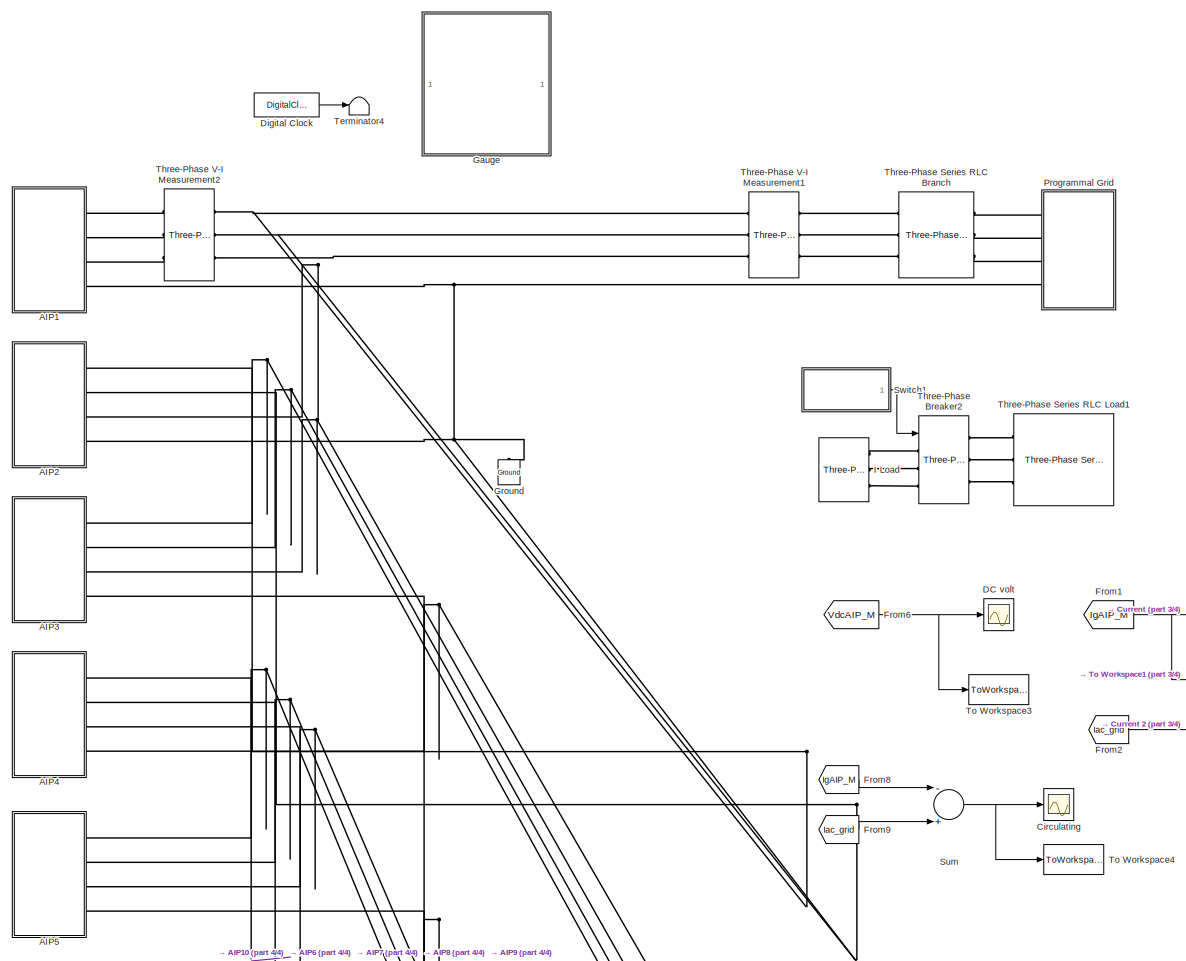
[diagram: root canvas - part 1/4, top center region]
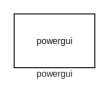
[diagram: root canvas - part 2/4, top left region]
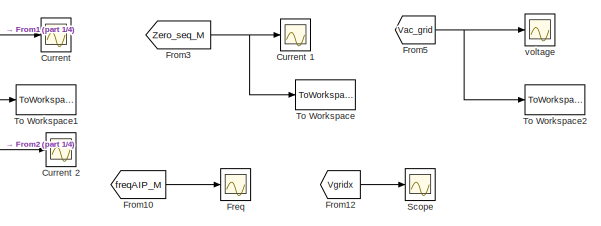
[diagram: root canvas - part 3/4, top right region]
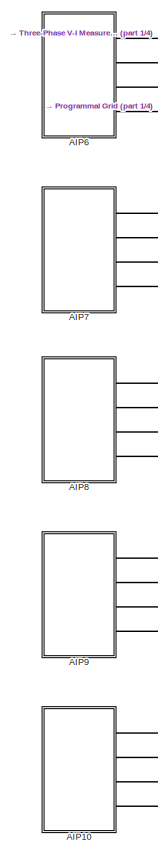
[diagram: root canvas - part 4/4, middle left region]
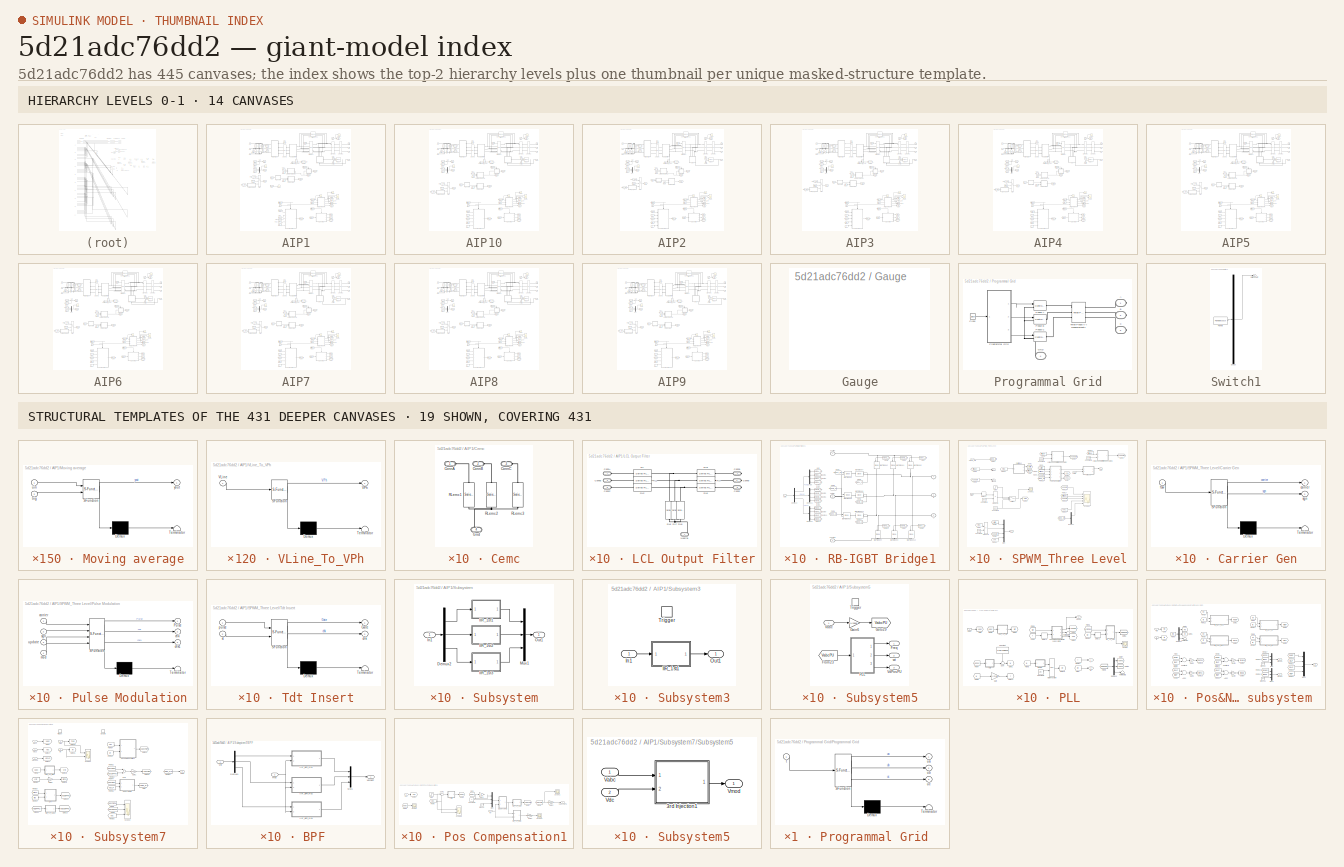
[diagram: thumbnail index - top-2 hierarchy levels (14 canvases) + 19 structural-template representatives of the remaining 431 canvases]
MODEL slx_5d21adc76dd2
KIND model
CONFIG AbsTol = auto
CONFIG EnableMultiTasking = off
CONFIG FixedStep = Tdelt
CONFIG MaxStep = 1e-4
CONFIG MinStep = auto
CONFIG RelTol = 1e-3
CONFIG SampleTimeConstraint = Unconstrained
CONFIG Solver = FixedStepDiscrete
CONFIG SolverName = FixedStepDiscrete
CONFIG StartTime = 0.0
CONFIG StopTime = Tstop
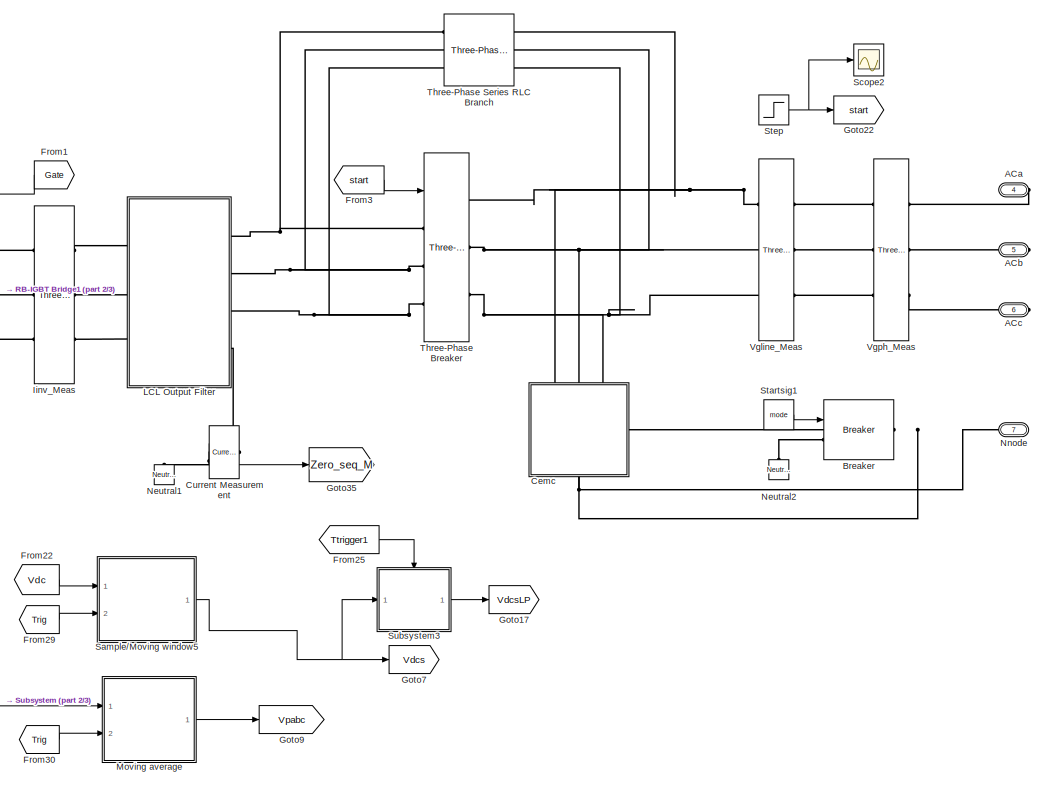
[diagram: AIP1 - part 1/3, top right region]
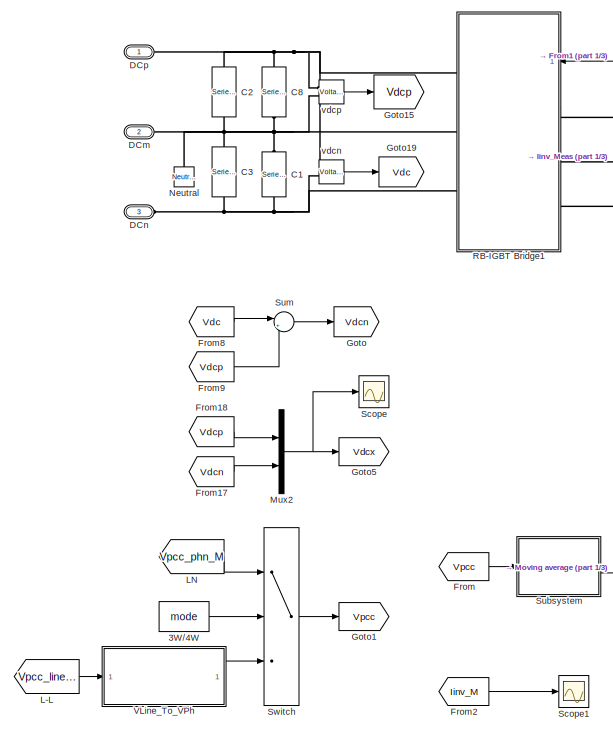
[diagram: AIP1 - part 2/3, middle left region]
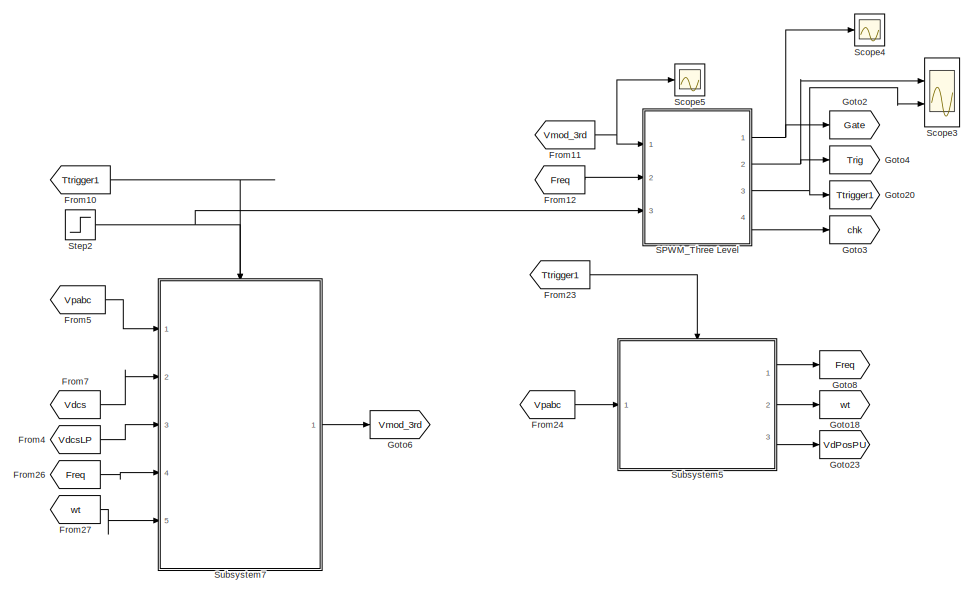
[diagram: AIP1 - part 3/3, bottom center region]
BLOCK [SubSystem] AIP1
  Ports = [0, 0, 0, 0, 0, 3, 4]
  RequestExecContextInheritance = off
BLOCK [Constant] AIP1/3W//4W
  Value = mode
BLOCK [PMIOPort] AIP1/ACa
  Port = 4
  Side = Right
BLOCK [PMIOPort] AIP1/ACb
  Port = 5
  Side = Right
BLOCK [PMIOPort] AIP1/ACc
  Port = 6
  Side = Right
BLOCK [Reference] AIP1/Breaker  REF=powerlib/Elements/Breaker
  Ports = [1, 0, 0, 0, 0, 1, 1]
  SourceBlock = powerlib/Elements/Breaker
  SourceProductBaseCode = PS
  SourceProductName = Simscape Electrical
  SourceType = Breaker
BLOCK [Reference] AIP1/C1  REF=powerlib/Elements/Series RLC Branch
  Ports = [0, 0, 0, 0, 0, 1, 1]
  SourceBlock = powerlib/Elements/Series RLC Branch
  SourceProductBaseCode = PS
  SourceProductName = Simscape Electrical
  SourceType = Series RLC Branch
BLOCK [Reference] AIP1/C2  REF=powerlib/Elements/Series RLC Branch
  Ports = [0, 0, 0, 0, 0, 1, 1]
  SourceBlock = powerlib/Elements/Series RLC Branch
  SourceProductBaseCode = PS
  SourceProductName = Simscape Electrical
  SourceType = Series RLC Branch
BLOCK [Reference] AIP1/C3  REF=powerlib/Elements/Series RLC Branch
  Ports = [0, 0, 0, 0, 0, 1, 1]
  SourceBlock = powerlib/Elements/Series RLC Branch
  SourceProductBaseCode = PS
  SourceProductName = Simscape Electrical
  SourceType = Series RLC Branch
BLOCK [Reference] AIP1/C8  REF=powerlib/Elements/Series RLC Branch
  Ports = [0, 0, 0, 0, 0, 1, 1]
  SourceBlock = powerlib/Elements/Series RLC Branch
  SourceProductBaseCode = PS
  SourceProductName = Simscape Electrical
  SourceType = Series RLC Branch
BLOCK [SubSystem] AIP1/Cemc
  Ports = [0, 0, 0, 0, 0, 3, 1]
  RequestExecContextInheritance = off
BLOCK [PMIOPort] AIP1/Cemc/ConnA
  Side = Left
BLOCK [PMIOPort] AIP1/Cemc/ConnB
  Port = 2
  Side = Left
BLOCK [PMIOPort] AIP1/Cemc/ConnC
  Port = 3
  Side = Left
BLOCK [PMIOPort] AIP1/Cemc/Gnd
  Port = 4
  Side = Right
BLOCK [Reference] AIP1/Cemc/RLemc1  REF=powerlib/Elements/Series RLC Branch
  Ports = [0, 0, 0, 0, 0, 1, 1]
  SourceBlock = powerlib/Elements/Series RLC Branch
  SourceProductBaseCode = PS
  SourceProductName = Simscape Electrical
  SourceType = Series RLC Branch
BLOCK [Reference] AIP1/Cemc/RLemc2  REF=powerlib/Elements/Series RLC Branch
  Ports = [0, 0, 0, 0, 0, 1, 1]
  SourceBlock = powerlib/Elements/Series RLC Branch
  SourceProductBaseCode = PS
  SourceProductName = Simscape Electrical
  SourceType = Series RLC Branch
BLOCK [Reference] AIP1/Cemc/RLemc3  REF=powerlib/Elements/Series RLC Branch
  Ports = [0, 0, 0, 0, 0, 1, 1]
  SourceBlock = powerlib/Elements/Series RLC Branch
  SourceProductBaseCode = PS
  SourceProductName = Simscape Electrical
  SourceType = Series RLC Branch
BLOCK [Reference] AIP1/Current Measurement  REF=powerlib/Measurements/Current Measurement
  Ports = [0, 1, 0, 0, 0, 1, 1]
  SourceBlock = powerlib/Measurements/Current Measurement
  SourceProductBaseCode = PS
  SourceProductName = Simscape Electrical
  SourceType = Current Measurement
  UserDataPersistent = on
BLOCK [PMIOPort] AIP1/DCm
  Port = 2
  Side = Left
BLOCK [PMIOPort] AIP1/DCn
  Port = 3
  Side = Left
BLOCK [PMIOPort] AIP1/DCp
  Side = Left
BLOCK [From] AIP1/From
  GotoTag = Vpcc
BLOCK [From] AIP1/From1
  GotoTag = Gate
BLOCK [From] AIP1/From10
  GotoTag = Ttrigger1
BLOCK [From] AIP1/From11
  GotoTag = Vmod_3rd
BLOCK [From] AIP1/From12
  GotoTag = Freq
BLOCK [From] AIP1/From17
  GotoTag = Vdcn
BLOCK [From] AIP1/From18
  GotoTag = Vdcp
BLOCK [From] AIP1/From2
  GotoTag = Iinv_M
  TagVisibility = global
BLOCK [From] AIP1/From22
  GotoTag = Vdc
BLOCK [From] AIP1/From23
  GotoTag = Ttrigger1
BLOCK [From] AIP1/From24
  GotoTag = Vpabc
BLOCK [From] AIP1/From25
  GotoTag = Ttrigger1
BLOCK [From] AIP1/From26
  GotoTag = Freq
BLOCK [From] AIP1/From27
  GotoTag = wt
BLOCK [From] AIP1/From29
  GotoTag = Trig
BLOCK [From] AIP1/From3
  GotoTag = start
BLOCK [From] AIP1/From30
  GotoTag = Trig
BLOCK [From] AIP1/From4
  GotoTag = VdcsLP
BLOCK [From] AIP1/From5
  GotoTag = Vpabc
BLOCK [From] AIP1/From7
  GotoTag = Vdcs
BLOCK [From] AIP1/From8
  GotoTag = Vdc
BLOCK [From] AIP1/From9
  GotoTag = Vdcp
BLOCK [Goto] AIP1/Goto
  GotoTag = Vdcn
BLOCK [Goto] AIP1/Goto1
  GotoTag = Vpcc
BLOCK [Goto] AIP1/Goto15
  GotoTag = Vdcp
BLOCK [Goto] AIP1/Goto17
  GotoTag = VdcsLP
BLOCK [Goto] AIP1/Goto18
  GotoTag = wt
BLOCK [Goto] AIP1/Goto19
  GotoTag = Vdc
BLOCK [Goto] AIP1/Goto2
  GotoTag = Gate
BLOCK [Goto] AIP1/Goto20
  GotoTag = Ttrigger1
BLOCK [Goto] AIP1/Goto22
  GotoTag = start
BLOCK [Goto] AIP1/Goto23
  GotoTag = VdPosPU
BLOCK [Goto] AIP1/Goto3
  GotoTag = chk
BLOCK [Goto] AIP1/Goto35
  GotoTag = Zero_seq_M
  TagVisibility = global
BLOCK [Goto] AIP1/Goto4
  GotoTag = Trig
BLOCK [Goto] AIP1/Goto5
  GotoTag = Vdcx
BLOCK [Goto] AIP1/Goto6
  GotoTag = Vmod_3rd
BLOCK [Goto] AIP1/Goto7
  GotoTag = Vdcs
BLOCK [Goto] AIP1/Goto8
  GotoTag = Freq
BLOCK [Goto] AIP1/Goto9
  GotoTag = Vpabc
BLOCK [Reference] AIP1/Iinv_Meas  REF=powerlib/Measurements/Three-Phase
V-I Measurement
  Ports = [0, 0, 0, 0, 0, 3, 3]
  SourceBlock = powerlib/Measurements/Three-Phase\nV-I Measurement
  SourceProductBaseCode = PS
  SourceProductName = Simscape Electrical
  SourceType = Three-Phase VI Measurement
BLOCK [From] AIP1/L-L
  GotoTag = Vpcc_line_M
  TagVisibility = global
BLOCK [SubSystem] AIP1/LCL Output Filter
  AncestorBlock = AIP_Library0107/LCL Output Filter
  Ports = [0, 0, 0, 0, 0, 3, 4]
  RequestExecContextInheritance = off
BLOCK [PMIOPort] AIP1/LCL Output Filter/ConnA
  Side = Left
BLOCK [PMIOPort] AIP1/LCL Output Filter/ConnB
  Port = 3
  Side = Left
BLOCK [PMIOPort] AIP1/LCL Output Filter/ConnC
  Port = 5
  Side = Left
BLOCK [PMIOPort] AIP1/LCL Output Filter/Conna
  Port = 2
  Side = Right
BLOCK [PMIOPort] AIP1/LCL Output Filter/Connb
  Port = 4
  Side = Right
BLOCK [PMIOPort] AIP1/LCL Output Filter/Connc
  Port = 6
  Side = Right
BLOCK [PMIOPort] AIP1/LCL Output Filter/Neutral 
  Port = 7
  Side = Right
BLOCK [Reference] AIP1/LCL Output Filter/RL  REF=powerlib/Elements/Series RLC Branch
  Ports = [0, 0, 0, 0, 0, 1, 1]
  SourceBlock = powerlib/Elements/Series RLC Branch
  SourceProductBaseCode = PS
  SourceProductName = Simscape Electrical
  SourceType = Series RLC Branch
BLOCK [Reference] AIP1/LCL Output Filter/RL1  REF=powerlib/Elements/Series RLC Branch
  Ports = [0, 0, 0, 0, 0, 1, 1]
  SourceBlock = powerlib/Elements/Series RLC Branch
  SourceProductBaseCode = PS
  SourceProductName = Simscape Electrical
  SourceType = Series RLC Branch
BLOCK [Reference] AIP1/LCL Output Filter/RL2  REF=powerlib/Elements/Series RLC Branch
  Ports = [0, 0, 0, 0, 0, 1, 1]
  SourceBlock = powerlib/Elements/Series RLC Branch
  SourceProductBaseCode = PS
  SourceProductName = Simscape Electrical
  SourceType = Series RLC Branch
BLOCK [Reference] AIP1/LCL Output Filter/RL3  REF=powerlib/Elements/Series RLC Branch
  Ports = [0, 0, 0, 0, 0, 1, 1]
  SourceBlock = powerlib/Elements/Series RLC Branch
  SourceProductBaseCode = PS
  SourceProductName = Simscape Electrical
  SourceType = Series RLC Branch
BLOCK [Reference] AIP1/LCL Output Filter/RL4  REF=powerlib/Elements/Series RLC Branch
  Ports = [0, 0, 0, 0, 0, 1, 1]
  SourceBlock = powerlib/Elements/Series RLC Branch
  SourceProductBaseCode = PS
  SourceProductName = Simscape Electrical
  SourceType = Series RLC Branch
BLOCK [Reference] AIP1/LCL Output Filter/RL5  REF=powerlib/Elements/Series RLC Branch
  Ports = [0, 0, 0, 0, 0, 1, 1]
  SourceBlock = powerlib/Elements/Series RLC Branch
  SourceProductBaseCode = PS
  SourceProductName = Simscape Electrical
  SourceType = Series RLC Branch
BLOCK [Reference] AIP1/LCL Output Filter/RL6  REF=powerlib/Elements/Series RLC Branch
  Ports = [0, 0, 0, 0, 0, 1, 1]
  SourceBlock = powerlib/Elements/Series RLC Branch
  SourceProductBaseCode = PS
  SourceProductName = Simscape Electrical
  SourceType = Series RLC Branch
BLOCK [Reference] AIP1/LCL Output Filter/RL7  REF=powerlib/Elements/Series RLC Branch
  Ports = [0, 0, 0, 0, 0, 1, 1]
  SourceBlock = powerlib/Elements/Series RLC Branch
  SourceProductBaseCode = PS
  SourceProductName = Simscape Electrical
  SourceType = Series RLC Branch
BLOCK [Reference] AIP1/LCL Output Filter/RL8  REF=powerlib/Elements/Series RLC Branch
  Ports = [0, 0, 0, 0, 0, 1, 1]
  SourceBlock = powerlib/Elements/Series RLC Branch
  SourceProductBaseCode = PS
  SourceProductName = Simscape Electrical
  SourceType = Series RLC Branch
BLOCK [From] AIP1/LN
  GotoTag = Vpcc_phn_M
  TagVisibility = global
BLOCK [SubSystem] AIP1/Moving average
  AncestorBlock = AIP_Library0123/Sample//Moving window
  ErrorFcn = Stateflow.Translate.translate
  PermitHierarchicalResolution = ExplicitOnly
  Ports = [2, 1]
  Priority = -1
  RequestExecContextInheritance = off
  SFBlockType = MATLAB Function
  TreatAsAtomicUnit = on
BLOCK [Demux] AIP1/Moving average/ Demux 
  Outputs = 1
  Ports = [1, 1]
BLOCK [S-Function] AIP1/Moving average/ SFunction 
  EnableBusSupport = on
  FunctionName = sf_sfun
  Parameters = iNumAvg,iNumDly,ubase
  PortCounts = [2 2]
  Ports = [2, 2]
  SFcnIsStateOwnerBlock = off
  SFunctionDeploymentMode = off
  Tag = Stateflow S-Function CSI_0313_4DC 28
BLOCK [Terminator] AIP1/Moving average/ Terminator 
BLOCK [Inport] AIP1/Moving average/trig
  IconDisplay = Port number
  Port = 2
BLOCK [Inport] AIP1/Moving average/uin
  IconDisplay = Port number
BLOCK [Outport] AIP1/Moving average/yout
  IconDisplay = Port number
  VectorParamsAs1DForOutWhenUnconnected = on
BLOCK [Mux] AIP1/Mux2
  DisplayOption = bar
  Inputs = 2
  Ports = [2, 1]
BLOCK [Reference] AIP1/Neutral  REF=powerlib/Elements/Neutral
  AttributesFormatString = node %<NodeNumber>
  Ports = [0, 0, 0, 0, 0, 1]
  SourceBlock = powerlib/Elements/Neutral
  SourceProductBaseCode = PS
  SourceProductName = Simscape Electrical
  SourceType = Neutral
BLOCK [Reference] AIP1/Neutral1  REF=powerlib/Elements/Neutral
  AttributesFormatString = node %<NodeNumber>
  Ports = [0, 0, 0, 0, 0, 1]
  SourceBlock = powerlib/Elements/Neutral
  SourceProductBaseCode = PS
  SourceProductName = Simscape Electrical
  SourceType = Neutral
BLOCK [Reference] AIP1/Neutral2  REF=powerlib/Elements/Neutral
  AttributesFormatString = node %<NodeNumber>
  Ports = [0, 0, 0, 0, 0, 1]
  SourceBlock = powerlib/Elements/Neutral
  SourceProductBaseCode = PS
  SourceProductName = Simscape Electrical
  SourceType = Neutral
BLOCK [PMIOPort] AIP1/Nnode
  Port = 7
  Side = Right
BLOCK [SubSystem] AIP1/RB-IGBT Bridge1
  AncestorBlock = AIP_Library0107/RB-IGBT Bridge
  Ports = [1, 0, 0, 0, 0, 3, 3]
  RequestExecContextInheritance = off
BLOCK [PMIOPort] AIP1/RB-IGBT Bridge1/A
  Port = 4
  Side = Left
  Tag = PMCPort
BLOCK [PMIOPort] AIP1/RB-IGBT Bridge1/B
  Port = 5
  Side = Left
  Tag = PMCPort
BLOCK [PMIOPort] AIP1/RB-IGBT Bridge1/C
  Port = 6
  Side = Left
  Tag = PMCPort
BLOCK [Demux] AIP1/RB-IGBT Bridge1/Demux
  DisplayOption = bar
  Ports = [1, 4]
BLOCK [Demux] AIP1/RB-IGBT Bridge1/Demux1
  DisplayOption = bar
  Ports = [1, 4]
BLOCK [Demux] AIP1/RB-IGBT Bridge1/Demux2
  DisplayOption = bar
  Ports = [1, 4]
BLOCK [Demux] AIP1/RB-IGBT Bridge1/Demux3
  DisplayOption = bar
  Outputs = 3
  Ports = [1, 3]
BLOCK [From] AIP1/RB-IGBT Bridge1/From
  GotoTag = PulseA_1p
BLOCK [From] AIP1/RB-IGBT Bridge1/From1
  GotoTag = PulseA_2p
BLOCK [From] AIP1/RB-IGBT Bridge1/From10
  GotoTag = PulseC_1n
BLOCK [From] AIP1/RB-IGBT Bridge1/From11
  GotoTag = PulseC_2n
BLOCK [From] AIP1/RB-IGBT Bridge1/From2
  GotoTag = PulseA_1n
BLOCK [From] AIP1/RB-IGBT Bridge1/From3
  GotoTag = PulseA_2n
BLOCK [From] AIP1/RB-IGBT Bridge1/From4
  GotoTag = PulseB_1p
BLOCK [From] AIP1/RB-IGBT Bridge1/From5
  GotoTag = PulseB_2p
BLOCK [From] AIP1/RB-IGBT Bridge1/From6
  GotoTag = PulseB_1n
BLOCK [From] AIP1/RB-IGBT Bridge1/From7
  GotoTag = PulseB_2n
BLOCK [From] AIP1/RB-IGBT Bridge1/From8
  GotoTag = PulseC_1p
BLOCK [From] AIP1/RB-IGBT Bridge1/From9
  GotoTag = PulseC_2p
BLOCK [Inport] AIP1/RB-IGBT Bridge1/Gate
  IconDisplay = Port number
BLOCK [Goto] AIP1/RB-IGBT Bridge1/Goto
  GotoTag = PulseA_1p
BLOCK [Goto] AIP1/RB-IGBT Bridge1/Goto1
  GotoTag = PulseA_2p
BLOCK [Goto] AIP1/RB-IGBT Bridge1/Goto10
  GotoTag = PulseC_1n
BLOCK [Goto] AIP1/RB-IGBT Bridge1/Goto11
  GotoTag = PulseC_2n
BLOCK [Goto] AIP1/RB-IGBT Bridge1/Goto2
  GotoTag = PulseA_1n
BLOCK [Goto] AIP1/RB-IGBT Bridge1/Goto3
  GotoTag = PulseA_2n
BLOCK [Goto] AIP1/RB-IGBT Bridge1/Goto4
  GotoTag = PulseB_1p
BLOCK [Goto] AIP1/RB-IGBT Bridge1/Goto5
  GotoTag = PulseB_2p
BLOCK [Goto] AIP1/RB-IGBT Bridge1/Goto6
  GotoTag = PulseB_1n
BLOCK [Goto] AIP1/RB-IGBT Bridge1/Goto7
  GotoTag = PulseB_2n
BLOCK [Goto] AIP1/RB-IGBT Bridge1/Goto8
  GotoTag = PulseC_1p
BLOCK [Goto] AIP1/RB-IGBT Bridge1/Goto9
  GotoTag = PulseC_2p
BLOCK [Reference] AIP1/RB-IGBT Bridge1/IGBT//Diode1  REF=powerlib/Power
Electronics/IGBT//Diode
  Ports = [1, 0, 0, 0, 0, 1, 1]
  SourceBlock = powerlib/Power\nElectronics/IGBT//Diode
  SourceProductBaseCode = PS
  SourceProductName = Simscape Electrical
  SourceType = IGBT/Diode
BLOCK [Reference] AIP1/RB-IGBT Bridge1/IGBT//Diode10  REF=powerlib/Power
Electronics/IGBT//Diode
  Ports = [1, 0, 0, 0, 0, 1, 1]
  SourceBlock = powerlib/Power\nElectronics/IGBT//Diode
  SourceProductBaseCode = PS
  SourceProductName = Simscape Electrical
  SourceType = IGBT/Diode
BLOCK [Reference] AIP1/RB-IGBT Bridge1/IGBT//Diode11  REF=powerlib/Power
Electronics/IGBT//Diode
  Ports = [1, 0, 0, 0, 0, 1, 1]
  SourceBlock = powerlib/Power\nElectronics/IGBT//Diode
  SourceProductBaseCode = PS
  SourceProductName = Simscape Electrical
  SourceType = IGBT/Diode
BLOCK [Reference] AIP1/RB-IGBT Bridge1/IGBT//Diode12  REF=powerlib/Power
Electronics/IGBT//Diode
  Ports = [1, 0, 0, 0, 0, 1, 1]
  SourceBlock = powerlib/Power\nElectronics/IGBT//Diode
  SourceProductBaseCode = PS
  SourceProductName = Simscape Electrical
  SourceType = IGBT/Diode
BLOCK [Reference] AIP1/RB-IGBT Bridge1/IGBT//Diode2  REF=powerlib/Power
Electronics/IGBT//Diode
  Ports = [1, 0, 0, 0, 0, 1, 1]
  SourceBlock = powerlib/Power\nElectronics/IGBT//Diode
  SourceProductBaseCode = PS
  SourceProductName = Simscape Electrical
  SourceType = IGBT/Diode
BLOCK [Reference] AIP1/RB-IGBT Bridge1/IGBT//Diode3  REF=powerlib/Power
Electronics/IGBT//Diode
  Ports = [1, 0, 0, 0, 0, 1, 1]
  SourceBlock = powerlib/Power\nElectronics/IGBT//Diode
  SourceProductBaseCode = PS
  SourceProductName = Simscape Electrical
  SourceType = IGBT/Diode
BLOCK [Reference] AIP1/RB-IGBT Bridge1/IGBT//Diode4  REF=powerlib/Power
Electronics/IGBT//Diode
  Ports = [1, 0, 0, 0, 0, 1, 1]
  SourceBlock = powerlib/Power\nElectronics/IGBT//Diode
  SourceProductBaseCode = PS
  SourceProductName = Simscape Electrical
  SourceType = IGBT/Diode
BLOCK [Reference] AIP1/RB-IGBT Bridge1/IGBT//Diode5  REF=powerlib/Power
Electronics/IGBT//Diode
  Ports = [1, 0, 0, 0, 0, 1, 1]
  SourceBlock = powerlib/Power\nElectronics/IGBT//Diode
  SourceProductBaseCode = PS
  SourceProductName = Simscape Electrical
  SourceType = IGBT/Diode
BLOCK [Reference] AIP1/RB-IGBT Bridge1/IGBT//Diode6  REF=powerlib/Power
Electronics/IGBT//Diode
  Ports = [1, 0, 0, 0, 0, 1, 1]
  SourceBlock = powerlib/Power\nElectronics/IGBT//Diode
  SourceProductBaseCode = PS
  SourceProductName = Simscape Electrical
  SourceType = IGBT/Diode
BLOCK [Reference] AIP1/RB-IGBT Bridge1/IGBT//Diode7  REF=powerlib/Power
Electronics/IGBT//Diode
  Ports = [1, 0, 0, 0, 0, 1, 1]
  SourceBlock = powerlib/Power\nElectronics/IGBT//Diode
  SourceProductBaseCode = PS
  SourceProductName = Simscape Electrical
  SourceType = IGBT/Diode
BLOCK [Reference] AIP1/RB-IGBT Bridge1/IGBT//Diode8  REF=powerlib/Power
Electronics/IGBT//Diode
  Ports = [1, 0, 0, 0, 0, 1, 1]
  SourceBlock = powerlib/Power\nElectronics/IGBT//Diode
  SourceProductBaseCode = PS
  SourceProductName = Simscape Electrical
  SourceType = IGBT/Diode
BLOCK [Reference] AIP1/RB-IGBT Bridge1/IGBT//Diode9  REF=powerlib/Power
Electronics/IGBT//Diode
  Ports = [1, 0, 0, 0, 0, 1, 1]
  SourceBlock = powerlib/Power\nElectronics/IGBT//Diode
  SourceProductBaseCode = PS
  SourceProductName = Simscape Electrical
  SourceType = IGBT/Diode
BLOCK [PMIOPort] AIP1/RB-IGBT Bridge1/negative
  Port = 3
  Side = Right
  Tag = PMCPort
BLOCK [PMIOPort] AIP1/RB-IGBT Bridge1/netural
  Port = 2
  Side = Right
  Tag = PMCPort
BLOCK [PMIOPort] AIP1/RB-IGBT Bridge1/positive
  Side = Right
  Tag = PMCPort
BLOCK [SubSystem] AIP1/SPWM_Three Level
  Ports = [3, 4]
  RequestExecContextInheritance = off
BLOCK [SubSystem] AIP1/SPWM_Three Level/Carrier Gen
  ErrorFcn = Stateflow.Translate.translate
  PermitHierarchicalResolution = ExplicitOnly
  Ports = [1, 2]
  RequestExecContextInheritance = off
  SFBlockType = MATLAB Function
  TreatAsAtomicUnit = on
BLOCK [Demux] AIP1/SPWM_Three Level/Carrier Gen/ Demux 
  Outputs = 1
  Ports = [1, 1]
BLOCK [S-Function] AIP1/SPWM_Three Level/Carrier Gen/ SFunction 
  EnableBusSupport = on
  FunctionName = sf_sfun
  Parameters = fdelt
  PortCounts = [1 3]
  Ports = [1, 3]
  SFcnIsStateOwnerBlock = off
  SFunctionDeploymentMode = off
  Tag = Stateflow S-Function CSI_0313_4DC 66
BLOCK [Terminator] AIP1/SPWM_Three Level/Carrier Gen/ Terminator 
BLOCK [Outport] AIP1/SPWM_Three Level/Carrier Gen/carrier
  IconDisplay = Port number
  VectorParamsAs1DForOutWhenUnconnected = on
BLOCK [Inport] AIP1/SPWM_Three Level/Carrier Gen/fsw
  IconDisplay = Port number
BLOCK [Outport] AIP1/SPWM_Three Level/Carrier Gen/sgn
  IconDisplay = Port number
  Port = 2
  VectorParamsAs1DForOutWhenUnconnected = on
BLOCK [Constant] AIP1/SPWM_Three Level/Constant1
  Value = Nsw
BLOCK [Constant] AIP1/SPWM_Three Level/Constant2
  Value = 18000
BLOCK [Constant] AIP1/SPWM_Three Level/Constant3
  Value = 55e-6
BLOCK [Constant] AIP1/SPWM_Three Level/Constant4
  Value = Update
BLOCK [Constant] AIP1/SPWM_Three Level/Constant6
  Value = Update
BLOCK [Delay] AIP1/SPWM_Three Level/Delay1
  DelayLength = 1
  InputPortMap = u0
  Ports = [1, 1]
  SampleTime = fTs
BLOCK [Demux] AIP1/SPWM_Three Level/Demux1
  DisplayOption = bar
  Outputs = 3
  Ports = [1, 3]
BLOCK [Inport] AIP1/SPWM_Three Level/Freq
  IconDisplay = Port number
  Port = 2
BLOCK [From] AIP1/SPWM_Three Level/From1
  GotoTag = carrier
BLOCK [From] AIP1/SPWM_Three Level/From10
  GotoTag = chk
BLOCK [From] AIP1/SPWM_Three Level/From11
  GotoTag = Freq
BLOCK [From] AIP1/SPWM_Three Level/From12
  GotoTag = VMod_3rd
BLOCK [From] AIP1/SPWM_Three Level/From13
  GotoTag = VMod_3rd
BLOCK [From] AIP1/SPWM_Three Level/From14
  GotoTag = chk1
BLOCK [From] AIP1/SPWM_Three Level/From15
  GotoTag = Ttrigger
BLOCK [From] AIP1/SPWM_Three Level/From16
  GotoTag = Tupdatex
BLOCK [From] AIP1/SPWM_Three Level/From17
  GotoTag = Ttrigger
BLOCK [From] AIP1/SPWM_Three Level/From18
  GotoTag = Tupdate
BLOCK [From] AIP1/SPWM_Three Level/From2
  GotoTag = Ttrigger
BLOCK [From] AIP1/SPWM_Three Level/From3
  GotoTag = Ttrigger
BLOCK [From] AIP1/SPWM_Three Level/From4
  GotoTag = Tupdatex
BLOCK [From] AIP1/SPWM_Three Level/From5
  GotoTag = Ttrigger
BLOCK [From] AIP1/SPWM_Three Level/From6
  GotoTag = carrier
BLOCK [From] AIP1/SPWM_Three Level/From7
  GotoTag = Freq
BLOCK [From] AIP1/SPWM_Three Level/From8
  GotoTag = Tupdate
BLOCK [From] AIP1/SPWM_Three Level/From9
  GotoTag = Tupdate
BLOCK [Outport] AIP1/SPWM_Three Level/Gate
  IconDisplay = Port number
  VectorParamsAs1DForOutWhenUnconnected = on
BLOCK [Goto] AIP1/SPWM_Three Level/Goto
  GotoTag = Ttrigger
BLOCK [Goto] AIP1/SPWM_Three Level/Goto1
  GotoTag = carrier
BLOCK [Goto] AIP1/SPWM_Three Level/Goto2
  GotoTag = VMod_3rd
BLOCK [Goto] AIP1/SPWM_Three Level/Goto3
  GotoTag = Tupdate
BLOCK [Goto] AIP1/SPWM_Three Level/Goto4
  GotoTag = chk
BLOCK [Goto] AIP1/SPWM_Three Level/Goto5
  GotoTag = Freq
BLOCK [Goto] AIP1/SPWM_Three Level/Goto6
  GotoTag = Tupdatex
BLOCK [Goto] AIP1/SPWM_Three Level/Goto7
  GotoTag = chk1
BLOCK [Mux] AIP1/SPWM_Three Level/Mux
  DisplayOption = bar
  Ports = [4, 1]
BLOCK [Product] AIP1/SPWM_Three Level/Product1
  InputSameDT = off
  OutDataTypeStr = Inherit: Inherit via internal rule
  Ports = [2, 1]
  RndMeth = Floor
  SaturateOnIntegerOverflow = off
BLOCK [Product] AIP1/SPWM_Three Level/Product2
  InputSameDT = off
  OutDataTypeStr = Inherit: Inherit via internal rule
  Ports = [2, 1]
  RndMeth = Floor
  SaturateOnIntegerOverflow = off
BLOCK [SubSystem] AIP1/SPWM_Three Level/Pulse Modulation
  ErrorFcn = Stateflow.Translate.translate
  PermitHierarchicalResolution = ExplicitOnly
  Ports = [4, 3]
  RequestExecContextInheritance = off
  SFBlockType = MATLAB Function
  TreatAsAtomicUnit = on
BLOCK [Demux] AIP1/SPWM_Three Level/Pulse Modulation/ Demux 
  Outputs = 1
  Ports = [1, 1]
BLOCK [S-Function] AIP1/SPWM_Three Level/Pulse Modulation/ SFunction 
  EnableBusSupport = on
  FunctionName = sf_sfun
  PortCounts = [4 4]
  Ports = [4, 4]
  SFcnIsStateOwnerBlock = off
  SFunctionDeploymentMode = off
  Tag = Stateflow S-Function CSI_0313_4DC 67
BLOCK [Terminator] AIP1/SPWM_Three Level/Pulse Modulation/ Terminator 
BLOCK [Outport] AIP1/SPWM_Three Level/Pulse Modulation/Pulse
  IconDisplay = Port number
  VectorParamsAs1DForOutWhenUnconnected = on
BLOCK [Inport] AIP1/SPWM_Three Level/Pulse Modulation/carrier
  IconDisplay = Port number
BLOCK [Outport] AIP1/SPWM_Three Level/Pulse Modulation/chk
  IconDisplay = Port number
  Port = 2
  VectorParamsAs1DForOutWhenUnconnected = on
BLOCK [Outport] AIP1/SPWM_Three Level/Pulse Modulation/chk1
  IconDisplay = Port number
  Port = 3
  VectorParamsAs1DForOutWhenUnconnected = on
BLOCK [Inport] AIP1/SPWM_Three Level/Pulse Modulation/mod
  IconDisplay = Port number
  Port = 4
BLOCK [Inport] AIP1/SPWM_Three Level/Pulse Modulation/sgn
  IconDisplay = Port number
  Port = 2
BLOCK [Inport] AIP1/SPWM_Three Level/Pulse Modulation/update
  IconDisplay = Port number
  Port = 3
BLOCK [Scope] AIP1/SPWM_Three Level/Scope1
  Floating = off
  NumInputPorts = 1
  Ports = [1]
  ScopeSpecificationString = Simulink.scopes.TimeScopeBlockCfg('CurrentConfiguration', extmgr.ConfigurationSet(extmgr.Configuration('Core','General UI',true),extmgr.Configuration('Core','Source UI',true),extmgr.Configuration('Sources','WiredSimulink',true,'DataLoggingVariableName','ScopeData1'),extmgr.Configuration('Visuals','Time Domain',true,'SerializedDisplays',{struct('MinYLimReal','-2250.00000','MaxYLimReal','20250.00000...<+1435ch>  <repeated x10 — deduplicated; at blocks: Scope1>
BLOCK [Scope] AIP1/SPWM_Three Level/Scope2
  Floating = off
  NumInputPorts = 5
  Ports = [5]
  ScopeSpecificationString = Simulink.scopes.TimeScopeBlockCfg('CurrentConfiguration', extmgr.ConfigurationSet(extmgr.Configuration('Core','General UI',true),extmgr.Configuration('Core','Source UI',true),extmgr.Configuration('Sources','WiredSimulink',true,'DataLoggingVariableName','ScopeData2'),extmgr.Configuration('Visuals','Time Domain',true,'SerializedDisplays',{struct('MinYLimReal','-0.125','MaxYLimReal','1.125','YLabelRe...<+3625ch>  <repeated x10 — deduplicated; at blocks: Scope2>
BLOCK [Step] AIP1/SPWM_Three Level/Step
  Before = -1
  SampleTime = 0
  Time = tstart
BLOCK [Switch] AIP1/SPWM_Three Level/Switch
  Criteria = u2 > Threshold
  InputSameDT = off
  SaturateOnIntegerOverflow = off
BLOCK [SubSystem] AIP1/SPWM_Three Level/Tdt Insert
  ErrorFcn = Stateflow.Translate.translate
  PermitHierarchicalResolution = ExplicitOnly
  Ports = [2, 2]
  RequestExecContextInheritance = off
  SFBlockType = MATLAB Function
  TreatAsAtomicUnit = on
BLOCK [Demux] AIP1/SPWM_Three Level/Tdt Insert/ Demux 
  Outputs = 1
  Ports = [1, 1]
BLOCK [S-Function] AIP1/SPWM_Three Level/Tdt Insert/ SFunction 
  EnableBusSupport = on
  FunctionName = sf_sfun
  Parameters = fdelt,tdt
  PortCounts = [2 3]
  Ports = [2, 3]
  SFcnIsStateOwnerBlock = off
  SFunctionDeploymentMode = off
  Tag = Stateflow S-Function CSI_0313_4DC 68
BLOCK [Terminator] AIP1/SPWM_Three Level/Tdt Insert/ Terminator 
BLOCK [Outport] AIP1/SPWM_Three Level/Tdt Insert/Gate
  IconDisplay = Port number
  VectorParamsAs1DForOutWhenUnconnected = on
BLOCK [Outport] AIP1/SPWM_Three Level/Tdt Insert/chk
  IconDisplay = Port number
  Port = 2
  VectorParamsAs1DForOutWhenUnconnected = on
BLOCK [Inport] AIP1/SPWM_Three Level/Tdt Insert/pulse
  IconDisplay = Port number
BLOCK [Inport] AIP1/SPWM_Three Level/Tdt Insert/st
  IconDisplay = Port number
  Port = 2
BLOCK [Inport] AIP1/SPWM_Three Level/Tstart
  IconDisplay = Port number
  Port = 3
BLOCK [Outport] AIP1/SPWM_Three Level/Ttrigger
  IconDisplay = Port number
  Port = 2
  VectorParamsAs1DForOutWhenUnconnected = on
BLOCK [Outport] AIP1/SPWM_Three Level/Ttrigger1
  IconDisplay = Port number
  Port = 3
  VectorParamsAs1DForOutWhenUnconnected = on
BLOCK [Inport] AIP1/SPWM_Three Level/VMod_3rd
  IconDisplay = Port number
BLOCK [SubSystem] AIP1/SPWM_Three Level/Voltage update timing generator
  ErrorFcn = Stateflow.Translate.translate
  PermitHierarchicalResolution = ExplicitOnly
  Ports = [2, 1]
  RequestExecContextInheritance = off
  SFBlockType = MATLAB Function
  TreatAsAtomicUnit = on
BLOCK [Demux] AIP1/SPWM_Three Level/Voltage update timing generator/ Demux 
  Outputs = 1
  Ports = [1, 1]
BLOCK [S-Function] AIP1/SPWM_Three Level/Voltage update timing generator/ SFunction 
  EnableBusSupport = on
  FunctionName = sf_sfun
  PortCounts = [2 2]
  Ports = [2, 2]
  SFcnIsStateOwnerBlock = off
  SFunctionDeploymentMode = off
  Tag = Stateflow S-Function CSI_0313_4DC 69
BLOCK [Terminator] AIP1/SPWM_Three Level/Voltage update timing generator/ Terminator 
BLOCK [Inport] AIP1/SPWM_Three Level/Voltage update timing generator/Trigger
  IconDisplay = Port number
BLOCK [Outport] AIP1/SPWM_Three Level/Voltage update timing generator/Tupdate
  IconDisplay = Port number
  VectorParamsAs1DForOutWhenUnconnected = on
BLOCK [Inport] AIP1/SPWM_Three Level/Voltage update timing generator/Update
  IconDisplay = Port number
  Port = 2
BLOCK [SubSystem] AIP1/SPWM_Three Level/Voltage update timing generator1
  ErrorFcn = Stateflow.Translate.translate
  PermitHierarchicalResolution = ExplicitOnly
  Ports = [2, 1]
  RequestExecContextInheritance = off
  SFBlockType = MATLAB Function
  TreatAsAtomicUnit = on
BLOCK [Demux] AIP1/SPWM_Three Level/Voltage update timing generator1/ Demux 
  Outputs = 1
  Ports = [1, 1]
BLOCK [S-Function] AIP1/SPWM_Three Level/Voltage update timing generator1/ SFunction 
  EnableBusSupport = on
  FunctionName = sf_sfun
  PortCounts = [2 2]
  Ports = [2, 2]
  SFcnIsStateOwnerBlock = off
  SFunctionDeploymentMode = off
  Tag = Stateflow S-Function CSI_0313_4DC 1
BLOCK [Terminator] AIP1/SPWM_Three Level/Voltage update timing generator1/ Terminator 
BLOCK [Inport] AIP1/SPWM_Three Level/Voltage update timing generator1/Trigger
  IconDisplay = Port number
BLOCK [Outport] AIP1/SPWM_Three Level/Voltage update timing generator1/Tupdate
  IconDisplay = Port number
  VectorParamsAs1DForOutWhenUnconnected = on
BLOCK [Inport] AIP1/SPWM_Three Level/Voltage update timing generator1/Update
  IconDisplay = Port number
  Port = 2
BLOCK [Outport] AIP1/SPWM_Three Level/chk
  IconDisplay = Port number
  Port = 4
  VectorParamsAs1DForOutWhenUnconnected = on
BLOCK [SubSystem] AIP1/Sample//Moving window5
  AncestorBlock = AIP_Library0123/Sample//Moving window
  ErrorFcn = Stateflow.Translate.translate
  PermitHierarchicalResolution = ExplicitOnly
  Ports = [2, 1]
  Priority = -1
  RequestExecContextInheritance = off
  SFBlockType = MATLAB Function
  TreatAsAtomicUnit = on
BLOCK [Demux] AIP1/Sample//Moving window5/ Demux 
  Outputs = 1
  Ports = [1, 1]
BLOCK [S-Function] AIP1/Sample//Moving window5/ SFunction 
  EnableBusSupport = on
  FunctionName = sf_sfun
  Parameters = iNumAvg,iNumDly,ubase
  PortCounts = [2 2]
  Ports = [2, 2]
  SFcnIsStateOwnerBlock = off
  SFunctionDeploymentMode = off
  Tag = Stateflow S-Function CSI_0313_4DC 78
BLOCK [Terminator] AIP1/Sample//Moving window5/ Terminator 
BLOCK [Inport] AIP1/Sample//Moving window5/trig
  IconDisplay = Port number
  Port = 2
BLOCK [Inport] AIP1/Sample//Moving window5/uin
  IconDisplay = Port number
BLOCK [Outport] AIP1/Sample//Moving window5/yout
  IconDisplay = Port number
  VectorParamsAs1DForOutWhenUnconnected = on
BLOCK [Scope] AIP1/Scope
  Floating = off
  NumInputPorts = 1
  Ports = [1]
  ScopeSpecificationString = Simulink.scopes.TimeScopeBlockCfg('CurrentConfiguration', extmgr.ConfigurationSet(extmgr.Configuration('Core','General UI',true),extmgr.Configuration('Core','Source UI',true),extmgr.Configuration('Sources','WiredSimulink',true,'DataLoggingVariableName','ScopeData3'),extmgr.Configuration('Visuals','Time Domain',true,'SerializedDisplays',{struct('MinYLimReal','267.556','MaxYLimReal','519.33617','YLa...<+1475ch>
BLOCK [Scope] AIP1/Scope1
  Floating = off
  NumInputPorts = 1
  Ports = [1]
  ScopeSpecificationString = Simulink.scopes.TimeScopeBlockCfg('CurrentConfiguration', extmgr.ConfigurationSet(extmgr.Configuration('Core','General UI',true),extmgr.Configuration('Core','Source UI',true),extmgr.Configuration('Sources','WiredSimulink',true,'DataLoggingVariableName','ScopeData1'),extmgr.Configuration('Visuals','Time Domain',true,'SerializedDisplays',{struct('MinYLimReal','-273.31392','MaxYLimReal','269.54747','...<+1482ch>
BLOCK [Scope] AIP1/Scope2
  Floating = off
  NumInputPorts = 1
  Ports = [1]
  ScopeSpecificationString = Simulink.scopes.TimeScopeBlockCfg('CurrentConfiguration', extmgr.ConfigurationSet(extmgr.Configuration('Core','General UI',true),extmgr.Configuration('Core','Source UI',true),extmgr.Configuration('Sources','WiredSimulink',true,'DataLoggingVariableName','ScopeData6'),extmgr.Configuration('Visuals','Time Domain',true,'SerializedDisplays',{struct('MinYLimReal','-0.125','MaxYLimReal','1.125','YLabelRe...<+1422ch>  <repeated x10 — deduplicated; at blocks: Scope2>
BLOCK [Scope] AIP1/Scope3
  Floating = off
  NumInputPorts = 2
  Ports = [2]
  ScopeSpecificationString = Simulink.scopes.TimeScopeBlockCfg('CurrentConfiguration', extmgr.ConfigurationSet(extmgr.Configuration('Core','General UI',true),extmgr.Configuration('Core','Source UI',true),extmgr.Configuration('Sources','WiredSimulink',true,'DataLoggingVariableName','ScopeData1'),extmgr.Configuration('Visuals','Time Domain',true,'SerializedDisplays',{struct('MinYLimReal','-0.125','MaxYLimReal','1.125','YLabelRe...<+2029ch>  <repeated x10 — deduplicated; at blocks: Scope3>
BLOCK [Scope] AIP1/Scope4
  Floating = off
  NumInputPorts = 1
  Ports = [1]
  ScopeSpecificationString = Simulink.scopes.TimeScopeBlockCfg('CurrentConfiguration', extmgr.ConfigurationSet(extmgr.Configuration('Core','General UI',true),extmgr.Configuration('Core','Source UI',true),extmgr.Configuration('Sources','WiredSimulink',true,'DataLoggingVariableName','ScopeData7'),extmgr.Configuration('Visuals','Time Domain',true,'SerializedDisplays',{struct('MinYLimReal','-0.125','MaxYLimReal','1.125','YLabelRe...<+1731ch>  <repeated x10 — deduplicated; at blocks: Scope4>
BLOCK [Scope] AIP1/Scope5
  Floating = off
  NumInputPorts = 1
  Ports = [1]
  ScopeSpecificationString = Simulink.scopes.TimeScopeBlockCfg('CurrentConfiguration', extmgr.ConfigurationSet(extmgr.Configuration('Core','General UI',true),extmgr.Configuration('Core','Source UI',true),extmgr.Configuration('Sources','WiredSimulink',true,'DataLoggingVariableName','ScopeData8'),extmgr.Configuration('Visuals','Time Domain',true,'SerializedDisplays',{struct('MinYLimReal','-1.00000','MaxYLimReal','1.00000','YLab...<+1457ch>  <repeated x10 — deduplicated; at blocks: Scope5>
BLOCK [Constant] AIP1/Startsig1
  Value = mode
BLOCK [Step] AIP1/Step
  SampleTime = 0
  Time = 0.1
BLOCK [Step] AIP1/Step2
  SampleTime = 0
  Time = 0.1
BLOCK [SubSystem] AIP1/Subsystem
  Ports = [1, 1]
  RequestExecContextInheritance = off
BLOCK [Demux] AIP1/Subsystem/Demux2
  DisplayOption = bar
  Outputs = 3
  Ports = [1, 3]
BLOCK [SubSystem] AIP1/Subsystem/IIR_1st1
  ErrorFcn = Stateflow.Translate.translate
  PermitHierarchicalResolution = ExplicitOnly
  Ports = [1, 1]
  RequestExecContextInheritance = off
  SFBlockType = MATLAB Function
  TreatAsAtomicUnit = on
BLOCK [Demux] AIP1/Subsystem/IIR_1st1/ Demux 
  Outputs = 1
  Ports = [1, 1]
BLOCK [S-Function] AIP1/Subsystem/IIR_1st1/ SFunction 
  EnableBusSupport = on
  FunctionName = sf_sfun
  Parameters = fTs,fc
  PortCounts = [1 2]
  Ports = [1, 2]
  SFcnIsStateOwnerBlock = off
  SFunctionDeploymentMode = off
  Tag = Stateflow S-Function CSI_0313_4DC 71
BLOCK [Terminator] AIP1/Subsystem/IIR_1st1/ Terminator 
BLOCK [Inport] AIP1/Subsystem/IIR_1st1/u
  IconDisplay = Port number
BLOCK [Outport] AIP1/Subsystem/IIR_1st1/y
  IconDisplay = Port number
  VectorParamsAs1DForOutWhenUnconnected = on
BLOCK [SubSystem] AIP1/Subsystem/IIR_1st2
  ErrorFcn = Stateflow.Translate.translate
  PermitHierarchicalResolution = ExplicitOnly
  Ports = [1, 1]
  RequestExecContextInheritance = off
  SFBlockType = MATLAB Function
  TreatAsAtomicUnit = on
BLOCK [Demux] AIP1/Subsystem/IIR_1st2/ Demux 
  Outputs = 1
  Ports = [1, 1]
BLOCK [S-Function] AIP1/Subsystem/IIR_1st2/ SFunction 
  EnableBusSupport = on
  FunctionName = sf_sfun
  Parameters = fTs,fc
  PortCounts = [1 2]
  Ports = [1, 2]
  SFcnIsStateOwnerBlock = off
  SFunctionDeploymentMode = off
  Tag = Stateflow S-Function CSI_0313_4DC 79
BLOCK [Terminator] AIP1/Subsystem/IIR_1st2/ Terminator 
BLOCK [Inport] AIP1/Subsystem/IIR_1st2/u
  IconDisplay = Port number
BLOCK [Outport] AIP1/Subsystem/IIR_1st2/y
  IconDisplay = Port number
  VectorParamsAs1DForOutWhenUnconnected = on
BLOCK [SubSystem] AIP1/Subsystem/IIR_1st3
  ErrorFcn = Stateflow.Translate.translate
  PermitHierarchicalResolution = ExplicitOnly
  Ports = [1, 1]
  RequestExecContextInheritance = off
  SFBlockType = MATLAB Function
  TreatAsAtomicUnit = on
BLOCK [Demux] AIP1/Subsystem/IIR_1st3/ Demux 
  Outputs = 1
  Ports = [1, 1]
BLOCK [S-Function] AIP1/Subsystem/IIR_1st3/ SFunction 
  EnableBusSupport = on
  FunctionName = sf_sfun
  Parameters = fTs,fc
  PortCounts = [1 2]
  Ports = [1, 2]
  SFcnIsStateOwnerBlock = off
  SFunctionDeploymentMode = off
  Tag = Stateflow S-Function CSI_0313_4DC 80
BLOCK [Terminator] AIP1/Subsystem/IIR_1st3/ Terminator 
BLOCK [Inport] AIP1/Subsystem/IIR_1st3/u
  IconDisplay = Port number
BLOCK [Outport] AIP1/Subsystem/IIR_1st3/y
  IconDisplay = Port number
  VectorParamsAs1DForOutWhenUnconnected = on
BLOCK [Inport] AIP1/Subsystem/In1
  IconDisplay = Port number
BLOCK [Mux] AIP1/Subsystem/Mux1
  DisplayOption = bar
  Inputs = 3
  Ports = [3, 1]
BLOCK [Outport] AIP1/Subsystem/Out1
  IconDisplay = Port number
  VectorParamsAs1DForOutWhenUnconnected = on
BLOCK [SubSystem] AIP1/Subsystem3
  Ports = [1, 1, 0, 1]
  RequestExecContextInheritance = off
BLOCK [SubSystem] AIP1/Subsystem3/IIR_1st1
  ErrorFcn = Stateflow.Translate.translate
  PermitHierarchicalResolution = ExplicitOnly
  Ports = [1, 1]
  RequestExecContextInheritance = off
  SFBlockType = MATLAB Function
  TreatAsAtomicUnit = on
BLOCK [Demux] AIP1/Subsystem3/IIR_1st1/ Demux 
  Outputs = 1
  Ports = [1, 1]
BLOCK [S-Function] AIP1/Subsystem3/IIR_1st1/ SFunction 
  EnableBusSupport = on
  FunctionName = sf_sfun
  Parameters = fTs,fc
  PortCounts = [1 2]
  Ports = [1, 2]
  SFcnIsStateOwnerBlock = off
  SFunctionDeploymentMode = off
  Tag = Stateflow S-Function CSI_0313_4DC 92
BLOCK [Terminator] AIP1/Subsystem3/IIR_1st1/ Terminator 
BLOCK [Inport] AIP1/Subsystem3/IIR_1st1/u
  IconDisplay = Port number
BLOCK [Outport] AIP1/Subsystem3/IIR_1st1/y
  IconDisplay = Port number
  VectorParamsAs1DForOutWhenUnconnected = on
BLOCK [Inport] AIP1/Subsystem3/In1
  IconDisplay = Port number
BLOCK [Outport] AIP1/Subsystem3/Out1
  IconDisplay = Port number
  VectorParamsAs1DForOutWhenUnconnected = on
BLOCK [TriggerPort] AIP1/Subsystem3/Trigger
  PortDimensions = 1
  Ports = []
  StatesWhenEnabling = held
  VariantControl = Variant
BLOCK [SubSystem] AIP1/Subsystem5
  Ports = [1, 3, 0, 1]
  RequestExecContextInheritance = off
BLOCK [Outport] AIP1/Subsystem5/Freq
  IconDisplay = Port number
BLOCK [From] AIP1/Subsystem5/From23
  GotoTag = VabcPU
BLOCK [Gain] AIP1/Subsystem5/Gain6
  Gain = 1/Vbase
  OutDataTypeStr = Inherit: Inherit via internal rule
  ParamDataTypeStr = Inherit: Inherit via internal rule
  SaturateOnIntegerOverflow = off
BLOCK [Goto] AIP1/Subsystem5/Goto29
  GotoTag = VabcPU
BLOCK [SubSystem] AIP1/Subsystem5/PLL
  Ports = [1, 3]
  RequestExecContextInheritance = off
BLOCK [SubSystem] AIP1/Subsystem5/PLL/ABC_To_RIZ
  ErrorFcn = Stateflow.Translate.translate
  PermitHierarchicalResolution = ExplicitOnly
  Ports = [1, 1]
  RequestExecContextInheritance = off
  SFBlockType = MATLAB Function
  TreatAsAtomicUnit = on
BLOCK [Demux] AIP1/Subsystem5/PLL/ABC_To_RIZ/ Demux 
  Outputs = 1
  Ports = [1, 1]
BLOCK [S-Function] AIP1/Subsystem5/PLL/ABC_To_RIZ/ SFunction 
  EnableBusSupport = on
  FunctionName = sf_sfun
  PortCounts = [1 2]
  Ports = [1, 2]
  SFcnIsStateOwnerBlock = off
  SFunctionDeploymentMode = off
  Tag = Stateflow S-Function CSI_0313_4DC 60
BLOCK [Terminator] AIP1/Subsystem5/PLL/ABC_To_RIZ/ Terminator 
BLOCK [Inport] AIP1/Subsystem5/PLL/ABC_To_RIZ/ABC
  IconDisplay = Port number
BLOCK [Outport] AIP1/Subsystem5/PLL/ABC_To_RIZ/RIZ
  IconDisplay = Port number
  VectorParamsAs1DForOutWhenUnconnected = on
BLOCK [Constant] AIP1/Subsystem5/PLL/Constant
  SampleTime = -1
  Value = 2*pi*fFqBase
BLOCK [Constant] AIP1/Subsystem5/PLL/Constant1
  Value = 2*pi
BLOCK [Delay] AIP1/Subsystem5/PLL/Delay1
  DelayLength = 1
  InputPortMap = u0
  Ports = [1, 1]
BLOCK [Delay] AIP1/Subsystem5/PLL/Delay2
  DelayLength = 1
  InputPortMap = u0
  Ports = [1, 1]
BLOCK [Demux] AIP1/Subsystem5/PLL/Demux3
  DisplayOption = bar
  Outputs = 3
  Ports = [1, 3]
BLOCK [From] AIP1/Subsystem5/PLL/From
  GotoTag = wt
BLOCK [From] AIP1/Subsystem5/PLL/From1
  GotoTag = VrizPos
BLOCK [From] AIP1/Subsystem5/PLL/From11
  GotoTag = f
BLOCK [From] AIP1/Subsystem5/PLL/From2
  GotoTag = Vabc
BLOCK [From] AIP1/Subsystem5/PLL/From3
  GotoTag = w
BLOCK [From] AIP1/Subsystem5/PLL/From33
  GotoTag = wt
BLOCK [From] AIP1/Subsystem5/PLL/From4
  GotoTag = Vriz
BLOCK [From] AIP1/Subsystem5/PLL/From5
  GotoTag = w
BLOCK [From] AIP1/Subsystem5/PLL/From6
  GotoTag = f
BLOCK [From] AIP1/Subsystem5/PLL/From7
  GotoTag = VqPos
BLOCK [From] AIP1/Subsystem5/PLL/From9
  GotoTag = Vdq0Pos
BLOCK [Gain] AIP1/Subsystem5/PLL/Gain
  Gain = 1/(2*pi)
  OutDataTypeStr = Inherit: Inherit via internal rule
  ParamDataTypeStr = Inherit: Inherit via internal rule
  SaturateOnIntegerOverflow = off
BLOCK [Goto] AIP1/Subsystem5/PLL/Goto
  GotoTag = Vabc
BLOCK [Goto] AIP1/Subsystem5/PLL/Goto1
  GotoTag = w
BLOCK [Goto] AIP1/Subsystem5/PLL/Goto14
  GotoTag = f
BLOCK [Goto] AIP1/Subsystem5/PLL/Goto15
  GotoTag = wt
BLOCK [Goto] AIP1/Subsystem5/PLL/Goto2
  GotoTag = Vriz
BLOCK [Goto] AIP1/Subsystem5/PLL/Goto3
  GotoTag = chk
BLOCK [Goto] AIP1/Subsystem5/PLL/Goto4
  GotoTag = VqPos
BLOCK [Goto] AIP1/Subsystem5/PLL/Goto5
  GotoTag = VrizPos
BLOCK [Goto] AIP1/Subsystem5/PLL/Goto6
  GotoTag = Vdq0Pos
BLOCK [Goto] AIP1/Subsystem5/PLL/Goto7
  GotoTag = VdPos
BLOCK [SubSystem] AIP1/Subsystem5/PLL/Integral
  ErrorFcn = Stateflow.Translate.translate
  PermitHierarchicalResolution = ExplicitOnly
  Ports = [1, 1]
  RequestExecContextInheritance = off
  SFBlockType = MATLAB Function
  TreatAsAtomicUnit = on
BLOCK [Demux] AIP1/Subsystem5/PLL/Integral/ Demux 
  Outputs = 1
  Ports = [1, 1]
BLOCK [S-Function] AIP1/Subsystem5/PLL/Integral/ SFunction 
  EnableBusSupport = on
  FunctionName = sf_sfun
  Parameters = fGain,fTs
  PortCounts = [1 2]
  Ports = [1, 2]
  SFcnIsStateOwnerBlock = off
  SFunctionDeploymentMode = off
  Tag = Stateflow S-Function CSI_0313_4DC 61
BLOCK [Terminator] AIP1/Subsystem5/PLL/Integral/ Terminator 
BLOCK [Inport] AIP1/Subsystem5/PLL/Integral/u
  IconDisplay = Port number
BLOCK [Outport] AIP1/Subsystem5/PLL/Integral/y
  IconDisplay = Port number
  VectorParamsAs1DForOutWhenUnconnected = on
BLOCK [Math] AIP1/Subsystem5/PLL/Math Function
  Operator = mod
  Ports = [2, 1]
BLOCK [SubSystem] AIP1/Subsystem5/PLL/PI Ctrl
  ErrorFcn = Stateflow.Translate.translate
  PermitHierarchicalResolution = ExplicitOnly
  Ports = [1, 1]
  RequestExecContextInheritance = off
  SFBlockType = MATLAB Function
  TreatAsAtomicUnit = on
BLOCK [Demux] AIP1/Subsystem5/PLL/PI Ctrl/ Demux 
  Outputs = 1
  Ports = [1, 1]
BLOCK [S-Function] AIP1/Subsystem5/PLL/PI Ctrl/ SFunction 
  EnableBusSupport = on
  FunctionName = sf_sfun
  Parameters = fKI,fKP,fMaxLmt,fMinLmt,fTs
  PortCounts = [1 2]
  Ports = [1, 2]
  SFcnIsStateOwnerBlock = off
  SFunctionDeploymentMode = off
  Tag = Stateflow S-Function CSI_0313_4DC 62
BLOCK [Terminator] AIP1/Subsystem5/PLL/PI Ctrl/ Terminator 
BLOCK [Inport] AIP1/Subsystem5/PLL/PI Ctrl/err
  IconDisplay = Port number
BLOCK [Outport] AIP1/Subsystem5/PLL/PI Ctrl/y
  IconDisplay = Port number
  VectorParamsAs1DForOutWhenUnconnected = on
BLOCK [SubSystem] AIP1/Subsystem5/PLL/Pos&Neg seq extract in subsystem 
  Ports = [2, 3]
  RequestExecContextInheritance = off
BLOCK [Sum] AIP1/Subsystem5/PLL/Pos&Neg seq extract in subsystem /Add1
  InputSameDT = off
  OutDataTypeStr = Inherit: Inherit via internal rule
  Ports = [2, 1]
  SaturateOnIntegerOverflow = off
BLOCK [Sum] AIP1/Subsystem5/PLL/Pos&Neg seq extract in subsystem /Add2
  InputSameDT = off
  Inputs = -+
  OutDataTypeStr = Inherit: Inherit via internal rule
  Ports = [2, 1]
  SaturateOnIntegerOverflow = off
BLOCK [Demux] AIP1/Subsystem5/PLL/Pos&Neg seq extract in subsystem /Demux1
  DisplayOption = bar
  Outputs = 3
  Ports = [1, 3]
BLOCK [From] AIP1/Subsystem5/PLL/Pos&Neg seq extract in subsystem /From
  GotoTag = ReBP
BLOCK [From] AIP1/Subsystem5/PLL/Pos&Neg seq extract in subsystem /From1
  GotoTag = Re
BLOCK [From] AIP1/Subsystem5/PLL/Pos&Neg seq extract in subsystem /From10
  GotoTag = ImLP
BLOCK [From] AIP1/Subsystem5/PLL/Pos&Neg seq extract in subsystem /From11
  GotoTag = ReLP
BLOCK [From] AIP1/Subsystem5/PLL/Pos&Neg seq extract in subsystem /From12
  GotoTag = ImBP
BLOCK [From] AIP1/Subsystem5/PLL/Pos&Neg seq extract in subsystem /From13
  GotoTag = ffc
BLOCK [From] AIP1/Subsystem5/PLL/Pos&Neg seq extract in subsystem /From14
  GotoTag = ffc
BLOCK [From] AIP1/Subsystem5/PLL/Pos&Neg seq extract in subsystem /From15
  GotoTag = ffc
BLOCK [From] AIP1/Subsystem5/PLL/Pos&Neg seq extract in subsystem /From16
  GotoTag = ffc
BLOCK [From] AIP1/Subsystem5/PLL/Pos&Neg seq extract in subsystem /From17
  GotoTag = RePos
BLOCK [From] AIP1/Subsystem5/PLL/Pos&Neg seq extract in subsystem /From18
  GotoTag = ImPos
BLOCK [From] AIP1/Subsystem5/PLL/Pos&Neg seq extract in subsystem /From19
  GotoTag = ReNeg
BLOCK [From] AIP1/Subsystem5/PLL/Pos&Neg seq extract in subsystem /From2
  GotoTag = ImLP
BLOCK [From] AIP1/Subsystem5/PLL/Pos&Neg seq extract in subsystem /From20
  GotoTag = ImNeg
BLOCK [From] AIP1/Subsystem5/PLL/Pos&Neg seq extract in subsystem /From21
  GotoTag = ReBP
BLOCK [From] AIP1/Subsystem5/PLL/Pos&Neg seq extract in subsystem /From22
  GotoTag = ImLP
BLOCK [From] AIP1/Subsystem5/PLL/Pos&Neg seq extract in subsystem /From23
  GotoTag = ReLP
BLOCK [From] AIP1/Subsystem5/PLL/Pos&Neg seq extract in subsystem /From24
  GotoTag = ImBP
BLOCK [From] AIP1/Subsystem5/PLL/Pos&Neg seq extract in subsystem /From3
  GotoTag = Re
BLOCK [From] AIP1/Subsystem5/PLL/Pos&Neg seq extract in subsystem /From4
  GotoTag = Im
BLOCK [From] AIP1/Subsystem5/PLL/Pos&Neg seq extract in subsystem /From5
  GotoTag = Im
BLOCK [From] AIP1/Subsystem5/PLL/Pos&Neg seq extract in subsystem /From6
  GotoTag = Riz
BLOCK [From] AIP1/Subsystem5/PLL/Pos&Neg seq extract in subsystem /From7
  GotoTag = ReLP
BLOCK [From] AIP1/Subsystem5/PLL/Pos&Neg seq extract in subsystem /From8
  GotoTag = ImBP
BLOCK [From] AIP1/Subsystem5/PLL/Pos&Neg seq extract in subsystem /From9
  GotoTag = ReBP
BLOCK [Gain] AIP1/Subsystem5/PLL/Pos&Neg seq extract in subsystem /Gain1
  Gain = 0.5
  OutDataTypeStr = Inherit: Inherit via internal rule
  ParamDataTypeStr = Inherit: Inherit via internal rule
  SaturateOnIntegerOverflow = off
BLOCK [Gain] AIP1/Subsystem5/PLL/Pos&Neg seq extract in subsystem /Gain2
  Gain = 0.5
  OutDataTypeStr = Inherit: Inherit via internal rule
  ParamDataTypeStr = Inherit: Inherit via internal rule
  SaturateOnIntegerOverflow = off
BLOCK [Gain] AIP1/Subsystem5/PLL/Pos&Neg seq extract in subsystem /Gain3
  Gain = 0.5
  OutDataTypeStr = Inherit: Inherit via internal rule
  ParamDataTypeStr = Inherit: Inherit via internal rule
  SaturateOnIntegerOverflow = off
BLOCK [Gain] AIP1/Subsystem5/PLL/Pos&Neg seq extract in subsystem /Gain4
  Gain = 0.5
  OutDataTypeStr = Inherit: Inherit via internal rule
  ParamDataTypeStr = Inherit: Inherit via internal rule
  SaturateOnIntegerOverflow = off
BLOCK [Goto] AIP1/Subsystem5/PLL/Pos&Neg seq extract in subsystem /Goto
  GotoTag = Riz
BLOCK [Goto] AIP1/Subsystem5/PLL/Pos&Neg seq extract in subsystem /Goto1
  GotoTag = ReBP
BLOCK [Goto] AIP1/Subsystem5/PLL/Pos&Neg seq extract in subsystem /Goto18
  GotoTag = RePos
BLOCK [Goto] AIP1/Subsystem5/PLL/Pos&Neg seq extract in subsystem /Goto19
  GotoTag = ImPos
BLOCK [Goto] AIP1/Subsystem5/PLL/Pos&Neg seq extract in subsystem /Goto2
  GotoTag = ReLP
BLOCK [Goto] AIP1/Subsystem5/PLL/Pos&Neg seq extract in subsystem /Goto3
  GotoTag = ImBP
BLOCK [Goto] AIP1/Subsystem5/PLL/Pos&Neg seq extract in subsystem /Goto4
  GotoTag = ImLP
BLOCK [Goto] AIP1/Subsystem5/PLL/Pos&Neg seq extract in subsystem /Goto5
  GotoTag = Im
BLOCK [Goto] AIP1/Subsystem5/PLL/Pos&Neg seq extract in subsystem /Goto6
  GotoTag = ReNeg
BLOCK [Goto] AIP1/Subsystem5/PLL/Pos&Neg seq extract in subsystem /Goto7
  GotoTag = Re
BLOCK [Goto] AIP1/Subsystem5/PLL/Pos&Neg seq extract in subsystem /Goto8
  GotoTag = ImNeg
BLOCK [Goto] AIP1/Subsystem5/PLL/Pos&Neg seq extract in subsystem /Goto9
  GotoTag = ffc
BLOCK [Ground] AIP1/Subsystem5/PLL/Pos&Neg seq extract in subsystem /Ground
BLOCK [Ground] AIP1/Subsystem5/PLL/Pos&Neg seq extract in subsystem /Ground1
BLOCK [SubSystem] AIP1/Subsystem5/PLL/Pos&Neg seq extract in subsystem /IIR_BPF_Im
  ErrorFcn = Stateflow.Translate.translate
  PermitHierarchicalResolution = ExplicitOnly
  Ports = [2, 1]
  RequestExecContextInheritance = off
  SFBlockType = MATLAB Function
  TreatAsAtomicUnit = on
BLOCK [Demux] AIP1/Subsystem5/PLL/Pos&Neg seq extract in subsystem /IIR_BPF_Im/ Demux 
  Outputs = 1
  Ports = [1, 1]
BLOCK [S-Function] AIP1/Subsystem5/PLL/Pos&Neg seq extract in subsystem /IIR_BPF_Im/ SFunction 
  EnableBusSupport = on
  FunctionName = sf_sfun
  Parameters = fQ,fTs,iMode
  PortCounts = [2 2]
  Ports = [2, 2]
  SFcnIsStateOwnerBlock = off
  SFunctionDeploymentMode = off
  Tag = Stateflow S-Function CSI_0313_4DC 63
BLOCK [Terminator] AIP1/Subsystem5/PLL/Pos&Neg seq extract in subsystem /IIR_BPF_Im/ Terminator 
BLOCK [Inport] AIP1/Subsystem5/PLL/Pos&Neg seq extract in subsystem /IIR_BPF_Im/fn
  IconDisplay = Port number
  Port = 2
BLOCK [Inport] AIP1/Subsystem5/PLL/Pos&Neg seq extract in subsystem /IIR_BPF_Im/u
  IconDisplay = Port number
BLOCK [Outport] AIP1/Subsystem5/PLL/Pos&Neg seq extract in subsystem /IIR_BPF_Im/y
  IconDisplay = Port number
  VectorParamsAs1DForOutWhenUnconnected = on
BLOCK [SubSystem] AIP1/Subsystem5/PLL/Pos&Neg seq extract in subsystem /IIR_BPF_Re1
  ErrorFcn = Stateflow.Translate.translate
  PermitHierarchicalResolution = ExplicitOnly
  Ports = [2, 1]
  RequestExecContextInheritance = off
  SFBlockType = MATLAB Function
  TreatAsAtomicUnit = on
BLOCK [Demux] AIP1/Subsystem5/PLL/Pos&Neg seq extract in subsystem /IIR_BPF_Re1/ Demux 
  Outputs = 1
  Ports = [1, 1]
BLOCK [S-Function] AIP1/Subsystem5/PLL/Pos&Neg seq extract in subsystem /IIR_BPF_Re1/ SFunction 
  EnableBusSupport = on
  FunctionName = sf_sfun
  Parameters = fQ,fTs,iMode
  PortCounts = [2 2]
  Ports = [2, 2]
  SFcnIsStateOwnerBlock = off
  SFunctionDeploymentMode = off
  Tag = Stateflow S-Function CSI_0313_4DC 64
BLOCK [Terminator] AIP1/Subsystem5/PLL/Pos&Neg seq extract in subsystem /IIR_BPF_Re1/ Terminator 
BLOCK [Inport] AIP1/Subsystem5/PLL/Pos&Neg seq extract in subsystem /IIR_BPF_Re1/fn
  IconDisplay = Port number
  Port = 2
BLOCK [Inport] AIP1/Subsystem5/PLL/Pos&Neg seq extract in subsystem /IIR_BPF_Re1/u
  IconDisplay = Port number
BLOCK [Outport] AIP1/Subsystem5/PLL/Pos&Neg seq extract in subsystem /IIR_BPF_Re1/y
  IconDisplay = Port number
  VectorParamsAs1DForOutWhenUnconnected = on
BLOCK [SubSystem] AIP1/Subsystem5/PLL/Pos&Neg seq extract in subsystem /IIR_LPF_Im
  ErrorFcn = Stateflow.Translate.translate
  PermitHierarchicalResolution = ExplicitOnly
  Ports = [2, 1]
  RequestExecContextInheritance = off
  SFBlockType = MATLAB Function
  TreatAsAtomicUnit = on
BLOCK [Demux] AIP1/Subsystem5/PLL/Pos&Neg seq extract in subsystem /IIR_LPF_Im/ Demux 
  Outputs = 1
  Ports = [1, 1]
BLOCK [S-Function] AIP1/Subsystem5/PLL/Pos&Neg seq extract in subsystem /IIR_LPF_Im/ SFunction 
  EnableBusSupport = on
  FunctionName = sf_sfun
  Parameters = fQ,fTs,iMode
  PortCounts = [2 2]
  Ports = [2, 2]
  SFcnIsStateOwnerBlock = off
  SFunctionDeploymentMode = off
  Tag = Stateflow S-Function CSI_0313_4DC 65
BLOCK [Terminator] AIP1/Subsystem5/PLL/Pos&Neg seq extract in subsystem /IIR_LPF_Im/ Terminator 
BLOCK [Inport] AIP1/Subsystem5/PLL/Pos&Neg seq extract in subsystem /IIR_LPF_Im/fn
  IconDisplay = Port number
  Port = 2
BLOCK [Inport] AIP1/Subsystem5/PLL/Pos&Neg seq extract in subsystem /IIR_LPF_Im/u
  IconDisplay = Port number
BLOCK [Outport] AIP1/Subsystem5/PLL/Pos&Neg seq extract in subsystem /IIR_LPF_Im/y
  IconDisplay = Port number
  VectorParamsAs1DForOutWhenUnconnected = on
BLOCK [SubSystem] AIP1/Subsystem5/PLL/Pos&Neg seq extract in subsystem /IIR_LPF_Re1
  ErrorFcn = Stateflow.Translate.translate
  PermitHierarchicalResolution = ExplicitOnly
  Ports = [2, 1]
  RequestExecContextInheritance = off
  SFBlockType = MATLAB Function
  TreatAsAtomicUnit = on
BLOCK [Demux] AIP1/Subsystem5/PLL/Pos&Neg seq extract in subsystem /IIR_LPF_Re1/ Demux 
  Outputs = 1
  Ports = [1, 1]
BLOCK [S-Function] AIP1/Subsystem5/PLL/Pos&Neg seq extract in subsystem /IIR_LPF_Re1/ SFunction 
  EnableBusSupport = on
  FunctionName = sf_sfun
  Parameters = fQ,fTs,iMode
  PortCounts = [2 2]
  Ports = [2, 2]
  SFcnIsStateOwnerBlock = off
  SFunctionDeploymentMode = off
  Tag = Stateflow S-Function CSI_0313_4DC 70
BLOCK [Terminator] AIP1/Subsystem5/PLL/Pos&Neg seq extract in subsystem /IIR_LPF_Re1/ Terminator 
BLOCK [Inport] AIP1/Subsystem5/PLL/Pos&Neg seq extract in subsystem /IIR_LPF_Re1/fn
  IconDisplay = Port number
  Port = 2
BLOCK [Inport] AIP1/Subsystem5/PLL/Pos&Neg seq extract in subsystem /IIR_LPF_Re1/u
  IconDisplay = Port number
BLOCK [Outport] AIP1/Subsystem5/PLL/Pos&Neg seq extract in subsystem /IIR_LPF_Re1/y
  IconDisplay = Port number
  VectorParamsAs1DForOutWhenUnconnected = on
BLOCK [Mux] AIP1/Subsystem5/PLL/Pos&Neg seq extract in subsystem /Mux
  DisplayOption = bar
  Inputs = 3
  Ports = [3, 1]
BLOCK [Mux] AIP1/Subsystem5/PLL/Pos&Neg seq extract in subsystem /Mux1
  DisplayOption = bar
  Inputs = 3
  Ports = [3, 1]
BLOCK [Mux] AIP1/Subsystem5/PLL/Pos&Neg seq extract in subsystem /Mux2
  DisplayOption = bar
  Ports = [4, 1]
BLOCK [Inport] AIP1/Subsystem5/PLL/Pos&Neg seq extract in subsystem /RIZ
  IconDisplay = Port number
BLOCK [Outport] AIP1/Subsystem5/PLL/Pos&Neg seq extract in subsystem /RizNeg
  IconDisplay = Port number
  Port = 2
  VectorParamsAs1DForOutWhenUnconnected = on
BLOCK [Outport] AIP1/Subsystem5/PLL/Pos&Neg seq extract in subsystem /RizPos
  IconDisplay = Port number
  VectorParamsAs1DForOutWhenUnconnected = on
BLOCK [Sum] AIP1/Subsystem5/PLL/Pos&Neg seq extract in subsystem /Subtract1
  InputSameDT = off
  Inputs = +-
  OutDataTypeStr = Inherit: Inherit via internal rule
  Ports = [2, 1]
  SaturateOnIntegerOverflow = off
BLOCK [Sum] AIP1/Subsystem5/PLL/Pos&Neg seq extract in subsystem /Subtract2
  InputSameDT = off
  OutDataTypeStr = Inherit: Inherit via internal rule
  Ports = [2, 1]
  SaturateOnIntegerOverflow = off
BLOCK [Terminator] AIP1/Subsystem5/PLL/Pos&Neg seq extract in subsystem /Terminator
BLOCK [Outport] AIP1/Subsystem5/PLL/Pos&Neg seq extract in subsystem /chk
  IconDisplay = Port number
  Port = 3
  VectorParamsAs1DForOutWhenUnconnected = on
BLOCK [Inport] AIP1/Subsystem5/PLL/Pos&Neg seq extract in subsystem /ffc
  IconDisplay = Port number
  Port = 2
BLOCK [SubSystem] AIP1/Subsystem5/PLL/RIZ_To_DQ0
  ErrorFcn = Stateflow.Translate.translate
  PermitHierarchicalResolution = ExplicitOnly
  Ports = [2, 1]
  RequestExecContextInheritance = off
  SFBlockType = MATLAB Function
  TreatAsAtomicUnit = on
BLOCK [Demux] AIP1/Subsystem5/PLL/RIZ_To_DQ0/ Demux 
  Outputs = 1
  Ports = [1, 1]
BLOCK [S-Function] AIP1/Subsystem5/PLL/RIZ_To_DQ0/ SFunction 
  EnableBusSupport = on
  FunctionName = sf_sfun
  Parameters = iAxis
  PortCounts = [2 2]
  Ports = [2, 2]
  SFcnIsStateOwnerBlock = off
  SFunctionDeploymentMode = off
  Tag = Stateflow S-Function CSI_0313_4DC 74
BLOCK [Terminator] AIP1/Subsystem5/PLL/RIZ_To_DQ0/ Terminator 
BLOCK [Outport] AIP1/Subsystem5/PLL/RIZ_To_DQ0/DQ0
  IconDisplay = Port number
  VectorParamsAs1DForOutWhenUnconnected = on
BLOCK [Inport] AIP1/Subsystem5/PLL/RIZ_To_DQ0/RIZ
  IconDisplay = Port number
BLOCK [Inport] AIP1/Subsystem5/PLL/RIZ_To_DQ0/wt
  IconDisplay = Port number
  Port = 2
BLOCK [Scope] AIP1/Subsystem5/PLL/Scope
  Floating = off
  NumInputPorts = 1
  Ports = [1]
  ScopeSpecificationString = Simulink.scopes.TimeScopeBlockCfg('CurrentConfiguration', extmgr.ConfigurationSet(extmgr.Configuration('Core','General UI',true),extmgr.Configuration('Core','Source UI',true),extmgr.Configuration('Sources','WiredSimulink',true,'DataLoggingVariableName','ScopeData3'),extmgr.Configuration('Visuals','Time Domain',true,'SerializedDisplays',{struct('MinYLimReal','-0.43054','MaxYLimReal','1.23794','YLab...<+1503ch>  <repeated x10 — deduplicated; at blocks: Scope>
BLOCK [Sum] AIP1/Subsystem5/PLL/Sum
  IconShape = round
  InputSameDT = off
  Inputs = ++|
  OutDataTypeStr = Inherit: Inherit via internal rule
  Ports = [2, 1]
  SaturateOnIntegerOverflow = off
BLOCK [Terminator] AIP1/Subsystem5/PLL/Terminator
BLOCK [Terminator] AIP1/Subsystem5/PLL/Terminator1
BLOCK [Inport] AIP1/Subsystem5/PLL/Vabc
  IconDisplay = Port number
BLOCK [Outport] AIP1/Subsystem5/PLL/VdPos
  IconDisplay = Port number
  Port = 3
  VectorParamsAs1DForOutWhenUnconnected = on
BLOCK [Outport] AIP1/Subsystem5/PLL/f
  IconDisplay = Port number
  VectorParamsAs1DForOutWhenUnconnected = on
BLOCK [Outport] AIP1/Subsystem5/PLL/wt
  IconDisplay = Port number
  Port = 2
  VectorParamsAs1DForOutWhenUnconnected = on
BLOCK [TriggerPort] AIP1/Subsystem5/Trigger
  PortDimensions = 1
  Ports = []
  StatesWhenEnabling = held
  TriggerType = falling
  VariantControl = Variant
BLOCK [Inport] AIP1/Subsystem5/Vabc
  IconDisplay = Port number
BLOCK [Outport] AIP1/Subsystem5/VdPosPU
  IconDisplay = Port number
  Port = 3
BLOCK [Outport] AIP1/Subsystem5/wt
  IconDisplay = Port number
  Port = 2
BLOCK [SubSystem] AIP1/Subsystem7
  Ports = [5, 1, 1, 1]
  RequestExecContextInheritance = off
BLOCK [SubSystem] AIP1/Subsystem7/ABC_To_RIZ1
  ErrorFcn = Stateflow.Translate.translate
  PermitHierarchicalResolution = ExplicitOnly
  Ports = [1, 1]
  RequestExecContextInheritance = off
  SFBlockType = MATLAB Function
  TreatAsAtomicUnit = on
BLOCK [Demux] AIP1/Subsystem7/ABC_To_RIZ1/ Demux 
  Outputs = 1
  Ports = [1, 1]
BLOCK [S-Function] AIP1/Subsystem7/ABC_To_RIZ1/ SFunction 
  EnableBusSupport = on
  FunctionName = sf_sfun
  PortCounts = [1 2]
  Ports = [1, 2]
  SFcnIsStateOwnerBlock = off
  SFunctionDeploymentMode = off
  Tag = Stateflow S-Function CSI_0313_4DC 4
BLOCK [Terminator] AIP1/Subsystem7/ABC_To_RIZ1/ Terminator 
BLOCK [Inport] AIP1/Subsystem7/ABC_To_RIZ1/ABC
  IconDisplay = Port number
BLOCK [Outport] AIP1/Subsystem7/ABC_To_RIZ1/RIZ
  IconDisplay = Port number
  VectorParamsAs1DForOutWhenUnconnected = on
BLOCK [SubSystem] AIP1/Subsystem7/BPF 
  Ports = [2, 1]
  RequestExecContextInheritance = off
BLOCK [Demux] AIP1/Subsystem7/BPF /Demux1
  DisplayOption = bar
  Outputs = 3
  Ports = [1, 3]
BLOCK [Inport] AIP1/Subsystem7/BPF /Freq
  IconDisplay = Port number
  Port = 2
BLOCK [SubSystem] AIP1/Subsystem7/BPF /IIR_BPF_Re1
  ErrorFcn = Stateflow.Translate.translate
  PermitHierarchicalResolution = ExplicitOnly
  Ports = [2, 1]
  RequestExecContextInheritance = off
  SFBlockType = MATLAB Function
  TreatAsAtomicUnit = on
BLOCK [Demux] AIP1/Subsystem7/BPF /IIR_BPF_Re1/ Demux 
  Outputs = 1
  Ports = [1, 1]
BLOCK [S-Function] AIP1/Subsystem7/BPF /IIR_BPF_Re1/ SFunction 
  EnableBusSupport = on
  FunctionName = sf_sfun
  Parameters = fQ,fTs,iMode
  PortCounts = [2 2]
  Ports = [2, 2]
  SFcnIsStateOwnerBlock = off
  SFunctionDeploymentMode = off
  Tag = Stateflow S-Function CSI_0313_4DC 75
BLOCK [Terminator] AIP1/Subsystem7/BPF /IIR_BPF_Re1/ Terminator 
BLOCK [Inport] AIP1/Subsystem7/BPF /IIR_BPF_Re1/fn
  IconDisplay = Port number
  Port = 2
BLOCK [Inport] AIP1/Subsystem7/BPF /IIR_BPF_Re1/u
  IconDisplay = Port number
BLOCK [Outport] AIP1/Subsystem7/BPF /IIR_BPF_Re1/y
  IconDisplay = Port number
  VectorParamsAs1DForOutWhenUnconnected = on
BLOCK [SubSystem] AIP1/Subsystem7/BPF /IIR_BPF_Re2
  ErrorFcn = Stateflow.Translate.translate
  PermitHierarchicalResolution = ExplicitOnly
  Ports = [2, 1]
  RequestExecContextInheritance = off
  SFBlockType = MATLAB Function
  TreatAsAtomicUnit = on
BLOCK [Demux] AIP1/Subsystem7/BPF /IIR_BPF_Re2/ Demux 
  Outputs = 1
  Ports = [1, 1]
BLOCK [S-Function] AIP1/Subsystem7/BPF /IIR_BPF_Re2/ SFunction 
  EnableBusSupport = on
  FunctionName = sf_sfun
  Parameters = fQ,fTs,iMode
  PortCounts = [2 2]
  Ports = [2, 2]
  SFcnIsStateOwnerBlock = off
  SFunctionDeploymentMode = off
  Tag = Stateflow S-Function CSI_0313_4DC 77
BLOCK [Terminator] AIP1/Subsystem7/BPF /IIR_BPF_Re2/ Terminator 
BLOCK [Inport] AIP1/Subsystem7/BPF /IIR_BPF_Re2/fn
  IconDisplay = Port number
  Port = 2
BLOCK [Inport] AIP1/Subsystem7/BPF /IIR_BPF_Re2/u
  IconDisplay = Port number
BLOCK [Outport] AIP1/Subsystem7/BPF /IIR_BPF_Re2/y
  IconDisplay = Port number
  VectorParamsAs1DForOutWhenUnconnected = on
BLOCK [SubSystem] AIP1/Subsystem7/BPF /IIR_BPF_Re3
  ErrorFcn = Stateflow.Translate.translate
  PermitHierarchicalResolution = ExplicitOnly
  Ports = [2, 1]
  RequestExecContextInheritance = off
  SFBlockType = MATLAB Function
  TreatAsAtomicUnit = on
BLOCK [Demux] AIP1/Subsystem7/BPF /IIR_BPF_Re3/ Demux 
  Outputs = 1
  Ports = [1, 1]
BLOCK [S-Function] AIP1/Subsystem7/BPF /IIR_BPF_Re3/ SFunction 
  EnableBusSupport = on
  FunctionName = sf_sfun
  Parameters = fQ,fTs,iMode
  PortCounts = [2 2]
  Ports = [2, 2]
  SFcnIsStateOwnerBlock = off
  SFunctionDeploymentMode = off
  Tag = Stateflow S-Function CSI_0313_4DC 86
BLOCK [Terminator] AIP1/Subsystem7/BPF /IIR_BPF_Re3/ Terminator 
BLOCK [Inport] AIP1/Subsystem7/BPF /IIR_BPF_Re3/fn
  IconDisplay = Port number
  Port = 2
BLOCK [Inport] AIP1/Subsystem7/BPF /IIR_BPF_Re3/u
  IconDisplay = Port number
BLOCK [Outport] AIP1/Subsystem7/BPF /IIR_BPF_Re3/y
  IconDisplay = Port number
  VectorParamsAs1DForOutWhenUnconnected = on
BLOCK [Mux] AIP1/Subsystem7/BPF /Mux1
  DisplayOption = bar
  Inputs = 3
  Ports = [3, 1]
BLOCK [Outport] AIP1/Subsystem7/BPF /VpccBPF
  IconDisplay = Port number
  VectorParamsAs1DForOutWhenUnconnected = on
BLOCK [Inport] AIP1/Subsystem7/BPF /Vriz
  IconDisplay = Port number
BLOCK [EnablePort] AIP1/Subsystem7/Enable
  Ports = []
BLOCK [Inport] AIP1/Subsystem7/Freq 
  IconDisplay = Port number
  Port = 4
BLOCK [From] AIP1/Subsystem7/From1
  GotoTag = Vabc
BLOCK [From] AIP1/Subsystem7/From12
  GotoTag = VrizBPFPU
BLOCK [From] AIP1/Subsystem7/From20
  GotoTag = VMod_3rd
BLOCK [From] AIP1/Subsystem7/From32
  GotoTag = VabcFBPU
BLOCK [From] AIP1/Subsystem7/From33
  GotoTag = VabcBPFPU
BLOCK [From] AIP1/Subsystem7/From35
  GotoTag = VdcLP
BLOCK [From] AIP1/Subsystem7/From36
  GotoTag = Vdc
BLOCK [From] AIP1/Subsystem7/From39
  GotoTag = VrizPU
BLOCK [From] AIP1/Subsystem7/From40
  GotoTag = freq
BLOCK [From] AIP1/Subsystem7/From44
  GotoTag = VabcMod
BLOCK [From] AIP1/Subsystem7/From50
  GotoTag = Vriz
BLOCK [From] AIP1/Subsystem7/From53
  GotoTag = wt
BLOCK [From] AIP1/Subsystem7/From54
  GotoTag = Vdc
BLOCK [From] AIP1/Subsystem7/From8
  GotoTag = VabcFBPU
BLOCK [From] AIP1/Subsystem7/From9
  GotoTag = VabcBPFPU
BLOCK [Gain] AIP1/Subsystem7/Gain1
  Gain = Vbase
  OutDataTypeStr = Inherit: Inherit via internal rule
  ParamDataTypeStr = Inherit: Inherit via internal rule
  SaturateOnIntegerOverflow = off
BLOCK [Gain] AIP1/Subsystem7/Gain5
  Gain = 1/Vbase
  OutDataTypeStr = Inherit: Inherit via internal rule
  ParamDataTypeStr = Inherit: Inherit via internal rule
  SaturateOnIntegerOverflow = off
BLOCK [Goto] AIP1/Subsystem7/Goto
  GotoTag = VMod_3rd
BLOCK [Goto] AIP1/Subsystem7/Goto1
  GotoTag = Vabc
BLOCK [Goto] AIP1/Subsystem7/Goto14
  GotoTag = Vdc
BLOCK [Goto] AIP1/Subsystem7/Goto16
  GotoTag = VabcBPFPU
BLOCK [Goto] AIP1/Subsystem7/Goto18
  GotoTag = Vriz
BLOCK [Goto] AIP1/Subsystem7/Goto21
  GotoTag = VdcLP
BLOCK [Goto] AIP1/Subsystem7/Goto25
  GotoTag = VabcMod
BLOCK [Goto] AIP1/Subsystem7/Goto26
  GotoTag = VrizBPFPU
BLOCK [Goto] AIP1/Subsystem7/Goto28
  GotoTag = VrizPU
BLOCK [Goto] AIP1/Subsystem7/Goto30
  GotoTag = freq
BLOCK [Goto] AIP1/Subsystem7/Goto31
  GotoTag = wt
BLOCK [Goto] AIP1/Subsystem7/Goto32
  GotoTag = VabcFBPU
BLOCK [SubSystem] AIP1/Subsystem7/Pos Compensation1
  Ports = [2, 1]
  RequestExecContextInheritance = off
BLOCK [Constant] AIP1/Subsystem7/Pos Compensation1/Constant3
  SampleTime = -1
  Value = 0
BLOCK [SubSystem] AIP1/Subsystem7/Pos Compensation1/DQ0_To_RIZ
  ErrorFcn = Stateflow.Translate.translate
  PermitHierarchicalResolution = ExplicitOnly
  Ports = [2, 1]
  RequestExecContextInheritance = off
  SFBlockType = MATLAB Function
  TreatAsAtomicUnit = on
BLOCK [Demux] AIP1/Subsystem7/Pos Compensation1/DQ0_To_RIZ/ Demux 
  Outputs = 1
  Ports = [1, 1]
BLOCK [S-Function] AIP1/Subsystem7/Pos Compensation1/DQ0_To_RIZ/ SFunction 
  EnableBusSupport = on
  FunctionName = sf_sfun
  Parameters = iAxis
  PortCounts = [2 2]
  Ports = [2, 2]
  SFcnIsStateOwnerBlock = off
  SFunctionDeploymentMode = off
  Tag = Stateflow S-Function CSI_0313_4DC 85
BLOCK [Terminator] AIP1/Subsystem7/Pos Compensation1/DQ0_To_RIZ/ Terminator 
BLOCK [Inport] AIP1/Subsystem7/Pos Compensation1/DQ0_To_RIZ/DQ0
  IconDisplay = Port number
BLOCK [Outport] AIP1/Subsystem7/Pos Compensation1/DQ0_To_RIZ/RIZ
  IconDisplay = Port number
  VectorParamsAs1DForOutWhenUnconnected = on
BLOCK [Inport] AIP1/Subsystem7/Pos Compensation1/DQ0_To_RIZ/wt
  IconDisplay = Port number
  Port = 2
BLOCK [From] AIP1/Subsystem7/Pos Compensation1/From
  GotoTag = VdRef
BLOCK [From] AIP1/Subsystem7/Pos Compensation1/From1
  GotoTag = VabcFB
BLOCK [From] AIP1/Subsystem7/Pos Compensation1/From5
  GotoTag = VdRef
BLOCK [From] AIP1/Subsystem7/Pos Compensation1/From6
  GotoTag = Vdc
BLOCK [Gain] AIP1/Subsystem7/Pos Compensation1/Gain2
  Gain = 1/Vbase
  OutDataTypeStr = Inherit: Inherit via internal rule
  ParamDataTypeStr = Inherit: Inherit via internal rule
  SaturateOnIntegerOverflow = off
BLOCK [Gain] AIP1/Subsystem7/Pos Compensation1/Gain3
  Gain = 1/Vbase
  OutDataTypeStr = Inherit: Inherit via internal rule
  ParamDataTypeStr = Inherit: Inherit via internal rule
  SaturateOnIntegerOverflow = off
BLOCK [Gain] AIP1/Subsystem7/Pos Compensation1/Gain4
  Gain = -1
  OutDataTypeStr = Inherit: Inherit via internal rule
  ParamDataTypeStr = Inherit: Inherit via internal rule
  SaturateOnIntegerOverflow = off
BLOCK [Goto] AIP1/Subsystem7/Pos Compensation1/Goto3
  GotoTag = Vdc
BLOCK [Goto] AIP1/Subsystem7/Pos Compensation1/Goto5
  GotoTag = VdRef
BLOCK [Goto] AIP1/Subsystem7/Pos Compensation1/Goto7
  GotoTag = VabcFB
BLOCK [Ground] AIP1/Subsystem7/Pos Compensation1/Ground
BLOCK [Mux] AIP1/Subsystem7/Pos Compensation1/Mux
  DisplayOption = bar
  Inputs = 3
  Ports = [3, 1]
BLOCK [SubSystem] AIP1/Subsystem7/Pos Compensation1/PI Ctrl2
  ErrorFcn = Stateflow.Translate.translate
  PermitHierarchicalResolution = ExplicitOnly
  Ports = [1, 1]
  RequestExecContextInheritance = off
  SFBlockType = MATLAB Function
  TreatAsAtomicUnit = on
BLOCK [Demux] AIP1/Subsystem7/Pos Compensation1/PI Ctrl2/ Demux 
  Outputs = 1
  Ports = [1, 1]
BLOCK [S-Function] AIP1/Subsystem7/Pos Compensation1/PI Ctrl2/ SFunction 
  EnableBusSupport = on
  FunctionName = sf_sfun
  Parameters = fKI,fKP,fMaxLmt,fMinLmt,fTs
  PortCounts = [1 2]
  Ports = [1, 2]
  SFcnIsStateOwnerBlock = off
  SFunctionDeploymentMode = off
  Tag = Stateflow S-Function CSI_0313_4DC 82
BLOCK [Terminator] AIP1/Subsystem7/Pos Compensation1/PI Ctrl2/ Terminator 
BLOCK [Inport] AIP1/Subsystem7/Pos Compensation1/PI Ctrl2/err
  IconDisplay = Port number
BLOCK [Outport] AIP1/Subsystem7/Pos Compensation1/PI Ctrl2/y
  IconDisplay = Port number
  VectorParamsAs1DForOutWhenUnconnected = on
BLOCK [SubSystem] AIP1/Subsystem7/Pos Compensation1/RIZ_To_ABC
  ErrorFcn = Stateflow.Translate.translate
  PermitHierarchicalResolution = ExplicitOnly
  Ports = [1, 1]
  RequestExecContextInheritance = off
  SFBlockType = MATLAB Function
  TreatAsAtomicUnit = on
BLOCK [Demux] AIP1/Subsystem7/Pos Compensation1/RIZ_To_ABC/ Demux 
  Outputs = 1
  Ports = [1, 1]
BLOCK [S-Function] AIP1/Subsystem7/Pos Compensation1/RIZ_To_ABC/ SFunction 
  EnableBusSupport = on
  FunctionName = sf_sfun
  PortCounts = [1 2]
  Ports = [1, 2]
  SFcnIsStateOwnerBlock = off
  SFunctionDeploymentMode = off
  Tag = Stateflow S-Function CSI_0313_4DC 83
BLOCK [Terminator] AIP1/Subsystem7/Pos Compensation1/RIZ_To_ABC/ Terminator 
BLOCK [Outport] AIP1/Subsystem7/Pos Compensation1/RIZ_To_ABC/ABC
  IconDisplay = Port number
  VectorParamsAs1DForOutWhenUnconnected = on
BLOCK [Inport] AIP1/Subsystem7/Pos Compensation1/RIZ_To_ABC/RIZ
  IconDisplay = Port number
BLOCK [SubSystem] AIP1/Subsystem7/Pos Compensation1/RIZ_To_DQ0
  ErrorFcn = Stateflow.Translate.translate
  PermitHierarchicalResolution = ExplicitOnly
  Ports = [2, 1]
  RequestExecContextInheritance = off
  SFBlockType = MATLAB Function
  TreatAsAtomicUnit = on
BLOCK [Demux] AIP1/Subsystem7/Pos Compensation1/RIZ_To_DQ0/ Demux 
  Outputs = 1
  Ports = [1, 1]
BLOCK [S-Function] AIP1/Subsystem7/Pos Compensation1/RIZ_To_DQ0/ SFunction 
  EnableBusSupport = on
  FunctionName = sf_sfun
  Parameters = iAxis
  PortCounts = [2 2]
  Ports = [2, 2]
  SFcnIsStateOwnerBlock = off
  SFunctionDeploymentMode = off
  Tag = Stateflow S-Function CSI_0313_4DC 89
BLOCK [Terminator] AIP1/Subsystem7/Pos Compensation1/RIZ_To_DQ0/ Terminator 
BLOCK [Outport] AIP1/Subsystem7/Pos Compensation1/RIZ_To_DQ0/DQ0
  IconDisplay = Port number
  VectorParamsAs1DForOutWhenUnconnected = on
BLOCK [Inport] AIP1/Subsystem7/Pos Compensation1/RIZ_To_DQ0/RIZ
  IconDisplay = Port number
BLOCK [Inport] AIP1/Subsystem7/Pos Compensation1/RIZ_To_DQ0/wt
  IconDisplay = Port number
  Port = 2
BLOCK [Scope] AIP1/Subsystem7/Pos Compensation1/Scope
  Floating = off
  NumInputPorts = 1
  Ports = [1]
  ScopeSpecificationString = Simulink.scopes.TimeScopeBlockCfg('CurrentConfiguration', extmgr.ConfigurationSet(extmgr.Configuration('Core','General UI',true),extmgr.Configuration('Core','Source UI',true),extmgr.Configuration('Sources','WiredSimulink',true,'DataLoggingVariableName','ScopeData6'),extmgr.Configuration('Visuals','Time Domain',true,'SerializedDisplays',{struct('MinYLimReal','-76.02066','MaxYLimReal','407.62285','Y...<+1475ch>  <repeated x9 — deduplicated; at blocks: Scope>
BLOCK [Scope] AIP1/Subsystem7/Pos Compensation1/Scope1
  Floating = off
  NumInputPorts = 1
  Ports = [1]
  ScopeSpecificationString = Simulink.scopes.TimeScopeBlockCfg('CurrentConfiguration', extmgr.ConfigurationSet(extmgr.Configuration('Core','General UI',true),extmgr.Configuration('Core','Source UI',true),extmgr.Configuration('Sources','WiredSimulink',true,'DataLoggingVariableName','ScopeData1'),extmgr.Configuration('Visuals','Time Domain',true,'SerializedDisplays',{struct('MinYLimReal','-59.70191','MaxYLimReal','58.89644','YL...<+1467ch>  <repeated x10 — deduplicated; at blocks: Scope1>
BLOCK [Scope] AIP1/Subsystem7/Pos Compensation1/Scope2
  Floating = off
  NumInputPorts = 1
  Ports = [1]
  ScopeSpecificationString = Simulink.scopes.TimeScopeBlockCfg('CurrentConfiguration', extmgr.ConfigurationSet(extmgr.Configuration('Core','General UI',true),extmgr.Configuration('Core','Source UI',true),extmgr.Configuration('Sources','WiredSimulink',true,'DataLoggingVariableName','ScopeData1'),extmgr.Configuration('Visuals','Time Domain',true,'SerializedDisplays',{struct('MinYLimReal','-0.48802','MaxYLimReal','0.28456','YLab...<+1461ch>  <repeated x10 — deduplicated; at blocks: Scope2>
BLOCK [Scope] AIP1/Subsystem7/Pos Compensation1/Scope6
  Floating = off
  NumInputPorts = 2
  Ports = [2]
  ScopeSpecificationString = Simulink.scopes.TimeScopeBlockCfg('CurrentConfiguration', extmgr.ConfigurationSet(extmgr.Configuration('Core','General UI',true),extmgr.Configuration('Core','Source UI',true),extmgr.Configuration('Sources','WiredSimulink',true,'DataLoggingVariableName','ScopeData9'),extmgr.Configuration('Visuals','Time Domain',true,'SerializedDisplays',{struct('MinYLimReal','670.81635','MaxYLimReal','716.33654','Y...<+1515ch>
BLOCK [Step] AIP1/Subsystem7/Pos Compensation1/Step
  After = 700
  Before = 650
  Time = Tvstep
BLOCK [Sum] AIP1/Subsystem7/Pos Compensation1/Sum1
  IconShape = round
  InputSameDT = off
  Inputs = |-+
  OutDataTypeStr = Inherit: Inherit via internal rule
  Ports = [2, 1]
  SaturateOnIntegerOverflow = off
BLOCK [Outport] AIP1/Subsystem7/Pos Compensation1/VabcFBPU
  IconDisplay = Port number
BLOCK [Inport] AIP1/Subsystem7/Pos Compensation1/Vdc
  IconDisplay = Port number
BLOCK [Inport] AIP1/Subsystem7/Pos Compensation1/wt
  IconDisplay = Port number
  Port = 2
BLOCK [SubSystem] AIP1/Subsystem7/RIZ_To_ABC1
  ErrorFcn = Stateflow.Translate.translate
  PermitHierarchicalResolution = ExplicitOnly
  Ports = [1, 1]
  RequestExecContextInheritance = off
  SFBlockType = MATLAB Function
  TreatAsAtomicUnit = on
BLOCK [Demux] AIP1/Subsystem7/RIZ_To_ABC1/ Demux 
  Outputs = 1
  Ports = [1, 1]
BLOCK [S-Function] AIP1/Subsystem7/RIZ_To_ABC1/ SFunction 
  EnableBusSupport = on
  FunctionName = sf_sfun
  PortCounts = [1 2]
  Ports = [1, 2]
  SFcnIsStateOwnerBlock = off
  SFunctionDeploymentMode = off
  Tag = Stateflow S-Function CSI_0313_4DC 84
BLOCK [Terminator] AIP1/Subsystem7/RIZ_To_ABC1/ Terminator 
BLOCK [Outport] AIP1/Subsystem7/RIZ_To_ABC1/ABC
  IconDisplay = Port number
  VectorParamsAs1DForOutWhenUnconnected = on
BLOCK [Inport] AIP1/Subsystem7/RIZ_To_ABC1/RIZ
  IconDisplay = Port number
BLOCK [Scope] AIP1/Subsystem7/Scope2
  Floating = off
  NumInputPorts = 3
  Ports = [3]
  ScopeSpecificationString = Simulink.scopes.TimeScopeBlockCfg('CurrentConfiguration', extmgr.ConfigurationSet(extmgr.Configuration('Core','General UI',true),extmgr.Configuration('Core','Source UI',true),extmgr.Configuration('Sources','WiredSimulink',true,'DataLoggingVariableName','ScopeData1'),extmgr.Configuration('Visuals','Time Domain',true,'SerializedDisplays',{struct('MinYLimReal','-0.20752','MaxYLimReal','0.21126','YLab...<+2855ch>  <repeated x10 — deduplicated; at blocks: Scope2>
BLOCK [Scope] AIP1/Subsystem7/Scope4
  Floating = off
  NumInputPorts = 2
  Ports = [2]
  ScopeSpecificationString = Simulink.scopes.TimeScopeBlockCfg('CurrentConfiguration', extmgr.ConfigurationSet(extmgr.Configuration('Core','General UI',true),extmgr.Configuration('Core','Source UI',true),extmgr.Configuration('Sources','WiredSimulink',true,'DataLoggingVariableName','ScopeData5'),extmgr.Configuration('Visuals','Time Domain',true,'SerializedDisplays',{struct('MinYLimReal','49.14634','MaxYLimReal','50.22857','YLa...<+2054ch>  <repeated x10 — deduplicated; at blocks: Scope4>
BLOCK [SubSystem] AIP1/Subsystem7/Subsystem5
  Ports = [2, 1]
  RequestExecContextInheritance = off
BLOCK [SubSystem] AIP1/Subsystem7/Subsystem5/3rd Injection1
  ErrorFcn = Stateflow.Translate.translate
  PermitHierarchicalResolution = ExplicitOnly
  Ports = [2, 1]
  RequestExecContextInheritance = off
  SFBlockType = MATLAB Function
  TreatAsAtomicUnit = on
BLOCK [Demux] AIP1/Subsystem7/Subsystem5/3rd Injection1/ Demux 
  Outputs = 1
  Ports = [1, 1]
BLOCK [S-Function] AIP1/Subsystem7/Subsystem5/3rd Injection1/ SFunction 
  EnableBusSupport = on
  FunctionName = sf_sfun
  Parameters = mode
  PortCounts = [2 2]
  Ports = [2, 2]
  SFcnIsStateOwnerBlock = off
  SFunctionDeploymentMode = off
  Tag = Stateflow S-Function CSI_0313_4DC 97
BLOCK [Terminator] AIP1/Subsystem7/Subsystem5/3rd Injection1/ Terminator 
BLOCK [Outport] AIP1/Subsystem7/Subsystem5/3rd Injection1/Mod
  IconDisplay = Port number
  VectorParamsAs1DForOutWhenUnconnected = on
BLOCK [Inport] AIP1/Subsystem7/Subsystem5/3rd Injection1/Vabc
  IconDisplay = Port number
BLOCK [Inport] AIP1/Subsystem7/Subsystem5/3rd Injection1/Vdc
  IconDisplay = Port number
  Port = 2
BLOCK [Inport] AIP1/Subsystem7/Subsystem5/Vabc
  IconDisplay = Port number
BLOCK [Inport] AIP1/Subsystem7/Subsystem5/Vdc
  IconDisplay = Port number
  Port = 2
BLOCK [Outport] AIP1/Subsystem7/Subsystem5/Vmod
  IconDisplay = Port number
  VectorParamsAs1DForOutWhenUnconnected = on
BLOCK [Sum] AIP1/Subsystem7/Sum
  InputSameDT = off
  OutDataTypeStr = Inherit: Inherit via internal rule
  Ports = [2, 1]
  SaturateOnIntegerOverflow = off
BLOCK [TriggerPort] AIP1/Subsystem7/Trigger
  PortDimensions = 1
  Ports = []
  StatesWhenEnabling = held
  TriggerType = falling
  VariantControl = Variant
BLOCK [Inport] AIP1/Subsystem7/Vdcs
  IconDisplay = Port number
  Port = 2
BLOCK [Inport] AIP1/Subsystem7/VdcsLP
  IconDisplay = Port number
  Port = 3
BLOCK [Outport] AIP1/Subsystem7/Vmod
  IconDisplay = Port number
  VectorParamsAs1DForOutWhenUnconnected = on
BLOCK [Inport] AIP1/Subsystem7/Vpcc
  IconDisplay = Port number
BLOCK [Inport] AIP1/Subsystem7/wt
  IconDisplay = Port number
  Port = 5
BLOCK [Sum] AIP1/Sum
  IconShape = round
  InputSameDT = off
  Inputs = |+-
  OutDataTypeStr = Inherit: Inherit via internal rule
  Ports = [2, 1]
  SaturateOnIntegerOverflow = off
BLOCK [Switch] AIP1/Switch
  Criteria = u2 > Threshold
  InputSameDT = off
  SaturateOnIntegerOverflow = off
BLOCK [Reference] AIP1/Three-Phase Breaker  REF=powerlib/Elements/Three-Phase Breaker
  Ports = [1, 0, 0, 0, 0, 3, 3]
  SourceBlock = powerlib/Elements/Three-Phase Breaker
  SourceProductBaseCode = PS
  SourceProductName = Simscape Electrical
  SourceType = Three-Phase Breaker
BLOCK [Reference] AIP1/Three-Phase Series RLC Branch  REF=powerlib/Elements/Three-Phase
Series RLC Branch
  AttributesFormatString = \n
  Ports = [0, 0, 0, 0, 0, 3, 3]
  SourceBlock = powerlib/Elements/Three-Phase\nSeries RLC Branch
  SourceProductBaseCode = PS
  SourceProductName = Simscape Electrical
  SourceType = Three-Phase Series RLC Branch
BLOCK [SubSystem] AIP1/VLine_To_VPh
  AncestorBlock = AIP_Library0107/VLine_To_VPh
  ErrorFcn = Stateflow.Translate.translate
  PermitHierarchicalResolution = ExplicitOnly
  Ports = [1, 1]
  RequestExecContextInheritance = off
  SFBlockType = MATLAB Function
  TreatAsAtomicUnit = on
BLOCK [Demux] AIP1/VLine_To_VPh/ Demux 
  Outputs = 1
  Ports = [1, 1]
BLOCK [S-Function] AIP1/VLine_To_VPh/ SFunction 
  EnableBusSupport = on
  FunctionName = sf_sfun
  PortCounts = [1 2]
  Ports = [1, 2]
  SFcnIsStateOwnerBlock = off
  SFunctionDeploymentMode = off
  Tag = Stateflow S-Function CSI_0313_4DC 26
BLOCK [Terminator] AIP1/VLine_To_VPh/ Terminator 
BLOCK [Inport] AIP1/VLine_To_VPh/VLine
  IconDisplay = Port number
BLOCK [Outport] AIP1/VLine_To_VPh/VPh
  IconDisplay = Port number
  VectorParamsAs1DForOutWhenUnconnected = on
BLOCK [Reference] AIP1/Vgline_Meas  REF=powerlib/Measurements/Three-Phase
V-I Measurement
  Ports = [0, 0, 0, 0, 0, 3, 3]
  SourceBlock = powerlib/Measurements/Three-Phase\nV-I Measurement
  SourceProductBaseCode = PS
  SourceProductName = Simscape Electrical
  SourceType = Three-Phase VI Measurement
BLOCK [Reference] AIP1/Vgph_Meas  REF=powerlib/Measurements/Three-Phase
V-I Measurement
  Ports = [0, 0, 0, 0, 0, 3, 3]
  SourceBlock = powerlib/Measurements/Three-Phase\nV-I Measurement
  SourceProductBaseCode = PS
  SourceProductName = Simscape Electrical
  SourceType = Three-Phase VI Measurement
BLOCK [Reference] AIP1/vdcn  REF=powerlib/Measurements/Voltage Measurement
  Ports = [0, 1, 0, 0, 0, 2]
  SourceBlock = powerlib/Measurements/Voltage Measurement
  SourceProductBaseCode = PS
  SourceProductName = Simscape Electrical
  SourceType = Voltage Measurement
  UserDataPersistent = on
BLOCK [Reference] AIP1/vdcp  REF=powerlib/Measurements/Voltage Measurement
  Ports = [0, 1, 0, 0, 0, 2]
  SourceBlock = powerlib/Measurements/Voltage Measurement
  SourceProductBaseCode = PS
  SourceProductName = Simscape Electrical
  SourceType = Voltage Measurement
  UserDataPersistent = on
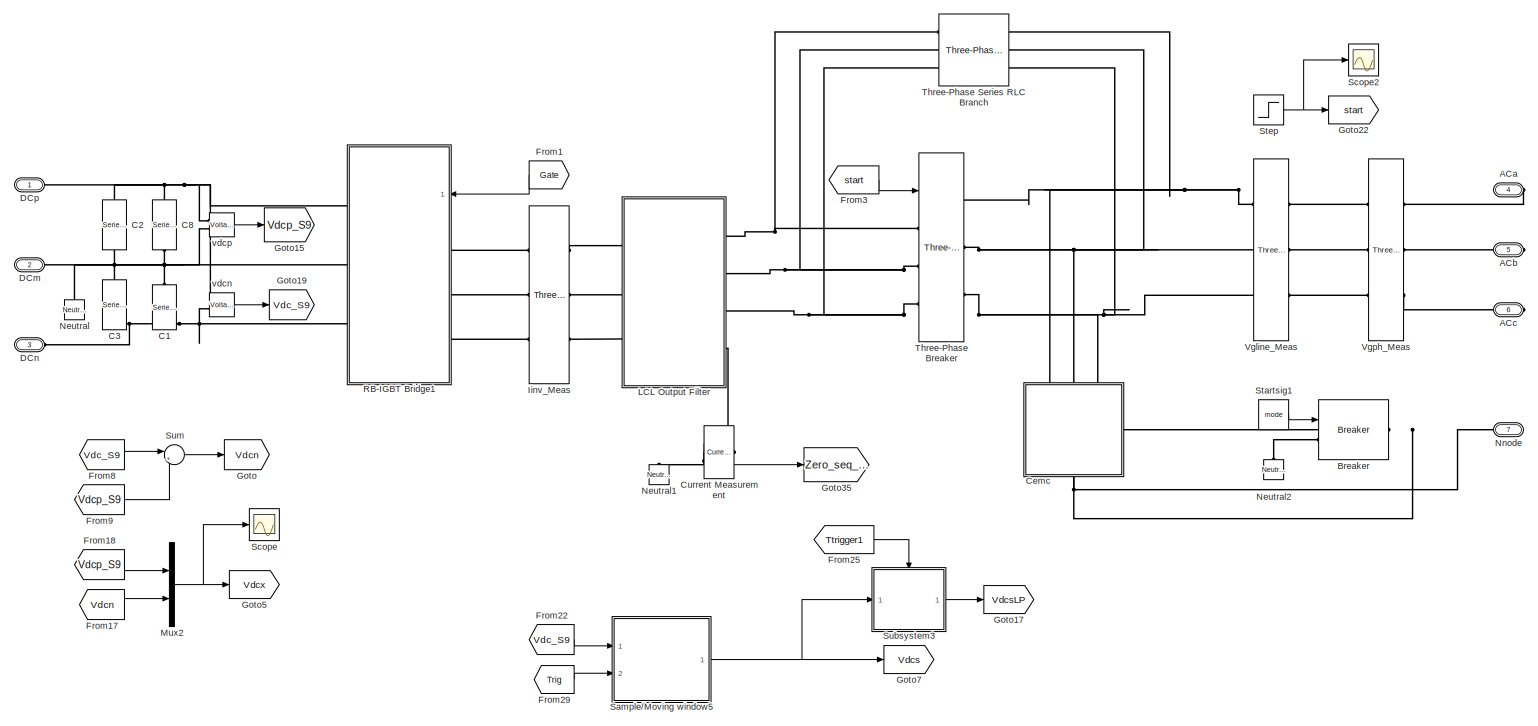
[diagram: AIP10 - part 1/2, full width, top band]
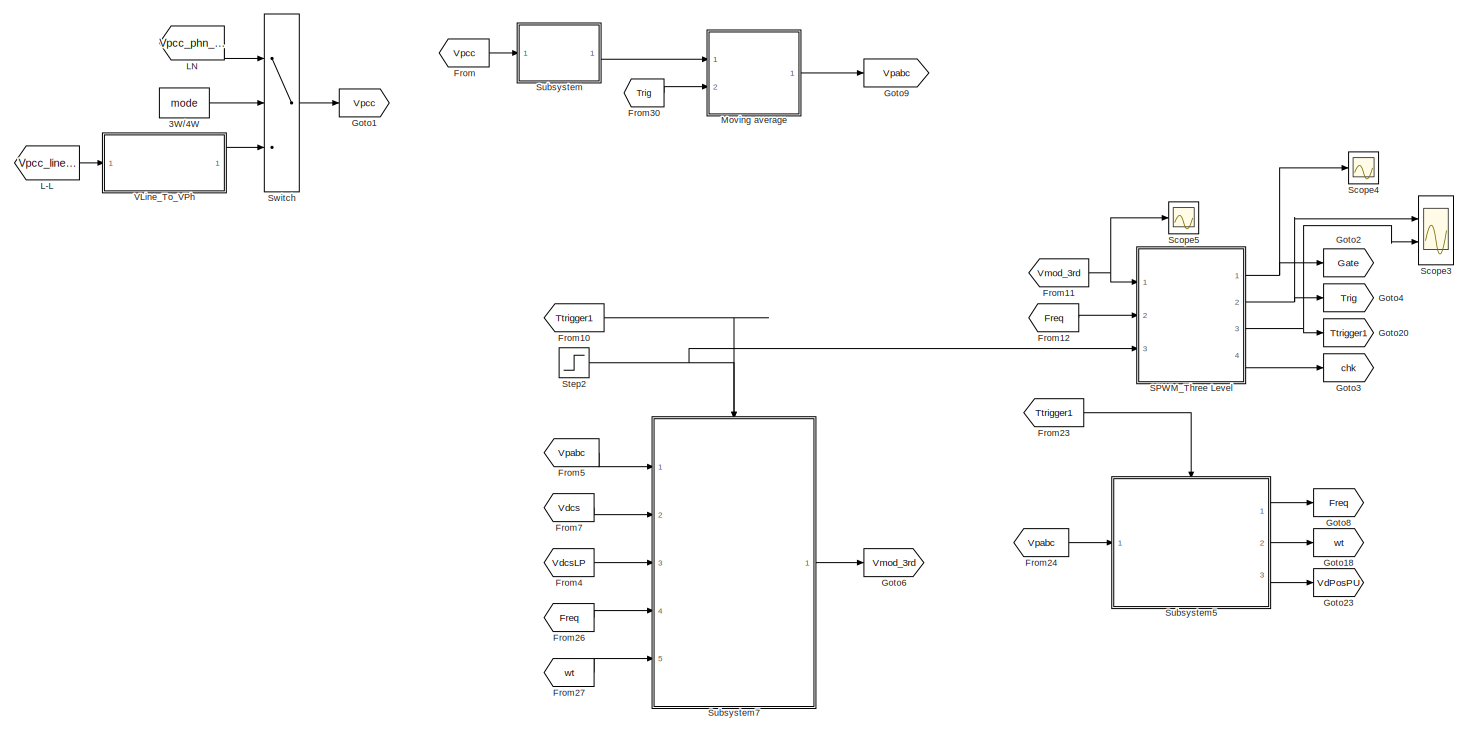
[diagram: AIP10 - part 2/2, full width, bottom band]
BLOCK [SubSystem] AIP10
  Ports = [0, 0, 0, 0, 0, 3, 4]
  RequestExecContextInheritance = off
BLOCK [Constant] AIP10/3W//4W
  Value = mode
BLOCK [PMIOPort] AIP10/ACa
  Port = 4
  Side = Right
BLOCK [PMIOPort] AIP10/ACb
  Port = 5
  Side = Right
BLOCK [PMIOPort] AIP10/ACc
  Port = 6
  Side = Right
BLOCK [Reference] AIP10/Breaker  REF=powerlib/Elements/Breaker
  Ports = [1, 0, 0, 0, 0, 1, 1]
  SourceBlock = powerlib/Elements/Breaker
  SourceProductBaseCode = PS
  SourceProductName = Simscape Electrical
  SourceType = Breaker
BLOCK [Reference] AIP10/C1  REF=powerlib/Elements/Series RLC Branch
  Ports = [0, 0, 0, 0, 0, 1, 1]
  SourceBlock = powerlib/Elements/Series RLC Branch
  SourceProductBaseCode = PS
  SourceProductName = Simscape Electrical
  SourceType = Series RLC Branch
BLOCK [Reference] AIP10/C2  REF=powerlib/Elements/Series RLC Branch
  Ports = [0, 0, 0, 0, 0, 1, 1]
  SourceBlock = powerlib/Elements/Series RLC Branch
  SourceProductBaseCode = PS
  SourceProductName = Simscape Electrical
  SourceType = Series RLC Branch
BLOCK [Reference] AIP10/C3  REF=powerlib/Elements/Series RLC Branch
  Ports = [0, 0, 0, 0, 0, 1, 1]
  SourceBlock = powerlib/Elements/Series RLC Branch
  SourceProductBaseCode = PS
  SourceProductName = Simscape Electrical
  SourceType = Series RLC Branch
BLOCK [Reference] AIP10/C8  REF=powerlib/Elements/Series RLC Branch
  Ports = [0, 0, 0, 0, 0, 1, 1]
  SourceBlock = powerlib/Elements/Series RLC Branch
  SourceProductBaseCode = PS
  SourceProductName = Simscape Electrical
  SourceType = Series RLC Branch
BLOCK [SubSystem] AIP10/Cemc
  Ports = [0, 0, 0, 0, 0, 3, 1]
  RequestExecContextInheritance = off
BLOCK [PMIOPort] AIP10/Cemc/ConnA
  Side = Left
BLOCK [PMIOPort] AIP10/Cemc/ConnB
  Port = 2
  Side = Left
BLOCK [PMIOPort] AIP10/Cemc/ConnC
  Port = 3
  Side = Left
BLOCK [PMIOPort] AIP10/Cemc/Gnd
  Port = 4
  Side = Right
BLOCK [Reference] AIP10/Cemc/RLemc1  REF=powerlib/Elements/Series RLC Branch
  Ports = [0, 0, 0, 0, 0, 1, 1]
  SourceBlock = powerlib/Elements/Series RLC Branch
  SourceProductBaseCode = PS
  SourceProductName = Simscape Electrical
  SourceType = Series RLC Branch
BLOCK [Reference] AIP10/Cemc/RLemc2  REF=powerlib/Elements/Series RLC Branch
  Ports = [0, 0, 0, 0, 0, 1, 1]
  SourceBlock = powerlib/Elements/Series RLC Branch
  SourceProductBaseCode = PS
  SourceProductName = Simscape Electrical
  SourceType = Series RLC Branch
BLOCK [Reference] AIP10/Cemc/RLemc3  REF=powerlib/Elements/Series RLC Branch
  Ports = [0, 0, 0, 0, 0, 1, 1]
  SourceBlock = powerlib/Elements/Series RLC Branch
  SourceProductBaseCode = PS
  SourceProductName = Simscape Electrical
  SourceType = Series RLC Branch
BLOCK [Reference] AIP10/Current Measurement  REF=powerlib/Measurements/Current Measurement
  Ports = [0, 1, 0, 0, 0, 1, 1]
  SourceBlock = powerlib/Measurements/Current Measurement
  SourceProductBaseCode = PS
  SourceProductName = Simscape Electrical
  SourceType = Current Measurement
  UserDataPersistent = on
BLOCK [PMIOPort] AIP10/DCm
  Port = 2
  Side = Left
BLOCK [PMIOPort] AIP10/DCn
  Port = 3
  Side = Left
BLOCK [PMIOPort] AIP10/DCp
  Side = Left
BLOCK [From] AIP10/From
  GotoTag = Vpcc
BLOCK [From] AIP10/From1
  GotoTag = Gate
BLOCK [From] AIP10/From10
  GotoTag = Ttrigger1
BLOCK [From] AIP10/From11
  GotoTag = Vmod_3rd
BLOCK [From] AIP10/From12
  GotoTag = Freq
BLOCK [From] AIP10/From17
  GotoTag = Vdcn
BLOCK [From] AIP10/From18
  GotoTag = Vdcp_S9
BLOCK [From] AIP10/From22
  GotoTag = Vdc_S9
BLOCK [From] AIP10/From23
  GotoTag = Ttrigger1
BLOCK [From] AIP10/From24
  GotoTag = Vpabc
BLOCK [From] AIP10/From25
  GotoTag = Ttrigger1
BLOCK [From] AIP10/From26
  GotoTag = Freq
BLOCK [From] AIP10/From27
  GotoTag = wt
BLOCK [From] AIP10/From29
  GotoTag = Trig
BLOCK [From] AIP10/From3
  GotoTag = start
BLOCK [From] AIP10/From30
  GotoTag = Trig
BLOCK [From] AIP10/From4
  GotoTag = VdcsLP
BLOCK [From] AIP10/From5
  GotoTag = Vpabc
BLOCK [From] AIP10/From7
  GotoTag = Vdcs
BLOCK [From] AIP10/From8
  GotoTag = Vdc_S9
BLOCK [From] AIP10/From9
  GotoTag = Vdcp_S9
BLOCK [Goto] AIP10/Goto
  GotoTag = Vdcn
BLOCK [Goto] AIP10/Goto1
  GotoTag = Vpcc
BLOCK [Goto] AIP10/Goto15
  GotoTag = Vdcp_S9
BLOCK [Goto] AIP10/Goto17
  GotoTag = VdcsLP
BLOCK [Goto] AIP10/Goto18
  GotoTag = wt
BLOCK [Goto] AIP10/Goto19
  GotoTag = Vdc_S9
BLOCK [Goto] AIP10/Goto2
  GotoTag = Gate
BLOCK [Goto] AIP10/Goto20
  GotoTag = Ttrigger1
BLOCK [Goto] AIP10/Goto22
  GotoTag = start
BLOCK [Goto] AIP10/Goto23
  GotoTag = VdPosPU
BLOCK [Goto] AIP10/Goto3
  GotoTag = chk
BLOCK [Goto] AIP10/Goto35
  GotoTag = Zero_seq_S9
  TagVisibility = global
BLOCK [Goto] AIP10/Goto4
  GotoTag = Trig
BLOCK [Goto] AIP10/Goto5
  GotoTag = Vdcx
BLOCK [Goto] AIP10/Goto6
  GotoTag = Vmod_3rd
BLOCK [Goto] AIP10/Goto7
  GotoTag = Vdcs
BLOCK [Goto] AIP10/Goto8
  GotoTag = Freq
BLOCK [Goto] AIP10/Goto9
  GotoTag = Vpabc
BLOCK [Reference] AIP10/Iinv_Meas  REF=powerlib/Measurements/Three-Phase
V-I Measurement
  Ports = [0, 0, 0, 0, 0, 3, 3]
  SourceBlock = powerlib/Measurements/Three-Phase\nV-I Measurement
  SourceProductBaseCode = PS
  SourceProductName = Simscape Electrical
  SourceType = Three-Phase VI Measurement
BLOCK [From] AIP10/L-L
  GotoTag = Vpcc_line_S9
  TagVisibility = global
BLOCK [SubSystem] AIP10/LCL Output Filter
  AncestorBlock = AIP_Library0107/LCL Output Filter
  Ports = [0, 0, 0, 0, 0, 3, 4]
  RequestExecContextInheritance = off
BLOCK [PMIOPort] AIP10/LCL Output Filter/ConnA
  Side = Left
BLOCK [PMIOPort] AIP10/LCL Output Filter/ConnB
  Port = 3
  Side = Left
BLOCK [PMIOPort] AIP10/LCL Output Filter/ConnC
  Port = 5
  Side = Left
BLOCK [PMIOPort] AIP10/LCL Output Filter/Conna
  Port = 2
  Side = Right
BLOCK [PMIOPort] AIP10/LCL Output Filter/Connb
  Port = 4
  Side = Right
BLOCK [PMIOPort] AIP10/LCL Output Filter/Connc
  Port = 6
  Side = Right
BLOCK [PMIOPort] AIP10/LCL Output Filter/Neutral 
  Port = 7
  Side = Right
BLOCK [Reference] AIP10/LCL Output Filter/RL  REF=powerlib/Elements/Series RLC Branch
  Ports = [0, 0, 0, 0, 0, 1, 1]
  SourceBlock = powerlib/Elements/Series RLC Branch
  SourceProductBaseCode = PS
  SourceProductName = Simscape Electrical
  SourceType = Series RLC Branch
BLOCK [Reference] AIP10/LCL Output Filter/RL1  REF=powerlib/Elements/Series RLC Branch
  Ports = [0, 0, 0, 0, 0, 1, 1]
  SourceBlock = powerlib/Elements/Series RLC Branch
  SourceProductBaseCode = PS
  SourceProductName = Simscape Electrical
  SourceType = Series RLC Branch
BLOCK [Reference] AIP10/LCL Output Filter/RL2  REF=powerlib/Elements/Series RLC Branch
  Ports = [0, 0, 0, 0, 0, 1, 1]
  SourceBlock = powerlib/Elements/Series RLC Branch
  SourceProductBaseCode = PS
  SourceProductName = Simscape Electrical
  SourceType = Series RLC Branch
BLOCK [Reference] AIP10/LCL Output Filter/RL3  REF=powerlib/Elements/Series RLC Branch
  Ports = [0, 0, 0, 0, 0, 1, 1]
  SourceBlock = powerlib/Elements/Series RLC Branch
  SourceProductBaseCode = PS
  SourceProductName = Simscape Electrical
  SourceType = Series RLC Branch
BLOCK [Reference] AIP10/LCL Output Filter/RL4  REF=powerlib/Elements/Series RLC Branch
  Ports = [0, 0, 0, 0, 0, 1, 1]
  SourceBlock = powerlib/Elements/Series RLC Branch
  SourceProductBaseCode = PS
  SourceProductName = Simscape Electrical
  SourceType = Series RLC Branch
BLOCK [Reference] AIP10/LCL Output Filter/RL5  REF=powerlib/Elements/Series RLC Branch
  Ports = [0, 0, 0, 0, 0, 1, 1]
  SourceBlock = powerlib/Elements/Series RLC Branch
  SourceProductBaseCode = PS
  SourceProductName = Simscape Electrical
  SourceType = Series RLC Branch
BLOCK [Reference] AIP10/LCL Output Filter/RL6  REF=powerlib/Elements/Series RLC Branch
  Ports = [0, 0, 0, 0, 0, 1, 1]
  SourceBlock = powerlib/Elements/Series RLC Branch
  SourceProductBaseCode = PS
  SourceProductName = Simscape Electrical
  SourceType = Series RLC Branch
BLOCK [Reference] AIP10/LCL Output Filter/RL7  REF=powerlib/Elements/Series RLC Branch
  Ports = [0, 0, 0, 0, 0, 1, 1]
  SourceBlock = powerlib/Elements/Series RLC Branch
  SourceProductBaseCode = PS
  SourceProductName = Simscape Electrical
  SourceType = Series RLC Branch
BLOCK [Reference] AIP10/LCL Output Filter/RL8  REF=powerlib/Elements/Series RLC Branch
  Ports = [0, 0, 0, 0, 0, 1, 1]
  SourceBlock = powerlib/Elements/Series RLC Branch
  SourceProductBaseCode = PS
  SourceProductName = Simscape Electrical
  SourceType = Series RLC Branch
BLOCK [From] AIP10/LN
  GotoTag = Vpcc_phn_S9
  TagVisibility = global
BLOCK [SubSystem] AIP10/Moving average
  AncestorBlock = AIP_Library0123/Sample//Moving window
  ErrorFcn = Stateflow.Translate.translate
  PermitHierarchicalResolution = ExplicitOnly
  Ports = [2, 1]
  Priority = -1
  RequestExecContextInheritance = off
  SFBlockType = MATLAB Function
  TreatAsAtomicUnit = on
BLOCK [Demux] AIP10/Moving average/ Demux 
  Outputs = 1
  Ports = [1, 1]
BLOCK [S-Function] AIP10/Moving average/ SFunction 
  EnableBusSupport = on
  FunctionName = sf_sfun
  Parameters = iNumAvg,iNumDly,ubase
  PortCounts = [2 2]
  Ports = [2, 2]
  SFcnIsStateOwnerBlock = off
  SFunctionDeploymentMode = off
  Tag = Stateflow S-Function CSI_0313_4DC 195
BLOCK [Terminator] AIP10/Moving average/ Terminator 
BLOCK [Inport] AIP10/Moving average/trig
  IconDisplay = Port number
  Port = 2
BLOCK [Inport] AIP10/Moving average/uin
  IconDisplay = Port number
BLOCK [Outport] AIP10/Moving average/yout
  IconDisplay = Port number
  VectorParamsAs1DForOutWhenUnconnected = on
BLOCK [Mux] AIP10/Mux2
  DisplayOption = bar
  Inputs = 2
  Ports = [2, 1]
BLOCK [Reference] AIP10/Neutral  REF=powerlib/Elements/Neutral
  AttributesFormatString = node %<NodeNumber>
  Ports = [0, 0, 0, 0, 0, 1]
  SourceBlock = powerlib/Elements/Neutral
  SourceProductBaseCode = PS
  SourceProductName = Simscape Electrical
  SourceType = Neutral
BLOCK [Reference] AIP10/Neutral1  REF=powerlib/Elements/Neutral
  AttributesFormatString = node %<NodeNumber>
  Ports = [0, 0, 0, 0, 0, 1]
  SourceBlock = powerlib/Elements/Neutral
  SourceProductBaseCode = PS
  SourceProductName = Simscape Electrical
  SourceType = Neutral
BLOCK [Reference] AIP10/Neutral2  REF=powerlib/Elements/Neutral
  AttributesFormatString = node %<NodeNumber>
  Ports = [0, 0, 0, 0, 0, 1]
  SourceBlock = powerlib/Elements/Neutral
  SourceProductBaseCode = PS
  SourceProductName = Simscape Electrical
  SourceType = Neutral
BLOCK [PMIOPort] AIP10/Nnode
  Port = 7
  Side = Right
BLOCK [SubSystem] AIP10/RB-IGBT Bridge1
  AncestorBlock = AIP_Library0107/RB-IGBT Bridge
  Ports = [1, 0, 0, 0, 0, 3, 3]
  RequestExecContextInheritance = off
BLOCK [PMIOPort] AIP10/RB-IGBT Bridge1/A
  Port = 4
  Side = Left
  Tag = PMCPort
BLOCK [PMIOPort] AIP10/RB-IGBT Bridge1/B
  Port = 5
  Side = Left
  Tag = PMCPort
BLOCK [PMIOPort] AIP10/RB-IGBT Bridge1/C
  Port = 6
  Side = Left
  Tag = PMCPort
BLOCK [Demux] AIP10/RB-IGBT Bridge1/Demux
  DisplayOption = bar
  Ports = [1, 4]
BLOCK [Demux] AIP10/RB-IGBT Bridge1/Demux1
  DisplayOption = bar
  Ports = [1, 4]
BLOCK [Demux] AIP10/RB-IGBT Bridge1/Demux2
  DisplayOption = bar
  Ports = [1, 4]
BLOCK [Demux] AIP10/RB-IGBT Bridge1/Demux3
  DisplayOption = bar
  Outputs = 3
  Ports = [1, 3]
BLOCK [From] AIP10/RB-IGBT Bridge1/From
  GotoTag = PulseA_1p
BLOCK [From] AIP10/RB-IGBT Bridge1/From1
  GotoTag = PulseA_2p
BLOCK [From] AIP10/RB-IGBT Bridge1/From10
  GotoTag = PulseC_1n
BLOCK [From] AIP10/RB-IGBT Bridge1/From11
  GotoTag = PulseC_2n
BLOCK [From] AIP10/RB-IGBT Bridge1/From2
  GotoTag = PulseA_1n
BLOCK [From] AIP10/RB-IGBT Bridge1/From3
  GotoTag = PulseA_2n
BLOCK [From] AIP10/RB-IGBT Bridge1/From4
  GotoTag = PulseB_1p
BLOCK [From] AIP10/RB-IGBT Bridge1/From5
  GotoTag = PulseB_2p
BLOCK [From] AIP10/RB-IGBT Bridge1/From6
  GotoTag = PulseB_1n
BLOCK [From] AIP10/RB-IGBT Bridge1/From7
  GotoTag = PulseB_2n
BLOCK [From] AIP10/RB-IGBT Bridge1/From8
  GotoTag = PulseC_1p
BLOCK [From] AIP10/RB-IGBT Bridge1/From9
  GotoTag = PulseC_2p
BLOCK [Inport] AIP10/RB-IGBT Bridge1/Gate
  IconDisplay = Port number
BLOCK [Goto] AIP10/RB-IGBT Bridge1/Goto
  GotoTag = PulseA_1p
BLOCK [Goto] AIP10/RB-IGBT Bridge1/Goto1
  GotoTag = PulseA_2p
BLOCK [Goto] AIP10/RB-IGBT Bridge1/Goto10
  GotoTag = PulseC_1n
BLOCK [Goto] AIP10/RB-IGBT Bridge1/Goto11
  GotoTag = PulseC_2n
BLOCK [Goto] AIP10/RB-IGBT Bridge1/Goto2
  GotoTag = PulseA_1n
BLOCK [Goto] AIP10/RB-IGBT Bridge1/Goto3
  GotoTag = PulseA_2n
BLOCK [Goto] AIP10/RB-IGBT Bridge1/Goto4
  GotoTag = PulseB_1p
BLOCK [Goto] AIP10/RB-IGBT Bridge1/Goto5
  GotoTag = PulseB_2p
BLOCK [Goto] AIP10/RB-IGBT Bridge1/Goto6
  GotoTag = PulseB_1n
BLOCK [Goto] AIP10/RB-IGBT Bridge1/Goto7
  GotoTag = PulseB_2n
BLOCK [Goto] AIP10/RB-IGBT Bridge1/Goto8
  GotoTag = PulseC_1p
BLOCK [Goto] AIP10/RB-IGBT Bridge1/Goto9
  GotoTag = PulseC_2p
BLOCK [Reference] AIP10/RB-IGBT Bridge1/IGBT//Diode1  REF=powerlib/Power
Electronics/IGBT//Diode
  Ports = [1, 0, 0, 0, 0, 1, 1]
  SourceBlock = powerlib/Power\nElectronics/IGBT//Diode
  SourceProductBaseCode = PS
  SourceProductName = Simscape Electrical
  SourceType = IGBT/Diode
BLOCK [Reference] AIP10/RB-IGBT Bridge1/IGBT//Diode10  REF=powerlib/Power
Electronics/IGBT//Diode
  Ports = [1, 0, 0, 0, 0, 1, 1]
  SourceBlock = powerlib/Power\nElectronics/IGBT//Diode
  SourceProductBaseCode = PS
  SourceProductName = Simscape Electrical
  SourceType = IGBT/Diode
BLOCK [Reference] AIP10/RB-IGBT Bridge1/IGBT//Diode11  REF=powerlib/Power
Electronics/IGBT//Diode
  Ports = [1, 0, 0, 0, 0, 1, 1]
  SourceBlock = powerlib/Power\nElectronics/IGBT//Diode
  SourceProductBaseCode = PS
  SourceProductName = Simscape Electrical
  SourceType = IGBT/Diode
BLOCK [Reference] AIP10/RB-IGBT Bridge1/IGBT//Diode12  REF=powerlib/Power
Electronics/IGBT//Diode
  Ports = [1, 0, 0, 0, 0, 1, 1]
  SourceBlock = powerlib/Power\nElectronics/IGBT//Diode
  SourceProductBaseCode = PS
  SourceProductName = Simscape Electrical
  SourceType = IGBT/Diode
BLOCK [Reference] AIP10/RB-IGBT Bridge1/IGBT//Diode2  REF=powerlib/Power
Electronics/IGBT//Diode
  Ports = [1, 0, 0, 0, 0, 1, 1]
  SourceBlock = powerlib/Power\nElectronics/IGBT//Diode
  SourceProductBaseCode = PS
  SourceProductName = Simscape Electrical
  SourceType = IGBT/Diode
BLOCK [Reference] AIP10/RB-IGBT Bridge1/IGBT//Diode3  REF=powerlib/Power
Electronics/IGBT//Diode
  Ports = [1, 0, 0, 0, 0, 1, 1]
  SourceBlock = powerlib/Power\nElectronics/IGBT//Diode
  SourceProductBaseCode = PS
  SourceProductName = Simscape Electrical
  SourceType = IGBT/Diode
BLOCK [Reference] AIP10/RB-IGBT Bridge1/IGBT//Diode4  REF=powerlib/Power
Electronics/IGBT//Diode
  Ports = [1, 0, 0, 0, 0, 1, 1]
  SourceBlock = powerlib/Power\nElectronics/IGBT//Diode
  SourceProductBaseCode = PS
  SourceProductName = Simscape Electrical
  SourceType = IGBT/Diode
BLOCK [Reference] AIP10/RB-IGBT Bridge1/IGBT//Diode5  REF=powerlib/Power
Electronics/IGBT//Diode
  Ports = [1, 0, 0, 0, 0, 1, 1]
  SourceBlock = powerlib/Power\nElectronics/IGBT//Diode
  SourceProductBaseCode = PS
  SourceProductName = Simscape Electrical
  SourceType = IGBT/Diode
BLOCK [Reference] AIP10/RB-IGBT Bridge1/IGBT//Diode6  REF=powerlib/Power
Electronics/IGBT//Diode
  Ports = [1, 0, 0, 0, 0, 1, 1]
  SourceBlock = powerlib/Power\nElectronics/IGBT//Diode
  SourceProductBaseCode = PS
  SourceProductName = Simscape Electrical
  SourceType = IGBT/Diode
BLOCK [Reference] AIP10/RB-IGBT Bridge1/IGBT//Diode7  REF=powerlib/Power
Electronics/IGBT//Diode
  Ports = [1, 0, 0, 0, 0, 1, 1]
  SourceBlock = powerlib/Power\nElectronics/IGBT//Diode
  SourceProductBaseCode = PS
  SourceProductName = Simscape Electrical
  SourceType = IGBT/Diode
BLOCK [Reference] AIP10/RB-IGBT Bridge1/IGBT//Diode8  REF=powerlib/Power
Electronics/IGBT//Diode
  Ports = [1, 0, 0, 0, 0, 1, 1]
  SourceBlock = powerlib/Power\nElectronics/IGBT//Diode
  SourceProductBaseCode = PS
  SourceProductName = Simscape Electrical
  SourceType = IGBT/Diode
BLOCK [Reference] AIP10/RB-IGBT Bridge1/IGBT//Diode9  REF=powerlib/Power
Electronics/IGBT//Diode
  Ports = [1, 0, 0, 0, 0, 1, 1]
  SourceBlock = powerlib/Power\nElectronics/IGBT//Diode
  SourceProductBaseCode = PS
  SourceProductName = Simscape Electrical
  SourceType = IGBT/Diode
BLOCK [PMIOPort] AIP10/RB-IGBT Bridge1/negative
  Port = 3
  Side = Right
  Tag = PMCPort
BLOCK [PMIOPort] AIP10/RB-IGBT Bridge1/netural
  Port = 2
  Side = Right
  Tag = PMCPort
BLOCK [PMIOPort] AIP10/RB-IGBT Bridge1/positive
  Side = Right
  Tag = PMCPort
BLOCK [SubSystem] AIP10/SPWM_Three Level
  Ports = [3, 4]
  RequestExecContextInheritance = off
BLOCK [SubSystem] AIP10/SPWM_Three Level/Carrier Gen
  ErrorFcn = Stateflow.Translate.translate
  PermitHierarchicalResolution = ExplicitOnly
  Ports = [1, 2]
  RequestExecContextInheritance = off
  SFBlockType = MATLAB Function
  TreatAsAtomicUnit = on
BLOCK [Demux] AIP10/SPWM_Three Level/Carrier Gen/ Demux 
  Outputs = 1
  Ports = [1, 1]
BLOCK [S-Function] AIP10/SPWM_Three Level/Carrier Gen/ SFunction 
  EnableBusSupport = on
  FunctionName = sf_sfun
  Parameters = fdelt
  PortCounts = [1 3]
  Ports = [1, 3]
  SFcnIsStateOwnerBlock = off
  SFunctionDeploymentMode = off
  Tag = Stateflow S-Function CSI_0313_4DC 196
BLOCK [Terminator] AIP10/SPWM_Three Level/Carrier Gen/ Terminator 
BLOCK [Outport] AIP10/SPWM_Three Level/Carrier Gen/carrier
  IconDisplay = Port number
  VectorParamsAs1DForOutWhenUnconnected = on
BLOCK [Inport] AIP10/SPWM_Three Level/Carrier Gen/fsw
  IconDisplay = Port number
BLOCK [Outport] AIP10/SPWM_Three Level/Carrier Gen/sgn
  IconDisplay = Port number
  Port = 2
  VectorParamsAs1DForOutWhenUnconnected = on
BLOCK [Constant] AIP10/SPWM_Three Level/Constant1
  Value = Nsw
BLOCK [Constant] AIP10/SPWM_Three Level/Constant2
  Value = 18000
BLOCK [Constant] AIP10/SPWM_Three Level/Constant3
  Value = 55e-6
BLOCK [Constant] AIP10/SPWM_Three Level/Constant4
  Value = Update
BLOCK [Constant] AIP10/SPWM_Three Level/Constant6
  Value = Update
BLOCK [Delay] AIP10/SPWM_Three Level/Delay1
  DelayLength = 1
  InputPortMap = u0
  Ports = [1, 1]
  SampleTime = fTs
BLOCK [Demux] AIP10/SPWM_Three Level/Demux1
  DisplayOption = bar
  Outputs = 3
  Ports = [1, 3]
BLOCK [Inport] AIP10/SPWM_Three Level/Freq
  IconDisplay = Port number
  Port = 2
BLOCK [From] AIP10/SPWM_Three Level/From1
  GotoTag = carrier
BLOCK [From] AIP10/SPWM_Three Level/From10
  GotoTag = chk
BLOCK [From] AIP10/SPWM_Three Level/From11
  GotoTag = Freq
BLOCK [From] AIP10/SPWM_Three Level/From12
  GotoTag = VMod_3rd
BLOCK [From] AIP10/SPWM_Three Level/From13
  GotoTag = VMod_3rd
BLOCK [From] AIP10/SPWM_Three Level/From14
  GotoTag = chk1
BLOCK [From] AIP10/SPWM_Three Level/From15
  GotoTag = Ttrigger
BLOCK [From] AIP10/SPWM_Three Level/From16
  GotoTag = Tupdatex
BLOCK [From] AIP10/SPWM_Three Level/From17
  GotoTag = Ttrigger
BLOCK [From] AIP10/SPWM_Three Level/From18
  GotoTag = Tupdate
BLOCK [From] AIP10/SPWM_Three Level/From2
  GotoTag = Ttrigger
BLOCK [From] AIP10/SPWM_Three Level/From3
  GotoTag = Ttrigger
BLOCK [From] AIP10/SPWM_Three Level/From4
  GotoTag = Tupdatex
BLOCK [From] AIP10/SPWM_Three Level/From5
  GotoTag = Ttrigger
BLOCK [From] AIP10/SPWM_Three Level/From6
  GotoTag = carrier
BLOCK [From] AIP10/SPWM_Three Level/From7
  GotoTag = Freq
BLOCK [From] AIP10/SPWM_Three Level/From8
  GotoTag = Tupdate
BLOCK [From] AIP10/SPWM_Three Level/From9
  GotoTag = Tupdate
BLOCK [Outport] AIP10/SPWM_Three Level/Gate
  IconDisplay = Port number
  VectorParamsAs1DForOutWhenUnconnected = on
BLOCK [Goto] AIP10/SPWM_Three Level/Goto
  GotoTag = Ttrigger
BLOCK [Goto] AIP10/SPWM_Three Level/Goto1
  GotoTag = carrier
BLOCK [Goto] AIP10/SPWM_Three Level/Goto2
  GotoTag = VMod_3rd
BLOCK [Goto] AIP10/SPWM_Three Level/Goto3
  GotoTag = Tupdate
BLOCK [Goto] AIP10/SPWM_Three Level/Goto4
  GotoTag = chk
BLOCK [Goto] AIP10/SPWM_Three Level/Goto5
  GotoTag = Freq
BLOCK [Goto] AIP10/SPWM_Three Level/Goto6
  GotoTag = Tupdatex
BLOCK [Goto] AIP10/SPWM_Three Level/Goto7
  GotoTag = chk1
BLOCK [Mux] AIP10/SPWM_Three Level/Mux
  DisplayOption = bar
  Ports = [4, 1]
BLOCK [Product] AIP10/SPWM_Three Level/Product1
  InputSameDT = off
  OutDataTypeStr = Inherit: Inherit via internal rule
  Ports = [2, 1]
  RndMeth = Floor
  SaturateOnIntegerOverflow = off
BLOCK [Product] AIP10/SPWM_Three Level/Product2
  InputSameDT = off
  OutDataTypeStr = Inherit: Inherit via internal rule
  Ports = [2, 1]
  RndMeth = Floor
  SaturateOnIntegerOverflow = off
BLOCK [SubSystem] AIP10/SPWM_Three Level/Pulse Modulation
  ErrorFcn = Stateflow.Translate.translate
  PermitHierarchicalResolution = ExplicitOnly
  Ports = [4, 3]
  RequestExecContextInheritance = off
  SFBlockType = MATLAB Function
  TreatAsAtomicUnit = on
BLOCK [Demux] AIP10/SPWM_Three Level/Pulse Modulation/ Demux 
  Outputs = 1
  Ports = [1, 1]
BLOCK [S-Function] AIP10/SPWM_Three Level/Pulse Modulation/ SFunction 
  EnableBusSupport = on
  FunctionName = sf_sfun
  PortCounts = [4 4]
  Ports = [4, 4]
  SFcnIsStateOwnerBlock = off
  SFunctionDeploymentMode = off
  Tag = Stateflow S-Function CSI_0313_4DC 197
BLOCK [Terminator] AIP10/SPWM_Three Level/Pulse Modulation/ Terminator 
BLOCK [Outport] AIP10/SPWM_Three Level/Pulse Modulation/Pulse
  IconDisplay = Port number
  VectorParamsAs1DForOutWhenUnconnected = on
BLOCK [Inport] AIP10/SPWM_Three Level/Pulse Modulation/carrier
  IconDisplay = Port number
BLOCK [Outport] AIP10/SPWM_Three Level/Pulse Modulation/chk
  IconDisplay = Port number
  Port = 2
  VectorParamsAs1DForOutWhenUnconnected = on
BLOCK [Outport] AIP10/SPWM_Three Level/Pulse Modulation/chk1
  IconDisplay = Port number
  Port = 3
  VectorParamsAs1DForOutWhenUnconnected = on
BLOCK [Inport] AIP10/SPWM_Three Level/Pulse Modulation/mod
  IconDisplay = Port number
  Port = 4
BLOCK [Inport] AIP10/SPWM_Three Level/Pulse Modulation/sgn
  IconDisplay = Port number
  Port = 2
BLOCK [Inport] AIP10/SPWM_Three Level/Pulse Modulation/update
  IconDisplay = Port number
  Port = 3
BLOCK [Scope] AIP10/SPWM_Three Level/Scope1
  Floating = off
  NumInputPorts = 1
  Ports = [1]
BLOCK [Scope] AIP10/SPWM_Three Level/Scope2
  Floating = off
  NumInputPorts = 5
  Ports = [5]
BLOCK [Step] AIP10/SPWM_Three Level/Step
  Before = -1
  SampleTime = 0
  Time = tstart
BLOCK [Switch] AIP10/SPWM_Three Level/Switch
  Criteria = u2 > Threshold
  InputSameDT = off
  SaturateOnIntegerOverflow = off
BLOCK [SubSystem] AIP10/SPWM_Three Level/Tdt Insert
  ErrorFcn = Stateflow.Translate.translate
  PermitHierarchicalResolution = ExplicitOnly
  Ports = [2, 2]
  RequestExecContextInheritance = off
  SFBlockType = MATLAB Function
  TreatAsAtomicUnit = on
BLOCK [Demux] AIP10/SPWM_Three Level/Tdt Insert/ Demux 
  Outputs = 1
  Ports = [1, 1]
BLOCK [S-Function] AIP10/SPWM_Three Level/Tdt Insert/ SFunction 
  EnableBusSupport = on
  FunctionName = sf_sfun
  Parameters = fdelt,tdt
  PortCounts = [2 3]
  Ports = [2, 3]
  SFcnIsStateOwnerBlock = off
  SFunctionDeploymentMode = off
  Tag = Stateflow S-Function CSI_0313_4DC 212
BLOCK [Terminator] AIP10/SPWM_Three Level/Tdt Insert/ Terminator 
BLOCK [Outport] AIP10/SPWM_Three Level/Tdt Insert/Gate
  IconDisplay = Port number
  VectorParamsAs1DForOutWhenUnconnected = on
BLOCK [Outport] AIP10/SPWM_Three Level/Tdt Insert/chk
  IconDisplay = Port number
  Port = 2
  VectorParamsAs1DForOutWhenUnconnected = on
BLOCK [Inport] AIP10/SPWM_Three Level/Tdt Insert/pulse
  IconDisplay = Port number
BLOCK [Inport] AIP10/SPWM_Three Level/Tdt Insert/st
  IconDisplay = Port number
  Port = 2
BLOCK [Inport] AIP10/SPWM_Three Level/Tstart
  IconDisplay = Port number
  Port = 3
BLOCK [Outport] AIP10/SPWM_Three Level/Ttrigger
  IconDisplay = Port number
  Port = 2
  VectorParamsAs1DForOutWhenUnconnected = on
BLOCK [Outport] AIP10/SPWM_Three Level/Ttrigger1
  IconDisplay = Port number
  Port = 3
  VectorParamsAs1DForOutWhenUnconnected = on
BLOCK [Inport] AIP10/SPWM_Three Level/VMod_3rd
  IconDisplay = Port number
BLOCK [SubSystem] AIP10/SPWM_Three Level/Voltage update timing generator
  ErrorFcn = Stateflow.Translate.translate
  PermitHierarchicalResolution = ExplicitOnly
  Ports = [2, 1]
  RequestExecContextInheritance = off
  SFBlockType = MATLAB Function
  TreatAsAtomicUnit = on
BLOCK [Demux] AIP10/SPWM_Three Level/Voltage update timing generator/ Demux 
  Outputs = 1
  Ports = [1, 1]
BLOCK [S-Function] AIP10/SPWM_Three Level/Voltage update timing generator/ SFunction 
  EnableBusSupport = on
  FunctionName = sf_sfun
  PortCounts = [2 2]
  Ports = [2, 2]
  SFcnIsStateOwnerBlock = off
  SFunctionDeploymentMode = off
  Tag = Stateflow S-Function CSI_0313_4DC 219
BLOCK [Terminator] AIP10/SPWM_Three Level/Voltage update timing generator/ Terminator 
BLOCK [Inport] AIP10/SPWM_Three Level/Voltage update timing generator/Trigger
  IconDisplay = Port number
BLOCK [Outport] AIP10/SPWM_Three Level/Voltage update timing generator/Tupdate
  IconDisplay = Port number
  VectorParamsAs1DForOutWhenUnconnected = on
BLOCK [Inport] AIP10/SPWM_Three Level/Voltage update timing generator/Update
  IconDisplay = Port number
  Port = 2
BLOCK [SubSystem] AIP10/SPWM_Three Level/Voltage update timing generator1
  ErrorFcn = Stateflow.Translate.translate
  PermitHierarchicalResolution = ExplicitOnly
  Ports = [2, 1]
  RequestExecContextInheritance = off
  SFBlockType = MATLAB Function
  TreatAsAtomicUnit = on
BLOCK [Demux] AIP10/SPWM_Three Level/Voltage update timing generator1/ Demux 
  Outputs = 1
  Ports = [1, 1]
BLOCK [S-Function] AIP10/SPWM_Three Level/Voltage update timing generator1/ SFunction 
  EnableBusSupport = on
  FunctionName = sf_sfun
  PortCounts = [2 2]
  Ports = [2, 2]
  SFcnIsStateOwnerBlock = off
  SFunctionDeploymentMode = off
  Tag = Stateflow S-Function CSI_0313_4DC 229
BLOCK [Terminator] AIP10/SPWM_Three Level/Voltage update timing generator1/ Terminator 
BLOCK [Inport] AIP10/SPWM_Three Level/Voltage update timing generator1/Trigger
  IconDisplay = Port number
BLOCK [Outport] AIP10/SPWM_Three Level/Voltage update timing generator1/Tupdate
  IconDisplay = Port number
  VectorParamsAs1DForOutWhenUnconnected = on
BLOCK [Inport] AIP10/SPWM_Three Level/Voltage update timing generator1/Update
  IconDisplay = Port number
  Port = 2
BLOCK [Outport] AIP10/SPWM_Three Level/chk
  IconDisplay = Port number
  Port = 4
  VectorParamsAs1DForOutWhenUnconnected = on
BLOCK [SubSystem] AIP10/Sample//Moving window5
  AncestorBlock = AIP_Library0123/Sample//Moving window
  ErrorFcn = Stateflow.Translate.translate
  PermitHierarchicalResolution = ExplicitOnly
  Ports = [2, 1]
  Priority = -1
  RequestExecContextInheritance = off
  SFBlockType = MATLAB Function
  TreatAsAtomicUnit = on
BLOCK [Demux] AIP10/Sample//Moving window5/ Demux 
  Outputs = 1
  Ports = [1, 1]
BLOCK [S-Function] AIP10/Sample//Moving window5/ SFunction 
  EnableBusSupport = on
  FunctionName = sf_sfun
  Parameters = iNumAvg,iNumDly,ubase
  PortCounts = [2 2]
  Ports = [2, 2]
  SFcnIsStateOwnerBlock = off
  SFunctionDeploymentMode = off
  Tag = Stateflow S-Function CSI_0313_4DC 230
BLOCK [Terminator] AIP10/Sample//Moving window5/ Terminator 
BLOCK [Inport] AIP10/Sample//Moving window5/trig
  IconDisplay = Port number
  Port = 2
BLOCK [Inport] AIP10/Sample//Moving window5/uin
  IconDisplay = Port number
BLOCK [Outport] AIP10/Sample//Moving window5/yout
  IconDisplay = Port number
  VectorParamsAs1DForOutWhenUnconnected = on
BLOCK [Scope] AIP10/Scope
  Floating = off
  NumInputPorts = 1
  Ports = [1]
  ScopeSpecificationString = Simulink.scopes.TimeScopeBlockCfg('CurrentConfiguration', extmgr.ConfigurationSet(extmgr.Configuration('Core','General UI',true),extmgr.Configuration('Core','Source UI',true),extmgr.Configuration('Sources','WiredSimulink',true,'DataLoggingVariableName','ScopeData3'),extmgr.Configuration('Visuals','Time Domain',true,'SerializedDisplays',{struct('MinYLimReal','319.39729','MaxYLimReal','325.41972','Y...<+1483ch>
BLOCK [Scope] AIP10/Scope2
  Floating = off
  NumInputPorts = 1
  Ports = [1]
BLOCK [Scope] AIP10/Scope3
  Floating = off
  NumInputPorts = 2
  Ports = [2]
BLOCK [Scope] AIP10/Scope4
  Floating = off
  NumInputPorts = 1
  Ports = [1]
BLOCK [Scope] AIP10/Scope5
  Floating = off
  NumInputPorts = 1
  Ports = [1]
BLOCK [Constant] AIP10/Startsig1
  Value = mode
BLOCK [Step] AIP10/Step
  SampleTime = 0
  Time = 0.55
BLOCK [Step] AIP10/Step2
  SampleTime = 0
  Time = 0.55
BLOCK [SubSystem] AIP10/Subsystem
  Ports = [1, 1]
  RequestExecContextInheritance = off
BLOCK [Demux] AIP10/Subsystem/Demux2
  DisplayOption = bar
  Outputs = 3
  Ports = [1, 3]
BLOCK [SubSystem] AIP10/Subsystem/IIR_1st1
  ErrorFcn = Stateflow.Translate.translate
  PermitHierarchicalResolution = ExplicitOnly
  Ports = [1, 1]
  RequestExecContextInheritance = off
  SFBlockType = MATLAB Function
  TreatAsAtomicUnit = on
BLOCK [Demux] AIP10/Subsystem/IIR_1st1/ Demux 
  Outputs = 1
  Ports = [1, 1]
BLOCK [S-Function] AIP10/Subsystem/IIR_1st1/ SFunction 
  EnableBusSupport = on
  FunctionName = sf_sfun
  Parameters = fTs,fc
  PortCounts = [1 2]
  Ports = [1, 2]
  SFcnIsStateOwnerBlock = off
  SFunctionDeploymentMode = off
  Tag = Stateflow S-Function CSI_0313_4DC 231
BLOCK [Terminator] AIP10/Subsystem/IIR_1st1/ Terminator 
BLOCK [Inport] AIP10/Subsystem/IIR_1st1/u
  IconDisplay = Port number
BLOCK [Outport] AIP10/Subsystem/IIR_1st1/y
  IconDisplay = Port number
  VectorParamsAs1DForOutWhenUnconnected = on
BLOCK [SubSystem] AIP10/Subsystem/IIR_1st2
  ErrorFcn = Stateflow.Translate.translate
  PermitHierarchicalResolution = ExplicitOnly
  Ports = [1, 1]
  RequestExecContextInheritance = off
  SFBlockType = MATLAB Function
  TreatAsAtomicUnit = on
BLOCK [Demux] AIP10/Subsystem/IIR_1st2/ Demux 
  Outputs = 1
  Ports = [1, 1]
BLOCK [S-Function] AIP10/Subsystem/IIR_1st2/ SFunction 
  EnableBusSupport = on
  FunctionName = sf_sfun
  Parameters = fTs,fc
  PortCounts = [1 2]
  Ports = [1, 2]
  SFcnIsStateOwnerBlock = off
  SFunctionDeploymentMode = off
  Tag = Stateflow S-Function CSI_0313_4DC 232
BLOCK [Terminator] AIP10/Subsystem/IIR_1st2/ Terminator 
BLOCK [Inport] AIP10/Subsystem/IIR_1st2/u
  IconDisplay = Port number
BLOCK [Outport] AIP10/Subsystem/IIR_1st2/y
  IconDisplay = Port number
  VectorParamsAs1DForOutWhenUnconnected = on
BLOCK [SubSystem] AIP10/Subsystem/IIR_1st3
  ErrorFcn = Stateflow.Translate.translate
  PermitHierarchicalResolution = ExplicitOnly
  Ports = [1, 1]
  RequestExecContextInheritance = off
  SFBlockType = MATLAB Function
  TreatAsAtomicUnit = on
BLOCK [Demux] AIP10/Subsystem/IIR_1st3/ Demux 
  Outputs = 1
  Ports = [1, 1]
BLOCK [S-Function] AIP10/Subsystem/IIR_1st3/ SFunction 
  EnableBusSupport = on
  FunctionName = sf_sfun
  Parameters = fTs,fc
  PortCounts = [1 2]
  Ports = [1, 2]
  SFcnIsStateOwnerBlock = off
  SFunctionDeploymentMode = off
  Tag = Stateflow S-Function CSI_0313_4DC 233
BLOCK [Terminator] AIP10/Subsystem/IIR_1st3/ Terminator 
BLOCK [Inport] AIP10/Subsystem/IIR_1st3/u
  IconDisplay = Port number
BLOCK [Outport] AIP10/Subsystem/IIR_1st3/y
  IconDisplay = Port number
  VectorParamsAs1DForOutWhenUnconnected = on
BLOCK [Inport] AIP10/Subsystem/In1
  IconDisplay = Port number
BLOCK [Mux] AIP10/Subsystem/Mux1
  DisplayOption = bar
  Inputs = 3
  Ports = [3, 1]
BLOCK [Outport] AIP10/Subsystem/Out1
  IconDisplay = Port number
  VectorParamsAs1DForOutWhenUnconnected = on
BLOCK [SubSystem] AIP10/Subsystem3
  Ports = [1, 1, 0, 1]
  RequestExecContextInheritance = off
BLOCK [SubSystem] AIP10/Subsystem3/IIR_1st1
  ErrorFcn = Stateflow.Translate.translate
  PermitHierarchicalResolution = ExplicitOnly
  Ports = [1, 1]
  RequestExecContextInheritance = off
  SFBlockType = MATLAB Function
  TreatAsAtomicUnit = on
BLOCK [Demux] AIP10/Subsystem3/IIR_1st1/ Demux 
  Outputs = 1
  Ports = [1, 1]
BLOCK [S-Function] AIP10/Subsystem3/IIR_1st1/ SFunction 
  EnableBusSupport = on
  FunctionName = sf_sfun
  Parameters = fTs,fc
  PortCounts = [1 2]
  Ports = [1, 2]
  SFcnIsStateOwnerBlock = off
  SFunctionDeploymentMode = off
  Tag = Stateflow S-Function CSI_0313_4DC 248
BLOCK [Terminator] AIP10/Subsystem3/IIR_1st1/ Terminator 
BLOCK [Inport] AIP10/Subsystem3/IIR_1st1/u
  IconDisplay = Port number
BLOCK [Outport] AIP10/Subsystem3/IIR_1st1/y
  IconDisplay = Port number
  VectorParamsAs1DForOutWhenUnconnected = on
BLOCK [Inport] AIP10/Subsystem3/In1
  IconDisplay = Port number
BLOCK [Outport] AIP10/Subsystem3/Out1
  IconDisplay = Port number
  VectorParamsAs1DForOutWhenUnconnected = on
BLOCK [TriggerPort] AIP10/Subsystem3/Trigger
  PortDimensions = 1
  Ports = []
  StatesWhenEnabling = held
  VariantControl = Variant
BLOCK [SubSystem] AIP10/Subsystem5
  Ports = [1, 3, 0, 1]
  RequestExecContextInheritance = off
BLOCK [Outport] AIP10/Subsystem5/Freq
  IconDisplay = Port number
BLOCK [From] AIP10/Subsystem5/From23
  GotoTag = VabcPU
BLOCK [Gain] AIP10/Subsystem5/Gain6
  Gain = 1/Vbase
  OutDataTypeStr = Inherit: Inherit via internal rule
  ParamDataTypeStr = Inherit: Inherit via internal rule
  SaturateOnIntegerOverflow = off
BLOCK [Goto] AIP10/Subsystem5/Goto29
  GotoTag = VabcPU
BLOCK [SubSystem] AIP10/Subsystem5/PLL
  Ports = [1, 3]
  RequestExecContextInheritance = off
BLOCK [SubSystem] AIP10/Subsystem5/PLL/ABC_To_RIZ
  ErrorFcn = Stateflow.Translate.translate
  PermitHierarchicalResolution = ExplicitOnly
  Ports = [1, 1]
  RequestExecContextInheritance = off
  SFBlockType = MATLAB Function
  TreatAsAtomicUnit = on
BLOCK [Demux] AIP10/Subsystem5/PLL/ABC_To_RIZ/ Demux 
  Outputs = 1
  Ports = [1, 1]
BLOCK [S-Function] AIP10/Subsystem5/PLL/ABC_To_RIZ/ SFunction 
  EnableBusSupport = on
  FunctionName = sf_sfun
  PortCounts = [1 2]
  Ports = [1, 2]
  SFcnIsStateOwnerBlock = off
  SFunctionDeploymentMode = off
  Tag = Stateflow S-Function CSI_0313_4DC 255
BLOCK [Terminator] AIP10/Subsystem5/PLL/ABC_To_RIZ/ Terminator 
BLOCK [Inport] AIP10/Subsystem5/PLL/ABC_To_RIZ/ABC
  IconDisplay = Port number
BLOCK [Outport] AIP10/Subsystem5/PLL/ABC_To_RIZ/RIZ
  IconDisplay = Port number
  VectorParamsAs1DForOutWhenUnconnected = on
BLOCK [Constant] AIP10/Subsystem5/PLL/Constant
  SampleTime = -1
  Value = 2*pi*fFqBase
BLOCK [Constant] AIP10/Subsystem5/PLL/Constant1
  Value = 2*pi
BLOCK [Delay] AIP10/Subsystem5/PLL/Delay1
  DelayLength = 1
  InputPortMap = u0
  Ports = [1, 1]
BLOCK [Delay] AIP10/Subsystem5/PLL/Delay2
  DelayLength = 1
  InputPortMap = u0
  Ports = [1, 1]
BLOCK [Demux] AIP10/Subsystem5/PLL/Demux3
  DisplayOption = bar
  Outputs = 3
  Ports = [1, 3]
BLOCK [From] AIP10/Subsystem5/PLL/From
  GotoTag = wt
BLOCK [From] AIP10/Subsystem5/PLL/From1
  GotoTag = VrizPos
BLOCK [From] AIP10/Subsystem5/PLL/From11
  GotoTag = f
BLOCK [From] AIP10/Subsystem5/PLL/From2
  GotoTag = Vabc
BLOCK [From] AIP10/Subsystem5/PLL/From3
  GotoTag = w
BLOCK [From] AIP10/Subsystem5/PLL/From33
  GotoTag = wt
BLOCK [From] AIP10/Subsystem5/PLL/From4
  GotoTag = Vriz
BLOCK [From] AIP10/Subsystem5/PLL/From5
  GotoTag = w
BLOCK [From] AIP10/Subsystem5/PLL/From6
  GotoTag = f
BLOCK [From] AIP10/Subsystem5/PLL/From7
  GotoTag = VqPos
BLOCK [From] AIP10/Subsystem5/PLL/From9
  GotoTag = Vdq0Pos
BLOCK [Gain] AIP10/Subsystem5/PLL/Gain
  Gain = 1/(2*pi)
  OutDataTypeStr = Inherit: Inherit via internal rule
  ParamDataTypeStr = Inherit: Inherit via internal rule
  SaturateOnIntegerOverflow = off
BLOCK [Goto] AIP10/Subsystem5/PLL/Goto
  GotoTag = Vabc
BLOCK [Goto] AIP10/Subsystem5/PLL/Goto1
  GotoTag = w
BLOCK [Goto] AIP10/Subsystem5/PLL/Goto14
  GotoTag = f
BLOCK [Goto] AIP10/Subsystem5/PLL/Goto15
  GotoTag = wt
BLOCK [Goto] AIP10/Subsystem5/PLL/Goto2
  GotoTag = Vriz
BLOCK [Goto] AIP10/Subsystem5/PLL/Goto3
  GotoTag = chk
BLOCK [Goto] AIP10/Subsystem5/PLL/Goto4
  GotoTag = VqPos
BLOCK [Goto] AIP10/Subsystem5/PLL/Goto5
  GotoTag = VrizPos
BLOCK [Goto] AIP10/Subsystem5/PLL/Goto6
  GotoTag = Vdq0Pos
BLOCK [Goto] AIP10/Subsystem5/PLL/Goto7
  GotoTag = VdPos
BLOCK [SubSystem] AIP10/Subsystem5/PLL/Integral
  ErrorFcn = Stateflow.Translate.translate
  PermitHierarchicalResolution = ExplicitOnly
  Ports = [1, 1]
  RequestExecContextInheritance = off
  SFBlockType = MATLAB Function
  TreatAsAtomicUnit = on
BLOCK [Demux] AIP10/Subsystem5/PLL/Integral/ Demux 
  Outputs = 1
  Ports = [1, 1]
BLOCK [S-Function] AIP10/Subsystem5/PLL/Integral/ SFunction 
  EnableBusSupport = on
  FunctionName = sf_sfun
  Parameters = fGain,fTs
  PortCounts = [1 2]
  Ports = [1, 2]
  SFcnIsStateOwnerBlock = off
  SFunctionDeploymentMode = off
  Tag = Stateflow S-Function CSI_0313_4DC 265
BLOCK [Terminator] AIP10/Subsystem5/PLL/Integral/ Terminator 
BLOCK [Inport] AIP10/Subsystem5/PLL/Integral/u
  IconDisplay = Port number
BLOCK [Outport] AIP10/Subsystem5/PLL/Integral/y
  IconDisplay = Port number
  VectorParamsAs1DForOutWhenUnconnected = on
BLOCK [Math] AIP10/Subsystem5/PLL/Math Function
  Operator = mod
  Ports = [2, 1]
BLOCK [SubSystem] AIP10/Subsystem5/PLL/PI Ctrl
  ErrorFcn = Stateflow.Translate.translate
  PermitHierarchicalResolution = ExplicitOnly
  Ports = [1, 1]
  RequestExecContextInheritance = off
  SFBlockType = MATLAB Function
  TreatAsAtomicUnit = on
BLOCK [Demux] AIP10/Subsystem5/PLL/PI Ctrl/ Demux 
  Outputs = 1
  Ports = [1, 1]
BLOCK [S-Function] AIP10/Subsystem5/PLL/PI Ctrl/ SFunction 
  EnableBusSupport = on
  FunctionName = sf_sfun
  Parameters = fKI,fKP,fMaxLmt,fMinLmt,fTs
  PortCounts = [1 2]
  Ports = [1, 2]
  SFcnIsStateOwnerBlock = off
  SFunctionDeploymentMode = off
  Tag = Stateflow S-Function CSI_0313_4DC 266
BLOCK [Terminator] AIP10/Subsystem5/PLL/PI Ctrl/ Terminator 
BLOCK [Inport] AIP10/Subsystem5/PLL/PI Ctrl/err
  IconDisplay = Port number
BLOCK [Outport] AIP10/Subsystem5/PLL/PI Ctrl/y
  IconDisplay = Port number
  VectorParamsAs1DForOutWhenUnconnected = on
BLOCK [SubSystem] AIP10/Subsystem5/PLL/Pos&Neg seq extract in subsystem 
  Ports = [2, 3]
  RequestExecContextInheritance = off
BLOCK [Sum] AIP10/Subsystem5/PLL/Pos&Neg seq extract in subsystem /Add1
  InputSameDT = off
  OutDataTypeStr = Inherit: Inherit via internal rule
  Ports = [2, 1]
  SaturateOnIntegerOverflow = off
BLOCK [Sum] AIP10/Subsystem5/PLL/Pos&Neg seq extract in subsystem /Add2
  InputSameDT = off
  Inputs = -+
  OutDataTypeStr = Inherit: Inherit via internal rule
  Ports = [2, 1]
  SaturateOnIntegerOverflow = off
BLOCK [Demux] AIP10/Subsystem5/PLL/Pos&Neg seq extract in subsystem /Demux1
  DisplayOption = bar
  Outputs = 3
  Ports = [1, 3]
BLOCK [From] AIP10/Subsystem5/PLL/Pos&Neg seq extract in subsystem /From
  GotoTag = ReBP
BLOCK [From] AIP10/Subsystem5/PLL/Pos&Neg seq extract in subsystem /From1
  GotoTag = Re
BLOCK [From] AIP10/Subsystem5/PLL/Pos&Neg seq extract in subsystem /From10
  GotoTag = ImLP
BLOCK [From] AIP10/Subsystem5/PLL/Pos&Neg seq extract in subsystem /From11
  GotoTag = ReLP
BLOCK [From] AIP10/Subsystem5/PLL/Pos&Neg seq extract in subsystem /From12
  GotoTag = ImBP
BLOCK [From] AIP10/Subsystem5/PLL/Pos&Neg seq extract in subsystem /From13
  GotoTag = ffc
BLOCK [From] AIP10/Subsystem5/PLL/Pos&Neg seq extract in subsystem /From14
  GotoTag = ffc
BLOCK [From] AIP10/Subsystem5/PLL/Pos&Neg seq extract in subsystem /From15
  GotoTag = ffc
BLOCK [From] AIP10/Subsystem5/PLL/Pos&Neg seq extract in subsystem /From16
  GotoTag = ffc
BLOCK [From] AIP10/Subsystem5/PLL/Pos&Neg seq extract in subsystem /From17
  GotoTag = RePos
BLOCK [From] AIP10/Subsystem5/PLL/Pos&Neg seq extract in subsystem /From18
  GotoTag = ImPos
BLOCK [From] AIP10/Subsystem5/PLL/Pos&Neg seq extract in subsystem /From19
  GotoTag = ReNeg
BLOCK [From] AIP10/Subsystem5/PLL/Pos&Neg seq extract in subsystem /From2
  GotoTag = ImLP
BLOCK [From] AIP10/Subsystem5/PLL/Pos&Neg seq extract in subsystem /From20
  GotoTag = ImNeg
BLOCK [From] AIP10/Subsystem5/PLL/Pos&Neg seq extract in subsystem /From21
  GotoTag = ReBP
BLOCK [From] AIP10/Subsystem5/PLL/Pos&Neg seq extract in subsystem /From22
  GotoTag = ImLP
BLOCK [From] AIP10/Subsystem5/PLL/Pos&Neg seq extract in subsystem /From23
  GotoTag = ReLP
BLOCK [From] AIP10/Subsystem5/PLL/Pos&Neg seq extract in subsystem /From24
  GotoTag = ImBP
BLOCK [From] AIP10/Subsystem5/PLL/Pos&Neg seq extract in subsystem /From3
  GotoTag = Re
BLOCK [From] AIP10/Subsystem5/PLL/Pos&Neg seq extract in subsystem /From4
  GotoTag = Im
BLOCK [From] AIP10/Subsystem5/PLL/Pos&Neg seq extract in subsystem /From5
  GotoTag = Im
BLOCK [From] AIP10/Subsystem5/PLL/Pos&Neg seq extract in subsystem /From6
  GotoTag = Riz
BLOCK [From] AIP10/Subsystem5/PLL/Pos&Neg seq extract in subsystem /From7
  GotoTag = ReLP
BLOCK [From] AIP10/Subsystem5/PLL/Pos&Neg seq extract in subsystem /From8
  GotoTag = ImBP
BLOCK [From] AIP10/Subsystem5/PLL/Pos&Neg seq extract in subsystem /From9
  GotoTag = ReBP
BLOCK [Gain] AIP10/Subsystem5/PLL/Pos&Neg seq extract in subsystem /Gain1
  Gain = 0.5
  OutDataTypeStr = Inherit: Inherit via internal rule
  ParamDataTypeStr = Inherit: Inherit via internal rule
  SaturateOnIntegerOverflow = off
BLOCK [Gain] AIP10/Subsystem5/PLL/Pos&Neg seq extract in subsystem /Gain2
  Gain = 0.5
  OutDataTypeStr = Inherit: Inherit via internal rule
  ParamDataTypeStr = Inherit: Inherit via internal rule
  SaturateOnIntegerOverflow = off
BLOCK [Gain] AIP10/Subsystem5/PLL/Pos&Neg seq extract in subsystem /Gain3
  Gain = 0.5
  OutDataTypeStr = Inherit: Inherit via internal rule
  ParamDataTypeStr = Inherit: Inherit via internal rule
  SaturateOnIntegerOverflow = off
BLOCK [Gain] AIP10/Subsystem5/PLL/Pos&Neg seq extract in subsystem /Gain4
  Gain = 0.5
  OutDataTypeStr = Inherit: Inherit via internal rule
  ParamDataTypeStr = Inherit: Inherit via internal rule
  SaturateOnIntegerOverflow = off
BLOCK [Goto] AIP10/Subsystem5/PLL/Pos&Neg seq extract in subsystem /Goto
  GotoTag = Riz
BLOCK [Goto] AIP10/Subsystem5/PLL/Pos&Neg seq extract in subsystem /Goto1
  GotoTag = ReBP
BLOCK [Goto] AIP10/Subsystem5/PLL/Pos&Neg seq extract in subsystem /Goto18
  GotoTag = RePos
BLOCK [Goto] AIP10/Subsystem5/PLL/Pos&Neg seq extract in subsystem /Goto19
  GotoTag = ImPos
BLOCK [Goto] AIP10/Subsystem5/PLL/Pos&Neg seq extract in subsystem /Goto2
  GotoTag = ReLP
BLOCK [Goto] AIP10/Subsystem5/PLL/Pos&Neg seq extract in subsystem /Goto3
  GotoTag = ImBP
BLOCK [Goto] AIP10/Subsystem5/PLL/Pos&Neg seq extract in subsystem /Goto4
  GotoTag = ImLP
BLOCK [Goto] AIP10/Subsystem5/PLL/Pos&Neg seq extract in subsystem /Goto5
  GotoTag = Im
BLOCK [Goto] AIP10/Subsystem5/PLL/Pos&Neg seq extract in subsystem /Goto6
  GotoTag = ReNeg
BLOCK [Goto] AIP10/Subsystem5/PLL/Pos&Neg seq extract in subsystem /Goto7
  GotoTag = Re
BLOCK [Goto] AIP10/Subsystem5/PLL/Pos&Neg seq extract in subsystem /Goto8
  GotoTag = ImNeg
BLOCK [Goto] AIP10/Subsystem5/PLL/Pos&Neg seq extract in subsystem /Goto9
  GotoTag = ffc
BLOCK [Ground] AIP10/Subsystem5/PLL/Pos&Neg seq extract in subsystem /Ground
BLOCK [Ground] AIP10/Subsystem5/PLL/Pos&Neg seq extract in subsystem /Ground1
BLOCK [SubSystem] AIP10/Subsystem5/PLL/Pos&Neg seq extract in subsystem /IIR_BPF_Im
  ErrorFcn = Stateflow.Translate.translate
  PermitHierarchicalResolution = ExplicitOnly
  Ports = [2, 1]
  RequestExecContextInheritance = off
  SFBlockType = MATLAB Function
  TreatAsAtomicUnit = on
BLOCK [Demux] AIP10/Subsystem5/PLL/Pos&Neg seq extract in subsystem /IIR_BPF_Im/ Demux 
  Outputs = 1
  Ports = [1, 1]
BLOCK [S-Function] AIP10/Subsystem5/PLL/Pos&Neg seq extract in subsystem /IIR_BPF_Im/ SFunction 
  EnableBusSupport = on
  FunctionName = sf_sfun
  Parameters = fQ,fTs,iMode
  PortCounts = [2 2]
  Ports = [2, 2]
  SFcnIsStateOwnerBlock = off
  SFunctionDeploymentMode = off
  Tag = Stateflow S-Function CSI_0313_4DC 267
BLOCK [Terminator] AIP10/Subsystem5/PLL/Pos&Neg seq extract in subsystem /IIR_BPF_Im/ Terminator 
BLOCK [Inport] AIP10/Subsystem5/PLL/Pos&Neg seq extract in subsystem /IIR_BPF_Im/fn
  IconDisplay = Port number
  Port = 2
BLOCK [Inport] AIP10/Subsystem5/PLL/Pos&Neg seq extract in subsystem /IIR_BPF_Im/u
  IconDisplay = Port number
BLOCK [Outport] AIP10/Subsystem5/PLL/Pos&Neg seq extract in subsystem /IIR_BPF_Im/y
  IconDisplay = Port number
  VectorParamsAs1DForOutWhenUnconnected = on
BLOCK [SubSystem] AIP10/Subsystem5/PLL/Pos&Neg seq extract in subsystem /IIR_BPF_Re1
  ErrorFcn = Stateflow.Translate.translate
  PermitHierarchicalResolution = ExplicitOnly
  Ports = [2, 1]
  RequestExecContextInheritance = off
  SFBlockType = MATLAB Function
  TreatAsAtomicUnit = on
BLOCK [Demux] AIP10/Subsystem5/PLL/Pos&Neg seq extract in subsystem /IIR_BPF_Re1/ Demux 
  Outputs = 1
  Ports = [1, 1]
BLOCK [S-Function] AIP10/Subsystem5/PLL/Pos&Neg seq extract in subsystem /IIR_BPF_Re1/ SFunction 
  EnableBusSupport = on
  FunctionName = sf_sfun
  Parameters = fQ,fTs,iMode
  PortCounts = [2 2]
  Ports = [2, 2]
  SFcnIsStateOwnerBlock = off
  SFunctionDeploymentMode = off
  Tag = Stateflow S-Function CSI_0313_4DC 268
BLOCK [Terminator] AIP10/Subsystem5/PLL/Pos&Neg seq extract in subsystem /IIR_BPF_Re1/ Terminator 
BLOCK [Inport] AIP10/Subsystem5/PLL/Pos&Neg seq extract in subsystem /IIR_BPF_Re1/fn
  IconDisplay = Port number
  Port = 2
BLOCK [Inport] AIP10/Subsystem5/PLL/Pos&Neg seq extract in subsystem /IIR_BPF_Re1/u
  IconDisplay = Port number
BLOCK [Outport] AIP10/Subsystem5/PLL/Pos&Neg seq extract in subsystem /IIR_BPF_Re1/y
  IconDisplay = Port number
  VectorParamsAs1DForOutWhenUnconnected = on
BLOCK [SubSystem] AIP10/Subsystem5/PLL/Pos&Neg seq extract in subsystem /IIR_LPF_Im
  ErrorFcn = Stateflow.Translate.translate
  PermitHierarchicalResolution = ExplicitOnly
  Ports = [2, 1]
  RequestExecContextInheritance = off
  SFBlockType = MATLAB Function
  TreatAsAtomicUnit = on
BLOCK [Demux] AIP10/Subsystem5/PLL/Pos&Neg seq extract in subsystem /IIR_LPF_Im/ Demux 
  Outputs = 1
  Ports = [1, 1]
BLOCK [S-Function] AIP10/Subsystem5/PLL/Pos&Neg seq extract in subsystem /IIR_LPF_Im/ SFunction 
  EnableBusSupport = on
  FunctionName = sf_sfun
  Parameters = fQ,fTs,iMode
  PortCounts = [2 2]
  Ports = [2, 2]
  SFcnIsStateOwnerBlock = off
  SFunctionDeploymentMode = off
  Tag = Stateflow S-Function CSI_0313_4DC 269
BLOCK [Terminator] AIP10/Subsystem5/PLL/Pos&Neg seq extract in subsystem /IIR_LPF_Im/ Terminator 
BLOCK [Inport] AIP10/Subsystem5/PLL/Pos&Neg seq extract in subsystem /IIR_LPF_Im/fn
  IconDisplay = Port number
  Port = 2
BLOCK [Inport] AIP10/Subsystem5/PLL/Pos&Neg seq extract in subsystem /IIR_LPF_Im/u
  IconDisplay = Port number
BLOCK [Outport] AIP10/Subsystem5/PLL/Pos&Neg seq extract in subsystem /IIR_LPF_Im/y
  IconDisplay = Port number
  VectorParamsAs1DForOutWhenUnconnected = on
BLOCK [SubSystem] AIP10/Subsystem5/PLL/Pos&Neg seq extract in subsystem /IIR_LPF_Re1
  ErrorFcn = Stateflow.Translate.translate
  PermitHierarchicalResolution = ExplicitOnly
  Ports = [2, 1]
  RequestExecContextInheritance = off
  SFBlockType = MATLAB Function
  TreatAsAtomicUnit = on
BLOCK [Demux] AIP10/Subsystem5/PLL/Pos&Neg seq extract in subsystem /IIR_LPF_Re1/ Demux 
  Outputs = 1
  Ports = [1, 1]
BLOCK [S-Function] AIP10/Subsystem5/PLL/Pos&Neg seq extract in subsystem /IIR_LPF_Re1/ SFunction 
  EnableBusSupport = on
  FunctionName = sf_sfun
  Parameters = fQ,fTs,iMode
  PortCounts = [2 2]
  Ports = [2, 2]
  SFcnIsStateOwnerBlock = off
  SFunctionDeploymentMode = off
  Tag = Stateflow S-Function CSI_0313_4DC 284
BLOCK [Terminator] AIP10/Subsystem5/PLL/Pos&Neg seq extract in subsystem /IIR_LPF_Re1/ Terminator 
BLOCK [Inport] AIP10/Subsystem5/PLL/Pos&Neg seq extract in subsystem /IIR_LPF_Re1/fn
  IconDisplay = Port number
  Port = 2
BLOCK [Inport] AIP10/Subsystem5/PLL/Pos&Neg seq extract in subsystem /IIR_LPF_Re1/u
  IconDisplay = Port number
BLOCK [Outport] AIP10/Subsystem5/PLL/Pos&Neg seq extract in subsystem /IIR_LPF_Re1/y
  IconDisplay = Port number
  VectorParamsAs1DForOutWhenUnconnected = on
BLOCK [Mux] AIP10/Subsystem5/PLL/Pos&Neg seq extract in subsystem /Mux
  DisplayOption = bar
  Inputs = 3
  Ports = [3, 1]
BLOCK [Mux] AIP10/Subsystem5/PLL/Pos&Neg seq extract in subsystem /Mux1
  DisplayOption = bar
  Inputs = 3
  Ports = [3, 1]
BLOCK [Mux] AIP10/Subsystem5/PLL/Pos&Neg seq extract in subsystem /Mux2
  DisplayOption = bar
  Ports = [4, 1]
BLOCK [Inport] AIP10/Subsystem5/PLL/Pos&Neg seq extract in subsystem /RIZ
  IconDisplay = Port number
BLOCK [Outport] AIP10/Subsystem5/PLL/Pos&Neg seq extract in subsystem /RizNeg
  IconDisplay = Port number
  Port = 2
  VectorParamsAs1DForOutWhenUnconnected = on
BLOCK [Outport] AIP10/Subsystem5/PLL/Pos&Neg seq extract in subsystem /RizPos
  IconDisplay = Port number
  VectorParamsAs1DForOutWhenUnconnected = on
BLOCK [Sum] AIP10/Subsystem5/PLL/Pos&Neg seq extract in subsystem /Subtract1
  InputSameDT = off
  Inputs = +-
  OutDataTypeStr = Inherit: Inherit via internal rule
  Ports = [2, 1]
  SaturateOnIntegerOverflow = off
BLOCK [Sum] AIP10/Subsystem5/PLL/Pos&Neg seq extract in subsystem /Subtract2
  InputSameDT = off
  OutDataTypeStr = Inherit: Inherit via internal rule
  Ports = [2, 1]
  SaturateOnIntegerOverflow = off
BLOCK [Terminator] AIP10/Subsystem5/PLL/Pos&Neg seq extract in subsystem /Terminator
BLOCK [Outport] AIP10/Subsystem5/PLL/Pos&Neg seq extract in subsystem /chk
  IconDisplay = Port number
  Port = 3
  VectorParamsAs1DForOutWhenUnconnected = on
BLOCK [Inport] AIP10/Subsystem5/PLL/Pos&Neg seq extract in subsystem /ffc
  IconDisplay = Port number
  Port = 2
BLOCK [SubSystem] AIP10/Subsystem5/PLL/RIZ_To_DQ0
  ErrorFcn = Stateflow.Translate.translate
  PermitHierarchicalResolution = ExplicitOnly
  Ports = [2, 1]
  RequestExecContextInheritance = off
  SFBlockType = MATLAB Function
  TreatAsAtomicUnit = on
BLOCK [Demux] AIP10/Subsystem5/PLL/RIZ_To_DQ0/ Demux 
  Outputs = 1
  Ports = [1, 1]
BLOCK [S-Function] AIP10/Subsystem5/PLL/RIZ_To_DQ0/ SFunction 
  EnableBusSupport = on
  FunctionName = sf_sfun
  Parameters = iAxis
  PortCounts = [2 2]
  Ports = [2, 2]
  SFcnIsStateOwnerBlock = off
  SFunctionDeploymentMode = off
  Tag = Stateflow S-Function CSI_0313_4DC 290
BLOCK [Terminator] AIP10/Subsystem5/PLL/RIZ_To_DQ0/ Terminator 
BLOCK [Outport] AIP10/Subsystem5/PLL/RIZ_To_DQ0/DQ0
  IconDisplay = Port number
  VectorParamsAs1DForOutWhenUnconnected = on
BLOCK [Inport] AIP10/Subsystem5/PLL/RIZ_To_DQ0/RIZ
  IconDisplay = Port number
BLOCK [Inport] AIP10/Subsystem5/PLL/RIZ_To_DQ0/wt
  IconDisplay = Port number
  Port = 2
BLOCK [Scope] AIP10/Subsystem5/PLL/Scope
  Floating = off
  NumInputPorts = 1
  Ports = [1]
BLOCK [Sum] AIP10/Subsystem5/PLL/Sum
  IconShape = round
  InputSameDT = off
  Inputs = ++|
  OutDataTypeStr = Inherit: Inherit via internal rule
  Ports = [2, 1]
  SaturateOnIntegerOverflow = off
BLOCK [Terminator] AIP10/Subsystem5/PLL/Terminator
BLOCK [Terminator] AIP10/Subsystem5/PLL/Terminator1
BLOCK [Inport] AIP10/Subsystem5/PLL/Vabc
  IconDisplay = Port number
BLOCK [Outport] AIP10/Subsystem5/PLL/VdPos
  IconDisplay = Port number
  Port = 3
  VectorParamsAs1DForOutWhenUnconnected = on
BLOCK [Outport] AIP10/Subsystem5/PLL/f
  IconDisplay = Port number
  VectorParamsAs1DForOutWhenUnconnected = on
BLOCK [Outport] AIP10/Subsystem5/PLL/wt
  IconDisplay = Port number
  Port = 2
  VectorParamsAs1DForOutWhenUnconnected = on
BLOCK [TriggerPort] AIP10/Subsystem5/Trigger
  PortDimensions = 1
  Ports = []
  StatesWhenEnabling = held
  TriggerType = falling
  VariantControl = Variant
BLOCK [Inport] AIP10/Subsystem5/Vabc
  IconDisplay = Port number
BLOCK [Outport] AIP10/Subsystem5/VdPosPU
  IconDisplay = Port number
  Port = 3
BLOCK [Outport] AIP10/Subsystem5/wt
  IconDisplay = Port number
  Port = 2
BLOCK [SubSystem] AIP10/Subsystem7
  Ports = [5, 1, 1, 1]
  RequestExecContextInheritance = off
BLOCK [SubSystem] AIP10/Subsystem7/ABC_To_RIZ1
  ErrorFcn = Stateflow.Translate.translate
  PermitHierarchicalResolution = ExplicitOnly
  Ports = [1, 1]
  RequestExecContextInheritance = off
  SFBlockType = MATLAB Function
  TreatAsAtomicUnit = on
BLOCK [Demux] AIP10/Subsystem7/ABC_To_RIZ1/ Demux 
  Outputs = 1
  Ports = [1, 1]
BLOCK [S-Function] AIP10/Subsystem7/ABC_To_RIZ1/ SFunction 
  EnableBusSupport = on
  FunctionName = sf_sfun
  PortCounts = [1 2]
  Ports = [1, 2]
  SFcnIsStateOwnerBlock = off
  SFunctionDeploymentMode = off
  Tag = Stateflow S-Function CSI_0313_4DC 291
BLOCK [Terminator] AIP10/Subsystem7/ABC_To_RIZ1/ Terminator 
BLOCK [Inport] AIP10/Subsystem7/ABC_To_RIZ1/ABC
  IconDisplay = Port number
BLOCK [Outport] AIP10/Subsystem7/ABC_To_RIZ1/RIZ
  IconDisplay = Port number
  VectorParamsAs1DForOutWhenUnconnected = on
BLOCK [SubSystem] AIP10/Subsystem7/BPF 
  Ports = [2, 1]
  RequestExecContextInheritance = off
BLOCK [Demux] AIP10/Subsystem7/BPF /Demux1
  DisplayOption = bar
  Outputs = 3
  Ports = [1, 3]
BLOCK [Inport] AIP10/Subsystem7/BPF /Freq
  IconDisplay = Port number
  Port = 2
BLOCK [SubSystem] AIP10/Subsystem7/BPF /IIR_BPF_Re1
  ErrorFcn = Stateflow.Translate.translate
  PermitHierarchicalResolution = ExplicitOnly
  Ports = [2, 1]
  RequestExecContextInheritance = off
  SFBlockType = MATLAB Function
  TreatAsAtomicUnit = on
BLOCK [Demux] AIP10/Subsystem7/BPF /IIR_BPF_Re1/ Demux 
  Outputs = 1
  Ports = [1, 1]
BLOCK [S-Function] AIP10/Subsystem7/BPF /IIR_BPF_Re1/ SFunction 
  EnableBusSupport = on
  FunctionName = sf_sfun
  Parameters = fQ,fTs,iMode
  PortCounts = [2 2]
  Ports = [2, 2]
  SFcnIsStateOwnerBlock = off
  SFunctionDeploymentMode = off
  Tag = Stateflow S-Function CSI_0313_4DC 292
BLOCK [Terminator] AIP10/Subsystem7/BPF /IIR_BPF_Re1/ Terminator 
BLOCK [Inport] AIP10/Subsystem7/BPF /IIR_BPF_Re1/fn
  IconDisplay = Port number
  Port = 2
BLOCK [Inport] AIP10/Subsystem7/BPF /IIR_BPF_Re1/u
  IconDisplay = Port number
BLOCK [Outport] AIP10/Subsystem7/BPF /IIR_BPF_Re1/y
  IconDisplay = Port number
  VectorParamsAs1DForOutWhenUnconnected = on
BLOCK [SubSystem] AIP10/Subsystem7/BPF /IIR_BPF_Re2
  ErrorFcn = Stateflow.Translate.translate
  PermitHierarchicalResolution = ExplicitOnly
  Ports = [2, 1]
  RequestExecContextInheritance = off
  SFBlockType = MATLAB Function
  TreatAsAtomicUnit = on
BLOCK [Demux] AIP10/Subsystem7/BPF /IIR_BPF_Re2/ Demux 
  Outputs = 1
  Ports = [1, 1]
BLOCK [S-Function] AIP10/Subsystem7/BPF /IIR_BPF_Re2/ SFunction 
  EnableBusSupport = on
  FunctionName = sf_sfun
  Parameters = fQ,fTs,iMode
  PortCounts = [2 2]
  Ports = [2, 2]
  SFcnIsStateOwnerBlock = off
  SFunctionDeploymentMode = off
  Tag = Stateflow S-Function CSI_0313_4DC 293
BLOCK [Terminator] AIP10/Subsystem7/BPF /IIR_BPF_Re2/ Terminator 
BLOCK [Inport] AIP10/Subsystem7/BPF /IIR_BPF_Re2/fn
  IconDisplay = Port number
  Port = 2
BLOCK [Inport] AIP10/Subsystem7/BPF /IIR_BPF_Re2/u
  IconDisplay = Port number
BLOCK [Outport] AIP10/Subsystem7/BPF /IIR_BPF_Re2/y
  IconDisplay = Port number
  VectorParamsAs1DForOutWhenUnconnected = on
BLOCK [SubSystem] AIP10/Subsystem7/BPF /IIR_BPF_Re3
  ErrorFcn = Stateflow.Translate.translate
  PermitHierarchicalResolution = ExplicitOnly
  Ports = [2, 1]
  RequestExecContextInheritance = off
  SFBlockType = MATLAB Function
  TreatAsAtomicUnit = on
BLOCK [Demux] AIP10/Subsystem7/BPF /IIR_BPF_Re3/ Demux 
  Outputs = 1
  Ports = [1, 1]
BLOCK [S-Function] AIP10/Subsystem7/BPF /IIR_BPF_Re3/ SFunction 
  EnableBusSupport = on
  FunctionName = sf_sfun
  Parameters = fQ,fTs,iMode
  PortCounts = [2 2]
  Ports = [2, 2]
  SFcnIsStateOwnerBlock = off
  SFunctionDeploymentMode = off
  Tag = Stateflow S-Function CSI_0313_4DC 294
BLOCK [Terminator] AIP10/Subsystem7/BPF /IIR_BPF_Re3/ Terminator 
BLOCK [Inport] AIP10/Subsystem7/BPF /IIR_BPF_Re3/fn
  IconDisplay = Port number
  Port = 2
BLOCK [Inport] AIP10/Subsystem7/BPF /IIR_BPF_Re3/u
  IconDisplay = Port number
BLOCK [Outport] AIP10/Subsystem7/BPF /IIR_BPF_Re3/y
  IconDisplay = Port number
  VectorParamsAs1DForOutWhenUnconnected = on
BLOCK [Mux] AIP10/Subsystem7/BPF /Mux1
  DisplayOption = bar
  Inputs = 3
  Ports = [3, 1]
BLOCK [Outport] AIP10/Subsystem7/BPF /VpccBPF
  IconDisplay = Port number
  VectorParamsAs1DForOutWhenUnconnected = on
BLOCK [Inport] AIP10/Subsystem7/BPF /Vriz
  IconDisplay = Port number
BLOCK [EnablePort] AIP10/Subsystem7/Enable
  Ports = []
BLOCK [Inport] AIP10/Subsystem7/Freq 
  IconDisplay = Port number
  Port = 4
BLOCK [From] AIP10/Subsystem7/From1
  GotoTag = Vabc
BLOCK [From] AIP10/Subsystem7/From12
  GotoTag = VrizBPFPU
BLOCK [From] AIP10/Subsystem7/From20
  GotoTag = VMod_3rd
BLOCK [From] AIP10/Subsystem7/From32
  GotoTag = VabcFBPU
BLOCK [From] AIP10/Subsystem7/From33
  GotoTag = VabcBPFPU
BLOCK [From] AIP10/Subsystem7/From35
  GotoTag = VdcLP
BLOCK [From] AIP10/Subsystem7/From36
  GotoTag = Vdc
BLOCK [From] AIP10/Subsystem7/From39
  GotoTag = VrizPU
BLOCK [From] AIP10/Subsystem7/From40
  GotoTag = freq
BLOCK [From] AIP10/Subsystem7/From44
  GotoTag = VabcMod
BLOCK [From] AIP10/Subsystem7/From50
  GotoTag = Vriz
BLOCK [From] AIP10/Subsystem7/From53
  GotoTag = wt
BLOCK [From] AIP10/Subsystem7/From54
  GotoTag = Vdc
BLOCK [From] AIP10/Subsystem7/From8
  GotoTag = VabcFBPU
BLOCK [From] AIP10/Subsystem7/From9
  GotoTag = VabcBPFPU
BLOCK [Gain] AIP10/Subsystem7/Gain1
  Gain = Vbase
  OutDataTypeStr = Inherit: Inherit via internal rule
  ParamDataTypeStr = Inherit: Inherit via internal rule
  SaturateOnIntegerOverflow = off
BLOCK [Gain] AIP10/Subsystem7/Gain5
  Gain = 1/Vbase
  OutDataTypeStr = Inherit: Inherit via internal rule
  ParamDataTypeStr = Inherit: Inherit via internal rule
  SaturateOnIntegerOverflow = off
BLOCK [Goto] AIP10/Subsystem7/Goto
  GotoTag = VMod_3rd
BLOCK [Goto] AIP10/Subsystem7/Goto1
  GotoTag = Vabc
BLOCK [Goto] AIP10/Subsystem7/Goto14
  GotoTag = Vdc
BLOCK [Goto] AIP10/Subsystem7/Goto16
  GotoTag = VabcBPFPU
BLOCK [Goto] AIP10/Subsystem7/Goto18
  GotoTag = Vriz
BLOCK [Goto] AIP10/Subsystem7/Goto21
  GotoTag = VdcLP
BLOCK [Goto] AIP10/Subsystem7/Goto25
  GotoTag = VabcMod
BLOCK [Goto] AIP10/Subsystem7/Goto26
  GotoTag = VrizBPFPU
BLOCK [Goto] AIP10/Subsystem7/Goto28
  GotoTag = VrizPU
BLOCK [Goto] AIP10/Subsystem7/Goto30
  GotoTag = freq
BLOCK [Goto] AIP10/Subsystem7/Goto31
  GotoTag = wt
BLOCK [Goto] AIP10/Subsystem7/Goto32
  GotoTag = VabcFBPU
BLOCK [SubSystem] AIP10/Subsystem7/Pos Compensation1
  Ports = [2, 1]
  RequestExecContextInheritance = off
BLOCK [Constant] AIP10/Subsystem7/Pos Compensation1/Constant3
  SampleTime = -1
  Value = 0
BLOCK [SubSystem] AIP10/Subsystem7/Pos Compensation1/DQ0_To_RIZ
  ErrorFcn = Stateflow.Translate.translate
  PermitHierarchicalResolution = ExplicitOnly
  Ports = [2, 1]
  RequestExecContextInheritance = off
  SFBlockType = MATLAB Function
  TreatAsAtomicUnit = on
BLOCK [Demux] AIP10/Subsystem7/Pos Compensation1/DQ0_To_RIZ/ Demux 
  Outputs = 1
  Ports = [1, 1]
BLOCK [S-Function] AIP10/Subsystem7/Pos Compensation1/DQ0_To_RIZ/ SFunction 
  EnableBusSupport = on
  FunctionName = sf_sfun
  Parameters = iAxis
  PortCounts = [2 2]
  Ports = [2, 2]
  SFcnIsStateOwnerBlock = off
  SFunctionDeploymentMode = off
  Tag = Stateflow S-Function CSI_0313_4DC 295
BLOCK [Terminator] AIP10/Subsystem7/Pos Compensation1/DQ0_To_RIZ/ Terminator 
BLOCK [Inport] AIP10/Subsystem7/Pos Compensation1/DQ0_To_RIZ/DQ0
  IconDisplay = Port number
BLOCK [Outport] AIP10/Subsystem7/Pos Compensation1/DQ0_To_RIZ/RIZ
  IconDisplay = Port number
  VectorParamsAs1DForOutWhenUnconnected = on
BLOCK [Inport] AIP10/Subsystem7/Pos Compensation1/DQ0_To_RIZ/wt
  IconDisplay = Port number
  Port = 2
BLOCK [From] AIP10/Subsystem7/Pos Compensation1/From
  GotoTag = VdRef
BLOCK [From] AIP10/Subsystem7/Pos Compensation1/From1
  GotoTag = VabcFB
BLOCK [From] AIP10/Subsystem7/Pos Compensation1/From5
  GotoTag = VdRef
BLOCK [From] AIP10/Subsystem7/Pos Compensation1/From6
  GotoTag = Vdc
BLOCK [Gain] AIP10/Subsystem7/Pos Compensation1/Gain2
  Gain = 1/Vbase
  OutDataTypeStr = Inherit: Inherit via internal rule
  ParamDataTypeStr = Inherit: Inherit via internal rule
  SaturateOnIntegerOverflow = off
BLOCK [Gain] AIP10/Subsystem7/Pos Compensation1/Gain3
  Gain = 1/Vbase
  OutDataTypeStr = Inherit: Inherit via internal rule
  ParamDataTypeStr = Inherit: Inherit via internal rule
  SaturateOnIntegerOverflow = off
BLOCK [Gain] AIP10/Subsystem7/Pos Compensation1/Gain4
  Gain = -1
  OutDataTypeStr = Inherit: Inherit via internal rule
  ParamDataTypeStr = Inherit: Inherit via internal rule
  SaturateOnIntegerOverflow = off
BLOCK [Goto] AIP10/Subsystem7/Pos Compensation1/Goto3
  GotoTag = Vdc
BLOCK [Goto] AIP10/Subsystem7/Pos Compensation1/Goto5
  GotoTag = VdRef
BLOCK [Goto] AIP10/Subsystem7/Pos Compensation1/Goto7
  GotoTag = VabcFB
BLOCK [Ground] AIP10/Subsystem7/Pos Compensation1/Ground
BLOCK [Mux] AIP10/Subsystem7/Pos Compensation1/Mux
  DisplayOption = bar
  Inputs = 3
  Ports = [3, 1]
BLOCK [SubSystem] AIP10/Subsystem7/Pos Compensation1/PI Ctrl2
  ErrorFcn = Stateflow.Translate.translate
  PermitHierarchicalResolution = ExplicitOnly
  Ports = [1, 1]
  RequestExecContextInheritance = off
  SFBlockType = MATLAB Function
  TreatAsAtomicUnit = on
BLOCK [Demux] AIP10/Subsystem7/Pos Compensation1/PI Ctrl2/ Demux 
  Outputs = 1
  Ports = [1, 1]
BLOCK [S-Function] AIP10/Subsystem7/Pos Compensation1/PI Ctrl2/ SFunction 
  EnableBusSupport = on
  FunctionName = sf_sfun
  Parameters = fKI,fKP,fMaxLmt,fMinLmt,fTs
  PortCounts = [1 2]
  Ports = [1, 2]
  SFcnIsStateOwnerBlock = off
  SFunctionDeploymentMode = off
  Tag = Stateflow S-Function CSI_0313_4DC 296
BLOCK [Terminator] AIP10/Subsystem7/Pos Compensation1/PI Ctrl2/ Terminator 
BLOCK [Inport] AIP10/Subsystem7/Pos Compensation1/PI Ctrl2/err
  IconDisplay = Port number
BLOCK [Outport] AIP10/Subsystem7/Pos Compensation1/PI Ctrl2/y
  IconDisplay = Port number
  VectorParamsAs1DForOutWhenUnconnected = on
BLOCK [SubSystem] AIP10/Subsystem7/Pos Compensation1/RIZ_To_ABC
  ErrorFcn = Stateflow.Translate.translate
  PermitHierarchicalResolution = ExplicitOnly
  Ports = [1, 1]
  RequestExecContextInheritance = off
  SFBlockType = MATLAB Function
  TreatAsAtomicUnit = on
BLOCK [Demux] AIP10/Subsystem7/Pos Compensation1/RIZ_To_ABC/ Demux 
  Outputs = 1
  Ports = [1, 1]
BLOCK [S-Function] AIP10/Subsystem7/Pos Compensation1/RIZ_To_ABC/ SFunction 
  EnableBusSupport = on
  FunctionName = sf_sfun
  PortCounts = [1 2]
  Ports = [1, 2]
  SFcnIsStateOwnerBlock = off
  SFunctionDeploymentMode = off
  Tag = Stateflow S-Function CSI_0313_4DC 297
BLOCK [Terminator] AIP10/Subsystem7/Pos Compensation1/RIZ_To_ABC/ Terminator 
BLOCK [Outport] AIP10/Subsystem7/Pos Compensation1/RIZ_To_ABC/ABC
  IconDisplay = Port number
  VectorParamsAs1DForOutWhenUnconnected = on
BLOCK [Inport] AIP10/Subsystem7/Pos Compensation1/RIZ_To_ABC/RIZ
  IconDisplay = Port number
BLOCK [SubSystem] AIP10/Subsystem7/Pos Compensation1/RIZ_To_DQ0
  ErrorFcn = Stateflow.Translate.translate
  PermitHierarchicalResolution = ExplicitOnly
  Ports = [2, 1]
  RequestExecContextInheritance = off
  SFBlockType = MATLAB Function
  TreatAsAtomicUnit = on
BLOCK [Demux] AIP10/Subsystem7/Pos Compensation1/RIZ_To_DQ0/ Demux 
  Outputs = 1
  Ports = [1, 1]
BLOCK [S-Function] AIP10/Subsystem7/Pos Compensation1/RIZ_To_DQ0/ SFunction 
  EnableBusSupport = on
  FunctionName = sf_sfun
  Parameters = iAxis
  PortCounts = [2 2]
  Ports = [2, 2]
  SFcnIsStateOwnerBlock = off
  SFunctionDeploymentMode = off
  Tag = Stateflow S-Function CSI_0313_4DC 298
BLOCK [Terminator] AIP10/Subsystem7/Pos Compensation1/RIZ_To_DQ0/ Terminator 
BLOCK [Outport] AIP10/Subsystem7/Pos Compensation1/RIZ_To_DQ0/DQ0
  IconDisplay = Port number
  VectorParamsAs1DForOutWhenUnconnected = on
BLOCK [Inport] AIP10/Subsystem7/Pos Compensation1/RIZ_To_DQ0/RIZ
  IconDisplay = Port number
BLOCK [Inport] AIP10/Subsystem7/Pos Compensation1/RIZ_To_DQ0/wt
  IconDisplay = Port number
  Port = 2
BLOCK [Scope] AIP10/Subsystem7/Pos Compensation1/Scope
  Floating = off
  NumInputPorts = 1
  Ports = [1]
BLOCK [Scope] AIP10/Subsystem7/Pos Compensation1/Scope1
  Floating = off
  NumInputPorts = 1
  Ports = [1]
BLOCK [Scope] AIP10/Subsystem7/Pos Compensation1/Scope2
  Floating = off
  NumInputPorts = 1
  Ports = [1]
BLOCK [Scope] AIP10/Subsystem7/Pos Compensation1/Scope6
  Floating = off
  NumInputPorts = 2
  Ports = [2]
  ScopeSpecificationString = Simulink.scopes.TimeScopeBlockCfg('CurrentConfiguration', extmgr.ConfigurationSet(extmgr.Configuration('Core','General UI',true),extmgr.Configuration('Core','Source UI',true),extmgr.Configuration('Sources','WiredSimulink',true,'DataLoggingVariableName','ScopeData9'),extmgr.Configuration('Visuals','Time Domain',true,'SerializedDisplays',{struct('MinYLimReal','579.29433','MaxYLimReal','795.49673','Y...<+1529ch>  <repeated x6 — deduplicated; at blocks: Scope6>
BLOCK [Step] AIP10/Subsystem7/Pos Compensation1/Step
  After = 700
  Before = 650
  Time = Tvstep
BLOCK [Sum] AIP10/Subsystem7/Pos Compensation1/Sum1
  IconShape = round
  InputSameDT = off
  Inputs = |-+
  OutDataTypeStr = Inherit: Inherit via internal rule
  Ports = [2, 1]
  SaturateOnIntegerOverflow = off
BLOCK [Outport] AIP10/Subsystem7/Pos Compensation1/VabcFBPU
  IconDisplay = Port number
BLOCK [Inport] AIP10/Subsystem7/Pos Compensation1/Vdc
  IconDisplay = Port number
BLOCK [Inport] AIP10/Subsystem7/Pos Compensation1/wt
  IconDisplay = Port number
  Port = 2
BLOCK [SubSystem] AIP10/Subsystem7/RIZ_To_ABC1
  ErrorFcn = Stateflow.Translate.translate
  PermitHierarchicalResolution = ExplicitOnly
  Ports = [1, 1]
  RequestExecContextInheritance = off
  SFBlockType = MATLAB Function
  TreatAsAtomicUnit = on
BLOCK [Demux] AIP10/Subsystem7/RIZ_To_ABC1/ Demux 
  Outputs = 1
  Ports = [1, 1]
BLOCK [S-Function] AIP10/Subsystem7/RIZ_To_ABC1/ SFunction 
  EnableBusSupport = on
  FunctionName = sf_sfun
  PortCounts = [1 2]
  Ports = [1, 2]
  SFcnIsStateOwnerBlock = off
  SFunctionDeploymentMode = off
  Tag = Stateflow S-Function CSI_0313_4DC 299
BLOCK [Terminator] AIP10/Subsystem7/RIZ_To_ABC1/ Terminator 
BLOCK [Outport] AIP10/Subsystem7/RIZ_To_ABC1/ABC
  IconDisplay = Port number
  VectorParamsAs1DForOutWhenUnconnected = on
BLOCK [Inport] AIP10/Subsystem7/RIZ_To_ABC1/RIZ
  IconDisplay = Port number
BLOCK [Scope] AIP10/Subsystem7/Scope2
  Floating = off
  NumInputPorts = 3
  Ports = [3]
BLOCK [Scope] AIP10/Subsystem7/Scope4
  Floating = off
  NumInputPorts = 2
  Ports = [2]
BLOCK [SubSystem] AIP10/Subsystem7/Subsystem5
  Ports = [2, 1]
  RequestExecContextInheritance = off
BLOCK [SubSystem] AIP10/Subsystem7/Subsystem5/3rd Injection1
  ErrorFcn = Stateflow.Translate.translate
  PermitHierarchicalResolution = ExplicitOnly
  Ports = [2, 1]
  RequestExecContextInheritance = off
  SFBlockType = MATLAB Function
  TreatAsAtomicUnit = on
BLOCK [Demux] AIP10/Subsystem7/Subsystem5/3rd Injection1/ Demux 
  Outputs = 1
  Ports = [1, 1]
BLOCK [S-Function] AIP10/Subsystem7/Subsystem5/3rd Injection1/ SFunction 
  EnableBusSupport = on
  FunctionName = sf_sfun
  Parameters = mode
  PortCounts = [2 2]
  Ports = [2, 2]
  SFcnIsStateOwnerBlock = off
  SFunctionDeploymentMode = off
  Tag = Stateflow S-Function CSI_0313_4DC 300
BLOCK [Terminator] AIP10/Subsystem7/Subsystem5/3rd Injection1/ Terminator 
BLOCK [Outport] AIP10/Subsystem7/Subsystem5/3rd Injection1/Mod
  IconDisplay = Port number
  VectorParamsAs1DForOutWhenUnconnected = on
BLOCK [Inport] AIP10/Subsystem7/Subsystem5/3rd Injection1/Vabc
  IconDisplay = Port number
BLOCK [Inport] AIP10/Subsystem7/Subsystem5/3rd Injection1/Vdc
  IconDisplay = Port number
  Port = 2
BLOCK [Inport] AIP10/Subsystem7/Subsystem5/Vabc
  IconDisplay = Port number
BLOCK [Inport] AIP10/Subsystem7/Subsystem5/Vdc
  IconDisplay = Port number
  Port = 2
BLOCK [Outport] AIP10/Subsystem7/Subsystem5/Vmod
  IconDisplay = Port number
  VectorParamsAs1DForOutWhenUnconnected = on
BLOCK [Sum] AIP10/Subsystem7/Sum
  InputSameDT = off
  OutDataTypeStr = Inherit: Inherit via internal rule
  Ports = [2, 1]
  SaturateOnIntegerOverflow = off
BLOCK [TriggerPort] AIP10/Subsystem7/Trigger
  PortDimensions = 1
  Ports = []
  StatesWhenEnabling = held
  TriggerType = falling
  VariantControl = Variant
BLOCK [Inport] AIP10/Subsystem7/Vdcs
  IconDisplay = Port number
  Port = 2
BLOCK [Inport] AIP10/Subsystem7/VdcsLP
  IconDisplay = Port number
  Port = 3
BLOCK [Outport] AIP10/Subsystem7/Vmod
  IconDisplay = Port number
  VectorParamsAs1DForOutWhenUnconnected = on
BLOCK [Inport] AIP10/Subsystem7/Vpcc
  IconDisplay = Port number
BLOCK [Inport] AIP10/Subsystem7/wt
  IconDisplay = Port number
  Port = 5
BLOCK [Sum] AIP10/Sum
  IconShape = round
  InputSameDT = off
  Inputs = |+-
  OutDataTypeStr = Inherit: Inherit via internal rule
  Ports = [2, 1]
  SaturateOnIntegerOverflow = off
BLOCK [Switch] AIP10/Switch
  Criteria = u2 > Threshold
  InputSameDT = off
  SaturateOnIntegerOverflow = off
BLOCK [Reference] AIP10/Three-Phase Breaker  REF=powerlib/Elements/Three-Phase Breaker
  Ports = [1, 0, 0, 0, 0, 3, 3]
  SourceBlock = powerlib/Elements/Three-Phase Breaker
  SourceProductBaseCode = PS
  SourceProductName = Simscape Electrical
  SourceType = Three-Phase Breaker
BLOCK [Reference] AIP10/Three-Phase Series RLC Branch  REF=powerlib/Elements/Three-Phase
Series RLC Branch
  AttributesFormatString = \n
  Ports = [0, 0, 0, 0, 0, 3, 3]
  SourceBlock = powerlib/Elements/Three-Phase\nSeries RLC Branch
  SourceProductBaseCode = PS
  SourceProductName = Simscape Electrical
  SourceType = Three-Phase Series RLC Branch
BLOCK [SubSystem] AIP10/VLine_To_VPh
  AncestorBlock = AIP_Library0107/VLine_To_VPh
  ErrorFcn = Stateflow.Translate.translate
  PermitHierarchicalResolution = ExplicitOnly
  Ports = [1, 1]
  RequestExecContextInheritance = off
  SFBlockType = MATLAB Function
  TreatAsAtomicUnit = on
BLOCK [Demux] AIP10/VLine_To_VPh/ Demux 
  Outputs = 1
  Ports = [1, 1]
BLOCK [S-Function] AIP10/VLine_To_VPh/ SFunction 
  EnableBusSupport = on
  FunctionName = sf_sfun
  PortCounts = [1 2]
  Ports = [1, 2]
  SFcnIsStateOwnerBlock = off
  SFunctionDeploymentMode = off
  Tag = Stateflow S-Function CSI_0313_4DC 301
BLOCK [Terminator] AIP10/VLine_To_VPh/ Terminator 
BLOCK [Inport] AIP10/VLine_To_VPh/VLine
  IconDisplay = Port number
BLOCK [Outport] AIP10/VLine_To_VPh/VPh
  IconDisplay = Port number
  VectorParamsAs1DForOutWhenUnconnected = on
BLOCK [Reference] AIP10/Vgline_Meas  REF=powerlib/Measurements/Three-Phase
V-I Measurement
  Ports = [0, 0, 0, 0, 0, 3, 3]
  SourceBlock = powerlib/Measurements/Three-Phase\nV-I Measurement
  SourceProductBaseCode = PS
  SourceProductName = Simscape Electrical
  SourceType = Three-Phase VI Measurement
BLOCK [Reference] AIP10/Vgph_Meas  REF=powerlib/Measurements/Three-Phase
V-I Measurement
  Ports = [0, 0, 0, 0, 0, 3, 3]
  SourceBlock = powerlib/Measurements/Three-Phase\nV-I Measurement
  SourceProductBaseCode = PS
  SourceProductName = Simscape Electrical
  SourceType = Three-Phase VI Measurement
BLOCK [Reference] AIP10/vdcn  REF=powerlib/Measurements/Voltage Measurement
  Ports = [0, 1, 0, 0, 0, 2]
  SourceBlock = powerlib/Measurements/Voltage Measurement
  SourceProductBaseCode = PS
  SourceProductName = Simscape Electrical
  SourceType = Voltage Measurement
  UserDataPersistent = on
BLOCK [Reference] AIP10/vdcp  REF=powerlib/Measurements/Voltage Measurement
  Ports = [0, 1, 0, 0, 0, 2]
  SourceBlock = powerlib/Measurements/Voltage Measurement
  SourceProductBaseCode = PS
  SourceProductName = Simscape Electrical
  SourceType = Voltage Measurement
  UserDataPersistent = on
BLOCK [SubSystem] AIP2
  Ports = [0, 0, 0, 0, 0, 3, 4]
  RequestExecContextInheritance = off
BLOCK [Constant] AIP2/3W//4W
  Value = mode
BLOCK [PMIOPort] AIP2/ACa
  Port = 4
  Side = Right
BLOCK [PMIOPort] AIP2/ACb
  Port = 5
  Side = Right
BLOCK [PMIOPort] AIP2/ACc
  Port = 6
  Side = Right
BLOCK [Reference] AIP2/Breaker  REF=powerlib/Elements/Breaker
  Ports = [1, 0, 0, 0, 0, 1, 1]
  SourceBlock = powerlib/Elements/Breaker
  SourceProductBaseCode = PS
  SourceProductName = Simscape Electrical
  SourceType = Breaker
BLOCK [Reference] AIP2/C1  REF=powerlib/Elements/Series RLC Branch
  Ports = [0, 0, 0, 0, 0, 1, 1]
  SourceBlock = powerlib/Elements/Series RLC Branch
  SourceProductBaseCode = PS
  SourceProductName = Simscape Electrical
  SourceType = Series RLC Branch
BLOCK [Reference] AIP2/C2  REF=powerlib/Elements/Series RLC Branch
  Ports = [0, 0, 0, 0, 0, 1, 1]
  SourceBlock = powerlib/Elements/Series RLC Branch
  SourceProductBaseCode = PS
  SourceProductName = Simscape Electrical
  SourceType = Series RLC Branch
BLOCK [Reference] AIP2/C3  REF=powerlib/Elements/Series RLC Branch
  Ports = [0, 0, 0, 0, 0, 1, 1]
  SourceBlock = powerlib/Elements/Series RLC Branch
  SourceProductBaseCode = PS
  SourceProductName = Simscape Electrical
  SourceType = Series RLC Branch
BLOCK [Reference] AIP2/C8  REF=powerlib/Elements/Series RLC Branch
  Ports = [0, 0, 0, 0, 0, 1, 1]
  SourceBlock = powerlib/Elements/Series RLC Branch
  SourceProductBaseCode = PS
  SourceProductName = Simscape Electrical
  SourceType = Series RLC Branch
BLOCK [SubSystem] AIP2/Cemc
  Ports = [0, 0, 0, 0, 0, 3, 1]
  RequestExecContextInheritance = off
BLOCK [PMIOPort] AIP2/Cemc/ConnA
  Side = Left
BLOCK [PMIOPort] AIP2/Cemc/ConnB
  Port = 2
  Side = Left
BLOCK [PMIOPort] AIP2/Cemc/ConnC
  Port = 3
  Side = Left
BLOCK [PMIOPort] AIP2/Cemc/Gnd
  Port = 4
  Side = Right
BLOCK [Reference] AIP2/Cemc/RLemc1  REF=powerlib/Elements/Series RLC Branch
  Ports = [0, 0, 0, 0, 0, 1, 1]
  SourceBlock = powerlib/Elements/Series RLC Branch
  SourceProductBaseCode = PS
  SourceProductName = Simscape Electrical
  SourceType = Series RLC Branch
BLOCK [Reference] AIP2/Cemc/RLemc2  REF=powerlib/Elements/Series RLC Branch
  Ports = [0, 0, 0, 0, 0, 1, 1]
  SourceBlock = powerlib/Elements/Series RLC Branch
  SourceProductBaseCode = PS
  SourceProductName = Simscape Electrical
  SourceType = Series RLC Branch
BLOCK [Reference] AIP2/Cemc/RLemc3  REF=powerlib/Elements/Series RLC Branch
  Ports = [0, 0, 0, 0, 0, 1, 1]
  SourceBlock = powerlib/Elements/Series RLC Branch
  SourceProductBaseCode = PS
  SourceProductName = Simscape Electrical
  SourceType = Series RLC Branch
BLOCK [Reference] AIP2/Current Measurement  REF=powerlib/Measurements/Current Measurement
  Ports = [0, 1, 0, 0, 0, 1, 1]
  SourceBlock = powerlib/Measurements/Current Measurement
  SourceProductBaseCode = PS
  SourceProductName = Simscape Electrical
  SourceType = Current Measurement
  UserDataPersistent = on
BLOCK [PMIOPort] AIP2/DCm
  Port = 2
  Side = Left
BLOCK [PMIOPort] AIP2/DCn
  Port = 3
  Side = Left
BLOCK [PMIOPort] AIP2/DCp
  Side = Left
BLOCK [From] AIP2/From
  GotoTag = Vpcc
BLOCK [From] AIP2/From1
  GotoTag = Gate
BLOCK [From] AIP2/From10
  GotoTag = Ttrigger1
BLOCK [From] AIP2/From11
  GotoTag = Vmod_3rd
BLOCK [From] AIP2/From12
  GotoTag = Freq
BLOCK [From] AIP2/From17
  GotoTag = Vdcn
BLOCK [From] AIP2/From18
  GotoTag = Vdcp_S1
BLOCK [From] AIP2/From22
  GotoTag = Vdc_S1
BLOCK [From] AIP2/From23
  GotoTag = Ttrigger1
BLOCK [From] AIP2/From24
  GotoTag = Vpabc
BLOCK [From] AIP2/From25
  GotoTag = Ttrigger1
BLOCK [From] AIP2/From26
  GotoTag = Freq
BLOCK [From] AIP2/From27
  GotoTag = wt
BLOCK [From] AIP2/From29
  GotoTag = Trig
BLOCK [From] AIP2/From3
  GotoTag = start
BLOCK [From] AIP2/From30
  GotoTag = Trig
BLOCK [From] AIP2/From4
  GotoTag = VdcsLP
BLOCK [From] AIP2/From5
  GotoTag = Vpabc
BLOCK [From] AIP2/From7
  GotoTag = Vdcs
BLOCK [From] AIP2/From8
  GotoTag = Vdc_S1
BLOCK [From] AIP2/From9
  GotoTag = Vdcp_S1
BLOCK [Goto] AIP2/Goto
  GotoTag = Vdcn
BLOCK [Goto] AIP2/Goto1
  GotoTag = Vpcc
BLOCK [Goto] AIP2/Goto15
  GotoTag = Vdcp_S1
BLOCK [Goto] AIP2/Goto17
  GotoTag = VdcsLP
BLOCK [Goto] AIP2/Goto18
  GotoTag = wt
BLOCK [Goto] AIP2/Goto19
  GotoTag = Vdc_S1
BLOCK [Goto] AIP2/Goto2
  GotoTag = Gate
BLOCK [Goto] AIP2/Goto20
  GotoTag = Ttrigger1
BLOCK [Goto] AIP2/Goto22
  GotoTag = start
BLOCK [Goto] AIP2/Goto23
  GotoTag = VdPosPU
BLOCK [Goto] AIP2/Goto3
  GotoTag = chk
BLOCK [Goto] AIP2/Goto35
  GotoTag = Zero_seq_S1
  TagVisibility = global
BLOCK [Goto] AIP2/Goto4
  GotoTag = Trig
BLOCK [Goto] AIP2/Goto5
  GotoTag = Vdcx
BLOCK [Goto] AIP2/Goto6
  GotoTag = Vmod_3rd
BLOCK [Goto] AIP2/Goto7
  GotoTag = Vdcs
BLOCK [Goto] AIP2/Goto8
  GotoTag = Freq
BLOCK [Goto] AIP2/Goto9
  GotoTag = Vpabc
BLOCK [Reference] AIP2/Iinv_Meas  REF=powerlib/Measurements/Three-Phase
V-I Measurement
  Ports = [0, 0, 0, 0, 0, 3, 3]
  SourceBlock = powerlib/Measurements/Three-Phase\nV-I Measurement
  SourceProductBaseCode = PS
  SourceProductName = Simscape Electrical
  SourceType = Three-Phase VI Measurement
BLOCK [From] AIP2/L-L
  GotoTag = Vpcc_line_S1
  TagVisibility = global
BLOCK [SubSystem] AIP2/LCL Output Filter
  AncestorBlock = AIP_Library0107/LCL Output Filter
  Ports = [0, 0, 0, 0, 0, 3, 4]
  RequestExecContextInheritance = off
BLOCK [PMIOPort] AIP2/LCL Output Filter/ConnA
  Side = Left
BLOCK [PMIOPort] AIP2/LCL Output Filter/ConnB
  Port = 3
  Side = Left
BLOCK [PMIOPort] AIP2/LCL Output Filter/ConnC
  Port = 5
  Side = Left
BLOCK [PMIOPort] AIP2/LCL Output Filter/Conna
  Port = 2
  Side = Right
BLOCK [PMIOPort] AIP2/LCL Output Filter/Connb
  Port = 4
  Side = Right
BLOCK [PMIOPort] AIP2/LCL Output Filter/Connc
  Port = 6
  Side = Right
BLOCK [PMIOPort] AIP2/LCL Output Filter/Neutral 
  Port = 7
  Side = Right
BLOCK [Reference] AIP2/LCL Output Filter/RL  REF=powerlib/Elements/Series RLC Branch
  Ports = [0, 0, 0, 0, 0, 1, 1]
  SourceBlock = powerlib/Elements/Series RLC Branch
  SourceProductBaseCode = PS
  SourceProductName = Simscape Electrical
  SourceType = Series RLC Branch
BLOCK [Reference] AIP2/LCL Output Filter/RL1  REF=powerlib/Elements/Series RLC Branch
  Ports = [0, 0, 0, 0, 0, 1, 1]
  SourceBlock = powerlib/Elements/Series RLC Branch
  SourceProductBaseCode = PS
  SourceProductName = Simscape Electrical
  SourceType = Series RLC Branch
BLOCK [Reference] AIP2/LCL Output Filter/RL2  REF=powerlib/Elements/Series RLC Branch
  Ports = [0, 0, 0, 0, 0, 1, 1]
  SourceBlock = powerlib/Elements/Series RLC Branch
  SourceProductBaseCode = PS
  SourceProductName = Simscape Electrical
  SourceType = Series RLC Branch
BLOCK [Reference] AIP2/LCL Output Filter/RL3  REF=powerlib/Elements/Series RLC Branch
  Ports = [0, 0, 0, 0, 0, 1, 1]
  SourceBlock = powerlib/Elements/Series RLC Branch
  SourceProductBaseCode = PS
  SourceProductName = Simscape Electrical
  SourceType = Series RLC Branch
BLOCK [Reference] AIP2/LCL Output Filter/RL4  REF=powerlib/Elements/Series RLC Branch
  Ports = [0, 0, 0, 0, 0, 1, 1]
  SourceBlock = powerlib/Elements/Series RLC Branch
  SourceProductBaseCode = PS
  SourceProductName = Simscape Electrical
  SourceType = Series RLC Branch
BLOCK [Reference] AIP2/LCL Output Filter/RL5  REF=powerlib/Elements/Series RLC Branch
  Ports = [0, 0, 0, 0, 0, 1, 1]
  SourceBlock = powerlib/Elements/Series RLC Branch
  SourceProductBaseCode = PS
  SourceProductName = Simscape Electrical
  SourceType = Series RLC Branch
BLOCK [Reference] AIP2/LCL Output Filter/RL6  REF=powerlib/Elements/Series RLC Branch
  Ports = [0, 0, 0, 0, 0, 1, 1]
  SourceBlock = powerlib/Elements/Series RLC Branch
  SourceProductBaseCode = PS
  SourceProductName = Simscape Electrical
  SourceType = Series RLC Branch
BLOCK [Reference] AIP2/LCL Output Filter/RL7  REF=powerlib/Elements/Series RLC Branch
  Ports = [0, 0, 0, 0, 0, 1, 1]
  SourceBlock = powerlib/Elements/Series RLC Branch
  SourceProductBaseCode = PS
  SourceProductName = Simscape Electrical
  SourceType = Series RLC Branch
BLOCK [Reference] AIP2/LCL Output Filter/RL8  REF=powerlib/Elements/Series RLC Branch
  Ports = [0, 0, 0, 0, 0, 1, 1]
  SourceBlock = powerlib/Elements/Series RLC Branch
  SourceProductBaseCode = PS
  SourceProductName = Simscape Electrical
  SourceType = Series RLC Branch
BLOCK [From] AIP2/LN
  GotoTag = Vpcc_phn_S1
  TagVisibility = global
BLOCK [SubSystem] AIP2/Moving average
  AncestorBlock = AIP_Library0123/Sample//Moving window
  ErrorFcn = Stateflow.Translate.translate
  PermitHierarchicalResolution = ExplicitOnly
  Ports = [2, 1]
  Priority = -1
  RequestExecContextInheritance = off
  SFBlockType = MATLAB Function
  TreatAsAtomicUnit = on
BLOCK [Demux] AIP2/Moving average/ Demux 
  Outputs = 1
  Ports = [1, 1]
BLOCK [S-Function] AIP2/Moving average/ SFunction 
  EnableBusSupport = on
  FunctionName = sf_sfun
  Parameters = iNumAvg,iNumDly,ubase
  PortCounts = [2 2]
  Ports = [2, 2]
  SFcnIsStateOwnerBlock = off
  SFunctionDeploymentMode = off
  Tag = Stateflow S-Function CSI_0313_4DC 146
BLOCK [Terminator] AIP2/Moving average/ Terminator 
BLOCK [Inport] AIP2/Moving average/trig
  IconDisplay = Port number
  Port = 2
BLOCK [Inport] AIP2/Moving average/uin
  IconDisplay = Port number
BLOCK [Outport] AIP2/Moving average/yout
  IconDisplay = Port number
  VectorParamsAs1DForOutWhenUnconnected = on
BLOCK [Mux] AIP2/Mux2
  DisplayOption = bar
  Inputs = 2
  Ports = [2, 1]
BLOCK [Reference] AIP2/Neutral  REF=powerlib/Elements/Neutral
  AttributesFormatString = node %<NodeNumber>
  Ports = [0, 0, 0, 0, 0, 1]
  SourceBlock = powerlib/Elements/Neutral
  SourceProductBaseCode = PS
  SourceProductName = Simscape Electrical
  SourceType = Neutral
BLOCK [Reference] AIP2/Neutral1  REF=powerlib/Elements/Neutral
  AttributesFormatString = node %<NodeNumber>
  Ports = [0, 0, 0, 0, 0, 1]
  SourceBlock = powerlib/Elements/Neutral
  SourceProductBaseCode = PS
  SourceProductName = Simscape Electrical
  SourceType = Neutral
BLOCK [Reference] AIP2/Neutral2  REF=powerlib/Elements/Neutral
  AttributesFormatString = node %<NodeNumber>
  Ports = [0, 0, 0, 0, 0, 1]
  SourceBlock = powerlib/Elements/Neutral
  SourceProductBaseCode = PS
  SourceProductName = Simscape Electrical
  SourceType = Neutral
BLOCK [PMIOPort] AIP2/Nnode
  Port = 7
  Side = Right
BLOCK [SubSystem] AIP2/RB-IGBT Bridge1
  AncestorBlock = AIP_Library0107/RB-IGBT Bridge
  Ports = [1, 0, 0, 0, 0, 3, 3]
  RequestExecContextInheritance = off
BLOCK [PMIOPort] AIP2/RB-IGBT Bridge1/A
  Port = 4
  Side = Left
  Tag = PMCPort
BLOCK [PMIOPort] AIP2/RB-IGBT Bridge1/B
  Port = 5
  Side = Left
  Tag = PMCPort
BLOCK [PMIOPort] AIP2/RB-IGBT Bridge1/C
  Port = 6
  Side = Left
  Tag = PMCPort
BLOCK [Demux] AIP2/RB-IGBT Bridge1/Demux
  DisplayOption = bar
  Ports = [1, 4]
BLOCK [Demux] AIP2/RB-IGBT Bridge1/Demux1
  DisplayOption = bar
  Ports = [1, 4]
BLOCK [Demux] AIP2/RB-IGBT Bridge1/Demux2
  DisplayOption = bar
  Ports = [1, 4]
BLOCK [Demux] AIP2/RB-IGBT Bridge1/Demux3
  DisplayOption = bar
  Outputs = 3
  Ports = [1, 3]
BLOCK [From] AIP2/RB-IGBT Bridge1/From
  GotoTag = PulseA_1p
BLOCK [From] AIP2/RB-IGBT Bridge1/From1
  GotoTag = PulseA_2p
BLOCK [From] AIP2/RB-IGBT Bridge1/From10
  GotoTag = PulseC_1n
BLOCK [From] AIP2/RB-IGBT Bridge1/From11
  GotoTag = PulseC_2n
BLOCK [From] AIP2/RB-IGBT Bridge1/From2
  GotoTag = PulseA_1n
BLOCK [From] AIP2/RB-IGBT Bridge1/From3
  GotoTag = PulseA_2n
BLOCK [From] AIP2/RB-IGBT Bridge1/From4
  GotoTag = PulseB_1p
BLOCK [From] AIP2/RB-IGBT Bridge1/From5
  GotoTag = PulseB_2p
BLOCK [From] AIP2/RB-IGBT Bridge1/From6
  GotoTag = PulseB_1n
BLOCK [From] AIP2/RB-IGBT Bridge1/From7
  GotoTag = PulseB_2n
BLOCK [From] AIP2/RB-IGBT Bridge1/From8
  GotoTag = PulseC_1p
BLOCK [From] AIP2/RB-IGBT Bridge1/From9
  GotoTag = PulseC_2p
BLOCK [Inport] AIP2/RB-IGBT Bridge1/Gate
  IconDisplay = Port number
BLOCK [Goto] AIP2/RB-IGBT Bridge1/Goto
  GotoTag = PulseA_1p
BLOCK [Goto] AIP2/RB-IGBT Bridge1/Goto1
  GotoTag = PulseA_2p
BLOCK [Goto] AIP2/RB-IGBT Bridge1/Goto10
  GotoTag = PulseC_1n
BLOCK [Goto] AIP2/RB-IGBT Bridge1/Goto11
  GotoTag = PulseC_2n
BLOCK [Goto] AIP2/RB-IGBT Bridge1/Goto2
  GotoTag = PulseA_1n
BLOCK [Goto] AIP2/RB-IGBT Bridge1/Goto3
  GotoTag = PulseA_2n
BLOCK [Goto] AIP2/RB-IGBT Bridge1/Goto4
  GotoTag = PulseB_1p
BLOCK [Goto] AIP2/RB-IGBT Bridge1/Goto5
  GotoTag = PulseB_2p
BLOCK [Goto] AIP2/RB-IGBT Bridge1/Goto6
  GotoTag = PulseB_1n
BLOCK [Goto] AIP2/RB-IGBT Bridge1/Goto7
  GotoTag = PulseB_2n
BLOCK [Goto] AIP2/RB-IGBT Bridge1/Goto8
  GotoTag = PulseC_1p
BLOCK [Goto] AIP2/RB-IGBT Bridge1/Goto9
  GotoTag = PulseC_2p
BLOCK [Reference] AIP2/RB-IGBT Bridge1/IGBT//Diode1  REF=powerlib/Power
Electronics/IGBT//Diode
  Ports = [1, 0, 0, 0, 0, 1, 1]
  SourceBlock = powerlib/Power\nElectronics/IGBT//Diode
  SourceProductBaseCode = PS
  SourceProductName = Simscape Electrical
  SourceType = IGBT/Diode
BLOCK [Reference] AIP2/RB-IGBT Bridge1/IGBT//Diode10  REF=powerlib/Power
Electronics/IGBT//Diode
  Ports = [1, 0, 0, 0, 0, 1, 1]
  SourceBlock = powerlib/Power\nElectronics/IGBT//Diode
  SourceProductBaseCode = PS
  SourceProductName = Simscape Electrical
  SourceType = IGBT/Diode
BLOCK [Reference] AIP2/RB-IGBT Bridge1/IGBT//Diode11  REF=powerlib/Power
Electronics/IGBT//Diode
  Ports = [1, 0, 0, 0, 0, 1, 1]
  SourceBlock = powerlib/Power\nElectronics/IGBT//Diode
  SourceProductBaseCode = PS
  SourceProductName = Simscape Electrical
  SourceType = IGBT/Diode
BLOCK [Reference] AIP2/RB-IGBT Bridge1/IGBT//Diode12  REF=powerlib/Power
Electronics/IGBT//Diode
  Ports = [1, 0, 0, 0, 0, 1, 1]
  SourceBlock = powerlib/Power\nElectronics/IGBT//Diode
  SourceProductBaseCode = PS
  SourceProductName = Simscape Electrical
  SourceType = IGBT/Diode
BLOCK [Reference] AIP2/RB-IGBT Bridge1/IGBT//Diode2  REF=powerlib/Power
Electronics/IGBT//Diode
  Ports = [1, 0, 0, 0, 0, 1, 1]
  SourceBlock = powerlib/Power\nElectronics/IGBT//Diode
  SourceProductBaseCode = PS
  SourceProductName = Simscape Electrical
  SourceType = IGBT/Diode
BLOCK [Reference] AIP2/RB-IGBT Bridge1/IGBT//Diode3  REF=powerlib/Power
Electronics/IGBT//Diode
  Ports = [1, 0, 0, 0, 0, 1, 1]
  SourceBlock = powerlib/Power\nElectronics/IGBT//Diode
  SourceProductBaseCode = PS
  SourceProductName = Simscape Electrical
  SourceType = IGBT/Diode
BLOCK [Reference] AIP2/RB-IGBT Bridge1/IGBT//Diode4  REF=powerlib/Power
Electronics/IGBT//Diode
  Ports = [1, 0, 0, 0, 0, 1, 1]
  SourceBlock = powerlib/Power\nElectronics/IGBT//Diode
  SourceProductBaseCode = PS
  SourceProductName = Simscape Electrical
  SourceType = IGBT/Diode
BLOCK [Reference] AIP2/RB-IGBT Bridge1/IGBT//Diode5  REF=powerlib/Power
Electronics/IGBT//Diode
  Ports = [1, 0, 0, 0, 0, 1, 1]
  SourceBlock = powerlib/Power\nElectronics/IGBT//Diode
  SourceProductBaseCode = PS
  SourceProductName = Simscape Electrical
  SourceType = IGBT/Diode
BLOCK [Reference] AIP2/RB-IGBT Bridge1/IGBT//Diode6  REF=powerlib/Power
Electronics/IGBT//Diode
  Ports = [1, 0, 0, 0, 0, 1, 1]
  SourceBlock = powerlib/Power\nElectronics/IGBT//Diode
  SourceProductBaseCode = PS
  SourceProductName = Simscape Electrical
  SourceType = IGBT/Diode
BLOCK [Reference] AIP2/RB-IGBT Bridge1/IGBT//Diode7  REF=powerlib/Power
Electronics/IGBT//Diode
  Ports = [1, 0, 0, 0, 0, 1, 1]
  SourceBlock = powerlib/Power\nElectronics/IGBT//Diode
  SourceProductBaseCode = PS
  SourceProductName = Simscape Electrical
  SourceType = IGBT/Diode
BLOCK [Reference] AIP2/RB-IGBT Bridge1/IGBT//Diode8  REF=powerlib/Power
Electronics/IGBT//Diode
  Ports = [1, 0, 0, 0, 0, 1, 1]
  SourceBlock = powerlib/Power\nElectronics/IGBT//Diode
  SourceProductBaseCode = PS
  SourceProductName = Simscape Electrical
  SourceType = IGBT/Diode
BLOCK [Reference] AIP2/RB-IGBT Bridge1/IGBT//Diode9  REF=powerlib/Power
Electronics/IGBT//Diode
  Ports = [1, 0, 0, 0, 0, 1, 1]
  SourceBlock = powerlib/Power\nElectronics/IGBT//Diode
  SourceProductBaseCode = PS
  SourceProductName = Simscape Electrical
  SourceType = IGBT/Diode
BLOCK [PMIOPort] AIP2/RB-IGBT Bridge1/negative
  Port = 3
  Side = Right
  Tag = PMCPort
BLOCK [PMIOPort] AIP2/RB-IGBT Bridge1/netural
  Port = 2
  Side = Right
  Tag = PMCPort
BLOCK [PMIOPort] AIP2/RB-IGBT Bridge1/positive
  Side = Right
  Tag = PMCPort
BLOCK [SubSystem] AIP2/SPWM_Three Level
  Ports = [3, 4]
  RequestExecContextInheritance = off
BLOCK [SubSystem] AIP2/SPWM_Three Level/Carrier Gen
  ErrorFcn = Stateflow.Translate.translate
  PermitHierarchicalResolution = ExplicitOnly
  Ports = [1, 2]
  RequestExecContextInheritance = off
  SFBlockType = MATLAB Function
  TreatAsAtomicUnit = on
BLOCK [Demux] AIP2/SPWM_Three Level/Carrier Gen/ Demux 
  Outputs = 1
  Ports = [1, 1]
BLOCK [S-Function] AIP2/SPWM_Three Level/Carrier Gen/ SFunction 
  EnableBusSupport = on
  FunctionName = sf_sfun
  Parameters = fdelt
  PortCounts = [1 3]
  Ports = [1, 3]
  SFcnIsStateOwnerBlock = off
  SFunctionDeploymentMode = off
  Tag = Stateflow S-Function CSI_0313_4DC 5
BLOCK [Terminator] AIP2/SPWM_Three Level/Carrier Gen/ Terminator 
BLOCK [Outport] AIP2/SPWM_Three Level/Carrier Gen/carrier
  IconDisplay = Port number
  VectorParamsAs1DForOutWhenUnconnected = on
BLOCK [Inport] AIP2/SPWM_Three Level/Carrier Gen/fsw
  IconDisplay = Port number
BLOCK [Outport] AIP2/SPWM_Three Level/Carrier Gen/sgn
  IconDisplay = Port number
  Port = 2
  VectorParamsAs1DForOutWhenUnconnected = on
BLOCK [Constant] AIP2/SPWM_Three Level/Constant1
  Value = Nsw
BLOCK [Constant] AIP2/SPWM_Three Level/Constant2
  Value = 18000
BLOCK [Constant] AIP2/SPWM_Three Level/Constant3
  Value = 55e-6
BLOCK [Constant] AIP2/SPWM_Three Level/Constant4
  Value = Update
BLOCK [Constant] AIP2/SPWM_Three Level/Constant6
  Value = Update
BLOCK [Delay] AIP2/SPWM_Three Level/Delay1
  DelayLength = 1
  InputPortMap = u0
  Ports = [1, 1]
  SampleTime = fTs
BLOCK [Demux] AIP2/SPWM_Three Level/Demux1
  DisplayOption = bar
  Outputs = 3
  Ports = [1, 3]
BLOCK [Inport] AIP2/SPWM_Three Level/Freq
  IconDisplay = Port number
  Port = 2
BLOCK [From] AIP2/SPWM_Three Level/From1
  GotoTag = carrier
BLOCK [From] AIP2/SPWM_Three Level/From10
  GotoTag = chk
BLOCK [From] AIP2/SPWM_Three Level/From11
  GotoTag = Freq
BLOCK [From] AIP2/SPWM_Three Level/From12
  GotoTag = VMod_3rd
BLOCK [From] AIP2/SPWM_Three Level/From13
  GotoTag = VMod_3rd
BLOCK [From] AIP2/SPWM_Three Level/From14
  GotoTag = chk1
BLOCK [From] AIP2/SPWM_Three Level/From15
  GotoTag = Ttrigger
BLOCK [From] AIP2/SPWM_Three Level/From16
  GotoTag = Tupdatex
BLOCK [From] AIP2/SPWM_Three Level/From17
  GotoTag = Ttrigger
BLOCK [From] AIP2/SPWM_Three Level/From18
  GotoTag = Tupdate
BLOCK [From] AIP2/SPWM_Three Level/From2
  GotoTag = Ttrigger
BLOCK [From] AIP2/SPWM_Three Level/From3
  GotoTag = Ttrigger
BLOCK [From] AIP2/SPWM_Three Level/From4
  GotoTag = Tupdatex
BLOCK [From] AIP2/SPWM_Three Level/From5
  GotoTag = Ttrigger
BLOCK [From] AIP2/SPWM_Three Level/From6
  GotoTag = carrier
BLOCK [From] AIP2/SPWM_Three Level/From7
  GotoTag = Freq
BLOCK [From] AIP2/SPWM_Three Level/From8
  GotoTag = Tupdate
BLOCK [From] AIP2/SPWM_Three Level/From9
  GotoTag = Tupdate
BLOCK [Outport] AIP2/SPWM_Three Level/Gate
  IconDisplay = Port number
  VectorParamsAs1DForOutWhenUnconnected = on
BLOCK [Goto] AIP2/SPWM_Three Level/Goto
  GotoTag = Ttrigger
BLOCK [Goto] AIP2/SPWM_Three Level/Goto1
  GotoTag = carrier
BLOCK [Goto] AIP2/SPWM_Three Level/Goto2
  GotoTag = VMod_3rd
BLOCK [Goto] AIP2/SPWM_Three Level/Goto3
  GotoTag = Tupdate
BLOCK [Goto] AIP2/SPWM_Three Level/Goto4
  GotoTag = chk
BLOCK [Goto] AIP2/SPWM_Three Level/Goto5
  GotoTag = Freq
BLOCK [Goto] AIP2/SPWM_Three Level/Goto6
  GotoTag = Tupdatex
BLOCK [Goto] AIP2/SPWM_Three Level/Goto7
  GotoTag = chk1
BLOCK [Mux] AIP2/SPWM_Three Level/Mux
  DisplayOption = bar
  Ports = [4, 1]
BLOCK [Product] AIP2/SPWM_Three Level/Product1
  InputSameDT = off
  OutDataTypeStr = Inherit: Inherit via internal rule
  Ports = [2, 1]
  RndMeth = Floor
  SaturateOnIntegerOverflow = off
BLOCK [Product] AIP2/SPWM_Three Level/Product2
  InputSameDT = off
  OutDataTypeStr = Inherit: Inherit via internal rule
  Ports = [2, 1]
  RndMeth = Floor
  SaturateOnIntegerOverflow = off
BLOCK [SubSystem] AIP2/SPWM_Three Level/Pulse Modulation
  ErrorFcn = Stateflow.Translate.translate
  PermitHierarchicalResolution = ExplicitOnly
  Ports = [4, 3]
  RequestExecContextInheritance = off
  SFBlockType = MATLAB Function
  TreatAsAtomicUnit = on
BLOCK [Demux] AIP2/SPWM_Three Level/Pulse Modulation/ Demux 
  Outputs = 1
  Ports = [1, 1]
BLOCK [S-Function] AIP2/SPWM_Three Level/Pulse Modulation/ SFunction 
  EnableBusSupport = on
  FunctionName = sf_sfun
  PortCounts = [4 4]
  Ports = [4, 4]
  SFcnIsStateOwnerBlock = off
  SFunctionDeploymentMode = off
  Tag = Stateflow S-Function CSI_0313_4DC 6
BLOCK [Terminator] AIP2/SPWM_Three Level/Pulse Modulation/ Terminator 
BLOCK [Outport] AIP2/SPWM_Three Level/Pulse Modulation/Pulse
  IconDisplay = Port number
  VectorParamsAs1DForOutWhenUnconnected = on
BLOCK [Inport] AIP2/SPWM_Three Level/Pulse Modulation/carrier
  IconDisplay = Port number
BLOCK [Outport] AIP2/SPWM_Three Level/Pulse Modulation/chk
  IconDisplay = Port number
  Port = 2
  VectorParamsAs1DForOutWhenUnconnected = on
BLOCK [Outport] AIP2/SPWM_Three Level/Pulse Modulation/chk1
  IconDisplay = Port number
  Port = 3
  VectorParamsAs1DForOutWhenUnconnected = on
BLOCK [Inport] AIP2/SPWM_Three Level/Pulse Modulation/mod
  IconDisplay = Port number
  Port = 4
BLOCK [Inport] AIP2/SPWM_Three Level/Pulse Modulation/sgn
  IconDisplay = Port number
  Port = 2
BLOCK [Inport] AIP2/SPWM_Three Level/Pulse Modulation/update
  IconDisplay = Port number
  Port = 3
BLOCK [Scope] AIP2/SPWM_Three Level/Scope1
  Floating = off
  NumInputPorts = 1
  Ports = [1]
BLOCK [Scope] AIP2/SPWM_Three Level/Scope2
  Floating = off
  NumInputPorts = 5
  Ports = [5]
BLOCK [Step] AIP2/SPWM_Three Level/Step
  Before = -1
  SampleTime = 0
  Time = tstart
BLOCK [Switch] AIP2/SPWM_Three Level/Switch
  Criteria = u2 > Threshold
  InputSameDT = off
  SaturateOnIntegerOverflow = off
BLOCK [SubSystem] AIP2/SPWM_Three Level/Tdt Insert
  ErrorFcn = Stateflow.Translate.translate
  PermitHierarchicalResolution = ExplicitOnly
  Ports = [2, 2]
  RequestExecContextInheritance = off
  SFBlockType = MATLAB Function
  TreatAsAtomicUnit = on
BLOCK [Demux] AIP2/SPWM_Three Level/Tdt Insert/ Demux 
  Outputs = 1
  Ports = [1, 1]
BLOCK [S-Function] AIP2/SPWM_Three Level/Tdt Insert/ SFunction 
  EnableBusSupport = on
  FunctionName = sf_sfun
  Parameters = fdelt,tdt
  PortCounts = [2 3]
  Ports = [2, 3]
  SFcnIsStateOwnerBlock = off
  SFunctionDeploymentMode = off
  Tag = Stateflow S-Function CSI_0313_4DC 7
BLOCK [Terminator] AIP2/SPWM_Three Level/Tdt Insert/ Terminator 
BLOCK [Outport] AIP2/SPWM_Three Level/Tdt Insert/Gate
  IconDisplay = Port number
  VectorParamsAs1DForOutWhenUnconnected = on
BLOCK [Outport] AIP2/SPWM_Three Level/Tdt Insert/chk
  IconDisplay = Port number
  Port = 2
  VectorParamsAs1DForOutWhenUnconnected = on
BLOCK [Inport] AIP2/SPWM_Three Level/Tdt Insert/pulse
  IconDisplay = Port number
BLOCK [Inport] AIP2/SPWM_Three Level/Tdt Insert/st
  IconDisplay = Port number
  Port = 2
BLOCK [Inport] AIP2/SPWM_Three Level/Tstart
  IconDisplay = Port number
  Port = 3
BLOCK [Outport] AIP2/SPWM_Three Level/Ttrigger
  IconDisplay = Port number
  Port = 2
  VectorParamsAs1DForOutWhenUnconnected = on
BLOCK [Outport] AIP2/SPWM_Three Level/Ttrigger1
  IconDisplay = Port number
  Port = 3
  VectorParamsAs1DForOutWhenUnconnected = on
BLOCK [Inport] AIP2/SPWM_Three Level/VMod_3rd
  IconDisplay = Port number
BLOCK [SubSystem] AIP2/SPWM_Three Level/Voltage update timing generator
  ErrorFcn = Stateflow.Translate.translate
  PermitHierarchicalResolution = ExplicitOnly
  Ports = [2, 1]
  RequestExecContextInheritance = off
  SFBlockType = MATLAB Function
  TreatAsAtomicUnit = on
BLOCK [Demux] AIP2/SPWM_Three Level/Voltage update timing generator/ Demux 
  Outputs = 1
  Ports = [1, 1]
BLOCK [S-Function] AIP2/SPWM_Three Level/Voltage update timing generator/ SFunction 
  EnableBusSupport = on
  FunctionName = sf_sfun
  PortCounts = [2 2]
  Ports = [2, 2]
  SFcnIsStateOwnerBlock = off
  SFunctionDeploymentMode = off
  Tag = Stateflow S-Function CSI_0313_4DC 8
BLOCK [Terminator] AIP2/SPWM_Three Level/Voltage update timing generator/ Terminator 
BLOCK [Inport] AIP2/SPWM_Three Level/Voltage update timing generator/Trigger
  IconDisplay = Port number
BLOCK [Outport] AIP2/SPWM_Three Level/Voltage update timing generator/Tupdate
  IconDisplay = Port number
  VectorParamsAs1DForOutWhenUnconnected = on
BLOCK [Inport] AIP2/SPWM_Three Level/Voltage update timing generator/Update
  IconDisplay = Port number
  Port = 2
BLOCK [SubSystem] AIP2/SPWM_Three Level/Voltage update timing generator1
  ErrorFcn = Stateflow.Translate.translate
  PermitHierarchicalResolution = ExplicitOnly
  Ports = [2, 1]
  RequestExecContextInheritance = off
  SFBlockType = MATLAB Function
  TreatAsAtomicUnit = on
BLOCK [Demux] AIP2/SPWM_Three Level/Voltage update timing generator1/ Demux 
  Outputs = 1
  Ports = [1, 1]
BLOCK [S-Function] AIP2/SPWM_Three Level/Voltage update timing generator1/ SFunction 
  EnableBusSupport = on
  FunctionName = sf_sfun
  PortCounts = [2 2]
  Ports = [2, 2]
  SFcnIsStateOwnerBlock = off
  SFunctionDeploymentMode = off
  Tag = Stateflow S-Function CSI_0313_4DC 9
BLOCK [Terminator] AIP2/SPWM_Three Level/Voltage update timing generator1/ Terminator 
BLOCK [Inport] AIP2/SPWM_Three Level/Voltage update timing generator1/Trigger
  IconDisplay = Port number
BLOCK [Outport] AIP2/SPWM_Three Level/Voltage update timing generator1/Tupdate
  IconDisplay = Port number
  VectorParamsAs1DForOutWhenUnconnected = on
BLOCK [Inport] AIP2/SPWM_Three Level/Voltage update timing generator1/Update
  IconDisplay = Port number
  Port = 2
BLOCK [Outport] AIP2/SPWM_Three Level/chk
  IconDisplay = Port number
  Port = 4
  VectorParamsAs1DForOutWhenUnconnected = on
BLOCK [SubSystem] AIP2/Sample//Moving window5
  AncestorBlock = AIP_Library0123/Sample//Moving window
  ErrorFcn = Stateflow.Translate.translate
  PermitHierarchicalResolution = ExplicitOnly
  Ports = [2, 1]
  Priority = -1
  RequestExecContextInheritance = off
  SFBlockType = MATLAB Function
  TreatAsAtomicUnit = on
BLOCK [Demux] AIP2/Sample//Moving window5/ Demux 
  Outputs = 1
  Ports = [1, 1]
BLOCK [S-Function] AIP2/Sample//Moving window5/ SFunction 
  EnableBusSupport = on
  FunctionName = sf_sfun
  Parameters = iNumAvg,iNumDly,ubase
  PortCounts = [2 2]
  Ports = [2, 2]
  SFcnIsStateOwnerBlock = off
  SFunctionDeploymentMode = off
  Tag = Stateflow S-Function CSI_0313_4DC 10
BLOCK [Terminator] AIP2/Sample//Moving window5/ Terminator 
BLOCK [Inport] AIP2/Sample//Moving window5/trig
  IconDisplay = Port number
  Port = 2
BLOCK [Inport] AIP2/Sample//Moving window5/uin
  IconDisplay = Port number
BLOCK [Outport] AIP2/Sample//Moving window5/yout
  IconDisplay = Port number
  VectorParamsAs1DForOutWhenUnconnected = on
BLOCK [Scope] AIP2/Scope
  Floating = off
  NumInputPorts = 1
  Ports = [1]
  ScopeSpecificationString = Simulink.scopes.TimeScopeBlockCfg('CurrentConfiguration', extmgr.ConfigurationSet(extmgr.Configuration('Core','General UI',true),extmgr.Configuration('Core','Source UI',true),extmgr.Configuration('Sources','WiredSimulink',true,'DataLoggingVariableName','ScopeData3'),extmgr.Configuration('Visuals','Time Domain',true,'SerializedDisplays',{struct('MinYLimReal','266.12512','MaxYLimReal','404.87041','Y...<+1483ch>
BLOCK [Scope] AIP2/Scope2
  Floating = off
  NumInputPorts = 1
  Ports = [1]
BLOCK [Scope] AIP2/Scope3
  Floating = off
  NumInputPorts = 2
  Ports = [2]
BLOCK [Scope] AIP2/Scope4
  Floating = off
  NumInputPorts = 1
  Ports = [1]
BLOCK [Scope] AIP2/Scope5
  Floating = off
  NumInputPorts = 1
  Ports = [1]
BLOCK [Constant] AIP2/Startsig1
  Value = mode
BLOCK [Step] AIP2/Step
  SampleTime = 0
  Time = 0.15
BLOCK [Step] AIP2/Step2
  SampleTime = 0
  Time = 0.15
BLOCK [SubSystem] AIP2/Subsystem
  Ports = [1, 1]
  RequestExecContextInheritance = off
BLOCK [Demux] AIP2/Subsystem/Demux2
  DisplayOption = bar
  Outputs = 3
  Ports = [1, 3]
BLOCK [SubSystem] AIP2/Subsystem/IIR_1st1
  ErrorFcn = Stateflow.Translate.translate
  PermitHierarchicalResolution = ExplicitOnly
  Ports = [1, 1]
  RequestExecContextInheritance = off
  SFBlockType = MATLAB Function
  TreatAsAtomicUnit = on
BLOCK [Demux] AIP2/Subsystem/IIR_1st1/ Demux 
  Outputs = 1
  Ports = [1, 1]
BLOCK [S-Function] AIP2/Subsystem/IIR_1st1/ SFunction 
  EnableBusSupport = on
  FunctionName = sf_sfun
  Parameters = fTs,fc
  PortCounts = [1 2]
  Ports = [1, 2]
  SFcnIsStateOwnerBlock = off
  SFunctionDeploymentMode = off
  Tag = Stateflow S-Function CSI_0313_4DC 148
BLOCK [Terminator] AIP2/Subsystem/IIR_1st1/ Terminator 
BLOCK [Inport] AIP2/Subsystem/IIR_1st1/u
  IconDisplay = Port number
BLOCK [Outport] AIP2/Subsystem/IIR_1st1/y
  IconDisplay = Port number
  VectorParamsAs1DForOutWhenUnconnected = on
BLOCK [SubSystem] AIP2/Subsystem/IIR_1st2
  ErrorFcn = Stateflow.Translate.translate
  PermitHierarchicalResolution = ExplicitOnly
  Ports = [1, 1]
  RequestExecContextInheritance = off
  SFBlockType = MATLAB Function
  TreatAsAtomicUnit = on
BLOCK [Demux] AIP2/Subsystem/IIR_1st2/ Demux 
  Outputs = 1
  Ports = [1, 1]
BLOCK [S-Function] AIP2/Subsystem/IIR_1st2/ SFunction 
  EnableBusSupport = on
  FunctionName = sf_sfun
  Parameters = fTs,fc
  PortCounts = [1 2]
  Ports = [1, 2]
  SFcnIsStateOwnerBlock = off
  SFunctionDeploymentMode = off
  Tag = Stateflow S-Function CSI_0313_4DC 149
BLOCK [Terminator] AIP2/Subsystem/IIR_1st2/ Terminator 
BLOCK [Inport] AIP2/Subsystem/IIR_1st2/u
  IconDisplay = Port number
BLOCK [Outport] AIP2/Subsystem/IIR_1st2/y
  IconDisplay = Port number
  VectorParamsAs1DForOutWhenUnconnected = on
BLOCK [SubSystem] AIP2/Subsystem/IIR_1st3
  ErrorFcn = Stateflow.Translate.translate
  PermitHierarchicalResolution = ExplicitOnly
  Ports = [1, 1]
  RequestExecContextInheritance = off
  SFBlockType = MATLAB Function
  TreatAsAtomicUnit = on
BLOCK [Demux] AIP2/Subsystem/IIR_1st3/ Demux 
  Outputs = 1
  Ports = [1, 1]
BLOCK [S-Function] AIP2/Subsystem/IIR_1st3/ SFunction 
  EnableBusSupport = on
  FunctionName = sf_sfun
  Parameters = fTs,fc
  PortCounts = [1 2]
  Ports = [1, 2]
  SFcnIsStateOwnerBlock = off
  SFunctionDeploymentMode = off
  Tag = Stateflow S-Function CSI_0313_4DC 150
BLOCK [Terminator] AIP2/Subsystem/IIR_1st3/ Terminator 
BLOCK [Inport] AIP2/Subsystem/IIR_1st3/u
  IconDisplay = Port number
BLOCK [Outport] AIP2/Subsystem/IIR_1st3/y
  IconDisplay = Port number
  VectorParamsAs1DForOutWhenUnconnected = on
BLOCK [Inport] AIP2/Subsystem/In1
  IconDisplay = Port number
BLOCK [Mux] AIP2/Subsystem/Mux1
  DisplayOption = bar
  Inputs = 3
  Ports = [3, 1]
BLOCK [Outport] AIP2/Subsystem/Out1
  IconDisplay = Port number
  VectorParamsAs1DForOutWhenUnconnected = on
BLOCK [SubSystem] AIP2/Subsystem3
  Ports = [1, 1, 0, 1]
  RequestExecContextInheritance = off
BLOCK [SubSystem] AIP2/Subsystem3/IIR_1st1
  ErrorFcn = Stateflow.Translate.translate
  PermitHierarchicalResolution = ExplicitOnly
  Ports = [1, 1]
  RequestExecContextInheritance = off
  SFBlockType = MATLAB Function
  TreatAsAtomicUnit = on
BLOCK [Demux] AIP2/Subsystem3/IIR_1st1/ Demux 
  Outputs = 1
  Ports = [1, 1]
BLOCK [S-Function] AIP2/Subsystem3/IIR_1st1/ SFunction 
  EnableBusSupport = on
  FunctionName = sf_sfun
  Parameters = fTs,fc
  PortCounts = [1 2]
  Ports = [1, 2]
  SFcnIsStateOwnerBlock = off
  SFunctionDeploymentMode = off
  Tag = Stateflow S-Function CSI_0313_4DC 19
BLOCK [Terminator] AIP2/Subsystem3/IIR_1st1/ Terminator 
BLOCK [Inport] AIP2/Subsystem3/IIR_1st1/u
  IconDisplay = Port number
BLOCK [Outport] AIP2/Subsystem3/IIR_1st1/y
  IconDisplay = Port number
  VectorParamsAs1DForOutWhenUnconnected = on
BLOCK [Inport] AIP2/Subsystem3/In1
  IconDisplay = Port number
BLOCK [Outport] AIP2/Subsystem3/Out1
  IconDisplay = Port number
  VectorParamsAs1DForOutWhenUnconnected = on
BLOCK [TriggerPort] AIP2/Subsystem3/Trigger
  PortDimensions = 1
  Ports = []
  StatesWhenEnabling = held
  VariantControl = Variant
BLOCK [SubSystem] AIP2/Subsystem5
  Ports = [1, 3, 0, 1]
  RequestExecContextInheritance = off
BLOCK [Outport] AIP2/Subsystem5/Freq
  IconDisplay = Port number
BLOCK [From] AIP2/Subsystem5/From23
  GotoTag = VabcPU
BLOCK [Gain] AIP2/Subsystem5/Gain6
  Gain = 1/Vbase
  OutDataTypeStr = Inherit: Inherit via internal rule
  ParamDataTypeStr = Inherit: Inherit via internal rule
  SaturateOnIntegerOverflow = off
BLOCK [Goto] AIP2/Subsystem5/Goto29
  GotoTag = VabcPU
BLOCK [SubSystem] AIP2/Subsystem5/PLL
  Ports = [1, 3]
  RequestExecContextInheritance = off
BLOCK [SubSystem] AIP2/Subsystem5/PLL/ABC_To_RIZ
  ErrorFcn = Stateflow.Translate.translate
  PermitHierarchicalResolution = ExplicitOnly
  Ports = [1, 1]
  RequestExecContextInheritance = off
  SFBlockType = MATLAB Function
  TreatAsAtomicUnit = on
BLOCK [Demux] AIP2/Subsystem5/PLL/ABC_To_RIZ/ Demux 
  Outputs = 1
  Ports = [1, 1]
BLOCK [S-Function] AIP2/Subsystem5/PLL/ABC_To_RIZ/ SFunction 
  EnableBusSupport = on
  FunctionName = sf_sfun
  PortCounts = [1 2]
  Ports = [1, 2]
  SFcnIsStateOwnerBlock = off
  SFunctionDeploymentMode = off
  Tag = Stateflow S-Function CSI_0313_4DC 21
BLOCK [Terminator] AIP2/Subsystem5/PLL/ABC_To_RIZ/ Terminator 
BLOCK [Inport] AIP2/Subsystem5/PLL/ABC_To_RIZ/ABC
  IconDisplay = Port number
BLOCK [Outport] AIP2/Subsystem5/PLL/ABC_To_RIZ/RIZ
  IconDisplay = Port number
  VectorParamsAs1DForOutWhenUnconnected = on
BLOCK [Constant] AIP2/Subsystem5/PLL/Constant
  SampleTime = -1
  Value = 2*pi*fFqBase
BLOCK [Constant] AIP2/Subsystem5/PLL/Constant1
  Value = 2*pi
BLOCK [Delay] AIP2/Subsystem5/PLL/Delay1
  DelayLength = 1
  InputPortMap = u0
  Ports = [1, 1]
BLOCK [Delay] AIP2/Subsystem5/PLL/Delay2
  DelayLength = 1
  InputPortMap = u0
  Ports = [1, 1]
BLOCK [Demux] AIP2/Subsystem5/PLL/Demux3
  DisplayOption = bar
  Outputs = 3
  Ports = [1, 3]
BLOCK [From] AIP2/Subsystem5/PLL/From
  GotoTag = wt
BLOCK [From] AIP2/Subsystem5/PLL/From1
  GotoTag = VrizPos
BLOCK [From] AIP2/Subsystem5/PLL/From11
  GotoTag = f
BLOCK [From] AIP2/Subsystem5/PLL/From2
  GotoTag = Vabc
BLOCK [From] AIP2/Subsystem5/PLL/From3
  GotoTag = w
BLOCK [From] AIP2/Subsystem5/PLL/From33
  GotoTag = wt
BLOCK [From] AIP2/Subsystem5/PLL/From4
  GotoTag = Vriz
BLOCK [From] AIP2/Subsystem5/PLL/From5
  GotoTag = w
BLOCK [From] AIP2/Subsystem5/PLL/From6
  GotoTag = f
BLOCK [From] AIP2/Subsystem5/PLL/From7
  GotoTag = VqPos
BLOCK [From] AIP2/Subsystem5/PLL/From9
  GotoTag = Vdq0Pos
BLOCK [Gain] AIP2/Subsystem5/PLL/Gain
  Gain = 1/(2*pi)
  OutDataTypeStr = Inherit: Inherit via internal rule
  ParamDataTypeStr = Inherit: Inherit via internal rule
  SaturateOnIntegerOverflow = off
BLOCK [Goto] AIP2/Subsystem5/PLL/Goto
  GotoTag = Vabc
BLOCK [Goto] AIP2/Subsystem5/PLL/Goto1
  GotoTag = w
BLOCK [Goto] AIP2/Subsystem5/PLL/Goto14
  GotoTag = f
BLOCK [Goto] AIP2/Subsystem5/PLL/Goto15
  GotoTag = wt
BLOCK [Goto] AIP2/Subsystem5/PLL/Goto2
  GotoTag = Vriz
BLOCK [Goto] AIP2/Subsystem5/PLL/Goto3
  GotoTag = chk
BLOCK [Goto] AIP2/Subsystem5/PLL/Goto4
  GotoTag = VqPos
BLOCK [Goto] AIP2/Subsystem5/PLL/Goto5
  GotoTag = VrizPos
BLOCK [Goto] AIP2/Subsystem5/PLL/Goto6
  GotoTag = Vdq0Pos
BLOCK [Goto] AIP2/Subsystem5/PLL/Goto7
  GotoTag = VdPos
BLOCK [SubSystem] AIP2/Subsystem5/PLL/Integral
  ErrorFcn = Stateflow.Translate.translate
  PermitHierarchicalResolution = ExplicitOnly
  Ports = [1, 1]
  RequestExecContextInheritance = off
  SFBlockType = MATLAB Function
  TreatAsAtomicUnit = on
BLOCK [Demux] AIP2/Subsystem5/PLL/Integral/ Demux 
  Outputs = 1
  Ports = [1, 1]
BLOCK [S-Function] AIP2/Subsystem5/PLL/Integral/ SFunction 
  EnableBusSupport = on
  FunctionName = sf_sfun
  Parameters = fGain,fTs
  PortCounts = [1 2]
  Ports = [1, 2]
  SFcnIsStateOwnerBlock = off
  SFunctionDeploymentMode = off
  Tag = Stateflow S-Function CSI_0313_4DC 22
BLOCK [Terminator] AIP2/Subsystem5/PLL/Integral/ Terminator 
BLOCK [Inport] AIP2/Subsystem5/PLL/Integral/u
  IconDisplay = Port number
BLOCK [Outport] AIP2/Subsystem5/PLL/Integral/y
  IconDisplay = Port number
  VectorParamsAs1DForOutWhenUnconnected = on
BLOCK [Math] AIP2/Subsystem5/PLL/Math Function
  Operator = mod
  Ports = [2, 1]
BLOCK [SubSystem] AIP2/Subsystem5/PLL/PI Ctrl
  ErrorFcn = Stateflow.Translate.translate
  PermitHierarchicalResolution = ExplicitOnly
  Ports = [1, 1]
  RequestExecContextInheritance = off
  SFBlockType = MATLAB Function
  TreatAsAtomicUnit = on
BLOCK [Demux] AIP2/Subsystem5/PLL/PI Ctrl/ Demux 
  Outputs = 1
  Ports = [1, 1]
BLOCK [S-Function] AIP2/Subsystem5/PLL/PI Ctrl/ SFunction 
  EnableBusSupport = on
  FunctionName = sf_sfun
  Parameters = fKI,fKP,fMaxLmt,fMinLmt,fTs
  PortCounts = [1 2]
  Ports = [1, 2]
  SFcnIsStateOwnerBlock = off
  SFunctionDeploymentMode = off
  Tag = Stateflow S-Function CSI_0313_4DC 23
BLOCK [Terminator] AIP2/Subsystem5/PLL/PI Ctrl/ Terminator 
BLOCK [Inport] AIP2/Subsystem5/PLL/PI Ctrl/err
  IconDisplay = Port number
BLOCK [Outport] AIP2/Subsystem5/PLL/PI Ctrl/y
  IconDisplay = Port number
  VectorParamsAs1DForOutWhenUnconnected = on
BLOCK [SubSystem] AIP2/Subsystem5/PLL/Pos&Neg seq extract in subsystem 
  Ports = [2, 3]
  RequestExecContextInheritance = off
BLOCK [Sum] AIP2/Subsystem5/PLL/Pos&Neg seq extract in subsystem /Add1
  InputSameDT = off
  OutDataTypeStr = Inherit: Inherit via internal rule
  Ports = [2, 1]
  SaturateOnIntegerOverflow = off
BLOCK [Sum] AIP2/Subsystem5/PLL/Pos&Neg seq extract in subsystem /Add2
  InputSameDT = off
  Inputs = -+
  OutDataTypeStr = Inherit: Inherit via internal rule
  Ports = [2, 1]
  SaturateOnIntegerOverflow = off
BLOCK [Demux] AIP2/Subsystem5/PLL/Pos&Neg seq extract in subsystem /Demux1
  DisplayOption = bar
  Outputs = 3
  Ports = [1, 3]
BLOCK [From] AIP2/Subsystem5/PLL/Pos&Neg seq extract in subsystem /From
  GotoTag = ReBP
BLOCK [From] AIP2/Subsystem5/PLL/Pos&Neg seq extract in subsystem /From1
  GotoTag = Re
BLOCK [From] AIP2/Subsystem5/PLL/Pos&Neg seq extract in subsystem /From10
  GotoTag = ImLP
BLOCK [From] AIP2/Subsystem5/PLL/Pos&Neg seq extract in subsystem /From11
  GotoTag = ReLP
BLOCK [From] AIP2/Subsystem5/PLL/Pos&Neg seq extract in subsystem /From12
  GotoTag = ImBP
BLOCK [From] AIP2/Subsystem5/PLL/Pos&Neg seq extract in subsystem /From13
  GotoTag = ffc
BLOCK [From] AIP2/Subsystem5/PLL/Pos&Neg seq extract in subsystem /From14
  GotoTag = ffc
BLOCK [From] AIP2/Subsystem5/PLL/Pos&Neg seq extract in subsystem /From15
  GotoTag = ffc
BLOCK [From] AIP2/Subsystem5/PLL/Pos&Neg seq extract in subsystem /From16
  GotoTag = ffc
BLOCK [From] AIP2/Subsystem5/PLL/Pos&Neg seq extract in subsystem /From17
  GotoTag = RePos
BLOCK [From] AIP2/Subsystem5/PLL/Pos&Neg seq extract in subsystem /From18
  GotoTag = ImPos
BLOCK [From] AIP2/Subsystem5/PLL/Pos&Neg seq extract in subsystem /From19
  GotoTag = ReNeg
BLOCK [From] AIP2/Subsystem5/PLL/Pos&Neg seq extract in subsystem /From2
  GotoTag = ImLP
BLOCK [From] AIP2/Subsystem5/PLL/Pos&Neg seq extract in subsystem /From20
  GotoTag = ImNeg
BLOCK [From] AIP2/Subsystem5/PLL/Pos&Neg seq extract in subsystem /From21
  GotoTag = ReBP
BLOCK [From] AIP2/Subsystem5/PLL/Pos&Neg seq extract in subsystem /From22
  GotoTag = ImLP
BLOCK [From] AIP2/Subsystem5/PLL/Pos&Neg seq extract in subsystem /From23
  GotoTag = ReLP
BLOCK [From] AIP2/Subsystem5/PLL/Pos&Neg seq extract in subsystem /From24
  GotoTag = ImBP
BLOCK [From] AIP2/Subsystem5/PLL/Pos&Neg seq extract in subsystem /From3
  GotoTag = Re
BLOCK [From] AIP2/Subsystem5/PLL/Pos&Neg seq extract in subsystem /From4
  GotoTag = Im
BLOCK [From] AIP2/Subsystem5/PLL/Pos&Neg seq extract in subsystem /From5
  GotoTag = Im
BLOCK [From] AIP2/Subsystem5/PLL/Pos&Neg seq extract in subsystem /From6
  GotoTag = Riz
BLOCK [From] AIP2/Subsystem5/PLL/Pos&Neg seq extract in subsystem /From7
  GotoTag = ReLP
BLOCK [From] AIP2/Subsystem5/PLL/Pos&Neg seq extract in subsystem /From8
  GotoTag = ImBP
BLOCK [From] AIP2/Subsystem5/PLL/Pos&Neg seq extract in subsystem /From9
  GotoTag = ReBP
BLOCK [Gain] AIP2/Subsystem5/PLL/Pos&Neg seq extract in subsystem /Gain1
  Gain = 0.5
  OutDataTypeStr = Inherit: Inherit via internal rule
  ParamDataTypeStr = Inherit: Inherit via internal rule
  SaturateOnIntegerOverflow = off
BLOCK [Gain] AIP2/Subsystem5/PLL/Pos&Neg seq extract in subsystem /Gain2
  Gain = 0.5
  OutDataTypeStr = Inherit: Inherit via internal rule
  ParamDataTypeStr = Inherit: Inherit via internal rule
  SaturateOnIntegerOverflow = off
BLOCK [Gain] AIP2/Subsystem5/PLL/Pos&Neg seq extract in subsystem /Gain3
  Gain = 0.5
  OutDataTypeStr = Inherit: Inherit via internal rule
  ParamDataTypeStr = Inherit: Inherit via internal rule
  SaturateOnIntegerOverflow = off
BLOCK [Gain] AIP2/Subsystem5/PLL/Pos&Neg seq extract in subsystem /Gain4
  Gain = 0.5
  OutDataTypeStr = Inherit: Inherit via internal rule
  ParamDataTypeStr = Inherit: Inherit via internal rule
  SaturateOnIntegerOverflow = off
BLOCK [Goto] AIP2/Subsystem5/PLL/Pos&Neg seq extract in subsystem /Goto
  GotoTag = Riz
BLOCK [Goto] AIP2/Subsystem5/PLL/Pos&Neg seq extract in subsystem /Goto1
  GotoTag = ReBP
BLOCK [Goto] AIP2/Subsystem5/PLL/Pos&Neg seq extract in subsystem /Goto18
  GotoTag = RePos
BLOCK [Goto] AIP2/Subsystem5/PLL/Pos&Neg seq extract in subsystem /Goto19
  GotoTag = ImPos
BLOCK [Goto] AIP2/Subsystem5/PLL/Pos&Neg seq extract in subsystem /Goto2
  GotoTag = ReLP
BLOCK [Goto] AIP2/Subsystem5/PLL/Pos&Neg seq extract in subsystem /Goto3
  GotoTag = ImBP
BLOCK [Goto] AIP2/Subsystem5/PLL/Pos&Neg seq extract in subsystem /Goto4
  GotoTag = ImLP
BLOCK [Goto] AIP2/Subsystem5/PLL/Pos&Neg seq extract in subsystem /Goto5
  GotoTag = Im
BLOCK [Goto] AIP2/Subsystem5/PLL/Pos&Neg seq extract in subsystem /Goto6
  GotoTag = ReNeg
BLOCK [Goto] AIP2/Subsystem5/PLL/Pos&Neg seq extract in subsystem /Goto7
  GotoTag = Re
BLOCK [Goto] AIP2/Subsystem5/PLL/Pos&Neg seq extract in subsystem /Goto8
  GotoTag = ImNeg
BLOCK [Goto] AIP2/Subsystem5/PLL/Pos&Neg seq extract in subsystem /Goto9
  GotoTag = ffc
BLOCK [Ground] AIP2/Subsystem5/PLL/Pos&Neg seq extract in subsystem /Ground
BLOCK [Ground] AIP2/Subsystem5/PLL/Pos&Neg seq extract in subsystem /Ground1
BLOCK [SubSystem] AIP2/Subsystem5/PLL/Pos&Neg seq extract in subsystem /IIR_BPF_Im
  ErrorFcn = Stateflow.Translate.translate
  PermitHierarchicalResolution = ExplicitOnly
  Ports = [2, 1]
  RequestExecContextInheritance = off
  SFBlockType = MATLAB Function
  TreatAsAtomicUnit = on
BLOCK [Demux] AIP2/Subsystem5/PLL/Pos&Neg seq extract in subsystem /IIR_BPF_Im/ Demux 
  Outputs = 1
  Ports = [1, 1]
BLOCK [S-Function] AIP2/Subsystem5/PLL/Pos&Neg seq extract in subsystem /IIR_BPF_Im/ SFunction 
  EnableBusSupport = on
  FunctionName = sf_sfun
  Parameters = fQ,fTs,iMode
  PortCounts = [2 2]
  Ports = [2, 2]
  SFcnIsStateOwnerBlock = off
  SFunctionDeploymentMode = off
  Tag = Stateflow S-Function CSI_0313_4DC 24
BLOCK [Terminator] AIP2/Subsystem5/PLL/Pos&Neg seq extract in subsystem /IIR_BPF_Im/ Terminator 
BLOCK [Inport] AIP2/Subsystem5/PLL/Pos&Neg seq extract in subsystem /IIR_BPF_Im/fn
  IconDisplay = Port number
  Port = 2
BLOCK [Inport] AIP2/Subsystem5/PLL/Pos&Neg seq extract in subsystem /IIR_BPF_Im/u
  IconDisplay = Port number
BLOCK [Outport] AIP2/Subsystem5/PLL/Pos&Neg seq extract in subsystem /IIR_BPF_Im/y
  IconDisplay = Port number
  VectorParamsAs1DForOutWhenUnconnected = on
BLOCK [SubSystem] AIP2/Subsystem5/PLL/Pos&Neg seq extract in subsystem /IIR_BPF_Re1
  ErrorFcn = Stateflow.Translate.translate
  PermitHierarchicalResolution = ExplicitOnly
  Ports = [2, 1]
  RequestExecContextInheritance = off
  SFBlockType = MATLAB Function
  TreatAsAtomicUnit = on
BLOCK [Demux] AIP2/Subsystem5/PLL/Pos&Neg seq extract in subsystem /IIR_BPF_Re1/ Demux 
  Outputs = 1
  Ports = [1, 1]
BLOCK [S-Function] AIP2/Subsystem5/PLL/Pos&Neg seq extract in subsystem /IIR_BPF_Re1/ SFunction 
  EnableBusSupport = on
  FunctionName = sf_sfun
  Parameters = fQ,fTs,iMode
  PortCounts = [2 2]
  Ports = [2, 2]
  SFcnIsStateOwnerBlock = off
  SFunctionDeploymentMode = off
  Tag = Stateflow S-Function CSI_0313_4DC 25
BLOCK [Terminator] AIP2/Subsystem5/PLL/Pos&Neg seq extract in subsystem /IIR_BPF_Re1/ Terminator 
BLOCK [Inport] AIP2/Subsystem5/PLL/Pos&Neg seq extract in subsystem /IIR_BPF_Re1/fn
  IconDisplay = Port number
  Port = 2
BLOCK [Inport] AIP2/Subsystem5/PLL/Pos&Neg seq extract in subsystem /IIR_BPF_Re1/u
  IconDisplay = Port number
BLOCK [Outport] AIP2/Subsystem5/PLL/Pos&Neg seq extract in subsystem /IIR_BPF_Re1/y
  IconDisplay = Port number
  VectorParamsAs1DForOutWhenUnconnected = on
BLOCK [SubSystem] AIP2/Subsystem5/PLL/Pos&Neg seq extract in subsystem /IIR_LPF_Im
  ErrorFcn = Stateflow.Translate.translate
  PermitHierarchicalResolution = ExplicitOnly
  Ports = [2, 1]
  RequestExecContextInheritance = off
  SFBlockType = MATLAB Function
  TreatAsAtomicUnit = on
BLOCK [Demux] AIP2/Subsystem5/PLL/Pos&Neg seq extract in subsystem /IIR_LPF_Im/ Demux 
  Outputs = 1
  Ports = [1, 1]
BLOCK [S-Function] AIP2/Subsystem5/PLL/Pos&Neg seq extract in subsystem /IIR_LPF_Im/ SFunction 
  EnableBusSupport = on
  FunctionName = sf_sfun
  Parameters = fQ,fTs,iMode
  PortCounts = [2 2]
  Ports = [2, 2]
  SFcnIsStateOwnerBlock = off
  SFunctionDeploymentMode = off
  Tag = Stateflow S-Function CSI_0313_4DC 27
BLOCK [Terminator] AIP2/Subsystem5/PLL/Pos&Neg seq extract in subsystem /IIR_LPF_Im/ Terminator 
BLOCK [Inport] AIP2/Subsystem5/PLL/Pos&Neg seq extract in subsystem /IIR_LPF_Im/fn
  IconDisplay = Port number
  Port = 2
BLOCK [Inport] AIP2/Subsystem5/PLL/Pos&Neg seq extract in subsystem /IIR_LPF_Im/u
  IconDisplay = Port number
BLOCK [Outport] AIP2/Subsystem5/PLL/Pos&Neg seq extract in subsystem /IIR_LPF_Im/y
  IconDisplay = Port number
  VectorParamsAs1DForOutWhenUnconnected = on
BLOCK [SubSystem] AIP2/Subsystem5/PLL/Pos&Neg seq extract in subsystem /IIR_LPF_Re1
  ErrorFcn = Stateflow.Translate.translate
  PermitHierarchicalResolution = ExplicitOnly
  Ports = [2, 1]
  RequestExecContextInheritance = off
  SFBlockType = MATLAB Function
  TreatAsAtomicUnit = on
BLOCK [Demux] AIP2/Subsystem5/PLL/Pos&Neg seq extract in subsystem /IIR_LPF_Re1/ Demux 
  Outputs = 1
  Ports = [1, 1]
BLOCK [S-Function] AIP2/Subsystem5/PLL/Pos&Neg seq extract in subsystem /IIR_LPF_Re1/ SFunction 
  EnableBusSupport = on
  FunctionName = sf_sfun
  Parameters = fQ,fTs,iMode
  PortCounts = [2 2]
  Ports = [2, 2]
  SFcnIsStateOwnerBlock = off
  SFunctionDeploymentMode = off
  Tag = Stateflow S-Function CSI_0313_4DC 29
BLOCK [Terminator] AIP2/Subsystem5/PLL/Pos&Neg seq extract in subsystem /IIR_LPF_Re1/ Terminator 
BLOCK [Inport] AIP2/Subsystem5/PLL/Pos&Neg seq extract in subsystem /IIR_LPF_Re1/fn
  IconDisplay = Port number
  Port = 2
BLOCK [Inport] AIP2/Subsystem5/PLL/Pos&Neg seq extract in subsystem /IIR_LPF_Re1/u
  IconDisplay = Port number
BLOCK [Outport] AIP2/Subsystem5/PLL/Pos&Neg seq extract in subsystem /IIR_LPF_Re1/y
  IconDisplay = Port number
  VectorParamsAs1DForOutWhenUnconnected = on
BLOCK [Mux] AIP2/Subsystem5/PLL/Pos&Neg seq extract in subsystem /Mux
  DisplayOption = bar
  Inputs = 3
  Ports = [3, 1]
BLOCK [Mux] AIP2/Subsystem5/PLL/Pos&Neg seq extract in subsystem /Mux1
  DisplayOption = bar
  Inputs = 3
  Ports = [3, 1]
BLOCK [Mux] AIP2/Subsystem5/PLL/Pos&Neg seq extract in subsystem /Mux2
  DisplayOption = bar
  Ports = [4, 1]
BLOCK [Inport] AIP2/Subsystem5/PLL/Pos&Neg seq extract in subsystem /RIZ
  IconDisplay = Port number
BLOCK [Outport] AIP2/Subsystem5/PLL/Pos&Neg seq extract in subsystem /RizNeg
  IconDisplay = Port number
  Port = 2
  VectorParamsAs1DForOutWhenUnconnected = on
BLOCK [Outport] AIP2/Subsystem5/PLL/Pos&Neg seq extract in subsystem /RizPos
  IconDisplay = Port number
  VectorParamsAs1DForOutWhenUnconnected = on
BLOCK [Sum] AIP2/Subsystem5/PLL/Pos&Neg seq extract in subsystem /Subtract1
  InputSameDT = off
  Inputs = +-
  OutDataTypeStr = Inherit: Inherit via internal rule
  Ports = [2, 1]
  SaturateOnIntegerOverflow = off
BLOCK [Sum] AIP2/Subsystem5/PLL/Pos&Neg seq extract in subsystem /Subtract2
  InputSameDT = off
  OutDataTypeStr = Inherit: Inherit via internal rule
  Ports = [2, 1]
  SaturateOnIntegerOverflow = off
BLOCK [Terminator] AIP2/Subsystem5/PLL/Pos&Neg seq extract in subsystem /Terminator
BLOCK [Outport] AIP2/Subsystem5/PLL/Pos&Neg seq extract in subsystem /chk
  IconDisplay = Port number
  Port = 3
  VectorParamsAs1DForOutWhenUnconnected = on
BLOCK [Inport] AIP2/Subsystem5/PLL/Pos&Neg seq extract in subsystem /ffc
  IconDisplay = Port number
  Port = 2
BLOCK [SubSystem] AIP2/Subsystem5/PLL/RIZ_To_DQ0
  ErrorFcn = Stateflow.Translate.translate
  PermitHierarchicalResolution = ExplicitOnly
  Ports = [2, 1]
  RequestExecContextInheritance = off
  SFBlockType = MATLAB Function
  TreatAsAtomicUnit = on
BLOCK [Demux] AIP2/Subsystem5/PLL/RIZ_To_DQ0/ Demux 
  Outputs = 1
  Ports = [1, 1]
BLOCK [S-Function] AIP2/Subsystem5/PLL/RIZ_To_DQ0/ SFunction 
  EnableBusSupport = on
  FunctionName = sf_sfun
  Parameters = iAxis
  PortCounts = [2 2]
  Ports = [2, 2]
  SFcnIsStateOwnerBlock = off
  SFunctionDeploymentMode = off
  Tag = Stateflow S-Function CSI_0313_4DC 31
BLOCK [Terminator] AIP2/Subsystem5/PLL/RIZ_To_DQ0/ Terminator 
BLOCK [Outport] AIP2/Subsystem5/PLL/RIZ_To_DQ0/DQ0
  IconDisplay = Port number
  VectorParamsAs1DForOutWhenUnconnected = on
BLOCK [Inport] AIP2/Subsystem5/PLL/RIZ_To_DQ0/RIZ
  IconDisplay = Port number
BLOCK [Inport] AIP2/Subsystem5/PLL/RIZ_To_DQ0/wt
  IconDisplay = Port number
  Port = 2
BLOCK [Scope] AIP2/Subsystem5/PLL/Scope
  Floating = off
  NumInputPorts = 1
  Ports = [1]
BLOCK [Sum] AIP2/Subsystem5/PLL/Sum
  IconShape = round
  InputSameDT = off
  Inputs = ++|
  OutDataTypeStr = Inherit: Inherit via internal rule
  Ports = [2, 1]
  SaturateOnIntegerOverflow = off
BLOCK [Terminator] AIP2/Subsystem5/PLL/Terminator
BLOCK [Terminator] AIP2/Subsystem5/PLL/Terminator1
BLOCK [Inport] AIP2/Subsystem5/PLL/Vabc
  IconDisplay = Port number
BLOCK [Outport] AIP2/Subsystem5/PLL/VdPos
  IconDisplay = Port number
  Port = 3
  VectorParamsAs1DForOutWhenUnconnected = on
BLOCK [Outport] AIP2/Subsystem5/PLL/f
  IconDisplay = Port number
  VectorParamsAs1DForOutWhenUnconnected = on
BLOCK [Outport] AIP2/Subsystem5/PLL/wt
  IconDisplay = Port number
  Port = 2
  VectorParamsAs1DForOutWhenUnconnected = on
BLOCK [TriggerPort] AIP2/Subsystem5/Trigger
  PortDimensions = 1
  Ports = []
  StatesWhenEnabling = held
  TriggerType = falling
  VariantControl = Variant
BLOCK [Inport] AIP2/Subsystem5/Vabc
  IconDisplay = Port number
BLOCK [Outport] AIP2/Subsystem5/VdPosPU
  IconDisplay = Port number
  Port = 3
BLOCK [Outport] AIP2/Subsystem5/wt
  IconDisplay = Port number
  Port = 2
BLOCK [SubSystem] AIP2/Subsystem7
  Ports = [5, 1, 1, 1]
  RequestExecContextInheritance = off
BLOCK [SubSystem] AIP2/Subsystem7/ABC_To_RIZ1
  ErrorFcn = Stateflow.Translate.translate
  PermitHierarchicalResolution = ExplicitOnly
  Ports = [1, 1]
  RequestExecContextInheritance = off
  SFBlockType = MATLAB Function
  TreatAsAtomicUnit = on
BLOCK [Demux] AIP2/Subsystem7/ABC_To_RIZ1/ Demux 
  Outputs = 1
  Ports = [1, 1]
BLOCK [S-Function] AIP2/Subsystem7/ABC_To_RIZ1/ SFunction 
  EnableBusSupport = on
  FunctionName = sf_sfun
  PortCounts = [1 2]
  Ports = [1, 2]
  SFcnIsStateOwnerBlock = off
  SFunctionDeploymentMode = off
  Tag = Stateflow S-Function CSI_0313_4DC 32
BLOCK [Terminator] AIP2/Subsystem7/ABC_To_RIZ1/ Terminator 
BLOCK [Inport] AIP2/Subsystem7/ABC_To_RIZ1/ABC
  IconDisplay = Port number
BLOCK [Outport] AIP2/Subsystem7/ABC_To_RIZ1/RIZ
  IconDisplay = Port number
  VectorParamsAs1DForOutWhenUnconnected = on
BLOCK [SubSystem] AIP2/Subsystem7/BPF 
  Ports = [2, 1]
  RequestExecContextInheritance = off
BLOCK [Demux] AIP2/Subsystem7/BPF /Demux1
  DisplayOption = bar
  Outputs = 3
  Ports = [1, 3]
BLOCK [Inport] AIP2/Subsystem7/BPF /Freq
  IconDisplay = Port number
  Port = 2
BLOCK [SubSystem] AIP2/Subsystem7/BPF /IIR_BPF_Re1
  ErrorFcn = Stateflow.Translate.translate
  PermitHierarchicalResolution = ExplicitOnly
  Ports = [2, 1]
  RequestExecContextInheritance = off
  SFBlockType = MATLAB Function
  TreatAsAtomicUnit = on
BLOCK [Demux] AIP2/Subsystem7/BPF /IIR_BPF_Re1/ Demux 
  Outputs = 1
  Ports = [1, 1]
BLOCK [S-Function] AIP2/Subsystem7/BPF /IIR_BPF_Re1/ SFunction 
  EnableBusSupport = on
  FunctionName = sf_sfun
  Parameters = fQ,fTs,iMode
  PortCounts = [2 2]
  Ports = [2, 2]
  SFcnIsStateOwnerBlock = off
  SFunctionDeploymentMode = off
  Tag = Stateflow S-Function CSI_0313_4DC 33
BLOCK [Terminator] AIP2/Subsystem7/BPF /IIR_BPF_Re1/ Terminator 
BLOCK [Inport] AIP2/Subsystem7/BPF /IIR_BPF_Re1/fn
  IconDisplay = Port number
  Port = 2
BLOCK [Inport] AIP2/Subsystem7/BPF /IIR_BPF_Re1/u
  IconDisplay = Port number
BLOCK [Outport] AIP2/Subsystem7/BPF /IIR_BPF_Re1/y
  IconDisplay = Port number
  VectorParamsAs1DForOutWhenUnconnected = on
BLOCK [SubSystem] AIP2/Subsystem7/BPF /IIR_BPF_Re2
  ErrorFcn = Stateflow.Translate.translate
  PermitHierarchicalResolution = ExplicitOnly
  Ports = [2, 1]
  RequestExecContextInheritance = off
  SFBlockType = MATLAB Function
  TreatAsAtomicUnit = on
BLOCK [Demux] AIP2/Subsystem7/BPF /IIR_BPF_Re2/ Demux 
  Outputs = 1
  Ports = [1, 1]
BLOCK [S-Function] AIP2/Subsystem7/BPF /IIR_BPF_Re2/ SFunction 
  EnableBusSupport = on
  FunctionName = sf_sfun
  Parameters = fQ,fTs,iMode
  PortCounts = [2 2]
  Ports = [2, 2]
  SFcnIsStateOwnerBlock = off
  SFunctionDeploymentMode = off
  Tag = Stateflow S-Function CSI_0313_4DC 34
BLOCK [Terminator] AIP2/Subsystem7/BPF /IIR_BPF_Re2/ Terminator 
BLOCK [Inport] AIP2/Subsystem7/BPF /IIR_BPF_Re2/fn
  IconDisplay = Port number
  Port = 2
BLOCK [Inport] AIP2/Subsystem7/BPF /IIR_BPF_Re2/u
  IconDisplay = Port number
BLOCK [Outport] AIP2/Subsystem7/BPF /IIR_BPF_Re2/y
  IconDisplay = Port number
  VectorParamsAs1DForOutWhenUnconnected = on
BLOCK [SubSystem] AIP2/Subsystem7/BPF /IIR_BPF_Re3
  ErrorFcn = Stateflow.Translate.translate
  PermitHierarchicalResolution = ExplicitOnly
  Ports = [2, 1]
  RequestExecContextInheritance = off
  SFBlockType = MATLAB Function
  TreatAsAtomicUnit = on
BLOCK [Demux] AIP2/Subsystem7/BPF /IIR_BPF_Re3/ Demux 
  Outputs = 1
  Ports = [1, 1]
BLOCK [S-Function] AIP2/Subsystem7/BPF /IIR_BPF_Re3/ SFunction 
  EnableBusSupport = on
  FunctionName = sf_sfun
  Parameters = fQ,fTs,iMode
  PortCounts = [2 2]
  Ports = [2, 2]
  SFcnIsStateOwnerBlock = off
  SFunctionDeploymentMode = off
  Tag = Stateflow S-Function CSI_0313_4DC 35
BLOCK [Terminator] AIP2/Subsystem7/BPF /IIR_BPF_Re3/ Terminator 
BLOCK [Inport] AIP2/Subsystem7/BPF /IIR_BPF_Re3/fn
  IconDisplay = Port number
  Port = 2
BLOCK [Inport] AIP2/Subsystem7/BPF /IIR_BPF_Re3/u
  IconDisplay = Port number
BLOCK [Outport] AIP2/Subsystem7/BPF /IIR_BPF_Re3/y
  IconDisplay = Port number
  VectorParamsAs1DForOutWhenUnconnected = on
BLOCK [Mux] AIP2/Subsystem7/BPF /Mux1
  DisplayOption = bar
  Inputs = 3
  Ports = [3, 1]
BLOCK [Outport] AIP2/Subsystem7/BPF /VpccBPF
  IconDisplay = Port number
  VectorParamsAs1DForOutWhenUnconnected = on
BLOCK [Inport] AIP2/Subsystem7/BPF /Vriz
  IconDisplay = Port number
BLOCK [EnablePort] AIP2/Subsystem7/Enable
  Ports = []
BLOCK [Inport] AIP2/Subsystem7/Freq 
  IconDisplay = Port number
  Port = 4
BLOCK [From] AIP2/Subsystem7/From1
  GotoTag = Vabc
BLOCK [From] AIP2/Subsystem7/From12
  GotoTag = VrizBPFPU
BLOCK [From] AIP2/Subsystem7/From20
  GotoTag = VMod_3rd
BLOCK [From] AIP2/Subsystem7/From32
  GotoTag = VabcFBPU
BLOCK [From] AIP2/Subsystem7/From33
  GotoTag = VabcBPFPU
BLOCK [From] AIP2/Subsystem7/From35
  GotoTag = VdcLP
BLOCK [From] AIP2/Subsystem7/From36
  GotoTag = Vdc
BLOCK [From] AIP2/Subsystem7/From39
  GotoTag = VrizPU
BLOCK [From] AIP2/Subsystem7/From40
  GotoTag = freq
BLOCK [From] AIP2/Subsystem7/From44
  GotoTag = VabcMod
BLOCK [From] AIP2/Subsystem7/From50
  GotoTag = Vriz
BLOCK [From] AIP2/Subsystem7/From53
  GotoTag = wt
BLOCK [From] AIP2/Subsystem7/From54
  GotoTag = Vdc
BLOCK [From] AIP2/Subsystem7/From8
  GotoTag = VabcFBPU
BLOCK [From] AIP2/Subsystem7/From9
  GotoTag = VabcBPFPU
BLOCK [Gain] AIP2/Subsystem7/Gain1
  Gain = Vbase
  OutDataTypeStr = Inherit: Inherit via internal rule
  ParamDataTypeStr = Inherit: Inherit via internal rule
  SaturateOnIntegerOverflow = off
BLOCK [Gain] AIP2/Subsystem7/Gain5
  Gain = 1/Vbase
  OutDataTypeStr = Inherit: Inherit via internal rule
  ParamDataTypeStr = Inherit: Inherit via internal rule
  SaturateOnIntegerOverflow = off
BLOCK [Goto] AIP2/Subsystem7/Goto
  GotoTag = VMod_3rd
BLOCK [Goto] AIP2/Subsystem7/Goto1
  GotoTag = Vabc
BLOCK [Goto] AIP2/Subsystem7/Goto14
  GotoTag = Vdc
BLOCK [Goto] AIP2/Subsystem7/Goto16
  GotoTag = VabcBPFPU
BLOCK [Goto] AIP2/Subsystem7/Goto18
  GotoTag = Vriz
BLOCK [Goto] AIP2/Subsystem7/Goto21
  GotoTag = VdcLP
BLOCK [Goto] AIP2/Subsystem7/Goto25
  GotoTag = VabcMod
BLOCK [Goto] AIP2/Subsystem7/Goto26
  GotoTag = VrizBPFPU
BLOCK [Goto] AIP2/Subsystem7/Goto28
  GotoTag = VrizPU
BLOCK [Goto] AIP2/Subsystem7/Goto30
  GotoTag = freq
BLOCK [Goto] AIP2/Subsystem7/Goto31
  GotoTag = wt
BLOCK [Goto] AIP2/Subsystem7/Goto32
  GotoTag = VabcFBPU
BLOCK [SubSystem] AIP2/Subsystem7/Pos Compensation1
  Ports = [2, 1]
  RequestExecContextInheritance = off
BLOCK [Constant] AIP2/Subsystem7/Pos Compensation1/Constant3
  SampleTime = -1
  Value = 0
BLOCK [SubSystem] AIP2/Subsystem7/Pos Compensation1/DQ0_To_RIZ
  ErrorFcn = Stateflow.Translate.translate
  PermitHierarchicalResolution = ExplicitOnly
  Ports = [2, 1]
  RequestExecContextInheritance = off
  SFBlockType = MATLAB Function
  TreatAsAtomicUnit = on
BLOCK [Demux] AIP2/Subsystem7/Pos Compensation1/DQ0_To_RIZ/ Demux 
  Outputs = 1
  Ports = [1, 1]
BLOCK [S-Function] AIP2/Subsystem7/Pos Compensation1/DQ0_To_RIZ/ SFunction 
  EnableBusSupport = on
  FunctionName = sf_sfun
  Parameters = iAxis
  PortCounts = [2 2]
  Ports = [2, 2]
  SFcnIsStateOwnerBlock = off
  SFunctionDeploymentMode = off
  Tag = Stateflow S-Function CSI_0313_4DC 36
BLOCK [Terminator] AIP2/Subsystem7/Pos Compensation1/DQ0_To_RIZ/ Terminator 
BLOCK [Inport] AIP2/Subsystem7/Pos Compensation1/DQ0_To_RIZ/DQ0
  IconDisplay = Port number
BLOCK [Outport] AIP2/Subsystem7/Pos Compensation1/DQ0_To_RIZ/RIZ
  IconDisplay = Port number
  VectorParamsAs1DForOutWhenUnconnected = on
BLOCK [Inport] AIP2/Subsystem7/Pos Compensation1/DQ0_To_RIZ/wt
  IconDisplay = Port number
  Port = 2
BLOCK [From] AIP2/Subsystem7/Pos Compensation1/From
  GotoTag = VdRef
BLOCK [From] AIP2/Subsystem7/Pos Compensation1/From1
  GotoTag = VabcFB
BLOCK [From] AIP2/Subsystem7/Pos Compensation1/From5
  GotoTag = VdRef
BLOCK [From] AIP2/Subsystem7/Pos Compensation1/From6
  GotoTag = Vdc
BLOCK [Gain] AIP2/Subsystem7/Pos Compensation1/Gain2
  Gain = 1/Vbase
  OutDataTypeStr = Inherit: Inherit via internal rule
  ParamDataTypeStr = Inherit: Inherit via internal rule
  SaturateOnIntegerOverflow = off
BLOCK [Gain] AIP2/Subsystem7/Pos Compensation1/Gain3
  Gain = 1/Vbase
  OutDataTypeStr = Inherit: Inherit via internal rule
  ParamDataTypeStr = Inherit: Inherit via internal rule
  SaturateOnIntegerOverflow = off
BLOCK [Gain] AIP2/Subsystem7/Pos Compensation1/Gain4
  Gain = -1
  OutDataTypeStr = Inherit: Inherit via internal rule
  ParamDataTypeStr = Inherit: Inherit via internal rule
  SaturateOnIntegerOverflow = off
BLOCK [Goto] AIP2/Subsystem7/Pos Compensation1/Goto3
  GotoTag = Vdc
BLOCK [Goto] AIP2/Subsystem7/Pos Compensation1/Goto5
  GotoTag = VdRef
BLOCK [Goto] AIP2/Subsystem7/Pos Compensation1/Goto7
  GotoTag = VabcFB
BLOCK [Ground] AIP2/Subsystem7/Pos Compensation1/Ground
BLOCK [Mux] AIP2/Subsystem7/Pos Compensation1/Mux
  DisplayOption = bar
  Inputs = 3
  Ports = [3, 1]
BLOCK [SubSystem] AIP2/Subsystem7/Pos Compensation1/PI Ctrl2
  ErrorFcn = Stateflow.Translate.translate
  PermitHierarchicalResolution = ExplicitOnly
  Ports = [1, 1]
  RequestExecContextInheritance = off
  SFBlockType = MATLAB Function
  TreatAsAtomicUnit = on
BLOCK [Demux] AIP2/Subsystem7/Pos Compensation1/PI Ctrl2/ Demux 
  Outputs = 1
  Ports = [1, 1]
BLOCK [S-Function] AIP2/Subsystem7/Pos Compensation1/PI Ctrl2/ SFunction 
  EnableBusSupport = on
  FunctionName = sf_sfun
  Parameters = fKI,fKP,fMaxLmt,fMinLmt,fTs
  PortCounts = [1 2]
  Ports = [1, 2]
  SFcnIsStateOwnerBlock = off
  SFunctionDeploymentMode = off
  Tag = Stateflow S-Function CSI_0313_4DC 15
BLOCK [Terminator] AIP2/Subsystem7/Pos Compensation1/PI Ctrl2/ Terminator 
BLOCK [Inport] AIP2/Subsystem7/Pos Compensation1/PI Ctrl2/err
  IconDisplay = Port number
BLOCK [Outport] AIP2/Subsystem7/Pos Compensation1/PI Ctrl2/y
  IconDisplay = Port number
  VectorParamsAs1DForOutWhenUnconnected = on
BLOCK [SubSystem] AIP2/Subsystem7/Pos Compensation1/RIZ_To_ABC
  ErrorFcn = Stateflow.Translate.translate
  PermitHierarchicalResolution = ExplicitOnly
  Ports = [1, 1]
  RequestExecContextInheritance = off
  SFBlockType = MATLAB Function
  TreatAsAtomicUnit = on
BLOCK [Demux] AIP2/Subsystem7/Pos Compensation1/RIZ_To_ABC/ Demux 
  Outputs = 1
  Ports = [1, 1]
BLOCK [S-Function] AIP2/Subsystem7/Pos Compensation1/RIZ_To_ABC/ SFunction 
  EnableBusSupport = on
  FunctionName = sf_sfun
  PortCounts = [1 2]
  Ports = [1, 2]
  SFcnIsStateOwnerBlock = off
  SFunctionDeploymentMode = off
  Tag = Stateflow S-Function CSI_0313_4DC 38
BLOCK [Terminator] AIP2/Subsystem7/Pos Compensation1/RIZ_To_ABC/ Terminator 
BLOCK [Outport] AIP2/Subsystem7/Pos Compensation1/RIZ_To_ABC/ABC
  IconDisplay = Port number
  VectorParamsAs1DForOutWhenUnconnected = on
BLOCK [Inport] AIP2/Subsystem7/Pos Compensation1/RIZ_To_ABC/RIZ
  IconDisplay = Port number
BLOCK [SubSystem] AIP2/Subsystem7/Pos Compensation1/RIZ_To_DQ0
  ErrorFcn = Stateflow.Translate.translate
  PermitHierarchicalResolution = ExplicitOnly
  Ports = [2, 1]
  RequestExecContextInheritance = off
  SFBlockType = MATLAB Function
  TreatAsAtomicUnit = on
BLOCK [Demux] AIP2/Subsystem7/Pos Compensation1/RIZ_To_DQ0/ Demux 
  Outputs = 1
  Ports = [1, 1]
BLOCK [S-Function] AIP2/Subsystem7/Pos Compensation1/RIZ_To_DQ0/ SFunction 
  EnableBusSupport = on
  FunctionName = sf_sfun
  Parameters = iAxis
  PortCounts = [2 2]
  Ports = [2, 2]
  SFcnIsStateOwnerBlock = off
  SFunctionDeploymentMode = off
  Tag = Stateflow S-Function CSI_0313_4DC 39
BLOCK [Terminator] AIP2/Subsystem7/Pos Compensation1/RIZ_To_DQ0/ Terminator 
BLOCK [Outport] AIP2/Subsystem7/Pos Compensation1/RIZ_To_DQ0/DQ0
  IconDisplay = Port number
  VectorParamsAs1DForOutWhenUnconnected = on
BLOCK [Inport] AIP2/Subsystem7/Pos Compensation1/RIZ_To_DQ0/RIZ
  IconDisplay = Port number
BLOCK [Inport] AIP2/Subsystem7/Pos Compensation1/RIZ_To_DQ0/wt
  IconDisplay = Port number
  Port = 2
BLOCK [Scope] AIP2/Subsystem7/Pos Compensation1/Scope
  Floating = off
  NumInputPorts = 1
  Ports = [1]
BLOCK [Scope] AIP2/Subsystem7/Pos Compensation1/Scope1
  Floating = off
  NumInputPorts = 1
  Ports = [1]
BLOCK [Scope] AIP2/Subsystem7/Pos Compensation1/Scope2
  Floating = off
  NumInputPorts = 1
  Ports = [1]
BLOCK [Scope] AIP2/Subsystem7/Pos Compensation1/Scope6
  Floating = off
  NumInputPorts = 2
  Ports = [2]
  ScopeSpecificationString = Simulink.scopes.TimeScopeBlockCfg('CurrentConfiguration', extmgr.ConfigurationSet(extmgr.Configuration('Core','General UI',true),extmgr.Configuration('Core','Source UI',true),extmgr.Configuration('Sources','WiredSimulink',true,'DataLoggingVariableName','ScopeData9'),extmgr.Configuration('Visuals','Time Domain',true,'SerializedDisplays',{struct('MinYLimReal','617.30126','MaxYLimReal','791.15583','Y...<+1515ch>
BLOCK [Step] AIP2/Subsystem7/Pos Compensation1/Step
  After = 700
  Before = 650
  Time = Tvstep
BLOCK [Sum] AIP2/Subsystem7/Pos Compensation1/Sum1
  IconShape = round
  InputSameDT = off
  Inputs = |-+
  OutDataTypeStr = Inherit: Inherit via internal rule
  Ports = [2, 1]
  SaturateOnIntegerOverflow = off
BLOCK [Outport] AIP2/Subsystem7/Pos Compensation1/VabcFBPU
  IconDisplay = Port number
BLOCK [Inport] AIP2/Subsystem7/Pos Compensation1/Vdc
  IconDisplay = Port number
BLOCK [Inport] AIP2/Subsystem7/Pos Compensation1/wt
  IconDisplay = Port number
  Port = 2
BLOCK [SubSystem] AIP2/Subsystem7/RIZ_To_ABC1
  ErrorFcn = Stateflow.Translate.translate
  PermitHierarchicalResolution = ExplicitOnly
  Ports = [1, 1]
  RequestExecContextInheritance = off
  SFBlockType = MATLAB Function
  TreatAsAtomicUnit = on
BLOCK [Demux] AIP2/Subsystem7/RIZ_To_ABC1/ Demux 
  Outputs = 1
  Ports = [1, 1]
BLOCK [S-Function] AIP2/Subsystem7/RIZ_To_ABC1/ SFunction 
  EnableBusSupport = on
  FunctionName = sf_sfun
  PortCounts = [1 2]
  Ports = [1, 2]
  SFcnIsStateOwnerBlock = off
  SFunctionDeploymentMode = off
  Tag = Stateflow S-Function CSI_0313_4DC 40
BLOCK [Terminator] AIP2/Subsystem7/RIZ_To_ABC1/ Terminator 
BLOCK [Outport] AIP2/Subsystem7/RIZ_To_ABC1/ABC
  IconDisplay = Port number
  VectorParamsAs1DForOutWhenUnconnected = on
BLOCK [Inport] AIP2/Subsystem7/RIZ_To_ABC1/RIZ
  IconDisplay = Port number
BLOCK [Scope] AIP2/Subsystem7/Scope2
  Floating = off
  NumInputPorts = 3
  Ports = [3]
BLOCK [Scope] AIP2/Subsystem7/Scope4
  Floating = off
  NumInputPorts = 2
  Ports = [2]
BLOCK [SubSystem] AIP2/Subsystem7/Subsystem5
  Ports = [2, 1]
  RequestExecContextInheritance = off
BLOCK [SubSystem] AIP2/Subsystem7/Subsystem5/3rd Injection1
  ErrorFcn = Stateflow.Translate.translate
  PermitHierarchicalResolution = ExplicitOnly
  Ports = [2, 1]
  RequestExecContextInheritance = off
  SFBlockType = MATLAB Function
  TreatAsAtomicUnit = on
BLOCK [Demux] AIP2/Subsystem7/Subsystem5/3rd Injection1/ Demux 
  Outputs = 1
  Ports = [1, 1]
BLOCK [S-Function] AIP2/Subsystem7/Subsystem5/3rd Injection1/ SFunction 
  EnableBusSupport = on
  FunctionName = sf_sfun
  Parameters = mode
  PortCounts = [2 2]
  Ports = [2, 2]
  SFcnIsStateOwnerBlock = off
  SFunctionDeploymentMode = off
  Tag = Stateflow S-Function CSI_0313_4DC 41
BLOCK [Terminator] AIP2/Subsystem7/Subsystem5/3rd Injection1/ Terminator 
BLOCK [Outport] AIP2/Subsystem7/Subsystem5/3rd Injection1/Mod
  IconDisplay = Port number
  VectorParamsAs1DForOutWhenUnconnected = on
BLOCK [Inport] AIP2/Subsystem7/Subsystem5/3rd Injection1/Vabc
  IconDisplay = Port number
BLOCK [Inport] AIP2/Subsystem7/Subsystem5/3rd Injection1/Vdc
  IconDisplay = Port number
  Port = 2
BLOCK [Inport] AIP2/Subsystem7/Subsystem5/Vabc
  IconDisplay = Port number
BLOCK [Inport] AIP2/Subsystem7/Subsystem5/Vdc
  IconDisplay = Port number
  Port = 2
BLOCK [Outport] AIP2/Subsystem7/Subsystem5/Vmod
  IconDisplay = Port number
  VectorParamsAs1DForOutWhenUnconnected = on
BLOCK [Sum] AIP2/Subsystem7/Sum
  InputSameDT = off
  OutDataTypeStr = Inherit: Inherit via internal rule
  Ports = [2, 1]
  SaturateOnIntegerOverflow = off
BLOCK [TriggerPort] AIP2/Subsystem7/Trigger
  PortDimensions = 1
  Ports = []
  StatesWhenEnabling = held
  TriggerType = falling
  VariantControl = Variant
BLOCK [Inport] AIP2/Subsystem7/Vdcs
  IconDisplay = Port number
  Port = 2
BLOCK [Inport] AIP2/Subsystem7/VdcsLP
  IconDisplay = Port number
  Port = 3
BLOCK [Outport] AIP2/Subsystem7/Vmod
  IconDisplay = Port number
  VectorParamsAs1DForOutWhenUnconnected = on
BLOCK [Inport] AIP2/Subsystem7/Vpcc
  IconDisplay = Port number
BLOCK [Inport] AIP2/Subsystem7/wt
  IconDisplay = Port number
  Port = 5
BLOCK [Sum] AIP2/Sum
  IconShape = round
  InputSameDT = off
  Inputs = |+-
  OutDataTypeStr = Inherit: Inherit via internal rule
  Ports = [2, 1]
  SaturateOnIntegerOverflow = off
BLOCK [Switch] AIP2/Switch
  Criteria = u2 > Threshold
  InputSameDT = off
  SaturateOnIntegerOverflow = off
BLOCK [Reference] AIP2/Three-Phase Breaker  REF=powerlib/Elements/Three-Phase Breaker
  Ports = [1, 0, 0, 0, 0, 3, 3]
  SourceBlock = powerlib/Elements/Three-Phase Breaker
  SourceProductBaseCode = PS
  SourceProductName = Simscape Electrical
  SourceType = Three-Phase Breaker
BLOCK [Reference] AIP2/Three-Phase Series RLC Branch  REF=powerlib/Elements/Three-Phase
Series RLC Branch
  AttributesFormatString = \n
  Ports = [0, 0, 0, 0, 0, 3, 3]
  SourceBlock = powerlib/Elements/Three-Phase\nSeries RLC Branch
  SourceProductBaseCode = PS
  SourceProductName = Simscape Electrical
  SourceType = Three-Phase Series RLC Branch
BLOCK [SubSystem] AIP2/VLine_To_VPh
  AncestorBlock = AIP_Library0107/VLine_To_VPh
  ErrorFcn = Stateflow.Translate.translate
  PermitHierarchicalResolution = ExplicitOnly
  Ports = [1, 1]
  RequestExecContextInheritance = off
  SFBlockType = MATLAB Function
  TreatAsAtomicUnit = on
BLOCK [Demux] AIP2/VLine_To_VPh/ Demux 
  Outputs = 1
  Ports = [1, 1]
BLOCK [S-Function] AIP2/VLine_To_VPh/ SFunction 
  EnableBusSupport = on
  FunctionName = sf_sfun
  PortCounts = [1 2]
  Ports = [1, 2]
  SFcnIsStateOwnerBlock = off
  SFunctionDeploymentMode = off
  Tag = Stateflow S-Function CSI_0313_4DC 154
BLOCK [Terminator] AIP2/VLine_To_VPh/ Terminator 
BLOCK [Inport] AIP2/VLine_To_VPh/VLine
  IconDisplay = Port number
BLOCK [Outport] AIP2/VLine_To_VPh/VPh
  IconDisplay = Port number
  VectorParamsAs1DForOutWhenUnconnected = on
BLOCK [Reference] AIP2/Vgline_Meas  REF=powerlib/Measurements/Three-Phase
V-I Measurement
  Ports = [0, 0, 0, 0, 0, 3, 3]
  SourceBlock = powerlib/Measurements/Three-Phase\nV-I Measurement
  SourceProductBaseCode = PS
  SourceProductName = Simscape Electrical
  SourceType = Three-Phase VI Measurement
BLOCK [Reference] AIP2/Vgph_Meas  REF=powerlib/Measurements/Three-Phase
V-I Measurement
  Ports = [0, 0, 0, 0, 0, 3, 3]
  SourceBlock = powerlib/Measurements/Three-Phase\nV-I Measurement
  SourceProductBaseCode = PS
  SourceProductName = Simscape Electrical
  SourceType = Three-Phase VI Measurement
BLOCK [Reference] AIP2/vdcn  REF=powerlib/Measurements/Voltage Measurement
  Ports = [0, 1, 0, 0, 0, 2]
  SourceBlock = powerlib/Measurements/Voltage Measurement
  SourceProductBaseCode = PS
  SourceProductName = Simscape Electrical
  SourceType = Voltage Measurement
  UserDataPersistent = on
BLOCK [Reference] AIP2/vdcp  REF=powerlib/Measurements/Voltage Measurement
  Ports = [0, 1, 0, 0, 0, 2]
  SourceBlock = powerlib/Measurements/Voltage Measurement
  SourceProductBaseCode = PS
  SourceProductName = Simscape Electrical
  SourceType = Voltage Measurement
  UserDataPersistent = on
BLOCK [SubSystem] AIP3
  Ports = [0, 0, 0, 0, 0, 3, 4]
  RequestExecContextInheritance = off
BLOCK [Constant] AIP3/3W//4W
  Value = mode
BLOCK [PMIOPort] AIP3/ACa
  Port = 4
  Side = Right
BLOCK [PMIOPort] AIP3/ACb
  Port = 5
  Side = Right
BLOCK [PMIOPort] AIP3/ACc
  Port = 6
  Side = Right
BLOCK [Reference] AIP3/Breaker  REF=powerlib/Elements/Breaker
  Ports = [1, 0, 0, 0, 0, 1, 1]
  SourceBlock = powerlib/Elements/Breaker
  SourceProductBaseCode = PS
  SourceProductName = Simscape Electrical
  SourceType = Breaker
BLOCK [Reference] AIP3/C1  REF=powerlib/Elements/Series RLC Branch
  Ports = [0, 0, 0, 0, 0, 1, 1]
  SourceBlock = powerlib/Elements/Series RLC Branch
  SourceProductBaseCode = PS
  SourceProductName = Simscape Electrical
  SourceType = Series RLC Branch
BLOCK [Reference] AIP3/C2  REF=powerlib/Elements/Series RLC Branch
  Ports = [0, 0, 0, 0, 0, 1, 1]
  SourceBlock = powerlib/Elements/Series RLC Branch
  SourceProductBaseCode = PS
  SourceProductName = Simscape Electrical
  SourceType = Series RLC Branch
BLOCK [Reference] AIP3/C3  REF=powerlib/Elements/Series RLC Branch
  Ports = [0, 0, 0, 0, 0, 1, 1]
  SourceBlock = powerlib/Elements/Series RLC Branch
  SourceProductBaseCode = PS
  SourceProductName = Simscape Electrical
  SourceType = Series RLC Branch
BLOCK [Reference] AIP3/C8  REF=powerlib/Elements/Series RLC Branch
  Ports = [0, 0, 0, 0, 0, 1, 1]
  SourceBlock = powerlib/Elements/Series RLC Branch
  SourceProductBaseCode = PS
  SourceProductName = Simscape Electrical
  SourceType = Series RLC Branch
BLOCK [SubSystem] AIP3/Cemc
  Ports = [0, 0, 0, 0, 0, 3, 1]
  RequestExecContextInheritance = off
BLOCK [PMIOPort] AIP3/Cemc/ConnA
  Side = Left
BLOCK [PMIOPort] AIP3/Cemc/ConnB
  Port = 2
  Side = Left
BLOCK [PMIOPort] AIP3/Cemc/ConnC
  Port = 3
  Side = Left
BLOCK [PMIOPort] AIP3/Cemc/Gnd
  Port = 4
  Side = Right
BLOCK [Reference] AIP3/Cemc/RLemc1  REF=powerlib/Elements/Series RLC Branch
  Ports = [0, 0, 0, 0, 0, 1, 1]
  SourceBlock = powerlib/Elements/Series RLC Branch
  SourceProductBaseCode = PS
  SourceProductName = Simscape Electrical
  SourceType = Series RLC Branch
BLOCK [Reference] AIP3/Cemc/RLemc2  REF=powerlib/Elements/Series RLC Branch
  Ports = [0, 0, 0, 0, 0, 1, 1]
  SourceBlock = powerlib/Elements/Series RLC Branch
  SourceProductBaseCode = PS
  SourceProductName = Simscape Electrical
  SourceType = Series RLC Branch
BLOCK [Reference] AIP3/Cemc/RLemc3  REF=powerlib/Elements/Series RLC Branch
  Ports = [0, 0, 0, 0, 0, 1, 1]
  SourceBlock = powerlib/Elements/Series RLC Branch
  SourceProductBaseCode = PS
  SourceProductName = Simscape Electrical
  SourceType = Series RLC Branch
BLOCK [Reference] AIP3/Current Measurement  REF=powerlib/Measurements/Current Measurement
  Ports = [0, 1, 0, 0, 0, 1, 1]
  SourceBlock = powerlib/Measurements/Current Measurement
  SourceProductBaseCode = PS
  SourceProductName = Simscape Electrical
  SourceType = Current Measurement
  UserDataPersistent = on
BLOCK [PMIOPort] AIP3/DCm
  Port = 2
  Side = Left
BLOCK [PMIOPort] AIP3/DCn
  Port = 3
  Side = Left
BLOCK [PMIOPort] AIP3/DCp
  Side = Left
BLOCK [From] AIP3/From
  GotoTag = Vpcc
BLOCK [From] AIP3/From1
  GotoTag = Gate
BLOCK [From] AIP3/From10
  GotoTag = Ttrigger1
BLOCK [From] AIP3/From11
  GotoTag = Vmod_3rd
BLOCK [From] AIP3/From12
  GotoTag = Freq
BLOCK [From] AIP3/From17
  GotoTag = Vdcn
BLOCK [From] AIP3/From18
  GotoTag = Vdcp_S2
BLOCK [From] AIP3/From22
  GotoTag = Vdc_S2
BLOCK [From] AIP3/From23
  GotoTag = Ttrigger1
BLOCK [From] AIP3/From24
  GotoTag = Vpabc
BLOCK [From] AIP3/From25
  GotoTag = Ttrigger1
BLOCK [From] AIP3/From26
  GotoTag = Freq
BLOCK [From] AIP3/From27
  GotoTag = wt
BLOCK [From] AIP3/From29
  GotoTag = Trig
BLOCK [From] AIP3/From3
  GotoTag = start
BLOCK [From] AIP3/From30
  GotoTag = Trig
BLOCK [From] AIP3/From4
  GotoTag = VdcsLP
BLOCK [From] AIP3/From5
  GotoTag = Vpabc
BLOCK [From] AIP3/From7
  GotoTag = Vdcs
BLOCK [From] AIP3/From8
  GotoTag = Vdc_S2
BLOCK [From] AIP3/From9
  GotoTag = Vdcp_S2
BLOCK [Goto] AIP3/Goto
  GotoTag = Vdcn
BLOCK [Goto] AIP3/Goto1
  GotoTag = Vpcc
BLOCK [Goto] AIP3/Goto15
  GotoTag = Vdcp_S2
BLOCK [Goto] AIP3/Goto17
  GotoTag = VdcsLP
BLOCK [Goto] AIP3/Goto18
  GotoTag = wt
BLOCK [Goto] AIP3/Goto19
  GotoTag = Vdc_S2
BLOCK [Goto] AIP3/Goto2
  GotoTag = Gate
BLOCK [Goto] AIP3/Goto20
  GotoTag = Ttrigger1
BLOCK [Goto] AIP3/Goto22
  GotoTag = start
BLOCK [Goto] AIP3/Goto23
  GotoTag = VdPosPU
BLOCK [Goto] AIP3/Goto3
  GotoTag = chk
BLOCK [Goto] AIP3/Goto35
  GotoTag = Zero_seq_S2
  TagVisibility = global
BLOCK [Goto] AIP3/Goto4
  GotoTag = Trig
BLOCK [Goto] AIP3/Goto5
  GotoTag = Vdcx
BLOCK [Goto] AIP3/Goto6
  GotoTag = Vmod_3rd
BLOCK [Goto] AIP3/Goto7
  GotoTag = Vdcs
BLOCK [Goto] AIP3/Goto8
  GotoTag = Freq
BLOCK [Goto] AIP3/Goto9
  GotoTag = Vpabc
BLOCK [Reference] AIP3/Iinv_Meas  REF=powerlib/Measurements/Three-Phase
V-I Measurement
  Ports = [0, 0, 0, 0, 0, 3, 3]
  SourceBlock = powerlib/Measurements/Three-Phase\nV-I Measurement
  SourceProductBaseCode = PS
  SourceProductName = Simscape Electrical
  SourceType = Three-Phase VI Measurement
BLOCK [From] AIP3/L-L
  GotoTag = Vpcc_line_S2
  TagVisibility = global
BLOCK [SubSystem] AIP3/LCL Output Filter
  AncestorBlock = AIP_Library0107/LCL Output Filter
  Ports = [0, 0, 0, 0, 0, 3, 4]
  RequestExecContextInheritance = off
BLOCK [PMIOPort] AIP3/LCL Output Filter/ConnA
  Side = Left
BLOCK [PMIOPort] AIP3/LCL Output Filter/ConnB
  Port = 3
  Side = Left
BLOCK [PMIOPort] AIP3/LCL Output Filter/ConnC
  Port = 5
  Side = Left
BLOCK [PMIOPort] AIP3/LCL Output Filter/Conna
  Port = 2
  Side = Right
BLOCK [PMIOPort] AIP3/LCL Output Filter/Connb
  Port = 4
  Side = Right
BLOCK [PMIOPort] AIP3/LCL Output Filter/Connc
  Port = 6
  Side = Right
BLOCK [PMIOPort] AIP3/LCL Output Filter/Neutral 
  Port = 7
  Side = Right
BLOCK [Reference] AIP3/LCL Output Filter/RL  REF=powerlib/Elements/Series RLC Branch
  Ports = [0, 0, 0, 0, 0, 1, 1]
  SourceBlock = powerlib/Elements/Series RLC Branch
  SourceProductBaseCode = PS
  SourceProductName = Simscape Electrical
  SourceType = Series RLC Branch
BLOCK [Reference] AIP3/LCL Output Filter/RL1  REF=powerlib/Elements/Series RLC Branch
  Ports = [0, 0, 0, 0, 0, 1, 1]
  SourceBlock = powerlib/Elements/Series RLC Branch
  SourceProductBaseCode = PS
  SourceProductName = Simscape Electrical
  SourceType = Series RLC Branch
BLOCK [Reference] AIP3/LCL Output Filter/RL2  REF=powerlib/Elements/Series RLC Branch
  Ports = [0, 0, 0, 0, 0, 1, 1]
  SourceBlock = powerlib/Elements/Series RLC Branch
  SourceProductBaseCode = PS
  SourceProductName = Simscape Electrical
  SourceType = Series RLC Branch
BLOCK [Reference] AIP3/LCL Output Filter/RL3  REF=powerlib/Elements/Series RLC Branch
  Ports = [0, 0, 0, 0, 0, 1, 1]
  SourceBlock = powerlib/Elements/Series RLC Branch
  SourceProductBaseCode = PS
  SourceProductName = Simscape Electrical
  SourceType = Series RLC Branch
BLOCK [Reference] AIP3/LCL Output Filter/RL4  REF=powerlib/Elements/Series RLC Branch
  Ports = [0, 0, 0, 0, 0, 1, 1]
  SourceBlock = powerlib/Elements/Series RLC Branch
  SourceProductBaseCode = PS
  SourceProductName = Simscape Electrical
  SourceType = Series RLC Branch
BLOCK [Reference] AIP3/LCL Output Filter/RL5  REF=powerlib/Elements/Series RLC Branch
  Ports = [0, 0, 0, 0, 0, 1, 1]
  SourceBlock = powerlib/Elements/Series RLC Branch
  SourceProductBaseCode = PS
  SourceProductName = Simscape Electrical
  SourceType = Series RLC Branch
BLOCK [Reference] AIP3/LCL Output Filter/RL6  REF=powerlib/Elements/Series RLC Branch
  Ports = [0, 0, 0, 0, 0, 1, 1]
  SourceBlock = powerlib/Elements/Series RLC Branch
  SourceProductBaseCode = PS
  SourceProductName = Simscape Electrical
  SourceType = Series RLC Branch
BLOCK [Reference] AIP3/LCL Output Filter/RL7  REF=powerlib/Elements/Series RLC Branch
  Ports = [0, 0, 0, 0, 0, 1, 1]
  SourceBlock = powerlib/Elements/Series RLC Branch
  SourceProductBaseCode = PS
  SourceProductName = Simscape Electrical
  SourceType = Series RLC Branch
BLOCK [Reference] AIP3/LCL Output Filter/RL8  REF=powerlib/Elements/Series RLC Branch
  Ports = [0, 0, 0, 0, 0, 1, 1]
  SourceBlock = powerlib/Elements/Series RLC Branch
  SourceProductBaseCode = PS
  SourceProductName = Simscape Electrical
  SourceType = Series RLC Branch
BLOCK [From] AIP3/LN
  GotoTag = Vpcc_phn_S2
  TagVisibility = global
BLOCK [SubSystem] AIP3/Moving average
  AncestorBlock = AIP_Library0123/Sample//Moving window
  ErrorFcn = Stateflow.Translate.translate
  PermitHierarchicalResolution = ExplicitOnly
  Ports = [2, 1]
  Priority = -1
  RequestExecContextInheritance = off
  SFBlockType = MATLAB Function
  TreatAsAtomicUnit = on
BLOCK [Demux] AIP3/Moving average/ Demux 
  Outputs = 1
  Ports = [1, 1]
BLOCK [S-Function] AIP3/Moving average/ SFunction 
  EnableBusSupport = on
  FunctionName = sf_sfun
  Parameters = iNumAvg,iNumDly,ubase
  PortCounts = [2 2]
  Ports = [2, 2]
  SFcnIsStateOwnerBlock = off
  SFunctionDeploymentMode = off
  Tag = Stateflow S-Function CSI_0313_4DC 155
BLOCK [Terminator] AIP3/Moving average/ Terminator 
BLOCK [Inport] AIP3/Moving average/trig
  IconDisplay = Port number
  Port = 2
BLOCK [Inport] AIP3/Moving average/uin
  IconDisplay = Port number
BLOCK [Outport] AIP3/Moving average/yout
  IconDisplay = Port number
  VectorParamsAs1DForOutWhenUnconnected = on
BLOCK [Mux] AIP3/Mux2
  DisplayOption = bar
  Inputs = 2
  Ports = [2, 1]
BLOCK [Reference] AIP3/Neutral  REF=powerlib/Elements/Neutral
  AttributesFormatString = node %<NodeNumber>
  Ports = [0, 0, 0, 0, 0, 1]
  SourceBlock = powerlib/Elements/Neutral
  SourceProductBaseCode = PS
  SourceProductName = Simscape Electrical
  SourceType = Neutral
BLOCK [Reference] AIP3/Neutral1  REF=powerlib/Elements/Neutral
  AttributesFormatString = node %<NodeNumber>
  Ports = [0, 0, 0, 0, 0, 1]
  SourceBlock = powerlib/Elements/Neutral
  SourceProductBaseCode = PS
  SourceProductName = Simscape Electrical
  SourceType = Neutral
BLOCK [Reference] AIP3/Neutral2  REF=powerlib/Elements/Neutral
  AttributesFormatString = node %<NodeNumber>
  Ports = [0, 0, 0, 0, 0, 1]
  SourceBlock = powerlib/Elements/Neutral
  SourceProductBaseCode = PS
  SourceProductName = Simscape Electrical
  SourceType = Neutral
BLOCK [PMIOPort] AIP3/Nnode
  Port = 7
  Side = Right
BLOCK [SubSystem] AIP3/RB-IGBT Bridge1
  AncestorBlock = AIP_Library0107/RB-IGBT Bridge
  Ports = [1, 0, 0, 0, 0, 3, 3]
  RequestExecContextInheritance = off
BLOCK [PMIOPort] AIP3/RB-IGBT Bridge1/A
  Port = 4
  Side = Left
  Tag = PMCPort
BLOCK [PMIOPort] AIP3/RB-IGBT Bridge1/B
  Port = 5
  Side = Left
  Tag = PMCPort
BLOCK [PMIOPort] AIP3/RB-IGBT Bridge1/C
  Port = 6
  Side = Left
  Tag = PMCPort
BLOCK [Demux] AIP3/RB-IGBT Bridge1/Demux
  DisplayOption = bar
  Ports = [1, 4]
BLOCK [Demux] AIP3/RB-IGBT Bridge1/Demux1
  DisplayOption = bar
  Ports = [1, 4]
BLOCK [Demux] AIP3/RB-IGBT Bridge1/Demux2
  DisplayOption = bar
  Ports = [1, 4]
BLOCK [Demux] AIP3/RB-IGBT Bridge1/Demux3
  DisplayOption = bar
  Outputs = 3
  Ports = [1, 3]
BLOCK [From] AIP3/RB-IGBT Bridge1/From
  GotoTag = PulseA_1p
BLOCK [From] AIP3/RB-IGBT Bridge1/From1
  GotoTag = PulseA_2p
BLOCK [From] AIP3/RB-IGBT Bridge1/From10
  GotoTag = PulseC_1n
BLOCK [From] AIP3/RB-IGBT Bridge1/From11
  GotoTag = PulseC_2n
BLOCK [From] AIP3/RB-IGBT Bridge1/From2
  GotoTag = PulseA_1n
BLOCK [From] AIP3/RB-IGBT Bridge1/From3
  GotoTag = PulseA_2n
BLOCK [From] AIP3/RB-IGBT Bridge1/From4
  GotoTag = PulseB_1p
BLOCK [From] AIP3/RB-IGBT Bridge1/From5
  GotoTag = PulseB_2p
BLOCK [From] AIP3/RB-IGBT Bridge1/From6
  GotoTag = PulseB_1n
BLOCK [From] AIP3/RB-IGBT Bridge1/From7
  GotoTag = PulseB_2n
BLOCK [From] AIP3/RB-IGBT Bridge1/From8
  GotoTag = PulseC_1p
BLOCK [From] AIP3/RB-IGBT Bridge1/From9
  GotoTag = PulseC_2p
BLOCK [Inport] AIP3/RB-IGBT Bridge1/Gate
  IconDisplay = Port number
BLOCK [Goto] AIP3/RB-IGBT Bridge1/Goto
  GotoTag = PulseA_1p
BLOCK [Goto] AIP3/RB-IGBT Bridge1/Goto1
  GotoTag = PulseA_2p
BLOCK [Goto] AIP3/RB-IGBT Bridge1/Goto10
  GotoTag = PulseC_1n
BLOCK [Goto] AIP3/RB-IGBT Bridge1/Goto11
  GotoTag = PulseC_2n
BLOCK [Goto] AIP3/RB-IGBT Bridge1/Goto2
  GotoTag = PulseA_1n
BLOCK [Goto] AIP3/RB-IGBT Bridge1/Goto3
  GotoTag = PulseA_2n
BLOCK [Goto] AIP3/RB-IGBT Bridge1/Goto4
  GotoTag = PulseB_1p
BLOCK [Goto] AIP3/RB-IGBT Bridge1/Goto5
  GotoTag = PulseB_2p
BLOCK [Goto] AIP3/RB-IGBT Bridge1/Goto6
  GotoTag = PulseB_1n
BLOCK [Goto] AIP3/RB-IGBT Bridge1/Goto7
  GotoTag = PulseB_2n
BLOCK [Goto] AIP3/RB-IGBT Bridge1/Goto8
  GotoTag = PulseC_1p
BLOCK [Goto] AIP3/RB-IGBT Bridge1/Goto9
  GotoTag = PulseC_2p
BLOCK [Reference] AIP3/RB-IGBT Bridge1/IGBT//Diode1  REF=powerlib/Power
Electronics/IGBT//Diode
  Ports = [1, 0, 0, 0, 0, 1, 1]
  SourceBlock = powerlib/Power\nElectronics/IGBT//Diode
  SourceProductBaseCode = PS
  SourceProductName = Simscape Electrical
  SourceType = IGBT/Diode
BLOCK [Reference] AIP3/RB-IGBT Bridge1/IGBT//Diode10  REF=powerlib/Power
Electronics/IGBT//Diode
  Ports = [1, 0, 0, 0, 0, 1, 1]
  SourceBlock = powerlib/Power\nElectronics/IGBT//Diode
  SourceProductBaseCode = PS
  SourceProductName = Simscape Electrical
  SourceType = IGBT/Diode
BLOCK [Reference] AIP3/RB-IGBT Bridge1/IGBT//Diode11  REF=powerlib/Power
Electronics/IGBT//Diode
  Ports = [1, 0, 0, 0, 0, 1, 1]
  SourceBlock = powerlib/Power\nElectronics/IGBT//Diode
  SourceProductBaseCode = PS
  SourceProductName = Simscape Electrical
  SourceType = IGBT/Diode
BLOCK [Reference] AIP3/RB-IGBT Bridge1/IGBT//Diode12  REF=powerlib/Power
Electronics/IGBT//Diode
  Ports = [1, 0, 0, 0, 0, 1, 1]
  SourceBlock = powerlib/Power\nElectronics/IGBT//Diode
  SourceProductBaseCode = PS
  SourceProductName = Simscape Electrical
  SourceType = IGBT/Diode
BLOCK [Reference] AIP3/RB-IGBT Bridge1/IGBT//Diode2  REF=powerlib/Power
Electronics/IGBT//Diode
  Ports = [1, 0, 0, 0, 0, 1, 1]
  SourceBlock = powerlib/Power\nElectronics/IGBT//Diode
  SourceProductBaseCode = PS
  SourceProductName = Simscape Electrical
  SourceType = IGBT/Diode
BLOCK [Reference] AIP3/RB-IGBT Bridge1/IGBT//Diode3  REF=powerlib/Power
Electronics/IGBT//Diode
  Ports = [1, 0, 0, 0, 0, 1, 1]
  SourceBlock = powerlib/Power\nElectronics/IGBT//Diode
  SourceProductBaseCode = PS
  SourceProductName = Simscape Electrical
  SourceType = IGBT/Diode
BLOCK [Reference] AIP3/RB-IGBT Bridge1/IGBT//Diode4  REF=powerlib/Power
Electronics/IGBT//Diode
  Ports = [1, 0, 0, 0, 0, 1, 1]
  SourceBlock = powerlib/Power\nElectronics/IGBT//Diode
  SourceProductBaseCode = PS
  SourceProductName = Simscape Electrical
  SourceType = IGBT/Diode
BLOCK [Reference] AIP3/RB-IGBT Bridge1/IGBT//Diode5  REF=powerlib/Power
Electronics/IGBT//Diode
  Ports = [1, 0, 0, 0, 0, 1, 1]
  SourceBlock = powerlib/Power\nElectronics/IGBT//Diode
  SourceProductBaseCode = PS
  SourceProductName = Simscape Electrical
  SourceType = IGBT/Diode
BLOCK [Reference] AIP3/RB-IGBT Bridge1/IGBT//Diode6  REF=powerlib/Power
Electronics/IGBT//Diode
  Ports = [1, 0, 0, 0, 0, 1, 1]
  SourceBlock = powerlib/Power\nElectronics/IGBT//Diode
  SourceProductBaseCode = PS
  SourceProductName = Simscape Electrical
  SourceType = IGBT/Diode
BLOCK [Reference] AIP3/RB-IGBT Bridge1/IGBT//Diode7  REF=powerlib/Power
Electronics/IGBT//Diode
  Ports = [1, 0, 0, 0, 0, 1, 1]
  SourceBlock = powerlib/Power\nElectronics/IGBT//Diode
  SourceProductBaseCode = PS
  SourceProductName = Simscape Electrical
  SourceType = IGBT/Diode
BLOCK [Reference] AIP3/RB-IGBT Bridge1/IGBT//Diode8  REF=powerlib/Power
Electronics/IGBT//Diode
  Ports = [1, 0, 0, 0, 0, 1, 1]
  SourceBlock = powerlib/Power\nElectronics/IGBT//Diode
  SourceProductBaseCode = PS
  SourceProductName = Simscape Electrical
  SourceType = IGBT/Diode
BLOCK [Reference] AIP3/RB-IGBT Bridge1/IGBT//Diode9  REF=powerlib/Power
Electronics/IGBT//Diode
  Ports = [1, 0, 0, 0, 0, 1, 1]
  SourceBlock = powerlib/Power\nElectronics/IGBT//Diode
  SourceProductBaseCode = PS
  SourceProductName = Simscape Electrical
  SourceType = IGBT/Diode
BLOCK [PMIOPort] AIP3/RB-IGBT Bridge1/negative
  Port = 3
  Side = Right
  Tag = PMCPort
BLOCK [PMIOPort] AIP3/RB-IGBT Bridge1/netural
  Port = 2
  Side = Right
  Tag = PMCPort
BLOCK [PMIOPort] AIP3/RB-IGBT Bridge1/positive
  Side = Right
  Tag = PMCPort
BLOCK [SubSystem] AIP3/SPWM_Three Level
  Ports = [3, 4]
  RequestExecContextInheritance = off
BLOCK [SubSystem] AIP3/SPWM_Three Level/Carrier Gen
  ErrorFcn = Stateflow.Translate.translate
  PermitHierarchicalResolution = ExplicitOnly
  Ports = [1, 2]
  RequestExecContextInheritance = off
  SFBlockType = MATLAB Function
  TreatAsAtomicUnit = on
BLOCK [Demux] AIP3/SPWM_Three Level/Carrier Gen/ Demux 
  Outputs = 1
  Ports = [1, 1]
BLOCK [S-Function] AIP3/SPWM_Three Level/Carrier Gen/ SFunction 
  EnableBusSupport = on
  FunctionName = sf_sfun
  Parameters = fdelt
  PortCounts = [1 3]
  Ports = [1, 3]
  SFcnIsStateOwnerBlock = off
  SFunctionDeploymentMode = off
  Tag = Stateflow S-Function CSI_0313_4DC 2
BLOCK [Terminator] AIP3/SPWM_Three Level/Carrier Gen/ Terminator 
BLOCK [Outport] AIP3/SPWM_Three Level/Carrier Gen/carrier
  IconDisplay = Port number
  VectorParamsAs1DForOutWhenUnconnected = on
BLOCK [Inport] AIP3/SPWM_Three Level/Carrier Gen/fsw
  IconDisplay = Port number
BLOCK [Outport] AIP3/SPWM_Three Level/Carrier Gen/sgn
  IconDisplay = Port number
  Port = 2
  VectorParamsAs1DForOutWhenUnconnected = on
BLOCK [Constant] AIP3/SPWM_Three Level/Constant1
  Value = Nsw
BLOCK [Constant] AIP3/SPWM_Three Level/Constant2
  Value = 18000
BLOCK [Constant] AIP3/SPWM_Three Level/Constant3
  Value = 55e-6
BLOCK [Constant] AIP3/SPWM_Three Level/Constant4
  Value = Update
BLOCK [Constant] AIP3/SPWM_Three Level/Constant6
  Value = Update
BLOCK [Delay] AIP3/SPWM_Three Level/Delay1
  DelayLength = 1
  InputPortMap = u0
  Ports = [1, 1]
  SampleTime = fTs
BLOCK [Demux] AIP3/SPWM_Three Level/Demux1
  DisplayOption = bar
  Outputs = 3
  Ports = [1, 3]
BLOCK [Inport] AIP3/SPWM_Three Level/Freq
  IconDisplay = Port number
  Port = 2
BLOCK [From] AIP3/SPWM_Three Level/From1
  GotoTag = carrier
BLOCK [From] AIP3/SPWM_Three Level/From10
  GotoTag = chk
BLOCK [From] AIP3/SPWM_Three Level/From11
  GotoTag = Freq
BLOCK [From] AIP3/SPWM_Three Level/From12
  GotoTag = VMod_3rd
BLOCK [From] AIP3/SPWM_Three Level/From13
  GotoTag = VMod_3rd
BLOCK [From] AIP3/SPWM_Three Level/From14
  GotoTag = chk1
BLOCK [From] AIP3/SPWM_Three Level/From15
  GotoTag = Ttrigger
BLOCK [From] AIP3/SPWM_Three Level/From16
  GotoTag = Tupdatex
BLOCK [From] AIP3/SPWM_Three Level/From17
  GotoTag = Ttrigger
BLOCK [From] AIP3/SPWM_Three Level/From18
  GotoTag = Tupdate
BLOCK [From] AIP3/SPWM_Three Level/From2
  GotoTag = Ttrigger
BLOCK [From] AIP3/SPWM_Three Level/From3
  GotoTag = Ttrigger
BLOCK [From] AIP3/SPWM_Three Level/From4
  GotoTag = Tupdatex
BLOCK [From] AIP3/SPWM_Three Level/From5
  GotoTag = Ttrigger
BLOCK [From] AIP3/SPWM_Three Level/From6
  GotoTag = carrier
BLOCK [From] AIP3/SPWM_Three Level/From7
  GotoTag = Freq
BLOCK [From] AIP3/SPWM_Three Level/From8
  GotoTag = Tupdate
BLOCK [From] AIP3/SPWM_Three Level/From9
  GotoTag = Tupdate
BLOCK [Outport] AIP3/SPWM_Three Level/Gate
  IconDisplay = Port number
  VectorParamsAs1DForOutWhenUnconnected = on
BLOCK [Goto] AIP3/SPWM_Three Level/Goto
  GotoTag = Ttrigger
BLOCK [Goto] AIP3/SPWM_Three Level/Goto1
  GotoTag = carrier
BLOCK [Goto] AIP3/SPWM_Three Level/Goto2
  GotoTag = VMod_3rd
BLOCK [Goto] AIP3/SPWM_Three Level/Goto3
  GotoTag = Tupdate
BLOCK [Goto] AIP3/SPWM_Three Level/Goto4
  GotoTag = chk
BLOCK [Goto] AIP3/SPWM_Three Level/Goto5
  GotoTag = Freq
BLOCK [Goto] AIP3/SPWM_Three Level/Goto6
  GotoTag = Tupdatex
BLOCK [Goto] AIP3/SPWM_Three Level/Goto7
  GotoTag = chk1
BLOCK [Mux] AIP3/SPWM_Three Level/Mux
  DisplayOption = bar
  Ports = [4, 1]
BLOCK [Product] AIP3/SPWM_Three Level/Product1
  InputSameDT = off
  OutDataTypeStr = Inherit: Inherit via internal rule
  Ports = [2, 1]
  RndMeth = Floor
  SaturateOnIntegerOverflow = off
BLOCK [Product] AIP3/SPWM_Three Level/Product2
  InputSameDT = off
  OutDataTypeStr = Inherit: Inherit via internal rule
  Ports = [2, 1]
  RndMeth = Floor
  SaturateOnIntegerOverflow = off
BLOCK [SubSystem] AIP3/SPWM_Three Level/Pulse Modulation
  ErrorFcn = Stateflow.Translate.translate
  PermitHierarchicalResolution = ExplicitOnly
  Ports = [4, 3]
  RequestExecContextInheritance = off
  SFBlockType = MATLAB Function
  TreatAsAtomicUnit = on
BLOCK [Demux] AIP3/SPWM_Three Level/Pulse Modulation/ Demux 
  Outputs = 1
  Ports = [1, 1]
BLOCK [S-Function] AIP3/SPWM_Three Level/Pulse Modulation/ SFunction 
  EnableBusSupport = on
  FunctionName = sf_sfun
  PortCounts = [4 4]
  Ports = [4, 4]
  SFcnIsStateOwnerBlock = off
  SFunctionDeploymentMode = off
  Tag = Stateflow S-Function CSI_0313_4DC 3
BLOCK [Terminator] AIP3/SPWM_Three Level/Pulse Modulation/ Terminator 
BLOCK [Outport] AIP3/SPWM_Three Level/Pulse Modulation/Pulse
  IconDisplay = Port number
  VectorParamsAs1DForOutWhenUnconnected = on
BLOCK [Inport] AIP3/SPWM_Three Level/Pulse Modulation/carrier
  IconDisplay = Port number
BLOCK [Outport] AIP3/SPWM_Three Level/Pulse Modulation/chk
  IconDisplay = Port number
  Port = 2
  VectorParamsAs1DForOutWhenUnconnected = on
BLOCK [Outport] AIP3/SPWM_Three Level/Pulse Modulation/chk1
  IconDisplay = Port number
  Port = 3
  VectorParamsAs1DForOutWhenUnconnected = on
BLOCK [Inport] AIP3/SPWM_Three Level/Pulse Modulation/mod
  IconDisplay = Port number
  Port = 4
BLOCK [Inport] AIP3/SPWM_Three Level/Pulse Modulation/sgn
  IconDisplay = Port number
  Port = 2
BLOCK [Inport] AIP3/SPWM_Three Level/Pulse Modulation/update
  IconDisplay = Port number
  Port = 3
BLOCK [Scope] AIP3/SPWM_Three Level/Scope1
  Floating = off
  NumInputPorts = 1
  Ports = [1]
BLOCK [Scope] AIP3/SPWM_Three Level/Scope2
  Floating = off
  NumInputPorts = 5
  Ports = [5]
BLOCK [Step] AIP3/SPWM_Three Level/Step
  Before = -1
  SampleTime = 0
  Time = tstart
BLOCK [Switch] AIP3/SPWM_Three Level/Switch
  Criteria = u2 > Threshold
  InputSameDT = off
  SaturateOnIntegerOverflow = off
BLOCK [SubSystem] AIP3/SPWM_Three Level/Tdt Insert
  ErrorFcn = Stateflow.Translate.translate
  PermitHierarchicalResolution = ExplicitOnly
  Ports = [2, 2]
  RequestExecContextInheritance = off
  SFBlockType = MATLAB Function
  TreatAsAtomicUnit = on
BLOCK [Demux] AIP3/SPWM_Three Level/Tdt Insert/ Demux 
  Outputs = 1
  Ports = [1, 1]
BLOCK [S-Function] AIP3/SPWM_Three Level/Tdt Insert/ SFunction 
  EnableBusSupport = on
  FunctionName = sf_sfun
  Parameters = fdelt,tdt
  PortCounts = [2 3]
  Ports = [2, 3]
  SFcnIsStateOwnerBlock = off
  SFunctionDeploymentMode = off
  Tag = Stateflow S-Function CSI_0313_4DC 11
BLOCK [Terminator] AIP3/SPWM_Three Level/Tdt Insert/ Terminator 
BLOCK [Outport] AIP3/SPWM_Three Level/Tdt Insert/Gate
  IconDisplay = Port number
  VectorParamsAs1DForOutWhenUnconnected = on
BLOCK [Outport] AIP3/SPWM_Three Level/Tdt Insert/chk
  IconDisplay = Port number
  Port = 2
  VectorParamsAs1DForOutWhenUnconnected = on
BLOCK [Inport] AIP3/SPWM_Three Level/Tdt Insert/pulse
  IconDisplay = Port number
BLOCK [Inport] AIP3/SPWM_Three Level/Tdt Insert/st
  IconDisplay = Port number
  Port = 2
BLOCK [Inport] AIP3/SPWM_Three Level/Tstart
  IconDisplay = Port number
  Port = 3
BLOCK [Outport] AIP3/SPWM_Three Level/Ttrigger
  IconDisplay = Port number
  Port = 2
  VectorParamsAs1DForOutWhenUnconnected = on
BLOCK [Outport] AIP3/SPWM_Three Level/Ttrigger1
  IconDisplay = Port number
  Port = 3
  VectorParamsAs1DForOutWhenUnconnected = on
BLOCK [Inport] AIP3/SPWM_Three Level/VMod_3rd
  IconDisplay = Port number
BLOCK [SubSystem] AIP3/SPWM_Three Level/Voltage update timing generator
  ErrorFcn = Stateflow.Translate.translate
  PermitHierarchicalResolution = ExplicitOnly
  Ports = [2, 1]
  RequestExecContextInheritance = off
  SFBlockType = MATLAB Function
  TreatAsAtomicUnit = on
BLOCK [Demux] AIP3/SPWM_Three Level/Voltage update timing generator/ Demux 
  Outputs = 1
  Ports = [1, 1]
BLOCK [S-Function] AIP3/SPWM_Three Level/Voltage update timing generator/ SFunction 
  EnableBusSupport = on
  FunctionName = sf_sfun
  PortCounts = [2 2]
  Ports = [2, 2]
  SFcnIsStateOwnerBlock = off
  SFunctionDeploymentMode = off
  Tag = Stateflow S-Function CSI_0313_4DC 12
BLOCK [Terminator] AIP3/SPWM_Three Level/Voltage update timing generator/ Terminator 
BLOCK [Inport] AIP3/SPWM_Three Level/Voltage update timing generator/Trigger
  IconDisplay = Port number
BLOCK [Outport] AIP3/SPWM_Three Level/Voltage update timing generator/Tupdate
  IconDisplay = Port number
  VectorParamsAs1DForOutWhenUnconnected = on
BLOCK [Inport] AIP3/SPWM_Three Level/Voltage update timing generator/Update
  IconDisplay = Port number
  Port = 2
BLOCK [SubSystem] AIP3/SPWM_Three Level/Voltage update timing generator1
  ErrorFcn = Stateflow.Translate.translate
  PermitHierarchicalResolution = ExplicitOnly
  Ports = [2, 1]
  RequestExecContextInheritance = off
  SFBlockType = MATLAB Function
  TreatAsAtomicUnit = on
BLOCK [Demux] AIP3/SPWM_Three Level/Voltage update timing generator1/ Demux 
  Outputs = 1
  Ports = [1, 1]
BLOCK [S-Function] AIP3/SPWM_Three Level/Voltage update timing generator1/ SFunction 
  EnableBusSupport = on
  FunctionName = sf_sfun
  PortCounts = [2 2]
  Ports = [2, 2]
  SFcnIsStateOwnerBlock = off
  SFunctionDeploymentMode = off
  Tag = Stateflow S-Function CSI_0313_4DC 13
BLOCK [Terminator] AIP3/SPWM_Three Level/Voltage update timing generator1/ Terminator 
BLOCK [Inport] AIP3/SPWM_Three Level/Voltage update timing generator1/Trigger
  IconDisplay = Port number
BLOCK [Outport] AIP3/SPWM_Three Level/Voltage update timing generator1/Tupdate
  IconDisplay = Port number
  VectorParamsAs1DForOutWhenUnconnected = on
BLOCK [Inport] AIP3/SPWM_Three Level/Voltage update timing generator1/Update
  IconDisplay = Port number
  Port = 2
BLOCK [Outport] AIP3/SPWM_Three Level/chk
  IconDisplay = Port number
  Port = 4
  VectorParamsAs1DForOutWhenUnconnected = on
BLOCK [SubSystem] AIP3/Sample//Moving window5
  AncestorBlock = AIP_Library0123/Sample//Moving window
  ErrorFcn = Stateflow.Translate.translate
  PermitHierarchicalResolution = ExplicitOnly
  Ports = [2, 1]
  Priority = -1
  RequestExecContextInheritance = off
  SFBlockType = MATLAB Function
  TreatAsAtomicUnit = on
BLOCK [Demux] AIP3/Sample//Moving window5/ Demux 
  Outputs = 1
  Ports = [1, 1]
BLOCK [S-Function] AIP3/Sample//Moving window5/ SFunction 
  EnableBusSupport = on
  FunctionName = sf_sfun
  Parameters = iNumAvg,iNumDly,ubase
  PortCounts = [2 2]
  Ports = [2, 2]
  SFcnIsStateOwnerBlock = off
  SFunctionDeploymentMode = off
  Tag = Stateflow S-Function CSI_0313_4DC 14
BLOCK [Terminator] AIP3/Sample//Moving window5/ Terminator 
BLOCK [Inport] AIP3/Sample//Moving window5/trig
  IconDisplay = Port number
  Port = 2
BLOCK [Inport] AIP3/Sample//Moving window5/uin
  IconDisplay = Port number
BLOCK [Outport] AIP3/Sample//Moving window5/yout
  IconDisplay = Port number
  VectorParamsAs1DForOutWhenUnconnected = on
BLOCK [Scope] AIP3/Scope
  Floating = off
  NumInputPorts = 1
  Ports = [1]
  ScopeSpecificationString = Simulink.scopes.TimeScopeBlockCfg('CurrentConfiguration', extmgr.ConfigurationSet(extmgr.Configuration('Core','General UI',true),extmgr.Configuration('Core','Source UI',true),extmgr.Configuration('Sources','WiredSimulink',true,'DataLoggingVariableName','ScopeData3'),extmgr.Configuration('Visuals','Time Domain',true,'SerializedDisplays',{struct('MinYLimReal','266.12512','MaxYLimReal','404.87041','Y...<+1483ch>
BLOCK [Scope] AIP3/Scope2
  Floating = off
  NumInputPorts = 1
  Ports = [1]
BLOCK [Scope] AIP3/Scope3
  Floating = off
  NumInputPorts = 2
  Ports = [2]
BLOCK [Scope] AIP3/Scope4
  Floating = off
  NumInputPorts = 1
  Ports = [1]
BLOCK [Scope] AIP3/Scope5
  Floating = off
  NumInputPorts = 1
  Ports = [1]
BLOCK [Constant] AIP3/Startsig1
  Value = mode
BLOCK [Step] AIP3/Step
  SampleTime = 0
  Time = 0.2
BLOCK [Step] AIP3/Step2
  SampleTime = 0
  Time = 0.2
BLOCK [SubSystem] AIP3/Subsystem
  Ports = [1, 1]
  RequestExecContextInheritance = off
BLOCK [Demux] AIP3/Subsystem/Demux2
  DisplayOption = bar
  Outputs = 3
  Ports = [1, 3]
BLOCK [SubSystem] AIP3/Subsystem/IIR_1st1
  ErrorFcn = Stateflow.Translate.translate
  PermitHierarchicalResolution = ExplicitOnly
  Ports = [1, 1]
  RequestExecContextInheritance = off
  SFBlockType = MATLAB Function
  TreatAsAtomicUnit = on
BLOCK [Demux] AIP3/Subsystem/IIR_1st1/ Demux 
  Outputs = 1
  Ports = [1, 1]
BLOCK [S-Function] AIP3/Subsystem/IIR_1st1/ SFunction 
  EnableBusSupport = on
  FunctionName = sf_sfun
  Parameters = fTs,fc
  PortCounts = [1 2]
  Ports = [1, 2]
  SFcnIsStateOwnerBlock = off
  SFunctionDeploymentMode = off
  Tag = Stateflow S-Function CSI_0313_4DC 157
BLOCK [Terminator] AIP3/Subsystem/IIR_1st1/ Terminator 
BLOCK [Inport] AIP3/Subsystem/IIR_1st1/u
  IconDisplay = Port number
BLOCK [Outport] AIP3/Subsystem/IIR_1st1/y
  IconDisplay = Port number
  VectorParamsAs1DForOutWhenUnconnected = on
BLOCK [SubSystem] AIP3/Subsystem/IIR_1st2
  ErrorFcn = Stateflow.Translate.translate
  PermitHierarchicalResolution = ExplicitOnly
  Ports = [1, 1]
  RequestExecContextInheritance = off
  SFBlockType = MATLAB Function
  TreatAsAtomicUnit = on
BLOCK [Demux] AIP3/Subsystem/IIR_1st2/ Demux 
  Outputs = 1
  Ports = [1, 1]
BLOCK [S-Function] AIP3/Subsystem/IIR_1st2/ SFunction 
  EnableBusSupport = on
  FunctionName = sf_sfun
  Parameters = fTs,fc
  PortCounts = [1 2]
  Ports = [1, 2]
  SFcnIsStateOwnerBlock = off
  SFunctionDeploymentMode = off
  Tag = Stateflow S-Function CSI_0313_4DC 158
BLOCK [Terminator] AIP3/Subsystem/IIR_1st2/ Terminator 
BLOCK [Inport] AIP3/Subsystem/IIR_1st2/u
  IconDisplay = Port number
BLOCK [Outport] AIP3/Subsystem/IIR_1st2/y
  IconDisplay = Port number
  VectorParamsAs1DForOutWhenUnconnected = on
BLOCK [SubSystem] AIP3/Subsystem/IIR_1st3
  ErrorFcn = Stateflow.Translate.translate
  PermitHierarchicalResolution = ExplicitOnly
  Ports = [1, 1]
  RequestExecContextInheritance = off
  SFBlockType = MATLAB Function
  TreatAsAtomicUnit = on
BLOCK [Demux] AIP3/Subsystem/IIR_1st3/ Demux 
  Outputs = 1
  Ports = [1, 1]
BLOCK [S-Function] AIP3/Subsystem/IIR_1st3/ SFunction 
  EnableBusSupport = on
  FunctionName = sf_sfun
  Parameters = fTs,fc
  PortCounts = [1 2]
  Ports = [1, 2]
  SFcnIsStateOwnerBlock = off
  SFunctionDeploymentMode = off
  Tag = Stateflow S-Function CSI_0313_4DC 159
BLOCK [Terminator] AIP3/Subsystem/IIR_1st3/ Terminator 
BLOCK [Inport] AIP3/Subsystem/IIR_1st3/u
  IconDisplay = Port number
BLOCK [Outport] AIP3/Subsystem/IIR_1st3/y
  IconDisplay = Port number
  VectorParamsAs1DForOutWhenUnconnected = on
BLOCK [Inport] AIP3/Subsystem/In1
  IconDisplay = Port number
BLOCK [Mux] AIP3/Subsystem/Mux1
  DisplayOption = bar
  Inputs = 3
  Ports = [3, 1]
BLOCK [Outport] AIP3/Subsystem/Out1
  IconDisplay = Port number
  VectorParamsAs1DForOutWhenUnconnected = on
BLOCK [SubSystem] AIP3/Subsystem3
  Ports = [1, 1, 0, 1]
  RequestExecContextInheritance = off
BLOCK [SubSystem] AIP3/Subsystem3/IIR_1st1
  ErrorFcn = Stateflow.Translate.translate
  PermitHierarchicalResolution = ExplicitOnly
  Ports = [1, 1]
  RequestExecContextInheritance = off
  SFBlockType = MATLAB Function
  TreatAsAtomicUnit = on
BLOCK [Demux] AIP3/Subsystem3/IIR_1st1/ Demux 
  Outputs = 1
  Ports = [1, 1]
BLOCK [S-Function] AIP3/Subsystem3/IIR_1st1/ SFunction 
  EnableBusSupport = on
  FunctionName = sf_sfun
  Parameters = fTs,fc
  PortCounts = [1 2]
  Ports = [1, 2]
  SFcnIsStateOwnerBlock = off
  SFunctionDeploymentMode = off
  Tag = Stateflow S-Function CSI_0313_4DC 42
BLOCK [Terminator] AIP3/Subsystem3/IIR_1st1/ Terminator 
BLOCK [Inport] AIP3/Subsystem3/IIR_1st1/u
  IconDisplay = Port number
BLOCK [Outport] AIP3/Subsystem3/IIR_1st1/y
  IconDisplay = Port number
  VectorParamsAs1DForOutWhenUnconnected = on
BLOCK [Inport] AIP3/Subsystem3/In1
  IconDisplay = Port number
BLOCK [Outport] AIP3/Subsystem3/Out1
  IconDisplay = Port number
  VectorParamsAs1DForOutWhenUnconnected = on
BLOCK [TriggerPort] AIP3/Subsystem3/Trigger
  PortDimensions = 1
  Ports = []
  StatesWhenEnabling = held
  VariantControl = Variant
BLOCK [SubSystem] AIP3/Subsystem5
  Ports = [1, 3, 0, 1]
  RequestExecContextInheritance = off
BLOCK [Outport] AIP3/Subsystem5/Freq
  IconDisplay = Port number
BLOCK [From] AIP3/Subsystem5/From23
  GotoTag = VabcPU
BLOCK [Gain] AIP3/Subsystem5/Gain6
  Gain = 1/Vbase
  OutDataTypeStr = Inherit: Inherit via internal rule
  ParamDataTypeStr = Inherit: Inherit via internal rule
  SaturateOnIntegerOverflow = off
BLOCK [Goto] AIP3/Subsystem5/Goto29
  GotoTag = VabcPU
BLOCK [SubSystem] AIP3/Subsystem5/PLL
  Ports = [1, 3]
  RequestExecContextInheritance = off
BLOCK [SubSystem] AIP3/Subsystem5/PLL/ABC_To_RIZ
  ErrorFcn = Stateflow.Translate.translate
  PermitHierarchicalResolution = ExplicitOnly
  Ports = [1, 1]
  RequestExecContextInheritance = off
  SFBlockType = MATLAB Function
  TreatAsAtomicUnit = on
BLOCK [Demux] AIP3/Subsystem5/PLL/ABC_To_RIZ/ Demux 
  Outputs = 1
  Ports = [1, 1]
BLOCK [S-Function] AIP3/Subsystem5/PLL/ABC_To_RIZ/ SFunction 
  EnableBusSupport = on
  FunctionName = sf_sfun
  PortCounts = [1 2]
  Ports = [1, 2]
  SFcnIsStateOwnerBlock = off
  SFunctionDeploymentMode = off
  Tag = Stateflow S-Function CSI_0313_4DC 43
BLOCK [Terminator] AIP3/Subsystem5/PLL/ABC_To_RIZ/ Terminator 
BLOCK [Inport] AIP3/Subsystem5/PLL/ABC_To_RIZ/ABC
  IconDisplay = Port number
BLOCK [Outport] AIP3/Subsystem5/PLL/ABC_To_RIZ/RIZ
  IconDisplay = Port number
  VectorParamsAs1DForOutWhenUnconnected = on
BLOCK [Constant] AIP3/Subsystem5/PLL/Constant
  SampleTime = -1
  Value = 2*pi*fFqBase
BLOCK [Constant] AIP3/Subsystem5/PLL/Constant1
  Value = 2*pi
BLOCK [Delay] AIP3/Subsystem5/PLL/Delay1
  DelayLength = 1
  InputPortMap = u0
  Ports = [1, 1]
BLOCK [Delay] AIP3/Subsystem5/PLL/Delay2
  DelayLength = 1
  InputPortMap = u0
  Ports = [1, 1]
BLOCK [Demux] AIP3/Subsystem5/PLL/Demux3
  DisplayOption = bar
  Outputs = 3
  Ports = [1, 3]
BLOCK [From] AIP3/Subsystem5/PLL/From
  GotoTag = wt
BLOCK [From] AIP3/Subsystem5/PLL/From1
  GotoTag = VrizPos
BLOCK [From] AIP3/Subsystem5/PLL/From11
  GotoTag = f
BLOCK [From] AIP3/Subsystem5/PLL/From2
  GotoTag = Vabc
BLOCK [From] AIP3/Subsystem5/PLL/From3
  GotoTag = w
BLOCK [From] AIP3/Subsystem5/PLL/From33
  GotoTag = wt
BLOCK [From] AIP3/Subsystem5/PLL/From4
  GotoTag = Vriz
BLOCK [From] AIP3/Subsystem5/PLL/From5
  GotoTag = w
BLOCK [From] AIP3/Subsystem5/PLL/From6
  GotoTag = f
BLOCK [From] AIP3/Subsystem5/PLL/From7
  GotoTag = VqPos
BLOCK [From] AIP3/Subsystem5/PLL/From9
  GotoTag = Vdq0Pos
BLOCK [Gain] AIP3/Subsystem5/PLL/Gain
  Gain = 1/(2*pi)
  OutDataTypeStr = Inherit: Inherit via internal rule
  ParamDataTypeStr = Inherit: Inherit via internal rule
  SaturateOnIntegerOverflow = off
BLOCK [Goto] AIP3/Subsystem5/PLL/Goto
  GotoTag = Vabc
BLOCK [Goto] AIP3/Subsystem5/PLL/Goto1
  GotoTag = w
BLOCK [Goto] AIP3/Subsystem5/PLL/Goto14
  GotoTag = f
BLOCK [Goto] AIP3/Subsystem5/PLL/Goto15
  GotoTag = wt
BLOCK [Goto] AIP3/Subsystem5/PLL/Goto2
  GotoTag = Vriz
BLOCK [Goto] AIP3/Subsystem5/PLL/Goto3
  GotoTag = chk
BLOCK [Goto] AIP3/Subsystem5/PLL/Goto4
  GotoTag = VqPos
BLOCK [Goto] AIP3/Subsystem5/PLL/Goto5
  GotoTag = VrizPos
BLOCK [Goto] AIP3/Subsystem5/PLL/Goto6
  GotoTag = Vdq0Pos
BLOCK [Goto] AIP3/Subsystem5/PLL/Goto7
  GotoTag = VdPos
BLOCK [SubSystem] AIP3/Subsystem5/PLL/Integral
  ErrorFcn = Stateflow.Translate.translate
  PermitHierarchicalResolution = ExplicitOnly
  Ports = [1, 1]
  RequestExecContextInheritance = off
  SFBlockType = MATLAB Function
  TreatAsAtomicUnit = on
BLOCK [Demux] AIP3/Subsystem5/PLL/Integral/ Demux 
  Outputs = 1
  Ports = [1, 1]
BLOCK [S-Function] AIP3/Subsystem5/PLL/Integral/ SFunction 
  EnableBusSupport = on
  FunctionName = sf_sfun
  Parameters = fGain,fTs
  PortCounts = [1 2]
  Ports = [1, 2]
  SFcnIsStateOwnerBlock = off
  SFunctionDeploymentMode = off
  Tag = Stateflow S-Function CSI_0313_4DC 44
BLOCK [Terminator] AIP3/Subsystem5/PLL/Integral/ Terminator 
BLOCK [Inport] AIP3/Subsystem5/PLL/Integral/u
  IconDisplay = Port number
BLOCK [Outport] AIP3/Subsystem5/PLL/Integral/y
  IconDisplay = Port number
  VectorParamsAs1DForOutWhenUnconnected = on
BLOCK [Math] AIP3/Subsystem5/PLL/Math Function
  Operator = mod
  Ports = [2, 1]
BLOCK [SubSystem] AIP3/Subsystem5/PLL/PI Ctrl
  ErrorFcn = Stateflow.Translate.translate
  PermitHierarchicalResolution = ExplicitOnly
  Ports = [1, 1]
  RequestExecContextInheritance = off
  SFBlockType = MATLAB Function
  TreatAsAtomicUnit = on
BLOCK [Demux] AIP3/Subsystem5/PLL/PI Ctrl/ Demux 
  Outputs = 1
  Ports = [1, 1]
BLOCK [S-Function] AIP3/Subsystem5/PLL/PI Ctrl/ SFunction 
  EnableBusSupport = on
  FunctionName = sf_sfun
  Parameters = fKI,fKP,fMaxLmt,fMinLmt,fTs
  PortCounts = [1 2]
  Ports = [1, 2]
  SFcnIsStateOwnerBlock = off
  SFunctionDeploymentMode = off
  Tag = Stateflow S-Function CSI_0313_4DC 45
BLOCK [Terminator] AIP3/Subsystem5/PLL/PI Ctrl/ Terminator 
BLOCK [Inport] AIP3/Subsystem5/PLL/PI Ctrl/err
  IconDisplay = Port number
BLOCK [Outport] AIP3/Subsystem5/PLL/PI Ctrl/y
  IconDisplay = Port number
  VectorParamsAs1DForOutWhenUnconnected = on
BLOCK [SubSystem] AIP3/Subsystem5/PLL/Pos&Neg seq extract in subsystem 
  Ports = [2, 3]
  RequestExecContextInheritance = off
BLOCK [Sum] AIP3/Subsystem5/PLL/Pos&Neg seq extract in subsystem /Add1
  InputSameDT = off
  OutDataTypeStr = Inherit: Inherit via internal rule
  Ports = [2, 1]
  SaturateOnIntegerOverflow = off
BLOCK [Sum] AIP3/Subsystem5/PLL/Pos&Neg seq extract in subsystem /Add2
  InputSameDT = off
  Inputs = -+
  OutDataTypeStr = Inherit: Inherit via internal rule
  Ports = [2, 1]
  SaturateOnIntegerOverflow = off
BLOCK [Demux] AIP3/Subsystem5/PLL/Pos&Neg seq extract in subsystem /Demux1
  DisplayOption = bar
  Outputs = 3
  Ports = [1, 3]
BLOCK [From] AIP3/Subsystem5/PLL/Pos&Neg seq extract in subsystem /From
  GotoTag = ReBP
BLOCK [From] AIP3/Subsystem5/PLL/Pos&Neg seq extract in subsystem /From1
  GotoTag = Re
BLOCK [From] AIP3/Subsystem5/PLL/Pos&Neg seq extract in subsystem /From10
  GotoTag = ImLP
BLOCK [From] AIP3/Subsystem5/PLL/Pos&Neg seq extract in subsystem /From11
  GotoTag = ReLP
BLOCK [From] AIP3/Subsystem5/PLL/Pos&Neg seq extract in subsystem /From12
  GotoTag = ImBP
BLOCK [From] AIP3/Subsystem5/PLL/Pos&Neg seq extract in subsystem /From13
  GotoTag = ffc
BLOCK [From] AIP3/Subsystem5/PLL/Pos&Neg seq extract in subsystem /From14
  GotoTag = ffc
BLOCK [From] AIP3/Subsystem5/PLL/Pos&Neg seq extract in subsystem /From15
  GotoTag = ffc
BLOCK [From] AIP3/Subsystem5/PLL/Pos&Neg seq extract in subsystem /From16
  GotoTag = ffc
BLOCK [From] AIP3/Subsystem5/PLL/Pos&Neg seq extract in subsystem /From17
  GotoTag = RePos
BLOCK [From] AIP3/Subsystem5/PLL/Pos&Neg seq extract in subsystem /From18
  GotoTag = ImPos
BLOCK [From] AIP3/Subsystem5/PLL/Pos&Neg seq extract in subsystem /From19
  GotoTag = ReNeg
BLOCK [From] AIP3/Subsystem5/PLL/Pos&Neg seq extract in subsystem /From2
  GotoTag = ImLP
BLOCK [From] AIP3/Subsystem5/PLL/Pos&Neg seq extract in subsystem /From20
  GotoTag = ImNeg
BLOCK [From] AIP3/Subsystem5/PLL/Pos&Neg seq extract in subsystem /From21
  GotoTag = ReBP
BLOCK [From] AIP3/Subsystem5/PLL/Pos&Neg seq extract in subsystem /From22
  GotoTag = ImLP
BLOCK [From] AIP3/Subsystem5/PLL/Pos&Neg seq extract in subsystem /From23
  GotoTag = ReLP
BLOCK [From] AIP3/Subsystem5/PLL/Pos&Neg seq extract in subsystem /From24
  GotoTag = ImBP
BLOCK [From] AIP3/Subsystem5/PLL/Pos&Neg seq extract in subsystem /From3
  GotoTag = Re
BLOCK [From] AIP3/Subsystem5/PLL/Pos&Neg seq extract in subsystem /From4
  GotoTag = Im
BLOCK [From] AIP3/Subsystem5/PLL/Pos&Neg seq extract in subsystem /From5
  GotoTag = Im
BLOCK [From] AIP3/Subsystem5/PLL/Pos&Neg seq extract in subsystem /From6
  GotoTag = Riz
BLOCK [From] AIP3/Subsystem5/PLL/Pos&Neg seq extract in subsystem /From7
  GotoTag = ReLP
BLOCK [From] AIP3/Subsystem5/PLL/Pos&Neg seq extract in subsystem /From8
  GotoTag = ImBP
BLOCK [From] AIP3/Subsystem5/PLL/Pos&Neg seq extract in subsystem /From9
  GotoTag = ReBP
BLOCK [Gain] AIP3/Subsystem5/PLL/Pos&Neg seq extract in subsystem /Gain1
  Gain = 0.5
  OutDataTypeStr = Inherit: Inherit via internal rule
  ParamDataTypeStr = Inherit: Inherit via internal rule
  SaturateOnIntegerOverflow = off
BLOCK [Gain] AIP3/Subsystem5/PLL/Pos&Neg seq extract in subsystem /Gain2
  Gain = 0.5
  OutDataTypeStr = Inherit: Inherit via internal rule
  ParamDataTypeStr = Inherit: Inherit via internal rule
  SaturateOnIntegerOverflow = off
BLOCK [Gain] AIP3/Subsystem5/PLL/Pos&Neg seq extract in subsystem /Gain3
  Gain = 0.5
  OutDataTypeStr = Inherit: Inherit via internal rule
  ParamDataTypeStr = Inherit: Inherit via internal rule
  SaturateOnIntegerOverflow = off
BLOCK [Gain] AIP3/Subsystem5/PLL/Pos&Neg seq extract in subsystem /Gain4
  Gain = 0.5
  OutDataTypeStr = Inherit: Inherit via internal rule
  ParamDataTypeStr = Inherit: Inherit via internal rule
  SaturateOnIntegerOverflow = off
BLOCK [Goto] AIP3/Subsystem5/PLL/Pos&Neg seq extract in subsystem /Goto
  GotoTag = Riz
BLOCK [Goto] AIP3/Subsystem5/PLL/Pos&Neg seq extract in subsystem /Goto1
  GotoTag = ReBP
BLOCK [Goto] AIP3/Subsystem5/PLL/Pos&Neg seq extract in subsystem /Goto18
  GotoTag = RePos
BLOCK [Goto] AIP3/Subsystem5/PLL/Pos&Neg seq extract in subsystem /Goto19
  GotoTag = ImPos
BLOCK [Goto] AIP3/Subsystem5/PLL/Pos&Neg seq extract in subsystem /Goto2
  GotoTag = ReLP
BLOCK [Goto] AIP3/Subsystem5/PLL/Pos&Neg seq extract in subsystem /Goto3
  GotoTag = ImBP
BLOCK [Goto] AIP3/Subsystem5/PLL/Pos&Neg seq extract in subsystem /Goto4
  GotoTag = ImLP
BLOCK [Goto] AIP3/Subsystem5/PLL/Pos&Neg seq extract in subsystem /Goto5
  GotoTag = Im
BLOCK [Goto] AIP3/Subsystem5/PLL/Pos&Neg seq extract in subsystem /Goto6
  GotoTag = ReNeg
BLOCK [Goto] AIP3/Subsystem5/PLL/Pos&Neg seq extract in subsystem /Goto7
  GotoTag = Re
BLOCK [Goto] AIP3/Subsystem5/PLL/Pos&Neg seq extract in subsystem /Goto8
  GotoTag = ImNeg
BLOCK [Goto] AIP3/Subsystem5/PLL/Pos&Neg seq extract in subsystem /Goto9
  GotoTag = ffc
BLOCK [Ground] AIP3/Subsystem5/PLL/Pos&Neg seq extract in subsystem /Ground
BLOCK [Ground] AIP3/Subsystem5/PLL/Pos&Neg seq extract in subsystem /Ground1
BLOCK [SubSystem] AIP3/Subsystem5/PLL/Pos&Neg seq extract in subsystem /IIR_BPF_Im
  ErrorFcn = Stateflow.Translate.translate
  PermitHierarchicalResolution = ExplicitOnly
  Ports = [2, 1]
  RequestExecContextInheritance = off
  SFBlockType = MATLAB Function
  TreatAsAtomicUnit = on
BLOCK [Demux] AIP3/Subsystem5/PLL/Pos&Neg seq extract in subsystem /IIR_BPF_Im/ Demux 
  Outputs = 1
  Ports = [1, 1]
BLOCK [S-Function] AIP3/Subsystem5/PLL/Pos&Neg seq extract in subsystem /IIR_BPF_Im/ SFunction 
  EnableBusSupport = on
  FunctionName = sf_sfun
  Parameters = fQ,fTs,iMode
  PortCounts = [2 2]
  Ports = [2, 2]
  SFcnIsStateOwnerBlock = off
  SFunctionDeploymentMode = off
  Tag = Stateflow S-Function CSI_0313_4DC 46
BLOCK [Terminator] AIP3/Subsystem5/PLL/Pos&Neg seq extract in subsystem /IIR_BPF_Im/ Terminator 
BLOCK [Inport] AIP3/Subsystem5/PLL/Pos&Neg seq extract in subsystem /IIR_BPF_Im/fn
  IconDisplay = Port number
  Port = 2
BLOCK [Inport] AIP3/Subsystem5/PLL/Pos&Neg seq extract in subsystem /IIR_BPF_Im/u
  IconDisplay = Port number
BLOCK [Outport] AIP3/Subsystem5/PLL/Pos&Neg seq extract in subsystem /IIR_BPF_Im/y
  IconDisplay = Port number
  VectorParamsAs1DForOutWhenUnconnected = on
BLOCK [SubSystem] AIP3/Subsystem5/PLL/Pos&Neg seq extract in subsystem /IIR_BPF_Re1
  ErrorFcn = Stateflow.Translate.translate
  PermitHierarchicalResolution = ExplicitOnly
  Ports = [2, 1]
  RequestExecContextInheritance = off
  SFBlockType = MATLAB Function
  TreatAsAtomicUnit = on
BLOCK [Demux] AIP3/Subsystem5/PLL/Pos&Neg seq extract in subsystem /IIR_BPF_Re1/ Demux 
  Outputs = 1
  Ports = [1, 1]
BLOCK [S-Function] AIP3/Subsystem5/PLL/Pos&Neg seq extract in subsystem /IIR_BPF_Re1/ SFunction 
  EnableBusSupport = on
  FunctionName = sf_sfun
  Parameters = fQ,fTs,iMode
  PortCounts = [2 2]
  Ports = [2, 2]
  SFcnIsStateOwnerBlock = off
  SFunctionDeploymentMode = off
  Tag = Stateflow S-Function CSI_0313_4DC 47
BLOCK [Terminator] AIP3/Subsystem5/PLL/Pos&Neg seq extract in subsystem /IIR_BPF_Re1/ Terminator 
BLOCK [Inport] AIP3/Subsystem5/PLL/Pos&Neg seq extract in subsystem /IIR_BPF_Re1/fn
  IconDisplay = Port number
  Port = 2
BLOCK [Inport] AIP3/Subsystem5/PLL/Pos&Neg seq extract in subsystem /IIR_BPF_Re1/u
  IconDisplay = Port number
BLOCK [Outport] AIP3/Subsystem5/PLL/Pos&Neg seq extract in subsystem /IIR_BPF_Re1/y
  IconDisplay = Port number
  VectorParamsAs1DForOutWhenUnconnected = on
BLOCK [SubSystem] AIP3/Subsystem5/PLL/Pos&Neg seq extract in subsystem /IIR_LPF_Im
  ErrorFcn = Stateflow.Translate.translate
  PermitHierarchicalResolution = ExplicitOnly
  Ports = [2, 1]
  RequestExecContextInheritance = off
  SFBlockType = MATLAB Function
  TreatAsAtomicUnit = on
BLOCK [Demux] AIP3/Subsystem5/PLL/Pos&Neg seq extract in subsystem /IIR_LPF_Im/ Demux 
  Outputs = 1
  Ports = [1, 1]
BLOCK [S-Function] AIP3/Subsystem5/PLL/Pos&Neg seq extract in subsystem /IIR_LPF_Im/ SFunction 
  EnableBusSupport = on
  FunctionName = sf_sfun
  Parameters = fQ,fTs,iMode
  PortCounts = [2 2]
  Ports = [2, 2]
  SFcnIsStateOwnerBlock = off
  SFunctionDeploymentMode = off
  Tag = Stateflow S-Function CSI_0313_4DC 48
BLOCK [Terminator] AIP3/Subsystem5/PLL/Pos&Neg seq extract in subsystem /IIR_LPF_Im/ Terminator 
BLOCK [Inport] AIP3/Subsystem5/PLL/Pos&Neg seq extract in subsystem /IIR_LPF_Im/fn
  IconDisplay = Port number
  Port = 2
BLOCK [Inport] AIP3/Subsystem5/PLL/Pos&Neg seq extract in subsystem /IIR_LPF_Im/u
  IconDisplay = Port number
BLOCK [Outport] AIP3/Subsystem5/PLL/Pos&Neg seq extract in subsystem /IIR_LPF_Im/y
  IconDisplay = Port number
  VectorParamsAs1DForOutWhenUnconnected = on
BLOCK [SubSystem] AIP3/Subsystem5/PLL/Pos&Neg seq extract in subsystem /IIR_LPF_Re1
  ErrorFcn = Stateflow.Translate.translate
  PermitHierarchicalResolution = ExplicitOnly
  Ports = [2, 1]
  RequestExecContextInheritance = off
  SFBlockType = MATLAB Function
  TreatAsAtomicUnit = on
BLOCK [Demux] AIP3/Subsystem5/PLL/Pos&Neg seq extract in subsystem /IIR_LPF_Re1/ Demux 
  Outputs = 1
  Ports = [1, 1]
BLOCK [S-Function] AIP3/Subsystem5/PLL/Pos&Neg seq extract in subsystem /IIR_LPF_Re1/ SFunction 
  EnableBusSupport = on
  FunctionName = sf_sfun
  Parameters = fQ,fTs,iMode
  PortCounts = [2 2]
  Ports = [2, 2]
  SFcnIsStateOwnerBlock = off
  SFunctionDeploymentMode = off
  Tag = Stateflow S-Function CSI_0313_4DC 49
BLOCK [Terminator] AIP3/Subsystem5/PLL/Pos&Neg seq extract in subsystem /IIR_LPF_Re1/ Terminator 
BLOCK [Inport] AIP3/Subsystem5/PLL/Pos&Neg seq extract in subsystem /IIR_LPF_Re1/fn
  IconDisplay = Port number
  Port = 2
BLOCK [Inport] AIP3/Subsystem5/PLL/Pos&Neg seq extract in subsystem /IIR_LPF_Re1/u
  IconDisplay = Port number
BLOCK [Outport] AIP3/Subsystem5/PLL/Pos&Neg seq extract in subsystem /IIR_LPF_Re1/y
  IconDisplay = Port number
  VectorParamsAs1DForOutWhenUnconnected = on
BLOCK [Mux] AIP3/Subsystem5/PLL/Pos&Neg seq extract in subsystem /Mux
  DisplayOption = bar
  Inputs = 3
  Ports = [3, 1]
BLOCK [Mux] AIP3/Subsystem5/PLL/Pos&Neg seq extract in subsystem /Mux1
  DisplayOption = bar
  Inputs = 3
  Ports = [3, 1]
BLOCK [Mux] AIP3/Subsystem5/PLL/Pos&Neg seq extract in subsystem /Mux2
  DisplayOption = bar
  Ports = [4, 1]
BLOCK [Inport] AIP3/Subsystem5/PLL/Pos&Neg seq extract in subsystem /RIZ
  IconDisplay = Port number
BLOCK [Outport] AIP3/Subsystem5/PLL/Pos&Neg seq extract in subsystem /RizNeg
  IconDisplay = Port number
  Port = 2
  VectorParamsAs1DForOutWhenUnconnected = on
BLOCK [Outport] AIP3/Subsystem5/PLL/Pos&Neg seq extract in subsystem /RizPos
  IconDisplay = Port number
  VectorParamsAs1DForOutWhenUnconnected = on
BLOCK [Sum] AIP3/Subsystem5/PLL/Pos&Neg seq extract in subsystem /Subtract1
  InputSameDT = off
  Inputs = +-
  OutDataTypeStr = Inherit: Inherit via internal rule
  Ports = [2, 1]
  SaturateOnIntegerOverflow = off
BLOCK [Sum] AIP3/Subsystem5/PLL/Pos&Neg seq extract in subsystem /Subtract2
  InputSameDT = off
  OutDataTypeStr = Inherit: Inherit via internal rule
  Ports = [2, 1]
  SaturateOnIntegerOverflow = off
BLOCK [Terminator] AIP3/Subsystem5/PLL/Pos&Neg seq extract in subsystem /Terminator
BLOCK [Outport] AIP3/Subsystem5/PLL/Pos&Neg seq extract in subsystem /chk
  IconDisplay = Port number
  Port = 3
  VectorParamsAs1DForOutWhenUnconnected = on
BLOCK [Inport] AIP3/Subsystem5/PLL/Pos&Neg seq extract in subsystem /ffc
  IconDisplay = Port number
  Port = 2
BLOCK [SubSystem] AIP3/Subsystem5/PLL/RIZ_To_DQ0
  ErrorFcn = Stateflow.Translate.translate
  PermitHierarchicalResolution = ExplicitOnly
  Ports = [2, 1]
  RequestExecContextInheritance = off
  SFBlockType = MATLAB Function
  TreatAsAtomicUnit = on
BLOCK [Demux] AIP3/Subsystem5/PLL/RIZ_To_DQ0/ Demux 
  Outputs = 1
  Ports = [1, 1]
BLOCK [S-Function] AIP3/Subsystem5/PLL/RIZ_To_DQ0/ SFunction 
  EnableBusSupport = on
  FunctionName = sf_sfun
  Parameters = iAxis
  PortCounts = [2 2]
  Ports = [2, 2]
  SFcnIsStateOwnerBlock = off
  SFunctionDeploymentMode = off
  Tag = Stateflow S-Function CSI_0313_4DC 50
BLOCK [Terminator] AIP3/Subsystem5/PLL/RIZ_To_DQ0/ Terminator 
BLOCK [Outport] AIP3/Subsystem5/PLL/RIZ_To_DQ0/DQ0
  IconDisplay = Port number
  VectorParamsAs1DForOutWhenUnconnected = on
BLOCK [Inport] AIP3/Subsystem5/PLL/RIZ_To_DQ0/RIZ
  IconDisplay = Port number
BLOCK [Inport] AIP3/Subsystem5/PLL/RIZ_To_DQ0/wt
  IconDisplay = Port number
  Port = 2
BLOCK [Scope] AIP3/Subsystem5/PLL/Scope
  Floating = off
  NumInputPorts = 1
  Ports = [1]
BLOCK [Sum] AIP3/Subsystem5/PLL/Sum
  IconShape = round
  InputSameDT = off
  Inputs = ++|
  OutDataTypeStr = Inherit: Inherit via internal rule
  Ports = [2, 1]
  SaturateOnIntegerOverflow = off
BLOCK [Terminator] AIP3/Subsystem5/PLL/Terminator
BLOCK [Terminator] AIP3/Subsystem5/PLL/Terminator1
BLOCK [Inport] AIP3/Subsystem5/PLL/Vabc
  IconDisplay = Port number
BLOCK [Outport] AIP3/Subsystem5/PLL/VdPos
  IconDisplay = Port number
  Port = 3
  VectorParamsAs1DForOutWhenUnconnected = on
BLOCK [Outport] AIP3/Subsystem5/PLL/f
  IconDisplay = Port number
  VectorParamsAs1DForOutWhenUnconnected = on
BLOCK [Outport] AIP3/Subsystem5/PLL/wt
  IconDisplay = Port number
  Port = 2
  VectorParamsAs1DForOutWhenUnconnected = on
BLOCK [TriggerPort] AIP3/Subsystem5/Trigger
  PortDimensions = 1
  Ports = []
  StatesWhenEnabling = held
  TriggerType = falling
  VariantControl = Variant
BLOCK [Inport] AIP3/Subsystem5/Vabc
  IconDisplay = Port number
BLOCK [Outport] AIP3/Subsystem5/VdPosPU
  IconDisplay = Port number
  Port = 3
BLOCK [Outport] AIP3/Subsystem5/wt
  IconDisplay = Port number
  Port = 2
BLOCK [SubSystem] AIP3/Subsystem7
  Ports = [5, 1, 1, 1]
  RequestExecContextInheritance = off
BLOCK [SubSystem] AIP3/Subsystem7/ABC_To_RIZ1
  ErrorFcn = Stateflow.Translate.translate
  PermitHierarchicalResolution = ExplicitOnly
  Ports = [1, 1]
  RequestExecContextInheritance = off
  SFBlockType = MATLAB Function
  TreatAsAtomicUnit = on
BLOCK [Demux] AIP3/Subsystem7/ABC_To_RIZ1/ Demux 
  Outputs = 1
  Ports = [1, 1]
BLOCK [S-Function] AIP3/Subsystem7/ABC_To_RIZ1/ SFunction 
  EnableBusSupport = on
  FunctionName = sf_sfun
  PortCounts = [1 2]
  Ports = [1, 2]
  SFcnIsStateOwnerBlock = off
  SFunctionDeploymentMode = off
  Tag = Stateflow S-Function CSI_0313_4DC 51
BLOCK [Terminator] AIP3/Subsystem7/ABC_To_RIZ1/ Terminator 
BLOCK [Inport] AIP3/Subsystem7/ABC_To_RIZ1/ABC
  IconDisplay = Port number
BLOCK [Outport] AIP3/Subsystem7/ABC_To_RIZ1/RIZ
  IconDisplay = Port number
  VectorParamsAs1DForOutWhenUnconnected = on
BLOCK [SubSystem] AIP3/Subsystem7/BPF 
  Ports = [2, 1]
  RequestExecContextInheritance = off
BLOCK [Demux] AIP3/Subsystem7/BPF /Demux1
  DisplayOption = bar
  Outputs = 3
  Ports = [1, 3]
BLOCK [Inport] AIP3/Subsystem7/BPF /Freq
  IconDisplay = Port number
  Port = 2
BLOCK [SubSystem] AIP3/Subsystem7/BPF /IIR_BPF_Re1
  ErrorFcn = Stateflow.Translate.translate
  PermitHierarchicalResolution = ExplicitOnly
  Ports = [2, 1]
  RequestExecContextInheritance = off
  SFBlockType = MATLAB Function
  TreatAsAtomicUnit = on
BLOCK [Demux] AIP3/Subsystem7/BPF /IIR_BPF_Re1/ Demux 
  Outputs = 1
  Ports = [1, 1]
BLOCK [S-Function] AIP3/Subsystem7/BPF /IIR_BPF_Re1/ SFunction 
  EnableBusSupport = on
  FunctionName = sf_sfun
  Parameters = fQ,fTs,iMode
  PortCounts = [2 2]
  Ports = [2, 2]
  SFcnIsStateOwnerBlock = off
  SFunctionDeploymentMode = off
  Tag = Stateflow S-Function CSI_0313_4DC 52
BLOCK [Terminator] AIP3/Subsystem7/BPF /IIR_BPF_Re1/ Terminator 
BLOCK [Inport] AIP3/Subsystem7/BPF /IIR_BPF_Re1/fn
  IconDisplay = Port number
  Port = 2
BLOCK [Inport] AIP3/Subsystem7/BPF /IIR_BPF_Re1/u
  IconDisplay = Port number
BLOCK [Outport] AIP3/Subsystem7/BPF /IIR_BPF_Re1/y
  IconDisplay = Port number
  VectorParamsAs1DForOutWhenUnconnected = on
BLOCK [SubSystem] AIP3/Subsystem7/BPF /IIR_BPF_Re2
  ErrorFcn = Stateflow.Translate.translate
  PermitHierarchicalResolution = ExplicitOnly
  Ports = [2, 1]
  RequestExecContextInheritance = off
  SFBlockType = MATLAB Function
  TreatAsAtomicUnit = on
BLOCK [Demux] AIP3/Subsystem7/BPF /IIR_BPF_Re2/ Demux 
  Outputs = 1
  Ports = [1, 1]
BLOCK [S-Function] AIP3/Subsystem7/BPF /IIR_BPF_Re2/ SFunction 
  EnableBusSupport = on
  FunctionName = sf_sfun
  Parameters = fQ,fTs,iMode
  PortCounts = [2 2]
  Ports = [2, 2]
  SFcnIsStateOwnerBlock = off
  SFunctionDeploymentMode = off
  Tag = Stateflow S-Function CSI_0313_4DC 53
BLOCK [Terminator] AIP3/Subsystem7/BPF /IIR_BPF_Re2/ Terminator 
BLOCK [Inport] AIP3/Subsystem7/BPF /IIR_BPF_Re2/fn
  IconDisplay = Port number
  Port = 2
BLOCK [Inport] AIP3/Subsystem7/BPF /IIR_BPF_Re2/u
  IconDisplay = Port number
BLOCK [Outport] AIP3/Subsystem7/BPF /IIR_BPF_Re2/y
  IconDisplay = Port number
  VectorParamsAs1DForOutWhenUnconnected = on
BLOCK [SubSystem] AIP3/Subsystem7/BPF /IIR_BPF_Re3
  ErrorFcn = Stateflow.Translate.translate
  PermitHierarchicalResolution = ExplicitOnly
  Ports = [2, 1]
  RequestExecContextInheritance = off
  SFBlockType = MATLAB Function
  TreatAsAtomicUnit = on
BLOCK [Demux] AIP3/Subsystem7/BPF /IIR_BPF_Re3/ Demux 
  Outputs = 1
  Ports = [1, 1]
BLOCK [S-Function] AIP3/Subsystem7/BPF /IIR_BPF_Re3/ SFunction 
  EnableBusSupport = on
  FunctionName = sf_sfun
  Parameters = fQ,fTs,iMode
  PortCounts = [2 2]
  Ports = [2, 2]
  SFcnIsStateOwnerBlock = off
  SFunctionDeploymentMode = off
  Tag = Stateflow S-Function CSI_0313_4DC 54
BLOCK [Terminator] AIP3/Subsystem7/BPF /IIR_BPF_Re3/ Terminator 
BLOCK [Inport] AIP3/Subsystem7/BPF /IIR_BPF_Re3/fn
  IconDisplay = Port number
  Port = 2
BLOCK [Inport] AIP3/Subsystem7/BPF /IIR_BPF_Re3/u
  IconDisplay = Port number
BLOCK [Outport] AIP3/Subsystem7/BPF /IIR_BPF_Re3/y
  IconDisplay = Port number
  VectorParamsAs1DForOutWhenUnconnected = on
BLOCK [Mux] AIP3/Subsystem7/BPF /Mux1
  DisplayOption = bar
  Inputs = 3
  Ports = [3, 1]
BLOCK [Outport] AIP3/Subsystem7/BPF /VpccBPF
  IconDisplay = Port number
  VectorParamsAs1DForOutWhenUnconnected = on
BLOCK [Inport] AIP3/Subsystem7/BPF /Vriz
  IconDisplay = Port number
BLOCK [EnablePort] AIP3/Subsystem7/Enable
  Ports = []
BLOCK [Inport] AIP3/Subsystem7/Freq 
  IconDisplay = Port number
  Port = 4
BLOCK [From] AIP3/Subsystem7/From1
  GotoTag = Vabc
BLOCK [From] AIP3/Subsystem7/From12
  GotoTag = VrizBPFPU
BLOCK [From] AIP3/Subsystem7/From20
  GotoTag = VMod_3rd
BLOCK [From] AIP3/Subsystem7/From32
  GotoTag = VabcFBPU
BLOCK [From] AIP3/Subsystem7/From33
  GotoTag = VabcBPFPU
BLOCK [From] AIP3/Subsystem7/From35
  GotoTag = VdcLP
BLOCK [From] AIP3/Subsystem7/From36
  GotoTag = Vdc
BLOCK [From] AIP3/Subsystem7/From39
  GotoTag = VrizPU
BLOCK [From] AIP3/Subsystem7/From40
  GotoTag = freq
BLOCK [From] AIP3/Subsystem7/From44
  GotoTag = VabcMod
BLOCK [From] AIP3/Subsystem7/From50
  GotoTag = Vriz
BLOCK [From] AIP3/Subsystem7/From53
  GotoTag = wt
BLOCK [From] AIP3/Subsystem7/From54
  GotoTag = Vdc
BLOCK [From] AIP3/Subsystem7/From8
  GotoTag = VabcFBPU
BLOCK [From] AIP3/Subsystem7/From9
  GotoTag = VabcBPFPU
BLOCK [Gain] AIP3/Subsystem7/Gain1
  Gain = Vbase
  OutDataTypeStr = Inherit: Inherit via internal rule
  ParamDataTypeStr = Inherit: Inherit via internal rule
  SaturateOnIntegerOverflow = off
BLOCK [Gain] AIP3/Subsystem7/Gain5
  Gain = 1/Vbase
  OutDataTypeStr = Inherit: Inherit via internal rule
  ParamDataTypeStr = Inherit: Inherit via internal rule
  SaturateOnIntegerOverflow = off
BLOCK [Goto] AIP3/Subsystem7/Goto
  GotoTag = VMod_3rd
BLOCK [Goto] AIP3/Subsystem7/Goto1
  GotoTag = Vabc
BLOCK [Goto] AIP3/Subsystem7/Goto14
  GotoTag = Vdc
BLOCK [Goto] AIP3/Subsystem7/Goto16
  GotoTag = VabcBPFPU
BLOCK [Goto] AIP3/Subsystem7/Goto18
  GotoTag = Vriz
BLOCK [Goto] AIP3/Subsystem7/Goto21
  GotoTag = VdcLP
BLOCK [Goto] AIP3/Subsystem7/Goto25
  GotoTag = VabcMod
BLOCK [Goto] AIP3/Subsystem7/Goto26
  GotoTag = VrizBPFPU
BLOCK [Goto] AIP3/Subsystem7/Goto28
  GotoTag = VrizPU
BLOCK [Goto] AIP3/Subsystem7/Goto30
  GotoTag = freq
BLOCK [Goto] AIP3/Subsystem7/Goto31
  GotoTag = wt
BLOCK [Goto] AIP3/Subsystem7/Goto32
  GotoTag = VabcFBPU
BLOCK [SubSystem] AIP3/Subsystem7/Pos Compensation1
  Ports = [2, 1]
  RequestExecContextInheritance = off
BLOCK [Constant] AIP3/Subsystem7/Pos Compensation1/Constant3
  SampleTime = -1
  Value = 0
BLOCK [SubSystem] AIP3/Subsystem7/Pos Compensation1/DQ0_To_RIZ
  ErrorFcn = Stateflow.Translate.translate
  PermitHierarchicalResolution = ExplicitOnly
  Ports = [2, 1]
  RequestExecContextInheritance = off
  SFBlockType = MATLAB Function
  TreatAsAtomicUnit = on
BLOCK [Demux] AIP3/Subsystem7/Pos Compensation1/DQ0_To_RIZ/ Demux 
  Outputs = 1
  Ports = [1, 1]
BLOCK [S-Function] AIP3/Subsystem7/Pos Compensation1/DQ0_To_RIZ/ SFunction 
  EnableBusSupport = on
  FunctionName = sf_sfun
  Parameters = iAxis
  PortCounts = [2 2]
  Ports = [2, 2]
  SFcnIsStateOwnerBlock = off
  SFunctionDeploymentMode = off
  Tag = Stateflow S-Function CSI_0313_4DC 55
BLOCK [Terminator] AIP3/Subsystem7/Pos Compensation1/DQ0_To_RIZ/ Terminator 
BLOCK [Inport] AIP3/Subsystem7/Pos Compensation1/DQ0_To_RIZ/DQ0
  IconDisplay = Port number
BLOCK [Outport] AIP3/Subsystem7/Pos Compensation1/DQ0_To_RIZ/RIZ
  IconDisplay = Port number
  VectorParamsAs1DForOutWhenUnconnected = on
BLOCK [Inport] AIP3/Subsystem7/Pos Compensation1/DQ0_To_RIZ/wt
  IconDisplay = Port number
  Port = 2
BLOCK [From] AIP3/Subsystem7/Pos Compensation1/From
  GotoTag = VdRef
BLOCK [From] AIP3/Subsystem7/Pos Compensation1/From1
  GotoTag = VabcFB
BLOCK [From] AIP3/Subsystem7/Pos Compensation1/From5
  GotoTag = VdRef
BLOCK [From] AIP3/Subsystem7/Pos Compensation1/From6
  GotoTag = Vdc
BLOCK [Gain] AIP3/Subsystem7/Pos Compensation1/Gain2
  Gain = 1/Vbase
  OutDataTypeStr = Inherit: Inherit via internal rule
  ParamDataTypeStr = Inherit: Inherit via internal rule
  SaturateOnIntegerOverflow = off
BLOCK [Gain] AIP3/Subsystem7/Pos Compensation1/Gain3
  Gain = 1/Vbase
  OutDataTypeStr = Inherit: Inherit via internal rule
  ParamDataTypeStr = Inherit: Inherit via internal rule
  SaturateOnIntegerOverflow = off
BLOCK [Gain] AIP3/Subsystem7/Pos Compensation1/Gain4
  Gain = -1
  OutDataTypeStr = Inherit: Inherit via internal rule
  ParamDataTypeStr = Inherit: Inherit via internal rule
  SaturateOnIntegerOverflow = off
BLOCK [Goto] AIP3/Subsystem7/Pos Compensation1/Goto3
  GotoTag = Vdc
BLOCK [Goto] AIP3/Subsystem7/Pos Compensation1/Goto5
  GotoTag = VdRef
BLOCK [Goto] AIP3/Subsystem7/Pos Compensation1/Goto7
  GotoTag = VabcFB
BLOCK [Ground] AIP3/Subsystem7/Pos Compensation1/Ground
BLOCK [Mux] AIP3/Subsystem7/Pos Compensation1/Mux
  DisplayOption = bar
  Inputs = 3
  Ports = [3, 1]
BLOCK [SubSystem] AIP3/Subsystem7/Pos Compensation1/PI Ctrl2
  ErrorFcn = Stateflow.Translate.translate
  PermitHierarchicalResolution = ExplicitOnly
  Ports = [1, 1]
  RequestExecContextInheritance = off
  SFBlockType = MATLAB Function
  TreatAsAtomicUnit = on
BLOCK [Demux] AIP3/Subsystem7/Pos Compensation1/PI Ctrl2/ Demux 
  Outputs = 1
  Ports = [1, 1]
BLOCK [S-Function] AIP3/Subsystem7/Pos Compensation1/PI Ctrl2/ SFunction 
  EnableBusSupport = on
  FunctionName = sf_sfun
  Parameters = fKI,fKP,fMaxLmt,fMinLmt,fTs
  PortCounts = [1 2]
  Ports = [1, 2]
  SFcnIsStateOwnerBlock = off
  SFunctionDeploymentMode = off
  Tag = Stateflow S-Function CSI_0313_4DC 16
BLOCK [Terminator] AIP3/Subsystem7/Pos Compensation1/PI Ctrl2/ Terminator 
BLOCK [Inport] AIP3/Subsystem7/Pos Compensation1/PI Ctrl2/err
  IconDisplay = Port number
BLOCK [Outport] AIP3/Subsystem7/Pos Compensation1/PI Ctrl2/y
  IconDisplay = Port number
  VectorParamsAs1DForOutWhenUnconnected = on
BLOCK [SubSystem] AIP3/Subsystem7/Pos Compensation1/RIZ_To_ABC
  ErrorFcn = Stateflow.Translate.translate
  PermitHierarchicalResolution = ExplicitOnly
  Ports = [1, 1]
  RequestExecContextInheritance = off
  SFBlockType = MATLAB Function
  TreatAsAtomicUnit = on
BLOCK [Demux] AIP3/Subsystem7/Pos Compensation1/RIZ_To_ABC/ Demux 
  Outputs = 1
  Ports = [1, 1]
BLOCK [S-Function] AIP3/Subsystem7/Pos Compensation1/RIZ_To_ABC/ SFunction 
  EnableBusSupport = on
  FunctionName = sf_sfun
  PortCounts = [1 2]
  Ports = [1, 2]
  SFcnIsStateOwnerBlock = off
  SFunctionDeploymentMode = off
  Tag = Stateflow S-Function CSI_0313_4DC 57
BLOCK [Terminator] AIP3/Subsystem7/Pos Compensation1/RIZ_To_ABC/ Terminator 
BLOCK [Outport] AIP3/Subsystem7/Pos Compensation1/RIZ_To_ABC/ABC
  IconDisplay = Port number
  VectorParamsAs1DForOutWhenUnconnected = on
BLOCK [Inport] AIP3/Subsystem7/Pos Compensation1/RIZ_To_ABC/RIZ
  IconDisplay = Port number
BLOCK [SubSystem] AIP3/Subsystem7/Pos Compensation1/RIZ_To_DQ0
  ErrorFcn = Stateflow.Translate.translate
  PermitHierarchicalResolution = ExplicitOnly
  Ports = [2, 1]
  RequestExecContextInheritance = off
  SFBlockType = MATLAB Function
  TreatAsAtomicUnit = on
BLOCK [Demux] AIP3/Subsystem7/Pos Compensation1/RIZ_To_DQ0/ Demux 
  Outputs = 1
  Ports = [1, 1]
BLOCK [S-Function] AIP3/Subsystem7/Pos Compensation1/RIZ_To_DQ0/ SFunction 
  EnableBusSupport = on
  FunctionName = sf_sfun
  Parameters = iAxis
  PortCounts = [2 2]
  Ports = [2, 2]
  SFcnIsStateOwnerBlock = off
  SFunctionDeploymentMode = off
  Tag = Stateflow S-Function CSI_0313_4DC 58
BLOCK [Terminator] AIP3/Subsystem7/Pos Compensation1/RIZ_To_DQ0/ Terminator 
BLOCK [Outport] AIP3/Subsystem7/Pos Compensation1/RIZ_To_DQ0/DQ0
  IconDisplay = Port number
  VectorParamsAs1DForOutWhenUnconnected = on
BLOCK [Inport] AIP3/Subsystem7/Pos Compensation1/RIZ_To_DQ0/RIZ
  IconDisplay = Port number
BLOCK [Inport] AIP3/Subsystem7/Pos Compensation1/RIZ_To_DQ0/wt
  IconDisplay = Port number
  Port = 2
BLOCK [Scope] AIP3/Subsystem7/Pos Compensation1/Scope
  Floating = off
  NumInputPorts = 1
  Ports = [1]
  ScopeSpecificationString = Simulink.scopes.TimeScopeBlockCfg('CurrentConfiguration', extmgr.ConfigurationSet(extmgr.Configuration('Core','General UI',true),extmgr.Configuration('Core','Source UI',true),extmgr.Configuration('Sources','WiredSimulink',true,'DataLoggingVariableName','ScopeData6'),extmgr.Configuration('Visuals','Time Domain',true,'SerializedDisplays',{struct('MinYLimReal','-18.68665','MaxYLimReal','106.14974','Y...<+1475ch>
BLOCK [Scope] AIP3/Subsystem7/Pos Compensation1/Scope1
  Floating = off
  NumInputPorts = 1
  Ports = [1]
BLOCK [Scope] AIP3/Subsystem7/Pos Compensation1/Scope2
  Floating = off
  NumInputPorts = 1
  Ports = [1]
BLOCK [Scope] AIP3/Subsystem7/Pos Compensation1/Scope6
  Floating = off
  NumInputPorts = 2
  Ports = [2]
  ScopeSpecificationString = Simulink.scopes.TimeScopeBlockCfg('CurrentConfiguration', extmgr.ConfigurationSet(extmgr.Configuration('Core','General UI',true),extmgr.Configuration('Core','Source UI',true),extmgr.Configuration('Sources','WiredSimulink',true,'DataLoggingVariableName','ScopeData9'),extmgr.Configuration('Visuals','Time Domain',true,'SerializedDisplays',{struct('MinYLimReal','612.06539','MaxYLimReal','811.2763','YL...<+1538ch>
BLOCK [Step] AIP3/Subsystem7/Pos Compensation1/Step
  After = 700
  Before = 650
  Time = Tvstep
BLOCK [Sum] AIP3/Subsystem7/Pos Compensation1/Sum1
  IconShape = round
  InputSameDT = off
  Inputs = |-+
  OutDataTypeStr = Inherit: Inherit via internal rule
  Ports = [2, 1]
  SaturateOnIntegerOverflow = off
BLOCK [Outport] AIP3/Subsystem7/Pos Compensation1/VabcFBPU
  IconDisplay = Port number
BLOCK [Inport] AIP3/Subsystem7/Pos Compensation1/Vdc
  IconDisplay = Port number
BLOCK [Inport] AIP3/Subsystem7/Pos Compensation1/wt
  IconDisplay = Port number
  Port = 2
BLOCK [SubSystem] AIP3/Subsystem7/RIZ_To_ABC1
  ErrorFcn = Stateflow.Translate.translate
  PermitHierarchicalResolution = ExplicitOnly
  Ports = [1, 1]
  RequestExecContextInheritance = off
  SFBlockType = MATLAB Function
  TreatAsAtomicUnit = on
BLOCK [Demux] AIP3/Subsystem7/RIZ_To_ABC1/ Demux 
  Outputs = 1
  Ports = [1, 1]
BLOCK [S-Function] AIP3/Subsystem7/RIZ_To_ABC1/ SFunction 
  EnableBusSupport = on
  FunctionName = sf_sfun
  PortCounts = [1 2]
  Ports = [1, 2]
  SFcnIsStateOwnerBlock = off
  SFunctionDeploymentMode = off
  Tag = Stateflow S-Function CSI_0313_4DC 59
BLOCK [Terminator] AIP3/Subsystem7/RIZ_To_ABC1/ Terminator 
BLOCK [Outport] AIP3/Subsystem7/RIZ_To_ABC1/ABC
  IconDisplay = Port number
  VectorParamsAs1DForOutWhenUnconnected = on
BLOCK [Inport] AIP3/Subsystem7/RIZ_To_ABC1/RIZ
  IconDisplay = Port number
BLOCK [Scope] AIP3/Subsystem7/Scope2
  Floating = off
  NumInputPorts = 3
  Ports = [3]
BLOCK [Scope] AIP3/Subsystem7/Scope4
  Floating = off
  NumInputPorts = 2
  Ports = [2]
BLOCK [SubSystem] AIP3/Subsystem7/Subsystem5
  Ports = [2, 1]
  RequestExecContextInheritance = off
BLOCK [SubSystem] AIP3/Subsystem7/Subsystem5/3rd Injection1
  ErrorFcn = Stateflow.Translate.translate
  PermitHierarchicalResolution = ExplicitOnly
  Ports = [2, 1]
  RequestExecContextInheritance = off
  SFBlockType = MATLAB Function
  TreatAsAtomicUnit = on
BLOCK [Demux] AIP3/Subsystem7/Subsystem5/3rd Injection1/ Demux 
  Outputs = 1
  Ports = [1, 1]
BLOCK [S-Function] AIP3/Subsystem7/Subsystem5/3rd Injection1/ SFunction 
  EnableBusSupport = on
  FunctionName = sf_sfun
  Parameters = mode
  PortCounts = [2 2]
  Ports = [2, 2]
  SFcnIsStateOwnerBlock = off
  SFunctionDeploymentMode = off
  Tag = Stateflow S-Function CSI_0313_4DC 76
BLOCK [Terminator] AIP3/Subsystem7/Subsystem5/3rd Injection1/ Terminator 
BLOCK [Outport] AIP3/Subsystem7/Subsystem5/3rd Injection1/Mod
  IconDisplay = Port number
  VectorParamsAs1DForOutWhenUnconnected = on
BLOCK [Inport] AIP3/Subsystem7/Subsystem5/3rd Injection1/Vabc
  IconDisplay = Port number
BLOCK [Inport] AIP3/Subsystem7/Subsystem5/3rd Injection1/Vdc
  IconDisplay = Port number
  Port = 2
BLOCK [Inport] AIP3/Subsystem7/Subsystem5/Vabc
  IconDisplay = Port number
BLOCK [Inport] AIP3/Subsystem7/Subsystem5/Vdc
  IconDisplay = Port number
  Port = 2
BLOCK [Outport] AIP3/Subsystem7/Subsystem5/Vmod
  IconDisplay = Port number
  VectorParamsAs1DForOutWhenUnconnected = on
BLOCK [Sum] AIP3/Subsystem7/Sum
  InputSameDT = off
  OutDataTypeStr = Inherit: Inherit via internal rule
  Ports = [2, 1]
  SaturateOnIntegerOverflow = off
BLOCK [TriggerPort] AIP3/Subsystem7/Trigger
  PortDimensions = 1
  Ports = []
  StatesWhenEnabling = held
  TriggerType = falling
  VariantControl = Variant
BLOCK [Inport] AIP3/Subsystem7/Vdcs
  IconDisplay = Port number
  Port = 2
BLOCK [Inport] AIP3/Subsystem7/VdcsLP
  IconDisplay = Port number
  Port = 3
BLOCK [Outport] AIP3/Subsystem7/Vmod
  IconDisplay = Port number
  VectorParamsAs1DForOutWhenUnconnected = on
BLOCK [Inport] AIP3/Subsystem7/Vpcc
  IconDisplay = Port number
BLOCK [Inport] AIP3/Subsystem7/wt
  IconDisplay = Port number
  Port = 5
BLOCK [Sum] AIP3/Sum
  IconShape = round
  InputSameDT = off
  Inputs = |+-
  OutDataTypeStr = Inherit: Inherit via internal rule
  Ports = [2, 1]
  SaturateOnIntegerOverflow = off
BLOCK [Switch] AIP3/Switch
  Criteria = u2 > Threshold
  InputSameDT = off
  SaturateOnIntegerOverflow = off
BLOCK [Reference] AIP3/Three-Phase Breaker  REF=powerlib/Elements/Three-Phase Breaker
  Ports = [1, 0, 0, 0, 0, 3, 3]
  SourceBlock = powerlib/Elements/Three-Phase Breaker
  SourceProductBaseCode = PS
  SourceProductName = Simscape Electrical
  SourceType = Three-Phase Breaker
BLOCK [Reference] AIP3/Three-Phase Series RLC Branch  REF=powerlib/Elements/Three-Phase
Series RLC Branch
  AttributesFormatString = \n
  Ports = [0, 0, 0, 0, 0, 3, 3]
  SourceBlock = powerlib/Elements/Three-Phase\nSeries RLC Branch
  SourceProductBaseCode = PS
  SourceProductName = Simscape Electrical
  SourceType = Three-Phase Series RLC Branch
BLOCK [SubSystem] AIP3/VLine_To_VPh
  AncestorBlock = AIP_Library0107/VLine_To_VPh
  ErrorFcn = Stateflow.Translate.translate
  PermitHierarchicalResolution = ExplicitOnly
  Ports = [1, 1]
  RequestExecContextInheritance = off
  SFBlockType = MATLAB Function
  TreatAsAtomicUnit = on
BLOCK [Demux] AIP3/VLine_To_VPh/ Demux 
  Outputs = 1
  Ports = [1, 1]
BLOCK [S-Function] AIP3/VLine_To_VPh/ SFunction 
  EnableBusSupport = on
  FunctionName = sf_sfun
  PortCounts = [1 2]
  Ports = [1, 2]
  SFcnIsStateOwnerBlock = off
  SFunctionDeploymentMode = off
  Tag = Stateflow S-Function CSI_0313_4DC 163
BLOCK [Terminator] AIP3/VLine_To_VPh/ Terminator 
BLOCK [Inport] AIP3/VLine_To_VPh/VLine
  IconDisplay = Port number
BLOCK [Outport] AIP3/VLine_To_VPh/VPh
  IconDisplay = Port number
  VectorParamsAs1DForOutWhenUnconnected = on
BLOCK [Reference] AIP3/Vgline_Meas  REF=powerlib/Measurements/Three-Phase
V-I Measurement
  Ports = [0, 0, 0, 0, 0, 3, 3]
  SourceBlock = powerlib/Measurements/Three-Phase\nV-I Measurement
  SourceProductBaseCode = PS
  SourceProductName = Simscape Electrical
  SourceType = Three-Phase VI Measurement
BLOCK [Reference] AIP3/Vgph_Meas  REF=powerlib/Measurements/Three-Phase
V-I Measurement
  Ports = [0, 0, 0, 0, 0, 3, 3]
  SourceBlock = powerlib/Measurements/Three-Phase\nV-I Measurement
  SourceProductBaseCode = PS
  SourceProductName = Simscape Electrical
  SourceType = Three-Phase VI Measurement
BLOCK [Reference] AIP3/vdcn  REF=powerlib/Measurements/Voltage Measurement
  Ports = [0, 1, 0, 0, 0, 2]
  SourceBlock = powerlib/Measurements/Voltage Measurement
  SourceProductBaseCode = PS
  SourceProductName = Simscape Electrical
  SourceType = Voltage Measurement
  UserDataPersistent = on
BLOCK [Reference] AIP3/vdcp  REF=powerlib/Measurements/Voltage Measurement
  Ports = [0, 1, 0, 0, 0, 2]
  SourceBlock = powerlib/Measurements/Voltage Measurement
  SourceProductBaseCode = PS
  SourceProductName = Simscape Electrical
  SourceType = Voltage Measurement
  UserDataPersistent = on
BLOCK [SubSystem] AIP4
  Ports = [0, 0, 0, 0, 0, 3, 4]
  RequestExecContextInheritance = off
BLOCK [Constant] AIP4/3W//4W
  Value = mode
BLOCK [PMIOPort] AIP4/ACa
  Port = 4
  Side = Right
BLOCK [PMIOPort] AIP4/ACb
  Port = 5
  Side = Right
BLOCK [PMIOPort] AIP4/ACc
  Port = 6
  Side = Right
BLOCK [Reference] AIP4/Breaker  REF=powerlib/Elements/Breaker
  Ports = [1, 0, 0, 0, 0, 1, 1]
  SourceBlock = powerlib/Elements/Breaker
  SourceProductBaseCode = PS
  SourceProductName = Simscape Electrical
  SourceType = Breaker
BLOCK [Reference] AIP4/C1  REF=powerlib/Elements/Series RLC Branch
  Ports = [0, 0, 0, 0, 0, 1, 1]
  SourceBlock = powerlib/Elements/Series RLC Branch
  SourceProductBaseCode = PS
  SourceProductName = Simscape Electrical
  SourceType = Series RLC Branch
BLOCK [Reference] AIP4/C2  REF=powerlib/Elements/Series RLC Branch
  Ports = [0, 0, 0, 0, 0, 1, 1]
  SourceBlock = powerlib/Elements/Series RLC Branch
  SourceProductBaseCode = PS
  SourceProductName = Simscape Electrical
  SourceType = Series RLC Branch
BLOCK [Reference] AIP4/C3  REF=powerlib/Elements/Series RLC Branch
  Ports = [0, 0, 0, 0, 0, 1, 1]
  SourceBlock = powerlib/Elements/Series RLC Branch
  SourceProductBaseCode = PS
  SourceProductName = Simscape Electrical
  SourceType = Series RLC Branch
BLOCK [Reference] AIP4/C8  REF=powerlib/Elements/Series RLC Branch
  Ports = [0, 0, 0, 0, 0, 1, 1]
  SourceBlock = powerlib/Elements/Series RLC Branch
  SourceProductBaseCode = PS
  SourceProductName = Simscape Electrical
  SourceType = Series RLC Branch
BLOCK [SubSystem] AIP4/Cemc
  Ports = [0, 0, 0, 0, 0, 3, 1]
  RequestExecContextInheritance = off
BLOCK [PMIOPort] AIP4/Cemc/ConnA
  Side = Left
BLOCK [PMIOPort] AIP4/Cemc/ConnB
  Port = 2
  Side = Left
BLOCK [PMIOPort] AIP4/Cemc/ConnC
  Port = 3
  Side = Left
BLOCK [PMIOPort] AIP4/Cemc/Gnd
  Port = 4
  Side = Right
BLOCK [Reference] AIP4/Cemc/RLemc1  REF=powerlib/Elements/Series RLC Branch
  Ports = [0, 0, 0, 0, 0, 1, 1]
  SourceBlock = powerlib/Elements/Series RLC Branch
  SourceProductBaseCode = PS
  SourceProductName = Simscape Electrical
  SourceType = Series RLC Branch
BLOCK [Reference] AIP4/Cemc/RLemc2  REF=powerlib/Elements/Series RLC Branch
  Ports = [0, 0, 0, 0, 0, 1, 1]
  SourceBlock = powerlib/Elements/Series RLC Branch
  SourceProductBaseCode = PS
  SourceProductName = Simscape Electrical
  SourceType = Series RLC Branch
BLOCK [Reference] AIP4/Cemc/RLemc3  REF=powerlib/Elements/Series RLC Branch
  Ports = [0, 0, 0, 0, 0, 1, 1]
  SourceBlock = powerlib/Elements/Series RLC Branch
  SourceProductBaseCode = PS
  SourceProductName = Simscape Electrical
  SourceType = Series RLC Branch
BLOCK [Reference] AIP4/Current Measurement  REF=powerlib/Measurements/Current Measurement
  Ports = [0, 1, 0, 0, 0, 1, 1]
  SourceBlock = powerlib/Measurements/Current Measurement
  SourceProductBaseCode = PS
  SourceProductName = Simscape Electrical
  SourceType = Current Measurement
  UserDataPersistent = on
BLOCK [PMIOPort] AIP4/DCm
  Port = 2
  Side = Left
BLOCK [PMIOPort] AIP4/DCn
  Port = 3
  Side = Left
BLOCK [PMIOPort] AIP4/DCp
  Side = Left
BLOCK [From] AIP4/From
  GotoTag = Vpcc
BLOCK [From] AIP4/From1
  GotoTag = Gate
BLOCK [From] AIP4/From10
  GotoTag = Ttrigger1
BLOCK [From] AIP4/From11
  GotoTag = Vmod_3rd
BLOCK [From] AIP4/From12
  GotoTag = Freq
BLOCK [From] AIP4/From17
  GotoTag = Vdcn
BLOCK [From] AIP4/From18
  GotoTag = Vdcp_S3
BLOCK [From] AIP4/From22
  GotoTag = Vdc_S3
BLOCK [From] AIP4/From23
  GotoTag = Ttrigger1
BLOCK [From] AIP4/From24
  GotoTag = Vpabc
BLOCK [From] AIP4/From25
  GotoTag = Ttrigger1
BLOCK [From] AIP4/From26
  GotoTag = Freq
BLOCK [From] AIP4/From27
  GotoTag = wt
BLOCK [From] AIP4/From29
  GotoTag = Trig
BLOCK [From] AIP4/From3
  GotoTag = start
BLOCK [From] AIP4/From30
  GotoTag = Trig
BLOCK [From] AIP4/From4
  GotoTag = VdcsLP
BLOCK [From] AIP4/From5
  GotoTag = Vpabc
BLOCK [From] AIP4/From7
  GotoTag = Vdcs
BLOCK [From] AIP4/From8
  GotoTag = Vdc_S3
BLOCK [From] AIP4/From9
  GotoTag = Vdcp_S3
BLOCK [Goto] AIP4/Goto
  GotoTag = Vdcn
BLOCK [Goto] AIP4/Goto1
  GotoTag = Vpcc
BLOCK [Goto] AIP4/Goto15
  GotoTag = Vdcp_S3
BLOCK [Goto] AIP4/Goto17
  GotoTag = VdcsLP
BLOCK [Goto] AIP4/Goto18
  GotoTag = wt
BLOCK [Goto] AIP4/Goto19
  GotoTag = Vdc_S3
BLOCK [Goto] AIP4/Goto2
  GotoTag = Gate
BLOCK [Goto] AIP4/Goto20
  GotoTag = Ttrigger1
BLOCK [Goto] AIP4/Goto22
  GotoTag = start
BLOCK [Goto] AIP4/Goto23
  GotoTag = VdPosPU
BLOCK [Goto] AIP4/Goto3
  GotoTag = chk
BLOCK [Goto] AIP4/Goto35
  GotoTag = Zero_seq_S3
  TagVisibility = global
BLOCK [Goto] AIP4/Goto4
  GotoTag = Trig
BLOCK [Goto] AIP4/Goto5
  GotoTag = Vdcx
BLOCK [Goto] AIP4/Goto6
  GotoTag = Vmod_3rd
BLOCK [Goto] AIP4/Goto7
  GotoTag = Vdcs
BLOCK [Goto] AIP4/Goto8
  GotoTag = Freq
BLOCK [Goto] AIP4/Goto9
  GotoTag = Vpabc
BLOCK [Reference] AIP4/Iinv_Meas  REF=powerlib/Measurements/Three-Phase
V-I Measurement
  Ports = [0, 0, 0, 0, 0, 3, 3]
  SourceBlock = powerlib/Measurements/Three-Phase\nV-I Measurement
  SourceProductBaseCode = PS
  SourceProductName = Simscape Electrical
  SourceType = Three-Phase VI Measurement
BLOCK [From] AIP4/L-L
  GotoTag = Vpcc_line_S3
  TagVisibility = global
BLOCK [SubSystem] AIP4/LCL Output Filter
  AncestorBlock = AIP_Library0107/LCL Output Filter
  Ports = [0, 0, 0, 0, 0, 3, 4]
  RequestExecContextInheritance = off
BLOCK [PMIOPort] AIP4/LCL Output Filter/ConnA
  Side = Left
BLOCK [PMIOPort] AIP4/LCL Output Filter/ConnB
  Port = 3
  Side = Left
BLOCK [PMIOPort] AIP4/LCL Output Filter/ConnC
  Port = 5
  Side = Left
BLOCK [PMIOPort] AIP4/LCL Output Filter/Conna
  Port = 2
  Side = Right
BLOCK [PMIOPort] AIP4/LCL Output Filter/Connb
  Port = 4
  Side = Right
BLOCK [PMIOPort] AIP4/LCL Output Filter/Connc
  Port = 6
  Side = Right
BLOCK [PMIOPort] AIP4/LCL Output Filter/Neutral 
  Port = 7
  Side = Right
BLOCK [Reference] AIP4/LCL Output Filter/RL  REF=powerlib/Elements/Series RLC Branch
  Ports = [0, 0, 0, 0, 0, 1, 1]
  SourceBlock = powerlib/Elements/Series RLC Branch
  SourceProductBaseCode = PS
  SourceProductName = Simscape Electrical
  SourceType = Series RLC Branch
BLOCK [Reference] AIP4/LCL Output Filter/RL1  REF=powerlib/Elements/Series RLC Branch
  Ports = [0, 0, 0, 0, 0, 1, 1]
  SourceBlock = powerlib/Elements/Series RLC Branch
  SourceProductBaseCode = PS
  SourceProductName = Simscape Electrical
  SourceType = Series RLC Branch
BLOCK [Reference] AIP4/LCL Output Filter/RL2  REF=powerlib/Elements/Series RLC Branch
  Ports = [0, 0, 0, 0, 0, 1, 1]
  SourceBlock = powerlib/Elements/Series RLC Branch
  SourceProductBaseCode = PS
  SourceProductName = Simscape Electrical
  SourceType = Series RLC Branch
BLOCK [Reference] AIP4/LCL Output Filter/RL3  REF=powerlib/Elements/Series RLC Branch
  Ports = [0, 0, 0, 0, 0, 1, 1]
  SourceBlock = powerlib/Elements/Series RLC Branch
  SourceProductBaseCode = PS
  SourceProductName = Simscape Electrical
  SourceType = Series RLC Branch
BLOCK [Reference] AIP4/LCL Output Filter/RL4  REF=powerlib/Elements/Series RLC Branch
  Ports = [0, 0, 0, 0, 0, 1, 1]
  SourceBlock = powerlib/Elements/Series RLC Branch
  SourceProductBaseCode = PS
  SourceProductName = Simscape Electrical
  SourceType = Series RLC Branch
BLOCK [Reference] AIP4/LCL Output Filter/RL5  REF=powerlib/Elements/Series RLC Branch
  Ports = [0, 0, 0, 0, 0, 1, 1]
  SourceBlock = powerlib/Elements/Series RLC Branch
  SourceProductBaseCode = PS
  SourceProductName = Simscape Electrical
  SourceType = Series RLC Branch
BLOCK [Reference] AIP4/LCL Output Filter/RL6  REF=powerlib/Elements/Series RLC Branch
  Ports = [0, 0, 0, 0, 0, 1, 1]
  SourceBlock = powerlib/Elements/Series RLC Branch
  SourceProductBaseCode = PS
  SourceProductName = Simscape Electrical
  SourceType = Series RLC Branch
BLOCK [Reference] AIP4/LCL Output Filter/RL7  REF=powerlib/Elements/Series RLC Branch
  Ports = [0, 0, 0, 0, 0, 1, 1]
  SourceBlock = powerlib/Elements/Series RLC Branch
  SourceProductBaseCode = PS
  SourceProductName = Simscape Electrical
  SourceType = Series RLC Branch
BLOCK [Reference] AIP4/LCL Output Filter/RL8  REF=powerlib/Elements/Series RLC Branch
  Ports = [0, 0, 0, 0, 0, 1, 1]
  SourceBlock = powerlib/Elements/Series RLC Branch
  SourceProductBaseCode = PS
  SourceProductName = Simscape Electrical
  SourceType = Series RLC Branch
BLOCK [From] AIP4/LN
  GotoTag = Vpcc_phn_S3
  TagVisibility = global
BLOCK [SubSystem] AIP4/Moving average
  AncestorBlock = AIP_Library0123/Sample//Moving window
  ErrorFcn = Stateflow.Translate.translate
  PermitHierarchicalResolution = ExplicitOnly
  Ports = [2, 1]
  Priority = -1
  RequestExecContextInheritance = off
  SFBlockType = MATLAB Function
  TreatAsAtomicUnit = on
BLOCK [Demux] AIP4/Moving average/ Demux 
  Outputs = 1
  Ports = [1, 1]
BLOCK [S-Function] AIP4/Moving average/ SFunction 
  EnableBusSupport = on
  FunctionName = sf_sfun
  Parameters = iNumAvg,iNumDly,ubase
  PortCounts = [2 2]
  Ports = [2, 2]
  SFcnIsStateOwnerBlock = off
  SFunctionDeploymentMode = off
  Tag = Stateflow S-Function CSI_0313_4DC 164
BLOCK [Terminator] AIP4/Moving average/ Terminator 
BLOCK [Inport] AIP4/Moving average/trig
  IconDisplay = Port number
  Port = 2
BLOCK [Inport] AIP4/Moving average/uin
  IconDisplay = Port number
BLOCK [Outport] AIP4/Moving average/yout
  IconDisplay = Port number
  VectorParamsAs1DForOutWhenUnconnected = on
BLOCK [Mux] AIP4/Mux2
  DisplayOption = bar
  Inputs = 2
  Ports = [2, 1]
BLOCK [Reference] AIP4/Neutral  REF=powerlib/Elements/Neutral
  AttributesFormatString = node %<NodeNumber>
  Ports = [0, 0, 0, 0, 0, 1]
  SourceBlock = powerlib/Elements/Neutral
  SourceProductBaseCode = PS
  SourceProductName = Simscape Electrical
  SourceType = Neutral
BLOCK [Reference] AIP4/Neutral1  REF=powerlib/Elements/Neutral
  AttributesFormatString = node %<NodeNumber>
  Ports = [0, 0, 0, 0, 0, 1]
  SourceBlock = powerlib/Elements/Neutral
  SourceProductBaseCode = PS
  SourceProductName = Simscape Electrical
  SourceType = Neutral
BLOCK [Reference] AIP4/Neutral2  REF=powerlib/Elements/Neutral
  AttributesFormatString = node %<NodeNumber>
  Ports = [0, 0, 0, 0, 0, 1]
  SourceBlock = powerlib/Elements/Neutral
  SourceProductBaseCode = PS
  SourceProductName = Simscape Electrical
  SourceType = Neutral
BLOCK [PMIOPort] AIP4/Nnode
  Port = 7
  Side = Right
BLOCK [SubSystem] AIP4/RB-IGBT Bridge1
  AncestorBlock = AIP_Library0107/RB-IGBT Bridge
  Ports = [1, 0, 0, 0, 0, 3, 3]
  RequestExecContextInheritance = off
BLOCK [PMIOPort] AIP4/RB-IGBT Bridge1/A
  Port = 4
  Side = Left
  Tag = PMCPort
BLOCK [PMIOPort] AIP4/RB-IGBT Bridge1/B
  Port = 5
  Side = Left
  Tag = PMCPort
BLOCK [PMIOPort] AIP4/RB-IGBT Bridge1/C
  Port = 6
  Side = Left
  Tag = PMCPort
BLOCK [Demux] AIP4/RB-IGBT Bridge1/Demux
  DisplayOption = bar
  Ports = [1, 4]
BLOCK [Demux] AIP4/RB-IGBT Bridge1/Demux1
  DisplayOption = bar
  Ports = [1, 4]
BLOCK [Demux] AIP4/RB-IGBT Bridge1/Demux2
  DisplayOption = bar
  Ports = [1, 4]
BLOCK [Demux] AIP4/RB-IGBT Bridge1/Demux3
  DisplayOption = bar
  Outputs = 3
  Ports = [1, 3]
BLOCK [From] AIP4/RB-IGBT Bridge1/From
  GotoTag = PulseA_1p
BLOCK [From] AIP4/RB-IGBT Bridge1/From1
  GotoTag = PulseA_2p
BLOCK [From] AIP4/RB-IGBT Bridge1/From10
  GotoTag = PulseC_1n
BLOCK [From] AIP4/RB-IGBT Bridge1/From11
  GotoTag = PulseC_2n
BLOCK [From] AIP4/RB-IGBT Bridge1/From2
  GotoTag = PulseA_1n
BLOCK [From] AIP4/RB-IGBT Bridge1/From3
  GotoTag = PulseA_2n
BLOCK [From] AIP4/RB-IGBT Bridge1/From4
  GotoTag = PulseB_1p
BLOCK [From] AIP4/RB-IGBT Bridge1/From5
  GotoTag = PulseB_2p
BLOCK [From] AIP4/RB-IGBT Bridge1/From6
  GotoTag = PulseB_1n
BLOCK [From] AIP4/RB-IGBT Bridge1/From7
  GotoTag = PulseB_2n
BLOCK [From] AIP4/RB-IGBT Bridge1/From8
  GotoTag = PulseC_1p
BLOCK [From] AIP4/RB-IGBT Bridge1/From9
  GotoTag = PulseC_2p
BLOCK [Inport] AIP4/RB-IGBT Bridge1/Gate
  IconDisplay = Port number
BLOCK [Goto] AIP4/RB-IGBT Bridge1/Goto
  GotoTag = PulseA_1p
BLOCK [Goto] AIP4/RB-IGBT Bridge1/Goto1
  GotoTag = PulseA_2p
BLOCK [Goto] AIP4/RB-IGBT Bridge1/Goto10
  GotoTag = PulseC_1n
BLOCK [Goto] AIP4/RB-IGBT Bridge1/Goto11
  GotoTag = PulseC_2n
BLOCK [Goto] AIP4/RB-IGBT Bridge1/Goto2
  GotoTag = PulseA_1n
BLOCK [Goto] AIP4/RB-IGBT Bridge1/Goto3
  GotoTag = PulseA_2n
BLOCK [Goto] AIP4/RB-IGBT Bridge1/Goto4
  GotoTag = PulseB_1p
BLOCK [Goto] AIP4/RB-IGBT Bridge1/Goto5
  GotoTag = PulseB_2p
BLOCK [Goto] AIP4/RB-IGBT Bridge1/Goto6
  GotoTag = PulseB_1n
BLOCK [Goto] AIP4/RB-IGBT Bridge1/Goto7
  GotoTag = PulseB_2n
BLOCK [Goto] AIP4/RB-IGBT Bridge1/Goto8
  GotoTag = PulseC_1p
BLOCK [Goto] AIP4/RB-IGBT Bridge1/Goto9
  GotoTag = PulseC_2p
BLOCK [Reference] AIP4/RB-IGBT Bridge1/IGBT//Diode1  REF=powerlib/Power
Electronics/IGBT//Diode
  Ports = [1, 0, 0, 0, 0, 1, 1]
  SourceBlock = powerlib/Power\nElectronics/IGBT//Diode
  SourceProductBaseCode = PS
  SourceProductName = Simscape Electrical
  SourceType = IGBT/Diode
BLOCK [Reference] AIP4/RB-IGBT Bridge1/IGBT//Diode10  REF=powerlib/Power
Electronics/IGBT//Diode
  Ports = [1, 0, 0, 0, 0, 1, 1]
  SourceBlock = powerlib/Power\nElectronics/IGBT//Diode
  SourceProductBaseCode = PS
  SourceProductName = Simscape Electrical
  SourceType = IGBT/Diode
BLOCK [Reference] AIP4/RB-IGBT Bridge1/IGBT//Diode11  REF=powerlib/Power
Electronics/IGBT//Diode
  Ports = [1, 0, 0, 0, 0, 1, 1]
  SourceBlock = powerlib/Power\nElectronics/IGBT//Diode
  SourceProductBaseCode = PS
  SourceProductName = Simscape Electrical
  SourceType = IGBT/Diode
BLOCK [Reference] AIP4/RB-IGBT Bridge1/IGBT//Diode12  REF=powerlib/Power
Electronics/IGBT//Diode
  Ports = [1, 0, 0, 0, 0, 1, 1]
  SourceBlock = powerlib/Power\nElectronics/IGBT//Diode
  SourceProductBaseCode = PS
  SourceProductName = Simscape Electrical
  SourceType = IGBT/Diode
BLOCK [Reference] AIP4/RB-IGBT Bridge1/IGBT//Diode2  REF=powerlib/Power
Electronics/IGBT//Diode
  Ports = [1, 0, 0, 0, 0, 1, 1]
  SourceBlock = powerlib/Power\nElectronics/IGBT//Diode
  SourceProductBaseCode = PS
  SourceProductName = Simscape Electrical
  SourceType = IGBT/Diode
BLOCK [Reference] AIP4/RB-IGBT Bridge1/IGBT//Diode3  REF=powerlib/Power
Electronics/IGBT//Diode
  Ports = [1, 0, 0, 0, 0, 1, 1]
  SourceBlock = powerlib/Power\nElectronics/IGBT//Diode
  SourceProductBaseCode = PS
  SourceProductName = Simscape Electrical
  SourceType = IGBT/Diode
BLOCK [Reference] AIP4/RB-IGBT Bridge1/IGBT//Diode4  REF=powerlib/Power
Electronics/IGBT//Diode
  Ports = [1, 0, 0, 0, 0, 1, 1]
  SourceBlock = powerlib/Power\nElectronics/IGBT//Diode
  SourceProductBaseCode = PS
  SourceProductName = Simscape Electrical
  SourceType = IGBT/Diode
BLOCK [Reference] AIP4/RB-IGBT Bridge1/IGBT//Diode5  REF=powerlib/Power
Electronics/IGBT//Diode
  Ports = [1, 0, 0, 0, 0, 1, 1]
  SourceBlock = powerlib/Power\nElectronics/IGBT//Diode
  SourceProductBaseCode = PS
  SourceProductName = Simscape Electrical
  SourceType = IGBT/Diode
BLOCK [Reference] AIP4/RB-IGBT Bridge1/IGBT//Diode6  REF=powerlib/Power
Electronics/IGBT//Diode
  Ports = [1, 0, 0, 0, 0, 1, 1]
  SourceBlock = powerlib/Power\nElectronics/IGBT//Diode
  SourceProductBaseCode = PS
  SourceProductName = Simscape Electrical
  SourceType = IGBT/Diode
BLOCK [Reference] AIP4/RB-IGBT Bridge1/IGBT//Diode7  REF=powerlib/Power
Electronics/IGBT//Diode
  Ports = [1, 0, 0, 0, 0, 1, 1]
  SourceBlock = powerlib/Power\nElectronics/IGBT//Diode
  SourceProductBaseCode = PS
  SourceProductName = Simscape Electrical
  SourceType = IGBT/Diode
BLOCK [Reference] AIP4/RB-IGBT Bridge1/IGBT//Diode8  REF=powerlib/Power
Electronics/IGBT//Diode
  Ports = [1, 0, 0, 0, 0, 1, 1]
  SourceBlock = powerlib/Power\nElectronics/IGBT//Diode
  SourceProductBaseCode = PS
  SourceProductName = Simscape Electrical
  SourceType = IGBT/Diode
BLOCK [Reference] AIP4/RB-IGBT Bridge1/IGBT//Diode9  REF=powerlib/Power
Electronics/IGBT//Diode
  Ports = [1, 0, 0, 0, 0, 1, 1]
  SourceBlock = powerlib/Power\nElectronics/IGBT//Diode
  SourceProductBaseCode = PS
  SourceProductName = Simscape Electrical
  SourceType = IGBT/Diode
BLOCK [PMIOPort] AIP4/RB-IGBT Bridge1/negative
  Port = 3
  Side = Right
  Tag = PMCPort
BLOCK [PMIOPort] AIP4/RB-IGBT Bridge1/netural
  Port = 2
  Side = Right
  Tag = PMCPort
BLOCK [PMIOPort] AIP4/RB-IGBT Bridge1/positive
  Side = Right
  Tag = PMCPort
BLOCK [SubSystem] AIP4/SPWM_Three Level
  Ports = [3, 4]
  RequestExecContextInheritance = off
BLOCK [SubSystem] AIP4/SPWM_Three Level/Carrier Gen
  ErrorFcn = Stateflow.Translate.translate
  PermitHierarchicalResolution = ExplicitOnly
  Ports = [1, 2]
  RequestExecContextInheritance = off
  SFBlockType = MATLAB Function
  TreatAsAtomicUnit = on
BLOCK [Demux] AIP4/SPWM_Three Level/Carrier Gen/ Demux 
  Outputs = 1
  Ports = [1, 1]
BLOCK [S-Function] AIP4/SPWM_Three Level/Carrier Gen/ SFunction 
  EnableBusSupport = on
  FunctionName = sf_sfun
  Parameters = fdelt
  PortCounts = [1 3]
  Ports = [1, 3]
  SFcnIsStateOwnerBlock = off
  SFunctionDeploymentMode = off
  Tag = Stateflow S-Function CSI_0313_4DC 87
BLOCK [Terminator] AIP4/SPWM_Three Level/Carrier Gen/ Terminator 
BLOCK [Outport] AIP4/SPWM_Three Level/Carrier Gen/carrier
  IconDisplay = Port number
  VectorParamsAs1DForOutWhenUnconnected = on
BLOCK [Inport] AIP4/SPWM_Three Level/Carrier Gen/fsw
  IconDisplay = Port number
BLOCK [Outport] AIP4/SPWM_Three Level/Carrier Gen/sgn
  IconDisplay = Port number
  Port = 2
  VectorParamsAs1DForOutWhenUnconnected = on
BLOCK [Constant] AIP4/SPWM_Three Level/Constant1
  Value = Nsw
BLOCK [Constant] AIP4/SPWM_Three Level/Constant2
  Value = 18000
BLOCK [Constant] AIP4/SPWM_Three Level/Constant3
  Value = 55e-6
BLOCK [Constant] AIP4/SPWM_Three Level/Constant4
  Value = Update
BLOCK [Constant] AIP4/SPWM_Three Level/Constant6
  Value = Update
BLOCK [Delay] AIP4/SPWM_Three Level/Delay1
  DelayLength = 1
  InputPortMap = u0
  Ports = [1, 1]
  SampleTime = fTs
BLOCK [Demux] AIP4/SPWM_Three Level/Demux1
  DisplayOption = bar
  Outputs = 3
  Ports = [1, 3]
BLOCK [Inport] AIP4/SPWM_Three Level/Freq
  IconDisplay = Port number
  Port = 2
BLOCK [From] AIP4/SPWM_Three Level/From1
  GotoTag = carrier
BLOCK [From] AIP4/SPWM_Three Level/From10
  GotoTag = chk
BLOCK [From] AIP4/SPWM_Three Level/From11
  GotoTag = Freq
BLOCK [From] AIP4/SPWM_Three Level/From12
  GotoTag = VMod_3rd
BLOCK [From] AIP4/SPWM_Three Level/From13
  GotoTag = VMod_3rd
BLOCK [From] AIP4/SPWM_Three Level/From14
  GotoTag = chk1
BLOCK [From] AIP4/SPWM_Three Level/From15
  GotoTag = Ttrigger
BLOCK [From] AIP4/SPWM_Three Level/From16
  GotoTag = Tupdatex
BLOCK [From] AIP4/SPWM_Three Level/From17
  GotoTag = Ttrigger
BLOCK [From] AIP4/SPWM_Three Level/From18
  GotoTag = Tupdate
BLOCK [From] AIP4/SPWM_Three Level/From2
  GotoTag = Ttrigger
BLOCK [From] AIP4/SPWM_Three Level/From3
  GotoTag = Ttrigger
BLOCK [From] AIP4/SPWM_Three Level/From4
  GotoTag = Tupdatex
BLOCK [From] AIP4/SPWM_Three Level/From5
  GotoTag = Ttrigger
BLOCK [From] AIP4/SPWM_Three Level/From6
  GotoTag = carrier
BLOCK [From] AIP4/SPWM_Three Level/From7
  GotoTag = Freq
BLOCK [From] AIP4/SPWM_Three Level/From8
  GotoTag = Tupdate
BLOCK [From] AIP4/SPWM_Three Level/From9
  GotoTag = Tupdate
BLOCK [Outport] AIP4/SPWM_Three Level/Gate
  IconDisplay = Port number
  VectorParamsAs1DForOutWhenUnconnected = on
BLOCK [Goto] AIP4/SPWM_Three Level/Goto
  GotoTag = Ttrigger
BLOCK [Goto] AIP4/SPWM_Three Level/Goto1
  GotoTag = carrier
BLOCK [Goto] AIP4/SPWM_Three Level/Goto2
  GotoTag = VMod_3rd
BLOCK [Goto] AIP4/SPWM_Three Level/Goto3
  GotoTag = Tupdate
BLOCK [Goto] AIP4/SPWM_Three Level/Goto4
  GotoTag = chk
BLOCK [Goto] AIP4/SPWM_Three Level/Goto5
  GotoTag = Freq
BLOCK [Goto] AIP4/SPWM_Three Level/Goto6
  GotoTag = Tupdatex
BLOCK [Goto] AIP4/SPWM_Three Level/Goto7
  GotoTag = chk1
BLOCK [Mux] AIP4/SPWM_Three Level/Mux
  DisplayOption = bar
  Ports = [4, 1]
BLOCK [Product] AIP4/SPWM_Three Level/Product1
  InputSameDT = off
  OutDataTypeStr = Inherit: Inherit via internal rule
  Ports = [2, 1]
  RndMeth = Floor
  SaturateOnIntegerOverflow = off
BLOCK [Product] AIP4/SPWM_Three Level/Product2
  InputSameDT = off
  OutDataTypeStr = Inherit: Inherit via internal rule
  Ports = [2, 1]
  RndMeth = Floor
  SaturateOnIntegerOverflow = off
BLOCK [SubSystem] AIP4/SPWM_Three Level/Pulse Modulation
  ErrorFcn = Stateflow.Translate.translate
  PermitHierarchicalResolution = ExplicitOnly
  Ports = [4, 3]
  RequestExecContextInheritance = off
  SFBlockType = MATLAB Function
  TreatAsAtomicUnit = on
BLOCK [Demux] AIP4/SPWM_Three Level/Pulse Modulation/ Demux 
  Outputs = 1
  Ports = [1, 1]
BLOCK [S-Function] AIP4/SPWM_Three Level/Pulse Modulation/ SFunction 
  EnableBusSupport = on
  FunctionName = sf_sfun
  PortCounts = [4 4]
  Ports = [4, 4]
  SFcnIsStateOwnerBlock = off
  SFunctionDeploymentMode = off
  Tag = Stateflow S-Function CSI_0313_4DC 88
BLOCK [Terminator] AIP4/SPWM_Three Level/Pulse Modulation/ Terminator 
BLOCK [Outport] AIP4/SPWM_Three Level/Pulse Modulation/Pulse
  IconDisplay = Port number
  VectorParamsAs1DForOutWhenUnconnected = on
BLOCK [Inport] AIP4/SPWM_Three Level/Pulse Modulation/carrier
  IconDisplay = Port number
BLOCK [Outport] AIP4/SPWM_Three Level/Pulse Modulation/chk
  IconDisplay = Port number
  Port = 2
  VectorParamsAs1DForOutWhenUnconnected = on
BLOCK [Outport] AIP4/SPWM_Three Level/Pulse Modulation/chk1
  IconDisplay = Port number
  Port = 3
  VectorParamsAs1DForOutWhenUnconnected = on
BLOCK [Inport] AIP4/SPWM_Three Level/Pulse Modulation/mod
  IconDisplay = Port number
  Port = 4
BLOCK [Inport] AIP4/SPWM_Three Level/Pulse Modulation/sgn
  IconDisplay = Port number
  Port = 2
BLOCK [Inport] AIP4/SPWM_Three Level/Pulse Modulation/update
  IconDisplay = Port number
  Port = 3
BLOCK [Scope] AIP4/SPWM_Three Level/Scope1
  Floating = off
  NumInputPorts = 1
  Ports = [1]
BLOCK [Scope] AIP4/SPWM_Three Level/Scope2
  Floating = off
  NumInputPorts = 5
  Ports = [5]
BLOCK [Step] AIP4/SPWM_Three Level/Step
  Before = -1
  SampleTime = 0
  Time = tstart
BLOCK [Switch] AIP4/SPWM_Three Level/Switch
  Criteria = u2 > Threshold
  InputSameDT = off
  SaturateOnIntegerOverflow = off
BLOCK [SubSystem] AIP4/SPWM_Three Level/Tdt Insert
  ErrorFcn = Stateflow.Translate.translate
  PermitHierarchicalResolution = ExplicitOnly
  Ports = [2, 2]
  RequestExecContextInheritance = off
  SFBlockType = MATLAB Function
  TreatAsAtomicUnit = on
BLOCK [Demux] AIP4/SPWM_Three Level/Tdt Insert/ Demux 
  Outputs = 1
  Ports = [1, 1]
BLOCK [S-Function] AIP4/SPWM_Three Level/Tdt Insert/ SFunction 
  EnableBusSupport = on
  FunctionName = sf_sfun
  Parameters = fdelt,tdt
  PortCounts = [2 3]
  Ports = [2, 3]
  SFcnIsStateOwnerBlock = off
  SFunctionDeploymentMode = off
  Tag = Stateflow S-Function CSI_0313_4DC 93
BLOCK [Terminator] AIP4/SPWM_Three Level/Tdt Insert/ Terminator 
BLOCK [Outport] AIP4/SPWM_Three Level/Tdt Insert/Gate
  IconDisplay = Port number
  VectorParamsAs1DForOutWhenUnconnected = on
BLOCK [Outport] AIP4/SPWM_Three Level/Tdt Insert/chk
  IconDisplay = Port number
  Port = 2
  VectorParamsAs1DForOutWhenUnconnected = on
BLOCK [Inport] AIP4/SPWM_Three Level/Tdt Insert/pulse
  IconDisplay = Port number
BLOCK [Inport] AIP4/SPWM_Three Level/Tdt Insert/st
  IconDisplay = Port number
  Port = 2
BLOCK [Inport] AIP4/SPWM_Three Level/Tstart
  IconDisplay = Port number
  Port = 3
BLOCK [Outport] AIP4/SPWM_Three Level/Ttrigger
  IconDisplay = Port number
  Port = 2
  VectorParamsAs1DForOutWhenUnconnected = on
BLOCK [Outport] AIP4/SPWM_Three Level/Ttrigger1
  IconDisplay = Port number
  Port = 3
  VectorParamsAs1DForOutWhenUnconnected = on
BLOCK [Inport] AIP4/SPWM_Three Level/VMod_3rd
  IconDisplay = Port number
BLOCK [SubSystem] AIP4/SPWM_Three Level/Voltage update timing generator
  ErrorFcn = Stateflow.Translate.translate
  PermitHierarchicalResolution = ExplicitOnly
  Ports = [2, 1]
  RequestExecContextInheritance = off
  SFBlockType = MATLAB Function
  TreatAsAtomicUnit = on
BLOCK [Demux] AIP4/SPWM_Three Level/Voltage update timing generator/ Demux 
  Outputs = 1
  Ports = [1, 1]
BLOCK [S-Function] AIP4/SPWM_Three Level/Voltage update timing generator/ SFunction 
  EnableBusSupport = on
  FunctionName = sf_sfun
  PortCounts = [2 2]
  Ports = [2, 2]
  SFcnIsStateOwnerBlock = off
  SFunctionDeploymentMode = off
  Tag = Stateflow S-Function CSI_0313_4DC 94
BLOCK [Terminator] AIP4/SPWM_Three Level/Voltage update timing generator/ Terminator 
BLOCK [Inport] AIP4/SPWM_Three Level/Voltage update timing generator/Trigger
  IconDisplay = Port number
BLOCK [Outport] AIP4/SPWM_Three Level/Voltage update timing generator/Tupdate
  IconDisplay = Port number
  VectorParamsAs1DForOutWhenUnconnected = on
BLOCK [Inport] AIP4/SPWM_Three Level/Voltage update timing generator/Update
  IconDisplay = Port number
  Port = 2
BLOCK [SubSystem] AIP4/SPWM_Three Level/Voltage update timing generator1
  ErrorFcn = Stateflow.Translate.translate
  PermitHierarchicalResolution = ExplicitOnly
  Ports = [2, 1]
  RequestExecContextInheritance = off
  SFBlockType = MATLAB Function
  TreatAsAtomicUnit = on
BLOCK [Demux] AIP4/SPWM_Three Level/Voltage update timing generator1/ Demux 
  Outputs = 1
  Ports = [1, 1]
BLOCK [S-Function] AIP4/SPWM_Three Level/Voltage update timing generator1/ SFunction 
  EnableBusSupport = on
  FunctionName = sf_sfun
  PortCounts = [2 2]
  Ports = [2, 2]
  SFcnIsStateOwnerBlock = off
  SFunctionDeploymentMode = off
  Tag = Stateflow S-Function CSI_0313_4DC 95
BLOCK [Terminator] AIP4/SPWM_Three Level/Voltage update timing generator1/ Terminator 
BLOCK [Inport] AIP4/SPWM_Three Level/Voltage update timing generator1/Trigger
  IconDisplay = Port number
BLOCK [Outport] AIP4/SPWM_Three Level/Voltage update timing generator1/Tupdate
  IconDisplay = Port number
  VectorParamsAs1DForOutWhenUnconnected = on
BLOCK [Inport] AIP4/SPWM_Three Level/Voltage update timing generator1/Update
  IconDisplay = Port number
  Port = 2
BLOCK [Outport] AIP4/SPWM_Three Level/chk
  IconDisplay = Port number
  Port = 4
  VectorParamsAs1DForOutWhenUnconnected = on
BLOCK [SubSystem] AIP4/Sample//Moving window5
  AncestorBlock = AIP_Library0123/Sample//Moving window
  ErrorFcn = Stateflow.Translate.translate
  PermitHierarchicalResolution = ExplicitOnly
  Ports = [2, 1]
  Priority = -1
  RequestExecContextInheritance = off
  SFBlockType = MATLAB Function
  TreatAsAtomicUnit = on
BLOCK [Demux] AIP4/Sample//Moving window5/ Demux 
  Outputs = 1
  Ports = [1, 1]
BLOCK [S-Function] AIP4/Sample//Moving window5/ SFunction 
  EnableBusSupport = on
  FunctionName = sf_sfun
  Parameters = iNumAvg,iNumDly,ubase
  PortCounts = [2 2]
  Ports = [2, 2]
  SFcnIsStateOwnerBlock = off
  SFunctionDeploymentMode = off
  Tag = Stateflow S-Function CSI_0313_4DC 96
BLOCK [Terminator] AIP4/Sample//Moving window5/ Terminator 
BLOCK [Inport] AIP4/Sample//Moving window5/trig
  IconDisplay = Port number
  Port = 2
BLOCK [Inport] AIP4/Sample//Moving window5/uin
  IconDisplay = Port number
BLOCK [Outport] AIP4/Sample//Moving window5/yout
  IconDisplay = Port number
  VectorParamsAs1DForOutWhenUnconnected = on
BLOCK [Scope] AIP4/Scope
  Floating = off
  NumInputPorts = 1
  Ports = [1]
  ScopeSpecificationString = Simulink.scopes.TimeScopeBlockCfg('CurrentConfiguration', extmgr.ConfigurationSet(extmgr.Configuration('Core','General UI',true),extmgr.Configuration('Core','Source UI',true),extmgr.Configuration('Sources','WiredSimulink',true,'DataLoggingVariableName','ScopeData3'),extmgr.Configuration('Visuals','Time Domain',true,'SerializedDisplays',{struct('MinYLimReal','264.53293','MaxYLimReal','419.20008','Y...<+1483ch>
BLOCK [Scope] AIP4/Scope2
  Floating = off
  NumInputPorts = 1
  Ports = [1]
BLOCK [Scope] AIP4/Scope3
  Floating = off
  NumInputPorts = 2
  Ports = [2]
BLOCK [Scope] AIP4/Scope4
  Floating = off
  NumInputPorts = 1
  Ports = [1]
BLOCK [Scope] AIP4/Scope5
  Floating = off
  NumInputPorts = 1
  Ports = [1]
BLOCK [Constant] AIP4/Startsig1
  Value = mode
BLOCK [Step] AIP4/Step
  SampleTime = 0
  Time = 0.25
BLOCK [Step] AIP4/Step2
  SampleTime = 0
  Time = 0.25
BLOCK [SubSystem] AIP4/Subsystem
  Ports = [1, 1]
  RequestExecContextInheritance = off
BLOCK [Demux] AIP4/Subsystem/Demux2
  DisplayOption = bar
  Outputs = 3
  Ports = [1, 3]
BLOCK [SubSystem] AIP4/Subsystem/IIR_1st1
  ErrorFcn = Stateflow.Translate.translate
  PermitHierarchicalResolution = ExplicitOnly
  Ports = [1, 1]
  RequestExecContextInheritance = off
  SFBlockType = MATLAB Function
  TreatAsAtomicUnit = on
BLOCK [Demux] AIP4/Subsystem/IIR_1st1/ Demux 
  Outputs = 1
  Ports = [1, 1]
BLOCK [S-Function] AIP4/Subsystem/IIR_1st1/ SFunction 
  EnableBusSupport = on
  FunctionName = sf_sfun
  Parameters = fTs,fc
  PortCounts = [1 2]
  Ports = [1, 2]
  SFcnIsStateOwnerBlock = off
  SFunctionDeploymentMode = off
  Tag = Stateflow S-Function CSI_0313_4DC 166
BLOCK [Terminator] AIP4/Subsystem/IIR_1st1/ Terminator 
BLOCK [Inport] AIP4/Subsystem/IIR_1st1/u
  IconDisplay = Port number
BLOCK [Outport] AIP4/Subsystem/IIR_1st1/y
  IconDisplay = Port number
  VectorParamsAs1DForOutWhenUnconnected = on
BLOCK [SubSystem] AIP4/Subsystem/IIR_1st2
  ErrorFcn = Stateflow.Translate.translate
  PermitHierarchicalResolution = ExplicitOnly
  Ports = [1, 1]
  RequestExecContextInheritance = off
  SFBlockType = MATLAB Function
  TreatAsAtomicUnit = on
BLOCK [Demux] AIP4/Subsystem/IIR_1st2/ Demux 
  Outputs = 1
  Ports = [1, 1]
BLOCK [S-Function] AIP4/Subsystem/IIR_1st2/ SFunction 
  EnableBusSupport = on
  FunctionName = sf_sfun
  Parameters = fTs,fc
  PortCounts = [1 2]
  Ports = [1, 2]
  SFcnIsStateOwnerBlock = off
  SFunctionDeploymentMode = off
  Tag = Stateflow S-Function CSI_0313_4DC 167
BLOCK [Terminator] AIP4/Subsystem/IIR_1st2/ Terminator 
BLOCK [Inport] AIP4/Subsystem/IIR_1st2/u
  IconDisplay = Port number
BLOCK [Outport] AIP4/Subsystem/IIR_1st2/y
  IconDisplay = Port number
  VectorParamsAs1DForOutWhenUnconnected = on
BLOCK [SubSystem] AIP4/Subsystem/IIR_1st3
  ErrorFcn = Stateflow.Translate.translate
  PermitHierarchicalResolution = ExplicitOnly
  Ports = [1, 1]
  RequestExecContextInheritance = off
  SFBlockType = MATLAB Function
  TreatAsAtomicUnit = on
BLOCK [Demux] AIP4/Subsystem/IIR_1st3/ Demux 
  Outputs = 1
  Ports = [1, 1]
BLOCK [S-Function] AIP4/Subsystem/IIR_1st3/ SFunction 
  EnableBusSupport = on
  FunctionName = sf_sfun
  Parameters = fTs,fc
  PortCounts = [1 2]
  Ports = [1, 2]
  SFcnIsStateOwnerBlock = off
  SFunctionDeploymentMode = off
  Tag = Stateflow S-Function CSI_0313_4DC 168
BLOCK [Terminator] AIP4/Subsystem/IIR_1st3/ Terminator 
BLOCK [Inport] AIP4/Subsystem/IIR_1st3/u
  IconDisplay = Port number
BLOCK [Outport] AIP4/Subsystem/IIR_1st3/y
  IconDisplay = Port number
  VectorParamsAs1DForOutWhenUnconnected = on
BLOCK [Inport] AIP4/Subsystem/In1
  IconDisplay = Port number
BLOCK [Mux] AIP4/Subsystem/Mux1
  DisplayOption = bar
  Inputs = 3
  Ports = [3, 1]
BLOCK [Outport] AIP4/Subsystem/Out1
  IconDisplay = Port number
  VectorParamsAs1DForOutWhenUnconnected = on
BLOCK [SubSystem] AIP4/Subsystem3
  Ports = [1, 1, 0, 1]
  RequestExecContextInheritance = off
BLOCK [SubSystem] AIP4/Subsystem3/IIR_1st1
  ErrorFcn = Stateflow.Translate.translate
  PermitHierarchicalResolution = ExplicitOnly
  Ports = [1, 1]
  RequestExecContextInheritance = off
  SFBlockType = MATLAB Function
  TreatAsAtomicUnit = on
BLOCK [Demux] AIP4/Subsystem3/IIR_1st1/ Demux 
  Outputs = 1
  Ports = [1, 1]
BLOCK [S-Function] AIP4/Subsystem3/IIR_1st1/ SFunction 
  EnableBusSupport = on
  FunctionName = sf_sfun
  Parameters = fTs,fc
  PortCounts = [1 2]
  Ports = [1, 2]
  SFcnIsStateOwnerBlock = off
  SFunctionDeploymentMode = off
  Tag = Stateflow S-Function CSI_0313_4DC 100
BLOCK [Terminator] AIP4/Subsystem3/IIR_1st1/ Terminator 
BLOCK [Inport] AIP4/Subsystem3/IIR_1st1/u
  IconDisplay = Port number
BLOCK [Outport] AIP4/Subsystem3/IIR_1st1/y
  IconDisplay = Port number
  VectorParamsAs1DForOutWhenUnconnected = on
BLOCK [Inport] AIP4/Subsystem3/In1
  IconDisplay = Port number
BLOCK [Outport] AIP4/Subsystem3/Out1
  IconDisplay = Port number
  VectorParamsAs1DForOutWhenUnconnected = on
BLOCK [TriggerPort] AIP4/Subsystem3/Trigger
  PortDimensions = 1
  Ports = []
  StatesWhenEnabling = held
  VariantControl = Variant
BLOCK [SubSystem] AIP4/Subsystem5
  Ports = [1, 3, 0, 1]
  RequestExecContextInheritance = off
BLOCK [Outport] AIP4/Subsystem5/Freq
  IconDisplay = Port number
BLOCK [From] AIP4/Subsystem5/From23
  GotoTag = VabcPU
BLOCK [Gain] AIP4/Subsystem5/Gain6
  Gain = 1/Vbase
  OutDataTypeStr = Inherit: Inherit via internal rule
  ParamDataTypeStr = Inherit: Inherit via internal rule
  SaturateOnIntegerOverflow = off
BLOCK [Goto] AIP4/Subsystem5/Goto29
  GotoTag = VabcPU
BLOCK [SubSystem] AIP4/Subsystem5/PLL
  Ports = [1, 3]
  RequestExecContextInheritance = off
BLOCK [SubSystem] AIP4/Subsystem5/PLL/ABC_To_RIZ
  ErrorFcn = Stateflow.Translate.translate
  PermitHierarchicalResolution = ExplicitOnly
  Ports = [1, 1]
  RequestExecContextInheritance = off
  SFBlockType = MATLAB Function
  TreatAsAtomicUnit = on
BLOCK [Demux] AIP4/Subsystem5/PLL/ABC_To_RIZ/ Demux 
  Outputs = 1
  Ports = [1, 1]
BLOCK [S-Function] AIP4/Subsystem5/PLL/ABC_To_RIZ/ SFunction 
  EnableBusSupport = on
  FunctionName = sf_sfun
  PortCounts = [1 2]
  Ports = [1, 2]
  SFcnIsStateOwnerBlock = off
  SFunctionDeploymentMode = off
  Tag = Stateflow S-Function CSI_0313_4DC 101
BLOCK [Terminator] AIP4/Subsystem5/PLL/ABC_To_RIZ/ Terminator 
BLOCK [Inport] AIP4/Subsystem5/PLL/ABC_To_RIZ/ABC
  IconDisplay = Port number
BLOCK [Outport] AIP4/Subsystem5/PLL/ABC_To_RIZ/RIZ
  IconDisplay = Port number
  VectorParamsAs1DForOutWhenUnconnected = on
BLOCK [Constant] AIP4/Subsystem5/PLL/Constant
  SampleTime = -1
  Value = 2*pi*fFqBase
BLOCK [Constant] AIP4/Subsystem5/PLL/Constant1
  Value = 2*pi
BLOCK [Delay] AIP4/Subsystem5/PLL/Delay1
  DelayLength = 1
  InputPortMap = u0
  Ports = [1, 1]
BLOCK [Delay] AIP4/Subsystem5/PLL/Delay2
  DelayLength = 1
  InputPortMap = u0
  Ports = [1, 1]
BLOCK [Demux] AIP4/Subsystem5/PLL/Demux3
  DisplayOption = bar
  Outputs = 3
  Ports = [1, 3]
BLOCK [From] AIP4/Subsystem5/PLL/From
  GotoTag = wt
BLOCK [From] AIP4/Subsystem5/PLL/From1
  GotoTag = VrizPos
BLOCK [From] AIP4/Subsystem5/PLL/From11
  GotoTag = f
BLOCK [From] AIP4/Subsystem5/PLL/From2
  GotoTag = Vabc
BLOCK [From] AIP4/Subsystem5/PLL/From3
  GotoTag = w
BLOCK [From] AIP4/Subsystem5/PLL/From33
  GotoTag = wt
BLOCK [From] AIP4/Subsystem5/PLL/From4
  GotoTag = Vriz
BLOCK [From] AIP4/Subsystem5/PLL/From5
  GotoTag = w
BLOCK [From] AIP4/Subsystem5/PLL/From6
  GotoTag = f
BLOCK [From] AIP4/Subsystem5/PLL/From7
  GotoTag = VqPos
BLOCK [From] AIP4/Subsystem5/PLL/From9
  GotoTag = Vdq0Pos
BLOCK [Gain] AIP4/Subsystem5/PLL/Gain
  Gain = 1/(2*pi)
  OutDataTypeStr = Inherit: Inherit via internal rule
  ParamDataTypeStr = Inherit: Inherit via internal rule
  SaturateOnIntegerOverflow = off
BLOCK [Goto] AIP4/Subsystem5/PLL/Goto
  GotoTag = Vabc
BLOCK [Goto] AIP4/Subsystem5/PLL/Goto1
  GotoTag = w
BLOCK [Goto] AIP4/Subsystem5/PLL/Goto14
  GotoTag = f
BLOCK [Goto] AIP4/Subsystem5/PLL/Goto15
  GotoTag = wt
BLOCK [Goto] AIP4/Subsystem5/PLL/Goto2
  GotoTag = Vriz
BLOCK [Goto] AIP4/Subsystem5/PLL/Goto3
  GotoTag = chk
BLOCK [Goto] AIP4/Subsystem5/PLL/Goto4
  GotoTag = VqPos
BLOCK [Goto] AIP4/Subsystem5/PLL/Goto5
  GotoTag = VrizPos
BLOCK [Goto] AIP4/Subsystem5/PLL/Goto6
  GotoTag = Vdq0Pos
BLOCK [Goto] AIP4/Subsystem5/PLL/Goto7
  GotoTag = VdPos
BLOCK [SubSystem] AIP4/Subsystem5/PLL/Integral
  ErrorFcn = Stateflow.Translate.translate
  PermitHierarchicalResolution = ExplicitOnly
  Ports = [1, 1]
  RequestExecContextInheritance = off
  SFBlockType = MATLAB Function
  TreatAsAtomicUnit = on
BLOCK [Demux] AIP4/Subsystem5/PLL/Integral/ Demux 
  Outputs = 1
  Ports = [1, 1]
BLOCK [S-Function] AIP4/Subsystem5/PLL/Integral/ SFunction 
  EnableBusSupport = on
  FunctionName = sf_sfun
  Parameters = fGain,fTs
  PortCounts = [1 2]
  Ports = [1, 2]
  SFcnIsStateOwnerBlock = off
  SFunctionDeploymentMode = off
  Tag = Stateflow S-Function CSI_0313_4DC 102
BLOCK [Terminator] AIP4/Subsystem5/PLL/Integral/ Terminator 
BLOCK [Inport] AIP4/Subsystem5/PLL/Integral/u
  IconDisplay = Port number
BLOCK [Outport] AIP4/Subsystem5/PLL/Integral/y
  IconDisplay = Port number
  VectorParamsAs1DForOutWhenUnconnected = on
BLOCK [Math] AIP4/Subsystem5/PLL/Math Function
  Operator = mod
  Ports = [2, 1]
BLOCK [SubSystem] AIP4/Subsystem5/PLL/PI Ctrl
  ErrorFcn = Stateflow.Translate.translate
  PermitHierarchicalResolution = ExplicitOnly
  Ports = [1, 1]
  RequestExecContextInheritance = off
  SFBlockType = MATLAB Function
  TreatAsAtomicUnit = on
BLOCK [Demux] AIP4/Subsystem5/PLL/PI Ctrl/ Demux 
  Outputs = 1
  Ports = [1, 1]
BLOCK [S-Function] AIP4/Subsystem5/PLL/PI Ctrl/ SFunction 
  EnableBusSupport = on
  FunctionName = sf_sfun
  Parameters = fKI,fKP,fMaxLmt,fMinLmt,fTs
  PortCounts = [1 2]
  Ports = [1, 2]
  SFcnIsStateOwnerBlock = off
  SFunctionDeploymentMode = off
  Tag = Stateflow S-Function CSI_0313_4DC 103
BLOCK [Terminator] AIP4/Subsystem5/PLL/PI Ctrl/ Terminator 
BLOCK [Inport] AIP4/Subsystem5/PLL/PI Ctrl/err
  IconDisplay = Port number
BLOCK [Outport] AIP4/Subsystem5/PLL/PI Ctrl/y
  IconDisplay = Port number
  VectorParamsAs1DForOutWhenUnconnected = on
BLOCK [SubSystem] AIP4/Subsystem5/PLL/Pos&Neg seq extract in subsystem 
  Ports = [2, 3]
  RequestExecContextInheritance = off
BLOCK [Sum] AIP4/Subsystem5/PLL/Pos&Neg seq extract in subsystem /Add1
  InputSameDT = off
  OutDataTypeStr = Inherit: Inherit via internal rule
  Ports = [2, 1]
  SaturateOnIntegerOverflow = off
BLOCK [Sum] AIP4/Subsystem5/PLL/Pos&Neg seq extract in subsystem /Add2
  InputSameDT = off
  Inputs = -+
  OutDataTypeStr = Inherit: Inherit via internal rule
  Ports = [2, 1]
  SaturateOnIntegerOverflow = off
BLOCK [Demux] AIP4/Subsystem5/PLL/Pos&Neg seq extract in subsystem /Demux1
  DisplayOption = bar
  Outputs = 3
  Ports = [1, 3]
BLOCK [From] AIP4/Subsystem5/PLL/Pos&Neg seq extract in subsystem /From
  GotoTag = ReBP
BLOCK [From] AIP4/Subsystem5/PLL/Pos&Neg seq extract in subsystem /From1
  GotoTag = Re
BLOCK [From] AIP4/Subsystem5/PLL/Pos&Neg seq extract in subsystem /From10
  GotoTag = ImLP
BLOCK [From] AIP4/Subsystem5/PLL/Pos&Neg seq extract in subsystem /From11
  GotoTag = ReLP
BLOCK [From] AIP4/Subsystem5/PLL/Pos&Neg seq extract in subsystem /From12
  GotoTag = ImBP
BLOCK [From] AIP4/Subsystem5/PLL/Pos&Neg seq extract in subsystem /From13
  GotoTag = ffc
BLOCK [From] AIP4/Subsystem5/PLL/Pos&Neg seq extract in subsystem /From14
  GotoTag = ffc
BLOCK [From] AIP4/Subsystem5/PLL/Pos&Neg seq extract in subsystem /From15
  GotoTag = ffc
BLOCK [From] AIP4/Subsystem5/PLL/Pos&Neg seq extract in subsystem /From16
  GotoTag = ffc
BLOCK [From] AIP4/Subsystem5/PLL/Pos&Neg seq extract in subsystem /From17
  GotoTag = RePos
BLOCK [From] AIP4/Subsystem5/PLL/Pos&Neg seq extract in subsystem /From18
  GotoTag = ImPos
BLOCK [From] AIP4/Subsystem5/PLL/Pos&Neg seq extract in subsystem /From19
  GotoTag = ReNeg
BLOCK [From] AIP4/Subsystem5/PLL/Pos&Neg seq extract in subsystem /From2
  GotoTag = ImLP
BLOCK [From] AIP4/Subsystem5/PLL/Pos&Neg seq extract in subsystem /From20
  GotoTag = ImNeg
BLOCK [From] AIP4/Subsystem5/PLL/Pos&Neg seq extract in subsystem /From21
  GotoTag = ReBP
BLOCK [From] AIP4/Subsystem5/PLL/Pos&Neg seq extract in subsystem /From22
  GotoTag = ImLP
BLOCK [From] AIP4/Subsystem5/PLL/Pos&Neg seq extract in subsystem /From23
  GotoTag = ReLP
BLOCK [From] AIP4/Subsystem5/PLL/Pos&Neg seq extract in subsystem /From24
  GotoTag = ImBP
BLOCK [From] AIP4/Subsystem5/PLL/Pos&Neg seq extract in subsystem /From3
  GotoTag = Re
BLOCK [From] AIP4/Subsystem5/PLL/Pos&Neg seq extract in subsystem /From4
  GotoTag = Im
BLOCK [From] AIP4/Subsystem5/PLL/Pos&Neg seq extract in subsystem /From5
  GotoTag = Im
BLOCK [From] AIP4/Subsystem5/PLL/Pos&Neg seq extract in subsystem /From6
  GotoTag = Riz
BLOCK [From] AIP4/Subsystem5/PLL/Pos&Neg seq extract in subsystem /From7
  GotoTag = ReLP
BLOCK [From] AIP4/Subsystem5/PLL/Pos&Neg seq extract in subsystem /From8
  GotoTag = ImBP
BLOCK [From] AIP4/Subsystem5/PLL/Pos&Neg seq extract in subsystem /From9
  GotoTag = ReBP
BLOCK [Gain] AIP4/Subsystem5/PLL/Pos&Neg seq extract in subsystem /Gain1
  Gain = 0.5
  OutDataTypeStr = Inherit: Inherit via internal rule
  ParamDataTypeStr = Inherit: Inherit via internal rule
  SaturateOnIntegerOverflow = off
BLOCK [Gain] AIP4/Subsystem5/PLL/Pos&Neg seq extract in subsystem /Gain2
  Gain = 0.5
  OutDataTypeStr = Inherit: Inherit via internal rule
  ParamDataTypeStr = Inherit: Inherit via internal rule
  SaturateOnIntegerOverflow = off
BLOCK [Gain] AIP4/Subsystem5/PLL/Pos&Neg seq extract in subsystem /Gain3
  Gain = 0.5
  OutDataTypeStr = Inherit: Inherit via internal rule
  ParamDataTypeStr = Inherit: Inherit via internal rule
  SaturateOnIntegerOverflow = off
BLOCK [Gain] AIP4/Subsystem5/PLL/Pos&Neg seq extract in subsystem /Gain4
  Gain = 0.5
  OutDataTypeStr = Inherit: Inherit via internal rule
  ParamDataTypeStr = Inherit: Inherit via internal rule
  SaturateOnIntegerOverflow = off
BLOCK [Goto] AIP4/Subsystem5/PLL/Pos&Neg seq extract in subsystem /Goto
  GotoTag = Riz
BLOCK [Goto] AIP4/Subsystem5/PLL/Pos&Neg seq extract in subsystem /Goto1
  GotoTag = ReBP
BLOCK [Goto] AIP4/Subsystem5/PLL/Pos&Neg seq extract in subsystem /Goto18
  GotoTag = RePos
BLOCK [Goto] AIP4/Subsystem5/PLL/Pos&Neg seq extract in subsystem /Goto19
  GotoTag = ImPos
BLOCK [Goto] AIP4/Subsystem5/PLL/Pos&Neg seq extract in subsystem /Goto2
  GotoTag = ReLP
BLOCK [Goto] AIP4/Subsystem5/PLL/Pos&Neg seq extract in subsystem /Goto3
  GotoTag = ImBP
BLOCK [Goto] AIP4/Subsystem5/PLL/Pos&Neg seq extract in subsystem /Goto4
  GotoTag = ImLP
BLOCK [Goto] AIP4/Subsystem5/PLL/Pos&Neg seq extract in subsystem /Goto5
  GotoTag = Im
BLOCK [Goto] AIP4/Subsystem5/PLL/Pos&Neg seq extract in subsystem /Goto6
  GotoTag = ReNeg
BLOCK [Goto] AIP4/Subsystem5/PLL/Pos&Neg seq extract in subsystem /Goto7
  GotoTag = Re
BLOCK [Goto] AIP4/Subsystem5/PLL/Pos&Neg seq extract in subsystem /Goto8
  GotoTag = ImNeg
BLOCK [Goto] AIP4/Subsystem5/PLL/Pos&Neg seq extract in subsystem /Goto9
  GotoTag = ffc
BLOCK [Ground] AIP4/Subsystem5/PLL/Pos&Neg seq extract in subsystem /Ground
BLOCK [Ground] AIP4/Subsystem5/PLL/Pos&Neg seq extract in subsystem /Ground1
BLOCK [SubSystem] AIP4/Subsystem5/PLL/Pos&Neg seq extract in subsystem /IIR_BPF_Im
  ErrorFcn = Stateflow.Translate.translate
  PermitHierarchicalResolution = ExplicitOnly
  Ports = [2, 1]
  RequestExecContextInheritance = off
  SFBlockType = MATLAB Function
  TreatAsAtomicUnit = on
BLOCK [Demux] AIP4/Subsystem5/PLL/Pos&Neg seq extract in subsystem /IIR_BPF_Im/ Demux 
  Outputs = 1
  Ports = [1, 1]
BLOCK [S-Function] AIP4/Subsystem5/PLL/Pos&Neg seq extract in subsystem /IIR_BPF_Im/ SFunction 
  EnableBusSupport = on
  FunctionName = sf_sfun
  Parameters = fQ,fTs,iMode
  PortCounts = [2 2]
  Ports = [2, 2]
  SFcnIsStateOwnerBlock = off
  SFunctionDeploymentMode = off
  Tag = Stateflow S-Function CSI_0313_4DC 104
BLOCK [Terminator] AIP4/Subsystem5/PLL/Pos&Neg seq extract in subsystem /IIR_BPF_Im/ Terminator 
BLOCK [Inport] AIP4/Subsystem5/PLL/Pos&Neg seq extract in subsystem /IIR_BPF_Im/fn
  IconDisplay = Port number
  Port = 2
BLOCK [Inport] AIP4/Subsystem5/PLL/Pos&Neg seq extract in subsystem /IIR_BPF_Im/u
  IconDisplay = Port number
BLOCK [Outport] AIP4/Subsystem5/PLL/Pos&Neg seq extract in subsystem /IIR_BPF_Im/y
  IconDisplay = Port number
  VectorParamsAs1DForOutWhenUnconnected = on
BLOCK [SubSystem] AIP4/Subsystem5/PLL/Pos&Neg seq extract in subsystem /IIR_BPF_Re1
  ErrorFcn = Stateflow.Translate.translate
  PermitHierarchicalResolution = ExplicitOnly
  Ports = [2, 1]
  RequestExecContextInheritance = off
  SFBlockType = MATLAB Function
  TreatAsAtomicUnit = on
BLOCK [Demux] AIP4/Subsystem5/PLL/Pos&Neg seq extract in subsystem /IIR_BPF_Re1/ Demux 
  Outputs = 1
  Ports = [1, 1]
BLOCK [S-Function] AIP4/Subsystem5/PLL/Pos&Neg seq extract in subsystem /IIR_BPF_Re1/ SFunction 
  EnableBusSupport = on
  FunctionName = sf_sfun
  Parameters = fQ,fTs,iMode
  PortCounts = [2 2]
  Ports = [2, 2]
  SFcnIsStateOwnerBlock = off
  SFunctionDeploymentMode = off
  Tag = Stateflow S-Function CSI_0313_4DC 105
BLOCK [Terminator] AIP4/Subsystem5/PLL/Pos&Neg seq extract in subsystem /IIR_BPF_Re1/ Terminator 
BLOCK [Inport] AIP4/Subsystem5/PLL/Pos&Neg seq extract in subsystem /IIR_BPF_Re1/fn
  IconDisplay = Port number
  Port = 2
BLOCK [Inport] AIP4/Subsystem5/PLL/Pos&Neg seq extract in subsystem /IIR_BPF_Re1/u
  IconDisplay = Port number
BLOCK [Outport] AIP4/Subsystem5/PLL/Pos&Neg seq extract in subsystem /IIR_BPF_Re1/y
  IconDisplay = Port number
  VectorParamsAs1DForOutWhenUnconnected = on
BLOCK [SubSystem] AIP4/Subsystem5/PLL/Pos&Neg seq extract in subsystem /IIR_LPF_Im
  ErrorFcn = Stateflow.Translate.translate
  PermitHierarchicalResolution = ExplicitOnly
  Ports = [2, 1]
  RequestExecContextInheritance = off
  SFBlockType = MATLAB Function
  TreatAsAtomicUnit = on
BLOCK [Demux] AIP4/Subsystem5/PLL/Pos&Neg seq extract in subsystem /IIR_LPF_Im/ Demux 
  Outputs = 1
  Ports = [1, 1]
BLOCK [S-Function] AIP4/Subsystem5/PLL/Pos&Neg seq extract in subsystem /IIR_LPF_Im/ SFunction 
  EnableBusSupport = on
  FunctionName = sf_sfun
  Parameters = fQ,fTs,iMode
  PortCounts = [2 2]
  Ports = [2, 2]
  SFcnIsStateOwnerBlock = off
  SFunctionDeploymentMode = off
  Tag = Stateflow S-Function CSI_0313_4DC 106
BLOCK [Terminator] AIP4/Subsystem5/PLL/Pos&Neg seq extract in subsystem /IIR_LPF_Im/ Terminator 
BLOCK [Inport] AIP4/Subsystem5/PLL/Pos&Neg seq extract in subsystem /IIR_LPF_Im/fn
  IconDisplay = Port number
  Port = 2
BLOCK [Inport] AIP4/Subsystem5/PLL/Pos&Neg seq extract in subsystem /IIR_LPF_Im/u
  IconDisplay = Port number
BLOCK [Outport] AIP4/Subsystem5/PLL/Pos&Neg seq extract in subsystem /IIR_LPF_Im/y
  IconDisplay = Port number
  VectorParamsAs1DForOutWhenUnconnected = on
BLOCK [SubSystem] AIP4/Subsystem5/PLL/Pos&Neg seq extract in subsystem /IIR_LPF_Re1
  ErrorFcn = Stateflow.Translate.translate
  PermitHierarchicalResolution = ExplicitOnly
  Ports = [2, 1]
  RequestExecContextInheritance = off
  SFBlockType = MATLAB Function
  TreatAsAtomicUnit = on
BLOCK [Demux] AIP4/Subsystem5/PLL/Pos&Neg seq extract in subsystem /IIR_LPF_Re1/ Demux 
  Outputs = 1
  Ports = [1, 1]
BLOCK [S-Function] AIP4/Subsystem5/PLL/Pos&Neg seq extract in subsystem /IIR_LPF_Re1/ SFunction 
  EnableBusSupport = on
  FunctionName = sf_sfun
  Parameters = fQ,fTs,iMode
  PortCounts = [2 2]
  Ports = [2, 2]
  SFcnIsStateOwnerBlock = off
  SFunctionDeploymentMode = off
  Tag = Stateflow S-Function CSI_0313_4DC 107
BLOCK [Terminator] AIP4/Subsystem5/PLL/Pos&Neg seq extract in subsystem /IIR_LPF_Re1/ Terminator 
BLOCK [Inport] AIP4/Subsystem5/PLL/Pos&Neg seq extract in subsystem /IIR_LPF_Re1/fn
  IconDisplay = Port number
  Port = 2
BLOCK [Inport] AIP4/Subsystem5/PLL/Pos&Neg seq extract in subsystem /IIR_LPF_Re1/u
  IconDisplay = Port number
BLOCK [Outport] AIP4/Subsystem5/PLL/Pos&Neg seq extract in subsystem /IIR_LPF_Re1/y
  IconDisplay = Port number
  VectorParamsAs1DForOutWhenUnconnected = on
BLOCK [Mux] AIP4/Subsystem5/PLL/Pos&Neg seq extract in subsystem /Mux
  DisplayOption = bar
  Inputs = 3
  Ports = [3, 1]
BLOCK [Mux] AIP4/Subsystem5/PLL/Pos&Neg seq extract in subsystem /Mux1
  DisplayOption = bar
  Inputs = 3
  Ports = [3, 1]
BLOCK [Mux] AIP4/Subsystem5/PLL/Pos&Neg seq extract in subsystem /Mux2
  DisplayOption = bar
  Ports = [4, 1]
BLOCK [Inport] AIP4/Subsystem5/PLL/Pos&Neg seq extract in subsystem /RIZ
  IconDisplay = Port number
BLOCK [Outport] AIP4/Subsystem5/PLL/Pos&Neg seq extract in subsystem /RizNeg
  IconDisplay = Port number
  Port = 2
  VectorParamsAs1DForOutWhenUnconnected = on
BLOCK [Outport] AIP4/Subsystem5/PLL/Pos&Neg seq extract in subsystem /RizPos
  IconDisplay = Port number
  VectorParamsAs1DForOutWhenUnconnected = on
BLOCK [Sum] AIP4/Subsystem5/PLL/Pos&Neg seq extract in subsystem /Subtract1
  InputSameDT = off
  Inputs = +-
  OutDataTypeStr = Inherit: Inherit via internal rule
  Ports = [2, 1]
  SaturateOnIntegerOverflow = off
BLOCK [Sum] AIP4/Subsystem5/PLL/Pos&Neg seq extract in subsystem /Subtract2
  InputSameDT = off
  OutDataTypeStr = Inherit: Inherit via internal rule
  Ports = [2, 1]
  SaturateOnIntegerOverflow = off
BLOCK [Terminator] AIP4/Subsystem5/PLL/Pos&Neg seq extract in subsystem /Terminator
BLOCK [Outport] AIP4/Subsystem5/PLL/Pos&Neg seq extract in subsystem /chk
  IconDisplay = Port number
  Port = 3
  VectorParamsAs1DForOutWhenUnconnected = on
BLOCK [Inport] AIP4/Subsystem5/PLL/Pos&Neg seq extract in subsystem /ffc
  IconDisplay = Port number
  Port = 2
BLOCK [SubSystem] AIP4/Subsystem5/PLL/RIZ_To_DQ0
  ErrorFcn = Stateflow.Translate.translate
  PermitHierarchicalResolution = ExplicitOnly
  Ports = [2, 1]
  RequestExecContextInheritance = off
  SFBlockType = MATLAB Function
  TreatAsAtomicUnit = on
BLOCK [Demux] AIP4/Subsystem5/PLL/RIZ_To_DQ0/ Demux 
  Outputs = 1
  Ports = [1, 1]
BLOCK [S-Function] AIP4/Subsystem5/PLL/RIZ_To_DQ0/ SFunction 
  EnableBusSupport = on
  FunctionName = sf_sfun
  Parameters = iAxis
  PortCounts = [2 2]
  Ports = [2, 2]
  SFcnIsStateOwnerBlock = off
  SFunctionDeploymentMode = off
  Tag = Stateflow S-Function CSI_0313_4DC 108
BLOCK [Terminator] AIP4/Subsystem5/PLL/RIZ_To_DQ0/ Terminator 
BLOCK [Outport] AIP4/Subsystem5/PLL/RIZ_To_DQ0/DQ0
  IconDisplay = Port number
  VectorParamsAs1DForOutWhenUnconnected = on
BLOCK [Inport] AIP4/Subsystem5/PLL/RIZ_To_DQ0/RIZ
  IconDisplay = Port number
BLOCK [Inport] AIP4/Subsystem5/PLL/RIZ_To_DQ0/wt
  IconDisplay = Port number
  Port = 2
BLOCK [Scope] AIP4/Subsystem5/PLL/Scope
  Floating = off
  NumInputPorts = 1
  Ports = [1]
BLOCK [Sum] AIP4/Subsystem5/PLL/Sum
  IconShape = round
  InputSameDT = off
  Inputs = ++|
  OutDataTypeStr = Inherit: Inherit via internal rule
  Ports = [2, 1]
  SaturateOnIntegerOverflow = off
BLOCK [Terminator] AIP4/Subsystem5/PLL/Terminator
BLOCK [Terminator] AIP4/Subsystem5/PLL/Terminator1
BLOCK [Inport] AIP4/Subsystem5/PLL/Vabc
  IconDisplay = Port number
BLOCK [Outport] AIP4/Subsystem5/PLL/VdPos
  IconDisplay = Port number
  Port = 3
  VectorParamsAs1DForOutWhenUnconnected = on
BLOCK [Outport] AIP4/Subsystem5/PLL/f
  IconDisplay = Port number
  VectorParamsAs1DForOutWhenUnconnected = on
BLOCK [Outport] AIP4/Subsystem5/PLL/wt
  IconDisplay = Port number
  Port = 2
  VectorParamsAs1DForOutWhenUnconnected = on
BLOCK [TriggerPort] AIP4/Subsystem5/Trigger
  PortDimensions = 1
  Ports = []
  StatesWhenEnabling = held
  TriggerType = falling
  VariantControl = Variant
BLOCK [Inport] AIP4/Subsystem5/Vabc
  IconDisplay = Port number
BLOCK [Outport] AIP4/Subsystem5/VdPosPU
  IconDisplay = Port number
  Port = 3
BLOCK [Outport] AIP4/Subsystem5/wt
  IconDisplay = Port number
  Port = 2
BLOCK [SubSystem] AIP4/Subsystem7
  Ports = [5, 1, 1, 1]
  RequestExecContextInheritance = off
BLOCK [SubSystem] AIP4/Subsystem7/ABC_To_RIZ1
  ErrorFcn = Stateflow.Translate.translate
  PermitHierarchicalResolution = ExplicitOnly
  Ports = [1, 1]
  RequestExecContextInheritance = off
  SFBlockType = MATLAB Function
  TreatAsAtomicUnit = on
BLOCK [Demux] AIP4/Subsystem7/ABC_To_RIZ1/ Demux 
  Outputs = 1
  Ports = [1, 1]
BLOCK [S-Function] AIP4/Subsystem7/ABC_To_RIZ1/ SFunction 
  EnableBusSupport = on
  FunctionName = sf_sfun
  PortCounts = [1 2]
  Ports = [1, 2]
  SFcnIsStateOwnerBlock = off
  SFunctionDeploymentMode = off
  Tag = Stateflow S-Function CSI_0313_4DC 109
BLOCK [Terminator] AIP4/Subsystem7/ABC_To_RIZ1/ Terminator 
BLOCK [Inport] AIP4/Subsystem7/ABC_To_RIZ1/ABC
  IconDisplay = Port number
BLOCK [Outport] AIP4/Subsystem7/ABC_To_RIZ1/RIZ
  IconDisplay = Port number
  VectorParamsAs1DForOutWhenUnconnected = on
BLOCK [SubSystem] AIP4/Subsystem7/BPF 
  Ports = [2, 1]
  RequestExecContextInheritance = off
BLOCK [Demux] AIP4/Subsystem7/BPF /Demux1
  DisplayOption = bar
  Outputs = 3
  Ports = [1, 3]
BLOCK [Inport] AIP4/Subsystem7/BPF /Freq
  IconDisplay = Port number
  Port = 2
BLOCK [SubSystem] AIP4/Subsystem7/BPF /IIR_BPF_Re1
  ErrorFcn = Stateflow.Translate.translate
  PermitHierarchicalResolution = ExplicitOnly
  Ports = [2, 1]
  RequestExecContextInheritance = off
  SFBlockType = MATLAB Function
  TreatAsAtomicUnit = on
BLOCK [Demux] AIP4/Subsystem7/BPF /IIR_BPF_Re1/ Demux 
  Outputs = 1
  Ports = [1, 1]
BLOCK [S-Function] AIP4/Subsystem7/BPF /IIR_BPF_Re1/ SFunction 
  EnableBusSupport = on
  FunctionName = sf_sfun
  Parameters = fQ,fTs,iMode
  PortCounts = [2 2]
  Ports = [2, 2]
  SFcnIsStateOwnerBlock = off
  SFunctionDeploymentMode = off
  Tag = Stateflow S-Function CSI_0313_4DC 110
BLOCK [Terminator] AIP4/Subsystem7/BPF /IIR_BPF_Re1/ Terminator 
BLOCK [Inport] AIP4/Subsystem7/BPF /IIR_BPF_Re1/fn
  IconDisplay = Port number
  Port = 2
BLOCK [Inport] AIP4/Subsystem7/BPF /IIR_BPF_Re1/u
  IconDisplay = Port number
BLOCK [Outport] AIP4/Subsystem7/BPF /IIR_BPF_Re1/y
  IconDisplay = Port number
  VectorParamsAs1DForOutWhenUnconnected = on
BLOCK [SubSystem] AIP4/Subsystem7/BPF /IIR_BPF_Re2
  ErrorFcn = Stateflow.Translate.translate
  PermitHierarchicalResolution = ExplicitOnly
  Ports = [2, 1]
  RequestExecContextInheritance = off
  SFBlockType = MATLAB Function
  TreatAsAtomicUnit = on
BLOCK [Demux] AIP4/Subsystem7/BPF /IIR_BPF_Re2/ Demux 
  Outputs = 1
  Ports = [1, 1]
BLOCK [S-Function] AIP4/Subsystem7/BPF /IIR_BPF_Re2/ SFunction 
  EnableBusSupport = on
  FunctionName = sf_sfun
  Parameters = fQ,fTs,iMode
  PortCounts = [2 2]
  Ports = [2, 2]
  SFcnIsStateOwnerBlock = off
  SFunctionDeploymentMode = off
  Tag = Stateflow S-Function CSI_0313_4DC 111
BLOCK [Terminator] AIP4/Subsystem7/BPF /IIR_BPF_Re2/ Terminator 
BLOCK [Inport] AIP4/Subsystem7/BPF /IIR_BPF_Re2/fn
  IconDisplay = Port number
  Port = 2
BLOCK [Inport] AIP4/Subsystem7/BPF /IIR_BPF_Re2/u
  IconDisplay = Port number
BLOCK [Outport] AIP4/Subsystem7/BPF /IIR_BPF_Re2/y
  IconDisplay = Port number
  VectorParamsAs1DForOutWhenUnconnected = on
BLOCK [SubSystem] AIP4/Subsystem7/BPF /IIR_BPF_Re3
  ErrorFcn = Stateflow.Translate.translate
  PermitHierarchicalResolution = ExplicitOnly
  Ports = [2, 1]
  RequestExecContextInheritance = off
  SFBlockType = MATLAB Function
  TreatAsAtomicUnit = on
BLOCK [Demux] AIP4/Subsystem7/BPF /IIR_BPF_Re3/ Demux 
  Outputs = 1
  Ports = [1, 1]
BLOCK [S-Function] AIP4/Subsystem7/BPF /IIR_BPF_Re3/ SFunction 
  EnableBusSupport = on
  FunctionName = sf_sfun
  Parameters = fQ,fTs,iMode
  PortCounts = [2 2]
  Ports = [2, 2]
  SFcnIsStateOwnerBlock = off
  SFunctionDeploymentMode = off
  Tag = Stateflow S-Function CSI_0313_4DC 112
BLOCK [Terminator] AIP4/Subsystem7/BPF /IIR_BPF_Re3/ Terminator 
BLOCK [Inport] AIP4/Subsystem7/BPF /IIR_BPF_Re3/fn
  IconDisplay = Port number
  Port = 2
BLOCK [Inport] AIP4/Subsystem7/BPF /IIR_BPF_Re3/u
  IconDisplay = Port number
BLOCK [Outport] AIP4/Subsystem7/BPF /IIR_BPF_Re3/y
  IconDisplay = Port number
  VectorParamsAs1DForOutWhenUnconnected = on
BLOCK [Mux] AIP4/Subsystem7/BPF /Mux1
  DisplayOption = bar
  Inputs = 3
  Ports = [3, 1]
BLOCK [Outport] AIP4/Subsystem7/BPF /VpccBPF
  IconDisplay = Port number
  VectorParamsAs1DForOutWhenUnconnected = on
BLOCK [Inport] AIP4/Subsystem7/BPF /Vriz
  IconDisplay = Port number
BLOCK [EnablePort] AIP4/Subsystem7/Enable
  Ports = []
BLOCK [Inport] AIP4/Subsystem7/Freq 
  IconDisplay = Port number
  Port = 4
BLOCK [From] AIP4/Subsystem7/From1
  GotoTag = Vabc
BLOCK [From] AIP4/Subsystem7/From12
  GotoTag = VrizBPFPU
BLOCK [From] AIP4/Subsystem7/From20
  GotoTag = VMod_3rd
BLOCK [From] AIP4/Subsystem7/From32
  GotoTag = VabcFBPU
BLOCK [From] AIP4/Subsystem7/From33
  GotoTag = VabcBPFPU
BLOCK [From] AIP4/Subsystem7/From35
  GotoTag = VdcLP
BLOCK [From] AIP4/Subsystem7/From36
  GotoTag = Vdc
BLOCK [From] AIP4/Subsystem7/From39
  GotoTag = VrizPU
BLOCK [From] AIP4/Subsystem7/From40
  GotoTag = freq
BLOCK [From] AIP4/Subsystem7/From44
  GotoTag = VabcMod
BLOCK [From] AIP4/Subsystem7/From50
  GotoTag = Vriz
BLOCK [From] AIP4/Subsystem7/From53
  GotoTag = wt
BLOCK [From] AIP4/Subsystem7/From54
  GotoTag = Vdc
BLOCK [From] AIP4/Subsystem7/From8
  GotoTag = VabcFBPU
BLOCK [From] AIP4/Subsystem7/From9
  GotoTag = VabcBPFPU
BLOCK [Gain] AIP4/Subsystem7/Gain1
  Gain = Vbase
  OutDataTypeStr = Inherit: Inherit via internal rule
  ParamDataTypeStr = Inherit: Inherit via internal rule
  SaturateOnIntegerOverflow = off
BLOCK [Gain] AIP4/Subsystem7/Gain5
  Gain = 1/Vbase
  OutDataTypeStr = Inherit: Inherit via internal rule
  ParamDataTypeStr = Inherit: Inherit via internal rule
  SaturateOnIntegerOverflow = off
BLOCK [Goto] AIP4/Subsystem7/Goto
  GotoTag = VMod_3rd
BLOCK [Goto] AIP4/Subsystem7/Goto1
  GotoTag = Vabc
BLOCK [Goto] AIP4/Subsystem7/Goto14
  GotoTag = Vdc
BLOCK [Goto] AIP4/Subsystem7/Goto16
  GotoTag = VabcBPFPU
BLOCK [Goto] AIP4/Subsystem7/Goto18
  GotoTag = Vriz
BLOCK [Goto] AIP4/Subsystem7/Goto21
  GotoTag = VdcLP
BLOCK [Goto] AIP4/Subsystem7/Goto25
  GotoTag = VabcMod
BLOCK [Goto] AIP4/Subsystem7/Goto26
  GotoTag = VrizBPFPU
BLOCK [Goto] AIP4/Subsystem7/Goto28
  GotoTag = VrizPU
BLOCK [Goto] AIP4/Subsystem7/Goto30
  GotoTag = freq
BLOCK [Goto] AIP4/Subsystem7/Goto31
  GotoTag = wt
BLOCK [Goto] AIP4/Subsystem7/Goto32
  GotoTag = VabcFBPU
BLOCK [SubSystem] AIP4/Subsystem7/Pos Compensation1
  Ports = [2, 1]
  RequestExecContextInheritance = off
BLOCK [Constant] AIP4/Subsystem7/Pos Compensation1/Constant3
  SampleTime = -1
  Value = 0
BLOCK [SubSystem] AIP4/Subsystem7/Pos Compensation1/DQ0_To_RIZ
  ErrorFcn = Stateflow.Translate.translate
  PermitHierarchicalResolution = ExplicitOnly
  Ports = [2, 1]
  RequestExecContextInheritance = off
  SFBlockType = MATLAB Function
  TreatAsAtomicUnit = on
BLOCK [Demux] AIP4/Subsystem7/Pos Compensation1/DQ0_To_RIZ/ Demux 
  Outputs = 1
  Ports = [1, 1]
BLOCK [S-Function] AIP4/Subsystem7/Pos Compensation1/DQ0_To_RIZ/ SFunction 
  EnableBusSupport = on
  FunctionName = sf_sfun
  Parameters = iAxis
  PortCounts = [2 2]
  Ports = [2, 2]
  SFcnIsStateOwnerBlock = off
  SFunctionDeploymentMode = off
  Tag = Stateflow S-Function CSI_0313_4DC 113
BLOCK [Terminator] AIP4/Subsystem7/Pos Compensation1/DQ0_To_RIZ/ Terminator 
BLOCK [Inport] AIP4/Subsystem7/Pos Compensation1/DQ0_To_RIZ/DQ0
  IconDisplay = Port number
BLOCK [Outport] AIP4/Subsystem7/Pos Compensation1/DQ0_To_RIZ/RIZ
  IconDisplay = Port number
  VectorParamsAs1DForOutWhenUnconnected = on
BLOCK [Inport] AIP4/Subsystem7/Pos Compensation1/DQ0_To_RIZ/wt
  IconDisplay = Port number
  Port = 2
BLOCK [From] AIP4/Subsystem7/Pos Compensation1/From
  GotoTag = VdRef
BLOCK [From] AIP4/Subsystem7/Pos Compensation1/From1
  GotoTag = VabcFB
BLOCK [From] AIP4/Subsystem7/Pos Compensation1/From5
  GotoTag = VdRef
BLOCK [From] AIP4/Subsystem7/Pos Compensation1/From6
  GotoTag = Vdc
BLOCK [Gain] AIP4/Subsystem7/Pos Compensation1/Gain2
  Gain = 1/Vbase
  OutDataTypeStr = Inherit: Inherit via internal rule
  ParamDataTypeStr = Inherit: Inherit via internal rule
  SaturateOnIntegerOverflow = off
BLOCK [Gain] AIP4/Subsystem7/Pos Compensation1/Gain3
  Gain = 1/Vbase
  OutDataTypeStr = Inherit: Inherit via internal rule
  ParamDataTypeStr = Inherit: Inherit via internal rule
  SaturateOnIntegerOverflow = off
BLOCK [Gain] AIP4/Subsystem7/Pos Compensation1/Gain4
  Gain = -1
  OutDataTypeStr = Inherit: Inherit via internal rule
  ParamDataTypeStr = Inherit: Inherit via internal rule
  SaturateOnIntegerOverflow = off
BLOCK [Goto] AIP4/Subsystem7/Pos Compensation1/Goto3
  GotoTag = Vdc
BLOCK [Goto] AIP4/Subsystem7/Pos Compensation1/Goto5
  GotoTag = VdRef
BLOCK [Goto] AIP4/Subsystem7/Pos Compensation1/Goto7
  GotoTag = VabcFB
BLOCK [Ground] AIP4/Subsystem7/Pos Compensation1/Ground
BLOCK [Mux] AIP4/Subsystem7/Pos Compensation1/Mux
  DisplayOption = bar
  Inputs = 3
  Ports = [3, 1]
BLOCK [SubSystem] AIP4/Subsystem7/Pos Compensation1/PI Ctrl2
  ErrorFcn = Stateflow.Translate.translate
  PermitHierarchicalResolution = ExplicitOnly
  Ports = [1, 1]
  RequestExecContextInheritance = off
  SFBlockType = MATLAB Function
  TreatAsAtomicUnit = on
BLOCK [Demux] AIP4/Subsystem7/Pos Compensation1/PI Ctrl2/ Demux 
  Outputs = 1
  Ports = [1, 1]
BLOCK [S-Function] AIP4/Subsystem7/Pos Compensation1/PI Ctrl2/ SFunction 
  EnableBusSupport = on
  FunctionName = sf_sfun
  Parameters = fKI,fKP,fMaxLmt,fMinLmt,fTs
  PortCounts = [1 2]
  Ports = [1, 2]
  SFcnIsStateOwnerBlock = off
  SFunctionDeploymentMode = off
  Tag = Stateflow S-Function CSI_0313_4DC 17
BLOCK [Terminator] AIP4/Subsystem7/Pos Compensation1/PI Ctrl2/ Terminator 
BLOCK [Inport] AIP4/Subsystem7/Pos Compensation1/PI Ctrl2/err
  IconDisplay = Port number
BLOCK [Outport] AIP4/Subsystem7/Pos Compensation1/PI Ctrl2/y
  IconDisplay = Port number
  VectorParamsAs1DForOutWhenUnconnected = on
BLOCK [SubSystem] AIP4/Subsystem7/Pos Compensation1/RIZ_To_ABC
  ErrorFcn = Stateflow.Translate.translate
  PermitHierarchicalResolution = ExplicitOnly
  Ports = [1, 1]
  RequestExecContextInheritance = off
  SFBlockType = MATLAB Function
  TreatAsAtomicUnit = on
BLOCK [Demux] AIP4/Subsystem7/Pos Compensation1/RIZ_To_ABC/ Demux 
  Outputs = 1
  Ports = [1, 1]
BLOCK [S-Function] AIP4/Subsystem7/Pos Compensation1/RIZ_To_ABC/ SFunction 
  EnableBusSupport = on
  FunctionName = sf_sfun
  PortCounts = [1 2]
  Ports = [1, 2]
  SFcnIsStateOwnerBlock = off
  SFunctionDeploymentMode = off
  Tag = Stateflow S-Function CSI_0313_4DC 115
BLOCK [Terminator] AIP4/Subsystem7/Pos Compensation1/RIZ_To_ABC/ Terminator 
BLOCK [Outport] AIP4/Subsystem7/Pos Compensation1/RIZ_To_ABC/ABC
  IconDisplay = Port number
  VectorParamsAs1DForOutWhenUnconnected = on
BLOCK [Inport] AIP4/Subsystem7/Pos Compensation1/RIZ_To_ABC/RIZ
  IconDisplay = Port number
BLOCK [SubSystem] AIP4/Subsystem7/Pos Compensation1/RIZ_To_DQ0
  ErrorFcn = Stateflow.Translate.translate
  PermitHierarchicalResolution = ExplicitOnly
  Ports = [2, 1]
  RequestExecContextInheritance = off
  SFBlockType = MATLAB Function
  TreatAsAtomicUnit = on
BLOCK [Demux] AIP4/Subsystem7/Pos Compensation1/RIZ_To_DQ0/ Demux 
  Outputs = 1
  Ports = [1, 1]
BLOCK [S-Function] AIP4/Subsystem7/Pos Compensation1/RIZ_To_DQ0/ SFunction 
  EnableBusSupport = on
  FunctionName = sf_sfun
  Parameters = iAxis
  PortCounts = [2 2]
  Ports = [2, 2]
  SFcnIsStateOwnerBlock = off
  SFunctionDeploymentMode = off
  Tag = Stateflow S-Function CSI_0313_4DC 116
BLOCK [Terminator] AIP4/Subsystem7/Pos Compensation1/RIZ_To_DQ0/ Terminator 
BLOCK [Outport] AIP4/Subsystem7/Pos Compensation1/RIZ_To_DQ0/DQ0
  IconDisplay = Port number
  VectorParamsAs1DForOutWhenUnconnected = on
BLOCK [Inport] AIP4/Subsystem7/Pos Compensation1/RIZ_To_DQ0/RIZ
  IconDisplay = Port number
BLOCK [Inport] AIP4/Subsystem7/Pos Compensation1/RIZ_To_DQ0/wt
  IconDisplay = Port number
  Port = 2
BLOCK [Scope] AIP4/Subsystem7/Pos Compensation1/Scope
  Floating = off
  NumInputPorts = 1
  Ports = [1]
BLOCK [Scope] AIP4/Subsystem7/Pos Compensation1/Scope1
  Floating = off
  NumInputPorts = 1
  Ports = [1]
BLOCK [Scope] AIP4/Subsystem7/Pos Compensation1/Scope2
  Floating = off
  NumInputPorts = 1
  Ports = [1]
BLOCK [Scope] AIP4/Subsystem7/Pos Compensation1/Scope6
  Floating = off
  NumInputPorts = 2
  Ports = [2]
  ScopeSpecificationString = Simulink.scopes.TimeScopeBlockCfg('CurrentConfiguration', extmgr.ConfigurationSet(extmgr.Configuration('Core','General UI',true),extmgr.Configuration('Core','Source UI',true),extmgr.Configuration('Sources','WiredSimulink',true,'DataLoggingVariableName','ScopeData9'),extmgr.Configuration('Visuals','Time Domain',true,'SerializedDisplays',{struct('MinYLimReal','560.88031','MaxYLimReal','910.37227','Y...<+1515ch>
BLOCK [Step] AIP4/Subsystem7/Pos Compensation1/Step
  After = 700
  Before = 650
  Time = Tvstep
BLOCK [Sum] AIP4/Subsystem7/Pos Compensation1/Sum1
  IconShape = round
  InputSameDT = off
  Inputs = |-+
  OutDataTypeStr = Inherit: Inherit via internal rule
  Ports = [2, 1]
  SaturateOnIntegerOverflow = off
BLOCK [Outport] AIP4/Subsystem7/Pos Compensation1/VabcFBPU
  IconDisplay = Port number
BLOCK [Inport] AIP4/Subsystem7/Pos Compensation1/Vdc
  IconDisplay = Port number
BLOCK [Inport] AIP4/Subsystem7/Pos Compensation1/wt
  IconDisplay = Port number
  Port = 2
BLOCK [SubSystem] AIP4/Subsystem7/RIZ_To_ABC1
  ErrorFcn = Stateflow.Translate.translate
  PermitHierarchicalResolution = ExplicitOnly
  Ports = [1, 1]
  RequestExecContextInheritance = off
  SFBlockType = MATLAB Function
  TreatAsAtomicUnit = on
BLOCK [Demux] AIP4/Subsystem7/RIZ_To_ABC1/ Demux 
  Outputs = 1
  Ports = [1, 1]
BLOCK [S-Function] AIP4/Subsystem7/RIZ_To_ABC1/ SFunction 
  EnableBusSupport = on
  FunctionName = sf_sfun
  PortCounts = [1 2]
  Ports = [1, 2]
  SFcnIsStateOwnerBlock = off
  SFunctionDeploymentMode = off
  Tag = Stateflow S-Function CSI_0313_4DC 117
BLOCK [Terminator] AIP4/Subsystem7/RIZ_To_ABC1/ Terminator 
BLOCK [Outport] AIP4/Subsystem7/RIZ_To_ABC1/ABC
  IconDisplay = Port number
  VectorParamsAs1DForOutWhenUnconnected = on
BLOCK [Inport] AIP4/Subsystem7/RIZ_To_ABC1/RIZ
  IconDisplay = Port number
BLOCK [Scope] AIP4/Subsystem7/Scope2
  Floating = off
  NumInputPorts = 3
  Ports = [3]
BLOCK [Scope] AIP4/Subsystem7/Scope4
  Floating = off
  NumInputPorts = 2
  Ports = [2]
BLOCK [SubSystem] AIP4/Subsystem7/Subsystem5
  Ports = [2, 1]
  RequestExecContextInheritance = off
BLOCK [SubSystem] AIP4/Subsystem7/Subsystem5/3rd Injection1
  ErrorFcn = Stateflow.Translate.translate
  PermitHierarchicalResolution = ExplicitOnly
  Ports = [2, 1]
  RequestExecContextInheritance = off
  SFBlockType = MATLAB Function
  TreatAsAtomicUnit = on
BLOCK [Demux] AIP4/Subsystem7/Subsystem5/3rd Injection1/ Demux 
  Outputs = 1
  Ports = [1, 1]
BLOCK [S-Function] AIP4/Subsystem7/Subsystem5/3rd Injection1/ SFunction 
  EnableBusSupport = on
  FunctionName = sf_sfun
  Parameters = mode
  PortCounts = [2 2]
  Ports = [2, 2]
  SFcnIsStateOwnerBlock = off
  SFunctionDeploymentMode = off
  Tag = Stateflow S-Function CSI_0313_4DC 118
BLOCK [Terminator] AIP4/Subsystem7/Subsystem5/3rd Injection1/ Terminator 
BLOCK [Outport] AIP4/Subsystem7/Subsystem5/3rd Injection1/Mod
  IconDisplay = Port number
  VectorParamsAs1DForOutWhenUnconnected = on
BLOCK [Inport] AIP4/Subsystem7/Subsystem5/3rd Injection1/Vabc
  IconDisplay = Port number
BLOCK [Inport] AIP4/Subsystem7/Subsystem5/3rd Injection1/Vdc
  IconDisplay = Port number
  Port = 2
BLOCK [Inport] AIP4/Subsystem7/Subsystem5/Vabc
  IconDisplay = Port number
BLOCK [Inport] AIP4/Subsystem7/Subsystem5/Vdc
  IconDisplay = Port number
  Port = 2
BLOCK [Outport] AIP4/Subsystem7/Subsystem5/Vmod
  IconDisplay = Port number
  VectorParamsAs1DForOutWhenUnconnected = on
BLOCK [Sum] AIP4/Subsystem7/Sum
  InputSameDT = off
  OutDataTypeStr = Inherit: Inherit via internal rule
  Ports = [2, 1]
  SaturateOnIntegerOverflow = off
BLOCK [TriggerPort] AIP4/Subsystem7/Trigger
  PortDimensions = 1
  Ports = []
  StatesWhenEnabling = held
  TriggerType = falling
  VariantControl = Variant
BLOCK [Inport] AIP4/Subsystem7/Vdcs
  IconDisplay = Port number
  Port = 2
BLOCK [Inport] AIP4/Subsystem7/VdcsLP
  IconDisplay = Port number
  Port = 3
BLOCK [Outport] AIP4/Subsystem7/Vmod
  IconDisplay = Port number
  VectorParamsAs1DForOutWhenUnconnected = on
BLOCK [Inport] AIP4/Subsystem7/Vpcc
  IconDisplay = Port number
BLOCK [Inport] AIP4/Subsystem7/wt
  IconDisplay = Port number
  Port = 5
BLOCK [Sum] AIP4/Sum
  IconShape = round
  InputSameDT = off
  Inputs = |+-
  OutDataTypeStr = Inherit: Inherit via internal rule
  Ports = [2, 1]
  SaturateOnIntegerOverflow = off
BLOCK [Switch] AIP4/Switch
  Criteria = u2 > Threshold
  InputSameDT = off
  SaturateOnIntegerOverflow = off
BLOCK [Reference] AIP4/Three-Phase Breaker  REF=powerlib/Elements/Three-Phase Breaker
  Ports = [1, 0, 0, 0, 0, 3, 3]
  SourceBlock = powerlib/Elements/Three-Phase Breaker
  SourceProductBaseCode = PS
  SourceProductName = Simscape Electrical
  SourceType = Three-Phase Breaker
BLOCK [Reference] AIP4/Three-Phase Series RLC Branch  REF=powerlib/Elements/Three-Phase
Series RLC Branch
  AttributesFormatString = \n
  Ports = [0, 0, 0, 0, 0, 3, 3]
  SourceBlock = powerlib/Elements/Three-Phase\nSeries RLC Branch
  SourceProductBaseCode = PS
  SourceProductName = Simscape Electrical
  SourceType = Three-Phase Series RLC Branch
BLOCK [SubSystem] AIP4/VLine_To_VPh
  AncestorBlock = AIP_Library0107/VLine_To_VPh
  ErrorFcn = Stateflow.Translate.translate
  PermitHierarchicalResolution = ExplicitOnly
  Ports = [1, 1]
  RequestExecContextInheritance = off
  SFBlockType = MATLAB Function
  TreatAsAtomicUnit = on
BLOCK [Demux] AIP4/VLine_To_VPh/ Demux 
  Outputs = 1
  Ports = [1, 1]
BLOCK [S-Function] AIP4/VLine_To_VPh/ SFunction 
  EnableBusSupport = on
  FunctionName = sf_sfun
  PortCounts = [1 2]
  Ports = [1, 2]
  SFcnIsStateOwnerBlock = off
  SFunctionDeploymentMode = off
  Tag = Stateflow S-Function CSI_0313_4DC 172
BLOCK [Terminator] AIP4/VLine_To_VPh/ Terminator 
BLOCK [Inport] AIP4/VLine_To_VPh/VLine
  IconDisplay = Port number
BLOCK [Outport] AIP4/VLine_To_VPh/VPh
  IconDisplay = Port number
  VectorParamsAs1DForOutWhenUnconnected = on
BLOCK [Reference] AIP4/Vgline_Meas  REF=powerlib/Measurements/Three-Phase
V-I Measurement
  Ports = [0, 0, 0, 0, 0, 3, 3]
  SourceBlock = powerlib/Measurements/Three-Phase\nV-I Measurement
  SourceProductBaseCode = PS
  SourceProductName = Simscape Electrical
  SourceType = Three-Phase VI Measurement
BLOCK [Reference] AIP4/Vgph_Meas  REF=powerlib/Measurements/Three-Phase
V-I Measurement
  Ports = [0, 0, 0, 0, 0, 3, 3]
  SourceBlock = powerlib/Measurements/Three-Phase\nV-I Measurement
  SourceProductBaseCode = PS
  SourceProductName = Simscape Electrical
  SourceType = Three-Phase VI Measurement
BLOCK [Reference] AIP4/vdcn  REF=powerlib/Measurements/Voltage Measurement
  Ports = [0, 1, 0, 0, 0, 2]
  SourceBlock = powerlib/Measurements/Voltage Measurement
  SourceProductBaseCode = PS
  SourceProductName = Simscape Electrical
  SourceType = Voltage Measurement
  UserDataPersistent = on
BLOCK [Reference] AIP4/vdcp  REF=powerlib/Measurements/Voltage Measurement
  Ports = [0, 1, 0, 0, 0, 2]
  SourceBlock = powerlib/Measurements/Voltage Measurement
  SourceProductBaseCode = PS
  SourceProductName = Simscape Electrical
  SourceType = Voltage Measurement
  UserDataPersistent = on
BLOCK [SubSystem] AIP5
  Ports = [0, 0, 0, 0, 0, 3, 4]
  RequestExecContextInheritance = off
BLOCK [Constant] AIP5/3W//4W
  Value = mode
BLOCK [PMIOPort] AIP5/ACa
  Port = 4
  Side = Right
BLOCK [PMIOPort] AIP5/ACb
  Port = 5
  Side = Right
BLOCK [PMIOPort] AIP5/ACc
  Port = 6
  Side = Right
BLOCK [Reference] AIP5/Breaker  REF=powerlib/Elements/Breaker
  Ports = [1, 0, 0, 0, 0, 1, 1]
  SourceBlock = powerlib/Elements/Breaker
  SourceProductBaseCode = PS
  SourceProductName = Simscape Electrical
  SourceType = Breaker
BLOCK [Reference] AIP5/C1  REF=powerlib/Elements/Series RLC Branch
  Ports = [0, 0, 0, 0, 0, 1, 1]
  SourceBlock = powerlib/Elements/Series RLC Branch
  SourceProductBaseCode = PS
  SourceProductName = Simscape Electrical
  SourceType = Series RLC Branch
BLOCK [Reference] AIP5/C2  REF=powerlib/Elements/Series RLC Branch
  Ports = [0, 0, 0, 0, 0, 1, 1]
  SourceBlock = powerlib/Elements/Series RLC Branch
  SourceProductBaseCode = PS
  SourceProductName = Simscape Electrical
  SourceType = Series RLC Branch
BLOCK [Reference] AIP5/C3  REF=powerlib/Elements/Series RLC Branch
  Ports = [0, 0, 0, 0, 0, 1, 1]
  SourceBlock = powerlib/Elements/Series RLC Branch
  SourceProductBaseCode = PS
  SourceProductName = Simscape Electrical
  SourceType = Series RLC Branch
BLOCK [Reference] AIP5/C8  REF=powerlib/Elements/Series RLC Branch
  Ports = [0, 0, 0, 0, 0, 1, 1]
  SourceBlock = powerlib/Elements/Series RLC Branch
  SourceProductBaseCode = PS
  SourceProductName = Simscape Electrical
  SourceType = Series RLC Branch
BLOCK [SubSystem] AIP5/Cemc
  Ports = [0, 0, 0, 0, 0, 3, 1]
  RequestExecContextInheritance = off
BLOCK [PMIOPort] AIP5/Cemc/ConnA
  Side = Left
BLOCK [PMIOPort] AIP5/Cemc/ConnB
  Port = 2
  Side = Left
BLOCK [PMIOPort] AIP5/Cemc/ConnC
  Port = 3
  Side = Left
BLOCK [PMIOPort] AIP5/Cemc/Gnd
  Port = 4
  Side = Right
BLOCK [Reference] AIP5/Cemc/RLemc1  REF=powerlib/Elements/Series RLC Branch
  Ports = [0, 0, 0, 0, 0, 1, 1]
  SourceBlock = powerlib/Elements/Series RLC Branch
  SourceProductBaseCode = PS
  SourceProductName = Simscape Electrical
  SourceType = Series RLC Branch
BLOCK [Reference] AIP5/Cemc/RLemc2  REF=powerlib/Elements/Series RLC Branch
  Ports = [0, 0, 0, 0, 0, 1, 1]
  SourceBlock = powerlib/Elements/Series RLC Branch
  SourceProductBaseCode = PS
  SourceProductName = Simscape Electrical
  SourceType = Series RLC Branch
BLOCK [Reference] AIP5/Cemc/RLemc3  REF=powerlib/Elements/Series RLC Branch
  Ports = [0, 0, 0, 0, 0, 1, 1]
  SourceBlock = powerlib/Elements/Series RLC Branch
  SourceProductBaseCode = PS
  SourceProductName = Simscape Electrical
  SourceType = Series RLC Branch
BLOCK [Reference] AIP5/Current Measurement  REF=powerlib/Measurements/Current Measurement
  Ports = [0, 1, 0, 0, 0, 1, 1]
  SourceBlock = powerlib/Measurements/Current Measurement
  SourceProductBaseCode = PS
  SourceProductName = Simscape Electrical
  SourceType = Current Measurement
  UserDataPersistent = on
BLOCK [PMIOPort] AIP5/DCm
  Port = 2
  Side = Left
BLOCK [PMIOPort] AIP5/DCn
  Port = 3
  Side = Left
BLOCK [PMIOPort] AIP5/DCp
  Side = Left
BLOCK [From] AIP5/From
  GotoTag = Vpcc
BLOCK [From] AIP5/From1
  GotoTag = Gate
BLOCK [From] AIP5/From10
  GotoTag = Ttrigger1
BLOCK [From] AIP5/From11
  GotoTag = Vmod_3rd
BLOCK [From] AIP5/From12
  GotoTag = Freq
BLOCK [From] AIP5/From17
  GotoTag = Vdcn
BLOCK [From] AIP5/From18
  GotoTag = Vdcp_S4
BLOCK [From] AIP5/From22
  GotoTag = Vdc_S4
BLOCK [From] AIP5/From23
  GotoTag = Ttrigger1
BLOCK [From] AIP5/From24
  GotoTag = Vpabc
BLOCK [From] AIP5/From25
  GotoTag = Ttrigger1
BLOCK [From] AIP5/From26
  GotoTag = Freq
BLOCK [From] AIP5/From27
  GotoTag = wt
BLOCK [From] AIP5/From29
  GotoTag = Trig
BLOCK [From] AIP5/From3
  GotoTag = start
BLOCK [From] AIP5/From30
  GotoTag = Trig
BLOCK [From] AIP5/From4
  GotoTag = VdcsLP
BLOCK [From] AIP5/From5
  GotoTag = Vpabc
BLOCK [From] AIP5/From7
  GotoTag = Vdcs
BLOCK [From] AIP5/From8
  GotoTag = Vdc_S4
BLOCK [From] AIP5/From9
  GotoTag = Vdcp_S4
BLOCK [Goto] AIP5/Goto
  GotoTag = Vdcn
BLOCK [Goto] AIP5/Goto1
  GotoTag = Vpcc
BLOCK [Goto] AIP5/Goto15
  GotoTag = Vdcp_S4
BLOCK [Goto] AIP5/Goto17
  GotoTag = VdcsLP
BLOCK [Goto] AIP5/Goto18
  GotoTag = wt
BLOCK [Goto] AIP5/Goto19
  GotoTag = Vdc_S4
BLOCK [Goto] AIP5/Goto2
  GotoTag = Gate
BLOCK [Goto] AIP5/Goto20
  GotoTag = Ttrigger1
BLOCK [Goto] AIP5/Goto22
  GotoTag = start
BLOCK [Goto] AIP5/Goto23
  GotoTag = VdPosPU
BLOCK [Goto] AIP5/Goto3
  GotoTag = chk
BLOCK [Goto] AIP5/Goto35
  GotoTag = Zero_seq_S4
  TagVisibility = global
BLOCK [Goto] AIP5/Goto4
  GotoTag = Trig
BLOCK [Goto] AIP5/Goto5
  GotoTag = Vdcx
BLOCK [Goto] AIP5/Goto6
  GotoTag = Vmod_3rd
BLOCK [Goto] AIP5/Goto7
  GotoTag = Vdcs
BLOCK [Goto] AIP5/Goto8
  GotoTag = Freq
BLOCK [Goto] AIP5/Goto9
  GotoTag = Vpabc
BLOCK [Reference] AIP5/Iinv_Meas  REF=powerlib/Measurements/Three-Phase
V-I Measurement
  Ports = [0, 0, 0, 0, 0, 3, 3]
  SourceBlock = powerlib/Measurements/Three-Phase\nV-I Measurement
  SourceProductBaseCode = PS
  SourceProductName = Simscape Electrical
  SourceType = Three-Phase VI Measurement
BLOCK [From] AIP5/L-L
  GotoTag = Vpcc_line_S4
  TagVisibility = global
BLOCK [SubSystem] AIP5/LCL Output Filter
  AncestorBlock = AIP_Library0107/LCL Output Filter
  Ports = [0, 0, 0, 0, 0, 3, 4]
  RequestExecContextInheritance = off
BLOCK [PMIOPort] AIP5/LCL Output Filter/ConnA
  Side = Left
BLOCK [PMIOPort] AIP5/LCL Output Filter/ConnB
  Port = 3
  Side = Left
BLOCK [PMIOPort] AIP5/LCL Output Filter/ConnC
  Port = 5
  Side = Left
BLOCK [PMIOPort] AIP5/LCL Output Filter/Conna
  Port = 2
  Side = Right
BLOCK [PMIOPort] AIP5/LCL Output Filter/Connb
  Port = 4
  Side = Right
BLOCK [PMIOPort] AIP5/LCL Output Filter/Connc
  Port = 6
  Side = Right
BLOCK [PMIOPort] AIP5/LCL Output Filter/Neutral 
  Port = 7
  Side = Right
BLOCK [Reference] AIP5/LCL Output Filter/RL  REF=powerlib/Elements/Series RLC Branch
  Ports = [0, 0, 0, 0, 0, 1, 1]
  SourceBlock = powerlib/Elements/Series RLC Branch
  SourceProductBaseCode = PS
  SourceProductName = Simscape Electrical
  SourceType = Series RLC Branch
BLOCK [Reference] AIP5/LCL Output Filter/RL1  REF=powerlib/Elements/Series RLC Branch
  Ports = [0, 0, 0, 0, 0, 1, 1]
  SourceBlock = powerlib/Elements/Series RLC Branch
  SourceProductBaseCode = PS
  SourceProductName = Simscape Electrical
  SourceType = Series RLC Branch
BLOCK [Reference] AIP5/LCL Output Filter/RL2  REF=powerlib/Elements/Series RLC Branch
  Ports = [0, 0, 0, 0, 0, 1, 1]
  SourceBlock = powerlib/Elements/Series RLC Branch
  SourceProductBaseCode = PS
  SourceProductName = Simscape Electrical
  SourceType = Series RLC Branch
BLOCK [Reference] AIP5/LCL Output Filter/RL3  REF=powerlib/Elements/Series RLC Branch
  Ports = [0, 0, 0, 0, 0, 1, 1]
  SourceBlock = powerlib/Elements/Series RLC Branch
  SourceProductBaseCode = PS
  SourceProductName = Simscape Electrical
  SourceType = Series RLC Branch
BLOCK [Reference] AIP5/LCL Output Filter/RL4  REF=powerlib/Elements/Series RLC Branch
  Ports = [0, 0, 0, 0, 0, 1, 1]
  SourceBlock = powerlib/Elements/Series RLC Branch
  SourceProductBaseCode = PS
  SourceProductName = Simscape Electrical
  SourceType = Series RLC Branch
BLOCK [Reference] AIP5/LCL Output Filter/RL5  REF=powerlib/Elements/Series RLC Branch
  Ports = [0, 0, 0, 0, 0, 1, 1]
  SourceBlock = powerlib/Elements/Series RLC Branch
  SourceProductBaseCode = PS
  SourceProductName = Simscape Electrical
  SourceType = Series RLC Branch
BLOCK [Reference] AIP5/LCL Output Filter/RL6  REF=powerlib/Elements/Series RLC Branch
  Ports = [0, 0, 0, 0, 0, 1, 1]
  SourceBlock = powerlib/Elements/Series RLC Branch
  SourceProductBaseCode = PS
  SourceProductName = Simscape Electrical
  SourceType = Series RLC Branch
BLOCK [Reference] AIP5/LCL Output Filter/RL7  REF=powerlib/Elements/Series RLC Branch
  Ports = [0, 0, 0, 0, 0, 1, 1]
  SourceBlock = powerlib/Elements/Series RLC Branch
  SourceProductBaseCode = PS
  SourceProductName = Simscape Electrical
  SourceType = Series RLC Branch
BLOCK [Reference] AIP5/LCL Output Filter/RL8  REF=powerlib/Elements/Series RLC Branch
  Ports = [0, 0, 0, 0, 0, 1, 1]
  SourceBlock = powerlib/Elements/Series RLC Branch
  SourceProductBaseCode = PS
  SourceProductName = Simscape Electrical
  SourceType = Series RLC Branch
BLOCK [From] AIP5/LN
  GotoTag = Vpcc_phn_S4
  TagVisibility = global
BLOCK [SubSystem] AIP5/Moving average
  AncestorBlock = AIP_Library0123/Sample//Moving window
  ErrorFcn = Stateflow.Translate.translate
  PermitHierarchicalResolution = ExplicitOnly
  Ports = [2, 1]
  Priority = -1
  RequestExecContextInheritance = off
  SFBlockType = MATLAB Function
  TreatAsAtomicUnit = on
BLOCK [Demux] AIP5/Moving average/ Demux 
  Outputs = 1
  Ports = [1, 1]
BLOCK [S-Function] AIP5/Moving average/ SFunction 
  EnableBusSupport = on
  FunctionName = sf_sfun
  Parameters = iNumAvg,iNumDly,ubase
  PortCounts = [2 2]
  Ports = [2, 2]
  SFcnIsStateOwnerBlock = off
  SFunctionDeploymentMode = off
  Tag = Stateflow S-Function CSI_0313_4DC 173
BLOCK [Terminator] AIP5/Moving average/ Terminator 
BLOCK [Inport] AIP5/Moving average/trig
  IconDisplay = Port number
  Port = 2
BLOCK [Inport] AIP5/Moving average/uin
  IconDisplay = Port number
BLOCK [Outport] AIP5/Moving average/yout
  IconDisplay = Port number
  VectorParamsAs1DForOutWhenUnconnected = on
BLOCK [Mux] AIP5/Mux2
  DisplayOption = bar
  Inputs = 2
  Ports = [2, 1]
BLOCK [Reference] AIP5/Neutral  REF=powerlib/Elements/Neutral
  AttributesFormatString = node %<NodeNumber>
  Ports = [0, 0, 0, 0, 0, 1]
  SourceBlock = powerlib/Elements/Neutral
  SourceProductBaseCode = PS
  SourceProductName = Simscape Electrical
  SourceType = Neutral
BLOCK [Reference] AIP5/Neutral1  REF=powerlib/Elements/Neutral
  AttributesFormatString = node %<NodeNumber>
  Ports = [0, 0, 0, 0, 0, 1]
  SourceBlock = powerlib/Elements/Neutral
  SourceProductBaseCode = PS
  SourceProductName = Simscape Electrical
  SourceType = Neutral
BLOCK [Reference] AIP5/Neutral2  REF=powerlib/Elements/Neutral
  AttributesFormatString = node %<NodeNumber>
  Ports = [0, 0, 0, 0, 0, 1]
  SourceBlock = powerlib/Elements/Neutral
  SourceProductBaseCode = PS
  SourceProductName = Simscape Electrical
  SourceType = Neutral
BLOCK [PMIOPort] AIP5/Nnode
  Port = 7
  Side = Right
BLOCK [SubSystem] AIP5/RB-IGBT Bridge1
  AncestorBlock = AIP_Library0107/RB-IGBT Bridge
  Ports = [1, 0, 0, 0, 0, 3, 3]
  RequestExecContextInheritance = off
BLOCK [PMIOPort] AIP5/RB-IGBT Bridge1/A
  Port = 4
  Side = Left
  Tag = PMCPort
BLOCK [PMIOPort] AIP5/RB-IGBT Bridge1/B
  Port = 5
  Side = Left
  Tag = PMCPort
BLOCK [PMIOPort] AIP5/RB-IGBT Bridge1/C
  Port = 6
  Side = Left
  Tag = PMCPort
BLOCK [Demux] AIP5/RB-IGBT Bridge1/Demux
  DisplayOption = bar
  Ports = [1, 4]
BLOCK [Demux] AIP5/RB-IGBT Bridge1/Demux1
  DisplayOption = bar
  Ports = [1, 4]
BLOCK [Demux] AIP5/RB-IGBT Bridge1/Demux2
  DisplayOption = bar
  Ports = [1, 4]
BLOCK [Demux] AIP5/RB-IGBT Bridge1/Demux3
  DisplayOption = bar
  Outputs = 3
  Ports = [1, 3]
BLOCK [From] AIP5/RB-IGBT Bridge1/From
  GotoTag = PulseA_1p
BLOCK [From] AIP5/RB-IGBT Bridge1/From1
  GotoTag = PulseA_2p
BLOCK [From] AIP5/RB-IGBT Bridge1/From10
  GotoTag = PulseC_1n
BLOCK [From] AIP5/RB-IGBT Bridge1/From11
  GotoTag = PulseC_2n
BLOCK [From] AIP5/RB-IGBT Bridge1/From2
  GotoTag = PulseA_1n
BLOCK [From] AIP5/RB-IGBT Bridge1/From3
  GotoTag = PulseA_2n
BLOCK [From] AIP5/RB-IGBT Bridge1/From4
  GotoTag = PulseB_1p
BLOCK [From] AIP5/RB-IGBT Bridge1/From5
  GotoTag = PulseB_2p
BLOCK [From] AIP5/RB-IGBT Bridge1/From6
  GotoTag = PulseB_1n
BLOCK [From] AIP5/RB-IGBT Bridge1/From7
  GotoTag = PulseB_2n
BLOCK [From] AIP5/RB-IGBT Bridge1/From8
  GotoTag = PulseC_1p
BLOCK [From] AIP5/RB-IGBT Bridge1/From9
  GotoTag = PulseC_2p
BLOCK [Inport] AIP5/RB-IGBT Bridge1/Gate
  IconDisplay = Port number
BLOCK [Goto] AIP5/RB-IGBT Bridge1/Goto
  GotoTag = PulseA_1p
BLOCK [Goto] AIP5/RB-IGBT Bridge1/Goto1
  GotoTag = PulseA_2p
BLOCK [Goto] AIP5/RB-IGBT Bridge1/Goto10
  GotoTag = PulseC_1n
BLOCK [Goto] AIP5/RB-IGBT Bridge1/Goto11
  GotoTag = PulseC_2n
BLOCK [Goto] AIP5/RB-IGBT Bridge1/Goto2
  GotoTag = PulseA_1n
BLOCK [Goto] AIP5/RB-IGBT Bridge1/Goto3
  GotoTag = PulseA_2n
BLOCK [Goto] AIP5/RB-IGBT Bridge1/Goto4
  GotoTag = PulseB_1p
BLOCK [Goto] AIP5/RB-IGBT Bridge1/Goto5
  GotoTag = PulseB_2p
BLOCK [Goto] AIP5/RB-IGBT Bridge1/Goto6
  GotoTag = PulseB_1n
BLOCK [Goto] AIP5/RB-IGBT Bridge1/Goto7
  GotoTag = PulseB_2n
BLOCK [Goto] AIP5/RB-IGBT Bridge1/Goto8
  GotoTag = PulseC_1p
BLOCK [Goto] AIP5/RB-IGBT Bridge1/Goto9
  GotoTag = PulseC_2p
BLOCK [Reference] AIP5/RB-IGBT Bridge1/IGBT//Diode1  REF=powerlib/Power
Electronics/IGBT//Diode
  Ports = [1, 0, 0, 0, 0, 1, 1]
  SourceBlock = powerlib/Power\nElectronics/IGBT//Diode
  SourceProductBaseCode = PS
  SourceProductName = Simscape Electrical
  SourceType = IGBT/Diode
BLOCK [Reference] AIP5/RB-IGBT Bridge1/IGBT//Diode10  REF=powerlib/Power
Electronics/IGBT//Diode
  Ports = [1, 0, 0, 0, 0, 1, 1]
  SourceBlock = powerlib/Power\nElectronics/IGBT//Diode
  SourceProductBaseCode = PS
  SourceProductName = Simscape Electrical
  SourceType = IGBT/Diode
BLOCK [Reference] AIP5/RB-IGBT Bridge1/IGBT//Diode11  REF=powerlib/Power
Electronics/IGBT//Diode
  Ports = [1, 0, 0, 0, 0, 1, 1]
  SourceBlock = powerlib/Power\nElectronics/IGBT//Diode
  SourceProductBaseCode = PS
  SourceProductName = Simscape Electrical
  SourceType = IGBT/Diode
BLOCK [Reference] AIP5/RB-IGBT Bridge1/IGBT//Diode12  REF=powerlib/Power
Electronics/IGBT//Diode
  Ports = [1, 0, 0, 0, 0, 1, 1]
  SourceBlock = powerlib/Power\nElectronics/IGBT//Diode
  SourceProductBaseCode = PS
  SourceProductName = Simscape Electrical
  SourceType = IGBT/Diode
BLOCK [Reference] AIP5/RB-IGBT Bridge1/IGBT//Diode2  REF=powerlib/Power
Electronics/IGBT//Diode
  Ports = [1, 0, 0, 0, 0, 1, 1]
  SourceBlock = powerlib/Power\nElectronics/IGBT//Diode
  SourceProductBaseCode = PS
  SourceProductName = Simscape Electrical
  SourceType = IGBT/Diode
BLOCK [Reference] AIP5/RB-IGBT Bridge1/IGBT//Diode3  REF=powerlib/Power
Electronics/IGBT//Diode
  Ports = [1, 0, 0, 0, 0, 1, 1]
  SourceBlock = powerlib/Power\nElectronics/IGBT//Diode
  SourceProductBaseCode = PS
  SourceProductName = Simscape Electrical
  SourceType = IGBT/Diode
BLOCK [Reference] AIP5/RB-IGBT Bridge1/IGBT//Diode4  REF=powerlib/Power
Electronics/IGBT//Diode
  Ports = [1, 0, 0, 0, 0, 1, 1]
  SourceBlock = powerlib/Power\nElectronics/IGBT//Diode
  SourceProductBaseCode = PS
  SourceProductName = Simscape Electrical
  SourceType = IGBT/Diode
BLOCK [Reference] AIP5/RB-IGBT Bridge1/IGBT//Diode5  REF=powerlib/Power
Electronics/IGBT//Diode
  Ports = [1, 0, 0, 0, 0, 1, 1]
  SourceBlock = powerlib/Power\nElectronics/IGBT//Diode
  SourceProductBaseCode = PS
  SourceProductName = Simscape Electrical
  SourceType = IGBT/Diode
BLOCK [Reference] AIP5/RB-IGBT Bridge1/IGBT//Diode6  REF=powerlib/Power
Electronics/IGBT//Diode
  Ports = [1, 0, 0, 0, 0, 1, 1]
  SourceBlock = powerlib/Power\nElectronics/IGBT//Diode
  SourceProductBaseCode = PS
  SourceProductName = Simscape Electrical
  SourceType = IGBT/Diode
BLOCK [Reference] AIP5/RB-IGBT Bridge1/IGBT//Diode7  REF=powerlib/Power
Electronics/IGBT//Diode
  Ports = [1, 0, 0, 0, 0, 1, 1]
  SourceBlock = powerlib/Power\nElectronics/IGBT//Diode
  SourceProductBaseCode = PS
  SourceProductName = Simscape Electrical
  SourceType = IGBT/Diode
BLOCK [Reference] AIP5/RB-IGBT Bridge1/IGBT//Diode8  REF=powerlib/Power
Electronics/IGBT//Diode
  Ports = [1, 0, 0, 0, 0, 1, 1]
  SourceBlock = powerlib/Power\nElectronics/IGBT//Diode
  SourceProductBaseCode = PS
  SourceProductName = Simscape Electrical
  SourceType = IGBT/Diode
BLOCK [Reference] AIP5/RB-IGBT Bridge1/IGBT//Diode9  REF=powerlib/Power
Electronics/IGBT//Diode
  Ports = [1, 0, 0, 0, 0, 1, 1]
  SourceBlock = powerlib/Power\nElectronics/IGBT//Diode
  SourceProductBaseCode = PS
  SourceProductName = Simscape Electrical
  SourceType = IGBT/Diode
BLOCK [PMIOPort] AIP5/RB-IGBT Bridge1/negative
  Port = 3
  Side = Right
  Tag = PMCPort
BLOCK [PMIOPort] AIP5/RB-IGBT Bridge1/netural
  Port = 2
  Side = Right
  Tag = PMCPort
BLOCK [PMIOPort] AIP5/RB-IGBT Bridge1/positive
  Side = Right
  Tag = PMCPort
BLOCK [SubSystem] AIP5/SPWM_Three Level
  Ports = [3, 4]
  RequestExecContextInheritance = off
BLOCK [SubSystem] AIP5/SPWM_Three Level/Carrier Gen
  ErrorFcn = Stateflow.Translate.translate
  PermitHierarchicalResolution = ExplicitOnly
  Ports = [1, 2]
  RequestExecContextInheritance = off
  SFBlockType = MATLAB Function
  TreatAsAtomicUnit = on
BLOCK [Demux] AIP5/SPWM_Three Level/Carrier Gen/ Demux 
  Outputs = 1
  Ports = [1, 1]
BLOCK [S-Function] AIP5/SPWM_Three Level/Carrier Gen/ SFunction 
  EnableBusSupport = on
  FunctionName = sf_sfun
  Parameters = fdelt
  PortCounts = [1 3]
  Ports = [1, 3]
  SFcnIsStateOwnerBlock = off
  SFunctionDeploymentMode = off
  Tag = Stateflow S-Function CSI_0313_4DC 119
BLOCK [Terminator] AIP5/SPWM_Three Level/Carrier Gen/ Terminator 
BLOCK [Outport] AIP5/SPWM_Three Level/Carrier Gen/carrier
  IconDisplay = Port number
  VectorParamsAs1DForOutWhenUnconnected = on
BLOCK [Inport] AIP5/SPWM_Three Level/Carrier Gen/fsw
  IconDisplay = Port number
BLOCK [Outport] AIP5/SPWM_Three Level/Carrier Gen/sgn
  IconDisplay = Port number
  Port = 2
  VectorParamsAs1DForOutWhenUnconnected = on
BLOCK [Constant] AIP5/SPWM_Three Level/Constant1
  Value = Nsw
BLOCK [Constant] AIP5/SPWM_Three Level/Constant2
  Value = 18000
BLOCK [Constant] AIP5/SPWM_Three Level/Constant3
  Value = 55e-6
BLOCK [Constant] AIP5/SPWM_Three Level/Constant4
  Value = Update
BLOCK [Constant] AIP5/SPWM_Three Level/Constant6
  Value = Update
BLOCK [Delay] AIP5/SPWM_Three Level/Delay1
  DelayLength = 1
  InputPortMap = u0
  Ports = [1, 1]
  SampleTime = fTs
BLOCK [Demux] AIP5/SPWM_Three Level/Demux1
  DisplayOption = bar
  Outputs = 3
  Ports = [1, 3]
BLOCK [Inport] AIP5/SPWM_Three Level/Freq
  IconDisplay = Port number
  Port = 2
BLOCK [From] AIP5/SPWM_Three Level/From1
  GotoTag = carrier
BLOCK [From] AIP5/SPWM_Three Level/From10
  GotoTag = chk
BLOCK [From] AIP5/SPWM_Three Level/From11
  GotoTag = Freq
BLOCK [From] AIP5/SPWM_Three Level/From12
  GotoTag = VMod_3rd
BLOCK [From] AIP5/SPWM_Three Level/From13
  GotoTag = VMod_3rd
BLOCK [From] AIP5/SPWM_Three Level/From14
  GotoTag = chk1
BLOCK [From] AIP5/SPWM_Three Level/From15
  GotoTag = Ttrigger
BLOCK [From] AIP5/SPWM_Three Level/From16
  GotoTag = Tupdatex
BLOCK [From] AIP5/SPWM_Three Level/From17
  GotoTag = Ttrigger
BLOCK [From] AIP5/SPWM_Three Level/From18
  GotoTag = Tupdate
BLOCK [From] AIP5/SPWM_Three Level/From2
  GotoTag = Ttrigger
BLOCK [From] AIP5/SPWM_Three Level/From3
  GotoTag = Ttrigger
BLOCK [From] AIP5/SPWM_Three Level/From4
  GotoTag = Tupdatex
BLOCK [From] AIP5/SPWM_Three Level/From5
  GotoTag = Ttrigger
BLOCK [From] AIP5/SPWM_Three Level/From6
  GotoTag = carrier
BLOCK [From] AIP5/SPWM_Three Level/From7
  GotoTag = Freq
BLOCK [From] AIP5/SPWM_Three Level/From8
  GotoTag = Tupdate
BLOCK [From] AIP5/SPWM_Three Level/From9
  GotoTag = Tupdate
BLOCK [Outport] AIP5/SPWM_Three Level/Gate
  IconDisplay = Port number
  VectorParamsAs1DForOutWhenUnconnected = on
BLOCK [Goto] AIP5/SPWM_Three Level/Goto
  GotoTag = Ttrigger
BLOCK [Goto] AIP5/SPWM_Three Level/Goto1
  GotoTag = carrier
BLOCK [Goto] AIP5/SPWM_Three Level/Goto2
  GotoTag = VMod_3rd
BLOCK [Goto] AIP5/SPWM_Three Level/Goto3
  GotoTag = Tupdate
BLOCK [Goto] AIP5/SPWM_Three Level/Goto4
  GotoTag = chk
BLOCK [Goto] AIP5/SPWM_Three Level/Goto5
  GotoTag = Freq
BLOCK [Goto] AIP5/SPWM_Three Level/Goto6
  GotoTag = Tupdatex
BLOCK [Goto] AIP5/SPWM_Three Level/Goto7
  GotoTag = chk1
BLOCK [Mux] AIP5/SPWM_Three Level/Mux
  DisplayOption = bar
  Ports = [4, 1]
BLOCK [Product] AIP5/SPWM_Three Level/Product1
  InputSameDT = off
  OutDataTypeStr = Inherit: Inherit via internal rule
  Ports = [2, 1]
  RndMeth = Floor
  SaturateOnIntegerOverflow = off
BLOCK [Product] AIP5/SPWM_Three Level/Product2
  InputSameDT = off
  OutDataTypeStr = Inherit: Inherit via internal rule
  Ports = [2, 1]
  RndMeth = Floor
  SaturateOnIntegerOverflow = off
BLOCK [SubSystem] AIP5/SPWM_Three Level/Pulse Modulation
  ErrorFcn = Stateflow.Translate.translate
  PermitHierarchicalResolution = ExplicitOnly
  Ports = [4, 3]
  RequestExecContextInheritance = off
  SFBlockType = MATLAB Function
  TreatAsAtomicUnit = on
BLOCK [Demux] AIP5/SPWM_Three Level/Pulse Modulation/ Demux 
  Outputs = 1
  Ports = [1, 1]
BLOCK [S-Function] AIP5/SPWM_Three Level/Pulse Modulation/ SFunction 
  EnableBusSupport = on
  FunctionName = sf_sfun
  PortCounts = [4 4]
  Ports = [4, 4]
  SFcnIsStateOwnerBlock = off
  SFunctionDeploymentMode = off
  Tag = Stateflow S-Function CSI_0313_4DC 120
BLOCK [Terminator] AIP5/SPWM_Three Level/Pulse Modulation/ Terminator 
BLOCK [Outport] AIP5/SPWM_Three Level/Pulse Modulation/Pulse
  IconDisplay = Port number
  VectorParamsAs1DForOutWhenUnconnected = on
BLOCK [Inport] AIP5/SPWM_Three Level/Pulse Modulation/carrier
  IconDisplay = Port number
BLOCK [Outport] AIP5/SPWM_Three Level/Pulse Modulation/chk
  IconDisplay = Port number
  Port = 2
  VectorParamsAs1DForOutWhenUnconnected = on
BLOCK [Outport] AIP5/SPWM_Three Level/Pulse Modulation/chk1
  IconDisplay = Port number
  Port = 3
  VectorParamsAs1DForOutWhenUnconnected = on
BLOCK [Inport] AIP5/SPWM_Three Level/Pulse Modulation/mod
  IconDisplay = Port number
  Port = 4
BLOCK [Inport] AIP5/SPWM_Three Level/Pulse Modulation/sgn
  IconDisplay = Port number
  Port = 2
BLOCK [Inport] AIP5/SPWM_Three Level/Pulse Modulation/update
  IconDisplay = Port number
  Port = 3
BLOCK [Scope] AIP5/SPWM_Three Level/Scope1
  Floating = off
  NumInputPorts = 1
  Ports = [1]
BLOCK [Scope] AIP5/SPWM_Three Level/Scope2
  Floating = off
  NumInputPorts = 5
  Ports = [5]
BLOCK [Step] AIP5/SPWM_Three Level/Step
  Before = -1
  SampleTime = 0
  Time = tstart
BLOCK [Switch] AIP5/SPWM_Three Level/Switch
  Criteria = u2 > Threshold
  InputSameDT = off
  SaturateOnIntegerOverflow = off
BLOCK [SubSystem] AIP5/SPWM_Three Level/Tdt Insert
  ErrorFcn = Stateflow.Translate.translate
  PermitHierarchicalResolution = ExplicitOnly
  Ports = [2, 2]
  RequestExecContextInheritance = off
  SFBlockType = MATLAB Function
  TreatAsAtomicUnit = on
BLOCK [Demux] AIP5/SPWM_Three Level/Tdt Insert/ Demux 
  Outputs = 1
  Ports = [1, 1]
BLOCK [S-Function] AIP5/SPWM_Three Level/Tdt Insert/ SFunction 
  EnableBusSupport = on
  FunctionName = sf_sfun
  Parameters = fdelt,tdt
  PortCounts = [2 3]
  Ports = [2, 3]
  SFcnIsStateOwnerBlock = off
  SFunctionDeploymentMode = off
  Tag = Stateflow S-Function CSI_0313_4DC 121
BLOCK [Terminator] AIP5/SPWM_Three Level/Tdt Insert/ Terminator 
BLOCK [Outport] AIP5/SPWM_Three Level/Tdt Insert/Gate
  IconDisplay = Port number
  VectorParamsAs1DForOutWhenUnconnected = on
BLOCK [Outport] AIP5/SPWM_Three Level/Tdt Insert/chk
  IconDisplay = Port number
  Port = 2
  VectorParamsAs1DForOutWhenUnconnected = on
BLOCK [Inport] AIP5/SPWM_Three Level/Tdt Insert/pulse
  IconDisplay = Port number
BLOCK [Inport] AIP5/SPWM_Three Level/Tdt Insert/st
  IconDisplay = Port number
  Port = 2
BLOCK [Inport] AIP5/SPWM_Three Level/Tstart
  IconDisplay = Port number
  Port = 3
BLOCK [Outport] AIP5/SPWM_Three Level/Ttrigger
  IconDisplay = Port number
  Port = 2
  VectorParamsAs1DForOutWhenUnconnected = on
BLOCK [Outport] AIP5/SPWM_Three Level/Ttrigger1
  IconDisplay = Port number
  Port = 3
  VectorParamsAs1DForOutWhenUnconnected = on
BLOCK [Inport] AIP5/SPWM_Three Level/VMod_3rd
  IconDisplay = Port number
BLOCK [SubSystem] AIP5/SPWM_Three Level/Voltage update timing generator
  ErrorFcn = Stateflow.Translate.translate
  PermitHierarchicalResolution = ExplicitOnly
  Ports = [2, 1]
  RequestExecContextInheritance = off
  SFBlockType = MATLAB Function
  TreatAsAtomicUnit = on
BLOCK [Demux] AIP5/SPWM_Three Level/Voltage update timing generator/ Demux 
  Outputs = 1
  Ports = [1, 1]
BLOCK [S-Function] AIP5/SPWM_Three Level/Voltage update timing generator/ SFunction 
  EnableBusSupport = on
  FunctionName = sf_sfun
  PortCounts = [2 2]
  Ports = [2, 2]
  SFcnIsStateOwnerBlock = off
  SFunctionDeploymentMode = off
  Tag = Stateflow S-Function CSI_0313_4DC 122
BLOCK [Terminator] AIP5/SPWM_Three Level/Voltage update timing generator/ Terminator 
BLOCK [Inport] AIP5/SPWM_Three Level/Voltage update timing generator/Trigger
  IconDisplay = Port number
BLOCK [Outport] AIP5/SPWM_Three Level/Voltage update timing generator/Tupdate
  IconDisplay = Port number
  VectorParamsAs1DForOutWhenUnconnected = on
BLOCK [Inport] AIP5/SPWM_Three Level/Voltage update timing generator/Update
  IconDisplay = Port number
  Port = 2
BLOCK [SubSystem] AIP5/SPWM_Three Level/Voltage update timing generator1
  ErrorFcn = Stateflow.Translate.translate
  PermitHierarchicalResolution = ExplicitOnly
  Ports = [2, 1]
  RequestExecContextInheritance = off
  SFBlockType = MATLAB Function
  TreatAsAtomicUnit = on
BLOCK [Demux] AIP5/SPWM_Three Level/Voltage update timing generator1/ Demux 
  Outputs = 1
  Ports = [1, 1]
BLOCK [S-Function] AIP5/SPWM_Three Level/Voltage update timing generator1/ SFunction 
  EnableBusSupport = on
  FunctionName = sf_sfun
  PortCounts = [2 2]
  Ports = [2, 2]
  SFcnIsStateOwnerBlock = off
  SFunctionDeploymentMode = off
  Tag = Stateflow S-Function CSI_0313_4DC 123
BLOCK [Terminator] AIP5/SPWM_Three Level/Voltage update timing generator1/ Terminator 
BLOCK [Inport] AIP5/SPWM_Three Level/Voltage update timing generator1/Trigger
  IconDisplay = Port number
BLOCK [Outport] AIP5/SPWM_Three Level/Voltage update timing generator1/Tupdate
  IconDisplay = Port number
  VectorParamsAs1DForOutWhenUnconnected = on
BLOCK [Inport] AIP5/SPWM_Three Level/Voltage update timing generator1/Update
  IconDisplay = Port number
  Port = 2
BLOCK [Outport] AIP5/SPWM_Three Level/chk
  IconDisplay = Port number
  Port = 4
  VectorParamsAs1DForOutWhenUnconnected = on
BLOCK [SubSystem] AIP5/Sample//Moving window5
  AncestorBlock = AIP_Library0123/Sample//Moving window
  ErrorFcn = Stateflow.Translate.translate
  PermitHierarchicalResolution = ExplicitOnly
  Ports = [2, 1]
  Priority = -1
  RequestExecContextInheritance = off
  SFBlockType = MATLAB Function
  TreatAsAtomicUnit = on
BLOCK [Demux] AIP5/Sample//Moving window5/ Demux 
  Outputs = 1
  Ports = [1, 1]
BLOCK [S-Function] AIP5/Sample//Moving window5/ SFunction 
  EnableBusSupport = on
  FunctionName = sf_sfun
  Parameters = iNumAvg,iNumDly,ubase
  PortCounts = [2 2]
  Ports = [2, 2]
  SFcnIsStateOwnerBlock = off
  SFunctionDeploymentMode = off
  Tag = Stateflow S-Function CSI_0313_4DC 124
BLOCK [Terminator] AIP5/Sample//Moving window5/ Terminator 
BLOCK [Inport] AIP5/Sample//Moving window5/trig
  IconDisplay = Port number
  Port = 2
BLOCK [Inport] AIP5/Sample//Moving window5/uin
  IconDisplay = Port number
BLOCK [Outport] AIP5/Sample//Moving window5/yout
  IconDisplay = Port number
  VectorParamsAs1DForOutWhenUnconnected = on
BLOCK [Scope] AIP5/Scope
  Floating = off
  NumInputPorts = 1
  Ports = [1]
  ScopeSpecificationString = Simulink.scopes.TimeScopeBlockCfg('CurrentConfiguration', extmgr.ConfigurationSet(extmgr.Configuration('Core','General UI',true),extmgr.Configuration('Core','Source UI',true),extmgr.Configuration('Sources','WiredSimulink',true,'DataLoggingVariableName','ScopeData3'),extmgr.Configuration('Visuals','Time Domain',true,'SerializedDisplays',{struct('MinYLimReal','263.42636','MaxYLimReal','429.16005','Y...<+1483ch>  <repeated x5 — deduplicated; at blocks: Scope>
BLOCK [Scope] AIP5/Scope2
  Floating = off
  NumInputPorts = 1
  Ports = [1]
BLOCK [Scope] AIP5/Scope3
  Floating = off
  NumInputPorts = 2
  Ports = [2]
BLOCK [Scope] AIP5/Scope4
  Floating = off
  NumInputPorts = 1
  Ports = [1]
BLOCK [Scope] AIP5/Scope5
  Floating = off
  NumInputPorts = 1
  Ports = [1]
BLOCK [Constant] AIP5/Startsig1
  Value = mode
BLOCK [Step] AIP5/Step
  SampleTime = 0
  Time = 0.3
BLOCK [Step] AIP5/Step2
  SampleTime = 0
  Time = 0.3
BLOCK [SubSystem] AIP5/Subsystem
  Ports = [1, 1]
  RequestExecContextInheritance = off
BLOCK [Demux] AIP5/Subsystem/Demux2
  DisplayOption = bar
  Outputs = 3
  Ports = [1, 3]
BLOCK [SubSystem] AIP5/Subsystem/IIR_1st1
  ErrorFcn = Stateflow.Translate.translate
  PermitHierarchicalResolution = ExplicitOnly
  Ports = [1, 1]
  RequestExecContextInheritance = off
  SFBlockType = MATLAB Function
  TreatAsAtomicUnit = on
BLOCK [Demux] AIP5/Subsystem/IIR_1st1/ Demux 
  Outputs = 1
  Ports = [1, 1]
BLOCK [S-Function] AIP5/Subsystem/IIR_1st1/ SFunction 
  EnableBusSupport = on
  FunctionName = sf_sfun
  Parameters = fTs,fc
  PortCounts = [1 2]
  Ports = [1, 2]
  SFcnIsStateOwnerBlock = off
  SFunctionDeploymentMode = off
  Tag = Stateflow S-Function CSI_0313_4DC 175
BLOCK [Terminator] AIP5/Subsystem/IIR_1st1/ Terminator 
BLOCK [Inport] AIP5/Subsystem/IIR_1st1/u
  IconDisplay = Port number
BLOCK [Outport] AIP5/Subsystem/IIR_1st1/y
  IconDisplay = Port number
  VectorParamsAs1DForOutWhenUnconnected = on
BLOCK [SubSystem] AIP5/Subsystem/IIR_1st2
  ErrorFcn = Stateflow.Translate.translate
  PermitHierarchicalResolution = ExplicitOnly
  Ports = [1, 1]
  RequestExecContextInheritance = off
  SFBlockType = MATLAB Function
  TreatAsAtomicUnit = on
BLOCK [Demux] AIP5/Subsystem/IIR_1st2/ Demux 
  Outputs = 1
  Ports = [1, 1]
BLOCK [S-Function] AIP5/Subsystem/IIR_1st2/ SFunction 
  EnableBusSupport = on
  FunctionName = sf_sfun
  Parameters = fTs,fc
  PortCounts = [1 2]
  Ports = [1, 2]
  SFcnIsStateOwnerBlock = off
  SFunctionDeploymentMode = off
  Tag = Stateflow S-Function CSI_0313_4DC 176
BLOCK [Terminator] AIP5/Subsystem/IIR_1st2/ Terminator 
BLOCK [Inport] AIP5/Subsystem/IIR_1st2/u
  IconDisplay = Port number
BLOCK [Outport] AIP5/Subsystem/IIR_1st2/y
  IconDisplay = Port number
  VectorParamsAs1DForOutWhenUnconnected = on
BLOCK [SubSystem] AIP5/Subsystem/IIR_1st3
  ErrorFcn = Stateflow.Translate.translate
  PermitHierarchicalResolution = ExplicitOnly
  Ports = [1, 1]
  RequestExecContextInheritance = off
  SFBlockType = MATLAB Function
  TreatAsAtomicUnit = on
BLOCK [Demux] AIP5/Subsystem/IIR_1st3/ Demux 
  Outputs = 1
  Ports = [1, 1]
BLOCK [S-Function] AIP5/Subsystem/IIR_1st3/ SFunction 
  EnableBusSupport = on
  FunctionName = sf_sfun
  Parameters = fTs,fc
  PortCounts = [1 2]
  Ports = [1, 2]
  SFcnIsStateOwnerBlock = off
  SFunctionDeploymentMode = off
  Tag = Stateflow S-Function CSI_0313_4DC 177
BLOCK [Terminator] AIP5/Subsystem/IIR_1st3/ Terminator 
BLOCK [Inport] AIP5/Subsystem/IIR_1st3/u
  IconDisplay = Port number
BLOCK [Outport] AIP5/Subsystem/IIR_1st3/y
  IconDisplay = Port number
  VectorParamsAs1DForOutWhenUnconnected = on
BLOCK [Inport] AIP5/Subsystem/In1
  IconDisplay = Port number
BLOCK [Mux] AIP5/Subsystem/Mux1
  DisplayOption = bar
  Inputs = 3
  Ports = [3, 1]
BLOCK [Outport] AIP5/Subsystem/Out1
  IconDisplay = Port number
  VectorParamsAs1DForOutWhenUnconnected = on
BLOCK [SubSystem] AIP5/Subsystem3
  Ports = [1, 1, 0, 1]
  RequestExecContextInheritance = off
BLOCK [SubSystem] AIP5/Subsystem3/IIR_1st1
  ErrorFcn = Stateflow.Translate.translate
  PermitHierarchicalResolution = ExplicitOnly
  Ports = [1, 1]
  RequestExecContextInheritance = off
  SFBlockType = MATLAB Function
  TreatAsAtomicUnit = on
BLOCK [Demux] AIP5/Subsystem3/IIR_1st1/ Demux 
  Outputs = 1
  Ports = [1, 1]
BLOCK [S-Function] AIP5/Subsystem3/IIR_1st1/ SFunction 
  EnableBusSupport = on
  FunctionName = sf_sfun
  Parameters = fTs,fc
  PortCounts = [1 2]
  Ports = [1, 2]
  SFcnIsStateOwnerBlock = off
  SFunctionDeploymentMode = off
  Tag = Stateflow S-Function CSI_0313_4DC 127
BLOCK [Terminator] AIP5/Subsystem3/IIR_1st1/ Terminator 
BLOCK [Inport] AIP5/Subsystem3/IIR_1st1/u
  IconDisplay = Port number
BLOCK [Outport] AIP5/Subsystem3/IIR_1st1/y
  IconDisplay = Port number
  VectorParamsAs1DForOutWhenUnconnected = on
BLOCK [Inport] AIP5/Subsystem3/In1
  IconDisplay = Port number
BLOCK [Outport] AIP5/Subsystem3/Out1
  IconDisplay = Port number
  VectorParamsAs1DForOutWhenUnconnected = on
BLOCK [TriggerPort] AIP5/Subsystem3/Trigger
  PortDimensions = 1
  Ports = []
  StatesWhenEnabling = held
  VariantControl = Variant
BLOCK [SubSystem] AIP5/Subsystem5
  Ports = [1, 3, 0, 1]
  RequestExecContextInheritance = off
BLOCK [Outport] AIP5/Subsystem5/Freq
  IconDisplay = Port number
BLOCK [From] AIP5/Subsystem5/From23
  GotoTag = VabcPU
BLOCK [Gain] AIP5/Subsystem5/Gain6
  Gain = 1/Vbase
  OutDataTypeStr = Inherit: Inherit via internal rule
  ParamDataTypeStr = Inherit: Inherit via internal rule
  SaturateOnIntegerOverflow = off
BLOCK [Goto] AIP5/Subsystem5/Goto29
  GotoTag = VabcPU
BLOCK [SubSystem] AIP5/Subsystem5/PLL
  Ports = [1, 3]
  RequestExecContextInheritance = off
BLOCK [SubSystem] AIP5/Subsystem5/PLL/ABC_To_RIZ
  ErrorFcn = Stateflow.Translate.translate
  PermitHierarchicalResolution = ExplicitOnly
  Ports = [1, 1]
  RequestExecContextInheritance = off
  SFBlockType = MATLAB Function
  TreatAsAtomicUnit = on
BLOCK [Demux] AIP5/Subsystem5/PLL/ABC_To_RIZ/ Demux 
  Outputs = 1
  Ports = [1, 1]
BLOCK [S-Function] AIP5/Subsystem5/PLL/ABC_To_RIZ/ SFunction 
  EnableBusSupport = on
  FunctionName = sf_sfun
  PortCounts = [1 2]
  Ports = [1, 2]
  SFcnIsStateOwnerBlock = off
  SFunctionDeploymentMode = off
  Tag = Stateflow S-Function CSI_0313_4DC 128
BLOCK [Terminator] AIP5/Subsystem5/PLL/ABC_To_RIZ/ Terminator 
BLOCK [Inport] AIP5/Subsystem5/PLL/ABC_To_RIZ/ABC
  IconDisplay = Port number
BLOCK [Outport] AIP5/Subsystem5/PLL/ABC_To_RIZ/RIZ
  IconDisplay = Port number
  VectorParamsAs1DForOutWhenUnconnected = on
BLOCK [Constant] AIP5/Subsystem5/PLL/Constant
  SampleTime = -1
  Value = 2*pi*fFqBase
BLOCK [Constant] AIP5/Subsystem5/PLL/Constant1
  Value = 2*pi
BLOCK [Delay] AIP5/Subsystem5/PLL/Delay1
  DelayLength = 1
  InputPortMap = u0
  Ports = [1, 1]
BLOCK [Delay] AIP5/Subsystem5/PLL/Delay2
  DelayLength = 1
  InputPortMap = u0
  Ports = [1, 1]
BLOCK [Demux] AIP5/Subsystem5/PLL/Demux3
  DisplayOption = bar
  Outputs = 3
  Ports = [1, 3]
BLOCK [From] AIP5/Subsystem5/PLL/From
  GotoTag = wt
BLOCK [From] AIP5/Subsystem5/PLL/From1
  GotoTag = VrizPos
BLOCK [From] AIP5/Subsystem5/PLL/From11
  GotoTag = f
BLOCK [From] AIP5/Subsystem5/PLL/From2
  GotoTag = Vabc
BLOCK [From] AIP5/Subsystem5/PLL/From3
  GotoTag = w
BLOCK [From] AIP5/Subsystem5/PLL/From33
  GotoTag = wt
BLOCK [From] AIP5/Subsystem5/PLL/From4
  GotoTag = Vriz
BLOCK [From] AIP5/Subsystem5/PLL/From5
  GotoTag = w
BLOCK [From] AIP5/Subsystem5/PLL/From6
  GotoTag = f
BLOCK [From] AIP5/Subsystem5/PLL/From7
  GotoTag = VqPos
BLOCK [From] AIP5/Subsystem5/PLL/From9
  GotoTag = Vdq0Pos
BLOCK [Gain] AIP5/Subsystem5/PLL/Gain
  Gain = 1/(2*pi)
  OutDataTypeStr = Inherit: Inherit via internal rule
  ParamDataTypeStr = Inherit: Inherit via internal rule
  SaturateOnIntegerOverflow = off
BLOCK [Goto] AIP5/Subsystem5/PLL/Goto
  GotoTag = Vabc
BLOCK [Goto] AIP5/Subsystem5/PLL/Goto1
  GotoTag = w
BLOCK [Goto] AIP5/Subsystem5/PLL/Goto14
  GotoTag = f
BLOCK [Goto] AIP5/Subsystem5/PLL/Goto15
  GotoTag = wt
BLOCK [Goto] AIP5/Subsystem5/PLL/Goto2
  GotoTag = Vriz
BLOCK [Goto] AIP5/Subsystem5/PLL/Goto3
  GotoTag = chk
BLOCK [Goto] AIP5/Subsystem5/PLL/Goto4
  GotoTag = VqPos
BLOCK [Goto] AIP5/Subsystem5/PLL/Goto5
  GotoTag = VrizPos
BLOCK [Goto] AIP5/Subsystem5/PLL/Goto6
  GotoTag = Vdq0Pos
BLOCK [Goto] AIP5/Subsystem5/PLL/Goto7
  GotoTag = VdPos
BLOCK [SubSystem] AIP5/Subsystem5/PLL/Integral
  ErrorFcn = Stateflow.Translate.translate
  PermitHierarchicalResolution = ExplicitOnly
  Ports = [1, 1]
  RequestExecContextInheritance = off
  SFBlockType = MATLAB Function
  TreatAsAtomicUnit = on
BLOCK [Demux] AIP5/Subsystem5/PLL/Integral/ Demux 
  Outputs = 1
  Ports = [1, 1]
BLOCK [S-Function] AIP5/Subsystem5/PLL/Integral/ SFunction 
  EnableBusSupport = on
  FunctionName = sf_sfun
  Parameters = fGain,fTs
  PortCounts = [1 2]
  Ports = [1, 2]
  SFcnIsStateOwnerBlock = off
  SFunctionDeploymentMode = off
  Tag = Stateflow S-Function CSI_0313_4DC 129
BLOCK [Terminator] AIP5/Subsystem5/PLL/Integral/ Terminator 
BLOCK [Inport] AIP5/Subsystem5/PLL/Integral/u
  IconDisplay = Port number
BLOCK [Outport] AIP5/Subsystem5/PLL/Integral/y
  IconDisplay = Port number
  VectorParamsAs1DForOutWhenUnconnected = on
BLOCK [Math] AIP5/Subsystem5/PLL/Math Function
  Operator = mod
  Ports = [2, 1]
BLOCK [SubSystem] AIP5/Subsystem5/PLL/PI Ctrl
  ErrorFcn = Stateflow.Translate.translate
  PermitHierarchicalResolution = ExplicitOnly
  Ports = [1, 1]
  RequestExecContextInheritance = off
  SFBlockType = MATLAB Function
  TreatAsAtomicUnit = on
BLOCK [Demux] AIP5/Subsystem5/PLL/PI Ctrl/ Demux 
  Outputs = 1
  Ports = [1, 1]
BLOCK [S-Function] AIP5/Subsystem5/PLL/PI Ctrl/ SFunction 
  EnableBusSupport = on
  FunctionName = sf_sfun
  Parameters = fKI,fKP,fMaxLmt,fMinLmt,fTs
  PortCounts = [1 2]
  Ports = [1, 2]
  SFcnIsStateOwnerBlock = off
  SFunctionDeploymentMode = off
  Tag = Stateflow S-Function CSI_0313_4DC 130
BLOCK [Terminator] AIP5/Subsystem5/PLL/PI Ctrl/ Terminator 
BLOCK [Inport] AIP5/Subsystem5/PLL/PI Ctrl/err
  IconDisplay = Port number
BLOCK [Outport] AIP5/Subsystem5/PLL/PI Ctrl/y
  IconDisplay = Port number
  VectorParamsAs1DForOutWhenUnconnected = on
BLOCK [SubSystem] AIP5/Subsystem5/PLL/Pos&Neg seq extract in subsystem 
  Ports = [2, 3]
  RequestExecContextInheritance = off
BLOCK [Sum] AIP5/Subsystem5/PLL/Pos&Neg seq extract in subsystem /Add1
  InputSameDT = off
  OutDataTypeStr = Inherit: Inherit via internal rule
  Ports = [2, 1]
  SaturateOnIntegerOverflow = off
BLOCK [Sum] AIP5/Subsystem5/PLL/Pos&Neg seq extract in subsystem /Add2
  InputSameDT = off
  Inputs = -+
  OutDataTypeStr = Inherit: Inherit via internal rule
  Ports = [2, 1]
  SaturateOnIntegerOverflow = off
BLOCK [Demux] AIP5/Subsystem5/PLL/Pos&Neg seq extract in subsystem /Demux1
  DisplayOption = bar
  Outputs = 3
  Ports = [1, 3]
BLOCK [From] AIP5/Subsystem5/PLL/Pos&Neg seq extract in subsystem /From
  GotoTag = ReBP
BLOCK [From] AIP5/Subsystem5/PLL/Pos&Neg seq extract in subsystem /From1
  GotoTag = Re
BLOCK [From] AIP5/Subsystem5/PLL/Pos&Neg seq extract in subsystem /From10
  GotoTag = ImLP
BLOCK [From] AIP5/Subsystem5/PLL/Pos&Neg seq extract in subsystem /From11
  GotoTag = ReLP
BLOCK [From] AIP5/Subsystem5/PLL/Pos&Neg seq extract in subsystem /From12
  GotoTag = ImBP
BLOCK [From] AIP5/Subsystem5/PLL/Pos&Neg seq extract in subsystem /From13
  GotoTag = ffc
BLOCK [From] AIP5/Subsystem5/PLL/Pos&Neg seq extract in subsystem /From14
  GotoTag = ffc
BLOCK [From] AIP5/Subsystem5/PLL/Pos&Neg seq extract in subsystem /From15
  GotoTag = ffc
BLOCK [From] AIP5/Subsystem5/PLL/Pos&Neg seq extract in subsystem /From16
  GotoTag = ffc
BLOCK [From] AIP5/Subsystem5/PLL/Pos&Neg seq extract in subsystem /From17
  GotoTag = RePos
BLOCK [From] AIP5/Subsystem5/PLL/Pos&Neg seq extract in subsystem /From18
  GotoTag = ImPos
BLOCK [From] AIP5/Subsystem5/PLL/Pos&Neg seq extract in subsystem /From19
  GotoTag = ReNeg
BLOCK [From] AIP5/Subsystem5/PLL/Pos&Neg seq extract in subsystem /From2
  GotoTag = ImLP
BLOCK [From] AIP5/Subsystem5/PLL/Pos&Neg seq extract in subsystem /From20
  GotoTag = ImNeg
BLOCK [From] AIP5/Subsystem5/PLL/Pos&Neg seq extract in subsystem /From21
  GotoTag = ReBP
BLOCK [From] AIP5/Subsystem5/PLL/Pos&Neg seq extract in subsystem /From22
  GotoTag = ImLP
BLOCK [From] AIP5/Subsystem5/PLL/Pos&Neg seq extract in subsystem /From23
  GotoTag = ReLP
BLOCK [From] AIP5/Subsystem5/PLL/Pos&Neg seq extract in subsystem /From24
  GotoTag = ImBP
BLOCK [From] AIP5/Subsystem5/PLL/Pos&Neg seq extract in subsystem /From3
  GotoTag = Re
BLOCK [From] AIP5/Subsystem5/PLL/Pos&Neg seq extract in subsystem /From4
  GotoTag = Im
BLOCK [From] AIP5/Subsystem5/PLL/Pos&Neg seq extract in subsystem /From5
  GotoTag = Im
BLOCK [From] AIP5/Subsystem5/PLL/Pos&Neg seq extract in subsystem /From6
  GotoTag = Riz
BLOCK [From] AIP5/Subsystem5/PLL/Pos&Neg seq extract in subsystem /From7
  GotoTag = ReLP
BLOCK [From] AIP5/Subsystem5/PLL/Pos&Neg seq extract in subsystem /From8
  GotoTag = ImBP
BLOCK [From] AIP5/Subsystem5/PLL/Pos&Neg seq extract in subsystem /From9
  GotoTag = ReBP
BLOCK [Gain] AIP5/Subsystem5/PLL/Pos&Neg seq extract in subsystem /Gain1
  Gain = 0.5
  OutDataTypeStr = Inherit: Inherit via internal rule
  ParamDataTypeStr = Inherit: Inherit via internal rule
  SaturateOnIntegerOverflow = off
BLOCK [Gain] AIP5/Subsystem5/PLL/Pos&Neg seq extract in subsystem /Gain2
  Gain = 0.5
  OutDataTypeStr = Inherit: Inherit via internal rule
  ParamDataTypeStr = Inherit: Inherit via internal rule
  SaturateOnIntegerOverflow = off
BLOCK [Gain] AIP5/Subsystem5/PLL/Pos&Neg seq extract in subsystem /Gain3
  Gain = 0.5
  OutDataTypeStr = Inherit: Inherit via internal rule
  ParamDataTypeStr = Inherit: Inherit via internal rule
  SaturateOnIntegerOverflow = off
BLOCK [Gain] AIP5/Subsystem5/PLL/Pos&Neg seq extract in subsystem /Gain4
  Gain = 0.5
  OutDataTypeStr = Inherit: Inherit via internal rule
  ParamDataTypeStr = Inherit: Inherit via internal rule
  SaturateOnIntegerOverflow = off
BLOCK [Goto] AIP5/Subsystem5/PLL/Pos&Neg seq extract in subsystem /Goto
  GotoTag = Riz
BLOCK [Goto] AIP5/Subsystem5/PLL/Pos&Neg seq extract in subsystem /Goto1
  GotoTag = ReBP
BLOCK [Goto] AIP5/Subsystem5/PLL/Pos&Neg seq extract in subsystem /Goto18
  GotoTag = RePos
BLOCK [Goto] AIP5/Subsystem5/PLL/Pos&Neg seq extract in subsystem /Goto19
  GotoTag = ImPos
BLOCK [Goto] AIP5/Subsystem5/PLL/Pos&Neg seq extract in subsystem /Goto2
  GotoTag = ReLP
BLOCK [Goto] AIP5/Subsystem5/PLL/Pos&Neg seq extract in subsystem /Goto3
  GotoTag = ImBP
BLOCK [Goto] AIP5/Subsystem5/PLL/Pos&Neg seq extract in subsystem /Goto4
  GotoTag = ImLP
BLOCK [Goto] AIP5/Subsystem5/PLL/Pos&Neg seq extract in subsystem /Goto5
  GotoTag = Im
BLOCK [Goto] AIP5/Subsystem5/PLL/Pos&Neg seq extract in subsystem /Goto6
  GotoTag = ReNeg
BLOCK [Goto] AIP5/Subsystem5/PLL/Pos&Neg seq extract in subsystem /Goto7
  GotoTag = Re
BLOCK [Goto] AIP5/Subsystem5/PLL/Pos&Neg seq extract in subsystem /Goto8
  GotoTag = ImNeg
BLOCK [Goto] AIP5/Subsystem5/PLL/Pos&Neg seq extract in subsystem /Goto9
  GotoTag = ffc
BLOCK [Ground] AIP5/Subsystem5/PLL/Pos&Neg seq extract in subsystem /Ground
BLOCK [Ground] AIP5/Subsystem5/PLL/Pos&Neg seq extract in subsystem /Ground1
BLOCK [SubSystem] AIP5/Subsystem5/PLL/Pos&Neg seq extract in subsystem /IIR_BPF_Im
  ErrorFcn = Stateflow.Translate.translate
  PermitHierarchicalResolution = ExplicitOnly
  Ports = [2, 1]
  RequestExecContextInheritance = off
  SFBlockType = MATLAB Function
  TreatAsAtomicUnit = on
BLOCK [Demux] AIP5/Subsystem5/PLL/Pos&Neg seq extract in subsystem /IIR_BPF_Im/ Demux 
  Outputs = 1
  Ports = [1, 1]
BLOCK [S-Function] AIP5/Subsystem5/PLL/Pos&Neg seq extract in subsystem /IIR_BPF_Im/ SFunction 
  EnableBusSupport = on
  FunctionName = sf_sfun
  Parameters = fQ,fTs,iMode
  PortCounts = [2 2]
  Ports = [2, 2]
  SFcnIsStateOwnerBlock = off
  SFunctionDeploymentMode = off
  Tag = Stateflow S-Function CSI_0313_4DC 131
BLOCK [Terminator] AIP5/Subsystem5/PLL/Pos&Neg seq extract in subsystem /IIR_BPF_Im/ Terminator 
BLOCK [Inport] AIP5/Subsystem5/PLL/Pos&Neg seq extract in subsystem /IIR_BPF_Im/fn
  IconDisplay = Port number
  Port = 2
BLOCK [Inport] AIP5/Subsystem5/PLL/Pos&Neg seq extract in subsystem /IIR_BPF_Im/u
  IconDisplay = Port number
BLOCK [Outport] AIP5/Subsystem5/PLL/Pos&Neg seq extract in subsystem /IIR_BPF_Im/y
  IconDisplay = Port number
  VectorParamsAs1DForOutWhenUnconnected = on
BLOCK [SubSystem] AIP5/Subsystem5/PLL/Pos&Neg seq extract in subsystem /IIR_BPF_Re1
  ErrorFcn = Stateflow.Translate.translate
  PermitHierarchicalResolution = ExplicitOnly
  Ports = [2, 1]
  RequestExecContextInheritance = off
  SFBlockType = MATLAB Function
  TreatAsAtomicUnit = on
BLOCK [Demux] AIP5/Subsystem5/PLL/Pos&Neg seq extract in subsystem /IIR_BPF_Re1/ Demux 
  Outputs = 1
  Ports = [1, 1]
BLOCK [S-Function] AIP5/Subsystem5/PLL/Pos&Neg seq extract in subsystem /IIR_BPF_Re1/ SFunction 
  EnableBusSupport = on
  FunctionName = sf_sfun
  Parameters = fQ,fTs,iMode
  PortCounts = [2 2]
  Ports = [2, 2]
  SFcnIsStateOwnerBlock = off
  SFunctionDeploymentMode = off
  Tag = Stateflow S-Function CSI_0313_4DC 132
BLOCK [Terminator] AIP5/Subsystem5/PLL/Pos&Neg seq extract in subsystem /IIR_BPF_Re1/ Terminator 
BLOCK [Inport] AIP5/Subsystem5/PLL/Pos&Neg seq extract in subsystem /IIR_BPF_Re1/fn
  IconDisplay = Port number
  Port = 2
BLOCK [Inport] AIP5/Subsystem5/PLL/Pos&Neg seq extract in subsystem /IIR_BPF_Re1/u
  IconDisplay = Port number
BLOCK [Outport] AIP5/Subsystem5/PLL/Pos&Neg seq extract in subsystem /IIR_BPF_Re1/y
  IconDisplay = Port number
  VectorParamsAs1DForOutWhenUnconnected = on
BLOCK [SubSystem] AIP5/Subsystem5/PLL/Pos&Neg seq extract in subsystem /IIR_LPF_Im
  ErrorFcn = Stateflow.Translate.translate
  PermitHierarchicalResolution = ExplicitOnly
  Ports = [2, 1]
  RequestExecContextInheritance = off
  SFBlockType = MATLAB Function
  TreatAsAtomicUnit = on
BLOCK [Demux] AIP5/Subsystem5/PLL/Pos&Neg seq extract in subsystem /IIR_LPF_Im/ Demux 
  Outputs = 1
  Ports = [1, 1]
BLOCK [S-Function] AIP5/Subsystem5/PLL/Pos&Neg seq extract in subsystem /IIR_LPF_Im/ SFunction 
  EnableBusSupport = on
  FunctionName = sf_sfun
  Parameters = fQ,fTs,iMode
  PortCounts = [2 2]
  Ports = [2, 2]
  SFcnIsStateOwnerBlock = off
  SFunctionDeploymentMode = off
  Tag = Stateflow S-Function CSI_0313_4DC 133
BLOCK [Terminator] AIP5/Subsystem5/PLL/Pos&Neg seq extract in subsystem /IIR_LPF_Im/ Terminator 
BLOCK [Inport] AIP5/Subsystem5/PLL/Pos&Neg seq extract in subsystem /IIR_LPF_Im/fn
  IconDisplay = Port number
  Port = 2
BLOCK [Inport] AIP5/Subsystem5/PLL/Pos&Neg seq extract in subsystem /IIR_LPF_Im/u
  IconDisplay = Port number
BLOCK [Outport] AIP5/Subsystem5/PLL/Pos&Neg seq extract in subsystem /IIR_LPF_Im/y
  IconDisplay = Port number
  VectorParamsAs1DForOutWhenUnconnected = on
BLOCK [SubSystem] AIP5/Subsystem5/PLL/Pos&Neg seq extract in subsystem /IIR_LPF_Re1
  ErrorFcn = Stateflow.Translate.translate
  PermitHierarchicalResolution = ExplicitOnly
  Ports = [2, 1]
  RequestExecContextInheritance = off
  SFBlockType = MATLAB Function
  TreatAsAtomicUnit = on
BLOCK [Demux] AIP5/Subsystem5/PLL/Pos&Neg seq extract in subsystem /IIR_LPF_Re1/ Demux 
  Outputs = 1
  Ports = [1, 1]
BLOCK [S-Function] AIP5/Subsystem5/PLL/Pos&Neg seq extract in subsystem /IIR_LPF_Re1/ SFunction 
  EnableBusSupport = on
  FunctionName = sf_sfun
  Parameters = fQ,fTs,iMode
  PortCounts = [2 2]
  Ports = [2, 2]
  SFcnIsStateOwnerBlock = off
  SFunctionDeploymentMode = off
  Tag = Stateflow S-Function CSI_0313_4DC 134
BLOCK [Terminator] AIP5/Subsystem5/PLL/Pos&Neg seq extract in subsystem /IIR_LPF_Re1/ Terminator 
BLOCK [Inport] AIP5/Subsystem5/PLL/Pos&Neg seq extract in subsystem /IIR_LPF_Re1/fn
  IconDisplay = Port number
  Port = 2
BLOCK [Inport] AIP5/Subsystem5/PLL/Pos&Neg seq extract in subsystem /IIR_LPF_Re1/u
  IconDisplay = Port number
BLOCK [Outport] AIP5/Subsystem5/PLL/Pos&Neg seq extract in subsystem /IIR_LPF_Re1/y
  IconDisplay = Port number
  VectorParamsAs1DForOutWhenUnconnected = on
BLOCK [Mux] AIP5/Subsystem5/PLL/Pos&Neg seq extract in subsystem /Mux
  DisplayOption = bar
  Inputs = 3
  Ports = [3, 1]
BLOCK [Mux] AIP5/Subsystem5/PLL/Pos&Neg seq extract in subsystem /Mux1
  DisplayOption = bar
  Inputs = 3
  Ports = [3, 1]
BLOCK [Mux] AIP5/Subsystem5/PLL/Pos&Neg seq extract in subsystem /Mux2
  DisplayOption = bar
  Ports = [4, 1]
BLOCK [Inport] AIP5/Subsystem5/PLL/Pos&Neg seq extract in subsystem /RIZ
  IconDisplay = Port number
BLOCK [Outport] AIP5/Subsystem5/PLL/Pos&Neg seq extract in subsystem /RizNeg
  IconDisplay = Port number
  Port = 2
  VectorParamsAs1DForOutWhenUnconnected = on
BLOCK [Outport] AIP5/Subsystem5/PLL/Pos&Neg seq extract in subsystem /RizPos
  IconDisplay = Port number
  VectorParamsAs1DForOutWhenUnconnected = on
BLOCK [Sum] AIP5/Subsystem5/PLL/Pos&Neg seq extract in subsystem /Subtract1
  InputSameDT = off
  Inputs = +-
  OutDataTypeStr = Inherit: Inherit via internal rule
  Ports = [2, 1]
  SaturateOnIntegerOverflow = off
BLOCK [Sum] AIP5/Subsystem5/PLL/Pos&Neg seq extract in subsystem /Subtract2
  InputSameDT = off
  OutDataTypeStr = Inherit: Inherit via internal rule
  Ports = [2, 1]
  SaturateOnIntegerOverflow = off
BLOCK [Terminator] AIP5/Subsystem5/PLL/Pos&Neg seq extract in subsystem /Terminator
BLOCK [Outport] AIP5/Subsystem5/PLL/Pos&Neg seq extract in subsystem /chk
  IconDisplay = Port number
  Port = 3
  VectorParamsAs1DForOutWhenUnconnected = on
BLOCK [Inport] AIP5/Subsystem5/PLL/Pos&Neg seq extract in subsystem /ffc
  IconDisplay = Port number
  Port = 2
BLOCK [SubSystem] AIP5/Subsystem5/PLL/RIZ_To_DQ0
  ErrorFcn = Stateflow.Translate.translate
  PermitHierarchicalResolution = ExplicitOnly
  Ports = [2, 1]
  RequestExecContextInheritance = off
  SFBlockType = MATLAB Function
  TreatAsAtomicUnit = on
BLOCK [Demux] AIP5/Subsystem5/PLL/RIZ_To_DQ0/ Demux 
  Outputs = 1
  Ports = [1, 1]
BLOCK [S-Function] AIP5/Subsystem5/PLL/RIZ_To_DQ0/ SFunction 
  EnableBusSupport = on
  FunctionName = sf_sfun
  Parameters = iAxis
  PortCounts = [2 2]
  Ports = [2, 2]
  SFcnIsStateOwnerBlock = off
  SFunctionDeploymentMode = off
  Tag = Stateflow S-Function CSI_0313_4DC 135
BLOCK [Terminator] AIP5/Subsystem5/PLL/RIZ_To_DQ0/ Terminator 
BLOCK [Outport] AIP5/Subsystem5/PLL/RIZ_To_DQ0/DQ0
  IconDisplay = Port number
  VectorParamsAs1DForOutWhenUnconnected = on
BLOCK [Inport] AIP5/Subsystem5/PLL/RIZ_To_DQ0/RIZ
  IconDisplay = Port number
BLOCK [Inport] AIP5/Subsystem5/PLL/RIZ_To_DQ0/wt
  IconDisplay = Port number
  Port = 2
BLOCK [Scope] AIP5/Subsystem5/PLL/Scope
  Floating = off
  NumInputPorts = 1
  Ports = [1]
BLOCK [Sum] AIP5/Subsystem5/PLL/Sum
  IconShape = round
  InputSameDT = off
  Inputs = ++|
  OutDataTypeStr = Inherit: Inherit via internal rule
  Ports = [2, 1]
  SaturateOnIntegerOverflow = off
BLOCK [Terminator] AIP5/Subsystem5/PLL/Terminator
BLOCK [Terminator] AIP5/Subsystem5/PLL/Terminator1
BLOCK [Inport] AIP5/Subsystem5/PLL/Vabc
  IconDisplay = Port number
BLOCK [Outport] AIP5/Subsystem5/PLL/VdPos
  IconDisplay = Port number
  Port = 3
  VectorParamsAs1DForOutWhenUnconnected = on
BLOCK [Outport] AIP5/Subsystem5/PLL/f
  IconDisplay = Port number
  VectorParamsAs1DForOutWhenUnconnected = on
BLOCK [Outport] AIP5/Subsystem5/PLL/wt
  IconDisplay = Port number
  Port = 2
  VectorParamsAs1DForOutWhenUnconnected = on
BLOCK [TriggerPort] AIP5/Subsystem5/Trigger
  PortDimensions = 1
  Ports = []
  StatesWhenEnabling = held
  TriggerType = falling
  VariantControl = Variant
BLOCK [Inport] AIP5/Subsystem5/Vabc
  IconDisplay = Port number
BLOCK [Outport] AIP5/Subsystem5/VdPosPU
  IconDisplay = Port number
  Port = 3
BLOCK [Outport] AIP5/Subsystem5/wt
  IconDisplay = Port number
  Port = 2
BLOCK [SubSystem] AIP5/Subsystem7
  Ports = [5, 1, 1, 1]
  RequestExecContextInheritance = off
BLOCK [SubSystem] AIP5/Subsystem7/ABC_To_RIZ1
  ErrorFcn = Stateflow.Translate.translate
  PermitHierarchicalResolution = ExplicitOnly
  Ports = [1, 1]
  RequestExecContextInheritance = off
  SFBlockType = MATLAB Function
  TreatAsAtomicUnit = on
BLOCK [Demux] AIP5/Subsystem7/ABC_To_RIZ1/ Demux 
  Outputs = 1
  Ports = [1, 1]
BLOCK [S-Function] AIP5/Subsystem7/ABC_To_RIZ1/ SFunction 
  EnableBusSupport = on
  FunctionName = sf_sfun
  PortCounts = [1 2]
  Ports = [1, 2]
  SFcnIsStateOwnerBlock = off
  SFunctionDeploymentMode = off
  Tag = Stateflow S-Function CSI_0313_4DC 136
BLOCK [Terminator] AIP5/Subsystem7/ABC_To_RIZ1/ Terminator 
BLOCK [Inport] AIP5/Subsystem7/ABC_To_RIZ1/ABC
  IconDisplay = Port number
BLOCK [Outport] AIP5/Subsystem7/ABC_To_RIZ1/RIZ
  IconDisplay = Port number
  VectorParamsAs1DForOutWhenUnconnected = on
BLOCK [SubSystem] AIP5/Subsystem7/BPF 
  Ports = [2, 1]
  RequestExecContextInheritance = off
BLOCK [Demux] AIP5/Subsystem7/BPF /Demux1
  DisplayOption = bar
  Outputs = 3
  Ports = [1, 3]
BLOCK [Inport] AIP5/Subsystem7/BPF /Freq
  IconDisplay = Port number
  Port = 2
BLOCK [SubSystem] AIP5/Subsystem7/BPF /IIR_BPF_Re1
  ErrorFcn = Stateflow.Translate.translate
  PermitHierarchicalResolution = ExplicitOnly
  Ports = [2, 1]
  RequestExecContextInheritance = off
  SFBlockType = MATLAB Function
  TreatAsAtomicUnit = on
BLOCK [Demux] AIP5/Subsystem7/BPF /IIR_BPF_Re1/ Demux 
  Outputs = 1
  Ports = [1, 1]
BLOCK [S-Function] AIP5/Subsystem7/BPF /IIR_BPF_Re1/ SFunction 
  EnableBusSupport = on
  FunctionName = sf_sfun
  Parameters = fQ,fTs,iMode
  PortCounts = [2 2]
  Ports = [2, 2]
  SFcnIsStateOwnerBlock = off
  SFunctionDeploymentMode = off
  Tag = Stateflow S-Function CSI_0313_4DC 137
BLOCK [Terminator] AIP5/Subsystem7/BPF /IIR_BPF_Re1/ Terminator 
BLOCK [Inport] AIP5/Subsystem7/BPF /IIR_BPF_Re1/fn
  IconDisplay = Port number
  Port = 2
BLOCK [Inport] AIP5/Subsystem7/BPF /IIR_BPF_Re1/u
  IconDisplay = Port number
BLOCK [Outport] AIP5/Subsystem7/BPF /IIR_BPF_Re1/y
  IconDisplay = Port number
  VectorParamsAs1DForOutWhenUnconnected = on
BLOCK [SubSystem] AIP5/Subsystem7/BPF /IIR_BPF_Re2
  ErrorFcn = Stateflow.Translate.translate
  PermitHierarchicalResolution = ExplicitOnly
  Ports = [2, 1]
  RequestExecContextInheritance = off
  SFBlockType = MATLAB Function
  TreatAsAtomicUnit = on
BLOCK [Demux] AIP5/Subsystem7/BPF /IIR_BPF_Re2/ Demux 
  Outputs = 1
  Ports = [1, 1]
BLOCK [S-Function] AIP5/Subsystem7/BPF /IIR_BPF_Re2/ SFunction 
  EnableBusSupport = on
  FunctionName = sf_sfun
  Parameters = fQ,fTs,iMode
  PortCounts = [2 2]
  Ports = [2, 2]
  SFcnIsStateOwnerBlock = off
  SFunctionDeploymentMode = off
  Tag = Stateflow S-Function CSI_0313_4DC 138
BLOCK [Terminator] AIP5/Subsystem7/BPF /IIR_BPF_Re2/ Terminator 
BLOCK [Inport] AIP5/Subsystem7/BPF /IIR_BPF_Re2/fn
  IconDisplay = Port number
  Port = 2
BLOCK [Inport] AIP5/Subsystem7/BPF /IIR_BPF_Re2/u
  IconDisplay = Port number
BLOCK [Outport] AIP5/Subsystem7/BPF /IIR_BPF_Re2/y
  IconDisplay = Port number
  VectorParamsAs1DForOutWhenUnconnected = on
BLOCK [SubSystem] AIP5/Subsystem7/BPF /IIR_BPF_Re3
  ErrorFcn = Stateflow.Translate.translate
  PermitHierarchicalResolution = ExplicitOnly
  Ports = [2, 1]
  RequestExecContextInheritance = off
  SFBlockType = MATLAB Function
  TreatAsAtomicUnit = on
BLOCK [Demux] AIP5/Subsystem7/BPF /IIR_BPF_Re3/ Demux 
  Outputs = 1
  Ports = [1, 1]
BLOCK [S-Function] AIP5/Subsystem7/BPF /IIR_BPF_Re3/ SFunction 
  EnableBusSupport = on
  FunctionName = sf_sfun
  Parameters = fQ,fTs,iMode
  PortCounts = [2 2]
  Ports = [2, 2]
  SFcnIsStateOwnerBlock = off
  SFunctionDeploymentMode = off
  Tag = Stateflow S-Function CSI_0313_4DC 139
BLOCK [Terminator] AIP5/Subsystem7/BPF /IIR_BPF_Re3/ Terminator 
BLOCK [Inport] AIP5/Subsystem7/BPF /IIR_BPF_Re3/fn
  IconDisplay = Port number
  Port = 2
BLOCK [Inport] AIP5/Subsystem7/BPF /IIR_BPF_Re3/u
  IconDisplay = Port number
BLOCK [Outport] AIP5/Subsystem7/BPF /IIR_BPF_Re3/y
  IconDisplay = Port number
  VectorParamsAs1DForOutWhenUnconnected = on
BLOCK [Mux] AIP5/Subsystem7/BPF /Mux1
  DisplayOption = bar
  Inputs = 3
  Ports = [3, 1]
BLOCK [Outport] AIP5/Subsystem7/BPF /VpccBPF
  IconDisplay = Port number
  VectorParamsAs1DForOutWhenUnconnected = on
BLOCK [Inport] AIP5/Subsystem7/BPF /Vriz
  IconDisplay = Port number
BLOCK [EnablePort] AIP5/Subsystem7/Enable
  Ports = []
BLOCK [Inport] AIP5/Subsystem7/Freq 
  IconDisplay = Port number
  Port = 4
BLOCK [From] AIP5/Subsystem7/From1
  GotoTag = Vabc
BLOCK [From] AIP5/Subsystem7/From12
  GotoTag = VrizBPFPU
BLOCK [From] AIP5/Subsystem7/From20
  GotoTag = VMod_3rd
BLOCK [From] AIP5/Subsystem7/From32
  GotoTag = VabcFBPU
BLOCK [From] AIP5/Subsystem7/From33
  GotoTag = VabcBPFPU
BLOCK [From] AIP5/Subsystem7/From35
  GotoTag = VdcLP
BLOCK [From] AIP5/Subsystem7/From36
  GotoTag = Vdc
BLOCK [From] AIP5/Subsystem7/From39
  GotoTag = VrizPU
BLOCK [From] AIP5/Subsystem7/From40
  GotoTag = freq
BLOCK [From] AIP5/Subsystem7/From44
  GotoTag = VabcMod
BLOCK [From] AIP5/Subsystem7/From50
  GotoTag = Vriz
BLOCK [From] AIP5/Subsystem7/From53
  GotoTag = wt
BLOCK [From] AIP5/Subsystem7/From54
  GotoTag = Vdc
BLOCK [From] AIP5/Subsystem7/From8
  GotoTag = VabcFBPU
BLOCK [From] AIP5/Subsystem7/From9
  GotoTag = VabcBPFPU
BLOCK [Gain] AIP5/Subsystem7/Gain1
  Gain = Vbase
  OutDataTypeStr = Inherit: Inherit via internal rule
  ParamDataTypeStr = Inherit: Inherit via internal rule
  SaturateOnIntegerOverflow = off
BLOCK [Gain] AIP5/Subsystem7/Gain5
  Gain = 1/Vbase
  OutDataTypeStr = Inherit: Inherit via internal rule
  ParamDataTypeStr = Inherit: Inherit via internal rule
  SaturateOnIntegerOverflow = off
BLOCK [Goto] AIP5/Subsystem7/Goto
  GotoTag = VMod_3rd
BLOCK [Goto] AIP5/Subsystem7/Goto1
  GotoTag = Vabc
BLOCK [Goto] AIP5/Subsystem7/Goto14
  GotoTag = Vdc
BLOCK [Goto] AIP5/Subsystem7/Goto16
  GotoTag = VabcBPFPU
BLOCK [Goto] AIP5/Subsystem7/Goto18
  GotoTag = Vriz
BLOCK [Goto] AIP5/Subsystem7/Goto21
  GotoTag = VdcLP
BLOCK [Goto] AIP5/Subsystem7/Goto25
  GotoTag = VabcMod
BLOCK [Goto] AIP5/Subsystem7/Goto26
  GotoTag = VrizBPFPU
BLOCK [Goto] AIP5/Subsystem7/Goto28
  GotoTag = VrizPU
BLOCK [Goto] AIP5/Subsystem7/Goto30
  GotoTag = freq
BLOCK [Goto] AIP5/Subsystem7/Goto31
  GotoTag = wt
BLOCK [Goto] AIP5/Subsystem7/Goto32
  GotoTag = VabcFBPU
BLOCK [SubSystem] AIP5/Subsystem7/Pos Compensation1
  Ports = [2, 1]
  RequestExecContextInheritance = off
BLOCK [Constant] AIP5/Subsystem7/Pos Compensation1/Constant3
  SampleTime = -1
  Value = 0
BLOCK [SubSystem] AIP5/Subsystem7/Pos Compensation1/DQ0_To_RIZ
  ErrorFcn = Stateflow.Translate.translate
  PermitHierarchicalResolution = ExplicitOnly
  Ports = [2, 1]
  RequestExecContextInheritance = off
  SFBlockType = MATLAB Function
  TreatAsAtomicUnit = on
BLOCK [Demux] AIP5/Subsystem7/Pos Compensation1/DQ0_To_RIZ/ Demux 
  Outputs = 1
  Ports = [1, 1]
BLOCK [S-Function] AIP5/Subsystem7/Pos Compensation1/DQ0_To_RIZ/ SFunction 
  EnableBusSupport = on
  FunctionName = sf_sfun
  Parameters = iAxis
  PortCounts = [2 2]
  Ports = [2, 2]
  SFcnIsStateOwnerBlock = off
  SFunctionDeploymentMode = off
  Tag = Stateflow S-Function CSI_0313_4DC 140
BLOCK [Terminator] AIP5/Subsystem7/Pos Compensation1/DQ0_To_RIZ/ Terminator 
BLOCK [Inport] AIP5/Subsystem7/Pos Compensation1/DQ0_To_RIZ/DQ0
  IconDisplay = Port number
BLOCK [Outport] AIP5/Subsystem7/Pos Compensation1/DQ0_To_RIZ/RIZ
  IconDisplay = Port number
  VectorParamsAs1DForOutWhenUnconnected = on
BLOCK [Inport] AIP5/Subsystem7/Pos Compensation1/DQ0_To_RIZ/wt
  IconDisplay = Port number
  Port = 2
BLOCK [From] AIP5/Subsystem7/Pos Compensation1/From
  GotoTag = VdRef
BLOCK [From] AIP5/Subsystem7/Pos Compensation1/From1
  GotoTag = VabcFB
BLOCK [From] AIP5/Subsystem7/Pos Compensation1/From5
  GotoTag = VdRef
BLOCK [From] AIP5/Subsystem7/Pos Compensation1/From6
  GotoTag = Vdc
BLOCK [Gain] AIP5/Subsystem7/Pos Compensation1/Gain2
  Gain = 1/Vbase
  OutDataTypeStr = Inherit: Inherit via internal rule
  ParamDataTypeStr = Inherit: Inherit via internal rule
  SaturateOnIntegerOverflow = off
BLOCK [Gain] AIP5/Subsystem7/Pos Compensation1/Gain3
  Gain = 1/Vbase
  OutDataTypeStr = Inherit: Inherit via internal rule
  ParamDataTypeStr = Inherit: Inherit via internal rule
  SaturateOnIntegerOverflow = off
BLOCK [Gain] AIP5/Subsystem7/Pos Compensation1/Gain4
  Gain = -1
  OutDataTypeStr = Inherit: Inherit via internal rule
  ParamDataTypeStr = Inherit: Inherit via internal rule
  SaturateOnIntegerOverflow = off
BLOCK [Goto] AIP5/Subsystem7/Pos Compensation1/Goto3
  GotoTag = Vdc
BLOCK [Goto] AIP5/Subsystem7/Pos Compensation1/Goto5
  GotoTag = VdRef
BLOCK [Goto] AIP5/Subsystem7/Pos Compensation1/Goto7
  GotoTag = VabcFB
BLOCK [Ground] AIP5/Subsystem7/Pos Compensation1/Ground
BLOCK [Mux] AIP5/Subsystem7/Pos Compensation1/Mux
  DisplayOption = bar
  Inputs = 3
  Ports = [3, 1]
BLOCK [SubSystem] AIP5/Subsystem7/Pos Compensation1/PI Ctrl2
  ErrorFcn = Stateflow.Translate.translate
  PermitHierarchicalResolution = ExplicitOnly
  Ports = [1, 1]
  RequestExecContextInheritance = off
  SFBlockType = MATLAB Function
  TreatAsAtomicUnit = on
BLOCK [Demux] AIP5/Subsystem7/Pos Compensation1/PI Ctrl2/ Demux 
  Outputs = 1
  Ports = [1, 1]
BLOCK [S-Function] AIP5/Subsystem7/Pos Compensation1/PI Ctrl2/ SFunction 
  EnableBusSupport = on
  FunctionName = sf_sfun
  Parameters = fKI,fKP,fMaxLmt,fMinLmt,fTs
  PortCounts = [1 2]
  Ports = [1, 2]
  SFcnIsStateOwnerBlock = off
  SFunctionDeploymentMode = off
  Tag = Stateflow S-Function CSI_0313_4DC 18
BLOCK [Terminator] AIP5/Subsystem7/Pos Compensation1/PI Ctrl2/ Terminator 
BLOCK [Inport] AIP5/Subsystem7/Pos Compensation1/PI Ctrl2/err
  IconDisplay = Port number
BLOCK [Outport] AIP5/Subsystem7/Pos Compensation1/PI Ctrl2/y
  IconDisplay = Port number
  VectorParamsAs1DForOutWhenUnconnected = on
BLOCK [SubSystem] AIP5/Subsystem7/Pos Compensation1/RIZ_To_ABC
  ErrorFcn = Stateflow.Translate.translate
  PermitHierarchicalResolution = ExplicitOnly
  Ports = [1, 1]
  RequestExecContextInheritance = off
  SFBlockType = MATLAB Function
  TreatAsAtomicUnit = on
BLOCK [Demux] AIP5/Subsystem7/Pos Compensation1/RIZ_To_ABC/ Demux 
  Outputs = 1
  Ports = [1, 1]
BLOCK [S-Function] AIP5/Subsystem7/Pos Compensation1/RIZ_To_ABC/ SFunction 
  EnableBusSupport = on
  FunctionName = sf_sfun
  PortCounts = [1 2]
  Ports = [1, 2]
  SFcnIsStateOwnerBlock = off
  SFunctionDeploymentMode = off
  Tag = Stateflow S-Function CSI_0313_4DC 142
BLOCK [Terminator] AIP5/Subsystem7/Pos Compensation1/RIZ_To_ABC/ Terminator 
BLOCK [Outport] AIP5/Subsystem7/Pos Compensation1/RIZ_To_ABC/ABC
  IconDisplay = Port number
  VectorParamsAs1DForOutWhenUnconnected = on
BLOCK [Inport] AIP5/Subsystem7/Pos Compensation1/RIZ_To_ABC/RIZ
  IconDisplay = Port number
BLOCK [SubSystem] AIP5/Subsystem7/Pos Compensation1/RIZ_To_DQ0
  ErrorFcn = Stateflow.Translate.translate
  PermitHierarchicalResolution = ExplicitOnly
  Ports = [2, 1]
  RequestExecContextInheritance = off
  SFBlockType = MATLAB Function
  TreatAsAtomicUnit = on
BLOCK [Demux] AIP5/Subsystem7/Pos Compensation1/RIZ_To_DQ0/ Demux 
  Outputs = 1
  Ports = [1, 1]
BLOCK [S-Function] AIP5/Subsystem7/Pos Compensation1/RIZ_To_DQ0/ SFunction 
  EnableBusSupport = on
  FunctionName = sf_sfun
  Parameters = iAxis
  PortCounts = [2 2]
  Ports = [2, 2]
  SFcnIsStateOwnerBlock = off
  SFunctionDeploymentMode = off
  Tag = Stateflow S-Function CSI_0313_4DC 143
BLOCK [Terminator] AIP5/Subsystem7/Pos Compensation1/RIZ_To_DQ0/ Terminator 
BLOCK [Outport] AIP5/Subsystem7/Pos Compensation1/RIZ_To_DQ0/DQ0
  IconDisplay = Port number
  VectorParamsAs1DForOutWhenUnconnected = on
BLOCK [Inport] AIP5/Subsystem7/Pos Compensation1/RIZ_To_DQ0/RIZ
  IconDisplay = Port number
BLOCK [Inport] AIP5/Subsystem7/Pos Compensation1/RIZ_To_DQ0/wt
  IconDisplay = Port number
  Port = 2
BLOCK [Scope] AIP5/Subsystem7/Pos Compensation1/Scope
  Floating = off
  NumInputPorts = 1
  Ports = [1]
BLOCK [Scope] AIP5/Subsystem7/Pos Compensation1/Scope1
  Floating = off
  NumInputPorts = 1
  Ports = [1]
BLOCK [Scope] AIP5/Subsystem7/Pos Compensation1/Scope2
  Floating = off
  NumInputPorts = 1
  Ports = [1]
BLOCK [Scope] AIP5/Subsystem7/Pos Compensation1/Scope6
  Floating = off
  NumInputPorts = 2
  Ports = [2]
BLOCK [Step] AIP5/Subsystem7/Pos Compensation1/Step
  After = 700
  Before = 650
  Time = Tvstep
BLOCK [Sum] AIP5/Subsystem7/Pos Compensation1/Sum1
  IconShape = round
  InputSameDT = off
  Inputs = |-+
  OutDataTypeStr = Inherit: Inherit via internal rule
  Ports = [2, 1]
  SaturateOnIntegerOverflow = off
BLOCK [Outport] AIP5/Subsystem7/Pos Compensation1/VabcFBPU
  IconDisplay = Port number
BLOCK [Inport] AIP5/Subsystem7/Pos Compensation1/Vdc
  IconDisplay = Port number
BLOCK [Inport] AIP5/Subsystem7/Pos Compensation1/wt
  IconDisplay = Port number
  Port = 2
BLOCK [SubSystem] AIP5/Subsystem7/RIZ_To_ABC1
  ErrorFcn = Stateflow.Translate.translate
  PermitHierarchicalResolution = ExplicitOnly
  Ports = [1, 1]
  RequestExecContextInheritance = off
  SFBlockType = MATLAB Function
  TreatAsAtomicUnit = on
BLOCK [Demux] AIP5/Subsystem7/RIZ_To_ABC1/ Demux 
  Outputs = 1
  Ports = [1, 1]
BLOCK [S-Function] AIP5/Subsystem7/RIZ_To_ABC1/ SFunction 
  EnableBusSupport = on
  FunctionName = sf_sfun
  PortCounts = [1 2]
  Ports = [1, 2]
  SFcnIsStateOwnerBlock = off
  SFunctionDeploymentMode = off
  Tag = Stateflow S-Function CSI_0313_4DC 144
BLOCK [Terminator] AIP5/Subsystem7/RIZ_To_ABC1/ Terminator 
BLOCK [Outport] AIP5/Subsystem7/RIZ_To_ABC1/ABC
  IconDisplay = Port number
  VectorParamsAs1DForOutWhenUnconnected = on
BLOCK [Inport] AIP5/Subsystem7/RIZ_To_ABC1/RIZ
  IconDisplay = Port number
BLOCK [Scope] AIP5/Subsystem7/Scope2
  Floating = off
  NumInputPorts = 3
  Ports = [3]
BLOCK [Scope] AIP5/Subsystem7/Scope4
  Floating = off
  NumInputPorts = 2
  Ports = [2]
BLOCK [SubSystem] AIP5/Subsystem7/Subsystem5
  Ports = [2, 1]
  RequestExecContextInheritance = off
BLOCK [SubSystem] AIP5/Subsystem7/Subsystem5/3rd Injection1
  ErrorFcn = Stateflow.Translate.translate
  PermitHierarchicalResolution = ExplicitOnly
  Ports = [2, 1]
  RequestExecContextInheritance = off
  SFBlockType = MATLAB Function
  TreatAsAtomicUnit = on
BLOCK [Demux] AIP5/Subsystem7/Subsystem5/3rd Injection1/ Demux 
  Outputs = 1
  Ports = [1, 1]
BLOCK [S-Function] AIP5/Subsystem7/Subsystem5/3rd Injection1/ SFunction 
  EnableBusSupport = on
  FunctionName = sf_sfun
  Parameters = mode
  PortCounts = [2 2]
  Ports = [2, 2]
  SFcnIsStateOwnerBlock = off
  SFunctionDeploymentMode = off
  Tag = Stateflow S-Function CSI_0313_4DC 145
BLOCK [Terminator] AIP5/Subsystem7/Subsystem5/3rd Injection1/ Terminator 
BLOCK [Outport] AIP5/Subsystem7/Subsystem5/3rd Injection1/Mod
  IconDisplay = Port number
  VectorParamsAs1DForOutWhenUnconnected = on
BLOCK [Inport] AIP5/Subsystem7/Subsystem5/3rd Injection1/Vabc
  IconDisplay = Port number
BLOCK [Inport] AIP5/Subsystem7/Subsystem5/3rd Injection1/Vdc
  IconDisplay = Port number
  Port = 2
BLOCK [Inport] AIP5/Subsystem7/Subsystem5/Vabc
  IconDisplay = Port number
BLOCK [Inport] AIP5/Subsystem7/Subsystem5/Vdc
  IconDisplay = Port number
  Port = 2
BLOCK [Outport] AIP5/Subsystem7/Subsystem5/Vmod
  IconDisplay = Port number
  VectorParamsAs1DForOutWhenUnconnected = on
BLOCK [Sum] AIP5/Subsystem7/Sum
  InputSameDT = off
  OutDataTypeStr = Inherit: Inherit via internal rule
  Ports = [2, 1]
  SaturateOnIntegerOverflow = off
BLOCK [TriggerPort] AIP5/Subsystem7/Trigger
  PortDimensions = 1
  Ports = []
  StatesWhenEnabling = held
  TriggerType = falling
  VariantControl = Variant
BLOCK [Inport] AIP5/Subsystem7/Vdcs
  IconDisplay = Port number
  Port = 2
BLOCK [Inport] AIP5/Subsystem7/VdcsLP
  IconDisplay = Port number
  Port = 3
BLOCK [Outport] AIP5/Subsystem7/Vmod
  IconDisplay = Port number
  VectorParamsAs1DForOutWhenUnconnected = on
BLOCK [Inport] AIP5/Subsystem7/Vpcc
  IconDisplay = Port number
BLOCK [Inport] AIP5/Subsystem7/wt
  IconDisplay = Port number
  Port = 5
BLOCK [Sum] AIP5/Sum
  IconShape = round
  InputSameDT = off
  Inputs = |+-
  OutDataTypeStr = Inherit: Inherit via internal rule
  Ports = [2, 1]
  SaturateOnIntegerOverflow = off
BLOCK [Switch] AIP5/Switch
  Criteria = u2 > Threshold
  InputSameDT = off
  SaturateOnIntegerOverflow = off
BLOCK [Reference] AIP5/Three-Phase Breaker  REF=powerlib/Elements/Three-Phase Breaker
  Ports = [1, 0, 0, 0, 0, 3, 3]
  SourceBlock = powerlib/Elements/Three-Phase Breaker
  SourceProductBaseCode = PS
  SourceProductName = Simscape Electrical
  SourceType = Three-Phase Breaker
BLOCK [Reference] AIP5/Three-Phase Series RLC Branch  REF=powerlib/Elements/Three-Phase
Series RLC Branch
  AttributesFormatString = \n
  Ports = [0, 0, 0, 0, 0, 3, 3]
  SourceBlock = powerlib/Elements/Three-Phase\nSeries RLC Branch
  SourceProductBaseCode = PS
  SourceProductName = Simscape Electrical
  SourceType = Three-Phase Series RLC Branch
BLOCK [SubSystem] AIP5/VLine_To_VPh
  AncestorBlock = AIP_Library0107/VLine_To_VPh
  ErrorFcn = Stateflow.Translate.translate
  PermitHierarchicalResolution = ExplicitOnly
  Ports = [1, 1]
  RequestExecContextInheritance = off
  SFBlockType = MATLAB Function
  TreatAsAtomicUnit = on
BLOCK [Demux] AIP5/VLine_To_VPh/ Demux 
  Outputs = 1
  Ports = [1, 1]
BLOCK [S-Function] AIP5/VLine_To_VPh/ SFunction 
  EnableBusSupport = on
  FunctionName = sf_sfun
  PortCounts = [1 2]
  Ports = [1, 2]
  SFcnIsStateOwnerBlock = off
  SFunctionDeploymentMode = off
  Tag = Stateflow S-Function CSI_0313_4DC 181
BLOCK [Terminator] AIP5/VLine_To_VPh/ Terminator 
BLOCK [Inport] AIP5/VLine_To_VPh/VLine
  IconDisplay = Port number
BLOCK [Outport] AIP5/VLine_To_VPh/VPh
  IconDisplay = Port number
  VectorParamsAs1DForOutWhenUnconnected = on
BLOCK [Reference] AIP5/Vgline_Meas  REF=powerlib/Measurements/Three-Phase
V-I Measurement
  Ports = [0, 0, 0, 0, 0, 3, 3]
  SourceBlock = powerlib/Measurements/Three-Phase\nV-I Measurement
  SourceProductBaseCode = PS
  SourceProductName = Simscape Electrical
  SourceType = Three-Phase VI Measurement
BLOCK [Reference] AIP5/Vgph_Meas  REF=powerlib/Measurements/Three-Phase
V-I Measurement
  Ports = [0, 0, 0, 0, 0, 3, 3]
  SourceBlock = powerlib/Measurements/Three-Phase\nV-I Measurement
  SourceProductBaseCode = PS
  SourceProductName = Simscape Electrical
  SourceType = Three-Phase VI Measurement
BLOCK [Reference] AIP5/vdcn  REF=powerlib/Measurements/Voltage Measurement
  Ports = [0, 1, 0, 0, 0, 2]
  SourceBlock = powerlib/Measurements/Voltage Measurement
  SourceProductBaseCode = PS
  SourceProductName = Simscape Electrical
  SourceType = Voltage Measurement
  UserDataPersistent = on
BLOCK [Reference] AIP5/vdcp  REF=powerlib/Measurements/Voltage Measurement
  Ports = [0, 1, 0, 0, 0, 2]
  SourceBlock = powerlib/Measurements/Voltage Measurement
  SourceProductBaseCode = PS
  SourceProductName = Simscape Electrical
  SourceType = Voltage Measurement
  UserDataPersistent = on
BLOCK [SubSystem] AIP6
  Ports = [0, 0, 0, 0, 0, 3, 4]
  RequestExecContextInheritance = off
BLOCK [Constant] AIP6/3W//4W
  Value = mode
BLOCK [PMIOPort] AIP6/ACa
  Port = 4
  Side = Right
BLOCK [PMIOPort] AIP6/ACb
  Port = 5
  Side = Right
BLOCK [PMIOPort] AIP6/ACc
  Port = 6
  Side = Right
BLOCK [Reference] AIP6/Breaker  REF=powerlib/Elements/Breaker
  Ports = [1, 0, 0, 0, 0, 1, 1]
  SourceBlock = powerlib/Elements/Breaker
  SourceProductBaseCode = PS
  SourceProductName = Simscape Electrical
  SourceType = Breaker
BLOCK [Reference] AIP6/C1  REF=powerlib/Elements/Series RLC Branch
  Ports = [0, 0, 0, 0, 0, 1, 1]
  SourceBlock = powerlib/Elements/Series RLC Branch
  SourceProductBaseCode = PS
  SourceProductName = Simscape Electrical
  SourceType = Series RLC Branch
BLOCK [Reference] AIP6/C2  REF=powerlib/Elements/Series RLC Branch
  Ports = [0, 0, 0, 0, 0, 1, 1]
  SourceBlock = powerlib/Elements/Series RLC Branch
  SourceProductBaseCode = PS
  SourceProductName = Simscape Electrical
  SourceType = Series RLC Branch
BLOCK [Reference] AIP6/C3  REF=powerlib/Elements/Series RLC Branch
  Ports = [0, 0, 0, 0, 0, 1, 1]
  SourceBlock = powerlib/Elements/Series RLC Branch
  SourceProductBaseCode = PS
  SourceProductName = Simscape Electrical
  SourceType = Series RLC Branch
BLOCK [Reference] AIP6/C8  REF=powerlib/Elements/Series RLC Branch
  Ports = [0, 0, 0, 0, 0, 1, 1]
  SourceBlock = powerlib/Elements/Series RLC Branch
  SourceProductBaseCode = PS
  SourceProductName = Simscape Electrical
  SourceType = Series RLC Branch
BLOCK [SubSystem] AIP6/Cemc
  Ports = [0, 0, 0, 0, 0, 3, 1]
  RequestExecContextInheritance = off
BLOCK [PMIOPort] AIP6/Cemc/ConnA
  Side = Left
BLOCK [PMIOPort] AIP6/Cemc/ConnB
  Port = 2
  Side = Left
BLOCK [PMIOPort] AIP6/Cemc/ConnC
  Port = 3
  Side = Left
BLOCK [PMIOPort] AIP6/Cemc/Gnd
  Port = 4
  Side = Right
BLOCK [Reference] AIP6/Cemc/RLemc1  REF=powerlib/Elements/Series RLC Branch
  Ports = [0, 0, 0, 0, 0, 1, 1]
  SourceBlock = powerlib/Elements/Series RLC Branch
  SourceProductBaseCode = PS
  SourceProductName = Simscape Electrical
  SourceType = Series RLC Branch
BLOCK [Reference] AIP6/Cemc/RLemc2  REF=powerlib/Elements/Series RLC Branch
  Ports = [0, 0, 0, 0, 0, 1, 1]
  SourceBlock = powerlib/Elements/Series RLC Branch
  SourceProductBaseCode = PS
  SourceProductName = Simscape Electrical
  SourceType = Series RLC Branch
BLOCK [Reference] AIP6/Cemc/RLemc3  REF=powerlib/Elements/Series RLC Branch
  Ports = [0, 0, 0, 0, 0, 1, 1]
  SourceBlock = powerlib/Elements/Series RLC Branch
  SourceProductBaseCode = PS
  SourceProductName = Simscape Electrical
  SourceType = Series RLC Branch
BLOCK [Reference] AIP6/Current Measurement  REF=powerlib/Measurements/Current Measurement
  Ports = [0, 1, 0, 0, 0, 1, 1]
  SourceBlock = powerlib/Measurements/Current Measurement
  SourceProductBaseCode = PS
  SourceProductName = Simscape Electrical
  SourceType = Current Measurement
  UserDataPersistent = on
BLOCK [PMIOPort] AIP6/DCm
  Port = 2
  Side = Left
BLOCK [PMIOPort] AIP6/DCn
  Port = 3
  Side = Left
BLOCK [PMIOPort] AIP6/DCp
  Side = Left
BLOCK [From] AIP6/From
  GotoTag = Vpcc
BLOCK [From] AIP6/From1
  GotoTag = Gate
BLOCK [From] AIP6/From10
  GotoTag = Ttrigger1
BLOCK [From] AIP6/From11
  GotoTag = Vmod_3rd
BLOCK [From] AIP6/From12
  GotoTag = Freq
BLOCK [From] AIP6/From17
  GotoTag = Vdcn
BLOCK [From] AIP6/From18
  GotoTag = Vdcp_S5
BLOCK [From] AIP6/From22
  GotoTag = Vdc_S5
BLOCK [From] AIP6/From23
  GotoTag = Ttrigger1
BLOCK [From] AIP6/From24
  GotoTag = Vpabc
BLOCK [From] AIP6/From25
  GotoTag = Ttrigger1
BLOCK [From] AIP6/From26
  GotoTag = Freq
BLOCK [From] AIP6/From27
  GotoTag = wt
BLOCK [From] AIP6/From29
  GotoTag = Trig
BLOCK [From] AIP6/From3
  GotoTag = start
BLOCK [From] AIP6/From30
  GotoTag = Trig
BLOCK [From] AIP6/From4
  GotoTag = VdcsLP
BLOCK [From] AIP6/From5
  GotoTag = Vpabc
BLOCK [From] AIP6/From7
  GotoTag = Vdcs
BLOCK [From] AIP6/From8
  GotoTag = Vdc_S5
BLOCK [From] AIP6/From9
  GotoTag = Vdcp_S5
BLOCK [Goto] AIP6/Goto
  GotoTag = Vdcn
BLOCK [Goto] AIP6/Goto1
  GotoTag = Vpcc
BLOCK [Goto] AIP6/Goto15
  GotoTag = Vdcp_S5
BLOCK [Goto] AIP6/Goto17
  GotoTag = VdcsLP
BLOCK [Goto] AIP6/Goto18
  GotoTag = wt
BLOCK [Goto] AIP6/Goto19
  GotoTag = Vdc_S5
BLOCK [Goto] AIP6/Goto2
  GotoTag = Gate
BLOCK [Goto] AIP6/Goto20
  GotoTag = Ttrigger1
BLOCK [Goto] AIP6/Goto22
  GotoTag = start
BLOCK [Goto] AIP6/Goto23
  GotoTag = VdPosPU
BLOCK [Goto] AIP6/Goto3
  GotoTag = chk
BLOCK [Goto] AIP6/Goto35
  GotoTag = Zero_seq_S5
  TagVisibility = global
BLOCK [Goto] AIP6/Goto4
  GotoTag = Trig
BLOCK [Goto] AIP6/Goto5
  GotoTag = Vdcx
BLOCK [Goto] AIP6/Goto6
  GotoTag = Vmod_3rd
BLOCK [Goto] AIP6/Goto7
  GotoTag = Vdcs
BLOCK [Goto] AIP6/Goto8
  GotoTag = Freq
BLOCK [Goto] AIP6/Goto9
  GotoTag = Vpabc
BLOCK [Reference] AIP6/Iinv_Meas  REF=powerlib/Measurements/Three-Phase
V-I Measurement
  Ports = [0, 0, 0, 0, 0, 3, 3]
  SourceBlock = powerlib/Measurements/Three-Phase\nV-I Measurement
  SourceProductBaseCode = PS
  SourceProductName = Simscape Electrical
  SourceType = Three-Phase VI Measurement
BLOCK [From] AIP6/L-L
  GotoTag = Vpcc_line_S5
  TagVisibility = global
BLOCK [SubSystem] AIP6/LCL Output Filter
  AncestorBlock = AIP_Library0107/LCL Output Filter
  Ports = [0, 0, 0, 0, 0, 3, 4]
  RequestExecContextInheritance = off
BLOCK [PMIOPort] AIP6/LCL Output Filter/ConnA
  Side = Left
BLOCK [PMIOPort] AIP6/LCL Output Filter/ConnB
  Port = 3
  Side = Left
BLOCK [PMIOPort] AIP6/LCL Output Filter/ConnC
  Port = 5
  Side = Left
BLOCK [PMIOPort] AIP6/LCL Output Filter/Conna
  Port = 2
  Side = Right
BLOCK [PMIOPort] AIP6/LCL Output Filter/Connb
  Port = 4
  Side = Right
BLOCK [PMIOPort] AIP6/LCL Output Filter/Connc
  Port = 6
  Side = Right
BLOCK [PMIOPort] AIP6/LCL Output Filter/Neutral 
  Port = 7
  Side = Right
BLOCK [Reference] AIP6/LCL Output Filter/RL  REF=powerlib/Elements/Series RLC Branch
  Ports = [0, 0, 0, 0, 0, 1, 1]
  SourceBlock = powerlib/Elements/Series RLC Branch
  SourceProductBaseCode = PS
  SourceProductName = Simscape Electrical
  SourceType = Series RLC Branch
BLOCK [Reference] AIP6/LCL Output Filter/RL1  REF=powerlib/Elements/Series RLC Branch
  Ports = [0, 0, 0, 0, 0, 1, 1]
  SourceBlock = powerlib/Elements/Series RLC Branch
  SourceProductBaseCode = PS
  SourceProductName = Simscape Electrical
  SourceType = Series RLC Branch
BLOCK [Reference] AIP6/LCL Output Filter/RL2  REF=powerlib/Elements/Series RLC Branch
  Ports = [0, 0, 0, 0, 0, 1, 1]
  SourceBlock = powerlib/Elements/Series RLC Branch
  SourceProductBaseCode = PS
  SourceProductName = Simscape Electrical
  SourceType = Series RLC Branch
BLOCK [Reference] AIP6/LCL Output Filter/RL3  REF=powerlib/Elements/Series RLC Branch
  Ports = [0, 0, 0, 0, 0, 1, 1]
  SourceBlock = powerlib/Elements/Series RLC Branch
  SourceProductBaseCode = PS
  SourceProductName = Simscape Electrical
  SourceType = Series RLC Branch
BLOCK [Reference] AIP6/LCL Output Filter/RL4  REF=powerlib/Elements/Series RLC Branch
  Ports = [0, 0, 0, 0, 0, 1, 1]
  SourceBlock = powerlib/Elements/Series RLC Branch
  SourceProductBaseCode = PS
  SourceProductName = Simscape Electrical
  SourceType = Series RLC Branch
BLOCK [Reference] AIP6/LCL Output Filter/RL5  REF=powerlib/Elements/Series RLC Branch
  Ports = [0, 0, 0, 0, 0, 1, 1]
  SourceBlock = powerlib/Elements/Series RLC Branch
  SourceProductBaseCode = PS
  SourceProductName = Simscape Electrical
  SourceType = Series RLC Branch
BLOCK [Reference] AIP6/LCL Output Filter/RL6  REF=powerlib/Elements/Series RLC Branch
  Ports = [0, 0, 0, 0, 0, 1, 1]
  SourceBlock = powerlib/Elements/Series RLC Branch
  SourceProductBaseCode = PS
  SourceProductName = Simscape Electrical
  SourceType = Series RLC Branch
BLOCK [Reference] AIP6/LCL Output Filter/RL7  REF=powerlib/Elements/Series RLC Branch
  Ports = [0, 0, 0, 0, 0, 1, 1]
  SourceBlock = powerlib/Elements/Series RLC Branch
  SourceProductBaseCode = PS
  SourceProductName = Simscape Electrical
  SourceType = Series RLC Branch
BLOCK [Reference] AIP6/LCL Output Filter/RL8  REF=powerlib/Elements/Series RLC Branch
  Ports = [0, 0, 0, 0, 0, 1, 1]
  SourceBlock = powerlib/Elements/Series RLC Branch
  SourceProductBaseCode = PS
  SourceProductName = Simscape Electrical
  SourceType = Series RLC Branch
BLOCK [From] AIP6/LN
  GotoTag = Vpcc_phn_S5
  TagVisibility = global
BLOCK [SubSystem] AIP6/Moving average
  AncestorBlock = AIP_Library0123/Sample//Moving window
  ErrorFcn = Stateflow.Translate.translate
  PermitHierarchicalResolution = ExplicitOnly
  Ports = [2, 1]
  Priority = -1
  RequestExecContextInheritance = off
  SFBlockType = MATLAB Function
  TreatAsAtomicUnit = on
BLOCK [Demux] AIP6/Moving average/ Demux 
  Outputs = 1
  Ports = [1, 1]
BLOCK [S-Function] AIP6/Moving average/ SFunction 
  EnableBusSupport = on
  FunctionName = sf_sfun
  Parameters = iNumAvg,iNumDly,ubase
  PortCounts = [2 2]
  Ports = [2, 2]
  SFcnIsStateOwnerBlock = off
  SFunctionDeploymentMode = off
  Tag = Stateflow S-Function CSI_0313_4DC 218
BLOCK [Terminator] AIP6/Moving average/ Terminator 
BLOCK [Inport] AIP6/Moving average/trig
  IconDisplay = Port number
  Port = 2
BLOCK [Inport] AIP6/Moving average/uin
  IconDisplay = Port number
BLOCK [Outport] AIP6/Moving average/yout
  IconDisplay = Port number
  VectorParamsAs1DForOutWhenUnconnected = on
BLOCK [Mux] AIP6/Mux2
  DisplayOption = bar
  Inputs = 2
  Ports = [2, 1]
BLOCK [Reference] AIP6/Neutral  REF=powerlib/Elements/Neutral
  AttributesFormatString = node %<NodeNumber>
  Ports = [0, 0, 0, 0, 0, 1]
  SourceBlock = powerlib/Elements/Neutral
  SourceProductBaseCode = PS
  SourceProductName = Simscape Electrical
  SourceType = Neutral
BLOCK [Reference] AIP6/Neutral1  REF=powerlib/Elements/Neutral
  AttributesFormatString = node %<NodeNumber>
  Ports = [0, 0, 0, 0, 0, 1]
  SourceBlock = powerlib/Elements/Neutral
  SourceProductBaseCode = PS
  SourceProductName = Simscape Electrical
  SourceType = Neutral
BLOCK [Reference] AIP6/Neutral2  REF=powerlib/Elements/Neutral
  AttributesFormatString = node %<NodeNumber>
  Ports = [0, 0, 0, 0, 0, 1]
  SourceBlock = powerlib/Elements/Neutral
  SourceProductBaseCode = PS
  SourceProductName = Simscape Electrical
  SourceType = Neutral
BLOCK [PMIOPort] AIP6/Nnode
  Port = 7
  Side = Right
BLOCK [SubSystem] AIP6/RB-IGBT Bridge1
  AncestorBlock = AIP_Library0107/RB-IGBT Bridge
  Ports = [1, 0, 0, 0, 0, 3, 3]
  RequestExecContextInheritance = off
BLOCK [PMIOPort] AIP6/RB-IGBT Bridge1/A
  Port = 4
  Side = Left
  Tag = PMCPort
BLOCK [PMIOPort] AIP6/RB-IGBT Bridge1/B
  Port = 5
  Side = Left
  Tag = PMCPort
BLOCK [PMIOPort] AIP6/RB-IGBT Bridge1/C
  Port = 6
  Side = Left
  Tag = PMCPort
BLOCK [Demux] AIP6/RB-IGBT Bridge1/Demux
  DisplayOption = bar
  Ports = [1, 4]
BLOCK [Demux] AIP6/RB-IGBT Bridge1/Demux1
  DisplayOption = bar
  Ports = [1, 4]
BLOCK [Demux] AIP6/RB-IGBT Bridge1/Demux2
  DisplayOption = bar
  Ports = [1, 4]
BLOCK [Demux] AIP6/RB-IGBT Bridge1/Demux3
  DisplayOption = bar
  Outputs = 3
  Ports = [1, 3]
BLOCK [From] AIP6/RB-IGBT Bridge1/From
  GotoTag = PulseA_1p
BLOCK [From] AIP6/RB-IGBT Bridge1/From1
  GotoTag = PulseA_2p
BLOCK [From] AIP6/RB-IGBT Bridge1/From10
  GotoTag = PulseC_1n
BLOCK [From] AIP6/RB-IGBT Bridge1/From11
  GotoTag = PulseC_2n
BLOCK [From] AIP6/RB-IGBT Bridge1/From2
  GotoTag = PulseA_1n
BLOCK [From] AIP6/RB-IGBT Bridge1/From3
  GotoTag = PulseA_2n
BLOCK [From] AIP6/RB-IGBT Bridge1/From4
  GotoTag = PulseB_1p
BLOCK [From] AIP6/RB-IGBT Bridge1/From5
  GotoTag = PulseB_2p
BLOCK [From] AIP6/RB-IGBT Bridge1/From6
  GotoTag = PulseB_1n
BLOCK [From] AIP6/RB-IGBT Bridge1/From7
  GotoTag = PulseB_2n
BLOCK [From] AIP6/RB-IGBT Bridge1/From8
  GotoTag = PulseC_1p
BLOCK [From] AIP6/RB-IGBT Bridge1/From9
  GotoTag = PulseC_2p
BLOCK [Inport] AIP6/RB-IGBT Bridge1/Gate
  IconDisplay = Port number
BLOCK [Goto] AIP6/RB-IGBT Bridge1/Goto
  GotoTag = PulseA_1p
BLOCK [Goto] AIP6/RB-IGBT Bridge1/Goto1
  GotoTag = PulseA_2p
BLOCK [Goto] AIP6/RB-IGBT Bridge1/Goto10
  GotoTag = PulseC_1n
BLOCK [Goto] AIP6/RB-IGBT Bridge1/Goto11
  GotoTag = PulseC_2n
BLOCK [Goto] AIP6/RB-IGBT Bridge1/Goto2
  GotoTag = PulseA_1n
BLOCK [Goto] AIP6/RB-IGBT Bridge1/Goto3
  GotoTag = PulseA_2n
BLOCK [Goto] AIP6/RB-IGBT Bridge1/Goto4
  GotoTag = PulseB_1p
BLOCK [Goto] AIP6/RB-IGBT Bridge1/Goto5
  GotoTag = PulseB_2p
BLOCK [Goto] AIP6/RB-IGBT Bridge1/Goto6
  GotoTag = PulseB_1n
BLOCK [Goto] AIP6/RB-IGBT Bridge1/Goto7
  GotoTag = PulseB_2n
BLOCK [Goto] AIP6/RB-IGBT Bridge1/Goto8
  GotoTag = PulseC_1p
BLOCK [Goto] AIP6/RB-IGBT Bridge1/Goto9
  GotoTag = PulseC_2p
BLOCK [Reference] AIP6/RB-IGBT Bridge1/IGBT//Diode1  REF=powerlib/Power
Electronics/IGBT//Diode
  Ports = [1, 0, 0, 0, 0, 1, 1]
  SourceBlock = powerlib/Power\nElectronics/IGBT//Diode
  SourceProductBaseCode = PS
  SourceProductName = Simscape Electrical
  SourceType = IGBT/Diode
BLOCK [Reference] AIP6/RB-IGBT Bridge1/IGBT//Diode10  REF=powerlib/Power
Electronics/IGBT//Diode
  Ports = [1, 0, 0, 0, 0, 1, 1]
  SourceBlock = powerlib/Power\nElectronics/IGBT//Diode
  SourceProductBaseCode = PS
  SourceProductName = Simscape Electrical
  SourceType = IGBT/Diode
BLOCK [Reference] AIP6/RB-IGBT Bridge1/IGBT//Diode11  REF=powerlib/Power
Electronics/IGBT//Diode
  Ports = [1, 0, 0, 0, 0, 1, 1]
  SourceBlock = powerlib/Power\nElectronics/IGBT//Diode
  SourceProductBaseCode = PS
  SourceProductName = Simscape Electrical
  SourceType = IGBT/Diode
BLOCK [Reference] AIP6/RB-IGBT Bridge1/IGBT//Diode12  REF=powerlib/Power
Electronics/IGBT//Diode
  Ports = [1, 0, 0, 0, 0, 1, 1]
  SourceBlock = powerlib/Power\nElectronics/IGBT//Diode
  SourceProductBaseCode = PS
  SourceProductName = Simscape Electrical
  SourceType = IGBT/Diode
BLOCK [Reference] AIP6/RB-IGBT Bridge1/IGBT//Diode2  REF=powerlib/Power
Electronics/IGBT//Diode
  Ports = [1, 0, 0, 0, 0, 1, 1]
  SourceBlock = powerlib/Power\nElectronics/IGBT//Diode
  SourceProductBaseCode = PS
  SourceProductName = Simscape Electrical
  SourceType = IGBT/Diode
BLOCK [Reference] AIP6/RB-IGBT Bridge1/IGBT//Diode3  REF=powerlib/Power
Electronics/IGBT//Diode
  Ports = [1, 0, 0, 0, 0, 1, 1]
  SourceBlock = powerlib/Power\nElectronics/IGBT//Diode
  SourceProductBaseCode = PS
  SourceProductName = Simscape Electrical
  SourceType = IGBT/Diode
BLOCK [Reference] AIP6/RB-IGBT Bridge1/IGBT//Diode4  REF=powerlib/Power
Electronics/IGBT//Diode
  Ports = [1, 0, 0, 0, 0, 1, 1]
  SourceBlock = powerlib/Power\nElectronics/IGBT//Diode
  SourceProductBaseCode = PS
  SourceProductName = Simscape Electrical
  SourceType = IGBT/Diode
BLOCK [Reference] AIP6/RB-IGBT Bridge1/IGBT//Diode5  REF=powerlib/Power
Electronics/IGBT//Diode
  Ports = [1, 0, 0, 0, 0, 1, 1]
  SourceBlock = powerlib/Power\nElectronics/IGBT//Diode
  SourceProductBaseCode = PS
  SourceProductName = Simscape Electrical
  SourceType = IGBT/Diode
BLOCK [Reference] AIP6/RB-IGBT Bridge1/IGBT//Diode6  REF=powerlib/Power
Electronics/IGBT//Diode
  Ports = [1, 0, 0, 0, 0, 1, 1]
  SourceBlock = powerlib/Power\nElectronics/IGBT//Diode
  SourceProductBaseCode = PS
  SourceProductName = Simscape Electrical
  SourceType = IGBT/Diode
BLOCK [Reference] AIP6/RB-IGBT Bridge1/IGBT//Diode7  REF=powerlib/Power
Electronics/IGBT//Diode
  Ports = [1, 0, 0, 0, 0, 1, 1]
  SourceBlock = powerlib/Power\nElectronics/IGBT//Diode
  SourceProductBaseCode = PS
  SourceProductName = Simscape Electrical
  SourceType = IGBT/Diode
BLOCK [Reference] AIP6/RB-IGBT Bridge1/IGBT//Diode8  REF=powerlib/Power
Electronics/IGBT//Diode
  Ports = [1, 0, 0, 0, 0, 1, 1]
  SourceBlock = powerlib/Power\nElectronics/IGBT//Diode
  SourceProductBaseCode = PS
  SourceProductName = Simscape Electrical
  SourceType = IGBT/Diode
BLOCK [Reference] AIP6/RB-IGBT Bridge1/IGBT//Diode9  REF=powerlib/Power
Electronics/IGBT//Diode
  Ports = [1, 0, 0, 0, 0, 1, 1]
  SourceBlock = powerlib/Power\nElectronics/IGBT//Diode
  SourceProductBaseCode = PS
  SourceProductName = Simscape Electrical
  SourceType = IGBT/Diode
BLOCK [PMIOPort] AIP6/RB-IGBT Bridge1/negative
  Port = 3
  Side = Right
  Tag = PMCPort
BLOCK [PMIOPort] AIP6/RB-IGBT Bridge1/netural
  Port = 2
  Side = Right
  Tag = PMCPort
BLOCK [PMIOPort] AIP6/RB-IGBT Bridge1/positive
  Side = Right
  Tag = PMCPort
BLOCK [SubSystem] AIP6/SPWM_Three Level
  Ports = [3, 4]
  RequestExecContextInheritance = off
BLOCK [SubSystem] AIP6/SPWM_Three Level/Carrier Gen
  ErrorFcn = Stateflow.Translate.translate
  PermitHierarchicalResolution = ExplicitOnly
  Ports = [1, 2]
  RequestExecContextInheritance = off
  SFBlockType = MATLAB Function
  TreatAsAtomicUnit = on
BLOCK [Demux] AIP6/SPWM_Three Level/Carrier Gen/ Demux 
  Outputs = 1
  Ports = [1, 1]
BLOCK [S-Function] AIP6/SPWM_Three Level/Carrier Gen/ SFunction 
  EnableBusSupport = on
  FunctionName = sf_sfun
  Parameters = fdelt
  PortCounts = [1 3]
  Ports = [1, 3]
  SFcnIsStateOwnerBlock = off
  SFunctionDeploymentMode = off
  Tag = Stateflow S-Function CSI_0313_4DC 220
BLOCK [Terminator] AIP6/SPWM_Three Level/Carrier Gen/ Terminator 
BLOCK [Outport] AIP6/SPWM_Three Level/Carrier Gen/carrier
  IconDisplay = Port number
  VectorParamsAs1DForOutWhenUnconnected = on
BLOCK [Inport] AIP6/SPWM_Three Level/Carrier Gen/fsw
  IconDisplay = Port number
BLOCK [Outport] AIP6/SPWM_Three Level/Carrier Gen/sgn
  IconDisplay = Port number
  Port = 2
  VectorParamsAs1DForOutWhenUnconnected = on
BLOCK [Constant] AIP6/SPWM_Three Level/Constant1
  Value = Nsw
BLOCK [Constant] AIP6/SPWM_Three Level/Constant2
  Value = 18000
BLOCK [Constant] AIP6/SPWM_Three Level/Constant3
  Value = 55e-6
BLOCK [Constant] AIP6/SPWM_Three Level/Constant4
  Value = Update
BLOCK [Constant] AIP6/SPWM_Three Level/Constant6
  Value = Update
BLOCK [Delay] AIP6/SPWM_Three Level/Delay1
  DelayLength = 1
  InputPortMap = u0
  Ports = [1, 1]
  SampleTime = fTs
BLOCK [Demux] AIP6/SPWM_Three Level/Demux1
  DisplayOption = bar
  Outputs = 3
  Ports = [1, 3]
BLOCK [Inport] AIP6/SPWM_Three Level/Freq
  IconDisplay = Port number
  Port = 2
BLOCK [From] AIP6/SPWM_Three Level/From1
  GotoTag = carrier
BLOCK [From] AIP6/SPWM_Three Level/From10
  GotoTag = chk
BLOCK [From] AIP6/SPWM_Three Level/From11
  GotoTag = Freq
BLOCK [From] AIP6/SPWM_Three Level/From12
  GotoTag = VMod_3rd
BLOCK [From] AIP6/SPWM_Three Level/From13
  GotoTag = VMod_3rd
BLOCK [From] AIP6/SPWM_Three Level/From14
  GotoTag = chk1
BLOCK [From] AIP6/SPWM_Three Level/From15
  GotoTag = Ttrigger
BLOCK [From] AIP6/SPWM_Three Level/From16
  GotoTag = Tupdatex
BLOCK [From] AIP6/SPWM_Three Level/From17
  GotoTag = Ttrigger
BLOCK [From] AIP6/SPWM_Three Level/From18
  GotoTag = Tupdate
BLOCK [From] AIP6/SPWM_Three Level/From2
  GotoTag = Ttrigger
BLOCK [From] AIP6/SPWM_Three Level/From3
  GotoTag = Ttrigger
BLOCK [From] AIP6/SPWM_Three Level/From4
  GotoTag = Tupdatex
BLOCK [From] AIP6/SPWM_Three Level/From5
  GotoTag = Ttrigger
BLOCK [From] AIP6/SPWM_Three Level/From6
  GotoTag = carrier
BLOCK [From] AIP6/SPWM_Three Level/From7
  GotoTag = Freq
BLOCK [From] AIP6/SPWM_Three Level/From8
  GotoTag = Tupdate
BLOCK [From] AIP6/SPWM_Three Level/From9
  GotoTag = Tupdate
BLOCK [Outport] AIP6/SPWM_Three Level/Gate
  IconDisplay = Port number
  VectorParamsAs1DForOutWhenUnconnected = on
BLOCK [Goto] AIP6/SPWM_Three Level/Goto
  GotoTag = Ttrigger
BLOCK [Goto] AIP6/SPWM_Three Level/Goto1
  GotoTag = carrier
BLOCK [Goto] AIP6/SPWM_Three Level/Goto2
  GotoTag = VMod_3rd
BLOCK [Goto] AIP6/SPWM_Three Level/Goto3
  GotoTag = Tupdate
BLOCK [Goto] AIP6/SPWM_Three Level/Goto4
  GotoTag = chk
BLOCK [Goto] AIP6/SPWM_Three Level/Goto5
  GotoTag = Freq
BLOCK [Goto] AIP6/SPWM_Three Level/Goto6
  GotoTag = Tupdatex
BLOCK [Goto] AIP6/SPWM_Three Level/Goto7
  GotoTag = chk1
BLOCK [Mux] AIP6/SPWM_Three Level/Mux
  DisplayOption = bar
  Ports = [4, 1]
BLOCK [Product] AIP6/SPWM_Three Level/Product1
  InputSameDT = off
  OutDataTypeStr = Inherit: Inherit via internal rule
  Ports = [2, 1]
  RndMeth = Floor
  SaturateOnIntegerOverflow = off
BLOCK [Product] AIP6/SPWM_Three Level/Product2
  InputSameDT = off
  OutDataTypeStr = Inherit: Inherit via internal rule
  Ports = [2, 1]
  RndMeth = Floor
  SaturateOnIntegerOverflow = off
BLOCK [SubSystem] AIP6/SPWM_Three Level/Pulse Modulation
  ErrorFcn = Stateflow.Translate.translate
  PermitHierarchicalResolution = ExplicitOnly
  Ports = [4, 3]
  RequestExecContextInheritance = off
  SFBlockType = MATLAB Function
  TreatAsAtomicUnit = on
BLOCK [Demux] AIP6/SPWM_Three Level/Pulse Modulation/ Demux 
  Outputs = 1
  Ports = [1, 1]
BLOCK [S-Function] AIP6/SPWM_Three Level/Pulse Modulation/ SFunction 
  EnableBusSupport = on
  FunctionName = sf_sfun
  PortCounts = [4 4]
  Ports = [4, 4]
  SFcnIsStateOwnerBlock = off
  SFunctionDeploymentMode = off
  Tag = Stateflow S-Function CSI_0313_4DC 221
BLOCK [Terminator] AIP6/SPWM_Three Level/Pulse Modulation/ Terminator 
BLOCK [Outport] AIP6/SPWM_Three Level/Pulse Modulation/Pulse
  IconDisplay = Port number
  VectorParamsAs1DForOutWhenUnconnected = on
BLOCK [Inport] AIP6/SPWM_Three Level/Pulse Modulation/carrier
  IconDisplay = Port number
BLOCK [Outport] AIP6/SPWM_Three Level/Pulse Modulation/chk
  IconDisplay = Port number
  Port = 2
  VectorParamsAs1DForOutWhenUnconnected = on
BLOCK [Outport] AIP6/SPWM_Three Level/Pulse Modulation/chk1
  IconDisplay = Port number
  Port = 3
  VectorParamsAs1DForOutWhenUnconnected = on
BLOCK [Inport] AIP6/SPWM_Three Level/Pulse Modulation/mod
  IconDisplay = Port number
  Port = 4
BLOCK [Inport] AIP6/SPWM_Three Level/Pulse Modulation/sgn
  IconDisplay = Port number
  Port = 2
BLOCK [Inport] AIP6/SPWM_Three Level/Pulse Modulation/update
  IconDisplay = Port number
  Port = 3
BLOCK [Scope] AIP6/SPWM_Three Level/Scope1
  Floating = off
  NumInputPorts = 1
  Ports = [1]
BLOCK [Scope] AIP6/SPWM_Three Level/Scope2
  Floating = off
  NumInputPorts = 5
  Ports = [5]
BLOCK [Step] AIP6/SPWM_Three Level/Step
  Before = -1
  SampleTime = 0
  Time = tstart
BLOCK [Switch] AIP6/SPWM_Three Level/Switch
  Criteria = u2 > Threshold
  InputSameDT = off
  SaturateOnIntegerOverflow = off
BLOCK [SubSystem] AIP6/SPWM_Three Level/Tdt Insert
  ErrorFcn = Stateflow.Translate.translate
  PermitHierarchicalResolution = ExplicitOnly
  Ports = [2, 2]
  RequestExecContextInheritance = off
  SFBlockType = MATLAB Function
  TreatAsAtomicUnit = on
BLOCK [Demux] AIP6/SPWM_Three Level/Tdt Insert/ Demux 
  Outputs = 1
  Ports = [1, 1]
BLOCK [S-Function] AIP6/SPWM_Three Level/Tdt Insert/ SFunction 
  EnableBusSupport = on
  FunctionName = sf_sfun
  Parameters = fdelt,tdt
  PortCounts = [2 3]
  Ports = [2, 3]
  SFcnIsStateOwnerBlock = off
  SFunctionDeploymentMode = off
  Tag = Stateflow S-Function CSI_0313_4DC 222
BLOCK [Terminator] AIP6/SPWM_Three Level/Tdt Insert/ Terminator 
BLOCK [Outport] AIP6/SPWM_Three Level/Tdt Insert/Gate
  IconDisplay = Port number
  VectorParamsAs1DForOutWhenUnconnected = on
BLOCK [Outport] AIP6/SPWM_Three Level/Tdt Insert/chk
  IconDisplay = Port number
  Port = 2
  VectorParamsAs1DForOutWhenUnconnected = on
BLOCK [Inport] AIP6/SPWM_Three Level/Tdt Insert/pulse
  IconDisplay = Port number
BLOCK [Inport] AIP6/SPWM_Three Level/Tdt Insert/st
  IconDisplay = Port number
  Port = 2
BLOCK [Inport] AIP6/SPWM_Three Level/Tstart
  IconDisplay = Port number
  Port = 3
BLOCK [Outport] AIP6/SPWM_Three Level/Ttrigger
  IconDisplay = Port number
  Port = 2
  VectorParamsAs1DForOutWhenUnconnected = on
BLOCK [Outport] AIP6/SPWM_Three Level/Ttrigger1
  IconDisplay = Port number
  Port = 3
  VectorParamsAs1DForOutWhenUnconnected = on
BLOCK [Inport] AIP6/SPWM_Three Level/VMod_3rd
  IconDisplay = Port number
BLOCK [SubSystem] AIP6/SPWM_Three Level/Voltage update timing generator
  ErrorFcn = Stateflow.Translate.translate
  PermitHierarchicalResolution = ExplicitOnly
  Ports = [2, 1]
  RequestExecContextInheritance = off
  SFBlockType = MATLAB Function
  TreatAsAtomicUnit = on
BLOCK [Demux] AIP6/SPWM_Three Level/Voltage update timing generator/ Demux 
  Outputs = 1
  Ports = [1, 1]
BLOCK [S-Function] AIP6/SPWM_Three Level/Voltage update timing generator/ SFunction 
  EnableBusSupport = on
  FunctionName = sf_sfun
  PortCounts = [2 2]
  Ports = [2, 2]
  SFcnIsStateOwnerBlock = off
  SFunctionDeploymentMode = off
  Tag = Stateflow S-Function CSI_0313_4DC 223
BLOCK [Terminator] AIP6/SPWM_Three Level/Voltage update timing generator/ Terminator 
BLOCK [Inport] AIP6/SPWM_Three Level/Voltage update timing generator/Trigger
  IconDisplay = Port number
BLOCK [Outport] AIP6/SPWM_Three Level/Voltage update timing generator/Tupdate
  IconDisplay = Port number
  VectorParamsAs1DForOutWhenUnconnected = on
BLOCK [Inport] AIP6/SPWM_Three Level/Voltage update timing generator/Update
  IconDisplay = Port number
  Port = 2
BLOCK [SubSystem] AIP6/SPWM_Three Level/Voltage update timing generator1
  ErrorFcn = Stateflow.Translate.translate
  PermitHierarchicalResolution = ExplicitOnly
  Ports = [2, 1]
  RequestExecContextInheritance = off
  SFBlockType = MATLAB Function
  TreatAsAtomicUnit = on
BLOCK [Demux] AIP6/SPWM_Three Level/Voltage update timing generator1/ Demux 
  Outputs = 1
  Ports = [1, 1]
BLOCK [S-Function] AIP6/SPWM_Three Level/Voltage update timing generator1/ SFunction 
  EnableBusSupport = on
  FunctionName = sf_sfun
  PortCounts = [2 2]
  Ports = [2, 2]
  SFcnIsStateOwnerBlock = off
  SFunctionDeploymentMode = off
  Tag = Stateflow S-Function CSI_0313_4DC 224
BLOCK [Terminator] AIP6/SPWM_Three Level/Voltage update timing generator1/ Terminator 
BLOCK [Inport] AIP6/SPWM_Three Level/Voltage update timing generator1/Trigger
  IconDisplay = Port number
BLOCK [Outport] AIP6/SPWM_Three Level/Voltage update timing generator1/Tupdate
  IconDisplay = Port number
  VectorParamsAs1DForOutWhenUnconnected = on
BLOCK [Inport] AIP6/SPWM_Three Level/Voltage update timing generator1/Update
  IconDisplay = Port number
  Port = 2
BLOCK [Outport] AIP6/SPWM_Three Level/chk
  IconDisplay = Port number
  Port = 4
  VectorParamsAs1DForOutWhenUnconnected = on
BLOCK [SubSystem] AIP6/Sample//Moving window5
  AncestorBlock = AIP_Library0123/Sample//Moving window
  ErrorFcn = Stateflow.Translate.translate
  PermitHierarchicalResolution = ExplicitOnly
  Ports = [2, 1]
  Priority = -1
  RequestExecContextInheritance = off
  SFBlockType = MATLAB Function
  TreatAsAtomicUnit = on
BLOCK [Demux] AIP6/Sample//Moving window5/ Demux 
  Outputs = 1
  Ports = [1, 1]
BLOCK [S-Function] AIP6/Sample//Moving window5/ SFunction 
  EnableBusSupport = on
  FunctionName = sf_sfun
  Parameters = iNumAvg,iNumDly,ubase
  PortCounts = [2 2]
  Ports = [2, 2]
  SFcnIsStateOwnerBlock = off
  SFunctionDeploymentMode = off
  Tag = Stateflow S-Function CSI_0313_4DC 225
BLOCK [Terminator] AIP6/Sample//Moving window5/ Terminator 
BLOCK [Inport] AIP6/Sample//Moving window5/trig
  IconDisplay = Port number
  Port = 2
BLOCK [Inport] AIP6/Sample//Moving window5/uin
  IconDisplay = Port number
BLOCK [Outport] AIP6/Sample//Moving window5/yout
  IconDisplay = Port number
  VectorParamsAs1DForOutWhenUnconnected = on
BLOCK [Scope] AIP6/Scope
  Floating = off
  NumInputPorts = 1
  Ports = [1]
BLOCK [Scope] AIP6/Scope2
  Floating = off
  NumInputPorts = 1
  Ports = [1]
BLOCK [Scope] AIP6/Scope3
  Floating = off
  NumInputPorts = 2
  Ports = [2]
BLOCK [Scope] AIP6/Scope4
  Floating = off
  NumInputPorts = 1
  Ports = [1]
BLOCK [Scope] AIP6/Scope5
  Floating = off
  NumInputPorts = 1
  Ports = [1]
BLOCK [Constant] AIP6/Startsig1
  Value = mode
BLOCK [Step] AIP6/Step
  SampleTime = 0
  Time = 0.35
BLOCK [Step] AIP6/Step2
  SampleTime = 0
  Time = 0.35
BLOCK [SubSystem] AIP6/Subsystem
  Ports = [1, 1]
  RequestExecContextInheritance = off
BLOCK [Demux] AIP6/Subsystem/Demux2
  DisplayOption = bar
  Outputs = 3
  Ports = [1, 3]
BLOCK [SubSystem] AIP6/Subsystem/IIR_1st1
  ErrorFcn = Stateflow.Translate.translate
  PermitHierarchicalResolution = ExplicitOnly
  Ports = [1, 1]
  RequestExecContextInheritance = off
  SFBlockType = MATLAB Function
  TreatAsAtomicUnit = on
BLOCK [Demux] AIP6/Subsystem/IIR_1st1/ Demux 
  Outputs = 1
  Ports = [1, 1]
BLOCK [S-Function] AIP6/Subsystem/IIR_1st1/ SFunction 
  EnableBusSupport = on
  FunctionName = sf_sfun
  Parameters = fTs,fc
  PortCounts = [1 2]
  Ports = [1, 2]
  SFcnIsStateOwnerBlock = off
  SFunctionDeploymentMode = off
  Tag = Stateflow S-Function CSI_0313_4DC 226
BLOCK [Terminator] AIP6/Subsystem/IIR_1st1/ Terminator 
BLOCK [Inport] AIP6/Subsystem/IIR_1st1/u
  IconDisplay = Port number
BLOCK [Outport] AIP6/Subsystem/IIR_1st1/y
  IconDisplay = Port number
  VectorParamsAs1DForOutWhenUnconnected = on
BLOCK [SubSystem] AIP6/Subsystem/IIR_1st2
  ErrorFcn = Stateflow.Translate.translate
  PermitHierarchicalResolution = ExplicitOnly
  Ports = [1, 1]
  RequestExecContextInheritance = off
  SFBlockType = MATLAB Function
  TreatAsAtomicUnit = on
BLOCK [Demux] AIP6/Subsystem/IIR_1st2/ Demux 
  Outputs = 1
  Ports = [1, 1]
BLOCK [S-Function] AIP6/Subsystem/IIR_1st2/ SFunction 
  EnableBusSupport = on
  FunctionName = sf_sfun
  Parameters = fTs,fc
  PortCounts = [1 2]
  Ports = [1, 2]
  SFcnIsStateOwnerBlock = off
  SFunctionDeploymentMode = off
  Tag = Stateflow S-Function CSI_0313_4DC 227
BLOCK [Terminator] AIP6/Subsystem/IIR_1st2/ Terminator 
BLOCK [Inport] AIP6/Subsystem/IIR_1st2/u
  IconDisplay = Port number
BLOCK [Outport] AIP6/Subsystem/IIR_1st2/y
  IconDisplay = Port number
  VectorParamsAs1DForOutWhenUnconnected = on
BLOCK [SubSystem] AIP6/Subsystem/IIR_1st3
  ErrorFcn = Stateflow.Translate.translate
  PermitHierarchicalResolution = ExplicitOnly
  Ports = [1, 1]
  RequestExecContextInheritance = off
  SFBlockType = MATLAB Function
  TreatAsAtomicUnit = on
BLOCK [Demux] AIP6/Subsystem/IIR_1st3/ Demux 
  Outputs = 1
  Ports = [1, 1]
BLOCK [S-Function] AIP6/Subsystem/IIR_1st3/ SFunction 
  EnableBusSupport = on
  FunctionName = sf_sfun
  Parameters = fTs,fc
  PortCounts = [1 2]
  Ports = [1, 2]
  SFcnIsStateOwnerBlock = off
  SFunctionDeploymentMode = off
  Tag = Stateflow S-Function CSI_0313_4DC 228
BLOCK [Terminator] AIP6/Subsystem/IIR_1st3/ Terminator 
BLOCK [Inport] AIP6/Subsystem/IIR_1st3/u
  IconDisplay = Port number
BLOCK [Outport] AIP6/Subsystem/IIR_1st3/y
  IconDisplay = Port number
  VectorParamsAs1DForOutWhenUnconnected = on
BLOCK [Inport] AIP6/Subsystem/In1
  IconDisplay = Port number
BLOCK [Mux] AIP6/Subsystem/Mux1
  DisplayOption = bar
  Inputs = 3
  Ports = [3, 1]
BLOCK [Outport] AIP6/Subsystem/Out1
  IconDisplay = Port number
  VectorParamsAs1DForOutWhenUnconnected = on
BLOCK [SubSystem] AIP6/Subsystem3
  Ports = [1, 1, 0, 1]
  RequestExecContextInheritance = off
BLOCK [SubSystem] AIP6/Subsystem3/IIR_1st1
  ErrorFcn = Stateflow.Translate.translate
  PermitHierarchicalResolution = ExplicitOnly
  Ports = [1, 1]
  RequestExecContextInheritance = off
  SFBlockType = MATLAB Function
  TreatAsAtomicUnit = on
BLOCK [Demux] AIP6/Subsystem3/IIR_1st1/ Demux 
  Outputs = 1
  Ports = [1, 1]
BLOCK [S-Function] AIP6/Subsystem3/IIR_1st1/ SFunction 
  EnableBusSupport = on
  FunctionName = sf_sfun
  Parameters = fTs,fc
  PortCounts = [1 2]
  Ports = [1, 2]
  SFcnIsStateOwnerBlock = off
  SFunctionDeploymentMode = off
  Tag = Stateflow S-Function CSI_0313_4DC 234
BLOCK [Terminator] AIP6/Subsystem3/IIR_1st1/ Terminator 
BLOCK [Inport] AIP6/Subsystem3/IIR_1st1/u
  IconDisplay = Port number
BLOCK [Outport] AIP6/Subsystem3/IIR_1st1/y
  IconDisplay = Port number
  VectorParamsAs1DForOutWhenUnconnected = on
BLOCK [Inport] AIP6/Subsystem3/In1
  IconDisplay = Port number
BLOCK [Outport] AIP6/Subsystem3/Out1
  IconDisplay = Port number
  VectorParamsAs1DForOutWhenUnconnected = on
BLOCK [TriggerPort] AIP6/Subsystem3/Trigger
  PortDimensions = 1
  Ports = []
  StatesWhenEnabling = held
  VariantControl = Variant
BLOCK [SubSystem] AIP6/Subsystem5
  Ports = [1, 3, 0, 1]
  RequestExecContextInheritance = off
BLOCK [Outport] AIP6/Subsystem5/Freq
  IconDisplay = Port number
BLOCK [From] AIP6/Subsystem5/From23
  GotoTag = VabcPU
BLOCK [Gain] AIP6/Subsystem5/Gain6
  Gain = 1/Vbase
  OutDataTypeStr = Inherit: Inherit via internal rule
  ParamDataTypeStr = Inherit: Inherit via internal rule
  SaturateOnIntegerOverflow = off
BLOCK [Goto] AIP6/Subsystem5/Goto29
  GotoTag = VabcPU
BLOCK [SubSystem] AIP6/Subsystem5/PLL
  Ports = [1, 3]
  RequestExecContextInheritance = off
BLOCK [SubSystem] AIP6/Subsystem5/PLL/ABC_To_RIZ
  ErrorFcn = Stateflow.Translate.translate
  PermitHierarchicalResolution = ExplicitOnly
  Ports = [1, 1]
  RequestExecContextInheritance = off
  SFBlockType = MATLAB Function
  TreatAsAtomicUnit = on
BLOCK [Demux] AIP6/Subsystem5/PLL/ABC_To_RIZ/ Demux 
  Outputs = 1
  Ports = [1, 1]
BLOCK [S-Function] AIP6/Subsystem5/PLL/ABC_To_RIZ/ SFunction 
  EnableBusSupport = on
  FunctionName = sf_sfun
  PortCounts = [1 2]
  Ports = [1, 2]
  SFcnIsStateOwnerBlock = off
  SFunctionDeploymentMode = off
  Tag = Stateflow S-Function CSI_0313_4DC 235
BLOCK [Terminator] AIP6/Subsystem5/PLL/ABC_To_RIZ/ Terminator 
BLOCK [Inport] AIP6/Subsystem5/PLL/ABC_To_RIZ/ABC
  IconDisplay = Port number
BLOCK [Outport] AIP6/Subsystem5/PLL/ABC_To_RIZ/RIZ
  IconDisplay = Port number
  VectorParamsAs1DForOutWhenUnconnected = on
BLOCK [Constant] AIP6/Subsystem5/PLL/Constant
  SampleTime = -1
  Value = 2*pi*fFqBase
BLOCK [Constant] AIP6/Subsystem5/PLL/Constant1
  Value = 2*pi
BLOCK [Delay] AIP6/Subsystem5/PLL/Delay1
  DelayLength = 1
  InputPortMap = u0
  Ports = [1, 1]
BLOCK [Delay] AIP6/Subsystem5/PLL/Delay2
  DelayLength = 1
  InputPortMap = u0
  Ports = [1, 1]
BLOCK [Demux] AIP6/Subsystem5/PLL/Demux3
  DisplayOption = bar
  Outputs = 3
  Ports = [1, 3]
BLOCK [From] AIP6/Subsystem5/PLL/From
  GotoTag = wt
BLOCK [From] AIP6/Subsystem5/PLL/From1
  GotoTag = VrizPos
BLOCK [From] AIP6/Subsystem5/PLL/From11
  GotoTag = f
BLOCK [From] AIP6/Subsystem5/PLL/From2
  GotoTag = Vabc
BLOCK [From] AIP6/Subsystem5/PLL/From3
  GotoTag = w
BLOCK [From] AIP6/Subsystem5/PLL/From33
  GotoTag = wt
BLOCK [From] AIP6/Subsystem5/PLL/From4
  GotoTag = Vriz
BLOCK [From] AIP6/Subsystem5/PLL/From5
  GotoTag = w
BLOCK [From] AIP6/Subsystem5/PLL/From6
  GotoTag = f
BLOCK [From] AIP6/Subsystem5/PLL/From7
  GotoTag = VqPos
BLOCK [From] AIP6/Subsystem5/PLL/From9
  GotoTag = Vdq0Pos
BLOCK [Gain] AIP6/Subsystem5/PLL/Gain
  Gain = 1/(2*pi)
  OutDataTypeStr = Inherit: Inherit via internal rule
  ParamDataTypeStr = Inherit: Inherit via internal rule
  SaturateOnIntegerOverflow = off
BLOCK [Goto] AIP6/Subsystem5/PLL/Goto
  GotoTag = Vabc
BLOCK [Goto] AIP6/Subsystem5/PLL/Goto1
  GotoTag = w
BLOCK [Goto] AIP6/Subsystem5/PLL/Goto14
  GotoTag = f
BLOCK [Goto] AIP6/Subsystem5/PLL/Goto15
  GotoTag = wt
BLOCK [Goto] AIP6/Subsystem5/PLL/Goto2
  GotoTag = Vriz
BLOCK [Goto] AIP6/Subsystem5/PLL/Goto3
  GotoTag = chk
BLOCK [Goto] AIP6/Subsystem5/PLL/Goto4
  GotoTag = VqPos
BLOCK [Goto] AIP6/Subsystem5/PLL/Goto5
  GotoTag = VrizPos
BLOCK [Goto] AIP6/Subsystem5/PLL/Goto6
  GotoTag = Vdq0Pos
BLOCK [Goto] AIP6/Subsystem5/PLL/Goto7
  GotoTag = VdPos
BLOCK [SubSystem] AIP6/Subsystem5/PLL/Integral
  ErrorFcn = Stateflow.Translate.translate
  PermitHierarchicalResolution = ExplicitOnly
  Ports = [1, 1]
  RequestExecContextInheritance = off
  SFBlockType = MATLAB Function
  TreatAsAtomicUnit = on
BLOCK [Demux] AIP6/Subsystem5/PLL/Integral/ Demux 
  Outputs = 1
  Ports = [1, 1]
BLOCK [S-Function] AIP6/Subsystem5/PLL/Integral/ SFunction 
  EnableBusSupport = on
  FunctionName = sf_sfun
  Parameters = fGain,fTs
  PortCounts = [1 2]
  Ports = [1, 2]
  SFcnIsStateOwnerBlock = off
  SFunctionDeploymentMode = off
  Tag = Stateflow S-Function CSI_0313_4DC 236
BLOCK [Terminator] AIP6/Subsystem5/PLL/Integral/ Terminator 
BLOCK [Inport] AIP6/Subsystem5/PLL/Integral/u
  IconDisplay = Port number
BLOCK [Outport] AIP6/Subsystem5/PLL/Integral/y
  IconDisplay = Port number
  VectorParamsAs1DForOutWhenUnconnected = on
BLOCK [Math] AIP6/Subsystem5/PLL/Math Function
  Operator = mod
  Ports = [2, 1]
BLOCK [SubSystem] AIP6/Subsystem5/PLL/PI Ctrl
  ErrorFcn = Stateflow.Translate.translate
  PermitHierarchicalResolution = ExplicitOnly
  Ports = [1, 1]
  RequestExecContextInheritance = off
  SFBlockType = MATLAB Function
  TreatAsAtomicUnit = on
BLOCK [Demux] AIP6/Subsystem5/PLL/PI Ctrl/ Demux 
  Outputs = 1
  Ports = [1, 1]
BLOCK [S-Function] AIP6/Subsystem5/PLL/PI Ctrl/ SFunction 
  EnableBusSupport = on
  FunctionName = sf_sfun
  Parameters = fKI,fKP,fMaxLmt,fMinLmt,fTs
  PortCounts = [1 2]
  Ports = [1, 2]
  SFcnIsStateOwnerBlock = off
  SFunctionDeploymentMode = off
  Tag = Stateflow S-Function CSI_0313_4DC 237
BLOCK [Terminator] AIP6/Subsystem5/PLL/PI Ctrl/ Terminator 
BLOCK [Inport] AIP6/Subsystem5/PLL/PI Ctrl/err
  IconDisplay = Port number
BLOCK [Outport] AIP6/Subsystem5/PLL/PI Ctrl/y
  IconDisplay = Port number
  VectorParamsAs1DForOutWhenUnconnected = on
BLOCK [SubSystem] AIP6/Subsystem5/PLL/Pos&Neg seq extract in subsystem 
  Ports = [2, 3]
  RequestExecContextInheritance = off
BLOCK [Sum] AIP6/Subsystem5/PLL/Pos&Neg seq extract in subsystem /Add1
  InputSameDT = off
  OutDataTypeStr = Inherit: Inherit via internal rule
  Ports = [2, 1]
  SaturateOnIntegerOverflow = off
BLOCK [Sum] AIP6/Subsystem5/PLL/Pos&Neg seq extract in subsystem /Add2
  InputSameDT = off
  Inputs = -+
  OutDataTypeStr = Inherit: Inherit via internal rule
  Ports = [2, 1]
  SaturateOnIntegerOverflow = off
BLOCK [Demux] AIP6/Subsystem5/PLL/Pos&Neg seq extract in subsystem /Demux1
  DisplayOption = bar
  Outputs = 3
  Ports = [1, 3]
BLOCK [From] AIP6/Subsystem5/PLL/Pos&Neg seq extract in subsystem /From
  GotoTag = ReBP
BLOCK [From] AIP6/Subsystem5/PLL/Pos&Neg seq extract in subsystem /From1
  GotoTag = Re
BLOCK [From] AIP6/Subsystem5/PLL/Pos&Neg seq extract in subsystem /From10
  GotoTag = ImLP
BLOCK [From] AIP6/Subsystem5/PLL/Pos&Neg seq extract in subsystem /From11
  GotoTag = ReLP
BLOCK [From] AIP6/Subsystem5/PLL/Pos&Neg seq extract in subsystem /From12
  GotoTag = ImBP
BLOCK [From] AIP6/Subsystem5/PLL/Pos&Neg seq extract in subsystem /From13
  GotoTag = ffc
BLOCK [From] AIP6/Subsystem5/PLL/Pos&Neg seq extract in subsystem /From14
  GotoTag = ffc
BLOCK [From] AIP6/Subsystem5/PLL/Pos&Neg seq extract in subsystem /From15
  GotoTag = ffc
BLOCK [From] AIP6/Subsystem5/PLL/Pos&Neg seq extract in subsystem /From16
  GotoTag = ffc
BLOCK [From] AIP6/Subsystem5/PLL/Pos&Neg seq extract in subsystem /From17
  GotoTag = RePos
BLOCK [From] AIP6/Subsystem5/PLL/Pos&Neg seq extract in subsystem /From18
  GotoTag = ImPos
BLOCK [From] AIP6/Subsystem5/PLL/Pos&Neg seq extract in subsystem /From19
  GotoTag = ReNeg
BLOCK [From] AIP6/Subsystem5/PLL/Pos&Neg seq extract in subsystem /From2
  GotoTag = ImLP
BLOCK [From] AIP6/Subsystem5/PLL/Pos&Neg seq extract in subsystem /From20
  GotoTag = ImNeg
BLOCK [From] AIP6/Subsystem5/PLL/Pos&Neg seq extract in subsystem /From21
  GotoTag = ReBP
BLOCK [From] AIP6/Subsystem5/PLL/Pos&Neg seq extract in subsystem /From22
  GotoTag = ImLP
BLOCK [From] AIP6/Subsystem5/PLL/Pos&Neg seq extract in subsystem /From23
  GotoTag = ReLP
BLOCK [From] AIP6/Subsystem5/PLL/Pos&Neg seq extract in subsystem /From24
  GotoTag = ImBP
BLOCK [From] AIP6/Subsystem5/PLL/Pos&Neg seq extract in subsystem /From3
  GotoTag = Re
BLOCK [From] AIP6/Subsystem5/PLL/Pos&Neg seq extract in subsystem /From4
  GotoTag = Im
BLOCK [From] AIP6/Subsystem5/PLL/Pos&Neg seq extract in subsystem /From5
  GotoTag = Im
BLOCK [From] AIP6/Subsystem5/PLL/Pos&Neg seq extract in subsystem /From6
  GotoTag = Riz
BLOCK [From] AIP6/Subsystem5/PLL/Pos&Neg seq extract in subsystem /From7
  GotoTag = ReLP
BLOCK [From] AIP6/Subsystem5/PLL/Pos&Neg seq extract in subsystem /From8
  GotoTag = ImBP
BLOCK [From] AIP6/Subsystem5/PLL/Pos&Neg seq extract in subsystem /From9
  GotoTag = ReBP
BLOCK [Gain] AIP6/Subsystem5/PLL/Pos&Neg seq extract in subsystem /Gain1
  Gain = 0.5
  OutDataTypeStr = Inherit: Inherit via internal rule
  ParamDataTypeStr = Inherit: Inherit via internal rule
  SaturateOnIntegerOverflow = off
BLOCK [Gain] AIP6/Subsystem5/PLL/Pos&Neg seq extract in subsystem /Gain2
  Gain = 0.5
  OutDataTypeStr = Inherit: Inherit via internal rule
  ParamDataTypeStr = Inherit: Inherit via internal rule
  SaturateOnIntegerOverflow = off
BLOCK [Gain] AIP6/Subsystem5/PLL/Pos&Neg seq extract in subsystem /Gain3
  Gain = 0.5
  OutDataTypeStr = Inherit: Inherit via internal rule
  ParamDataTypeStr = Inherit: Inherit via internal rule
  SaturateOnIntegerOverflow = off
BLOCK [Gain] AIP6/Subsystem5/PLL/Pos&Neg seq extract in subsystem /Gain4
  Gain = 0.5
  OutDataTypeStr = Inherit: Inherit via internal rule
  ParamDataTypeStr = Inherit: Inherit via internal rule
  SaturateOnIntegerOverflow = off
BLOCK [Goto] AIP6/Subsystem5/PLL/Pos&Neg seq extract in subsystem /Goto
  GotoTag = Riz
BLOCK [Goto] AIP6/Subsystem5/PLL/Pos&Neg seq extract in subsystem /Goto1
  GotoTag = ReBP
BLOCK [Goto] AIP6/Subsystem5/PLL/Pos&Neg seq extract in subsystem /Goto18
  GotoTag = RePos
BLOCK [Goto] AIP6/Subsystem5/PLL/Pos&Neg seq extract in subsystem /Goto19
  GotoTag = ImPos
BLOCK [Goto] AIP6/Subsystem5/PLL/Pos&Neg seq extract in subsystem /Goto2
  GotoTag = ReLP
BLOCK [Goto] AIP6/Subsystem5/PLL/Pos&Neg seq extract in subsystem /Goto3
  GotoTag = ImBP
BLOCK [Goto] AIP6/Subsystem5/PLL/Pos&Neg seq extract in subsystem /Goto4
  GotoTag = ImLP
BLOCK [Goto] AIP6/Subsystem5/PLL/Pos&Neg seq extract in subsystem /Goto5
  GotoTag = Im
BLOCK [Goto] AIP6/Subsystem5/PLL/Pos&Neg seq extract in subsystem /Goto6
  GotoTag = ReNeg
BLOCK [Goto] AIP6/Subsystem5/PLL/Pos&Neg seq extract in subsystem /Goto7
  GotoTag = Re
BLOCK [Goto] AIP6/Subsystem5/PLL/Pos&Neg seq extract in subsystem /Goto8
  GotoTag = ImNeg
BLOCK [Goto] AIP6/Subsystem5/PLL/Pos&Neg seq extract in subsystem /Goto9
  GotoTag = ffc
BLOCK [Ground] AIP6/Subsystem5/PLL/Pos&Neg seq extract in subsystem /Ground
BLOCK [Ground] AIP6/Subsystem5/PLL/Pos&Neg seq extract in subsystem /Ground1
BLOCK [SubSystem] AIP6/Subsystem5/PLL/Pos&Neg seq extract in subsystem /IIR_BPF_Im
  ErrorFcn = Stateflow.Translate.translate
  PermitHierarchicalResolution = ExplicitOnly
  Ports = [2, 1]
  RequestExecContextInheritance = off
  SFBlockType = MATLAB Function
  TreatAsAtomicUnit = on
BLOCK [Demux] AIP6/Subsystem5/PLL/Pos&Neg seq extract in subsystem /IIR_BPF_Im/ Demux 
  Outputs = 1
  Ports = [1, 1]
BLOCK [S-Function] AIP6/Subsystem5/PLL/Pos&Neg seq extract in subsystem /IIR_BPF_Im/ SFunction 
  EnableBusSupport = on
  FunctionName = sf_sfun
  Parameters = fQ,fTs,iMode
  PortCounts = [2 2]
  Ports = [2, 2]
  SFcnIsStateOwnerBlock = off
  SFunctionDeploymentMode = off
  Tag = Stateflow S-Function CSI_0313_4DC 238
BLOCK [Terminator] AIP6/Subsystem5/PLL/Pos&Neg seq extract in subsystem /IIR_BPF_Im/ Terminator 
BLOCK [Inport] AIP6/Subsystem5/PLL/Pos&Neg seq extract in subsystem /IIR_BPF_Im/fn
  IconDisplay = Port number
  Port = 2
BLOCK [Inport] AIP6/Subsystem5/PLL/Pos&Neg seq extract in subsystem /IIR_BPF_Im/u
  IconDisplay = Port number
BLOCK [Outport] AIP6/Subsystem5/PLL/Pos&Neg seq extract in subsystem /IIR_BPF_Im/y
  IconDisplay = Port number
  VectorParamsAs1DForOutWhenUnconnected = on
BLOCK [SubSystem] AIP6/Subsystem5/PLL/Pos&Neg seq extract in subsystem /IIR_BPF_Re1
  ErrorFcn = Stateflow.Translate.translate
  PermitHierarchicalResolution = ExplicitOnly
  Ports = [2, 1]
  RequestExecContextInheritance = off
  SFBlockType = MATLAB Function
  TreatAsAtomicUnit = on
BLOCK [Demux] AIP6/Subsystem5/PLL/Pos&Neg seq extract in subsystem /IIR_BPF_Re1/ Demux 
  Outputs = 1
  Ports = [1, 1]
BLOCK [S-Function] AIP6/Subsystem5/PLL/Pos&Neg seq extract in subsystem /IIR_BPF_Re1/ SFunction 
  EnableBusSupport = on
  FunctionName = sf_sfun
  Parameters = fQ,fTs,iMode
  PortCounts = [2 2]
  Ports = [2, 2]
  SFcnIsStateOwnerBlock = off
  SFunctionDeploymentMode = off
  Tag = Stateflow S-Function CSI_0313_4DC 239
BLOCK [Terminator] AIP6/Subsystem5/PLL/Pos&Neg seq extract in subsystem /IIR_BPF_Re1/ Terminator 
BLOCK [Inport] AIP6/Subsystem5/PLL/Pos&Neg seq extract in subsystem /IIR_BPF_Re1/fn
  IconDisplay = Port number
  Port = 2
BLOCK [Inport] AIP6/Subsystem5/PLL/Pos&Neg seq extract in subsystem /IIR_BPF_Re1/u
  IconDisplay = Port number
BLOCK [Outport] AIP6/Subsystem5/PLL/Pos&Neg seq extract in subsystem /IIR_BPF_Re1/y
  IconDisplay = Port number
  VectorParamsAs1DForOutWhenUnconnected = on
BLOCK [SubSystem] AIP6/Subsystem5/PLL/Pos&Neg seq extract in subsystem /IIR_LPF_Im
  ErrorFcn = Stateflow.Translate.translate
  PermitHierarchicalResolution = ExplicitOnly
  Ports = [2, 1]
  RequestExecContextInheritance = off
  SFBlockType = MATLAB Function
  TreatAsAtomicUnit = on
BLOCK [Demux] AIP6/Subsystem5/PLL/Pos&Neg seq extract in subsystem /IIR_LPF_Im/ Demux 
  Outputs = 1
  Ports = [1, 1]
BLOCK [S-Function] AIP6/Subsystem5/PLL/Pos&Neg seq extract in subsystem /IIR_LPF_Im/ SFunction 
  EnableBusSupport = on
  FunctionName = sf_sfun
  Parameters = fQ,fTs,iMode
  PortCounts = [2 2]
  Ports = [2, 2]
  SFcnIsStateOwnerBlock = off
  SFunctionDeploymentMode = off
  Tag = Stateflow S-Function CSI_0313_4DC 240
BLOCK [Terminator] AIP6/Subsystem5/PLL/Pos&Neg seq extract in subsystem /IIR_LPF_Im/ Terminator 
BLOCK [Inport] AIP6/Subsystem5/PLL/Pos&Neg seq extract in subsystem /IIR_LPF_Im/fn
  IconDisplay = Port number
  Port = 2
BLOCK [Inport] AIP6/Subsystem5/PLL/Pos&Neg seq extract in subsystem /IIR_LPF_Im/u
  IconDisplay = Port number
BLOCK [Outport] AIP6/Subsystem5/PLL/Pos&Neg seq extract in subsystem /IIR_LPF_Im/y
  IconDisplay = Port number
  VectorParamsAs1DForOutWhenUnconnected = on
BLOCK [SubSystem] AIP6/Subsystem5/PLL/Pos&Neg seq extract in subsystem /IIR_LPF_Re1
  ErrorFcn = Stateflow.Translate.translate
  PermitHierarchicalResolution = ExplicitOnly
  Ports = [2, 1]
  RequestExecContextInheritance = off
  SFBlockType = MATLAB Function
  TreatAsAtomicUnit = on
BLOCK [Demux] AIP6/Subsystem5/PLL/Pos&Neg seq extract in subsystem /IIR_LPF_Re1/ Demux 
  Outputs = 1
  Ports = [1, 1]
BLOCK [S-Function] AIP6/Subsystem5/PLL/Pos&Neg seq extract in subsystem /IIR_LPF_Re1/ SFunction 
  EnableBusSupport = on
  FunctionName = sf_sfun
  Parameters = fQ,fTs,iMode
  PortCounts = [2 2]
  Ports = [2, 2]
  SFcnIsStateOwnerBlock = off
  SFunctionDeploymentMode = off
  Tag = Stateflow S-Function CSI_0313_4DC 241
BLOCK [Terminator] AIP6/Subsystem5/PLL/Pos&Neg seq extract in subsystem /IIR_LPF_Re1/ Terminator 
BLOCK [Inport] AIP6/Subsystem5/PLL/Pos&Neg seq extract in subsystem /IIR_LPF_Re1/fn
  IconDisplay = Port number
  Port = 2
BLOCK [Inport] AIP6/Subsystem5/PLL/Pos&Neg seq extract in subsystem /IIR_LPF_Re1/u
  IconDisplay = Port number
BLOCK [Outport] AIP6/Subsystem5/PLL/Pos&Neg seq extract in subsystem /IIR_LPF_Re1/y
  IconDisplay = Port number
  VectorParamsAs1DForOutWhenUnconnected = on
BLOCK [Mux] AIP6/Subsystem5/PLL/Pos&Neg seq extract in subsystem /Mux
  DisplayOption = bar
  Inputs = 3
  Ports = [3, 1]
BLOCK [Mux] AIP6/Subsystem5/PLL/Pos&Neg seq extract in subsystem /Mux1
  DisplayOption = bar
  Inputs = 3
  Ports = [3, 1]
BLOCK [Mux] AIP6/Subsystem5/PLL/Pos&Neg seq extract in subsystem /Mux2
  DisplayOption = bar
  Ports = [4, 1]
BLOCK [Inport] AIP6/Subsystem5/PLL/Pos&Neg seq extract in subsystem /RIZ
  IconDisplay = Port number
BLOCK [Outport] AIP6/Subsystem5/PLL/Pos&Neg seq extract in subsystem /RizNeg
  IconDisplay = Port number
  Port = 2
  VectorParamsAs1DForOutWhenUnconnected = on
BLOCK [Outport] AIP6/Subsystem5/PLL/Pos&Neg seq extract in subsystem /RizPos
  IconDisplay = Port number
  VectorParamsAs1DForOutWhenUnconnected = on
BLOCK [Sum] AIP6/Subsystem5/PLL/Pos&Neg seq extract in subsystem /Subtract1
  InputSameDT = off
  Inputs = +-
  OutDataTypeStr = Inherit: Inherit via internal rule
  Ports = [2, 1]
  SaturateOnIntegerOverflow = off
BLOCK [Sum] AIP6/Subsystem5/PLL/Pos&Neg seq extract in subsystem /Subtract2
  InputSameDT = off
  OutDataTypeStr = Inherit: Inherit via internal rule
  Ports = [2, 1]
  SaturateOnIntegerOverflow = off
BLOCK [Terminator] AIP6/Subsystem5/PLL/Pos&Neg seq extract in subsystem /Terminator
BLOCK [Outport] AIP6/Subsystem5/PLL/Pos&Neg seq extract in subsystem /chk
  IconDisplay = Port number
  Port = 3
  VectorParamsAs1DForOutWhenUnconnected = on
BLOCK [Inport] AIP6/Subsystem5/PLL/Pos&Neg seq extract in subsystem /ffc
  IconDisplay = Port number
  Port = 2
BLOCK [SubSystem] AIP6/Subsystem5/PLL/RIZ_To_DQ0
  ErrorFcn = Stateflow.Translate.translate
  PermitHierarchicalResolution = ExplicitOnly
  Ports = [2, 1]
  RequestExecContextInheritance = off
  SFBlockType = MATLAB Function
  TreatAsAtomicUnit = on
BLOCK [Demux] AIP6/Subsystem5/PLL/RIZ_To_DQ0/ Demux 
  Outputs = 1
  Ports = [1, 1]
BLOCK [S-Function] AIP6/Subsystem5/PLL/RIZ_To_DQ0/ SFunction 
  EnableBusSupport = on
  FunctionName = sf_sfun
  Parameters = iAxis
  PortCounts = [2 2]
  Ports = [2, 2]
  SFcnIsStateOwnerBlock = off
  SFunctionDeploymentMode = off
  Tag = Stateflow S-Function CSI_0313_4DC 242
BLOCK [Terminator] AIP6/Subsystem5/PLL/RIZ_To_DQ0/ Terminator 
BLOCK [Outport] AIP6/Subsystem5/PLL/RIZ_To_DQ0/DQ0
  IconDisplay = Port number
  VectorParamsAs1DForOutWhenUnconnected = on
BLOCK [Inport] AIP6/Subsystem5/PLL/RIZ_To_DQ0/RIZ
  IconDisplay = Port number
BLOCK [Inport] AIP6/Subsystem5/PLL/RIZ_To_DQ0/wt
  IconDisplay = Port number
  Port = 2
BLOCK [Scope] AIP6/Subsystem5/PLL/Scope
  Floating = off
  NumInputPorts = 1
  Ports = [1]
BLOCK [Sum] AIP6/Subsystem5/PLL/Sum
  IconShape = round
  InputSameDT = off
  Inputs = ++|
  OutDataTypeStr = Inherit: Inherit via internal rule
  Ports = [2, 1]
  SaturateOnIntegerOverflow = off
BLOCK [Terminator] AIP6/Subsystem5/PLL/Terminator
BLOCK [Terminator] AIP6/Subsystem5/PLL/Terminator1
BLOCK [Inport] AIP6/Subsystem5/PLL/Vabc
  IconDisplay = Port number
BLOCK [Outport] AIP6/Subsystem5/PLL/VdPos
  IconDisplay = Port number
  Port = 3
  VectorParamsAs1DForOutWhenUnconnected = on
BLOCK [Outport] AIP6/Subsystem5/PLL/f
  IconDisplay = Port number
  VectorParamsAs1DForOutWhenUnconnected = on
BLOCK [Outport] AIP6/Subsystem5/PLL/wt
  IconDisplay = Port number
  Port = 2
  VectorParamsAs1DForOutWhenUnconnected = on
BLOCK [TriggerPort] AIP6/Subsystem5/Trigger
  PortDimensions = 1
  Ports = []
  StatesWhenEnabling = held
  TriggerType = falling
  VariantControl = Variant
BLOCK [Inport] AIP6/Subsystem5/Vabc
  IconDisplay = Port number
BLOCK [Outport] AIP6/Subsystem5/VdPosPU
  IconDisplay = Port number
  Port = 3
BLOCK [Outport] AIP6/Subsystem5/wt
  IconDisplay = Port number
  Port = 2
BLOCK [SubSystem] AIP6/Subsystem7
  Ports = [5, 1, 1, 1]
  RequestExecContextInheritance = off
BLOCK [SubSystem] AIP6/Subsystem7/ABC_To_RIZ1
  ErrorFcn = Stateflow.Translate.translate
  PermitHierarchicalResolution = ExplicitOnly
  Ports = [1, 1]
  RequestExecContextInheritance = off
  SFBlockType = MATLAB Function
  TreatAsAtomicUnit = on
BLOCK [Demux] AIP6/Subsystem7/ABC_To_RIZ1/ Demux 
  Outputs = 1
  Ports = [1, 1]
BLOCK [S-Function] AIP6/Subsystem7/ABC_To_RIZ1/ SFunction 
  EnableBusSupport = on
  FunctionName = sf_sfun
  PortCounts = [1 2]
  Ports = [1, 2]
  SFcnIsStateOwnerBlock = off
  SFunctionDeploymentMode = off
  Tag = Stateflow S-Function CSI_0313_4DC 243
BLOCK [Terminator] AIP6/Subsystem7/ABC_To_RIZ1/ Terminator 
BLOCK [Inport] AIP6/Subsystem7/ABC_To_RIZ1/ABC
  IconDisplay = Port number
BLOCK [Outport] AIP6/Subsystem7/ABC_To_RIZ1/RIZ
  IconDisplay = Port number
  VectorParamsAs1DForOutWhenUnconnected = on
BLOCK [SubSystem] AIP6/Subsystem7/BPF 
  Ports = [2, 1]
  RequestExecContextInheritance = off
BLOCK [Demux] AIP6/Subsystem7/BPF /Demux1
  DisplayOption = bar
  Outputs = 3
  Ports = [1, 3]
BLOCK [Inport] AIP6/Subsystem7/BPF /Freq
  IconDisplay = Port number
  Port = 2
BLOCK [SubSystem] AIP6/Subsystem7/BPF /IIR_BPF_Re1
  ErrorFcn = Stateflow.Translate.translate
  PermitHierarchicalResolution = ExplicitOnly
  Ports = [2, 1]
  RequestExecContextInheritance = off
  SFBlockType = MATLAB Function
  TreatAsAtomicUnit = on
BLOCK [Demux] AIP6/Subsystem7/BPF /IIR_BPF_Re1/ Demux 
  Outputs = 1
  Ports = [1, 1]
BLOCK [S-Function] AIP6/Subsystem7/BPF /IIR_BPF_Re1/ SFunction 
  EnableBusSupport = on
  FunctionName = sf_sfun
  Parameters = fQ,fTs,iMode
  PortCounts = [2 2]
  Ports = [2, 2]
  SFcnIsStateOwnerBlock = off
  SFunctionDeploymentMode = off
  Tag = Stateflow S-Function CSI_0313_4DC 244
BLOCK [Terminator] AIP6/Subsystem7/BPF /IIR_BPF_Re1/ Terminator 
BLOCK [Inport] AIP6/Subsystem7/BPF /IIR_BPF_Re1/fn
  IconDisplay = Port number
  Port = 2
BLOCK [Inport] AIP6/Subsystem7/BPF /IIR_BPF_Re1/u
  IconDisplay = Port number
BLOCK [Outport] AIP6/Subsystem7/BPF /IIR_BPF_Re1/y
  IconDisplay = Port number
  VectorParamsAs1DForOutWhenUnconnected = on
BLOCK [SubSystem] AIP6/Subsystem7/BPF /IIR_BPF_Re2
  ErrorFcn = Stateflow.Translate.translate
  PermitHierarchicalResolution = ExplicitOnly
  Ports = [2, 1]
  RequestExecContextInheritance = off
  SFBlockType = MATLAB Function
  TreatAsAtomicUnit = on
BLOCK [Demux] AIP6/Subsystem7/BPF /IIR_BPF_Re2/ Demux 
  Outputs = 1
  Ports = [1, 1]
BLOCK [S-Function] AIP6/Subsystem7/BPF /IIR_BPF_Re2/ SFunction 
  EnableBusSupport = on
  FunctionName = sf_sfun
  Parameters = fQ,fTs,iMode
  PortCounts = [2 2]
  Ports = [2, 2]
  SFcnIsStateOwnerBlock = off
  SFunctionDeploymentMode = off
  Tag = Stateflow S-Function CSI_0313_4DC 245
BLOCK [Terminator] AIP6/Subsystem7/BPF /IIR_BPF_Re2/ Terminator 
BLOCK [Inport] AIP6/Subsystem7/BPF /IIR_BPF_Re2/fn
  IconDisplay = Port number
  Port = 2
BLOCK [Inport] AIP6/Subsystem7/BPF /IIR_BPF_Re2/u
  IconDisplay = Port number
BLOCK [Outport] AIP6/Subsystem7/BPF /IIR_BPF_Re2/y
  IconDisplay = Port number
  VectorParamsAs1DForOutWhenUnconnected = on
BLOCK [SubSystem] AIP6/Subsystem7/BPF /IIR_BPF_Re3
  ErrorFcn = Stateflow.Translate.translate
  PermitHierarchicalResolution = ExplicitOnly
  Ports = [2, 1]
  RequestExecContextInheritance = off
  SFBlockType = MATLAB Function
  TreatAsAtomicUnit = on
BLOCK [Demux] AIP6/Subsystem7/BPF /IIR_BPF_Re3/ Demux 
  Outputs = 1
  Ports = [1, 1]
BLOCK [S-Function] AIP6/Subsystem7/BPF /IIR_BPF_Re3/ SFunction 
  EnableBusSupport = on
  FunctionName = sf_sfun
  Parameters = fQ,fTs,iMode
  PortCounts = [2 2]
  Ports = [2, 2]
  SFcnIsStateOwnerBlock = off
  SFunctionDeploymentMode = off
  Tag = Stateflow S-Function CSI_0313_4DC 246
BLOCK [Terminator] AIP6/Subsystem7/BPF /IIR_BPF_Re3/ Terminator 
BLOCK [Inport] AIP6/Subsystem7/BPF /IIR_BPF_Re3/fn
  IconDisplay = Port number
  Port = 2
BLOCK [Inport] AIP6/Subsystem7/BPF /IIR_BPF_Re3/u
  IconDisplay = Port number
BLOCK [Outport] AIP6/Subsystem7/BPF /IIR_BPF_Re3/y
  IconDisplay = Port number
  VectorParamsAs1DForOutWhenUnconnected = on
BLOCK [Mux] AIP6/Subsystem7/BPF /Mux1
  DisplayOption = bar
  Inputs = 3
  Ports = [3, 1]
BLOCK [Outport] AIP6/Subsystem7/BPF /VpccBPF
  IconDisplay = Port number
  VectorParamsAs1DForOutWhenUnconnected = on
BLOCK [Inport] AIP6/Subsystem7/BPF /Vriz
  IconDisplay = Port number
BLOCK [EnablePort] AIP6/Subsystem7/Enable
  Ports = []
BLOCK [Inport] AIP6/Subsystem7/Freq 
  IconDisplay = Port number
  Port = 4
BLOCK [From] AIP6/Subsystem7/From1
  GotoTag = Vabc
BLOCK [From] AIP6/Subsystem7/From12
  GotoTag = VrizBPFPU
BLOCK [From] AIP6/Subsystem7/From20
  GotoTag = VMod_3rd
BLOCK [From] AIP6/Subsystem7/From32
  GotoTag = VabcFBPU
BLOCK [From] AIP6/Subsystem7/From33
  GotoTag = VabcBPFPU
BLOCK [From] AIP6/Subsystem7/From35
  GotoTag = VdcLP
BLOCK [From] AIP6/Subsystem7/From36
  GotoTag = Vdc
BLOCK [From] AIP6/Subsystem7/From39
  GotoTag = VrizPU
BLOCK [From] AIP6/Subsystem7/From40
  GotoTag = freq
BLOCK [From] AIP6/Subsystem7/From44
  GotoTag = VabcMod
BLOCK [From] AIP6/Subsystem7/From50
  GotoTag = Vriz
BLOCK [From] AIP6/Subsystem7/From53
  GotoTag = wt
BLOCK [From] AIP6/Subsystem7/From54
  GotoTag = Vdc
BLOCK [From] AIP6/Subsystem7/From8
  GotoTag = VabcFBPU
BLOCK [From] AIP6/Subsystem7/From9
  GotoTag = VabcBPFPU
BLOCK [Gain] AIP6/Subsystem7/Gain1
  Gain = Vbase
  OutDataTypeStr = Inherit: Inherit via internal rule
  ParamDataTypeStr = Inherit: Inherit via internal rule
  SaturateOnIntegerOverflow = off
BLOCK [Gain] AIP6/Subsystem7/Gain5
  Gain = 1/Vbase
  OutDataTypeStr = Inherit: Inherit via internal rule
  ParamDataTypeStr = Inherit: Inherit via internal rule
  SaturateOnIntegerOverflow = off
BLOCK [Goto] AIP6/Subsystem7/Goto
  GotoTag = VMod_3rd
BLOCK [Goto] AIP6/Subsystem7/Goto1
  GotoTag = Vabc
BLOCK [Goto] AIP6/Subsystem7/Goto14
  GotoTag = Vdc
BLOCK [Goto] AIP6/Subsystem7/Goto16
  GotoTag = VabcBPFPU
BLOCK [Goto] AIP6/Subsystem7/Goto18
  GotoTag = Vriz
BLOCK [Goto] AIP6/Subsystem7/Goto21
  GotoTag = VdcLP
BLOCK [Goto] AIP6/Subsystem7/Goto25
  GotoTag = VabcMod
BLOCK [Goto] AIP6/Subsystem7/Goto26
  GotoTag = VrizBPFPU
BLOCK [Goto] AIP6/Subsystem7/Goto28
  GotoTag = VrizPU
BLOCK [Goto] AIP6/Subsystem7/Goto30
  GotoTag = freq
BLOCK [Goto] AIP6/Subsystem7/Goto31
  GotoTag = wt
BLOCK [Goto] AIP6/Subsystem7/Goto32
  GotoTag = VabcFBPU
BLOCK [SubSystem] AIP6/Subsystem7/Pos Compensation1
  Ports = [2, 1]
  RequestExecContextInheritance = off
BLOCK [Constant] AIP6/Subsystem7/Pos Compensation1/Constant3
  SampleTime = -1
  Value = 0
BLOCK [SubSystem] AIP6/Subsystem7/Pos Compensation1/DQ0_To_RIZ
  ErrorFcn = Stateflow.Translate.translate
  PermitHierarchicalResolution = ExplicitOnly
  Ports = [2, 1]
  RequestExecContextInheritance = off
  SFBlockType = MATLAB Function
  TreatAsAtomicUnit = on
BLOCK [Demux] AIP6/Subsystem7/Pos Compensation1/DQ0_To_RIZ/ Demux 
  Outputs = 1
  Ports = [1, 1]
BLOCK [S-Function] AIP6/Subsystem7/Pos Compensation1/DQ0_To_RIZ/ SFunction 
  EnableBusSupport = on
  FunctionName = sf_sfun
  Parameters = iAxis
  PortCounts = [2 2]
  Ports = [2, 2]
  SFcnIsStateOwnerBlock = off
  SFunctionDeploymentMode = off
  Tag = Stateflow S-Function CSI_0313_4DC 247
BLOCK [Terminator] AIP6/Subsystem7/Pos Compensation1/DQ0_To_RIZ/ Terminator 
BLOCK [Inport] AIP6/Subsystem7/Pos Compensation1/DQ0_To_RIZ/DQ0
  IconDisplay = Port number
BLOCK [Outport] AIP6/Subsystem7/Pos Compensation1/DQ0_To_RIZ/RIZ
  IconDisplay = Port number
  VectorParamsAs1DForOutWhenUnconnected = on
BLOCK [Inport] AIP6/Subsystem7/Pos Compensation1/DQ0_To_RIZ/wt
  IconDisplay = Port number
  Port = 2
BLOCK [From] AIP6/Subsystem7/Pos Compensation1/From
  GotoTag = VdRef
BLOCK [From] AIP6/Subsystem7/Pos Compensation1/From1
  GotoTag = VabcFB
BLOCK [From] AIP6/Subsystem7/Pos Compensation1/From5
  GotoTag = VdRef
BLOCK [From] AIP6/Subsystem7/Pos Compensation1/From6
  GotoTag = Vdc
BLOCK [Gain] AIP6/Subsystem7/Pos Compensation1/Gain2
  Gain = 1/Vbase
  OutDataTypeStr = Inherit: Inherit via internal rule
  ParamDataTypeStr = Inherit: Inherit via internal rule
  SaturateOnIntegerOverflow = off
BLOCK [Gain] AIP6/Subsystem7/Pos Compensation1/Gain3
  Gain = 1/Vbase
  OutDataTypeStr = Inherit: Inherit via internal rule
  ParamDataTypeStr = Inherit: Inherit via internal rule
  SaturateOnIntegerOverflow = off
BLOCK [Gain] AIP6/Subsystem7/Pos Compensation1/Gain4
  Gain = -1
  OutDataTypeStr = Inherit: Inherit via internal rule
  ParamDataTypeStr = Inherit: Inherit via internal rule
  SaturateOnIntegerOverflow = off
BLOCK [Goto] AIP6/Subsystem7/Pos Compensation1/Goto3
  GotoTag = Vdc
BLOCK [Goto] AIP6/Subsystem7/Pos Compensation1/Goto5
  GotoTag = VdRef
BLOCK [Goto] AIP6/Subsystem7/Pos Compensation1/Goto7
  GotoTag = VabcFB
BLOCK [Ground] AIP6/Subsystem7/Pos Compensation1/Ground
BLOCK [Mux] AIP6/Subsystem7/Pos Compensation1/Mux
  DisplayOption = bar
  Inputs = 3
  Ports = [3, 1]
BLOCK [SubSystem] AIP6/Subsystem7/Pos Compensation1/PI Ctrl2
  ErrorFcn = Stateflow.Translate.translate
  PermitHierarchicalResolution = ExplicitOnly
  Ports = [1, 1]
  RequestExecContextInheritance = off
  SFBlockType = MATLAB Function
  TreatAsAtomicUnit = on
BLOCK [Demux] AIP6/Subsystem7/Pos Compensation1/PI Ctrl2/ Demux 
  Outputs = 1
  Ports = [1, 1]
BLOCK [S-Function] AIP6/Subsystem7/Pos Compensation1/PI Ctrl2/ SFunction 
  EnableBusSupport = on
  FunctionName = sf_sfun
  Parameters = fKI,fKP,fMaxLmt,fMinLmt,fTs
  PortCounts = [1 2]
  Ports = [1, 2]
  SFcnIsStateOwnerBlock = off
  SFunctionDeploymentMode = off
  Tag = Stateflow S-Function CSI_0313_4DC 30
BLOCK [Terminator] AIP6/Subsystem7/Pos Compensation1/PI Ctrl2/ Terminator 
BLOCK [Inport] AIP6/Subsystem7/Pos Compensation1/PI Ctrl2/err
  IconDisplay = Port number
BLOCK [Outport] AIP6/Subsystem7/Pos Compensation1/PI Ctrl2/y
  IconDisplay = Port number
  VectorParamsAs1DForOutWhenUnconnected = on
BLOCK [SubSystem] AIP6/Subsystem7/Pos Compensation1/RIZ_To_ABC
  ErrorFcn = Stateflow.Translate.translate
  PermitHierarchicalResolution = ExplicitOnly
  Ports = [1, 1]
  RequestExecContextInheritance = off
  SFBlockType = MATLAB Function
  TreatAsAtomicUnit = on
BLOCK [Demux] AIP6/Subsystem7/Pos Compensation1/RIZ_To_ABC/ Demux 
  Outputs = 1
  Ports = [1, 1]
BLOCK [S-Function] AIP6/Subsystem7/Pos Compensation1/RIZ_To_ABC/ SFunction 
  EnableBusSupport = on
  FunctionName = sf_sfun
  PortCounts = [1 2]
  Ports = [1, 2]
  SFcnIsStateOwnerBlock = off
  SFunctionDeploymentMode = off
  Tag = Stateflow S-Function CSI_0313_4DC 249
BLOCK [Terminator] AIP6/Subsystem7/Pos Compensation1/RIZ_To_ABC/ Terminator 
BLOCK [Outport] AIP6/Subsystem7/Pos Compensation1/RIZ_To_ABC/ABC
  IconDisplay = Port number
  VectorParamsAs1DForOutWhenUnconnected = on
BLOCK [Inport] AIP6/Subsystem7/Pos Compensation1/RIZ_To_ABC/RIZ
  IconDisplay = Port number
BLOCK [SubSystem] AIP6/Subsystem7/Pos Compensation1/RIZ_To_DQ0
  ErrorFcn = Stateflow.Translate.translate
  PermitHierarchicalResolution = ExplicitOnly
  Ports = [2, 1]
  RequestExecContextInheritance = off
  SFBlockType = MATLAB Function
  TreatAsAtomicUnit = on
BLOCK [Demux] AIP6/Subsystem7/Pos Compensation1/RIZ_To_DQ0/ Demux 
  Outputs = 1
  Ports = [1, 1]
BLOCK [S-Function] AIP6/Subsystem7/Pos Compensation1/RIZ_To_DQ0/ SFunction 
  EnableBusSupport = on
  FunctionName = sf_sfun
  Parameters = iAxis
  PortCounts = [2 2]
  Ports = [2, 2]
  SFcnIsStateOwnerBlock = off
  SFunctionDeploymentMode = off
  Tag = Stateflow S-Function CSI_0313_4DC 250
BLOCK [Terminator] AIP6/Subsystem7/Pos Compensation1/RIZ_To_DQ0/ Terminator 
BLOCK [Outport] AIP6/Subsystem7/Pos Compensation1/RIZ_To_DQ0/DQ0
  IconDisplay = Port number
  VectorParamsAs1DForOutWhenUnconnected = on
BLOCK [Inport] AIP6/Subsystem7/Pos Compensation1/RIZ_To_DQ0/RIZ
  IconDisplay = Port number
BLOCK [Inport] AIP6/Subsystem7/Pos Compensation1/RIZ_To_DQ0/wt
  IconDisplay = Port number
  Port = 2
BLOCK [Scope] AIP6/Subsystem7/Pos Compensation1/Scope
  Floating = off
  NumInputPorts = 1
  Ports = [1]
BLOCK [Scope] AIP6/Subsystem7/Pos Compensation1/Scope1
  Floating = off
  NumInputPorts = 1
  Ports = [1]
BLOCK [Scope] AIP6/Subsystem7/Pos Compensation1/Scope2
  Floating = off
  NumInputPorts = 1
  Ports = [1]
BLOCK [Scope] AIP6/Subsystem7/Pos Compensation1/Scope6
  Floating = off
  NumInputPorts = 2
  Ports = [2]
BLOCK [Step] AIP6/Subsystem7/Pos Compensation1/Step
  After = 700
  Before = 650
  Time = Tvstep
BLOCK [Sum] AIP6/Subsystem7/Pos Compensation1/Sum1
  IconShape = round
  InputSameDT = off
  Inputs = |-+
  OutDataTypeStr = Inherit: Inherit via internal rule
  Ports = [2, 1]
  SaturateOnIntegerOverflow = off
BLOCK [Outport] AIP6/Subsystem7/Pos Compensation1/VabcFBPU
  IconDisplay = Port number
BLOCK [Inport] AIP6/Subsystem7/Pos Compensation1/Vdc
  IconDisplay = Port number
BLOCK [Inport] AIP6/Subsystem7/Pos Compensation1/wt
  IconDisplay = Port number
  Port = 2
BLOCK [SubSystem] AIP6/Subsystem7/RIZ_To_ABC1
  ErrorFcn = Stateflow.Translate.translate
  PermitHierarchicalResolution = ExplicitOnly
  Ports = [1, 1]
  RequestExecContextInheritance = off
  SFBlockType = MATLAB Function
  TreatAsAtomicUnit = on
BLOCK [Demux] AIP6/Subsystem7/RIZ_To_ABC1/ Demux 
  Outputs = 1
  Ports = [1, 1]
BLOCK [S-Function] AIP6/Subsystem7/RIZ_To_ABC1/ SFunction 
  EnableBusSupport = on
  FunctionName = sf_sfun
  PortCounts = [1 2]
  Ports = [1, 2]
  SFcnIsStateOwnerBlock = off
  SFunctionDeploymentMode = off
  Tag = Stateflow S-Function CSI_0313_4DC 251
BLOCK [Terminator] AIP6/Subsystem7/RIZ_To_ABC1/ Terminator 
BLOCK [Outport] AIP6/Subsystem7/RIZ_To_ABC1/ABC
  IconDisplay = Port number
  VectorParamsAs1DForOutWhenUnconnected = on
BLOCK [Inport] AIP6/Subsystem7/RIZ_To_ABC1/RIZ
  IconDisplay = Port number
BLOCK [Scope] AIP6/Subsystem7/Scope2
  Floating = off
  NumInputPorts = 3
  Ports = [3]
BLOCK [Scope] AIP6/Subsystem7/Scope4
  Floating = off
  NumInputPorts = 2
  Ports = [2]
BLOCK [SubSystem] AIP6/Subsystem7/Subsystem5
  Ports = [2, 1]
  RequestExecContextInheritance = off
BLOCK [SubSystem] AIP6/Subsystem7/Subsystem5/3rd Injection1
  ErrorFcn = Stateflow.Translate.translate
  PermitHierarchicalResolution = ExplicitOnly
  Ports = [2, 1]
  RequestExecContextInheritance = off
  SFBlockType = MATLAB Function
  TreatAsAtomicUnit = on
BLOCK [Demux] AIP6/Subsystem7/Subsystem5/3rd Injection1/ Demux 
  Outputs = 1
  Ports = [1, 1]
BLOCK [S-Function] AIP6/Subsystem7/Subsystem5/3rd Injection1/ SFunction 
  EnableBusSupport = on
  FunctionName = sf_sfun
  Parameters = mode
  PortCounts = [2 2]
  Ports = [2, 2]
  SFcnIsStateOwnerBlock = off
  SFunctionDeploymentMode = off
  Tag = Stateflow S-Function CSI_0313_4DC 252
BLOCK [Terminator] AIP6/Subsystem7/Subsystem5/3rd Injection1/ Terminator 
BLOCK [Outport] AIP6/Subsystem7/Subsystem5/3rd Injection1/Mod
  IconDisplay = Port number
  VectorParamsAs1DForOutWhenUnconnected = on
BLOCK [Inport] AIP6/Subsystem7/Subsystem5/3rd Injection1/Vabc
  IconDisplay = Port number
BLOCK [Inport] AIP6/Subsystem7/Subsystem5/3rd Injection1/Vdc
  IconDisplay = Port number
  Port = 2
BLOCK [Inport] AIP6/Subsystem7/Subsystem5/Vabc
  IconDisplay = Port number
BLOCK [Inport] AIP6/Subsystem7/Subsystem5/Vdc
  IconDisplay = Port number
  Port = 2
BLOCK [Outport] AIP6/Subsystem7/Subsystem5/Vmod
  IconDisplay = Port number
  VectorParamsAs1DForOutWhenUnconnected = on
BLOCK [Sum] AIP6/Subsystem7/Sum
  InputSameDT = off
  OutDataTypeStr = Inherit: Inherit via internal rule
  Ports = [2, 1]
  SaturateOnIntegerOverflow = off
BLOCK [TriggerPort] AIP6/Subsystem7/Trigger
  PortDimensions = 1
  Ports = []
  StatesWhenEnabling = held
  TriggerType = falling
  VariantControl = Variant
BLOCK [Inport] AIP6/Subsystem7/Vdcs
  IconDisplay = Port number
  Port = 2
BLOCK [Inport] AIP6/Subsystem7/VdcsLP
  IconDisplay = Port number
  Port = 3
BLOCK [Outport] AIP6/Subsystem7/Vmod
  IconDisplay = Port number
  VectorParamsAs1DForOutWhenUnconnected = on
BLOCK [Inport] AIP6/Subsystem7/Vpcc
  IconDisplay = Port number
BLOCK [Inport] AIP6/Subsystem7/wt
  IconDisplay = Port number
  Port = 5
BLOCK [Sum] AIP6/Sum
  IconShape = round
  InputSameDT = off
  Inputs = |+-
  OutDataTypeStr = Inherit: Inherit via internal rule
  Ports = [2, 1]
  SaturateOnIntegerOverflow = off
BLOCK [Switch] AIP6/Switch
  Criteria = u2 > Threshold
  InputSameDT = off
  SaturateOnIntegerOverflow = off
BLOCK [Reference] AIP6/Three-Phase Breaker  REF=powerlib/Elements/Three-Phase Breaker
  Ports = [1, 0, 0, 0, 0, 3, 3]
  SourceBlock = powerlib/Elements/Three-Phase Breaker
  SourceProductBaseCode = PS
  SourceProductName = Simscape Electrical
  SourceType = Three-Phase Breaker
BLOCK [Reference] AIP6/Three-Phase Series RLC Branch  REF=powerlib/Elements/Three-Phase
Series RLC Branch
  AttributesFormatString = \n
  Ports = [0, 0, 0, 0, 0, 3, 3]
  SourceBlock = powerlib/Elements/Three-Phase\nSeries RLC Branch
  SourceProductBaseCode = PS
  SourceProductName = Simscape Electrical
  SourceType = Three-Phase Series RLC Branch
BLOCK [SubSystem] AIP6/VLine_To_VPh
  AncestorBlock = AIP_Library0107/VLine_To_VPh
  ErrorFcn = Stateflow.Translate.translate
  PermitHierarchicalResolution = ExplicitOnly
  Ports = [1, 1]
  RequestExecContextInheritance = off
  SFBlockType = MATLAB Function
  TreatAsAtomicUnit = on
BLOCK [Demux] AIP6/VLine_To_VPh/ Demux 
  Outputs = 1
  Ports = [1, 1]
BLOCK [S-Function] AIP6/VLine_To_VPh/ SFunction 
  EnableBusSupport = on
  FunctionName = sf_sfun
  PortCounts = [1 2]
  Ports = [1, 2]
  SFcnIsStateOwnerBlock = off
  SFunctionDeploymentMode = off
  Tag = Stateflow S-Function CSI_0313_4DC 253
BLOCK [Terminator] AIP6/VLine_To_VPh/ Terminator 
BLOCK [Inport] AIP6/VLine_To_VPh/VLine
  IconDisplay = Port number
BLOCK [Outport] AIP6/VLine_To_VPh/VPh
  IconDisplay = Port number
  VectorParamsAs1DForOutWhenUnconnected = on
BLOCK [Reference] AIP6/Vgline_Meas  REF=powerlib/Measurements/Three-Phase
V-I Measurement
  Ports = [0, 0, 0, 0, 0, 3, 3]
  SourceBlock = powerlib/Measurements/Three-Phase\nV-I Measurement
  SourceProductBaseCode = PS
  SourceProductName = Simscape Electrical
  SourceType = Three-Phase VI Measurement
BLOCK [Reference] AIP6/Vgph_Meas  REF=powerlib/Measurements/Three-Phase
V-I Measurement
  Ports = [0, 0, 0, 0, 0, 3, 3]
  SourceBlock = powerlib/Measurements/Three-Phase\nV-I Measurement
  SourceProductBaseCode = PS
  SourceProductName = Simscape Electrical
  SourceType = Three-Phase VI Measurement
BLOCK [Reference] AIP6/vdcn  REF=powerlib/Measurements/Voltage Measurement
  Ports = [0, 1, 0, 0, 0, 2]
  SourceBlock = powerlib/Measurements/Voltage Measurement
  SourceProductBaseCode = PS
  SourceProductName = Simscape Electrical
  SourceType = Voltage Measurement
  UserDataPersistent = on
BLOCK [Reference] AIP6/vdcp  REF=powerlib/Measurements/Voltage Measurement
  Ports = [0, 1, 0, 0, 0, 2]
  SourceBlock = powerlib/Measurements/Voltage Measurement
  SourceProductBaseCode = PS
  SourceProductName = Simscape Electrical
  SourceType = Voltage Measurement
  UserDataPersistent = on
BLOCK [SubSystem] AIP7
  Ports = [0, 0, 0, 0, 0, 3, 4]
  RequestExecContextInheritance = off
BLOCK [Constant] AIP7/3W//4W
  Value = mode
BLOCK [PMIOPort] AIP7/ACa
  Port = 4
  Side = Right
BLOCK [PMIOPort] AIP7/ACb
  Port = 5
  Side = Right
BLOCK [PMIOPort] AIP7/ACc
  Port = 6
  Side = Right
BLOCK [Reference] AIP7/Breaker  REF=powerlib/Elements/Breaker
  Ports = [1, 0, 0, 0, 0, 1, 1]
  SourceBlock = powerlib/Elements/Breaker
  SourceProductBaseCode = PS
  SourceProductName = Simscape Electrical
  SourceType = Breaker
BLOCK [Reference] AIP7/C1  REF=powerlib/Elements/Series RLC Branch
  Ports = [0, 0, 0, 0, 0, 1, 1]
  SourceBlock = powerlib/Elements/Series RLC Branch
  SourceProductBaseCode = PS
  SourceProductName = Simscape Electrical
  SourceType = Series RLC Branch
BLOCK [Reference] AIP7/C2  REF=powerlib/Elements/Series RLC Branch
  Ports = [0, 0, 0, 0, 0, 1, 1]
  SourceBlock = powerlib/Elements/Series RLC Branch
  SourceProductBaseCode = PS
  SourceProductName = Simscape Electrical
  SourceType = Series RLC Branch
BLOCK [Reference] AIP7/C3  REF=powerlib/Elements/Series RLC Branch
  Ports = [0, 0, 0, 0, 0, 1, 1]
  SourceBlock = powerlib/Elements/Series RLC Branch
  SourceProductBaseCode = PS
  SourceProductName = Simscape Electrical
  SourceType = Series RLC Branch
BLOCK [Reference] AIP7/C8  REF=powerlib/Elements/Series RLC Branch
  Ports = [0, 0, 0, 0, 0, 1, 1]
  SourceBlock = powerlib/Elements/Series RLC Branch
  SourceProductBaseCode = PS
  SourceProductName = Simscape Electrical
  SourceType = Series RLC Branch
BLOCK [SubSystem] AIP7/Cemc
  Ports = [0, 0, 0, 0, 0, 3, 1]
  RequestExecContextInheritance = off
BLOCK [PMIOPort] AIP7/Cemc/ConnA
  Side = Left
BLOCK [PMIOPort] AIP7/Cemc/ConnB
  Port = 2
  Side = Left
BLOCK [PMIOPort] AIP7/Cemc/ConnC
  Port = 3
  Side = Left
BLOCK [PMIOPort] AIP7/Cemc/Gnd
  Port = 4
  Side = Right
BLOCK [Reference] AIP7/Cemc/RLemc1  REF=powerlib/Elements/Series RLC Branch
  Ports = [0, 0, 0, 0, 0, 1, 1]
  SourceBlock = powerlib/Elements/Series RLC Branch
  SourceProductBaseCode = PS
  SourceProductName = Simscape Electrical
  SourceType = Series RLC Branch
BLOCK [Reference] AIP7/Cemc/RLemc2  REF=powerlib/Elements/Series RLC Branch
  Ports = [0, 0, 0, 0, 0, 1, 1]
  SourceBlock = powerlib/Elements/Series RLC Branch
  SourceProductBaseCode = PS
  SourceProductName = Simscape Electrical
  SourceType = Series RLC Branch
BLOCK [Reference] AIP7/Cemc/RLemc3  REF=powerlib/Elements/Series RLC Branch
  Ports = [0, 0, 0, 0, 0, 1, 1]
  SourceBlock = powerlib/Elements/Series RLC Branch
  SourceProductBaseCode = PS
  SourceProductName = Simscape Electrical
  SourceType = Series RLC Branch
BLOCK [Reference] AIP7/Current Measurement  REF=powerlib/Measurements/Current Measurement
  Ports = [0, 1, 0, 0, 0, 1, 1]
  SourceBlock = powerlib/Measurements/Current Measurement
  SourceProductBaseCode = PS
  SourceProductName = Simscape Electrical
  SourceType = Current Measurement
  UserDataPersistent = on
BLOCK [PMIOPort] AIP7/DCm
  Port = 2
  Side = Left
BLOCK [PMIOPort] AIP7/DCn
  Port = 3
  Side = Left
BLOCK [PMIOPort] AIP7/DCp
  Side = Left
BLOCK [From] AIP7/From
  GotoTag = Vpcc
BLOCK [From] AIP7/From1
  GotoTag = Gate
BLOCK [From] AIP7/From10
  GotoTag = Ttrigger1
BLOCK [From] AIP7/From11
  GotoTag = Vmod_3rd
BLOCK [From] AIP7/From12
  GotoTag = Freq
BLOCK [From] AIP7/From17
  GotoTag = Vdcn
BLOCK [From] AIP7/From18
  GotoTag = Vdcp_S6
BLOCK [From] AIP7/From22
  GotoTag = Vdc_S6
BLOCK [From] AIP7/From23
  GotoTag = Ttrigger1
BLOCK [From] AIP7/From24
  GotoTag = Vpabc
BLOCK [From] AIP7/From25
  GotoTag = Ttrigger1
BLOCK [From] AIP7/From26
  GotoTag = Freq
BLOCK [From] AIP7/From27
  GotoTag = wt
BLOCK [From] AIP7/From29
  GotoTag = Trig
BLOCK [From] AIP7/From3
  GotoTag = start
BLOCK [From] AIP7/From30
  GotoTag = Trig
BLOCK [From] AIP7/From4
  GotoTag = VdcsLP
BLOCK [From] AIP7/From5
  GotoTag = Vpabc
BLOCK [From] AIP7/From7
  GotoTag = Vdcs
BLOCK [From] AIP7/From8
  GotoTag = Vdc_S6
BLOCK [From] AIP7/From9
  GotoTag = Vdcp_S6
BLOCK [Goto] AIP7/Goto
  GotoTag = Vdcn
BLOCK [Goto] AIP7/Goto1
  GotoTag = Vpcc
BLOCK [Goto] AIP7/Goto15
  GotoTag = Vdcp_S6
BLOCK [Goto] AIP7/Goto17
  GotoTag = VdcsLP
BLOCK [Goto] AIP7/Goto18
  GotoTag = wt
BLOCK [Goto] AIP7/Goto19
  GotoTag = Vdc_S6
BLOCK [Goto] AIP7/Goto2
  GotoTag = Gate
BLOCK [Goto] AIP7/Goto20
  GotoTag = Ttrigger1
BLOCK [Goto] AIP7/Goto22
  GotoTag = start
BLOCK [Goto] AIP7/Goto23
  GotoTag = VdPosPU
BLOCK [Goto] AIP7/Goto3
  GotoTag = chk
BLOCK [Goto] AIP7/Goto35
  GotoTag = Zero_seq_S6
  TagVisibility = global
BLOCK [Goto] AIP7/Goto4
  GotoTag = Trig
BLOCK [Goto] AIP7/Goto5
  GotoTag = Vdcx
BLOCK [Goto] AIP7/Goto6
  GotoTag = Vmod_3rd
BLOCK [Goto] AIP7/Goto7
  GotoTag = Vdcs
BLOCK [Goto] AIP7/Goto8
  GotoTag = Freq
BLOCK [Goto] AIP7/Goto9
  GotoTag = Vpabc
BLOCK [Reference] AIP7/Iinv_Meas  REF=powerlib/Measurements/Three-Phase
V-I Measurement
  Ports = [0, 0, 0, 0, 0, 3, 3]
  SourceBlock = powerlib/Measurements/Three-Phase\nV-I Measurement
  SourceProductBaseCode = PS
  SourceProductName = Simscape Electrical
  SourceType = Three-Phase VI Measurement
BLOCK [From] AIP7/L-L
  GotoTag = Vpcc_line_S6
  TagVisibility = global
BLOCK [SubSystem] AIP7/LCL Output Filter
  AncestorBlock = AIP_Library0107/LCL Output Filter
  Ports = [0, 0, 0, 0, 0, 3, 4]
  RequestExecContextInheritance = off
BLOCK [PMIOPort] AIP7/LCL Output Filter/ConnA
  Side = Left
BLOCK [PMIOPort] AIP7/LCL Output Filter/ConnB
  Port = 3
  Side = Left
BLOCK [PMIOPort] AIP7/LCL Output Filter/ConnC
  Port = 5
  Side = Left
BLOCK [PMIOPort] AIP7/LCL Output Filter/Conna
  Port = 2
  Side = Right
BLOCK [PMIOPort] AIP7/LCL Output Filter/Connb
  Port = 4
  Side = Right
BLOCK [PMIOPort] AIP7/LCL Output Filter/Connc
  Port = 6
  Side = Right
BLOCK [PMIOPort] AIP7/LCL Output Filter/Neutral 
  Port = 7
  Side = Right
BLOCK [Reference] AIP7/LCL Output Filter/RL  REF=powerlib/Elements/Series RLC Branch
  Ports = [0, 0, 0, 0, 0, 1, 1]
  SourceBlock = powerlib/Elements/Series RLC Branch
  SourceProductBaseCode = PS
  SourceProductName = Simscape Electrical
  SourceType = Series RLC Branch
BLOCK [Reference] AIP7/LCL Output Filter/RL1  REF=powerlib/Elements/Series RLC Branch
  Ports = [0, 0, 0, 0, 0, 1, 1]
  SourceBlock = powerlib/Elements/Series RLC Branch
  SourceProductBaseCode = PS
  SourceProductName = Simscape Electrical
  SourceType = Series RLC Branch
BLOCK [Reference] AIP7/LCL Output Filter/RL2  REF=powerlib/Elements/Series RLC Branch
  Ports = [0, 0, 0, 0, 0, 1, 1]
  SourceBlock = powerlib/Elements/Series RLC Branch
  SourceProductBaseCode = PS
  SourceProductName = Simscape Electrical
  SourceType = Series RLC Branch
BLOCK [Reference] AIP7/LCL Output Filter/RL3  REF=powerlib/Elements/Series RLC Branch
  Ports = [0, 0, 0, 0, 0, 1, 1]
  SourceBlock = powerlib/Elements/Series RLC Branch
  SourceProductBaseCode = PS
  SourceProductName = Simscape Electrical
  SourceType = Series RLC Branch
BLOCK [Reference] AIP7/LCL Output Filter/RL4  REF=powerlib/Elements/Series RLC Branch
  Ports = [0, 0, 0, 0, 0, 1, 1]
  SourceBlock = powerlib/Elements/Series RLC Branch
  SourceProductBaseCode = PS
  SourceProductName = Simscape Electrical
  SourceType = Series RLC Branch
BLOCK [Reference] AIP7/LCL Output Filter/RL5  REF=powerlib/Elements/Series RLC Branch
  Ports = [0, 0, 0, 0, 0, 1, 1]
  SourceBlock = powerlib/Elements/Series RLC Branch
  SourceProductBaseCode = PS
  SourceProductName = Simscape Electrical
  SourceType = Series RLC Branch
BLOCK [Reference] AIP7/LCL Output Filter/RL6  REF=powerlib/Elements/Series RLC Branch
  Ports = [0, 0, 0, 0, 0, 1, 1]
  SourceBlock = powerlib/Elements/Series RLC Branch
  SourceProductBaseCode = PS
  SourceProductName = Simscape Electrical
  SourceType = Series RLC Branch
BLOCK [Reference] AIP7/LCL Output Filter/RL7  REF=powerlib/Elements/Series RLC Branch
  Ports = [0, 0, 0, 0, 0, 1, 1]
  SourceBlock = powerlib/Elements/Series RLC Branch
  SourceProductBaseCode = PS
  SourceProductName = Simscape Electrical
  SourceType = Series RLC Branch
BLOCK [Reference] AIP7/LCL Output Filter/RL8  REF=powerlib/Elements/Series RLC Branch
  Ports = [0, 0, 0, 0, 0, 1, 1]
  SourceBlock = powerlib/Elements/Series RLC Branch
  SourceProductBaseCode = PS
  SourceProductName = Simscape Electrical
  SourceType = Series RLC Branch
BLOCK [From] AIP7/LN
  GotoTag = Vpcc_phn_S6
  TagVisibility = global
BLOCK [SubSystem] AIP7/Moving average
  AncestorBlock = AIP_Library0123/Sample//Moving window
  ErrorFcn = Stateflow.Translate.translate
  PermitHierarchicalResolution = ExplicitOnly
  Ports = [2, 1]
  Priority = -1
  RequestExecContextInheritance = off
  SFBlockType = MATLAB Function
  TreatAsAtomicUnit = on
BLOCK [Demux] AIP7/Moving average/ Demux 
  Outputs = 1
  Ports = [1, 1]
BLOCK [S-Function] AIP7/Moving average/ SFunction 
  EnableBusSupport = on
  FunctionName = sf_sfun
  Parameters = iNumAvg,iNumDly,ubase
  PortCounts = [2 2]
  Ports = [2, 2]
  SFcnIsStateOwnerBlock = off
  SFunctionDeploymentMode = off
  Tag = Stateflow S-Function CSI_0313_4DC 182
BLOCK [Terminator] AIP7/Moving average/ Terminator 
BLOCK [Inport] AIP7/Moving average/trig
  IconDisplay = Port number
  Port = 2
BLOCK [Inport] AIP7/Moving average/uin
  IconDisplay = Port number
BLOCK [Outport] AIP7/Moving average/yout
  IconDisplay = Port number
  VectorParamsAs1DForOutWhenUnconnected = on
BLOCK [Mux] AIP7/Mux2
  DisplayOption = bar
  Inputs = 2
  Ports = [2, 1]
BLOCK [Reference] AIP7/Neutral  REF=powerlib/Elements/Neutral
  AttributesFormatString = node %<NodeNumber>
  Ports = [0, 0, 0, 0, 0, 1]
  SourceBlock = powerlib/Elements/Neutral
  SourceProductBaseCode = PS
  SourceProductName = Simscape Electrical
  SourceType = Neutral
BLOCK [Reference] AIP7/Neutral1  REF=powerlib/Elements/Neutral
  AttributesFormatString = node %<NodeNumber>
  Ports = [0, 0, 0, 0, 0, 1]
  SourceBlock = powerlib/Elements/Neutral
  SourceProductBaseCode = PS
  SourceProductName = Simscape Electrical
  SourceType = Neutral
BLOCK [Reference] AIP7/Neutral2  REF=powerlib/Elements/Neutral
  AttributesFormatString = node %<NodeNumber>
  Ports = [0, 0, 0, 0, 0, 1]
  SourceBlock = powerlib/Elements/Neutral
  SourceProductBaseCode = PS
  SourceProductName = Simscape Electrical
  SourceType = Neutral
BLOCK [PMIOPort] AIP7/Nnode
  Port = 7
  Side = Right
BLOCK [SubSystem] AIP7/RB-IGBT Bridge1
  AncestorBlock = AIP_Library0107/RB-IGBT Bridge
  Ports = [1, 0, 0, 0, 0, 3, 3]
  RequestExecContextInheritance = off
BLOCK [PMIOPort] AIP7/RB-IGBT Bridge1/A
  Port = 4
  Side = Left
  Tag = PMCPort
BLOCK [PMIOPort] AIP7/RB-IGBT Bridge1/B
  Port = 5
  Side = Left
  Tag = PMCPort
BLOCK [PMIOPort] AIP7/RB-IGBT Bridge1/C
  Port = 6
  Side = Left
  Tag = PMCPort
BLOCK [Demux] AIP7/RB-IGBT Bridge1/Demux
  DisplayOption = bar
  Ports = [1, 4]
BLOCK [Demux] AIP7/RB-IGBT Bridge1/Demux1
  DisplayOption = bar
  Ports = [1, 4]
BLOCK [Demux] AIP7/RB-IGBT Bridge1/Demux2
  DisplayOption = bar
  Ports = [1, 4]
BLOCK [Demux] AIP7/RB-IGBT Bridge1/Demux3
  DisplayOption = bar
  Outputs = 3
  Ports = [1, 3]
BLOCK [From] AIP7/RB-IGBT Bridge1/From
  GotoTag = PulseA_1p
BLOCK [From] AIP7/RB-IGBT Bridge1/From1
  GotoTag = PulseA_2p
BLOCK [From] AIP7/RB-IGBT Bridge1/From10
  GotoTag = PulseC_1n
BLOCK [From] AIP7/RB-IGBT Bridge1/From11
  GotoTag = PulseC_2n
BLOCK [From] AIP7/RB-IGBT Bridge1/From2
  GotoTag = PulseA_1n
BLOCK [From] AIP7/RB-IGBT Bridge1/From3
  GotoTag = PulseA_2n
BLOCK [From] AIP7/RB-IGBT Bridge1/From4
  GotoTag = PulseB_1p
BLOCK [From] AIP7/RB-IGBT Bridge1/From5
  GotoTag = PulseB_2p
BLOCK [From] AIP7/RB-IGBT Bridge1/From6
  GotoTag = PulseB_1n
BLOCK [From] AIP7/RB-IGBT Bridge1/From7
  GotoTag = PulseB_2n
BLOCK [From] AIP7/RB-IGBT Bridge1/From8
  GotoTag = PulseC_1p
BLOCK [From] AIP7/RB-IGBT Bridge1/From9
  GotoTag = PulseC_2p
BLOCK [Inport] AIP7/RB-IGBT Bridge1/Gate
  IconDisplay = Port number
BLOCK [Goto] AIP7/RB-IGBT Bridge1/Goto
  GotoTag = PulseA_1p
BLOCK [Goto] AIP7/RB-IGBT Bridge1/Goto1
  GotoTag = PulseA_2p
BLOCK [Goto] AIP7/RB-IGBT Bridge1/Goto10
  GotoTag = PulseC_1n
BLOCK [Goto] AIP7/RB-IGBT Bridge1/Goto11
  GotoTag = PulseC_2n
BLOCK [Goto] AIP7/RB-IGBT Bridge1/Goto2
  GotoTag = PulseA_1n
BLOCK [Goto] AIP7/RB-IGBT Bridge1/Goto3
  GotoTag = PulseA_2n
BLOCK [Goto] AIP7/RB-IGBT Bridge1/Goto4
  GotoTag = PulseB_1p
BLOCK [Goto] AIP7/RB-IGBT Bridge1/Goto5
  GotoTag = PulseB_2p
BLOCK [Goto] AIP7/RB-IGBT Bridge1/Goto6
  GotoTag = PulseB_1n
BLOCK [Goto] AIP7/RB-IGBT Bridge1/Goto7
  GotoTag = PulseB_2n
BLOCK [Goto] AIP7/RB-IGBT Bridge1/Goto8
  GotoTag = PulseC_1p
BLOCK [Goto] AIP7/RB-IGBT Bridge1/Goto9
  GotoTag = PulseC_2p
BLOCK [Reference] AIP7/RB-IGBT Bridge1/IGBT//Diode1  REF=powerlib/Power
Electronics/IGBT//Diode
  Ports = [1, 0, 0, 0, 0, 1, 1]
  SourceBlock = powerlib/Power\nElectronics/IGBT//Diode
  SourceProductBaseCode = PS
  SourceProductName = Simscape Electrical
  SourceType = IGBT/Diode
BLOCK [Reference] AIP7/RB-IGBT Bridge1/IGBT//Diode10  REF=powerlib/Power
Electronics/IGBT//Diode
  Ports = [1, 0, 0, 0, 0, 1, 1]
  SourceBlock = powerlib/Power\nElectronics/IGBT//Diode
  SourceProductBaseCode = PS
  SourceProductName = Simscape Electrical
  SourceType = IGBT/Diode
BLOCK [Reference] AIP7/RB-IGBT Bridge1/IGBT//Diode11  REF=powerlib/Power
Electronics/IGBT//Diode
  Ports = [1, 0, 0, 0, 0, 1, 1]
  SourceBlock = powerlib/Power\nElectronics/IGBT//Diode
  SourceProductBaseCode = PS
  SourceProductName = Simscape Electrical
  SourceType = IGBT/Diode
BLOCK [Reference] AIP7/RB-IGBT Bridge1/IGBT//Diode12  REF=powerlib/Power
Electronics/IGBT//Diode
  Ports = [1, 0, 0, 0, 0, 1, 1]
  SourceBlock = powerlib/Power\nElectronics/IGBT//Diode
  SourceProductBaseCode = PS
  SourceProductName = Simscape Electrical
  SourceType = IGBT/Diode
BLOCK [Reference] AIP7/RB-IGBT Bridge1/IGBT//Diode2  REF=powerlib/Power
Electronics/IGBT//Diode
  Ports = [1, 0, 0, 0, 0, 1, 1]
  SourceBlock = powerlib/Power\nElectronics/IGBT//Diode
  SourceProductBaseCode = PS
  SourceProductName = Simscape Electrical
  SourceType = IGBT/Diode
BLOCK [Reference] AIP7/RB-IGBT Bridge1/IGBT//Diode3  REF=powerlib/Power
Electronics/IGBT//Diode
  Ports = [1, 0, 0, 0, 0, 1, 1]
  SourceBlock = powerlib/Power\nElectronics/IGBT//Diode
  SourceProductBaseCode = PS
  SourceProductName = Simscape Electrical
  SourceType = IGBT/Diode
BLOCK [Reference] AIP7/RB-IGBT Bridge1/IGBT//Diode4  REF=powerlib/Power
Electronics/IGBT//Diode
  Ports = [1, 0, 0, 0, 0, 1, 1]
  SourceBlock = powerlib/Power\nElectronics/IGBT//Diode
  SourceProductBaseCode = PS
  SourceProductName = Simscape Electrical
  SourceType = IGBT/Diode
BLOCK [Reference] AIP7/RB-IGBT Bridge1/IGBT//Diode5  REF=powerlib/Power
Electronics/IGBT//Diode
  Ports = [1, 0, 0, 0, 0, 1, 1]
  SourceBlock = powerlib/Power\nElectronics/IGBT//Diode
  SourceProductBaseCode = PS
  SourceProductName = Simscape Electrical
  SourceType = IGBT/Diode
BLOCK [Reference] AIP7/RB-IGBT Bridge1/IGBT//Diode6  REF=powerlib/Power
Electronics/IGBT//Diode
  Ports = [1, 0, 0, 0, 0, 1, 1]
  SourceBlock = powerlib/Power\nElectronics/IGBT//Diode
  SourceProductBaseCode = PS
  SourceProductName = Simscape Electrical
  SourceType = IGBT/Diode
BLOCK [Reference] AIP7/RB-IGBT Bridge1/IGBT//Diode7  REF=powerlib/Power
Electronics/IGBT//Diode
  Ports = [1, 0, 0, 0, 0, 1, 1]
  SourceBlock = powerlib/Power\nElectronics/IGBT//Diode
  SourceProductBaseCode = PS
  SourceProductName = Simscape Electrical
  SourceType = IGBT/Diode
BLOCK [Reference] AIP7/RB-IGBT Bridge1/IGBT//Diode8  REF=powerlib/Power
Electronics/IGBT//Diode
  Ports = [1, 0, 0, 0, 0, 1, 1]
  SourceBlock = powerlib/Power\nElectronics/IGBT//Diode
  SourceProductBaseCode = PS
  SourceProductName = Simscape Electrical
  SourceType = IGBT/Diode
BLOCK [Reference] AIP7/RB-IGBT Bridge1/IGBT//Diode9  REF=powerlib/Power
Electronics/IGBT//Diode
  Ports = [1, 0, 0, 0, 0, 1, 1]
  SourceBlock = powerlib/Power\nElectronics/IGBT//Diode
  SourceProductBaseCode = PS
  SourceProductName = Simscape Electrical
  SourceType = IGBT/Diode
BLOCK [PMIOPort] AIP7/RB-IGBT Bridge1/negative
  Port = 3
  Side = Right
  Tag = PMCPort
BLOCK [PMIOPort] AIP7/RB-IGBT Bridge1/netural
  Port = 2
  Side = Right
  Tag = PMCPort
BLOCK [PMIOPort] AIP7/RB-IGBT Bridge1/positive
  Side = Right
  Tag = PMCPort
BLOCK [SubSystem] AIP7/SPWM_Three Level
  Ports = [3, 4]
  RequestExecContextInheritance = off
BLOCK [SubSystem] AIP7/SPWM_Three Level/Carrier Gen
  ErrorFcn = Stateflow.Translate.translate
  PermitHierarchicalResolution = ExplicitOnly
  Ports = [1, 2]
  RequestExecContextInheritance = off
  SFBlockType = MATLAB Function
  TreatAsAtomicUnit = on
BLOCK [Demux] AIP7/SPWM_Three Level/Carrier Gen/ Demux 
  Outputs = 1
  Ports = [1, 1]
BLOCK [S-Function] AIP7/SPWM_Three Level/Carrier Gen/ SFunction 
  EnableBusSupport = on
  FunctionName = sf_sfun
  Parameters = fdelt
  PortCounts = [1 3]
  Ports = [1, 3]
  SFcnIsStateOwnerBlock = off
  SFunctionDeploymentMode = off
  Tag = Stateflow S-Function CSI_0313_4DC 184
BLOCK [Terminator] AIP7/SPWM_Three Level/Carrier Gen/ Terminator 
BLOCK [Outport] AIP7/SPWM_Three Level/Carrier Gen/carrier
  IconDisplay = Port number
  VectorParamsAs1DForOutWhenUnconnected = on
BLOCK [Inport] AIP7/SPWM_Three Level/Carrier Gen/fsw
  IconDisplay = Port number
BLOCK [Outport] AIP7/SPWM_Three Level/Carrier Gen/sgn
  IconDisplay = Port number
  Port = 2
  VectorParamsAs1DForOutWhenUnconnected = on
BLOCK [Constant] AIP7/SPWM_Three Level/Constant1
  Value = Nsw
BLOCK [Constant] AIP7/SPWM_Three Level/Constant2
  Value = 18000
BLOCK [Constant] AIP7/SPWM_Three Level/Constant3
  Value = 55e-6
BLOCK [Constant] AIP7/SPWM_Three Level/Constant4
  Value = Update
BLOCK [Constant] AIP7/SPWM_Three Level/Constant6
  Value = Update
BLOCK [Delay] AIP7/SPWM_Three Level/Delay1
  DelayLength = 1
  InputPortMap = u0
  Ports = [1, 1]
  SampleTime = fTs
BLOCK [Demux] AIP7/SPWM_Three Level/Demux1
  DisplayOption = bar
  Outputs = 3
  Ports = [1, 3]
BLOCK [Inport] AIP7/SPWM_Three Level/Freq
  IconDisplay = Port number
  Port = 2
BLOCK [From] AIP7/SPWM_Three Level/From1
  GotoTag = carrier
BLOCK [From] AIP7/SPWM_Three Level/From10
  GotoTag = chk
BLOCK [From] AIP7/SPWM_Three Level/From11
  GotoTag = Freq
BLOCK [From] AIP7/SPWM_Three Level/From12
  GotoTag = VMod_3rd
BLOCK [From] AIP7/SPWM_Three Level/From13
  GotoTag = VMod_3rd
BLOCK [From] AIP7/SPWM_Three Level/From14
  GotoTag = chk1
BLOCK [From] AIP7/SPWM_Three Level/From15
  GotoTag = Ttrigger
BLOCK [From] AIP7/SPWM_Three Level/From16
  GotoTag = Tupdatex
BLOCK [From] AIP7/SPWM_Three Level/From17
  GotoTag = Ttrigger
BLOCK [From] AIP7/SPWM_Three Level/From18
  GotoTag = Tupdate
BLOCK [From] AIP7/SPWM_Three Level/From2
  GotoTag = Ttrigger
BLOCK [From] AIP7/SPWM_Three Level/From3
  GotoTag = Ttrigger
BLOCK [From] AIP7/SPWM_Three Level/From4
  GotoTag = Tupdatex
BLOCK [From] AIP7/SPWM_Three Level/From5
  GotoTag = Ttrigger
BLOCK [From] AIP7/SPWM_Three Level/From6
  GotoTag = carrier
BLOCK [From] AIP7/SPWM_Three Level/From7
  GotoTag = Freq
BLOCK [From] AIP7/SPWM_Three Level/From8
  GotoTag = Tupdate
BLOCK [From] AIP7/SPWM_Three Level/From9
  GotoTag = Tupdate
BLOCK [Outport] AIP7/SPWM_Three Level/Gate
  IconDisplay = Port number
  VectorParamsAs1DForOutWhenUnconnected = on
BLOCK [Goto] AIP7/SPWM_Three Level/Goto
  GotoTag = Ttrigger
BLOCK [Goto] AIP7/SPWM_Three Level/Goto1
  GotoTag = carrier
BLOCK [Goto] AIP7/SPWM_Three Level/Goto2
  GotoTag = VMod_3rd
BLOCK [Goto] AIP7/SPWM_Three Level/Goto3
  GotoTag = Tupdate
BLOCK [Goto] AIP7/SPWM_Three Level/Goto4
  GotoTag = chk
BLOCK [Goto] AIP7/SPWM_Three Level/Goto5
  GotoTag = Freq
BLOCK [Goto] AIP7/SPWM_Three Level/Goto6
  GotoTag = Tupdatex
BLOCK [Goto] AIP7/SPWM_Three Level/Goto7
  GotoTag = chk1
BLOCK [Mux] AIP7/SPWM_Three Level/Mux
  DisplayOption = bar
  Ports = [4, 1]
BLOCK [Product] AIP7/SPWM_Three Level/Product1
  InputSameDT = off
  OutDataTypeStr = Inherit: Inherit via internal rule
  Ports = [2, 1]
  RndMeth = Floor
  SaturateOnIntegerOverflow = off
BLOCK [Product] AIP7/SPWM_Three Level/Product2
  InputSameDT = off
  OutDataTypeStr = Inherit: Inherit via internal rule
  Ports = [2, 1]
  RndMeth = Floor
  SaturateOnIntegerOverflow = off
BLOCK [SubSystem] AIP7/SPWM_Three Level/Pulse Modulation
  ErrorFcn = Stateflow.Translate.translate
  PermitHierarchicalResolution = ExplicitOnly
  Ports = [4, 3]
  RequestExecContextInheritance = off
  SFBlockType = MATLAB Function
  TreatAsAtomicUnit = on
BLOCK [Demux] AIP7/SPWM_Three Level/Pulse Modulation/ Demux 
  Outputs = 1
  Ports = [1, 1]
BLOCK [S-Function] AIP7/SPWM_Three Level/Pulse Modulation/ SFunction 
  EnableBusSupport = on
  FunctionName = sf_sfun
  PortCounts = [4 4]
  Ports = [4, 4]
  SFcnIsStateOwnerBlock = off
  SFunctionDeploymentMode = off
  Tag = Stateflow S-Function CSI_0313_4DC 185
BLOCK [Terminator] AIP7/SPWM_Three Level/Pulse Modulation/ Terminator 
BLOCK [Outport] AIP7/SPWM_Three Level/Pulse Modulation/Pulse
  IconDisplay = Port number
  VectorParamsAs1DForOutWhenUnconnected = on
BLOCK [Inport] AIP7/SPWM_Three Level/Pulse Modulation/carrier
  IconDisplay = Port number
BLOCK [Outport] AIP7/SPWM_Three Level/Pulse Modulation/chk
  IconDisplay = Port number
  Port = 2
  VectorParamsAs1DForOutWhenUnconnected = on
BLOCK [Outport] AIP7/SPWM_Three Level/Pulse Modulation/chk1
  IconDisplay = Port number
  Port = 3
  VectorParamsAs1DForOutWhenUnconnected = on
BLOCK [Inport] AIP7/SPWM_Three Level/Pulse Modulation/mod
  IconDisplay = Port number
  Port = 4
BLOCK [Inport] AIP7/SPWM_Three Level/Pulse Modulation/sgn
  IconDisplay = Port number
  Port = 2
BLOCK [Inport] AIP7/SPWM_Three Level/Pulse Modulation/update
  IconDisplay = Port number
  Port = 3
BLOCK [Scope] AIP7/SPWM_Three Level/Scope1
  Floating = off
  NumInputPorts = 1
  Ports = [1]
BLOCK [Scope] AIP7/SPWM_Three Level/Scope2
  Floating = off
  NumInputPorts = 5
  Ports = [5]
BLOCK [Step] AIP7/SPWM_Three Level/Step
  Before = -1
  SampleTime = 0
  Time = tstart
BLOCK [Switch] AIP7/SPWM_Three Level/Switch
  Criteria = u2 > Threshold
  InputSameDT = off
  SaturateOnIntegerOverflow = off
BLOCK [SubSystem] AIP7/SPWM_Three Level/Tdt Insert
  ErrorFcn = Stateflow.Translate.translate
  PermitHierarchicalResolution = ExplicitOnly
  Ports = [2, 2]
  RequestExecContextInheritance = off
  SFBlockType = MATLAB Function
  TreatAsAtomicUnit = on
BLOCK [Demux] AIP7/SPWM_Three Level/Tdt Insert/ Demux 
  Outputs = 1
  Ports = [1, 1]
BLOCK [S-Function] AIP7/SPWM_Three Level/Tdt Insert/ SFunction 
  EnableBusSupport = on
  FunctionName = sf_sfun
  Parameters = fdelt,tdt
  PortCounts = [2 3]
  Ports = [2, 3]
  SFcnIsStateOwnerBlock = off
  SFunctionDeploymentMode = off
  Tag = Stateflow S-Function CSI_0313_4DC 186
BLOCK [Terminator] AIP7/SPWM_Three Level/Tdt Insert/ Terminator 
BLOCK [Outport] AIP7/SPWM_Three Level/Tdt Insert/Gate
  IconDisplay = Port number
  VectorParamsAs1DForOutWhenUnconnected = on
BLOCK [Outport] AIP7/SPWM_Three Level/Tdt Insert/chk
  IconDisplay = Port number
  Port = 2
  VectorParamsAs1DForOutWhenUnconnected = on
BLOCK [Inport] AIP7/SPWM_Three Level/Tdt Insert/pulse
  IconDisplay = Port number
BLOCK [Inport] AIP7/SPWM_Three Level/Tdt Insert/st
  IconDisplay = Port number
  Port = 2
BLOCK [Inport] AIP7/SPWM_Three Level/Tstart
  IconDisplay = Port number
  Port = 3
BLOCK [Outport] AIP7/SPWM_Three Level/Ttrigger
  IconDisplay = Port number
  Port = 2
  VectorParamsAs1DForOutWhenUnconnected = on
BLOCK [Outport] AIP7/SPWM_Three Level/Ttrigger1
  IconDisplay = Port number
  Port = 3
  VectorParamsAs1DForOutWhenUnconnected = on
BLOCK [Inport] AIP7/SPWM_Three Level/VMod_3rd
  IconDisplay = Port number
BLOCK [SubSystem] AIP7/SPWM_Three Level/Voltage update timing generator
  ErrorFcn = Stateflow.Translate.translate
  PermitHierarchicalResolution = ExplicitOnly
  Ports = [2, 1]
  RequestExecContextInheritance = off
  SFBlockType = MATLAB Function
  TreatAsAtomicUnit = on
BLOCK [Demux] AIP7/SPWM_Three Level/Voltage update timing generator/ Demux 
  Outputs = 1
  Ports = [1, 1]
BLOCK [S-Function] AIP7/SPWM_Three Level/Voltage update timing generator/ SFunction 
  EnableBusSupport = on
  FunctionName = sf_sfun
  PortCounts = [2 2]
  Ports = [2, 2]
  SFcnIsStateOwnerBlock = off
  SFunctionDeploymentMode = off
  Tag = Stateflow S-Function CSI_0313_4DC 187
BLOCK [Terminator] AIP7/SPWM_Three Level/Voltage update timing generator/ Terminator 
BLOCK [Inport] AIP7/SPWM_Three Level/Voltage update timing generator/Trigger
  IconDisplay = Port number
BLOCK [Outport] AIP7/SPWM_Three Level/Voltage update timing generator/Tupdate
  IconDisplay = Port number
  VectorParamsAs1DForOutWhenUnconnected = on
BLOCK [Inport] AIP7/SPWM_Three Level/Voltage update timing generator/Update
  IconDisplay = Port number
  Port = 2
BLOCK [SubSystem] AIP7/SPWM_Three Level/Voltage update timing generator1
  ErrorFcn = Stateflow.Translate.translate
  PermitHierarchicalResolution = ExplicitOnly
  Ports = [2, 1]
  RequestExecContextInheritance = off
  SFBlockType = MATLAB Function
  TreatAsAtomicUnit = on
BLOCK [Demux] AIP7/SPWM_Three Level/Voltage update timing generator1/ Demux 
  Outputs = 1
  Ports = [1, 1]
BLOCK [S-Function] AIP7/SPWM_Three Level/Voltage update timing generator1/ SFunction 
  EnableBusSupport = on
  FunctionName = sf_sfun
  PortCounts = [2 2]
  Ports = [2, 2]
  SFcnIsStateOwnerBlock = off
  SFunctionDeploymentMode = off
  Tag = Stateflow S-Function CSI_0313_4DC 188
BLOCK [Terminator] AIP7/SPWM_Three Level/Voltage update timing generator1/ Terminator 
BLOCK [Inport] AIP7/SPWM_Three Level/Voltage update timing generator1/Trigger
  IconDisplay = Port number
BLOCK [Outport] AIP7/SPWM_Three Level/Voltage update timing generator1/Tupdate
  IconDisplay = Port number
  VectorParamsAs1DForOutWhenUnconnected = on
BLOCK [Inport] AIP7/SPWM_Three Level/Voltage update timing generator1/Update
  IconDisplay = Port number
  Port = 2
BLOCK [Outport] AIP7/SPWM_Three Level/chk
  IconDisplay = Port number
  Port = 4
  VectorParamsAs1DForOutWhenUnconnected = on
BLOCK [SubSystem] AIP7/Sample//Moving window5
  AncestorBlock = AIP_Library0123/Sample//Moving window
  ErrorFcn = Stateflow.Translate.translate
  PermitHierarchicalResolution = ExplicitOnly
  Ports = [2, 1]
  Priority = -1
  RequestExecContextInheritance = off
  SFBlockType = MATLAB Function
  TreatAsAtomicUnit = on
BLOCK [Demux] AIP7/Sample//Moving window5/ Demux 
  Outputs = 1
  Ports = [1, 1]
BLOCK [S-Function] AIP7/Sample//Moving window5/ SFunction 
  EnableBusSupport = on
  FunctionName = sf_sfun
  Parameters = iNumAvg,iNumDly,ubase
  PortCounts = [2 2]
  Ports = [2, 2]
  SFcnIsStateOwnerBlock = off
  SFunctionDeploymentMode = off
  Tag = Stateflow S-Function CSI_0313_4DC 189
BLOCK [Terminator] AIP7/Sample//Moving window5/ Terminator 
BLOCK [Inport] AIP7/Sample//Moving window5/trig
  IconDisplay = Port number
  Port = 2
BLOCK [Inport] AIP7/Sample//Moving window5/uin
  IconDisplay = Port number
BLOCK [Outport] AIP7/Sample//Moving window5/yout
  IconDisplay = Port number
  VectorParamsAs1DForOutWhenUnconnected = on
BLOCK [Scope] AIP7/Scope
  Floating = off
  NumInputPorts = 1
  Ports = [1]
BLOCK [Scope] AIP7/Scope2
  Floating = off
  NumInputPorts = 1
  Ports = [1]
BLOCK [Scope] AIP7/Scope3
  Floating = off
  NumInputPorts = 2
  Ports = [2]
BLOCK [Scope] AIP7/Scope4
  Floating = off
  NumInputPorts = 1
  Ports = [1]
BLOCK [Scope] AIP7/Scope5
  Floating = off
  NumInputPorts = 1
  Ports = [1]
BLOCK [Constant] AIP7/Startsig1
  Value = mode
BLOCK [Step] AIP7/Step
  SampleTime = 0
  Time = 0.4
BLOCK [Step] AIP7/Step2
  SampleTime = 0
  Time = 0.4
BLOCK [SubSystem] AIP7/Subsystem
  Ports = [1, 1]
  RequestExecContextInheritance = off
BLOCK [Demux] AIP7/Subsystem/Demux2
  DisplayOption = bar
  Outputs = 3
  Ports = [1, 3]
BLOCK [SubSystem] AIP7/Subsystem/IIR_1st1
  ErrorFcn = Stateflow.Translate.translate
  PermitHierarchicalResolution = ExplicitOnly
  Ports = [1, 1]
  RequestExecContextInheritance = off
  SFBlockType = MATLAB Function
  TreatAsAtomicUnit = on
BLOCK [Demux] AIP7/Subsystem/IIR_1st1/ Demux 
  Outputs = 1
  Ports = [1, 1]
BLOCK [S-Function] AIP7/Subsystem/IIR_1st1/ SFunction 
  EnableBusSupport = on
  FunctionName = sf_sfun
  Parameters = fTs,fc
  PortCounts = [1 2]
  Ports = [1, 2]
  SFcnIsStateOwnerBlock = off
  SFunctionDeploymentMode = off
  Tag = Stateflow S-Function CSI_0313_4DC 190
BLOCK [Terminator] AIP7/Subsystem/IIR_1st1/ Terminator 
BLOCK [Inport] AIP7/Subsystem/IIR_1st1/u
  IconDisplay = Port number
BLOCK [Outport] AIP7/Subsystem/IIR_1st1/y
  IconDisplay = Port number
  VectorParamsAs1DForOutWhenUnconnected = on
BLOCK [SubSystem] AIP7/Subsystem/IIR_1st2
  ErrorFcn = Stateflow.Translate.translate
  PermitHierarchicalResolution = ExplicitOnly
  Ports = [1, 1]
  RequestExecContextInheritance = off
  SFBlockType = MATLAB Function
  TreatAsAtomicUnit = on
BLOCK [Demux] AIP7/Subsystem/IIR_1st2/ Demux 
  Outputs = 1
  Ports = [1, 1]
BLOCK [S-Function] AIP7/Subsystem/IIR_1st2/ SFunction 
  EnableBusSupport = on
  FunctionName = sf_sfun
  Parameters = fTs,fc
  PortCounts = [1 2]
  Ports = [1, 2]
  SFcnIsStateOwnerBlock = off
  SFunctionDeploymentMode = off
  Tag = Stateflow S-Function CSI_0313_4DC 191
BLOCK [Terminator] AIP7/Subsystem/IIR_1st2/ Terminator 
BLOCK [Inport] AIP7/Subsystem/IIR_1st2/u
  IconDisplay = Port number
BLOCK [Outport] AIP7/Subsystem/IIR_1st2/y
  IconDisplay = Port number
  VectorParamsAs1DForOutWhenUnconnected = on
BLOCK [SubSystem] AIP7/Subsystem/IIR_1st3
  ErrorFcn = Stateflow.Translate.translate
  PermitHierarchicalResolution = ExplicitOnly
  Ports = [1, 1]
  RequestExecContextInheritance = off
  SFBlockType = MATLAB Function
  TreatAsAtomicUnit = on
BLOCK [Demux] AIP7/Subsystem/IIR_1st3/ Demux 
  Outputs = 1
  Ports = [1, 1]
BLOCK [S-Function] AIP7/Subsystem/IIR_1st3/ SFunction 
  EnableBusSupport = on
  FunctionName = sf_sfun
  Parameters = fTs,fc
  PortCounts = [1 2]
  Ports = [1, 2]
  SFcnIsStateOwnerBlock = off
  SFunctionDeploymentMode = off
  Tag = Stateflow S-Function CSI_0313_4DC 192
BLOCK [Terminator] AIP7/Subsystem/IIR_1st3/ Terminator 
BLOCK [Inport] AIP7/Subsystem/IIR_1st3/u
  IconDisplay = Port number
BLOCK [Outport] AIP7/Subsystem/IIR_1st3/y
  IconDisplay = Port number
  VectorParamsAs1DForOutWhenUnconnected = on
BLOCK [Inport] AIP7/Subsystem/In1
  IconDisplay = Port number
BLOCK [Mux] AIP7/Subsystem/Mux1
  DisplayOption = bar
  Inputs = 3
  Ports = [3, 1]
BLOCK [Outport] AIP7/Subsystem/Out1
  IconDisplay = Port number
  VectorParamsAs1DForOutWhenUnconnected = on
BLOCK [SubSystem] AIP7/Subsystem3
  Ports = [1, 1, 0, 1]
  RequestExecContextInheritance = off
BLOCK [SubSystem] AIP7/Subsystem3/IIR_1st1
  ErrorFcn = Stateflow.Translate.translate
  PermitHierarchicalResolution = ExplicitOnly
  Ports = [1, 1]
  RequestExecContextInheritance = off
  SFBlockType = MATLAB Function
  TreatAsAtomicUnit = on
BLOCK [Demux] AIP7/Subsystem3/IIR_1st1/ Demux 
  Outputs = 1
  Ports = [1, 1]
BLOCK [S-Function] AIP7/Subsystem3/IIR_1st1/ SFunction 
  EnableBusSupport = on
  FunctionName = sf_sfun
  Parameters = fTs,fc
  PortCounts = [1 2]
  Ports = [1, 2]
  SFcnIsStateOwnerBlock = off
  SFunctionDeploymentMode = off
  Tag = Stateflow S-Function CSI_0313_4DC 198
BLOCK [Terminator] AIP7/Subsystem3/IIR_1st1/ Terminator 
BLOCK [Inport] AIP7/Subsystem3/IIR_1st1/u
  IconDisplay = Port number
BLOCK [Outport] AIP7/Subsystem3/IIR_1st1/y
  IconDisplay = Port number
  VectorParamsAs1DForOutWhenUnconnected = on
BLOCK [Inport] AIP7/Subsystem3/In1
  IconDisplay = Port number
BLOCK [Outport] AIP7/Subsystem3/Out1
  IconDisplay = Port number
  VectorParamsAs1DForOutWhenUnconnected = on
BLOCK [TriggerPort] AIP7/Subsystem3/Trigger
  PortDimensions = 1
  Ports = []
  StatesWhenEnabling = held
  VariantControl = Variant
BLOCK [SubSystem] AIP7/Subsystem5
  Ports = [1, 3, 0, 1]
  RequestExecContextInheritance = off
BLOCK [Outport] AIP7/Subsystem5/Freq
  IconDisplay = Port number
BLOCK [From] AIP7/Subsystem5/From23
  GotoTag = VabcPU
BLOCK [Gain] AIP7/Subsystem5/Gain6
  Gain = 1/Vbase
  OutDataTypeStr = Inherit: Inherit via internal rule
  ParamDataTypeStr = Inherit: Inherit via internal rule
  SaturateOnIntegerOverflow = off
BLOCK [Goto] AIP7/Subsystem5/Goto29
  GotoTag = VabcPU
BLOCK [SubSystem] AIP7/Subsystem5/PLL
  Ports = [1, 3]
  RequestExecContextInheritance = off
BLOCK [SubSystem] AIP7/Subsystem5/PLL/ABC_To_RIZ
  ErrorFcn = Stateflow.Translate.translate
  PermitHierarchicalResolution = ExplicitOnly
  Ports = [1, 1]
  RequestExecContextInheritance = off
  SFBlockType = MATLAB Function
  TreatAsAtomicUnit = on
BLOCK [Demux] AIP7/Subsystem5/PLL/ABC_To_RIZ/ Demux 
  Outputs = 1
  Ports = [1, 1]
BLOCK [S-Function] AIP7/Subsystem5/PLL/ABC_To_RIZ/ SFunction 
  EnableBusSupport = on
  FunctionName = sf_sfun
  PortCounts = [1 2]
  Ports = [1, 2]
  SFcnIsStateOwnerBlock = off
  SFunctionDeploymentMode = off
  Tag = Stateflow S-Function CSI_0313_4DC 199
BLOCK [Terminator] AIP7/Subsystem5/PLL/ABC_To_RIZ/ Terminator 
BLOCK [Inport] AIP7/Subsystem5/PLL/ABC_To_RIZ/ABC
  IconDisplay = Port number
BLOCK [Outport] AIP7/Subsystem5/PLL/ABC_To_RIZ/RIZ
  IconDisplay = Port number
  VectorParamsAs1DForOutWhenUnconnected = on
BLOCK [Constant] AIP7/Subsystem5/PLL/Constant
  SampleTime = -1
  Value = 2*pi*fFqBase
BLOCK [Constant] AIP7/Subsystem5/PLL/Constant1
  Value = 2*pi
BLOCK [Delay] AIP7/Subsystem5/PLL/Delay1
  DelayLength = 1
  InputPortMap = u0
  Ports = [1, 1]
BLOCK [Delay] AIP7/Subsystem5/PLL/Delay2
  DelayLength = 1
  InputPortMap = u0
  Ports = [1, 1]
BLOCK [Demux] AIP7/Subsystem5/PLL/Demux3
  DisplayOption = bar
  Outputs = 3
  Ports = [1, 3]
BLOCK [From] AIP7/Subsystem5/PLL/From
  GotoTag = wt
BLOCK [From] AIP7/Subsystem5/PLL/From1
  GotoTag = VrizPos
BLOCK [From] AIP7/Subsystem5/PLL/From11
  GotoTag = f
BLOCK [From] AIP7/Subsystem5/PLL/From2
  GotoTag = Vabc
BLOCK [From] AIP7/Subsystem5/PLL/From3
  GotoTag = w
BLOCK [From] AIP7/Subsystem5/PLL/From33
  GotoTag = wt
BLOCK [From] AIP7/Subsystem5/PLL/From4
  GotoTag = Vriz
BLOCK [From] AIP7/Subsystem5/PLL/From5
  GotoTag = w
BLOCK [From] AIP7/Subsystem5/PLL/From6
  GotoTag = f
BLOCK [From] AIP7/Subsystem5/PLL/From7
  GotoTag = VqPos
BLOCK [From] AIP7/Subsystem5/PLL/From9
  GotoTag = Vdq0Pos
BLOCK [Gain] AIP7/Subsystem5/PLL/Gain
  Gain = 1/(2*pi)
  OutDataTypeStr = Inherit: Inherit via internal rule
  ParamDataTypeStr = Inherit: Inherit via internal rule
  SaturateOnIntegerOverflow = off
BLOCK [Goto] AIP7/Subsystem5/PLL/Goto
  GotoTag = Vabc
BLOCK [Goto] AIP7/Subsystem5/PLL/Goto1
  GotoTag = w
BLOCK [Goto] AIP7/Subsystem5/PLL/Goto14
  GotoTag = f
BLOCK [Goto] AIP7/Subsystem5/PLL/Goto15
  GotoTag = wt
BLOCK [Goto] AIP7/Subsystem5/PLL/Goto2
  GotoTag = Vriz
BLOCK [Goto] AIP7/Subsystem5/PLL/Goto3
  GotoTag = chk
BLOCK [Goto] AIP7/Subsystem5/PLL/Goto4
  GotoTag = VqPos
BLOCK [Goto] AIP7/Subsystem5/PLL/Goto5
  GotoTag = VrizPos
BLOCK [Goto] AIP7/Subsystem5/PLL/Goto6
  GotoTag = Vdq0Pos
BLOCK [Goto] AIP7/Subsystem5/PLL/Goto7
  GotoTag = VdPos
BLOCK [SubSystem] AIP7/Subsystem5/PLL/Integral
  ErrorFcn = Stateflow.Translate.translate
  PermitHierarchicalResolution = ExplicitOnly
  Ports = [1, 1]
  RequestExecContextInheritance = off
  SFBlockType = MATLAB Function
  TreatAsAtomicUnit = on
BLOCK [Demux] AIP7/Subsystem5/PLL/Integral/ Demux 
  Outputs = 1
  Ports = [1, 1]
BLOCK [S-Function] AIP7/Subsystem5/PLL/Integral/ SFunction 
  EnableBusSupport = on
  FunctionName = sf_sfun
  Parameters = fGain,fTs
  PortCounts = [1 2]
  Ports = [1, 2]
  SFcnIsStateOwnerBlock = off
  SFunctionDeploymentMode = off
  Tag = Stateflow S-Function CSI_0313_4DC 200
BLOCK [Terminator] AIP7/Subsystem5/PLL/Integral/ Terminator 
BLOCK [Inport] AIP7/Subsystem5/PLL/Integral/u
  IconDisplay = Port number
BLOCK [Outport] AIP7/Subsystem5/PLL/Integral/y
  IconDisplay = Port number
  VectorParamsAs1DForOutWhenUnconnected = on
BLOCK [Math] AIP7/Subsystem5/PLL/Math Function
  Operator = mod
  Ports = [2, 1]
BLOCK [SubSystem] AIP7/Subsystem5/PLL/PI Ctrl
  ErrorFcn = Stateflow.Translate.translate
  PermitHierarchicalResolution = ExplicitOnly
  Ports = [1, 1]
  RequestExecContextInheritance = off
  SFBlockType = MATLAB Function
  TreatAsAtomicUnit = on
BLOCK [Demux] AIP7/Subsystem5/PLL/PI Ctrl/ Demux 
  Outputs = 1
  Ports = [1, 1]
BLOCK [S-Function] AIP7/Subsystem5/PLL/PI Ctrl/ SFunction 
  EnableBusSupport = on
  FunctionName = sf_sfun
  Parameters = fKI,fKP,fMaxLmt,fMinLmt,fTs
  PortCounts = [1 2]
  Ports = [1, 2]
  SFcnIsStateOwnerBlock = off
  SFunctionDeploymentMode = off
  Tag = Stateflow S-Function CSI_0313_4DC 201
BLOCK [Terminator] AIP7/Subsystem5/PLL/PI Ctrl/ Terminator 
BLOCK [Inport] AIP7/Subsystem5/PLL/PI Ctrl/err
  IconDisplay = Port number
BLOCK [Outport] AIP7/Subsystem5/PLL/PI Ctrl/y
  IconDisplay = Port number
  VectorParamsAs1DForOutWhenUnconnected = on
BLOCK [SubSystem] AIP7/Subsystem5/PLL/Pos&Neg seq extract in subsystem 
  Ports = [2, 3]
  RequestExecContextInheritance = off
BLOCK [Sum] AIP7/Subsystem5/PLL/Pos&Neg seq extract in subsystem /Add1
  InputSameDT = off
  OutDataTypeStr = Inherit: Inherit via internal rule
  Ports = [2, 1]
  SaturateOnIntegerOverflow = off
BLOCK [Sum] AIP7/Subsystem5/PLL/Pos&Neg seq extract in subsystem /Add2
  InputSameDT = off
  Inputs = -+
  OutDataTypeStr = Inherit: Inherit via internal rule
  Ports = [2, 1]
  SaturateOnIntegerOverflow = off
BLOCK [Demux] AIP7/Subsystem5/PLL/Pos&Neg seq extract in subsystem /Demux1
  DisplayOption = bar
  Outputs = 3
  Ports = [1, 3]
BLOCK [From] AIP7/Subsystem5/PLL/Pos&Neg seq extract in subsystem /From
  GotoTag = ReBP
BLOCK [From] AIP7/Subsystem5/PLL/Pos&Neg seq extract in subsystem /From1
  GotoTag = Re
BLOCK [From] AIP7/Subsystem5/PLL/Pos&Neg seq extract in subsystem /From10
  GotoTag = ImLP
BLOCK [From] AIP7/Subsystem5/PLL/Pos&Neg seq extract in subsystem /From11
  GotoTag = ReLP
BLOCK [From] AIP7/Subsystem5/PLL/Pos&Neg seq extract in subsystem /From12
  GotoTag = ImBP
BLOCK [From] AIP7/Subsystem5/PLL/Pos&Neg seq extract in subsystem /From13
  GotoTag = ffc
BLOCK [From] AIP7/Subsystem5/PLL/Pos&Neg seq extract in subsystem /From14
  GotoTag = ffc
BLOCK [From] AIP7/Subsystem5/PLL/Pos&Neg seq extract in subsystem /From15
  GotoTag = ffc
BLOCK [From] AIP7/Subsystem5/PLL/Pos&Neg seq extract in subsystem /From16
  GotoTag = ffc
BLOCK [From] AIP7/Subsystem5/PLL/Pos&Neg seq extract in subsystem /From17
  GotoTag = RePos
BLOCK [From] AIP7/Subsystem5/PLL/Pos&Neg seq extract in subsystem /From18
  GotoTag = ImPos
BLOCK [From] AIP7/Subsystem5/PLL/Pos&Neg seq extract in subsystem /From19
  GotoTag = ReNeg
BLOCK [From] AIP7/Subsystem5/PLL/Pos&Neg seq extract in subsystem /From2
  GotoTag = ImLP
BLOCK [From] AIP7/Subsystem5/PLL/Pos&Neg seq extract in subsystem /From20
  GotoTag = ImNeg
BLOCK [From] AIP7/Subsystem5/PLL/Pos&Neg seq extract in subsystem /From21
  GotoTag = ReBP
BLOCK [From] AIP7/Subsystem5/PLL/Pos&Neg seq extract in subsystem /From22
  GotoTag = ImLP
BLOCK [From] AIP7/Subsystem5/PLL/Pos&Neg seq extract in subsystem /From23
  GotoTag = ReLP
BLOCK [From] AIP7/Subsystem5/PLL/Pos&Neg seq extract in subsystem /From24
  GotoTag = ImBP
BLOCK [From] AIP7/Subsystem5/PLL/Pos&Neg seq extract in subsystem /From3
  GotoTag = Re
BLOCK [From] AIP7/Subsystem5/PLL/Pos&Neg seq extract in subsystem /From4
  GotoTag = Im
BLOCK [From] AIP7/Subsystem5/PLL/Pos&Neg seq extract in subsystem /From5
  GotoTag = Im
BLOCK [From] AIP7/Subsystem5/PLL/Pos&Neg seq extract in subsystem /From6
  GotoTag = Riz
BLOCK [From] AIP7/Subsystem5/PLL/Pos&Neg seq extract in subsystem /From7
  GotoTag = ReLP
BLOCK [From] AIP7/Subsystem5/PLL/Pos&Neg seq extract in subsystem /From8
  GotoTag = ImBP
BLOCK [From] AIP7/Subsystem5/PLL/Pos&Neg seq extract in subsystem /From9
  GotoTag = ReBP
BLOCK [Gain] AIP7/Subsystem5/PLL/Pos&Neg seq extract in subsystem /Gain1
  Gain = 0.5
  OutDataTypeStr = Inherit: Inherit via internal rule
  ParamDataTypeStr = Inherit: Inherit via internal rule
  SaturateOnIntegerOverflow = off
BLOCK [Gain] AIP7/Subsystem5/PLL/Pos&Neg seq extract in subsystem /Gain2
  Gain = 0.5
  OutDataTypeStr = Inherit: Inherit via internal rule
  ParamDataTypeStr = Inherit: Inherit via internal rule
  SaturateOnIntegerOverflow = off
BLOCK [Gain] AIP7/Subsystem5/PLL/Pos&Neg seq extract in subsystem /Gain3
  Gain = 0.5
  OutDataTypeStr = Inherit: Inherit via internal rule
  ParamDataTypeStr = Inherit: Inherit via internal rule
  SaturateOnIntegerOverflow = off
BLOCK [Gain] AIP7/Subsystem5/PLL/Pos&Neg seq extract in subsystem /Gain4
  Gain = 0.5
  OutDataTypeStr = Inherit: Inherit via internal rule
  ParamDataTypeStr = Inherit: Inherit via internal rule
  SaturateOnIntegerOverflow = off
BLOCK [Goto] AIP7/Subsystem5/PLL/Pos&Neg seq extract in subsystem /Goto
  GotoTag = Riz
BLOCK [Goto] AIP7/Subsystem5/PLL/Pos&Neg seq extract in subsystem /Goto1
  GotoTag = ReBP
BLOCK [Goto] AIP7/Subsystem5/PLL/Pos&Neg seq extract in subsystem /Goto18
  GotoTag = RePos
BLOCK [Goto] AIP7/Subsystem5/PLL/Pos&Neg seq extract in subsystem /Goto19
  GotoTag = ImPos
BLOCK [Goto] AIP7/Subsystem5/PLL/Pos&Neg seq extract in subsystem /Goto2
  GotoTag = ReLP
BLOCK [Goto] AIP7/Subsystem5/PLL/Pos&Neg seq extract in subsystem /Goto3
  GotoTag = ImBP
BLOCK [Goto] AIP7/Subsystem5/PLL/Pos&Neg seq extract in subsystem /Goto4
  GotoTag = ImLP
BLOCK [Goto] AIP7/Subsystem5/PLL/Pos&Neg seq extract in subsystem /Goto5
  GotoTag = Im
BLOCK [Goto] AIP7/Subsystem5/PLL/Pos&Neg seq extract in subsystem /Goto6
  GotoTag = ReNeg
BLOCK [Goto] AIP7/Subsystem5/PLL/Pos&Neg seq extract in subsystem /Goto7
  GotoTag = Re
BLOCK [Goto] AIP7/Subsystem5/PLL/Pos&Neg seq extract in subsystem /Goto8
  GotoTag = ImNeg
BLOCK [Goto] AIP7/Subsystem5/PLL/Pos&Neg seq extract in subsystem /Goto9
  GotoTag = ffc
BLOCK [Ground] AIP7/Subsystem5/PLL/Pos&Neg seq extract in subsystem /Ground
BLOCK [Ground] AIP7/Subsystem5/PLL/Pos&Neg seq extract in subsystem /Ground1
BLOCK [SubSystem] AIP7/Subsystem5/PLL/Pos&Neg seq extract in subsystem /IIR_BPF_Im
  ErrorFcn = Stateflow.Translate.translate
  PermitHierarchicalResolution = ExplicitOnly
  Ports = [2, 1]
  RequestExecContextInheritance = off
  SFBlockType = MATLAB Function
  TreatAsAtomicUnit = on
BLOCK [Demux] AIP7/Subsystem5/PLL/Pos&Neg seq extract in subsystem /IIR_BPF_Im/ Demux 
  Outputs = 1
  Ports = [1, 1]
BLOCK [S-Function] AIP7/Subsystem5/PLL/Pos&Neg seq extract in subsystem /IIR_BPF_Im/ SFunction 
  EnableBusSupport = on
  FunctionName = sf_sfun
  Parameters = fQ,fTs,iMode
  PortCounts = [2 2]
  Ports = [2, 2]
  SFcnIsStateOwnerBlock = off
  SFunctionDeploymentMode = off
  Tag = Stateflow S-Function CSI_0313_4DC 202
BLOCK [Terminator] AIP7/Subsystem5/PLL/Pos&Neg seq extract in subsystem /IIR_BPF_Im/ Terminator 
BLOCK [Inport] AIP7/Subsystem5/PLL/Pos&Neg seq extract in subsystem /IIR_BPF_Im/fn
  IconDisplay = Port number
  Port = 2
BLOCK [Inport] AIP7/Subsystem5/PLL/Pos&Neg seq extract in subsystem /IIR_BPF_Im/u
  IconDisplay = Port number
BLOCK [Outport] AIP7/Subsystem5/PLL/Pos&Neg seq extract in subsystem /IIR_BPF_Im/y
  IconDisplay = Port number
  VectorParamsAs1DForOutWhenUnconnected = on
BLOCK [SubSystem] AIP7/Subsystem5/PLL/Pos&Neg seq extract in subsystem /IIR_BPF_Re1
  ErrorFcn = Stateflow.Translate.translate
  PermitHierarchicalResolution = ExplicitOnly
  Ports = [2, 1]
  RequestExecContextInheritance = off
  SFBlockType = MATLAB Function
  TreatAsAtomicUnit = on
BLOCK [Demux] AIP7/Subsystem5/PLL/Pos&Neg seq extract in subsystem /IIR_BPF_Re1/ Demux 
  Outputs = 1
  Ports = [1, 1]
BLOCK [S-Function] AIP7/Subsystem5/PLL/Pos&Neg seq extract in subsystem /IIR_BPF_Re1/ SFunction 
  EnableBusSupport = on
  FunctionName = sf_sfun
  Parameters = fQ,fTs,iMode
  PortCounts = [2 2]
  Ports = [2, 2]
  SFcnIsStateOwnerBlock = off
  SFunctionDeploymentMode = off
  Tag = Stateflow S-Function CSI_0313_4DC 203
BLOCK [Terminator] AIP7/Subsystem5/PLL/Pos&Neg seq extract in subsystem /IIR_BPF_Re1/ Terminator 
BLOCK [Inport] AIP7/Subsystem5/PLL/Pos&Neg seq extract in subsystem /IIR_BPF_Re1/fn
  IconDisplay = Port number
  Port = 2
BLOCK [Inport] AIP7/Subsystem5/PLL/Pos&Neg seq extract in subsystem /IIR_BPF_Re1/u
  IconDisplay = Port number
BLOCK [Outport] AIP7/Subsystem5/PLL/Pos&Neg seq extract in subsystem /IIR_BPF_Re1/y
  IconDisplay = Port number
  VectorParamsAs1DForOutWhenUnconnected = on
BLOCK [SubSystem] AIP7/Subsystem5/PLL/Pos&Neg seq extract in subsystem /IIR_LPF_Im
  ErrorFcn = Stateflow.Translate.translate
  PermitHierarchicalResolution = ExplicitOnly
  Ports = [2, 1]
  RequestExecContextInheritance = off
  SFBlockType = MATLAB Function
  TreatAsAtomicUnit = on
BLOCK [Demux] AIP7/Subsystem5/PLL/Pos&Neg seq extract in subsystem /IIR_LPF_Im/ Demux 
  Outputs = 1
  Ports = [1, 1]
BLOCK [S-Function] AIP7/Subsystem5/PLL/Pos&Neg seq extract in subsystem /IIR_LPF_Im/ SFunction 
  EnableBusSupport = on
  FunctionName = sf_sfun
  Parameters = fQ,fTs,iMode
  PortCounts = [2 2]
  Ports = [2, 2]
  SFcnIsStateOwnerBlock = off
  SFunctionDeploymentMode = off
  Tag = Stateflow S-Function CSI_0313_4DC 204
BLOCK [Terminator] AIP7/Subsystem5/PLL/Pos&Neg seq extract in subsystem /IIR_LPF_Im/ Terminator 
BLOCK [Inport] AIP7/Subsystem5/PLL/Pos&Neg seq extract in subsystem /IIR_LPF_Im/fn
  IconDisplay = Port number
  Port = 2
BLOCK [Inport] AIP7/Subsystem5/PLL/Pos&Neg seq extract in subsystem /IIR_LPF_Im/u
  IconDisplay = Port number
BLOCK [Outport] AIP7/Subsystem5/PLL/Pos&Neg seq extract in subsystem /IIR_LPF_Im/y
  IconDisplay = Port number
  VectorParamsAs1DForOutWhenUnconnected = on
BLOCK [SubSystem] AIP7/Subsystem5/PLL/Pos&Neg seq extract in subsystem /IIR_LPF_Re1
  ErrorFcn = Stateflow.Translate.translate
  PermitHierarchicalResolution = ExplicitOnly
  Ports = [2, 1]
  RequestExecContextInheritance = off
  SFBlockType = MATLAB Function
  TreatAsAtomicUnit = on
BLOCK [Demux] AIP7/Subsystem5/PLL/Pos&Neg seq extract in subsystem /IIR_LPF_Re1/ Demux 
  Outputs = 1
  Ports = [1, 1]
BLOCK [S-Function] AIP7/Subsystem5/PLL/Pos&Neg seq extract in subsystem /IIR_LPF_Re1/ SFunction 
  EnableBusSupport = on
  FunctionName = sf_sfun
  Parameters = fQ,fTs,iMode
  PortCounts = [2 2]
  Ports = [2, 2]
  SFcnIsStateOwnerBlock = off
  SFunctionDeploymentMode = off
  Tag = Stateflow S-Function CSI_0313_4DC 205
BLOCK [Terminator] AIP7/Subsystem5/PLL/Pos&Neg seq extract in subsystem /IIR_LPF_Re1/ Terminator 
BLOCK [Inport] AIP7/Subsystem5/PLL/Pos&Neg seq extract in subsystem /IIR_LPF_Re1/fn
  IconDisplay = Port number
  Port = 2
BLOCK [Inport] AIP7/Subsystem5/PLL/Pos&Neg seq extract in subsystem /IIR_LPF_Re1/u
  IconDisplay = Port number
BLOCK [Outport] AIP7/Subsystem5/PLL/Pos&Neg seq extract in subsystem /IIR_LPF_Re1/y
  IconDisplay = Port number
  VectorParamsAs1DForOutWhenUnconnected = on
BLOCK [Mux] AIP7/Subsystem5/PLL/Pos&Neg seq extract in subsystem /Mux
  DisplayOption = bar
  Inputs = 3
  Ports = [3, 1]
BLOCK [Mux] AIP7/Subsystem5/PLL/Pos&Neg seq extract in subsystem /Mux1
  DisplayOption = bar
  Inputs = 3
  Ports = [3, 1]
BLOCK [Mux] AIP7/Subsystem5/PLL/Pos&Neg seq extract in subsystem /Mux2
  DisplayOption = bar
  Ports = [4, 1]
BLOCK [Inport] AIP7/Subsystem5/PLL/Pos&Neg seq extract in subsystem /RIZ
  IconDisplay = Port number
BLOCK [Outport] AIP7/Subsystem5/PLL/Pos&Neg seq extract in subsystem /RizNeg
  IconDisplay = Port number
  Port = 2
  VectorParamsAs1DForOutWhenUnconnected = on
BLOCK [Outport] AIP7/Subsystem5/PLL/Pos&Neg seq extract in subsystem /RizPos
  IconDisplay = Port number
  VectorParamsAs1DForOutWhenUnconnected = on
BLOCK [Sum] AIP7/Subsystem5/PLL/Pos&Neg seq extract in subsystem /Subtract1
  InputSameDT = off
  Inputs = +-
  OutDataTypeStr = Inherit: Inherit via internal rule
  Ports = [2, 1]
  SaturateOnIntegerOverflow = off
BLOCK [Sum] AIP7/Subsystem5/PLL/Pos&Neg seq extract in subsystem /Subtract2
  InputSameDT = off
  OutDataTypeStr = Inherit: Inherit via internal rule
  Ports = [2, 1]
  SaturateOnIntegerOverflow = off
BLOCK [Terminator] AIP7/Subsystem5/PLL/Pos&Neg seq extract in subsystem /Terminator
BLOCK [Outport] AIP7/Subsystem5/PLL/Pos&Neg seq extract in subsystem /chk
  IconDisplay = Port number
  Port = 3
  VectorParamsAs1DForOutWhenUnconnected = on
BLOCK [Inport] AIP7/Subsystem5/PLL/Pos&Neg seq extract in subsystem /ffc
  IconDisplay = Port number
  Port = 2
BLOCK [SubSystem] AIP7/Subsystem5/PLL/RIZ_To_DQ0
  ErrorFcn = Stateflow.Translate.translate
  PermitHierarchicalResolution = ExplicitOnly
  Ports = [2, 1]
  RequestExecContextInheritance = off
  SFBlockType = MATLAB Function
  TreatAsAtomicUnit = on
BLOCK [Demux] AIP7/Subsystem5/PLL/RIZ_To_DQ0/ Demux 
  Outputs = 1
  Ports = [1, 1]
BLOCK [S-Function] AIP7/Subsystem5/PLL/RIZ_To_DQ0/ SFunction 
  EnableBusSupport = on
  FunctionName = sf_sfun
  Parameters = iAxis
  PortCounts = [2 2]
  Ports = [2, 2]
  SFcnIsStateOwnerBlock = off
  SFunctionDeploymentMode = off
  Tag = Stateflow S-Function CSI_0313_4DC 206
BLOCK [Terminator] AIP7/Subsystem5/PLL/RIZ_To_DQ0/ Terminator 
BLOCK [Outport] AIP7/Subsystem5/PLL/RIZ_To_DQ0/DQ0
  IconDisplay = Port number
  VectorParamsAs1DForOutWhenUnconnected = on
BLOCK [Inport] AIP7/Subsystem5/PLL/RIZ_To_DQ0/RIZ
  IconDisplay = Port number
BLOCK [Inport] AIP7/Subsystem5/PLL/RIZ_To_DQ0/wt
  IconDisplay = Port number
  Port = 2
BLOCK [Scope] AIP7/Subsystem5/PLL/Scope
  Floating = off
  NumInputPorts = 1
  Ports = [1]
BLOCK [Sum] AIP7/Subsystem5/PLL/Sum
  IconShape = round
  InputSameDT = off
  Inputs = ++|
  OutDataTypeStr = Inherit: Inherit via internal rule
  Ports = [2, 1]
  SaturateOnIntegerOverflow = off
BLOCK [Terminator] AIP7/Subsystem5/PLL/Terminator
BLOCK [Terminator] AIP7/Subsystem5/PLL/Terminator1
BLOCK [Inport] AIP7/Subsystem5/PLL/Vabc
  IconDisplay = Port number
BLOCK [Outport] AIP7/Subsystem5/PLL/VdPos
  IconDisplay = Port number
  Port = 3
  VectorParamsAs1DForOutWhenUnconnected = on
BLOCK [Outport] AIP7/Subsystem5/PLL/f
  IconDisplay = Port number
  VectorParamsAs1DForOutWhenUnconnected = on
BLOCK [Outport] AIP7/Subsystem5/PLL/wt
  IconDisplay = Port number
  Port = 2
  VectorParamsAs1DForOutWhenUnconnected = on
BLOCK [TriggerPort] AIP7/Subsystem5/Trigger
  PortDimensions = 1
  Ports = []
  StatesWhenEnabling = held
  TriggerType = falling
  VariantControl = Variant
BLOCK [Inport] AIP7/Subsystem5/Vabc
  IconDisplay = Port number
BLOCK [Outport] AIP7/Subsystem5/VdPosPU
  IconDisplay = Port number
  Port = 3
BLOCK [Outport] AIP7/Subsystem5/wt
  IconDisplay = Port number
  Port = 2
BLOCK [SubSystem] AIP7/Subsystem7
  Ports = [5, 1, 1, 1]
  RequestExecContextInheritance = off
BLOCK [SubSystem] AIP7/Subsystem7/ABC_To_RIZ1
  ErrorFcn = Stateflow.Translate.translate
  PermitHierarchicalResolution = ExplicitOnly
  Ports = [1, 1]
  RequestExecContextInheritance = off
  SFBlockType = MATLAB Function
  TreatAsAtomicUnit = on
BLOCK [Demux] AIP7/Subsystem7/ABC_To_RIZ1/ Demux 
  Outputs = 1
  Ports = [1, 1]
BLOCK [S-Function] AIP7/Subsystem7/ABC_To_RIZ1/ SFunction 
  EnableBusSupport = on
  FunctionName = sf_sfun
  PortCounts = [1 2]
  Ports = [1, 2]
  SFcnIsStateOwnerBlock = off
  SFunctionDeploymentMode = off
  Tag = Stateflow S-Function CSI_0313_4DC 207
BLOCK [Terminator] AIP7/Subsystem7/ABC_To_RIZ1/ Terminator 
BLOCK [Inport] AIP7/Subsystem7/ABC_To_RIZ1/ABC
  IconDisplay = Port number
BLOCK [Outport] AIP7/Subsystem7/ABC_To_RIZ1/RIZ
  IconDisplay = Port number
  VectorParamsAs1DForOutWhenUnconnected = on
BLOCK [SubSystem] AIP7/Subsystem7/BPF 
  Ports = [2, 1]
  RequestExecContextInheritance = off
BLOCK [Demux] AIP7/Subsystem7/BPF /Demux1
  DisplayOption = bar
  Outputs = 3
  Ports = [1, 3]
BLOCK [Inport] AIP7/Subsystem7/BPF /Freq
  IconDisplay = Port number
  Port = 2
BLOCK [SubSystem] AIP7/Subsystem7/BPF /IIR_BPF_Re1
  ErrorFcn = Stateflow.Translate.translate
  PermitHierarchicalResolution = ExplicitOnly
  Ports = [2, 1]
  RequestExecContextInheritance = off
  SFBlockType = MATLAB Function
  TreatAsAtomicUnit = on
BLOCK [Demux] AIP7/Subsystem7/BPF /IIR_BPF_Re1/ Demux 
  Outputs = 1
  Ports = [1, 1]
BLOCK [S-Function] AIP7/Subsystem7/BPF /IIR_BPF_Re1/ SFunction 
  EnableBusSupport = on
  FunctionName = sf_sfun
  Parameters = fQ,fTs,iMode
  PortCounts = [2 2]
  Ports = [2, 2]
  SFcnIsStateOwnerBlock = off
  SFunctionDeploymentMode = off
  Tag = Stateflow S-Function CSI_0313_4DC 208
BLOCK [Terminator] AIP7/Subsystem7/BPF /IIR_BPF_Re1/ Terminator 
BLOCK [Inport] AIP7/Subsystem7/BPF /IIR_BPF_Re1/fn
  IconDisplay = Port number
  Port = 2
BLOCK [Inport] AIP7/Subsystem7/BPF /IIR_BPF_Re1/u
  IconDisplay = Port number
BLOCK [Outport] AIP7/Subsystem7/BPF /IIR_BPF_Re1/y
  IconDisplay = Port number
  VectorParamsAs1DForOutWhenUnconnected = on
BLOCK [SubSystem] AIP7/Subsystem7/BPF /IIR_BPF_Re2
  ErrorFcn = Stateflow.Translate.translate
  PermitHierarchicalResolution = ExplicitOnly
  Ports = [2, 1]
  RequestExecContextInheritance = off
  SFBlockType = MATLAB Function
  TreatAsAtomicUnit = on
BLOCK [Demux] AIP7/Subsystem7/BPF /IIR_BPF_Re2/ Demux 
  Outputs = 1
  Ports = [1, 1]
BLOCK [S-Function] AIP7/Subsystem7/BPF /IIR_BPF_Re2/ SFunction 
  EnableBusSupport = on
  FunctionName = sf_sfun
  Parameters = fQ,fTs,iMode
  PortCounts = [2 2]
  Ports = [2, 2]
  SFcnIsStateOwnerBlock = off
  SFunctionDeploymentMode = off
  Tag = Stateflow S-Function CSI_0313_4DC 209
BLOCK [Terminator] AIP7/Subsystem7/BPF /IIR_BPF_Re2/ Terminator 
BLOCK [Inport] AIP7/Subsystem7/BPF /IIR_BPF_Re2/fn
  IconDisplay = Port number
  Port = 2
BLOCK [Inport] AIP7/Subsystem7/BPF /IIR_BPF_Re2/u
  IconDisplay = Port number
BLOCK [Outport] AIP7/Subsystem7/BPF /IIR_BPF_Re2/y
  IconDisplay = Port number
  VectorParamsAs1DForOutWhenUnconnected = on
BLOCK [SubSystem] AIP7/Subsystem7/BPF /IIR_BPF_Re3
  ErrorFcn = Stateflow.Translate.translate
  PermitHierarchicalResolution = ExplicitOnly
  Ports = [2, 1]
  RequestExecContextInheritance = off
  SFBlockType = MATLAB Function
  TreatAsAtomicUnit = on
BLOCK [Demux] AIP7/Subsystem7/BPF /IIR_BPF_Re3/ Demux 
  Outputs = 1
  Ports = [1, 1]
BLOCK [S-Function] AIP7/Subsystem7/BPF /IIR_BPF_Re3/ SFunction 
  EnableBusSupport = on
  FunctionName = sf_sfun
  Parameters = fQ,fTs,iMode
  PortCounts = [2 2]
  Ports = [2, 2]
  SFcnIsStateOwnerBlock = off
  SFunctionDeploymentMode = off
  Tag = Stateflow S-Function CSI_0313_4DC 210
BLOCK [Terminator] AIP7/Subsystem7/BPF /IIR_BPF_Re3/ Terminator 
BLOCK [Inport] AIP7/Subsystem7/BPF /IIR_BPF_Re3/fn
  IconDisplay = Port number
  Port = 2
BLOCK [Inport] AIP7/Subsystem7/BPF /IIR_BPF_Re3/u
  IconDisplay = Port number
BLOCK [Outport] AIP7/Subsystem7/BPF /IIR_BPF_Re3/y
  IconDisplay = Port number
  VectorParamsAs1DForOutWhenUnconnected = on
BLOCK [Mux] AIP7/Subsystem7/BPF /Mux1
  DisplayOption = bar
  Inputs = 3
  Ports = [3, 1]
BLOCK [Outport] AIP7/Subsystem7/BPF /VpccBPF
  IconDisplay = Port number
  VectorParamsAs1DForOutWhenUnconnected = on
BLOCK [Inport] AIP7/Subsystem7/BPF /Vriz
  IconDisplay = Port number
BLOCK [EnablePort] AIP7/Subsystem7/Enable
  Ports = []
BLOCK [Inport] AIP7/Subsystem7/Freq 
  IconDisplay = Port number
  Port = 4
BLOCK [From] AIP7/Subsystem7/From1
  GotoTag = Vabc
BLOCK [From] AIP7/Subsystem7/From12
  GotoTag = VrizBPFPU
BLOCK [From] AIP7/Subsystem7/From20
  GotoTag = VMod_3rd
BLOCK [From] AIP7/Subsystem7/From32
  GotoTag = VabcFBPU
BLOCK [From] AIP7/Subsystem7/From33
  GotoTag = VabcBPFPU
BLOCK [From] AIP7/Subsystem7/From35
  GotoTag = VdcLP
BLOCK [From] AIP7/Subsystem7/From36
  GotoTag = Vdc
BLOCK [From] AIP7/Subsystem7/From39
  GotoTag = VrizPU
BLOCK [From] AIP7/Subsystem7/From40
  GotoTag = freq
BLOCK [From] AIP7/Subsystem7/From44
  GotoTag = VabcMod
BLOCK [From] AIP7/Subsystem7/From50
  GotoTag = Vriz
BLOCK [From] AIP7/Subsystem7/From53
  GotoTag = wt
BLOCK [From] AIP7/Subsystem7/From54
  GotoTag = Vdc
BLOCK [From] AIP7/Subsystem7/From8
  GotoTag = VabcFBPU
BLOCK [From] AIP7/Subsystem7/From9
  GotoTag = VabcBPFPU
BLOCK [Gain] AIP7/Subsystem7/Gain1
  Gain = Vbase
  OutDataTypeStr = Inherit: Inherit via internal rule
  ParamDataTypeStr = Inherit: Inherit via internal rule
  SaturateOnIntegerOverflow = off
BLOCK [Gain] AIP7/Subsystem7/Gain5
  Gain = 1/Vbase
  OutDataTypeStr = Inherit: Inherit via internal rule
  ParamDataTypeStr = Inherit: Inherit via internal rule
  SaturateOnIntegerOverflow = off
BLOCK [Goto] AIP7/Subsystem7/Goto
  GotoTag = VMod_3rd
BLOCK [Goto] AIP7/Subsystem7/Goto1
  GotoTag = Vabc
BLOCK [Goto] AIP7/Subsystem7/Goto14
  GotoTag = Vdc
BLOCK [Goto] AIP7/Subsystem7/Goto16
  GotoTag = VabcBPFPU
BLOCK [Goto] AIP7/Subsystem7/Goto18
  GotoTag = Vriz
BLOCK [Goto] AIP7/Subsystem7/Goto21
  GotoTag = VdcLP
BLOCK [Goto] AIP7/Subsystem7/Goto25
  GotoTag = VabcMod
BLOCK [Goto] AIP7/Subsystem7/Goto26
  GotoTag = VrizBPFPU
BLOCK [Goto] AIP7/Subsystem7/Goto28
  GotoTag = VrizPU
BLOCK [Goto] AIP7/Subsystem7/Goto30
  GotoTag = freq
BLOCK [Goto] AIP7/Subsystem7/Goto31
  GotoTag = wt
BLOCK [Goto] AIP7/Subsystem7/Goto32
  GotoTag = VabcFBPU
BLOCK [SubSystem] AIP7/Subsystem7/Pos Compensation1
  Ports = [2, 1]
  RequestExecContextInheritance = off
BLOCK [Constant] AIP7/Subsystem7/Pos Compensation1/Constant3
  SampleTime = -1
  Value = 0
BLOCK [SubSystem] AIP7/Subsystem7/Pos Compensation1/DQ0_To_RIZ
  ErrorFcn = Stateflow.Translate.translate
  PermitHierarchicalResolution = ExplicitOnly
  Ports = [2, 1]
  RequestExecContextInheritance = off
  SFBlockType = MATLAB Function
  TreatAsAtomicUnit = on
BLOCK [Demux] AIP7/Subsystem7/Pos Compensation1/DQ0_To_RIZ/ Demux 
  Outputs = 1
  Ports = [1, 1]
BLOCK [S-Function] AIP7/Subsystem7/Pos Compensation1/DQ0_To_RIZ/ SFunction 
  EnableBusSupport = on
  FunctionName = sf_sfun
  Parameters = iAxis
  PortCounts = [2 2]
  Ports = [2, 2]
  SFcnIsStateOwnerBlock = off
  SFunctionDeploymentMode = off
  Tag = Stateflow S-Function CSI_0313_4DC 211
BLOCK [Terminator] AIP7/Subsystem7/Pos Compensation1/DQ0_To_RIZ/ Terminator 
BLOCK [Inport] AIP7/Subsystem7/Pos Compensation1/DQ0_To_RIZ/DQ0
  IconDisplay = Port number
BLOCK [Outport] AIP7/Subsystem7/Pos Compensation1/DQ0_To_RIZ/RIZ
  IconDisplay = Port number
  VectorParamsAs1DForOutWhenUnconnected = on
BLOCK [Inport] AIP7/Subsystem7/Pos Compensation1/DQ0_To_RIZ/wt
  IconDisplay = Port number
  Port = 2
BLOCK [From] AIP7/Subsystem7/Pos Compensation1/From
  GotoTag = VdRef
BLOCK [From] AIP7/Subsystem7/Pos Compensation1/From1
  GotoTag = VabcFB
BLOCK [From] AIP7/Subsystem7/Pos Compensation1/From5
  GotoTag = VdRef
BLOCK [From] AIP7/Subsystem7/Pos Compensation1/From6
  GotoTag = Vdc
BLOCK [Gain] AIP7/Subsystem7/Pos Compensation1/Gain2
  Gain = 1/Vbase
  OutDataTypeStr = Inherit: Inherit via internal rule
  ParamDataTypeStr = Inherit: Inherit via internal rule
  SaturateOnIntegerOverflow = off
BLOCK [Gain] AIP7/Subsystem7/Pos Compensation1/Gain3
  Gain = 1/Vbase
  OutDataTypeStr = Inherit: Inherit via internal rule
  ParamDataTypeStr = Inherit: Inherit via internal rule
  SaturateOnIntegerOverflow = off
BLOCK [Gain] AIP7/Subsystem7/Pos Compensation1/Gain4
  Gain = -1
  OutDataTypeStr = Inherit: Inherit via internal rule
  ParamDataTypeStr = Inherit: Inherit via internal rule
  SaturateOnIntegerOverflow = off
BLOCK [Goto] AIP7/Subsystem7/Pos Compensation1/Goto3
  GotoTag = Vdc
BLOCK [Goto] AIP7/Subsystem7/Pos Compensation1/Goto5
  GotoTag = VdRef
BLOCK [Goto] AIP7/Subsystem7/Pos Compensation1/Goto7
  GotoTag = VabcFB
BLOCK [Ground] AIP7/Subsystem7/Pos Compensation1/Ground
BLOCK [Mux] AIP7/Subsystem7/Pos Compensation1/Mux
  DisplayOption = bar
  Inputs = 3
  Ports = [3, 1]
BLOCK [SubSystem] AIP7/Subsystem7/Pos Compensation1/PI Ctrl2
  ErrorFcn = Stateflow.Translate.translate
  PermitHierarchicalResolution = ExplicitOnly
  Ports = [1, 1]
  RequestExecContextInheritance = off
  SFBlockType = MATLAB Function
  TreatAsAtomicUnit = on
BLOCK [Demux] AIP7/Subsystem7/Pos Compensation1/PI Ctrl2/ Demux 
  Outputs = 1
  Ports = [1, 1]
BLOCK [S-Function] AIP7/Subsystem7/Pos Compensation1/PI Ctrl2/ SFunction 
  EnableBusSupport = on
  FunctionName = sf_sfun
  Parameters = fKI,fKP,fMaxLmt,fMinLmt,fTs
  PortCounts = [1 2]
  Ports = [1, 2]
  SFcnIsStateOwnerBlock = off
  SFunctionDeploymentMode = off
  Tag = Stateflow S-Function CSI_0313_4DC 37
BLOCK [Terminator] AIP7/Subsystem7/Pos Compensation1/PI Ctrl2/ Terminator 
BLOCK [Inport] AIP7/Subsystem7/Pos Compensation1/PI Ctrl2/err
  IconDisplay = Port number
BLOCK [Outport] AIP7/Subsystem7/Pos Compensation1/PI Ctrl2/y
  IconDisplay = Port number
  VectorParamsAs1DForOutWhenUnconnected = on
BLOCK [SubSystem] AIP7/Subsystem7/Pos Compensation1/RIZ_To_ABC
  ErrorFcn = Stateflow.Translate.translate
  PermitHierarchicalResolution = ExplicitOnly
  Ports = [1, 1]
  RequestExecContextInheritance = off
  SFBlockType = MATLAB Function
  TreatAsAtomicUnit = on
BLOCK [Demux] AIP7/Subsystem7/Pos Compensation1/RIZ_To_ABC/ Demux 
  Outputs = 1
  Ports = [1, 1]
BLOCK [S-Function] AIP7/Subsystem7/Pos Compensation1/RIZ_To_ABC/ SFunction 
  EnableBusSupport = on
  FunctionName = sf_sfun
  PortCounts = [1 2]
  Ports = [1, 2]
  SFcnIsStateOwnerBlock = off
  SFunctionDeploymentMode = off
  Tag = Stateflow S-Function CSI_0313_4DC 213
BLOCK [Terminator] AIP7/Subsystem7/Pos Compensation1/RIZ_To_ABC/ Terminator 
BLOCK [Outport] AIP7/Subsystem7/Pos Compensation1/RIZ_To_ABC/ABC
  IconDisplay = Port number
  VectorParamsAs1DForOutWhenUnconnected = on
BLOCK [Inport] AIP7/Subsystem7/Pos Compensation1/RIZ_To_ABC/RIZ
  IconDisplay = Port number
BLOCK [SubSystem] AIP7/Subsystem7/Pos Compensation1/RIZ_To_DQ0
  ErrorFcn = Stateflow.Translate.translate
  PermitHierarchicalResolution = ExplicitOnly
  Ports = [2, 1]
  RequestExecContextInheritance = off
  SFBlockType = MATLAB Function
  TreatAsAtomicUnit = on
BLOCK [Demux] AIP7/Subsystem7/Pos Compensation1/RIZ_To_DQ0/ Demux 
  Outputs = 1
  Ports = [1, 1]
BLOCK [S-Function] AIP7/Subsystem7/Pos Compensation1/RIZ_To_DQ0/ SFunction 
  EnableBusSupport = on
  FunctionName = sf_sfun
  Parameters = iAxis
  PortCounts = [2 2]
  Ports = [2, 2]
  SFcnIsStateOwnerBlock = off
  SFunctionDeploymentMode = off
  Tag = Stateflow S-Function CSI_0313_4DC 214
BLOCK [Terminator] AIP7/Subsystem7/Pos Compensation1/RIZ_To_DQ0/ Terminator 
BLOCK [Outport] AIP7/Subsystem7/Pos Compensation1/RIZ_To_DQ0/DQ0
  IconDisplay = Port number
  VectorParamsAs1DForOutWhenUnconnected = on
BLOCK [Inport] AIP7/Subsystem7/Pos Compensation1/RIZ_To_DQ0/RIZ
  IconDisplay = Port number
BLOCK [Inport] AIP7/Subsystem7/Pos Compensation1/RIZ_To_DQ0/wt
  IconDisplay = Port number
  Port = 2
BLOCK [Scope] AIP7/Subsystem7/Pos Compensation1/Scope
  Floating = off
  NumInputPorts = 1
  Ports = [1]
BLOCK [Scope] AIP7/Subsystem7/Pos Compensation1/Scope1
  Floating = off
  NumInputPorts = 1
  Ports = [1]
BLOCK [Scope] AIP7/Subsystem7/Pos Compensation1/Scope2
  Floating = off
  NumInputPorts = 1
  Ports = [1]
BLOCK [Scope] AIP7/Subsystem7/Pos Compensation1/Scope6
  Floating = off
  NumInputPorts = 2
  Ports = [2]
BLOCK [Step] AIP7/Subsystem7/Pos Compensation1/Step
  After = 700
  Before = 650
  Time = Tvstep
BLOCK [Sum] AIP7/Subsystem7/Pos Compensation1/Sum1
  IconShape = round
  InputSameDT = off
  Inputs = |-+
  OutDataTypeStr = Inherit: Inherit via internal rule
  Ports = [2, 1]
  SaturateOnIntegerOverflow = off
BLOCK [Outport] AIP7/Subsystem7/Pos Compensation1/VabcFBPU
  IconDisplay = Port number
BLOCK [Inport] AIP7/Subsystem7/Pos Compensation1/Vdc
  IconDisplay = Port number
BLOCK [Inport] AIP7/Subsystem7/Pos Compensation1/wt
  IconDisplay = Port number
  Port = 2
BLOCK [SubSystem] AIP7/Subsystem7/RIZ_To_ABC1
  ErrorFcn = Stateflow.Translate.translate
  PermitHierarchicalResolution = ExplicitOnly
  Ports = [1, 1]
  RequestExecContextInheritance = off
  SFBlockType = MATLAB Function
  TreatAsAtomicUnit = on
BLOCK [Demux] AIP7/Subsystem7/RIZ_To_ABC1/ Demux 
  Outputs = 1
  Ports = [1, 1]
BLOCK [S-Function] AIP7/Subsystem7/RIZ_To_ABC1/ SFunction 
  EnableBusSupport = on
  FunctionName = sf_sfun
  PortCounts = [1 2]
  Ports = [1, 2]
  SFcnIsStateOwnerBlock = off
  SFunctionDeploymentMode = off
  Tag = Stateflow S-Function CSI_0313_4DC 215
BLOCK [Terminator] AIP7/Subsystem7/RIZ_To_ABC1/ Terminator 
BLOCK [Outport] AIP7/Subsystem7/RIZ_To_ABC1/ABC
  IconDisplay = Port number
  VectorParamsAs1DForOutWhenUnconnected = on
BLOCK [Inport] AIP7/Subsystem7/RIZ_To_ABC1/RIZ
  IconDisplay = Port number
BLOCK [Scope] AIP7/Subsystem7/Scope2
  Floating = off
  NumInputPorts = 3
  Ports = [3]
BLOCK [Scope] AIP7/Subsystem7/Scope4
  Floating = off
  NumInputPorts = 2
  Ports = [2]
BLOCK [SubSystem] AIP7/Subsystem7/Subsystem5
  Ports = [2, 1]
  RequestExecContextInheritance = off
BLOCK [SubSystem] AIP7/Subsystem7/Subsystem5/3rd Injection1
  ErrorFcn = Stateflow.Translate.translate
  PermitHierarchicalResolution = ExplicitOnly
  Ports = [2, 1]
  RequestExecContextInheritance = off
  SFBlockType = MATLAB Function
  TreatAsAtomicUnit = on
BLOCK [Demux] AIP7/Subsystem7/Subsystem5/3rd Injection1/ Demux 
  Outputs = 1
  Ports = [1, 1]
BLOCK [S-Function] AIP7/Subsystem7/Subsystem5/3rd Injection1/ SFunction 
  EnableBusSupport = on
  FunctionName = sf_sfun
  Parameters = mode
  PortCounts = [2 2]
  Ports = [2, 2]
  SFcnIsStateOwnerBlock = off
  SFunctionDeploymentMode = off
  Tag = Stateflow S-Function CSI_0313_4DC 216
BLOCK [Terminator] AIP7/Subsystem7/Subsystem5/3rd Injection1/ Terminator 
BLOCK [Outport] AIP7/Subsystem7/Subsystem5/3rd Injection1/Mod
  IconDisplay = Port number
  VectorParamsAs1DForOutWhenUnconnected = on
BLOCK [Inport] AIP7/Subsystem7/Subsystem5/3rd Injection1/Vabc
  IconDisplay = Port number
BLOCK [Inport] AIP7/Subsystem7/Subsystem5/3rd Injection1/Vdc
  IconDisplay = Port number
  Port = 2
BLOCK [Inport] AIP7/Subsystem7/Subsystem5/Vabc
  IconDisplay = Port number
BLOCK [Inport] AIP7/Subsystem7/Subsystem5/Vdc
  IconDisplay = Port number
  Port = 2
BLOCK [Outport] AIP7/Subsystem7/Subsystem5/Vmod
  IconDisplay = Port number
  VectorParamsAs1DForOutWhenUnconnected = on
BLOCK [Sum] AIP7/Subsystem7/Sum
  InputSameDT = off
  OutDataTypeStr = Inherit: Inherit via internal rule
  Ports = [2, 1]
  SaturateOnIntegerOverflow = off
BLOCK [TriggerPort] AIP7/Subsystem7/Trigger
  PortDimensions = 1
  Ports = []
  StatesWhenEnabling = held
  TriggerType = falling
  VariantControl = Variant
BLOCK [Inport] AIP7/Subsystem7/Vdcs
  IconDisplay = Port number
  Port = 2
BLOCK [Inport] AIP7/Subsystem7/VdcsLP
  IconDisplay = Port number
  Port = 3
BLOCK [Outport] AIP7/Subsystem7/Vmod
  IconDisplay = Port number
  VectorParamsAs1DForOutWhenUnconnected = on
BLOCK [Inport] AIP7/Subsystem7/Vpcc
  IconDisplay = Port number
BLOCK [Inport] AIP7/Subsystem7/wt
  IconDisplay = Port number
  Port = 5
BLOCK [Sum] AIP7/Sum
  IconShape = round
  InputSameDT = off
  Inputs = |+-
  OutDataTypeStr = Inherit: Inherit via internal rule
  Ports = [2, 1]
  SaturateOnIntegerOverflow = off
BLOCK [Switch] AIP7/Switch
  Criteria = u2 > Threshold
  InputSameDT = off
  SaturateOnIntegerOverflow = off
BLOCK [Reference] AIP7/Three-Phase Breaker  REF=powerlib/Elements/Three-Phase Breaker
  Ports = [1, 0, 0, 0, 0, 3, 3]
  SourceBlock = powerlib/Elements/Three-Phase Breaker
  SourceProductBaseCode = PS
  SourceProductName = Simscape Electrical
  SourceType = Three-Phase Breaker
BLOCK [Reference] AIP7/Three-Phase Series RLC Branch  REF=powerlib/Elements/Three-Phase
Series RLC Branch
  AttributesFormatString = \n
  Ports = [0, 0, 0, 0, 0, 3, 3]
  SourceBlock = powerlib/Elements/Three-Phase\nSeries RLC Branch
  SourceProductBaseCode = PS
  SourceProductName = Simscape Electrical
  SourceType = Three-Phase Series RLC Branch
BLOCK [SubSystem] AIP7/VLine_To_VPh
  AncestorBlock = AIP_Library0107/VLine_To_VPh
  ErrorFcn = Stateflow.Translate.translate
  PermitHierarchicalResolution = ExplicitOnly
  Ports = [1, 1]
  RequestExecContextInheritance = off
  SFBlockType = MATLAB Function
  TreatAsAtomicUnit = on
BLOCK [Demux] AIP7/VLine_To_VPh/ Demux 
  Outputs = 1
  Ports = [1, 1]
BLOCK [S-Function] AIP7/VLine_To_VPh/ SFunction 
  EnableBusSupport = on
  FunctionName = sf_sfun
  PortCounts = [1 2]
  Ports = [1, 2]
  SFcnIsStateOwnerBlock = off
  SFunctionDeploymentMode = off
  Tag = Stateflow S-Function CSI_0313_4DC 217
BLOCK [Terminator] AIP7/VLine_To_VPh/ Terminator 
BLOCK [Inport] AIP7/VLine_To_VPh/VLine
  IconDisplay = Port number
BLOCK [Outport] AIP7/VLine_To_VPh/VPh
  IconDisplay = Port number
  VectorParamsAs1DForOutWhenUnconnected = on
BLOCK [Reference] AIP7/Vgline_Meas  REF=powerlib/Measurements/Three-Phase
V-I Measurement
  Ports = [0, 0, 0, 0, 0, 3, 3]
  SourceBlock = powerlib/Measurements/Three-Phase\nV-I Measurement
  SourceProductBaseCode = PS
  SourceProductName = Simscape Electrical
  SourceType = Three-Phase VI Measurement
BLOCK [Reference] AIP7/Vgph_Meas  REF=powerlib/Measurements/Three-Phase
V-I Measurement
  Ports = [0, 0, 0, 0, 0, 3, 3]
  SourceBlock = powerlib/Measurements/Three-Phase\nV-I Measurement
  SourceProductBaseCode = PS
  SourceProductName = Simscape Electrical
  SourceType = Three-Phase VI Measurement
BLOCK [Reference] AIP7/vdcn  REF=powerlib/Measurements/Voltage Measurement
  Ports = [0, 1, 0, 0, 0, 2]
  SourceBlock = powerlib/Measurements/Voltage Measurement
  SourceProductBaseCode = PS
  SourceProductName = Simscape Electrical
  SourceType = Voltage Measurement
  UserDataPersistent = on
BLOCK [Reference] AIP7/vdcp  REF=powerlib/Measurements/Voltage Measurement
  Ports = [0, 1, 0, 0, 0, 2]
  SourceBlock = powerlib/Measurements/Voltage Measurement
  SourceProductBaseCode = PS
  SourceProductName = Simscape Electrical
  SourceType = Voltage Measurement
  UserDataPersistent = on
BLOCK [SubSystem] AIP8
  Ports = [0, 0, 0, 0, 0, 3, 4]
  RequestExecContextInheritance = off
BLOCK [Constant] AIP8/3W//4W
  Value = mode
BLOCK [PMIOPort] AIP8/ACa
  Port = 4
  Side = Right
BLOCK [PMIOPort] AIP8/ACb
  Port = 5
  Side = Right
BLOCK [PMIOPort] AIP8/ACc
  Port = 6
  Side = Right
BLOCK [Reference] AIP8/Breaker  REF=powerlib/Elements/Breaker
  Ports = [1, 0, 0, 0, 0, 1, 1]
  SourceBlock = powerlib/Elements/Breaker
  SourceProductBaseCode = PS
  SourceProductName = Simscape Electrical
  SourceType = Breaker
BLOCK [Reference] AIP8/C1  REF=powerlib/Elements/Series RLC Branch
  Ports = [0, 0, 0, 0, 0, 1, 1]
  SourceBlock = powerlib/Elements/Series RLC Branch
  SourceProductBaseCode = PS
  SourceProductName = Simscape Electrical
  SourceType = Series RLC Branch
BLOCK [Reference] AIP8/C2  REF=powerlib/Elements/Series RLC Branch
  Ports = [0, 0, 0, 0, 0, 1, 1]
  SourceBlock = powerlib/Elements/Series RLC Branch
  SourceProductBaseCode = PS
  SourceProductName = Simscape Electrical
  SourceType = Series RLC Branch
BLOCK [Reference] AIP8/C3  REF=powerlib/Elements/Series RLC Branch
  Ports = [0, 0, 0, 0, 0, 1, 1]
  SourceBlock = powerlib/Elements/Series RLC Branch
  SourceProductBaseCode = PS
  SourceProductName = Simscape Electrical
  SourceType = Series RLC Branch
BLOCK [Reference] AIP8/C8  REF=powerlib/Elements/Series RLC Branch
  Ports = [0, 0, 0, 0, 0, 1, 1]
  SourceBlock = powerlib/Elements/Series RLC Branch
  SourceProductBaseCode = PS
  SourceProductName = Simscape Electrical
  SourceType = Series RLC Branch
BLOCK [SubSystem] AIP8/Cemc
  Ports = [0, 0, 0, 0, 0, 3, 1]
  RequestExecContextInheritance = off
BLOCK [PMIOPort] AIP8/Cemc/ConnA
  Side = Left
BLOCK [PMIOPort] AIP8/Cemc/ConnB
  Port = 2
  Side = Left
BLOCK [PMIOPort] AIP8/Cemc/ConnC
  Port = 3
  Side = Left
BLOCK [PMIOPort] AIP8/Cemc/Gnd
  Port = 4
  Side = Right
BLOCK [Reference] AIP8/Cemc/RLemc1  REF=powerlib/Elements/Series RLC Branch
  Ports = [0, 0, 0, 0, 0, 1, 1]
  SourceBlock = powerlib/Elements/Series RLC Branch
  SourceProductBaseCode = PS
  SourceProductName = Simscape Electrical
  SourceType = Series RLC Branch
BLOCK [Reference] AIP8/Cemc/RLemc2  REF=powerlib/Elements/Series RLC Branch
  Ports = [0, 0, 0, 0, 0, 1, 1]
  SourceBlock = powerlib/Elements/Series RLC Branch
  SourceProductBaseCode = PS
  SourceProductName = Simscape Electrical
  SourceType = Series RLC Branch
BLOCK [Reference] AIP8/Cemc/RLemc3  REF=powerlib/Elements/Series RLC Branch
  Ports = [0, 0, 0, 0, 0, 1, 1]
  SourceBlock = powerlib/Elements/Series RLC Branch
  SourceProductBaseCode = PS
  SourceProductName = Simscape Electrical
  SourceType = Series RLC Branch
BLOCK [Reference] AIP8/Current Measurement  REF=powerlib/Measurements/Current Measurement
  Ports = [0, 1, 0, 0, 0, 1, 1]
  SourceBlock = powerlib/Measurements/Current Measurement
  SourceProductBaseCode = PS
  SourceProductName = Simscape Electrical
  SourceType = Current Measurement
  UserDataPersistent = on
BLOCK [PMIOPort] AIP8/DCm
  Port = 2
  Side = Left
BLOCK [PMIOPort] AIP8/DCn
  Port = 3
  Side = Left
BLOCK [PMIOPort] AIP8/DCp
  Side = Left
BLOCK [From] AIP8/From
  GotoTag = Vpcc
BLOCK [From] AIP8/From1
  GotoTag = Gate
BLOCK [From] AIP8/From10
  GotoTag = Ttrigger1
BLOCK [From] AIP8/From11
  GotoTag = Vmod_3rd
BLOCK [From] AIP8/From12
  GotoTag = Freq
BLOCK [From] AIP8/From17
  GotoTag = Vdcn
BLOCK [From] AIP8/From18
  GotoTag = Vdcp_S7
BLOCK [From] AIP8/From22
  GotoTag = Vdc_S7
BLOCK [From] AIP8/From23
  GotoTag = Ttrigger1
BLOCK [From] AIP8/From24
  GotoTag = Vpabc
BLOCK [From] AIP8/From25
  GotoTag = Ttrigger1
BLOCK [From] AIP8/From26
  GotoTag = Freq
BLOCK [From] AIP8/From27
  GotoTag = wt
BLOCK [From] AIP8/From29
  GotoTag = Trig
BLOCK [From] AIP8/From3
  GotoTag = start
BLOCK [From] AIP8/From30
  GotoTag = Trig
BLOCK [From] AIP8/From4
  GotoTag = VdcsLP
BLOCK [From] AIP8/From5
  GotoTag = Vpabc
BLOCK [From] AIP8/From7
  GotoTag = Vdcs
BLOCK [From] AIP8/From8
  GotoTag = Vdc_S7
BLOCK [From] AIP8/From9
  GotoTag = Vdcp_S7
BLOCK [Goto] AIP8/Goto
  GotoTag = Vdcn
BLOCK [Goto] AIP8/Goto1
  GotoTag = Vpcc
BLOCK [Goto] AIP8/Goto15
  GotoTag = Vdcp_S7
BLOCK [Goto] AIP8/Goto17
  GotoTag = VdcsLP
BLOCK [Goto] AIP8/Goto18
  GotoTag = wt
BLOCK [Goto] AIP8/Goto19
  GotoTag = Vdc_S7
BLOCK [Goto] AIP8/Goto2
  GotoTag = Gate
BLOCK [Goto] AIP8/Goto20
  GotoTag = Ttrigger1
BLOCK [Goto] AIP8/Goto22
  GotoTag = start
BLOCK [Goto] AIP8/Goto23
  GotoTag = VdPosPU
BLOCK [Goto] AIP8/Goto3
  GotoTag = chk
BLOCK [Goto] AIP8/Goto35
  GotoTag = Zero_seq_S7
  TagVisibility = global
BLOCK [Goto] AIP8/Goto4
  GotoTag = Trig
BLOCK [Goto] AIP8/Goto5
  GotoTag = Vdcx
BLOCK [Goto] AIP8/Goto6
  GotoTag = Vmod_3rd
BLOCK [Goto] AIP8/Goto7
  GotoTag = Vdcs
BLOCK [Goto] AIP8/Goto8
  GotoTag = Freq
BLOCK [Goto] AIP8/Goto9
  GotoTag = Vpabc
BLOCK [Reference] AIP8/Iinv_Meas  REF=powerlib/Measurements/Three-Phase
V-I Measurement
  Ports = [0, 0, 0, 0, 0, 3, 3]
  SourceBlock = powerlib/Measurements/Three-Phase\nV-I Measurement
  SourceProductBaseCode = PS
  SourceProductName = Simscape Electrical
  SourceType = Three-Phase VI Measurement
BLOCK [From] AIP8/L-L
  GotoTag = Vpcc_line_S7
  TagVisibility = global
BLOCK [SubSystem] AIP8/LCL Output Filter
  AncestorBlock = AIP_Library0107/LCL Output Filter
  Ports = [0, 0, 0, 0, 0, 3, 4]
  RequestExecContextInheritance = off
BLOCK [PMIOPort] AIP8/LCL Output Filter/ConnA
  Side = Left
BLOCK [PMIOPort] AIP8/LCL Output Filter/ConnB
  Port = 3
  Side = Left
BLOCK [PMIOPort] AIP8/LCL Output Filter/ConnC
  Port = 5
  Side = Left
BLOCK [PMIOPort] AIP8/LCL Output Filter/Conna
  Port = 2
  Side = Right
BLOCK [PMIOPort] AIP8/LCL Output Filter/Connb
  Port = 4
  Side = Right
BLOCK [PMIOPort] AIP8/LCL Output Filter/Connc
  Port = 6
  Side = Right
BLOCK [PMIOPort] AIP8/LCL Output Filter/Neutral 
  Port = 7
  Side = Right
BLOCK [Reference] AIP8/LCL Output Filter/RL  REF=powerlib/Elements/Series RLC Branch
  Ports = [0, 0, 0, 0, 0, 1, 1]
  SourceBlock = powerlib/Elements/Series RLC Branch
  SourceProductBaseCode = PS
  SourceProductName = Simscape Electrical
  SourceType = Series RLC Branch
BLOCK [Reference] AIP8/LCL Output Filter/RL1  REF=powerlib/Elements/Series RLC Branch
  Ports = [0, 0, 0, 0, 0, 1, 1]
  SourceBlock = powerlib/Elements/Series RLC Branch
  SourceProductBaseCode = PS
  SourceProductName = Simscape Electrical
  SourceType = Series RLC Branch
BLOCK [Reference] AIP8/LCL Output Filter/RL2  REF=powerlib/Elements/Series RLC Branch
  Ports = [0, 0, 0, 0, 0, 1, 1]
  SourceBlock = powerlib/Elements/Series RLC Branch
  SourceProductBaseCode = PS
  SourceProductName = Simscape Electrical
  SourceType = Series RLC Branch
BLOCK [Reference] AIP8/LCL Output Filter/RL3  REF=powerlib/Elements/Series RLC Branch
  Ports = [0, 0, 0, 0, 0, 1, 1]
  SourceBlock = powerlib/Elements/Series RLC Branch
  SourceProductBaseCode = PS
  SourceProductName = Simscape Electrical
  SourceType = Series RLC Branch
BLOCK [Reference] AIP8/LCL Output Filter/RL4  REF=powerlib/Elements/Series RLC Branch
  Ports = [0, 0, 0, 0, 0, 1, 1]
  SourceBlock = powerlib/Elements/Series RLC Branch
  SourceProductBaseCode = PS
  SourceProductName = Simscape Electrical
  SourceType = Series RLC Branch
BLOCK [Reference] AIP8/LCL Output Filter/RL5  REF=powerlib/Elements/Series RLC Branch
  Ports = [0, 0, 0, 0, 0, 1, 1]
  SourceBlock = powerlib/Elements/Series RLC Branch
  SourceProductBaseCode = PS
  SourceProductName = Simscape Electrical
  SourceType = Series RLC Branch
BLOCK [Reference] AIP8/LCL Output Filter/RL6  REF=powerlib/Elements/Series RLC Branch
  Ports = [0, 0, 0, 0, 0, 1, 1]
  SourceBlock = powerlib/Elements/Series RLC Branch
  SourceProductBaseCode = PS
  SourceProductName = Simscape Electrical
  SourceType = Series RLC Branch
BLOCK [Reference] AIP8/LCL Output Filter/RL7  REF=powerlib/Elements/Series RLC Branch
  Ports = [0, 0, 0, 0, 0, 1, 1]
  SourceBlock = powerlib/Elements/Series RLC Branch
  SourceProductBaseCode = PS
  SourceProductName = Simscape Electrical
  SourceType = Series RLC Branch
BLOCK [Reference] AIP8/LCL Output Filter/RL8  REF=powerlib/Elements/Series RLC Branch
  Ports = [0, 0, 0, 0, 0, 1, 1]
  SourceBlock = powerlib/Elements/Series RLC Branch
  SourceProductBaseCode = PS
  SourceProductName = Simscape Electrical
  SourceType = Series RLC Branch
BLOCK [From] AIP8/LN
  GotoTag = Vpcc_phn_S7
  TagVisibility = global
BLOCK [SubSystem] AIP8/Moving average
  AncestorBlock = AIP_Library0123/Sample//Moving window
  ErrorFcn = Stateflow.Translate.translate
  PermitHierarchicalResolution = ExplicitOnly
  Ports = [2, 1]
  Priority = -1
  RequestExecContextInheritance = off
  SFBlockType = MATLAB Function
  TreatAsAtomicUnit = on
BLOCK [Demux] AIP8/Moving average/ Demux 
  Outputs = 1
  Ports = [1, 1]
BLOCK [S-Function] AIP8/Moving average/ SFunction 
  EnableBusSupport = on
  FunctionName = sf_sfun
  Parameters = iNumAvg,iNumDly,ubase
  PortCounts = [2 2]
  Ports = [2, 2]
  SFcnIsStateOwnerBlock = off
  SFunctionDeploymentMode = off
  Tag = Stateflow S-Function CSI_0313_4DC 254
BLOCK [Terminator] AIP8/Moving average/ Terminator 
BLOCK [Inport] AIP8/Moving average/trig
  IconDisplay = Port number
  Port = 2
BLOCK [Inport] AIP8/Moving average/uin
  IconDisplay = Port number
BLOCK [Outport] AIP8/Moving average/yout
  IconDisplay = Port number
  VectorParamsAs1DForOutWhenUnconnected = on
BLOCK [Mux] AIP8/Mux2
  DisplayOption = bar
  Inputs = 2
  Ports = [2, 1]
BLOCK [Reference] AIP8/Neutral  REF=powerlib/Elements/Neutral
  AttributesFormatString = node %<NodeNumber>
  Ports = [0, 0, 0, 0, 0, 1]
  SourceBlock = powerlib/Elements/Neutral
  SourceProductBaseCode = PS
  SourceProductName = Simscape Electrical
  SourceType = Neutral
BLOCK [Reference] AIP8/Neutral1  REF=powerlib/Elements/Neutral
  AttributesFormatString = node %<NodeNumber>
  Ports = [0, 0, 0, 0, 0, 1]
  SourceBlock = powerlib/Elements/Neutral
  SourceProductBaseCode = PS
  SourceProductName = Simscape Electrical
  SourceType = Neutral
BLOCK [Reference] AIP8/Neutral2  REF=powerlib/Elements/Neutral
  AttributesFormatString = node %<NodeNumber>
  Ports = [0, 0, 0, 0, 0, 1]
  SourceBlock = powerlib/Elements/Neutral
  SourceProductBaseCode = PS
  SourceProductName = Simscape Electrical
  SourceType = Neutral
BLOCK [PMIOPort] AIP8/Nnode
  Port = 7
  Side = Right
BLOCK [SubSystem] AIP8/RB-IGBT Bridge1
  AncestorBlock = AIP_Library0107/RB-IGBT Bridge
  Ports = [1, 0, 0, 0, 0, 3, 3]
  RequestExecContextInheritance = off
BLOCK [PMIOPort] AIP8/RB-IGBT Bridge1/A
  Port = 4
  Side = Left
  Tag = PMCPort
BLOCK [PMIOPort] AIP8/RB-IGBT Bridge1/B
  Port = 5
  Side = Left
  Tag = PMCPort
BLOCK [PMIOPort] AIP8/RB-IGBT Bridge1/C
  Port = 6
  Side = Left
  Tag = PMCPort
BLOCK [Demux] AIP8/RB-IGBT Bridge1/Demux
  DisplayOption = bar
  Ports = [1, 4]
BLOCK [Demux] AIP8/RB-IGBT Bridge1/Demux1
  DisplayOption = bar
  Ports = [1, 4]
BLOCK [Demux] AIP8/RB-IGBT Bridge1/Demux2
  DisplayOption = bar
  Ports = [1, 4]
BLOCK [Demux] AIP8/RB-IGBT Bridge1/Demux3
  DisplayOption = bar
  Outputs = 3
  Ports = [1, 3]
BLOCK [From] AIP8/RB-IGBT Bridge1/From
  GotoTag = PulseA_1p
BLOCK [From] AIP8/RB-IGBT Bridge1/From1
  GotoTag = PulseA_2p
BLOCK [From] AIP8/RB-IGBT Bridge1/From10
  GotoTag = PulseC_1n
BLOCK [From] AIP8/RB-IGBT Bridge1/From11
  GotoTag = PulseC_2n
BLOCK [From] AIP8/RB-IGBT Bridge1/From2
  GotoTag = PulseA_1n
BLOCK [From] AIP8/RB-IGBT Bridge1/From3
  GotoTag = PulseA_2n
BLOCK [From] AIP8/RB-IGBT Bridge1/From4
  GotoTag = PulseB_1p
BLOCK [From] AIP8/RB-IGBT Bridge1/From5
  GotoTag = PulseB_2p
BLOCK [From] AIP8/RB-IGBT Bridge1/From6
  GotoTag = PulseB_1n
BLOCK [From] AIP8/RB-IGBT Bridge1/From7
  GotoTag = PulseB_2n
BLOCK [From] AIP8/RB-IGBT Bridge1/From8
  GotoTag = PulseC_1p
BLOCK [From] AIP8/RB-IGBT Bridge1/From9
  GotoTag = PulseC_2p
BLOCK [Inport] AIP8/RB-IGBT Bridge1/Gate
  IconDisplay = Port number
BLOCK [Goto] AIP8/RB-IGBT Bridge1/Goto
  GotoTag = PulseA_1p
BLOCK [Goto] AIP8/RB-IGBT Bridge1/Goto1
  GotoTag = PulseA_2p
BLOCK [Goto] AIP8/RB-IGBT Bridge1/Goto10
  GotoTag = PulseC_1n
BLOCK [Goto] AIP8/RB-IGBT Bridge1/Goto11
  GotoTag = PulseC_2n
BLOCK [Goto] AIP8/RB-IGBT Bridge1/Goto2
  GotoTag = PulseA_1n
BLOCK [Goto] AIP8/RB-IGBT Bridge1/Goto3
  GotoTag = PulseA_2n
BLOCK [Goto] AIP8/RB-IGBT Bridge1/Goto4
  GotoTag = PulseB_1p
BLOCK [Goto] AIP8/RB-IGBT Bridge1/Goto5
  GotoTag = PulseB_2p
BLOCK [Goto] AIP8/RB-IGBT Bridge1/Goto6
  GotoTag = PulseB_1n
BLOCK [Goto] AIP8/RB-IGBT Bridge1/Goto7
  GotoTag = PulseB_2n
BLOCK [Goto] AIP8/RB-IGBT Bridge1/Goto8
  GotoTag = PulseC_1p
BLOCK [Goto] AIP8/RB-IGBT Bridge1/Goto9
  GotoTag = PulseC_2p
BLOCK [Reference] AIP8/RB-IGBT Bridge1/IGBT//Diode1  REF=powerlib/Power
Electronics/IGBT//Diode
  Ports = [1, 0, 0, 0, 0, 1, 1]
  SourceBlock = powerlib/Power\nElectronics/IGBT//Diode
  SourceProductBaseCode = PS
  SourceProductName = Simscape Electrical
  SourceType = IGBT/Diode
BLOCK [Reference] AIP8/RB-IGBT Bridge1/IGBT//Diode10  REF=powerlib/Power
Electronics/IGBT//Diode
  Ports = [1, 0, 0, 0, 0, 1, 1]
  SourceBlock = powerlib/Power\nElectronics/IGBT//Diode
  SourceProductBaseCode = PS
  SourceProductName = Simscape Electrical
  SourceType = IGBT/Diode
BLOCK [Reference] AIP8/RB-IGBT Bridge1/IGBT//Diode11  REF=powerlib/Power
Electronics/IGBT//Diode
  Ports = [1, 0, 0, 0, 0, 1, 1]
  SourceBlock = powerlib/Power\nElectronics/IGBT//Diode
  SourceProductBaseCode = PS
  SourceProductName = Simscape Electrical
  SourceType = IGBT/Diode
BLOCK [Reference] AIP8/RB-IGBT Bridge1/IGBT//Diode12  REF=powerlib/Power
Electronics/IGBT//Diode
  Ports = [1, 0, 0, 0, 0, 1, 1]
  SourceBlock = powerlib/Power\nElectronics/IGBT//Diode
  SourceProductBaseCode = PS
  SourceProductName = Simscape Electrical
  SourceType = IGBT/Diode
BLOCK [Reference] AIP8/RB-IGBT Bridge1/IGBT//Diode2  REF=powerlib/Power
Electronics/IGBT//Diode
  Ports = [1, 0, 0, 0, 0, 1, 1]
  SourceBlock = powerlib/Power\nElectronics/IGBT//Diode
  SourceProductBaseCode = PS
  SourceProductName = Simscape Electrical
  SourceType = IGBT/Diode
BLOCK [Reference] AIP8/RB-IGBT Bridge1/IGBT//Diode3  REF=powerlib/Power
Electronics/IGBT//Diode
  Ports = [1, 0, 0, 0, 0, 1, 1]
  SourceBlock = powerlib/Power\nElectronics/IGBT//Diode
  SourceProductBaseCode = PS
  SourceProductName = Simscape Electrical
  SourceType = IGBT/Diode
BLOCK [Reference] AIP8/RB-IGBT Bridge1/IGBT//Diode4  REF=powerlib/Power
Electronics/IGBT//Diode
  Ports = [1, 0, 0, 0, 0, 1, 1]
  SourceBlock = powerlib/Power\nElectronics/IGBT//Diode
  SourceProductBaseCode = PS
  SourceProductName = Simscape Electrical
  SourceType = IGBT/Diode
BLOCK [Reference] AIP8/RB-IGBT Bridge1/IGBT//Diode5  REF=powerlib/Power
Electronics/IGBT//Diode
  Ports = [1, 0, 0, 0, 0, 1, 1]
  SourceBlock = powerlib/Power\nElectronics/IGBT//Diode
  SourceProductBaseCode = PS
  SourceProductName = Simscape Electrical
  SourceType = IGBT/Diode
BLOCK [Reference] AIP8/RB-IGBT Bridge1/IGBT//Diode6  REF=powerlib/Power
Electronics/IGBT//Diode
  Ports = [1, 0, 0, 0, 0, 1, 1]
  SourceBlock = powerlib/Power\nElectronics/IGBT//Diode
  SourceProductBaseCode = PS
  SourceProductName = Simscape Electrical
  SourceType = IGBT/Diode
BLOCK [Reference] AIP8/RB-IGBT Bridge1/IGBT//Diode7  REF=powerlib/Power
Electronics/IGBT//Diode
  Ports = [1, 0, 0, 0, 0, 1, 1]
  SourceBlock = powerlib/Power\nElectronics/IGBT//Diode
  SourceProductBaseCode = PS
  SourceProductName = Simscape Electrical
  SourceType = IGBT/Diode
BLOCK [Reference] AIP8/RB-IGBT Bridge1/IGBT//Diode8  REF=powerlib/Power
Electronics/IGBT//Diode
  Ports = [1, 0, 0, 0, 0, 1, 1]
  SourceBlock = powerlib/Power\nElectronics/IGBT//Diode
  SourceProductBaseCode = PS
  SourceProductName = Simscape Electrical
  SourceType = IGBT/Diode
BLOCK [Reference] AIP8/RB-IGBT Bridge1/IGBT//Diode9  REF=powerlib/Power
Electronics/IGBT//Diode
  Ports = [1, 0, 0, 0, 0, 1, 1]
  SourceBlock = powerlib/Power\nElectronics/IGBT//Diode
  SourceProductBaseCode = PS
  SourceProductName = Simscape Electrical
  SourceType = IGBT/Diode
BLOCK [PMIOPort] AIP8/RB-IGBT Bridge1/negative
  Port = 3
  Side = Right
  Tag = PMCPort
BLOCK [PMIOPort] AIP8/RB-IGBT Bridge1/netural
  Port = 2
  Side = Right
  Tag = PMCPort
BLOCK [PMIOPort] AIP8/RB-IGBT Bridge1/positive
  Side = Right
  Tag = PMCPort
BLOCK [SubSystem] AIP8/SPWM_Three Level
  Ports = [3, 4]
  RequestExecContextInheritance = off
BLOCK [SubSystem] AIP8/SPWM_Three Level/Carrier Gen
  ErrorFcn = Stateflow.Translate.translate
  PermitHierarchicalResolution = ExplicitOnly
  Ports = [1, 2]
  RequestExecContextInheritance = off
  SFBlockType = MATLAB Function
  TreatAsAtomicUnit = on
BLOCK [Demux] AIP8/SPWM_Three Level/Carrier Gen/ Demux 
  Outputs = 1
  Ports = [1, 1]
BLOCK [S-Function] AIP8/SPWM_Three Level/Carrier Gen/ SFunction 
  EnableBusSupport = on
  FunctionName = sf_sfun
  Parameters = fdelt
  PortCounts = [1 3]
  Ports = [1, 3]
  SFcnIsStateOwnerBlock = off
  SFunctionDeploymentMode = off
  Tag = Stateflow S-Function CSI_0313_4DC 256
BLOCK [Terminator] AIP8/SPWM_Three Level/Carrier Gen/ Terminator 
BLOCK [Outport] AIP8/SPWM_Three Level/Carrier Gen/carrier
  IconDisplay = Port number
  VectorParamsAs1DForOutWhenUnconnected = on
BLOCK [Inport] AIP8/SPWM_Three Level/Carrier Gen/fsw
  IconDisplay = Port number
BLOCK [Outport] AIP8/SPWM_Three Level/Carrier Gen/sgn
  IconDisplay = Port number
  Port = 2
  VectorParamsAs1DForOutWhenUnconnected = on
BLOCK [Constant] AIP8/SPWM_Three Level/Constant1
  Value = Nsw
BLOCK [Constant] AIP8/SPWM_Three Level/Constant2
  Value = 18000
BLOCK [Constant] AIP8/SPWM_Three Level/Constant3
  Value = 55e-6
BLOCK [Constant] AIP8/SPWM_Three Level/Constant4
  Value = Update
BLOCK [Constant] AIP8/SPWM_Three Level/Constant6
  Value = Update
BLOCK [Delay] AIP8/SPWM_Three Level/Delay1
  DelayLength = 1
  InputPortMap = u0
  Ports = [1, 1]
  SampleTime = fTs
BLOCK [Demux] AIP8/SPWM_Three Level/Demux1
  DisplayOption = bar
  Outputs = 3
  Ports = [1, 3]
BLOCK [Inport] AIP8/SPWM_Three Level/Freq
  IconDisplay = Port number
  Port = 2
BLOCK [From] AIP8/SPWM_Three Level/From1
  GotoTag = carrier
BLOCK [From] AIP8/SPWM_Three Level/From10
  GotoTag = chk
BLOCK [From] AIP8/SPWM_Three Level/From11
  GotoTag = Freq
BLOCK [From] AIP8/SPWM_Three Level/From12
  GotoTag = VMod_3rd
BLOCK [From] AIP8/SPWM_Three Level/From13
  GotoTag = VMod_3rd
BLOCK [From] AIP8/SPWM_Three Level/From14
  GotoTag = chk1
BLOCK [From] AIP8/SPWM_Three Level/From15
  GotoTag = Ttrigger
BLOCK [From] AIP8/SPWM_Three Level/From16
  GotoTag = Tupdatex
BLOCK [From] AIP8/SPWM_Three Level/From17
  GotoTag = Ttrigger
BLOCK [From] AIP8/SPWM_Three Level/From18
  GotoTag = Tupdate
BLOCK [From] AIP8/SPWM_Three Level/From2
  GotoTag = Ttrigger
BLOCK [From] AIP8/SPWM_Three Level/From3
  GotoTag = Ttrigger
BLOCK [From] AIP8/SPWM_Three Level/From4
  GotoTag = Tupdatex
BLOCK [From] AIP8/SPWM_Three Level/From5
  GotoTag = Ttrigger
BLOCK [From] AIP8/SPWM_Three Level/From6
  GotoTag = carrier
BLOCK [From] AIP8/SPWM_Three Level/From7
  GotoTag = Freq
BLOCK [From] AIP8/SPWM_Three Level/From8
  GotoTag = Tupdate
BLOCK [From] AIP8/SPWM_Three Level/From9
  GotoTag = Tupdate
BLOCK [Outport] AIP8/SPWM_Three Level/Gate
  IconDisplay = Port number
  VectorParamsAs1DForOutWhenUnconnected = on
BLOCK [Goto] AIP8/SPWM_Three Level/Goto
  GotoTag = Ttrigger
BLOCK [Goto] AIP8/SPWM_Three Level/Goto1
  GotoTag = carrier
BLOCK [Goto] AIP8/SPWM_Three Level/Goto2
  GotoTag = VMod_3rd
BLOCK [Goto] AIP8/SPWM_Three Level/Goto3
  GotoTag = Tupdate
BLOCK [Goto] AIP8/SPWM_Three Level/Goto4
  GotoTag = chk
BLOCK [Goto] AIP8/SPWM_Three Level/Goto5
  GotoTag = Freq
BLOCK [Goto] AIP8/SPWM_Three Level/Goto6
  GotoTag = Tupdatex
BLOCK [Goto] AIP8/SPWM_Three Level/Goto7
  GotoTag = chk1
BLOCK [Mux] AIP8/SPWM_Three Level/Mux
  DisplayOption = bar
  Ports = [4, 1]
BLOCK [Product] AIP8/SPWM_Three Level/Product1
  InputSameDT = off
  OutDataTypeStr = Inherit: Inherit via internal rule
  Ports = [2, 1]
  RndMeth = Floor
  SaturateOnIntegerOverflow = off
BLOCK [Product] AIP8/SPWM_Three Level/Product2
  InputSameDT = off
  OutDataTypeStr = Inherit: Inherit via internal rule
  Ports = [2, 1]
  RndMeth = Floor
  SaturateOnIntegerOverflow = off
BLOCK [SubSystem] AIP8/SPWM_Three Level/Pulse Modulation
  ErrorFcn = Stateflow.Translate.translate
  PermitHierarchicalResolution = ExplicitOnly
  Ports = [4, 3]
  RequestExecContextInheritance = off
  SFBlockType = MATLAB Function
  TreatAsAtomicUnit = on
BLOCK [Demux] AIP8/SPWM_Three Level/Pulse Modulation/ Demux 
  Outputs = 1
  Ports = [1, 1]
BLOCK [S-Function] AIP8/SPWM_Three Level/Pulse Modulation/ SFunction 
  EnableBusSupport = on
  FunctionName = sf_sfun
  PortCounts = [4 4]
  Ports = [4, 4]
  SFcnIsStateOwnerBlock = off
  SFunctionDeploymentMode = off
  Tag = Stateflow S-Function CSI_0313_4DC 257
BLOCK [Terminator] AIP8/SPWM_Three Level/Pulse Modulation/ Terminator 
BLOCK [Outport] AIP8/SPWM_Three Level/Pulse Modulation/Pulse
  IconDisplay = Port number
  VectorParamsAs1DForOutWhenUnconnected = on
BLOCK [Inport] AIP8/SPWM_Three Level/Pulse Modulation/carrier
  IconDisplay = Port number
BLOCK [Outport] AIP8/SPWM_Three Level/Pulse Modulation/chk
  IconDisplay = Port number
  Port = 2
  VectorParamsAs1DForOutWhenUnconnected = on
BLOCK [Outport] AIP8/SPWM_Three Level/Pulse Modulation/chk1
  IconDisplay = Port number
  Port = 3
  VectorParamsAs1DForOutWhenUnconnected = on
BLOCK [Inport] AIP8/SPWM_Three Level/Pulse Modulation/mod
  IconDisplay = Port number
  Port = 4
BLOCK [Inport] AIP8/SPWM_Three Level/Pulse Modulation/sgn
  IconDisplay = Port number
  Port = 2
BLOCK [Inport] AIP8/SPWM_Three Level/Pulse Modulation/update
  IconDisplay = Port number
  Port = 3
BLOCK [Scope] AIP8/SPWM_Three Level/Scope1
  Floating = off
  NumInputPorts = 1
  Ports = [1]
BLOCK [Scope] AIP8/SPWM_Three Level/Scope2
  Floating = off
  NumInputPorts = 5
  Ports = [5]
BLOCK [Step] AIP8/SPWM_Three Level/Step
  Before = -1
  SampleTime = 0
  Time = tstart
BLOCK [Switch] AIP8/SPWM_Three Level/Switch
  Criteria = u2 > Threshold
  InputSameDT = off
  SaturateOnIntegerOverflow = off
BLOCK [SubSystem] AIP8/SPWM_Three Level/Tdt Insert
  ErrorFcn = Stateflow.Translate.translate
  PermitHierarchicalResolution = ExplicitOnly
  Ports = [2, 2]
  RequestExecContextInheritance = off
  SFBlockType = MATLAB Function
  TreatAsAtomicUnit = on
BLOCK [Demux] AIP8/SPWM_Three Level/Tdt Insert/ Demux 
  Outputs = 1
  Ports = [1, 1]
BLOCK [S-Function] AIP8/SPWM_Three Level/Tdt Insert/ SFunction 
  EnableBusSupport = on
  FunctionName = sf_sfun
  Parameters = fdelt,tdt
  PortCounts = [2 3]
  Ports = [2, 3]
  SFcnIsStateOwnerBlock = off
  SFunctionDeploymentMode = off
  Tag = Stateflow S-Function CSI_0313_4DC 258
BLOCK [Terminator] AIP8/SPWM_Three Level/Tdt Insert/ Terminator 
BLOCK [Outport] AIP8/SPWM_Three Level/Tdt Insert/Gate
  IconDisplay = Port number
  VectorParamsAs1DForOutWhenUnconnected = on
BLOCK [Outport] AIP8/SPWM_Three Level/Tdt Insert/chk
  IconDisplay = Port number
  Port = 2
  VectorParamsAs1DForOutWhenUnconnected = on
BLOCK [Inport] AIP8/SPWM_Three Level/Tdt Insert/pulse
  IconDisplay = Port number
BLOCK [Inport] AIP8/SPWM_Three Level/Tdt Insert/st
  IconDisplay = Port number
  Port = 2
BLOCK [Inport] AIP8/SPWM_Three Level/Tstart
  IconDisplay = Port number
  Port = 3
BLOCK [Outport] AIP8/SPWM_Three Level/Ttrigger
  IconDisplay = Port number
  Port = 2
  VectorParamsAs1DForOutWhenUnconnected = on
BLOCK [Outport] AIP8/SPWM_Three Level/Ttrigger1
  IconDisplay = Port number
  Port = 3
  VectorParamsAs1DForOutWhenUnconnected = on
BLOCK [Inport] AIP8/SPWM_Three Level/VMod_3rd
  IconDisplay = Port number
BLOCK [SubSystem] AIP8/SPWM_Three Level/Voltage update timing generator
  ErrorFcn = Stateflow.Translate.translate
  PermitHierarchicalResolution = ExplicitOnly
  Ports = [2, 1]
  RequestExecContextInheritance = off
  SFBlockType = MATLAB Function
  TreatAsAtomicUnit = on
BLOCK [Demux] AIP8/SPWM_Three Level/Voltage update timing generator/ Demux 
  Outputs = 1
  Ports = [1, 1]
BLOCK [S-Function] AIP8/SPWM_Three Level/Voltage update timing generator/ SFunction 
  EnableBusSupport = on
  FunctionName = sf_sfun
  PortCounts = [2 2]
  Ports = [2, 2]
  SFcnIsStateOwnerBlock = off
  SFunctionDeploymentMode = off
  Tag = Stateflow S-Function CSI_0313_4DC 259
BLOCK [Terminator] AIP8/SPWM_Three Level/Voltage update timing generator/ Terminator 
BLOCK [Inport] AIP8/SPWM_Three Level/Voltage update timing generator/Trigger
  IconDisplay = Port number
BLOCK [Outport] AIP8/SPWM_Three Level/Voltage update timing generator/Tupdate
  IconDisplay = Port number
  VectorParamsAs1DForOutWhenUnconnected = on
BLOCK [Inport] AIP8/SPWM_Three Level/Voltage update timing generator/Update
  IconDisplay = Port number
  Port = 2
BLOCK [SubSystem] AIP8/SPWM_Three Level/Voltage update timing generator1
  ErrorFcn = Stateflow.Translate.translate
  PermitHierarchicalResolution = ExplicitOnly
  Ports = [2, 1]
  RequestExecContextInheritance = off
  SFBlockType = MATLAB Function
  TreatAsAtomicUnit = on
BLOCK [Demux] AIP8/SPWM_Three Level/Voltage update timing generator1/ Demux 
  Outputs = 1
  Ports = [1, 1]
BLOCK [S-Function] AIP8/SPWM_Three Level/Voltage update timing generator1/ SFunction 
  EnableBusSupport = on
  FunctionName = sf_sfun
  PortCounts = [2 2]
  Ports = [2, 2]
  SFcnIsStateOwnerBlock = off
  SFunctionDeploymentMode = off
  Tag = Stateflow S-Function CSI_0313_4DC 260
BLOCK [Terminator] AIP8/SPWM_Three Level/Voltage update timing generator1/ Terminator 
BLOCK [Inport] AIP8/SPWM_Three Level/Voltage update timing generator1/Trigger
  IconDisplay = Port number
BLOCK [Outport] AIP8/SPWM_Three Level/Voltage update timing generator1/Tupdate
  IconDisplay = Port number
  VectorParamsAs1DForOutWhenUnconnected = on
BLOCK [Inport] AIP8/SPWM_Three Level/Voltage update timing generator1/Update
  IconDisplay = Port number
  Port = 2
BLOCK [Outport] AIP8/SPWM_Three Level/chk
  IconDisplay = Port number
  Port = 4
  VectorParamsAs1DForOutWhenUnconnected = on
BLOCK [SubSystem] AIP8/Sample//Moving window5
  AncestorBlock = AIP_Library0123/Sample//Moving window
  ErrorFcn = Stateflow.Translate.translate
  PermitHierarchicalResolution = ExplicitOnly
  Ports = [2, 1]
  Priority = -1
  RequestExecContextInheritance = off
  SFBlockType = MATLAB Function
  TreatAsAtomicUnit = on
BLOCK [Demux] AIP8/Sample//Moving window5/ Demux 
  Outputs = 1
  Ports = [1, 1]
BLOCK [S-Function] AIP8/Sample//Moving window5/ SFunction 
  EnableBusSupport = on
  FunctionName = sf_sfun
  Parameters = iNumAvg,iNumDly,ubase
  PortCounts = [2 2]
  Ports = [2, 2]
  SFcnIsStateOwnerBlock = off
  SFunctionDeploymentMode = off
  Tag = Stateflow S-Function CSI_0313_4DC 261
BLOCK [Terminator] AIP8/Sample//Moving window5/ Terminator 
BLOCK [Inport] AIP8/Sample//Moving window5/trig
  IconDisplay = Port number
  Port = 2
BLOCK [Inport] AIP8/Sample//Moving window5/uin
  IconDisplay = Port number
BLOCK [Outport] AIP8/Sample//Moving window5/yout
  IconDisplay = Port number
  VectorParamsAs1DForOutWhenUnconnected = on
BLOCK [Scope] AIP8/Scope
  Floating = off
  NumInputPorts = 1
  Ports = [1]
BLOCK [Scope] AIP8/Scope2
  Floating = off
  NumInputPorts = 1
  Ports = [1]
BLOCK [Scope] AIP8/Scope3
  Floating = off
  NumInputPorts = 2
  Ports = [2]
BLOCK [Scope] AIP8/Scope4
  Floating = off
  NumInputPorts = 1
  Ports = [1]
BLOCK [Scope] AIP8/Scope5
  Floating = off
  NumInputPorts = 1
  Ports = [1]
BLOCK [Constant] AIP8/Startsig1
  Value = mode
BLOCK [Step] AIP8/Step
  SampleTime = 0
  Time = 0.45
BLOCK [Step] AIP8/Step2
  SampleTime = 0
  Time = 0.45
BLOCK [SubSystem] AIP8/Subsystem
  Ports = [1, 1]
  RequestExecContextInheritance = off
BLOCK [Demux] AIP8/Subsystem/Demux2
  DisplayOption = bar
  Outputs = 3
  Ports = [1, 3]
BLOCK [SubSystem] AIP8/Subsystem/IIR_1st1
  ErrorFcn = Stateflow.Translate.translate
  PermitHierarchicalResolution = ExplicitOnly
  Ports = [1, 1]
  RequestExecContextInheritance = off
  SFBlockType = MATLAB Function
  TreatAsAtomicUnit = on
BLOCK [Demux] AIP8/Subsystem/IIR_1st1/ Demux 
  Outputs = 1
  Ports = [1, 1]
BLOCK [S-Function] AIP8/Subsystem/IIR_1st1/ SFunction 
  EnableBusSupport = on
  FunctionName = sf_sfun
  Parameters = fTs,fc
  PortCounts = [1 2]
  Ports = [1, 2]
  SFcnIsStateOwnerBlock = off
  SFunctionDeploymentMode = off
  Tag = Stateflow S-Function CSI_0313_4DC 262
BLOCK [Terminator] AIP8/Subsystem/IIR_1st1/ Terminator 
BLOCK [Inport] AIP8/Subsystem/IIR_1st1/u
  IconDisplay = Port number
BLOCK [Outport] AIP8/Subsystem/IIR_1st1/y
  IconDisplay = Port number
  VectorParamsAs1DForOutWhenUnconnected = on
BLOCK [SubSystem] AIP8/Subsystem/IIR_1st2
  ErrorFcn = Stateflow.Translate.translate
  PermitHierarchicalResolution = ExplicitOnly
  Ports = [1, 1]
  RequestExecContextInheritance = off
  SFBlockType = MATLAB Function
  TreatAsAtomicUnit = on
BLOCK [Demux] AIP8/Subsystem/IIR_1st2/ Demux 
  Outputs = 1
  Ports = [1, 1]
BLOCK [S-Function] AIP8/Subsystem/IIR_1st2/ SFunction 
  EnableBusSupport = on
  FunctionName = sf_sfun
  Parameters = fTs,fc
  PortCounts = [1 2]
  Ports = [1, 2]
  SFcnIsStateOwnerBlock = off
  SFunctionDeploymentMode = off
  Tag = Stateflow S-Function CSI_0313_4DC 263
BLOCK [Terminator] AIP8/Subsystem/IIR_1st2/ Terminator 
BLOCK [Inport] AIP8/Subsystem/IIR_1st2/u
  IconDisplay = Port number
BLOCK [Outport] AIP8/Subsystem/IIR_1st2/y
  IconDisplay = Port number
  VectorParamsAs1DForOutWhenUnconnected = on
BLOCK [SubSystem] AIP8/Subsystem/IIR_1st3
  ErrorFcn = Stateflow.Translate.translate
  PermitHierarchicalResolution = ExplicitOnly
  Ports = [1, 1]
  RequestExecContextInheritance = off
  SFBlockType = MATLAB Function
  TreatAsAtomicUnit = on
BLOCK [Demux] AIP8/Subsystem/IIR_1st3/ Demux 
  Outputs = 1
  Ports = [1, 1]
BLOCK [S-Function] AIP8/Subsystem/IIR_1st3/ SFunction 
  EnableBusSupport = on
  FunctionName = sf_sfun
  Parameters = fTs,fc
  PortCounts = [1 2]
  Ports = [1, 2]
  SFcnIsStateOwnerBlock = off
  SFunctionDeploymentMode = off
  Tag = Stateflow S-Function CSI_0313_4DC 264
BLOCK [Terminator] AIP8/Subsystem/IIR_1st3/ Terminator 
BLOCK [Inport] AIP8/Subsystem/IIR_1st3/u
  IconDisplay = Port number
BLOCK [Outport] AIP8/Subsystem/IIR_1st3/y
  IconDisplay = Port number
  VectorParamsAs1DForOutWhenUnconnected = on
BLOCK [Inport] AIP8/Subsystem/In1
  IconDisplay = Port number
BLOCK [Mux] AIP8/Subsystem/Mux1
  DisplayOption = bar
  Inputs = 3
  Ports = [3, 1]
BLOCK [Outport] AIP8/Subsystem/Out1
  IconDisplay = Port number
  VectorParamsAs1DForOutWhenUnconnected = on
BLOCK [SubSystem] AIP8/Subsystem3
  Ports = [1, 1, 0, 1]
  RequestExecContextInheritance = off
BLOCK [SubSystem] AIP8/Subsystem3/IIR_1st1
  ErrorFcn = Stateflow.Translate.translate
  PermitHierarchicalResolution = ExplicitOnly
  Ports = [1, 1]
  RequestExecContextInheritance = off
  SFBlockType = MATLAB Function
  TreatAsAtomicUnit = on
BLOCK [Demux] AIP8/Subsystem3/IIR_1st1/ Demux 
  Outputs = 1
  Ports = [1, 1]
BLOCK [S-Function] AIP8/Subsystem3/IIR_1st1/ SFunction 
  EnableBusSupport = on
  FunctionName = sf_sfun
  Parameters = fTs,fc
  PortCounts = [1 2]
  Ports = [1, 2]
  SFcnIsStateOwnerBlock = off
  SFunctionDeploymentMode = off
  Tag = Stateflow S-Function CSI_0313_4DC 270
BLOCK [Terminator] AIP8/Subsystem3/IIR_1st1/ Terminator 
BLOCK [Inport] AIP8/Subsystem3/IIR_1st1/u
  IconDisplay = Port number
BLOCK [Outport] AIP8/Subsystem3/IIR_1st1/y
  IconDisplay = Port number
  VectorParamsAs1DForOutWhenUnconnected = on
BLOCK [Inport] AIP8/Subsystem3/In1
  IconDisplay = Port number
BLOCK [Outport] AIP8/Subsystem3/Out1
  IconDisplay = Port number
  VectorParamsAs1DForOutWhenUnconnected = on
BLOCK [TriggerPort] AIP8/Subsystem3/Trigger
  PortDimensions = 1
  Ports = []
  StatesWhenEnabling = held
  VariantControl = Variant
BLOCK [SubSystem] AIP8/Subsystem5
  Ports = [1, 3, 0, 1]
  RequestExecContextInheritance = off
BLOCK [Outport] AIP8/Subsystem5/Freq
  IconDisplay = Port number
BLOCK [From] AIP8/Subsystem5/From23
  GotoTag = VabcPU
BLOCK [Gain] AIP8/Subsystem5/Gain6
  Gain = 1/Vbase
  OutDataTypeStr = Inherit: Inherit via internal rule
  ParamDataTypeStr = Inherit: Inherit via internal rule
  SaturateOnIntegerOverflow = off
BLOCK [Goto] AIP8/Subsystem5/Goto29
  GotoTag = VabcPU
BLOCK [SubSystem] AIP8/Subsystem5/PLL
  Ports = [1, 3]
  RequestExecContextInheritance = off
BLOCK [SubSystem] AIP8/Subsystem5/PLL/ABC_To_RIZ
  ErrorFcn = Stateflow.Translate.translate
  PermitHierarchicalResolution = ExplicitOnly
  Ports = [1, 1]
  RequestExecContextInheritance = off
  SFBlockType = MATLAB Function
  TreatAsAtomicUnit = on
BLOCK [Demux] AIP8/Subsystem5/PLL/ABC_To_RIZ/ Demux 
  Outputs = 1
  Ports = [1, 1]
BLOCK [S-Function] AIP8/Subsystem5/PLL/ABC_To_RIZ/ SFunction 
  EnableBusSupport = on
  FunctionName = sf_sfun
  PortCounts = [1 2]
  Ports = [1, 2]
  SFcnIsStateOwnerBlock = off
  SFunctionDeploymentMode = off
  Tag = Stateflow S-Function CSI_0313_4DC 271
BLOCK [Terminator] AIP8/Subsystem5/PLL/ABC_To_RIZ/ Terminator 
BLOCK [Inport] AIP8/Subsystem5/PLL/ABC_To_RIZ/ABC
  IconDisplay = Port number
BLOCK [Outport] AIP8/Subsystem5/PLL/ABC_To_RIZ/RIZ
  IconDisplay = Port number
  VectorParamsAs1DForOutWhenUnconnected = on
BLOCK [Constant] AIP8/Subsystem5/PLL/Constant
  SampleTime = -1
  Value = 2*pi*fFqBase
BLOCK [Constant] AIP8/Subsystem5/PLL/Constant1
  Value = 2*pi
BLOCK [Delay] AIP8/Subsystem5/PLL/Delay1
  DelayLength = 1
  InputPortMap = u0
  Ports = [1, 1]
BLOCK [Delay] AIP8/Subsystem5/PLL/Delay2
  DelayLength = 1
  InputPortMap = u0
  Ports = [1, 1]
BLOCK [Demux] AIP8/Subsystem5/PLL/Demux3
  DisplayOption = bar
  Outputs = 3
  Ports = [1, 3]
BLOCK [From] AIP8/Subsystem5/PLL/From
  GotoTag = wt
BLOCK [From] AIP8/Subsystem5/PLL/From1
  GotoTag = VrizPos
BLOCK [From] AIP8/Subsystem5/PLL/From11
  GotoTag = f
BLOCK [From] AIP8/Subsystem5/PLL/From2
  GotoTag = Vabc
BLOCK [From] AIP8/Subsystem5/PLL/From3
  GotoTag = w
BLOCK [From] AIP8/Subsystem5/PLL/From33
  GotoTag = wt
BLOCK [From] AIP8/Subsystem5/PLL/From4
  GotoTag = Vriz
BLOCK [From] AIP8/Subsystem5/PLL/From5
  GotoTag = w
BLOCK [From] AIP8/Subsystem5/PLL/From6
  GotoTag = f
BLOCK [From] AIP8/Subsystem5/PLL/From7
  GotoTag = VqPos
BLOCK [From] AIP8/Subsystem5/PLL/From9
  GotoTag = Vdq0Pos
BLOCK [Gain] AIP8/Subsystem5/PLL/Gain
  Gain = 1/(2*pi)
  OutDataTypeStr = Inherit: Inherit via internal rule
  ParamDataTypeStr = Inherit: Inherit via internal rule
  SaturateOnIntegerOverflow = off
BLOCK [Goto] AIP8/Subsystem5/PLL/Goto
  GotoTag = Vabc
BLOCK [Goto] AIP8/Subsystem5/PLL/Goto1
  GotoTag = w
BLOCK [Goto] AIP8/Subsystem5/PLL/Goto14
  GotoTag = f
BLOCK [Goto] AIP8/Subsystem5/PLL/Goto15
  GotoTag = wt
BLOCK [Goto] AIP8/Subsystem5/PLL/Goto2
  GotoTag = Vriz
BLOCK [Goto] AIP8/Subsystem5/PLL/Goto3
  GotoTag = chk
BLOCK [Goto] AIP8/Subsystem5/PLL/Goto4
  GotoTag = VqPos
BLOCK [Goto] AIP8/Subsystem5/PLL/Goto5
  GotoTag = VrizPos
BLOCK [Goto] AIP8/Subsystem5/PLL/Goto6
  GotoTag = Vdq0Pos
BLOCK [Goto] AIP8/Subsystem5/PLL/Goto7
  GotoTag = VdPos
BLOCK [SubSystem] AIP8/Subsystem5/PLL/Integral
  ErrorFcn = Stateflow.Translate.translate
  PermitHierarchicalResolution = ExplicitOnly
  Ports = [1, 1]
  RequestExecContextInheritance = off
  SFBlockType = MATLAB Function
  TreatAsAtomicUnit = on
BLOCK [Demux] AIP8/Subsystem5/PLL/Integral/ Demux 
  Outputs = 1
  Ports = [1, 1]
BLOCK [S-Function] AIP8/Subsystem5/PLL/Integral/ SFunction 
  EnableBusSupport = on
  FunctionName = sf_sfun
  Parameters = fGain,fTs
  PortCounts = [1 2]
  Ports = [1, 2]
  SFcnIsStateOwnerBlock = off
  SFunctionDeploymentMode = off
  Tag = Stateflow S-Function CSI_0313_4DC 272
BLOCK [Terminator] AIP8/Subsystem5/PLL/Integral/ Terminator 
BLOCK [Inport] AIP8/Subsystem5/PLL/Integral/u
  IconDisplay = Port number
BLOCK [Outport] AIP8/Subsystem5/PLL/Integral/y
  IconDisplay = Port number
  VectorParamsAs1DForOutWhenUnconnected = on
BLOCK [Math] AIP8/Subsystem5/PLL/Math Function
  Operator = mod
  Ports = [2, 1]
BLOCK [SubSystem] AIP8/Subsystem5/PLL/PI Ctrl
  ErrorFcn = Stateflow.Translate.translate
  PermitHierarchicalResolution = ExplicitOnly
  Ports = [1, 1]
  RequestExecContextInheritance = off
  SFBlockType = MATLAB Function
  TreatAsAtomicUnit = on
BLOCK [Demux] AIP8/Subsystem5/PLL/PI Ctrl/ Demux 
  Outputs = 1
  Ports = [1, 1]
BLOCK [S-Function] AIP8/Subsystem5/PLL/PI Ctrl/ SFunction 
  EnableBusSupport = on
  FunctionName = sf_sfun
  Parameters = fKI,fKP,fMaxLmt,fMinLmt,fTs
  PortCounts = [1 2]
  Ports = [1, 2]
  SFcnIsStateOwnerBlock = off
  SFunctionDeploymentMode = off
  Tag = Stateflow S-Function CSI_0313_4DC 273
BLOCK [Terminator] AIP8/Subsystem5/PLL/PI Ctrl/ Terminator 
BLOCK [Inport] AIP8/Subsystem5/PLL/PI Ctrl/err
  IconDisplay = Port number
BLOCK [Outport] AIP8/Subsystem5/PLL/PI Ctrl/y
  IconDisplay = Port number
  VectorParamsAs1DForOutWhenUnconnected = on
BLOCK [SubSystem] AIP8/Subsystem5/PLL/Pos&Neg seq extract in subsystem 
  Ports = [2, 3]
  RequestExecContextInheritance = off
BLOCK [Sum] AIP8/Subsystem5/PLL/Pos&Neg seq extract in subsystem /Add1
  InputSameDT = off
  OutDataTypeStr = Inherit: Inherit via internal rule
  Ports = [2, 1]
  SaturateOnIntegerOverflow = off
BLOCK [Sum] AIP8/Subsystem5/PLL/Pos&Neg seq extract in subsystem /Add2
  InputSameDT = off
  Inputs = -+
  OutDataTypeStr = Inherit: Inherit via internal rule
  Ports = [2, 1]
  SaturateOnIntegerOverflow = off
BLOCK [Demux] AIP8/Subsystem5/PLL/Pos&Neg seq extract in subsystem /Demux1
  DisplayOption = bar
  Outputs = 3
  Ports = [1, 3]
BLOCK [From] AIP8/Subsystem5/PLL/Pos&Neg seq extract in subsystem /From
  GotoTag = ReBP
BLOCK [From] AIP8/Subsystem5/PLL/Pos&Neg seq extract in subsystem /From1
  GotoTag = Re
BLOCK [From] AIP8/Subsystem5/PLL/Pos&Neg seq extract in subsystem /From10
  GotoTag = ImLP
BLOCK [From] AIP8/Subsystem5/PLL/Pos&Neg seq extract in subsystem /From11
  GotoTag = ReLP
BLOCK [From] AIP8/Subsystem5/PLL/Pos&Neg seq extract in subsystem /From12
  GotoTag = ImBP
BLOCK [From] AIP8/Subsystem5/PLL/Pos&Neg seq extract in subsystem /From13
  GotoTag = ffc
BLOCK [From] AIP8/Subsystem5/PLL/Pos&Neg seq extract in subsystem /From14
  GotoTag = ffc
BLOCK [From] AIP8/Subsystem5/PLL/Pos&Neg seq extract in subsystem /From15
  GotoTag = ffc
BLOCK [From] AIP8/Subsystem5/PLL/Pos&Neg seq extract in subsystem /From16
  GotoTag = ffc
BLOCK [From] AIP8/Subsystem5/PLL/Pos&Neg seq extract in subsystem /From17
  GotoTag = RePos
BLOCK [From] AIP8/Subsystem5/PLL/Pos&Neg seq extract in subsystem /From18
  GotoTag = ImPos
BLOCK [From] AIP8/Subsystem5/PLL/Pos&Neg seq extract in subsystem /From19
  GotoTag = ReNeg
BLOCK [From] AIP8/Subsystem5/PLL/Pos&Neg seq extract in subsystem /From2
  GotoTag = ImLP
BLOCK [From] AIP8/Subsystem5/PLL/Pos&Neg seq extract in subsystem /From20
  GotoTag = ImNeg
BLOCK [From] AIP8/Subsystem5/PLL/Pos&Neg seq extract in subsystem /From21
  GotoTag = ReBP
BLOCK [From] AIP8/Subsystem5/PLL/Pos&Neg seq extract in subsystem /From22
  GotoTag = ImLP
BLOCK [From] AIP8/Subsystem5/PLL/Pos&Neg seq extract in subsystem /From23
  GotoTag = ReLP
BLOCK [From] AIP8/Subsystem5/PLL/Pos&Neg seq extract in subsystem /From24
  GotoTag = ImBP
BLOCK [From] AIP8/Subsystem5/PLL/Pos&Neg seq extract in subsystem /From3
  GotoTag = Re
BLOCK [From] AIP8/Subsystem5/PLL/Pos&Neg seq extract in subsystem /From4
  GotoTag = Im
BLOCK [From] AIP8/Subsystem5/PLL/Pos&Neg seq extract in subsystem /From5
  GotoTag = Im
BLOCK [From] AIP8/Subsystem5/PLL/Pos&Neg seq extract in subsystem /From6
  GotoTag = Riz
BLOCK [From] AIP8/Subsystem5/PLL/Pos&Neg seq extract in subsystem /From7
  GotoTag = ReLP
BLOCK [From] AIP8/Subsystem5/PLL/Pos&Neg seq extract in subsystem /From8
  GotoTag = ImBP
BLOCK [From] AIP8/Subsystem5/PLL/Pos&Neg seq extract in subsystem /From9
  GotoTag = ReBP
BLOCK [Gain] AIP8/Subsystem5/PLL/Pos&Neg seq extract in subsystem /Gain1
  Gain = 0.5
  OutDataTypeStr = Inherit: Inherit via internal rule
  ParamDataTypeStr = Inherit: Inherit via internal rule
  SaturateOnIntegerOverflow = off
BLOCK [Gain] AIP8/Subsystem5/PLL/Pos&Neg seq extract in subsystem /Gain2
  Gain = 0.5
  OutDataTypeStr = Inherit: Inherit via internal rule
  ParamDataTypeStr = Inherit: Inherit via internal rule
  SaturateOnIntegerOverflow = off
BLOCK [Gain] AIP8/Subsystem5/PLL/Pos&Neg seq extract in subsystem /Gain3
  Gain = 0.5
  OutDataTypeStr = Inherit: Inherit via internal rule
  ParamDataTypeStr = Inherit: Inherit via internal rule
  SaturateOnIntegerOverflow = off
BLOCK [Gain] AIP8/Subsystem5/PLL/Pos&Neg seq extract in subsystem /Gain4
  Gain = 0.5
  OutDataTypeStr = Inherit: Inherit via internal rule
  ParamDataTypeStr = Inherit: Inherit via internal rule
  SaturateOnIntegerOverflow = off
BLOCK [Goto] AIP8/Subsystem5/PLL/Pos&Neg seq extract in subsystem /Goto
  GotoTag = Riz
BLOCK [Goto] AIP8/Subsystem5/PLL/Pos&Neg seq extract in subsystem /Goto1
  GotoTag = ReBP
BLOCK [Goto] AIP8/Subsystem5/PLL/Pos&Neg seq extract in subsystem /Goto18
  GotoTag = RePos
BLOCK [Goto] AIP8/Subsystem5/PLL/Pos&Neg seq extract in subsystem /Goto19
  GotoTag = ImPos
BLOCK [Goto] AIP8/Subsystem5/PLL/Pos&Neg seq extract in subsystem /Goto2
  GotoTag = ReLP
BLOCK [Goto] AIP8/Subsystem5/PLL/Pos&Neg seq extract in subsystem /Goto3
  GotoTag = ImBP
BLOCK [Goto] AIP8/Subsystem5/PLL/Pos&Neg seq extract in subsystem /Goto4
  GotoTag = ImLP
BLOCK [Goto] AIP8/Subsystem5/PLL/Pos&Neg seq extract in subsystem /Goto5
  GotoTag = Im
BLOCK [Goto] AIP8/Subsystem5/PLL/Pos&Neg seq extract in subsystem /Goto6
  GotoTag = ReNeg
BLOCK [Goto] AIP8/Subsystem5/PLL/Pos&Neg seq extract in subsystem /Goto7
  GotoTag = Re
BLOCK [Goto] AIP8/Subsystem5/PLL/Pos&Neg seq extract in subsystem /Goto8
  GotoTag = ImNeg
BLOCK [Goto] AIP8/Subsystem5/PLL/Pos&Neg seq extract in subsystem /Goto9
  GotoTag = ffc
BLOCK [Ground] AIP8/Subsystem5/PLL/Pos&Neg seq extract in subsystem /Ground
BLOCK [Ground] AIP8/Subsystem5/PLL/Pos&Neg seq extract in subsystem /Ground1
BLOCK [SubSystem] AIP8/Subsystem5/PLL/Pos&Neg seq extract in subsystem /IIR_BPF_Im
  ErrorFcn = Stateflow.Translate.translate
  PermitHierarchicalResolution = ExplicitOnly
  Ports = [2, 1]
  RequestExecContextInheritance = off
  SFBlockType = MATLAB Function
  TreatAsAtomicUnit = on
BLOCK [Demux] AIP8/Subsystem5/PLL/Pos&Neg seq extract in subsystem /IIR_BPF_Im/ Demux 
  Outputs = 1
  Ports = [1, 1]
BLOCK [S-Function] AIP8/Subsystem5/PLL/Pos&Neg seq extract in subsystem /IIR_BPF_Im/ SFunction 
  EnableBusSupport = on
  FunctionName = sf_sfun
  Parameters = fQ,fTs,iMode
  PortCounts = [2 2]
  Ports = [2, 2]
  SFcnIsStateOwnerBlock = off
  SFunctionDeploymentMode = off
  Tag = Stateflow S-Function CSI_0313_4DC 274
BLOCK [Terminator] AIP8/Subsystem5/PLL/Pos&Neg seq extract in subsystem /IIR_BPF_Im/ Terminator 
BLOCK [Inport] AIP8/Subsystem5/PLL/Pos&Neg seq extract in subsystem /IIR_BPF_Im/fn
  IconDisplay = Port number
  Port = 2
BLOCK [Inport] AIP8/Subsystem5/PLL/Pos&Neg seq extract in subsystem /IIR_BPF_Im/u
  IconDisplay = Port number
BLOCK [Outport] AIP8/Subsystem5/PLL/Pos&Neg seq extract in subsystem /IIR_BPF_Im/y
  IconDisplay = Port number
  VectorParamsAs1DForOutWhenUnconnected = on
BLOCK [SubSystem] AIP8/Subsystem5/PLL/Pos&Neg seq extract in subsystem /IIR_BPF_Re1
  ErrorFcn = Stateflow.Translate.translate
  PermitHierarchicalResolution = ExplicitOnly
  Ports = [2, 1]
  RequestExecContextInheritance = off
  SFBlockType = MATLAB Function
  TreatAsAtomicUnit = on
BLOCK [Demux] AIP8/Subsystem5/PLL/Pos&Neg seq extract in subsystem /IIR_BPF_Re1/ Demux 
  Outputs = 1
  Ports = [1, 1]
BLOCK [S-Function] AIP8/Subsystem5/PLL/Pos&Neg seq extract in subsystem /IIR_BPF_Re1/ SFunction 
  EnableBusSupport = on
  FunctionName = sf_sfun
  Parameters = fQ,fTs,iMode
  PortCounts = [2 2]
  Ports = [2, 2]
  SFcnIsStateOwnerBlock = off
  SFunctionDeploymentMode = off
  Tag = Stateflow S-Function CSI_0313_4DC 275
BLOCK [Terminator] AIP8/Subsystem5/PLL/Pos&Neg seq extract in subsystem /IIR_BPF_Re1/ Terminator 
BLOCK [Inport] AIP8/Subsystem5/PLL/Pos&Neg seq extract in subsystem /IIR_BPF_Re1/fn
  IconDisplay = Port number
  Port = 2
BLOCK [Inport] AIP8/Subsystem5/PLL/Pos&Neg seq extract in subsystem /IIR_BPF_Re1/u
  IconDisplay = Port number
BLOCK [Outport] AIP8/Subsystem5/PLL/Pos&Neg seq extract in subsystem /IIR_BPF_Re1/y
  IconDisplay = Port number
  VectorParamsAs1DForOutWhenUnconnected = on
BLOCK [SubSystem] AIP8/Subsystem5/PLL/Pos&Neg seq extract in subsystem /IIR_LPF_Im
  ErrorFcn = Stateflow.Translate.translate
  PermitHierarchicalResolution = ExplicitOnly
  Ports = [2, 1]
  RequestExecContextInheritance = off
  SFBlockType = MATLAB Function
  TreatAsAtomicUnit = on
BLOCK [Demux] AIP8/Subsystem5/PLL/Pos&Neg seq extract in subsystem /IIR_LPF_Im/ Demux 
  Outputs = 1
  Ports = [1, 1]
BLOCK [S-Function] AIP8/Subsystem5/PLL/Pos&Neg seq extract in subsystem /IIR_LPF_Im/ SFunction 
  EnableBusSupport = on
  FunctionName = sf_sfun
  Parameters = fQ,fTs,iMode
  PortCounts = [2 2]
  Ports = [2, 2]
  SFcnIsStateOwnerBlock = off
  SFunctionDeploymentMode = off
  Tag = Stateflow S-Function CSI_0313_4DC 276
BLOCK [Terminator] AIP8/Subsystem5/PLL/Pos&Neg seq extract in subsystem /IIR_LPF_Im/ Terminator 
BLOCK [Inport] AIP8/Subsystem5/PLL/Pos&Neg seq extract in subsystem /IIR_LPF_Im/fn
  IconDisplay = Port number
  Port = 2
BLOCK [Inport] AIP8/Subsystem5/PLL/Pos&Neg seq extract in subsystem /IIR_LPF_Im/u
  IconDisplay = Port number
BLOCK [Outport] AIP8/Subsystem5/PLL/Pos&Neg seq extract in subsystem /IIR_LPF_Im/y
  IconDisplay = Port number
  VectorParamsAs1DForOutWhenUnconnected = on
BLOCK [SubSystem] AIP8/Subsystem5/PLL/Pos&Neg seq extract in subsystem /IIR_LPF_Re1
  ErrorFcn = Stateflow.Translate.translate
  PermitHierarchicalResolution = ExplicitOnly
  Ports = [2, 1]
  RequestExecContextInheritance = off
  SFBlockType = MATLAB Function
  TreatAsAtomicUnit = on
BLOCK [Demux] AIP8/Subsystem5/PLL/Pos&Neg seq extract in subsystem /IIR_LPF_Re1/ Demux 
  Outputs = 1
  Ports = [1, 1]
BLOCK [S-Function] AIP8/Subsystem5/PLL/Pos&Neg seq extract in subsystem /IIR_LPF_Re1/ SFunction 
  EnableBusSupport = on
  FunctionName = sf_sfun
  Parameters = fQ,fTs,iMode
  PortCounts = [2 2]
  Ports = [2, 2]
  SFcnIsStateOwnerBlock = off
  SFunctionDeploymentMode = off
  Tag = Stateflow S-Function CSI_0313_4DC 277
BLOCK [Terminator] AIP8/Subsystem5/PLL/Pos&Neg seq extract in subsystem /IIR_LPF_Re1/ Terminator 
BLOCK [Inport] AIP8/Subsystem5/PLL/Pos&Neg seq extract in subsystem /IIR_LPF_Re1/fn
  IconDisplay = Port number
  Port = 2
BLOCK [Inport] AIP8/Subsystem5/PLL/Pos&Neg seq extract in subsystem /IIR_LPF_Re1/u
  IconDisplay = Port number
BLOCK [Outport] AIP8/Subsystem5/PLL/Pos&Neg seq extract in subsystem /IIR_LPF_Re1/y
  IconDisplay = Port number
  VectorParamsAs1DForOutWhenUnconnected = on
BLOCK [Mux] AIP8/Subsystem5/PLL/Pos&Neg seq extract in subsystem /Mux
  DisplayOption = bar
  Inputs = 3
  Ports = [3, 1]
BLOCK [Mux] AIP8/Subsystem5/PLL/Pos&Neg seq extract in subsystem /Mux1
  DisplayOption = bar
  Inputs = 3
  Ports = [3, 1]
BLOCK [Mux] AIP8/Subsystem5/PLL/Pos&Neg seq extract in subsystem /Mux2
  DisplayOption = bar
  Ports = [4, 1]
BLOCK [Inport] AIP8/Subsystem5/PLL/Pos&Neg seq extract in subsystem /RIZ
  IconDisplay = Port number
BLOCK [Outport] AIP8/Subsystem5/PLL/Pos&Neg seq extract in subsystem /RizNeg
  IconDisplay = Port number
  Port = 2
  VectorParamsAs1DForOutWhenUnconnected = on
BLOCK [Outport] AIP8/Subsystem5/PLL/Pos&Neg seq extract in subsystem /RizPos
  IconDisplay = Port number
  VectorParamsAs1DForOutWhenUnconnected = on
BLOCK [Sum] AIP8/Subsystem5/PLL/Pos&Neg seq extract in subsystem /Subtract1
  InputSameDT = off
  Inputs = +-
  OutDataTypeStr = Inherit: Inherit via internal rule
  Ports = [2, 1]
  SaturateOnIntegerOverflow = off
BLOCK [Sum] AIP8/Subsystem5/PLL/Pos&Neg seq extract in subsystem /Subtract2
  InputSameDT = off
  OutDataTypeStr = Inherit: Inherit via internal rule
  Ports = [2, 1]
  SaturateOnIntegerOverflow = off
BLOCK [Terminator] AIP8/Subsystem5/PLL/Pos&Neg seq extract in subsystem /Terminator
BLOCK [Outport] AIP8/Subsystem5/PLL/Pos&Neg seq extract in subsystem /chk
  IconDisplay = Port number
  Port = 3
  VectorParamsAs1DForOutWhenUnconnected = on
BLOCK [Inport] AIP8/Subsystem5/PLL/Pos&Neg seq extract in subsystem /ffc
  IconDisplay = Port number
  Port = 2
BLOCK [SubSystem] AIP8/Subsystem5/PLL/RIZ_To_DQ0
  ErrorFcn = Stateflow.Translate.translate
  PermitHierarchicalResolution = ExplicitOnly
  Ports = [2, 1]
  RequestExecContextInheritance = off
  SFBlockType = MATLAB Function
  TreatAsAtomicUnit = on
BLOCK [Demux] AIP8/Subsystem5/PLL/RIZ_To_DQ0/ Demux 
  Outputs = 1
  Ports = [1, 1]
BLOCK [S-Function] AIP8/Subsystem5/PLL/RIZ_To_DQ0/ SFunction 
  EnableBusSupport = on
  FunctionName = sf_sfun
  Parameters = iAxis
  PortCounts = [2 2]
  Ports = [2, 2]
  SFcnIsStateOwnerBlock = off
  SFunctionDeploymentMode = off
  Tag = Stateflow S-Function CSI_0313_4DC 278
BLOCK [Terminator] AIP8/Subsystem5/PLL/RIZ_To_DQ0/ Terminator 
BLOCK [Outport] AIP8/Subsystem5/PLL/RIZ_To_DQ0/DQ0
  IconDisplay = Port number
  VectorParamsAs1DForOutWhenUnconnected = on
BLOCK [Inport] AIP8/Subsystem5/PLL/RIZ_To_DQ0/RIZ
  IconDisplay = Port number
BLOCK [Inport] AIP8/Subsystem5/PLL/RIZ_To_DQ0/wt
  IconDisplay = Port number
  Port = 2
BLOCK [Scope] AIP8/Subsystem5/PLL/Scope
  Floating = off
  NumInputPorts = 1
  Ports = [1]
BLOCK [Sum] AIP8/Subsystem5/PLL/Sum
  IconShape = round
  InputSameDT = off
  Inputs = ++|
  OutDataTypeStr = Inherit: Inherit via internal rule
  Ports = [2, 1]
  SaturateOnIntegerOverflow = off
BLOCK [Terminator] AIP8/Subsystem5/PLL/Terminator
BLOCK [Terminator] AIP8/Subsystem5/PLL/Terminator1
BLOCK [Inport] AIP8/Subsystem5/PLL/Vabc
  IconDisplay = Port number
BLOCK [Outport] AIP8/Subsystem5/PLL/VdPos
  IconDisplay = Port number
  Port = 3
  VectorParamsAs1DForOutWhenUnconnected = on
BLOCK [Outport] AIP8/Subsystem5/PLL/f
  IconDisplay = Port number
  VectorParamsAs1DForOutWhenUnconnected = on
BLOCK [Outport] AIP8/Subsystem5/PLL/wt
  IconDisplay = Port number
  Port = 2
  VectorParamsAs1DForOutWhenUnconnected = on
BLOCK [TriggerPort] AIP8/Subsystem5/Trigger
  PortDimensions = 1
  Ports = []
  StatesWhenEnabling = held
  TriggerType = falling
  VariantControl = Variant
BLOCK [Inport] AIP8/Subsystem5/Vabc
  IconDisplay = Port number
BLOCK [Outport] AIP8/Subsystem5/VdPosPU
  IconDisplay = Port number
  Port = 3
BLOCK [Outport] AIP8/Subsystem5/wt
  IconDisplay = Port number
  Port = 2
BLOCK [SubSystem] AIP8/Subsystem7
  Ports = [5, 1, 1, 1]
  RequestExecContextInheritance = off
BLOCK [SubSystem] AIP8/Subsystem7/ABC_To_RIZ1
  ErrorFcn = Stateflow.Translate.translate
  PermitHierarchicalResolution = ExplicitOnly
  Ports = [1, 1]
  RequestExecContextInheritance = off
  SFBlockType = MATLAB Function
  TreatAsAtomicUnit = on
BLOCK [Demux] AIP8/Subsystem7/ABC_To_RIZ1/ Demux 
  Outputs = 1
  Ports = [1, 1]
BLOCK [S-Function] AIP8/Subsystem7/ABC_To_RIZ1/ SFunction 
  EnableBusSupport = on
  FunctionName = sf_sfun
  PortCounts = [1 2]
  Ports = [1, 2]
  SFcnIsStateOwnerBlock = off
  SFunctionDeploymentMode = off
  Tag = Stateflow S-Function CSI_0313_4DC 279
BLOCK [Terminator] AIP8/Subsystem7/ABC_To_RIZ1/ Terminator 
BLOCK [Inport] AIP8/Subsystem7/ABC_To_RIZ1/ABC
  IconDisplay = Port number
BLOCK [Outport] AIP8/Subsystem7/ABC_To_RIZ1/RIZ
  IconDisplay = Port number
  VectorParamsAs1DForOutWhenUnconnected = on
BLOCK [SubSystem] AIP8/Subsystem7/BPF 
  Ports = [2, 1]
  RequestExecContextInheritance = off
BLOCK [Demux] AIP8/Subsystem7/BPF /Demux1
  DisplayOption = bar
  Outputs = 3
  Ports = [1, 3]
BLOCK [Inport] AIP8/Subsystem7/BPF /Freq
  IconDisplay = Port number
  Port = 2
BLOCK [SubSystem] AIP8/Subsystem7/BPF /IIR_BPF_Re1
  ErrorFcn = Stateflow.Translate.translate
  PermitHierarchicalResolution = ExplicitOnly
  Ports = [2, 1]
  RequestExecContextInheritance = off
  SFBlockType = MATLAB Function
  TreatAsAtomicUnit = on
BLOCK [Demux] AIP8/Subsystem7/BPF /IIR_BPF_Re1/ Demux 
  Outputs = 1
  Ports = [1, 1]
BLOCK [S-Function] AIP8/Subsystem7/BPF /IIR_BPF_Re1/ SFunction 
  EnableBusSupport = on
  FunctionName = sf_sfun
  Parameters = fQ,fTs,iMode
  PortCounts = [2 2]
  Ports = [2, 2]
  SFcnIsStateOwnerBlock = off
  SFunctionDeploymentMode = off
  Tag = Stateflow S-Function CSI_0313_4DC 280
BLOCK [Terminator] AIP8/Subsystem7/BPF /IIR_BPF_Re1/ Terminator 
BLOCK [Inport] AIP8/Subsystem7/BPF /IIR_BPF_Re1/fn
  IconDisplay = Port number
  Port = 2
BLOCK [Inport] AIP8/Subsystem7/BPF /IIR_BPF_Re1/u
  IconDisplay = Port number
BLOCK [Outport] AIP8/Subsystem7/BPF /IIR_BPF_Re1/y
  IconDisplay = Port number
  VectorParamsAs1DForOutWhenUnconnected = on
BLOCK [SubSystem] AIP8/Subsystem7/BPF /IIR_BPF_Re2
  ErrorFcn = Stateflow.Translate.translate
  PermitHierarchicalResolution = ExplicitOnly
  Ports = [2, 1]
  RequestExecContextInheritance = off
  SFBlockType = MATLAB Function
  TreatAsAtomicUnit = on
BLOCK [Demux] AIP8/Subsystem7/BPF /IIR_BPF_Re2/ Demux 
  Outputs = 1
  Ports = [1, 1]
BLOCK [S-Function] AIP8/Subsystem7/BPF /IIR_BPF_Re2/ SFunction 
  EnableBusSupport = on
  FunctionName = sf_sfun
  Parameters = fQ,fTs,iMode
  PortCounts = [2 2]
  Ports = [2, 2]
  SFcnIsStateOwnerBlock = off
  SFunctionDeploymentMode = off
  Tag = Stateflow S-Function CSI_0313_4DC 281
BLOCK [Terminator] AIP8/Subsystem7/BPF /IIR_BPF_Re2/ Terminator 
BLOCK [Inport] AIP8/Subsystem7/BPF /IIR_BPF_Re2/fn
  IconDisplay = Port number
  Port = 2
BLOCK [Inport] AIP8/Subsystem7/BPF /IIR_BPF_Re2/u
  IconDisplay = Port number
BLOCK [Outport] AIP8/Subsystem7/BPF /IIR_BPF_Re2/y
  IconDisplay = Port number
  VectorParamsAs1DForOutWhenUnconnected = on
BLOCK [SubSystem] AIP8/Subsystem7/BPF /IIR_BPF_Re3
  ErrorFcn = Stateflow.Translate.translate
  PermitHierarchicalResolution = ExplicitOnly
  Ports = [2, 1]
  RequestExecContextInheritance = off
  SFBlockType = MATLAB Function
  TreatAsAtomicUnit = on
BLOCK [Demux] AIP8/Subsystem7/BPF /IIR_BPF_Re3/ Demux 
  Outputs = 1
  Ports = [1, 1]
BLOCK [S-Function] AIP8/Subsystem7/BPF /IIR_BPF_Re3/ SFunction 
  EnableBusSupport = on
  FunctionName = sf_sfun
  Parameters = fQ,fTs,iMode
  PortCounts = [2 2]
  Ports = [2, 2]
  SFcnIsStateOwnerBlock = off
  SFunctionDeploymentMode = off
  Tag = Stateflow S-Function CSI_0313_4DC 282
BLOCK [Terminator] AIP8/Subsystem7/BPF /IIR_BPF_Re3/ Terminator 
BLOCK [Inport] AIP8/Subsystem7/BPF /IIR_BPF_Re3/fn
  IconDisplay = Port number
  Port = 2
BLOCK [Inport] AIP8/Subsystem7/BPF /IIR_BPF_Re3/u
  IconDisplay = Port number
BLOCK [Outport] AIP8/Subsystem7/BPF /IIR_BPF_Re3/y
  IconDisplay = Port number
  VectorParamsAs1DForOutWhenUnconnected = on
BLOCK [Mux] AIP8/Subsystem7/BPF /Mux1
  DisplayOption = bar
  Inputs = 3
  Ports = [3, 1]
BLOCK [Outport] AIP8/Subsystem7/BPF /VpccBPF
  IconDisplay = Port number
  VectorParamsAs1DForOutWhenUnconnected = on
BLOCK [Inport] AIP8/Subsystem7/BPF /Vriz
  IconDisplay = Port number
BLOCK [EnablePort] AIP8/Subsystem7/Enable
  Ports = []
BLOCK [Inport] AIP8/Subsystem7/Freq 
  IconDisplay = Port number
  Port = 4
BLOCK [From] AIP8/Subsystem7/From1
  GotoTag = Vabc
BLOCK [From] AIP8/Subsystem7/From12
  GotoTag = VrizBPFPU
BLOCK [From] AIP8/Subsystem7/From20
  GotoTag = VMod_3rd
BLOCK [From] AIP8/Subsystem7/From32
  GotoTag = VabcFBPU
BLOCK [From] AIP8/Subsystem7/From33
  GotoTag = VabcBPFPU
BLOCK [From] AIP8/Subsystem7/From35
  GotoTag = VdcLP
BLOCK [From] AIP8/Subsystem7/From36
  GotoTag = Vdc
BLOCK [From] AIP8/Subsystem7/From39
  GotoTag = VrizPU
BLOCK [From] AIP8/Subsystem7/From40
  GotoTag = freq
BLOCK [From] AIP8/Subsystem7/From44
  GotoTag = VabcMod
BLOCK [From] AIP8/Subsystem7/From50
  GotoTag = Vriz
BLOCK [From] AIP8/Subsystem7/From53
  GotoTag = wt
BLOCK [From] AIP8/Subsystem7/From54
  GotoTag = Vdc
BLOCK [From] AIP8/Subsystem7/From8
  GotoTag = VabcFBPU
BLOCK [From] AIP8/Subsystem7/From9
  GotoTag = VabcBPFPU
BLOCK [Gain] AIP8/Subsystem7/Gain1
  Gain = Vbase
  OutDataTypeStr = Inherit: Inherit via internal rule
  ParamDataTypeStr = Inherit: Inherit via internal rule
  SaturateOnIntegerOverflow = off
BLOCK [Gain] AIP8/Subsystem7/Gain5
  Gain = 1/Vbase
  OutDataTypeStr = Inherit: Inherit via internal rule
  ParamDataTypeStr = Inherit: Inherit via internal rule
  SaturateOnIntegerOverflow = off
BLOCK [Goto] AIP8/Subsystem7/Goto
  GotoTag = VMod_3rd
BLOCK [Goto] AIP8/Subsystem7/Goto1
  GotoTag = Vabc
BLOCK [Goto] AIP8/Subsystem7/Goto14
  GotoTag = Vdc
BLOCK [Goto] AIP8/Subsystem7/Goto16
  GotoTag = VabcBPFPU
BLOCK [Goto] AIP8/Subsystem7/Goto18
  GotoTag = Vriz
BLOCK [Goto] AIP8/Subsystem7/Goto21
  GotoTag = VdcLP
BLOCK [Goto] AIP8/Subsystem7/Goto25
  GotoTag = VabcMod
BLOCK [Goto] AIP8/Subsystem7/Goto26
  GotoTag = VrizBPFPU
BLOCK [Goto] AIP8/Subsystem7/Goto28
  GotoTag = VrizPU
BLOCK [Goto] AIP8/Subsystem7/Goto30
  GotoTag = freq
BLOCK [Goto] AIP8/Subsystem7/Goto31
  GotoTag = wt
BLOCK [Goto] AIP8/Subsystem7/Goto32
  GotoTag = VabcFBPU
BLOCK [SubSystem] AIP8/Subsystem7/Pos Compensation1
  Ports = [2, 1]
  RequestExecContextInheritance = off
BLOCK [Constant] AIP8/Subsystem7/Pos Compensation1/Constant3
  SampleTime = -1
  Value = 0
BLOCK [SubSystem] AIP8/Subsystem7/Pos Compensation1/DQ0_To_RIZ
  ErrorFcn = Stateflow.Translate.translate
  PermitHierarchicalResolution = ExplicitOnly
  Ports = [2, 1]
  RequestExecContextInheritance = off
  SFBlockType = MATLAB Function
  TreatAsAtomicUnit = on
BLOCK [Demux] AIP8/Subsystem7/Pos Compensation1/DQ0_To_RIZ/ Demux 
  Outputs = 1
  Ports = [1, 1]
BLOCK [S-Function] AIP8/Subsystem7/Pos Compensation1/DQ0_To_RIZ/ SFunction 
  EnableBusSupport = on
  FunctionName = sf_sfun
  Parameters = iAxis
  PortCounts = [2 2]
  Ports = [2, 2]
  SFcnIsStateOwnerBlock = off
  SFunctionDeploymentMode = off
  Tag = Stateflow S-Function CSI_0313_4DC 283
BLOCK [Terminator] AIP8/Subsystem7/Pos Compensation1/DQ0_To_RIZ/ Terminator 
BLOCK [Inport] AIP8/Subsystem7/Pos Compensation1/DQ0_To_RIZ/DQ0
  IconDisplay = Port number
BLOCK [Outport] AIP8/Subsystem7/Pos Compensation1/DQ0_To_RIZ/RIZ
  IconDisplay = Port number
  VectorParamsAs1DForOutWhenUnconnected = on
BLOCK [Inport] AIP8/Subsystem7/Pos Compensation1/DQ0_To_RIZ/wt
  IconDisplay = Port number
  Port = 2
BLOCK [From] AIP8/Subsystem7/Pos Compensation1/From
  GotoTag = VdRef
BLOCK [From] AIP8/Subsystem7/Pos Compensation1/From1
  GotoTag = VabcFB
BLOCK [From] AIP8/Subsystem7/Pos Compensation1/From5
  GotoTag = VdRef
BLOCK [From] AIP8/Subsystem7/Pos Compensation1/From6
  GotoTag = Vdc
BLOCK [Gain] AIP8/Subsystem7/Pos Compensation1/Gain2
  Gain = 1/Vbase
  OutDataTypeStr = Inherit: Inherit via internal rule
  ParamDataTypeStr = Inherit: Inherit via internal rule
  SaturateOnIntegerOverflow = off
BLOCK [Gain] AIP8/Subsystem7/Pos Compensation1/Gain3
  Gain = 1/Vbase
  OutDataTypeStr = Inherit: Inherit via internal rule
  ParamDataTypeStr = Inherit: Inherit via internal rule
  SaturateOnIntegerOverflow = off
BLOCK [Gain] AIP8/Subsystem7/Pos Compensation1/Gain4
  Gain = -1
  OutDataTypeStr = Inherit: Inherit via internal rule
  ParamDataTypeStr = Inherit: Inherit via internal rule
  SaturateOnIntegerOverflow = off
BLOCK [Goto] AIP8/Subsystem7/Pos Compensation1/Goto3
  GotoTag = Vdc
BLOCK [Goto] AIP8/Subsystem7/Pos Compensation1/Goto5
  GotoTag = VdRef
BLOCK [Goto] AIP8/Subsystem7/Pos Compensation1/Goto7
  GotoTag = VabcFB
BLOCK [Ground] AIP8/Subsystem7/Pos Compensation1/Ground
BLOCK [Mux] AIP8/Subsystem7/Pos Compensation1/Mux
  DisplayOption = bar
  Inputs = 3
  Ports = [3, 1]
BLOCK [SubSystem] AIP8/Subsystem7/Pos Compensation1/PI Ctrl2
  ErrorFcn = Stateflow.Translate.translate
  PermitHierarchicalResolution = ExplicitOnly
  Ports = [1, 1]
  RequestExecContextInheritance = off
  SFBlockType = MATLAB Function
  TreatAsAtomicUnit = on
BLOCK [Demux] AIP8/Subsystem7/Pos Compensation1/PI Ctrl2/ Demux 
  Outputs = 1
  Ports = [1, 1]
BLOCK [S-Function] AIP8/Subsystem7/Pos Compensation1/PI Ctrl2/ SFunction 
  EnableBusSupport = on
  FunctionName = sf_sfun
  Parameters = fKI,fKP,fMaxLmt,fMinLmt,fTs
  PortCounts = [1 2]
  Ports = [1, 2]
  SFcnIsStateOwnerBlock = off
  SFunctionDeploymentMode = off
  Tag = Stateflow S-Function CSI_0313_4DC 56
BLOCK [Terminator] AIP8/Subsystem7/Pos Compensation1/PI Ctrl2/ Terminator 
BLOCK [Inport] AIP8/Subsystem7/Pos Compensation1/PI Ctrl2/err
  IconDisplay = Port number
BLOCK [Outport] AIP8/Subsystem7/Pos Compensation1/PI Ctrl2/y
  IconDisplay = Port number
  VectorParamsAs1DForOutWhenUnconnected = on
BLOCK [SubSystem] AIP8/Subsystem7/Pos Compensation1/RIZ_To_ABC
  ErrorFcn = Stateflow.Translate.translate
  PermitHierarchicalResolution = ExplicitOnly
  Ports = [1, 1]
  RequestExecContextInheritance = off
  SFBlockType = MATLAB Function
  TreatAsAtomicUnit = on
BLOCK [Demux] AIP8/Subsystem7/Pos Compensation1/RIZ_To_ABC/ Demux 
  Outputs = 1
  Ports = [1, 1]
BLOCK [S-Function] AIP8/Subsystem7/Pos Compensation1/RIZ_To_ABC/ SFunction 
  EnableBusSupport = on
  FunctionName = sf_sfun
  PortCounts = [1 2]
  Ports = [1, 2]
  SFcnIsStateOwnerBlock = off
  SFunctionDeploymentMode = off
  Tag = Stateflow S-Function CSI_0313_4DC 285
BLOCK [Terminator] AIP8/Subsystem7/Pos Compensation1/RIZ_To_ABC/ Terminator 
BLOCK [Outport] AIP8/Subsystem7/Pos Compensation1/RIZ_To_ABC/ABC
  IconDisplay = Port number
  VectorParamsAs1DForOutWhenUnconnected = on
BLOCK [Inport] AIP8/Subsystem7/Pos Compensation1/RIZ_To_ABC/RIZ
  IconDisplay = Port number
BLOCK [SubSystem] AIP8/Subsystem7/Pos Compensation1/RIZ_To_DQ0
  ErrorFcn = Stateflow.Translate.translate
  PermitHierarchicalResolution = ExplicitOnly
  Ports = [2, 1]
  RequestExecContextInheritance = off
  SFBlockType = MATLAB Function
  TreatAsAtomicUnit = on
BLOCK [Demux] AIP8/Subsystem7/Pos Compensation1/RIZ_To_DQ0/ Demux 
  Outputs = 1
  Ports = [1, 1]
BLOCK [S-Function] AIP8/Subsystem7/Pos Compensation1/RIZ_To_DQ0/ SFunction 
  EnableBusSupport = on
  FunctionName = sf_sfun
  Parameters = iAxis
  PortCounts = [2 2]
  Ports = [2, 2]
  SFcnIsStateOwnerBlock = off
  SFunctionDeploymentMode = off
  Tag = Stateflow S-Function CSI_0313_4DC 286
BLOCK [Terminator] AIP8/Subsystem7/Pos Compensation1/RIZ_To_DQ0/ Terminator 
BLOCK [Outport] AIP8/Subsystem7/Pos Compensation1/RIZ_To_DQ0/DQ0
  IconDisplay = Port number
  VectorParamsAs1DForOutWhenUnconnected = on
BLOCK [Inport] AIP8/Subsystem7/Pos Compensation1/RIZ_To_DQ0/RIZ
  IconDisplay = Port number
BLOCK [Inport] AIP8/Subsystem7/Pos Compensation1/RIZ_To_DQ0/wt
  IconDisplay = Port number
  Port = 2
BLOCK [Scope] AIP8/Subsystem7/Pos Compensation1/Scope
  Floating = off
  NumInputPorts = 1
  Ports = [1]
BLOCK [Scope] AIP8/Subsystem7/Pos Compensation1/Scope1
  Floating = off
  NumInputPorts = 1
  Ports = [1]
BLOCK [Scope] AIP8/Subsystem7/Pos Compensation1/Scope2
  Floating = off
  NumInputPorts = 1
  Ports = [1]
BLOCK [Scope] AIP8/Subsystem7/Pos Compensation1/Scope6
  Floating = off
  NumInputPorts = 2
  Ports = [2]
BLOCK [Step] AIP8/Subsystem7/Pos Compensation1/Step
  After = 700
  Before = 650
  Time = Tvstep
BLOCK [Sum] AIP8/Subsystem7/Pos Compensation1/Sum1
  IconShape = round
  InputSameDT = off
  Inputs = |-+
  OutDataTypeStr = Inherit: Inherit via internal rule
  Ports = [2, 1]
  SaturateOnIntegerOverflow = off
BLOCK [Outport] AIP8/Subsystem7/Pos Compensation1/VabcFBPU
  IconDisplay = Port number
BLOCK [Inport] AIP8/Subsystem7/Pos Compensation1/Vdc
  IconDisplay = Port number
BLOCK [Inport] AIP8/Subsystem7/Pos Compensation1/wt
  IconDisplay = Port number
  Port = 2
BLOCK [SubSystem] AIP8/Subsystem7/RIZ_To_ABC1
  ErrorFcn = Stateflow.Translate.translate
  PermitHierarchicalResolution = ExplicitOnly
  Ports = [1, 1]
  RequestExecContextInheritance = off
  SFBlockType = MATLAB Function
  TreatAsAtomicUnit = on
BLOCK [Demux] AIP8/Subsystem7/RIZ_To_ABC1/ Demux 
  Outputs = 1
  Ports = [1, 1]
BLOCK [S-Function] AIP8/Subsystem7/RIZ_To_ABC1/ SFunction 
  EnableBusSupport = on
  FunctionName = sf_sfun
  PortCounts = [1 2]
  Ports = [1, 2]
  SFcnIsStateOwnerBlock = off
  SFunctionDeploymentMode = off
  Tag = Stateflow S-Function CSI_0313_4DC 287
BLOCK [Terminator] AIP8/Subsystem7/RIZ_To_ABC1/ Terminator 
BLOCK [Outport] AIP8/Subsystem7/RIZ_To_ABC1/ABC
  IconDisplay = Port number
  VectorParamsAs1DForOutWhenUnconnected = on
BLOCK [Inport] AIP8/Subsystem7/RIZ_To_ABC1/RIZ
  IconDisplay = Port number
BLOCK [Scope] AIP8/Subsystem7/Scope2
  Floating = off
  NumInputPorts = 3
  Ports = [3]
BLOCK [Scope] AIP8/Subsystem7/Scope4
  Floating = off
  NumInputPorts = 2
  Ports = [2]
BLOCK [SubSystem] AIP8/Subsystem7/Subsystem5
  Ports = [2, 1]
  RequestExecContextInheritance = off
BLOCK [SubSystem] AIP8/Subsystem7/Subsystem5/3rd Injection1
  ErrorFcn = Stateflow.Translate.translate
  PermitHierarchicalResolution = ExplicitOnly
  Ports = [2, 1]
  RequestExecContextInheritance = off
  SFBlockType = MATLAB Function
  TreatAsAtomicUnit = on
BLOCK [Demux] AIP8/Subsystem7/Subsystem5/3rd Injection1/ Demux 
  Outputs = 1
  Ports = [1, 1]
BLOCK [S-Function] AIP8/Subsystem7/Subsystem5/3rd Injection1/ SFunction 
  EnableBusSupport = on
  FunctionName = sf_sfun
  Parameters = mode
  PortCounts = [2 2]
  Ports = [2, 2]
  SFcnIsStateOwnerBlock = off
  SFunctionDeploymentMode = off
  Tag = Stateflow S-Function CSI_0313_4DC 288
BLOCK [Terminator] AIP8/Subsystem7/Subsystem5/3rd Injection1/ Terminator 
BLOCK [Outport] AIP8/Subsystem7/Subsystem5/3rd Injection1/Mod
  IconDisplay = Port number
  VectorParamsAs1DForOutWhenUnconnected = on
BLOCK [Inport] AIP8/Subsystem7/Subsystem5/3rd Injection1/Vabc
  IconDisplay = Port number
BLOCK [Inport] AIP8/Subsystem7/Subsystem5/3rd Injection1/Vdc
  IconDisplay = Port number
  Port = 2
BLOCK [Inport] AIP8/Subsystem7/Subsystem5/Vabc
  IconDisplay = Port number
BLOCK [Inport] AIP8/Subsystem7/Subsystem5/Vdc
  IconDisplay = Port number
  Port = 2
BLOCK [Outport] AIP8/Subsystem7/Subsystem5/Vmod
  IconDisplay = Port number
  VectorParamsAs1DForOutWhenUnconnected = on
BLOCK [Sum] AIP8/Subsystem7/Sum
  InputSameDT = off
  OutDataTypeStr = Inherit: Inherit via internal rule
  Ports = [2, 1]
  SaturateOnIntegerOverflow = off
BLOCK [TriggerPort] AIP8/Subsystem7/Trigger
  PortDimensions = 1
  Ports = []
  StatesWhenEnabling = held
  TriggerType = falling
  VariantControl = Variant
BLOCK [Inport] AIP8/Subsystem7/Vdcs
  IconDisplay = Port number
  Port = 2
BLOCK [Inport] AIP8/Subsystem7/VdcsLP
  IconDisplay = Port number
  Port = 3
BLOCK [Outport] AIP8/Subsystem7/Vmod
  IconDisplay = Port number
  VectorParamsAs1DForOutWhenUnconnected = on
BLOCK [Inport] AIP8/Subsystem7/Vpcc
  IconDisplay = Port number
BLOCK [Inport] AIP8/Subsystem7/wt
  IconDisplay = Port number
  Port = 5
BLOCK [Sum] AIP8/Sum
  IconShape = round
  InputSameDT = off
  Inputs = |+-
  OutDataTypeStr = Inherit: Inherit via internal rule
  Ports = [2, 1]
  SaturateOnIntegerOverflow = off
BLOCK [Switch] AIP8/Switch
  Criteria = u2 > Threshold
  InputSameDT = off
  SaturateOnIntegerOverflow = off
BLOCK [Reference] AIP8/Three-Phase Breaker  REF=powerlib/Elements/Three-Phase Breaker
  Ports = [1, 0, 0, 0, 0, 3, 3]
  SourceBlock = powerlib/Elements/Three-Phase Breaker
  SourceProductBaseCode = PS
  SourceProductName = Simscape Electrical
  SourceType = Three-Phase Breaker
BLOCK [Reference] AIP8/Three-Phase Series RLC Branch  REF=powerlib/Elements/Three-Phase
Series RLC Branch
  AttributesFormatString = \n
  Ports = [0, 0, 0, 0, 0, 3, 3]
  SourceBlock = powerlib/Elements/Three-Phase\nSeries RLC Branch
  SourceProductBaseCode = PS
  SourceProductName = Simscape Electrical
  SourceType = Three-Phase Series RLC Branch
BLOCK [SubSystem] AIP8/VLine_To_VPh
  AncestorBlock = AIP_Library0107/VLine_To_VPh
  ErrorFcn = Stateflow.Translate.translate
  PermitHierarchicalResolution = ExplicitOnly
  Ports = [1, 1]
  RequestExecContextInheritance = off
  SFBlockType = MATLAB Function
  TreatAsAtomicUnit = on
BLOCK [Demux] AIP8/VLine_To_VPh/ Demux 
  Outputs = 1
  Ports = [1, 1]
BLOCK [S-Function] AIP8/VLine_To_VPh/ SFunction 
  EnableBusSupport = on
  FunctionName = sf_sfun
  PortCounts = [1 2]
  Ports = [1, 2]
  SFcnIsStateOwnerBlock = off
  SFunctionDeploymentMode = off
  Tag = Stateflow S-Function CSI_0313_4DC 289
BLOCK [Terminator] AIP8/VLine_To_VPh/ Terminator 
BLOCK [Inport] AIP8/VLine_To_VPh/VLine
  IconDisplay = Port number
BLOCK [Outport] AIP8/VLine_To_VPh/VPh
  IconDisplay = Port number
  VectorParamsAs1DForOutWhenUnconnected = on
BLOCK [Reference] AIP8/Vgline_Meas  REF=powerlib/Measurements/Three-Phase
V-I Measurement
  Ports = [0, 0, 0, 0, 0, 3, 3]
  SourceBlock = powerlib/Measurements/Three-Phase\nV-I Measurement
  SourceProductBaseCode = PS
  SourceProductName = Simscape Electrical
  SourceType = Three-Phase VI Measurement
BLOCK [Reference] AIP8/Vgph_Meas  REF=powerlib/Measurements/Three-Phase
V-I Measurement
  Ports = [0, 0, 0, 0, 0, 3, 3]
  SourceBlock = powerlib/Measurements/Three-Phase\nV-I Measurement
  SourceProductBaseCode = PS
  SourceProductName = Simscape Electrical
  SourceType = Three-Phase VI Measurement
BLOCK [Reference] AIP8/vdcn  REF=powerlib/Measurements/Voltage Measurement
  Ports = [0, 1, 0, 0, 0, 2]
  SourceBlock = powerlib/Measurements/Voltage Measurement
  SourceProductBaseCode = PS
  SourceProductName = Simscape Electrical
  SourceType = Voltage Measurement
  UserDataPersistent = on
BLOCK [Reference] AIP8/vdcp  REF=powerlib/Measurements/Voltage Measurement
  Ports = [0, 1, 0, 0, 0, 2]
  SourceBlock = powerlib/Measurements/Voltage Measurement
  SourceProductBaseCode = PS
  SourceProductName = Simscape Electrical
  SourceType = Voltage Measurement
  UserDataPersistent = on
BLOCK [SubSystem] AIP9
  Ports = [0, 0, 0, 0, 0, 3, 4]
  RequestExecContextInheritance = off
BLOCK [Constant] AIP9/3W//4W
  Value = mode
BLOCK [PMIOPort] AIP9/ACa
  Port = 4
  Side = Right
BLOCK [PMIOPort] AIP9/ACb
  Port = 5
  Side = Right
BLOCK [PMIOPort] AIP9/ACc
  Port = 6
  Side = Right
BLOCK [Reference] AIP9/Breaker  REF=powerlib/Elements/Breaker
  Ports = [1, 0, 0, 0, 0, 1, 1]
  SourceBlock = powerlib/Elements/Breaker
  SourceProductBaseCode = PS
  SourceProductName = Simscape Electrical
  SourceType = Breaker
BLOCK [Reference] AIP9/C1  REF=powerlib/Elements/Series RLC Branch
  Ports = [0, 0, 0, 0, 0, 1, 1]
  SourceBlock = powerlib/Elements/Series RLC Branch
  SourceProductBaseCode = PS
  SourceProductName = Simscape Electrical
  SourceType = Series RLC Branch
BLOCK [Reference] AIP9/C2  REF=powerlib/Elements/Series RLC Branch
  Ports = [0, 0, 0, 0, 0, 1, 1]
  SourceBlock = powerlib/Elements/Series RLC Branch
  SourceProductBaseCode = PS
  SourceProductName = Simscape Electrical
  SourceType = Series RLC Branch
BLOCK [Reference] AIP9/C3  REF=powerlib/Elements/Series RLC Branch
  Ports = [0, 0, 0, 0, 0, 1, 1]
  SourceBlock = powerlib/Elements/Series RLC Branch
  SourceProductBaseCode = PS
  SourceProductName = Simscape Electrical
  SourceType = Series RLC Branch
BLOCK [Reference] AIP9/C8  REF=powerlib/Elements/Series RLC Branch
  Ports = [0, 0, 0, 0, 0, 1, 1]
  SourceBlock = powerlib/Elements/Series RLC Branch
  SourceProductBaseCode = PS
  SourceProductName = Simscape Electrical
  SourceType = Series RLC Branch
BLOCK [SubSystem] AIP9/Cemc
  Ports = [0, 0, 0, 0, 0, 3, 1]
  RequestExecContextInheritance = off
BLOCK [PMIOPort] AIP9/Cemc/ConnA
  Side = Left
BLOCK [PMIOPort] AIP9/Cemc/ConnB
  Port = 2
  Side = Left
BLOCK [PMIOPort] AIP9/Cemc/ConnC
  Port = 3
  Side = Left
BLOCK [PMIOPort] AIP9/Cemc/Gnd
  Port = 4
  Side = Right
BLOCK [Reference] AIP9/Cemc/RLemc1  REF=powerlib/Elements/Series RLC Branch
  Ports = [0, 0, 0, 0, 0, 1, 1]
  SourceBlock = powerlib/Elements/Series RLC Branch
  SourceProductBaseCode = PS
  SourceProductName = Simscape Electrical
  SourceType = Series RLC Branch
BLOCK [Reference] AIP9/Cemc/RLemc2  REF=powerlib/Elements/Series RLC Branch
  Ports = [0, 0, 0, 0, 0, 1, 1]
  SourceBlock = powerlib/Elements/Series RLC Branch
  SourceProductBaseCode = PS
  SourceProductName = Simscape Electrical
  SourceType = Series RLC Branch
BLOCK [Reference] AIP9/Cemc/RLemc3  REF=powerlib/Elements/Series RLC Branch
  Ports = [0, 0, 0, 0, 0, 1, 1]
  SourceBlock = powerlib/Elements/Series RLC Branch
  SourceProductBaseCode = PS
  SourceProductName = Simscape Electrical
  SourceType = Series RLC Branch
BLOCK [Reference] AIP9/Current Measurement  REF=powerlib/Measurements/Current Measurement
  Ports = [0, 1, 0, 0, 0, 1, 1]
  SourceBlock = powerlib/Measurements/Current Measurement
  SourceProductBaseCode = PS
  SourceProductName = Simscape Electrical
  SourceType = Current Measurement
  UserDataPersistent = on
BLOCK [PMIOPort] AIP9/DCm
  Port = 2
  Side = Left
BLOCK [PMIOPort] AIP9/DCn
  Port = 3
  Side = Left
BLOCK [PMIOPort] AIP9/DCp
  Side = Left
BLOCK [From] AIP9/From
  GotoTag = Vpcc
BLOCK [From] AIP9/From1
  GotoTag = Gate
BLOCK [From] AIP9/From10
  GotoTag = Ttrigger1
BLOCK [From] AIP9/From11
  GotoTag = Vmod_3rd
BLOCK [From] AIP9/From12
  GotoTag = Freq
BLOCK [From] AIP9/From17
  GotoTag = Vdcn
BLOCK [From] AIP9/From18
  GotoTag = Vdcp_S8
BLOCK [From] AIP9/From22
  GotoTag = Vdc_S8
BLOCK [From] AIP9/From23
  GotoTag = Ttrigger1
BLOCK [From] AIP9/From24
  GotoTag = Vpabc
BLOCK [From] AIP9/From25
  GotoTag = Ttrigger1
BLOCK [From] AIP9/From26
  GotoTag = Freq
BLOCK [From] AIP9/From27
  GotoTag = wt
BLOCK [From] AIP9/From29
  GotoTag = Trig
BLOCK [From] AIP9/From3
  GotoTag = start
BLOCK [From] AIP9/From30
  GotoTag = Trig
BLOCK [From] AIP9/From4
  GotoTag = VdcsLP
BLOCK [From] AIP9/From5
  GotoTag = Vpabc
BLOCK [From] AIP9/From7
  GotoTag = Vdcs
BLOCK [From] AIP9/From8
  GotoTag = Vdc_S8
BLOCK [From] AIP9/From9
  GotoTag = Vdcp_S8
BLOCK [Goto] AIP9/Goto
  GotoTag = Vdcn
BLOCK [Goto] AIP9/Goto1
  GotoTag = Vpcc
BLOCK [Goto] AIP9/Goto15
  GotoTag = Vdcp_S8
BLOCK [Goto] AIP9/Goto17
  GotoTag = VdcsLP
BLOCK [Goto] AIP9/Goto18
  GotoTag = wt
BLOCK [Goto] AIP9/Goto19
  GotoTag = Vdc_S8
BLOCK [Goto] AIP9/Goto2
  GotoTag = Gate
BLOCK [Goto] AIP9/Goto20
  GotoTag = Ttrigger1
BLOCK [Goto] AIP9/Goto22
  GotoTag = start
BLOCK [Goto] AIP9/Goto23
  GotoTag = VdPosPU
BLOCK [Goto] AIP9/Goto3
  GotoTag = chk
BLOCK [Goto] AIP9/Goto35
  GotoTag = Zero_seq_S8
  TagVisibility = global
BLOCK [Goto] AIP9/Goto4
  GotoTag = Trig
BLOCK [Goto] AIP9/Goto5
  GotoTag = Vdcx
BLOCK [Goto] AIP9/Goto6
  GotoTag = Vmod_3rd
BLOCK [Goto] AIP9/Goto7
  GotoTag = Vdcs
BLOCK [Goto] AIP9/Goto8
  GotoTag = Freq
BLOCK [Goto] AIP9/Goto9
  GotoTag = Vpabc
BLOCK [Reference] AIP9/Iinv_Meas  REF=powerlib/Measurements/Three-Phase
V-I Measurement
  Ports = [0, 0, 0, 0, 0, 3, 3]
  SourceBlock = powerlib/Measurements/Three-Phase\nV-I Measurement
  SourceProductBaseCode = PS
  SourceProductName = Simscape Electrical
  SourceType = Three-Phase VI Measurement
BLOCK [From] AIP9/L-L
  GotoTag = Vpcc_line_S8
  TagVisibility = global
BLOCK [SubSystem] AIP9/LCL Output Filter
  AncestorBlock = AIP_Library0107/LCL Output Filter
  Ports = [0, 0, 0, 0, 0, 3, 4]
  RequestExecContextInheritance = off
BLOCK [PMIOPort] AIP9/LCL Output Filter/ConnA
  Side = Left
BLOCK [PMIOPort] AIP9/LCL Output Filter/ConnB
  Port = 3
  Side = Left
BLOCK [PMIOPort] AIP9/LCL Output Filter/ConnC
  Port = 5
  Side = Left
BLOCK [PMIOPort] AIP9/LCL Output Filter/Conna
  Port = 2
  Side = Right
BLOCK [PMIOPort] AIP9/LCL Output Filter/Connb
  Port = 4
  Side = Right
BLOCK [PMIOPort] AIP9/LCL Output Filter/Connc
  Port = 6
  Side = Right
BLOCK [PMIOPort] AIP9/LCL Output Filter/Neutral 
  Port = 7
  Side = Right
BLOCK [Reference] AIP9/LCL Output Filter/RL  REF=powerlib/Elements/Series RLC Branch
  Ports = [0, 0, 0, 0, 0, 1, 1]
  SourceBlock = powerlib/Elements/Series RLC Branch
  SourceProductBaseCode = PS
  SourceProductName = Simscape Electrical
  SourceType = Series RLC Branch
BLOCK [Reference] AIP9/LCL Output Filter/RL1  REF=powerlib/Elements/Series RLC Branch
  Ports = [0, 0, 0, 0, 0, 1, 1]
  SourceBlock = powerlib/Elements/Series RLC Branch
  SourceProductBaseCode = PS
  SourceProductName = Simscape Electrical
  SourceType = Series RLC Branch
BLOCK [Reference] AIP9/LCL Output Filter/RL2  REF=powerlib/Elements/Series RLC Branch
  Ports = [0, 0, 0, 0, 0, 1, 1]
  SourceBlock = powerlib/Elements/Series RLC Branch
  SourceProductBaseCode = PS
  SourceProductName = Simscape Electrical
  SourceType = Series RLC Branch
BLOCK [Reference] AIP9/LCL Output Filter/RL3  REF=powerlib/Elements/Series RLC Branch
  Ports = [0, 0, 0, 0, 0, 1, 1]
  SourceBlock = powerlib/Elements/Series RLC Branch
  SourceProductBaseCode = PS
  SourceProductName = Simscape Electrical
  SourceType = Series RLC Branch
BLOCK [Reference] AIP9/LCL Output Filter/RL4  REF=powerlib/Elements/Series RLC Branch
  Ports = [0, 0, 0, 0, 0, 1, 1]
  SourceBlock = powerlib/Elements/Series RLC Branch
  SourceProductBaseCode = PS
  SourceProductName = Simscape Electrical
  SourceType = Series RLC Branch
BLOCK [Reference] AIP9/LCL Output Filter/RL5  REF=powerlib/Elements/Series RLC Branch
  Ports = [0, 0, 0, 0, 0, 1, 1]
  SourceBlock = powerlib/Elements/Series RLC Branch
  SourceProductBaseCode = PS
  SourceProductName = Simscape Electrical
  SourceType = Series RLC Branch
BLOCK [Reference] AIP9/LCL Output Filter/RL6  REF=powerlib/Elements/Series RLC Branch
  Ports = [0, 0, 0, 0, 0, 1, 1]
  SourceBlock = powerlib/Elements/Series RLC Branch
  SourceProductBaseCode = PS
  SourceProductName = Simscape Electrical
  SourceType = Series RLC Branch
BLOCK [Reference] AIP9/LCL Output Filter/RL7  REF=powerlib/Elements/Series RLC Branch
  Ports = [0, 0, 0, 0, 0, 1, 1]
  SourceBlock = powerlib/Elements/Series RLC Branch
  SourceProductBaseCode = PS
  SourceProductName = Simscape Electrical
  SourceType = Series RLC Branch
BLOCK [Reference] AIP9/LCL Output Filter/RL8  REF=powerlib/Elements/Series RLC Branch
  Ports = [0, 0, 0, 0, 0, 1, 1]
  SourceBlock = powerlib/Elements/Series RLC Branch
  SourceProductBaseCode = PS
  SourceProductName = Simscape Electrical
  SourceType = Series RLC Branch
BLOCK [From] AIP9/LN
  GotoTag = Vpcc_phn_S8
  TagVisibility = global
BLOCK [SubSystem] AIP9/Moving average
  AncestorBlock = AIP_Library0123/Sample//Moving window
  ErrorFcn = Stateflow.Translate.translate
  PermitHierarchicalResolution = ExplicitOnly
  Ports = [2, 1]
  Priority = -1
  RequestExecContextInheritance = off
  SFBlockType = MATLAB Function
  TreatAsAtomicUnit = on
BLOCK [Demux] AIP9/Moving average/ Demux 
  Outputs = 1
  Ports = [1, 1]
BLOCK [S-Function] AIP9/Moving average/ SFunction 
  EnableBusSupport = on
  FunctionName = sf_sfun
  Parameters = iNumAvg,iNumDly,ubase
  PortCounts = [2 2]
  Ports = [2, 2]
  SFcnIsStateOwnerBlock = off
  SFunctionDeploymentMode = off
  Tag = Stateflow S-Function CSI_0313_4DC 72
BLOCK [Terminator] AIP9/Moving average/ Terminator 
BLOCK [Inport] AIP9/Moving average/trig
  IconDisplay = Port number
  Port = 2
BLOCK [Inport] AIP9/Moving average/uin
  IconDisplay = Port number
BLOCK [Outport] AIP9/Moving average/yout
  IconDisplay = Port number
  VectorParamsAs1DForOutWhenUnconnected = on
BLOCK [Mux] AIP9/Mux2
  DisplayOption = bar
  Inputs = 2
  Ports = [2, 1]
BLOCK [Reference] AIP9/Neutral  REF=powerlib/Elements/Neutral
  AttributesFormatString = node %<NodeNumber>
  Ports = [0, 0, 0, 0, 0, 1]
  SourceBlock = powerlib/Elements/Neutral
  SourceProductBaseCode = PS
  SourceProductName = Simscape Electrical
  SourceType = Neutral
BLOCK [Reference] AIP9/Neutral1  REF=powerlib/Elements/Neutral
  AttributesFormatString = node %<NodeNumber>
  Ports = [0, 0, 0, 0, 0, 1]
  SourceBlock = powerlib/Elements/Neutral
  SourceProductBaseCode = PS
  SourceProductName = Simscape Electrical
  SourceType = Neutral
BLOCK [Reference] AIP9/Neutral2  REF=powerlib/Elements/Neutral
  AttributesFormatString = node %<NodeNumber>
  Ports = [0, 0, 0, 0, 0, 1]
  SourceBlock = powerlib/Elements/Neutral
  SourceProductBaseCode = PS
  SourceProductName = Simscape Electrical
  SourceType = Neutral
BLOCK [PMIOPort] AIP9/Nnode
  Port = 7
  Side = Right
BLOCK [SubSystem] AIP9/RB-IGBT Bridge1
  AncestorBlock = AIP_Library0107/RB-IGBT Bridge
  Ports = [1, 0, 0, 0, 0, 3, 3]
  RequestExecContextInheritance = off
BLOCK [PMIOPort] AIP9/RB-IGBT Bridge1/A
  Port = 4
  Side = Left
  Tag = PMCPort
BLOCK [PMIOPort] AIP9/RB-IGBT Bridge1/B
  Port = 5
  Side = Left
  Tag = PMCPort
BLOCK [PMIOPort] AIP9/RB-IGBT Bridge1/C
  Port = 6
  Side = Left
  Tag = PMCPort
BLOCK [Demux] AIP9/RB-IGBT Bridge1/Demux
  DisplayOption = bar
  Ports = [1, 4]
BLOCK [Demux] AIP9/RB-IGBT Bridge1/Demux1
  DisplayOption = bar
  Ports = [1, 4]
BLOCK [Demux] AIP9/RB-IGBT Bridge1/Demux2
  DisplayOption = bar
  Ports = [1, 4]
BLOCK [Demux] AIP9/RB-IGBT Bridge1/Demux3
  DisplayOption = bar
  Outputs = 3
  Ports = [1, 3]
BLOCK [From] AIP9/RB-IGBT Bridge1/From
  GotoTag = PulseA_1p
BLOCK [From] AIP9/RB-IGBT Bridge1/From1
  GotoTag = PulseA_2p
BLOCK [From] AIP9/RB-IGBT Bridge1/From10
  GotoTag = PulseC_1n
BLOCK [From] AIP9/RB-IGBT Bridge1/From11
  GotoTag = PulseC_2n
BLOCK [From] AIP9/RB-IGBT Bridge1/From2
  GotoTag = PulseA_1n
BLOCK [From] AIP9/RB-IGBT Bridge1/From3
  GotoTag = PulseA_2n
BLOCK [From] AIP9/RB-IGBT Bridge1/From4
  GotoTag = PulseB_1p
BLOCK [From] AIP9/RB-IGBT Bridge1/From5
  GotoTag = PulseB_2p
BLOCK [From] AIP9/RB-IGBT Bridge1/From6
  GotoTag = PulseB_1n
BLOCK [From] AIP9/RB-IGBT Bridge1/From7
  GotoTag = PulseB_2n
BLOCK [From] AIP9/RB-IGBT Bridge1/From8
  GotoTag = PulseC_1p
BLOCK [From] AIP9/RB-IGBT Bridge1/From9
  GotoTag = PulseC_2p
BLOCK [Inport] AIP9/RB-IGBT Bridge1/Gate
  IconDisplay = Port number
BLOCK [Goto] AIP9/RB-IGBT Bridge1/Goto
  GotoTag = PulseA_1p
BLOCK [Goto] AIP9/RB-IGBT Bridge1/Goto1
  GotoTag = PulseA_2p
BLOCK [Goto] AIP9/RB-IGBT Bridge1/Goto10
  GotoTag = PulseC_1n
BLOCK [Goto] AIP9/RB-IGBT Bridge1/Goto11
  GotoTag = PulseC_2n
BLOCK [Goto] AIP9/RB-IGBT Bridge1/Goto2
  GotoTag = PulseA_1n
BLOCK [Goto] AIP9/RB-IGBT Bridge1/Goto3
  GotoTag = PulseA_2n
BLOCK [Goto] AIP9/RB-IGBT Bridge1/Goto4
  GotoTag = PulseB_1p
BLOCK [Goto] AIP9/RB-IGBT Bridge1/Goto5
  GotoTag = PulseB_2p
BLOCK [Goto] AIP9/RB-IGBT Bridge1/Goto6
  GotoTag = PulseB_1n
BLOCK [Goto] AIP9/RB-IGBT Bridge1/Goto7
  GotoTag = PulseB_2n
BLOCK [Goto] AIP9/RB-IGBT Bridge1/Goto8
  GotoTag = PulseC_1p
BLOCK [Goto] AIP9/RB-IGBT Bridge1/Goto9
  GotoTag = PulseC_2p
BLOCK [Reference] AIP9/RB-IGBT Bridge1/IGBT//Diode1  REF=powerlib/Power
Electronics/IGBT//Diode
  Ports = [1, 0, 0, 0, 0, 1, 1]
  SourceBlock = powerlib/Power\nElectronics/IGBT//Diode
  SourceProductBaseCode = PS
  SourceProductName = Simscape Electrical
  SourceType = IGBT/Diode
BLOCK [Reference] AIP9/RB-IGBT Bridge1/IGBT//Diode10  REF=powerlib/Power
Electronics/IGBT//Diode
  Ports = [1, 0, 0, 0, 0, 1, 1]
  SourceBlock = powerlib/Power\nElectronics/IGBT//Diode
  SourceProductBaseCode = PS
  SourceProductName = Simscape Electrical
  SourceType = IGBT/Diode
BLOCK [Reference] AIP9/RB-IGBT Bridge1/IGBT//Diode11  REF=powerlib/Power
Electronics/IGBT//Diode
  Ports = [1, 0, 0, 0, 0, 1, 1]
  SourceBlock = powerlib/Power\nElectronics/IGBT//Diode
  SourceProductBaseCode = PS
  SourceProductName = Simscape Electrical
  SourceType = IGBT/Diode
BLOCK [Reference] AIP9/RB-IGBT Bridge1/IGBT//Diode12  REF=powerlib/Power
Electronics/IGBT//Diode
  Ports = [1, 0, 0, 0, 0, 1, 1]
  SourceBlock = powerlib/Power\nElectronics/IGBT//Diode
  SourceProductBaseCode = PS
  SourceProductName = Simscape Electrical
  SourceType = IGBT/Diode
BLOCK [Reference] AIP9/RB-IGBT Bridge1/IGBT//Diode2  REF=powerlib/Power
Electronics/IGBT//Diode
  Ports = [1, 0, 0, 0, 0, 1, 1]
  SourceBlock = powerlib/Power\nElectronics/IGBT//Diode
  SourceProductBaseCode = PS
  SourceProductName = Simscape Electrical
  SourceType = IGBT/Diode
BLOCK [Reference] AIP9/RB-IGBT Bridge1/IGBT//Diode3  REF=powerlib/Power
Electronics/IGBT//Diode
  Ports = [1, 0, 0, 0, 0, 1, 1]
  SourceBlock = powerlib/Power\nElectronics/IGBT//Diode
  SourceProductBaseCode = PS
  SourceProductName = Simscape Electrical
  SourceType = IGBT/Diode
BLOCK [Reference] AIP9/RB-IGBT Bridge1/IGBT//Diode4  REF=powerlib/Power
Electronics/IGBT//Diode
  Ports = [1, 0, 0, 0, 0, 1, 1]
  SourceBlock = powerlib/Power\nElectronics/IGBT//Diode
  SourceProductBaseCode = PS
  SourceProductName = Simscape Electrical
  SourceType = IGBT/Diode
BLOCK [Reference] AIP9/RB-IGBT Bridge1/IGBT//Diode5  REF=powerlib/Power
Electronics/IGBT//Diode
  Ports = [1, 0, 0, 0, 0, 1, 1]
  SourceBlock = powerlib/Power\nElectronics/IGBT//Diode
  SourceProductBaseCode = PS
  SourceProductName = Simscape Electrical
  SourceType = IGBT/Diode
BLOCK [Reference] AIP9/RB-IGBT Bridge1/IGBT//Diode6  REF=powerlib/Power
Electronics/IGBT//Diode
  Ports = [1, 0, 0, 0, 0, 1, 1]
  SourceBlock = powerlib/Power\nElectronics/IGBT//Diode
  SourceProductBaseCode = PS
  SourceProductName = Simscape Electrical
  SourceType = IGBT/Diode
BLOCK [Reference] AIP9/RB-IGBT Bridge1/IGBT//Diode7  REF=powerlib/Power
Electronics/IGBT//Diode
  Ports = [1, 0, 0, 0, 0, 1, 1]
  SourceBlock = powerlib/Power\nElectronics/IGBT//Diode
  SourceProductBaseCode = PS
  SourceProductName = Simscape Electrical
  SourceType = IGBT/Diode
BLOCK [Reference] AIP9/RB-IGBT Bridge1/IGBT//Diode8  REF=powerlib/Power
Electronics/IGBT//Diode
  Ports = [1, 0, 0, 0, 0, 1, 1]
  SourceBlock = powerlib/Power\nElectronics/IGBT//Diode
  SourceProductBaseCode = PS
  SourceProductName = Simscape Electrical
  SourceType = IGBT/Diode
BLOCK [Reference] AIP9/RB-IGBT Bridge1/IGBT//Diode9  REF=powerlib/Power
Electronics/IGBT//Diode
  Ports = [1, 0, 0, 0, 0, 1, 1]
  SourceBlock = powerlib/Power\nElectronics/IGBT//Diode
  SourceProductBaseCode = PS
  SourceProductName = Simscape Electrical
  SourceType = IGBT/Diode
BLOCK [PMIOPort] AIP9/RB-IGBT Bridge1/negative
  Port = 3
  Side = Right
  Tag = PMCPort
BLOCK [PMIOPort] AIP9/RB-IGBT Bridge1/netural
  Port = 2
  Side = Right
  Tag = PMCPort
BLOCK [PMIOPort] AIP9/RB-IGBT Bridge1/positive
  Side = Right
  Tag = PMCPort
BLOCK [SubSystem] AIP9/SPWM_Three Level
  Ports = [3, 4]
  RequestExecContextInheritance = off
BLOCK [SubSystem] AIP9/SPWM_Three Level/Carrier Gen
  ErrorFcn = Stateflow.Translate.translate
  PermitHierarchicalResolution = ExplicitOnly
  Ports = [1, 2]
  RequestExecContextInheritance = off
  SFBlockType = MATLAB Function
  TreatAsAtomicUnit = on
BLOCK [Demux] AIP9/SPWM_Three Level/Carrier Gen/ Demux 
  Outputs = 1
  Ports = [1, 1]
BLOCK [S-Function] AIP9/SPWM_Three Level/Carrier Gen/ SFunction 
  EnableBusSupport = on
  FunctionName = sf_sfun
  Parameters = fdelt
  PortCounts = [1 3]
  Ports = [1, 3]
  SFcnIsStateOwnerBlock = off
  SFunctionDeploymentMode = off
  Tag = Stateflow S-Function CSI_0313_4DC 73
BLOCK [Terminator] AIP9/SPWM_Three Level/Carrier Gen/ Terminator 
BLOCK [Outport] AIP9/SPWM_Three Level/Carrier Gen/carrier
  IconDisplay = Port number
  VectorParamsAs1DForOutWhenUnconnected = on
BLOCK [Inport] AIP9/SPWM_Three Level/Carrier Gen/fsw
  IconDisplay = Port number
BLOCK [Outport] AIP9/SPWM_Three Level/Carrier Gen/sgn
  IconDisplay = Port number
  Port = 2
  VectorParamsAs1DForOutWhenUnconnected = on
BLOCK [Constant] AIP9/SPWM_Three Level/Constant1
  Value = Nsw
BLOCK [Constant] AIP9/SPWM_Three Level/Constant2
  Value = 18000
BLOCK [Constant] AIP9/SPWM_Three Level/Constant3
  Value = 55e-6
BLOCK [Constant] AIP9/SPWM_Three Level/Constant4
  Value = Update
BLOCK [Constant] AIP9/SPWM_Three Level/Constant6
  Value = Update
BLOCK [Delay] AIP9/SPWM_Three Level/Delay1
  DelayLength = 1
  InputPortMap = u0
  Ports = [1, 1]
  SampleTime = fTs
BLOCK [Demux] AIP9/SPWM_Three Level/Demux1
  DisplayOption = bar
  Outputs = 3
  Ports = [1, 3]
BLOCK [Inport] AIP9/SPWM_Three Level/Freq
  IconDisplay = Port number
  Port = 2
BLOCK [From] AIP9/SPWM_Three Level/From1
  GotoTag = carrier
BLOCK [From] AIP9/SPWM_Three Level/From10
  GotoTag = chk
BLOCK [From] AIP9/SPWM_Three Level/From11
  GotoTag = Freq
BLOCK [From] AIP9/SPWM_Three Level/From12
  GotoTag = VMod_3rd
BLOCK [From] AIP9/SPWM_Three Level/From13
  GotoTag = VMod_3rd
BLOCK [From] AIP9/SPWM_Three Level/From14
  GotoTag = chk1
BLOCK [From] AIP9/SPWM_Three Level/From15
  GotoTag = Ttrigger
BLOCK [From] AIP9/SPWM_Three Level/From16
  GotoTag = Tupdatex
BLOCK [From] AIP9/SPWM_Three Level/From17
  GotoTag = Ttrigger
BLOCK [From] AIP9/SPWM_Three Level/From18
  GotoTag = Tupdate
BLOCK [From] AIP9/SPWM_Three Level/From2
  GotoTag = Ttrigger
BLOCK [From] AIP9/SPWM_Three Level/From3
  GotoTag = Ttrigger
BLOCK [From] AIP9/SPWM_Three Level/From4
  GotoTag = Tupdatex
BLOCK [From] AIP9/SPWM_Three Level/From5
  GotoTag = Ttrigger
BLOCK [From] AIP9/SPWM_Three Level/From6
  GotoTag = carrier
BLOCK [From] AIP9/SPWM_Three Level/From7
  GotoTag = Freq
BLOCK [From] AIP9/SPWM_Three Level/From8
  GotoTag = Tupdate
BLOCK [From] AIP9/SPWM_Three Level/From9
  GotoTag = Tupdate
BLOCK [Outport] AIP9/SPWM_Three Level/Gate
  IconDisplay = Port number
  VectorParamsAs1DForOutWhenUnconnected = on
BLOCK [Goto] AIP9/SPWM_Three Level/Goto
  GotoTag = Ttrigger
BLOCK [Goto] AIP9/SPWM_Three Level/Goto1
  GotoTag = carrier
BLOCK [Goto] AIP9/SPWM_Three Level/Goto2
  GotoTag = VMod_3rd
BLOCK [Goto] AIP9/SPWM_Three Level/Goto3
  GotoTag = Tupdate
BLOCK [Goto] AIP9/SPWM_Three Level/Goto4
  GotoTag = chk
BLOCK [Goto] AIP9/SPWM_Three Level/Goto5
  GotoTag = Freq
BLOCK [Goto] AIP9/SPWM_Three Level/Goto6
  GotoTag = Tupdatex
BLOCK [Goto] AIP9/SPWM_Three Level/Goto7
  GotoTag = chk1
BLOCK [Mux] AIP9/SPWM_Three Level/Mux
  DisplayOption = bar
  Ports = [4, 1]
BLOCK [Product] AIP9/SPWM_Three Level/Product1
  InputSameDT = off
  OutDataTypeStr = Inherit: Inherit via internal rule
  Ports = [2, 1]
  RndMeth = Floor
  SaturateOnIntegerOverflow = off
BLOCK [Product] AIP9/SPWM_Three Level/Product2
  InputSameDT = off
  OutDataTypeStr = Inherit: Inherit via internal rule
  Ports = [2, 1]
  RndMeth = Floor
  SaturateOnIntegerOverflow = off
BLOCK [SubSystem] AIP9/SPWM_Three Level/Pulse Modulation
  ErrorFcn = Stateflow.Translate.translate
  PermitHierarchicalResolution = ExplicitOnly
  Ports = [4, 3]
  RequestExecContextInheritance = off
  SFBlockType = MATLAB Function
  TreatAsAtomicUnit = on
BLOCK [Demux] AIP9/SPWM_Three Level/Pulse Modulation/ Demux 
  Outputs = 1
  Ports = [1, 1]
BLOCK [S-Function] AIP9/SPWM_Three Level/Pulse Modulation/ SFunction 
  EnableBusSupport = on
  FunctionName = sf_sfun
  PortCounts = [4 4]
  Ports = [4, 4]
  SFcnIsStateOwnerBlock = off
  SFunctionDeploymentMode = off
  Tag = Stateflow S-Function CSI_0313_4DC 81
BLOCK [Terminator] AIP9/SPWM_Three Level/Pulse Modulation/ Terminator 
BLOCK [Outport] AIP9/SPWM_Three Level/Pulse Modulation/Pulse
  IconDisplay = Port number
  VectorParamsAs1DForOutWhenUnconnected = on
BLOCK [Inport] AIP9/SPWM_Three Level/Pulse Modulation/carrier
  IconDisplay = Port number
BLOCK [Outport] AIP9/SPWM_Three Level/Pulse Modulation/chk
  IconDisplay = Port number
  Port = 2
  VectorParamsAs1DForOutWhenUnconnected = on
BLOCK [Outport] AIP9/SPWM_Three Level/Pulse Modulation/chk1
  IconDisplay = Port number
  Port = 3
  VectorParamsAs1DForOutWhenUnconnected = on
BLOCK [Inport] AIP9/SPWM_Three Level/Pulse Modulation/mod
  IconDisplay = Port number
  Port = 4
BLOCK [Inport] AIP9/SPWM_Three Level/Pulse Modulation/sgn
  IconDisplay = Port number
  Port = 2
BLOCK [Inport] AIP9/SPWM_Three Level/Pulse Modulation/update
  IconDisplay = Port number
  Port = 3
BLOCK [Scope] AIP9/SPWM_Three Level/Scope1
  Floating = off
  NumInputPorts = 1
  Ports = [1]
BLOCK [Scope] AIP9/SPWM_Three Level/Scope2
  Floating = off
  NumInputPorts = 5
  Ports = [5]
BLOCK [Step] AIP9/SPWM_Three Level/Step
  Before = -1
  SampleTime = 0
  Time = tstart
BLOCK [Switch] AIP9/SPWM_Three Level/Switch
  Criteria = u2 > Threshold
  InputSameDT = off
  SaturateOnIntegerOverflow = off
BLOCK [SubSystem] AIP9/SPWM_Three Level/Tdt Insert
  ErrorFcn = Stateflow.Translate.translate
  PermitHierarchicalResolution = ExplicitOnly
  Ports = [2, 2]
  RequestExecContextInheritance = off
  SFBlockType = MATLAB Function
  TreatAsAtomicUnit = on
BLOCK [Demux] AIP9/SPWM_Three Level/Tdt Insert/ Demux 
  Outputs = 1
  Ports = [1, 1]
BLOCK [S-Function] AIP9/SPWM_Three Level/Tdt Insert/ SFunction 
  EnableBusSupport = on
  FunctionName = sf_sfun
  Parameters = fdelt,tdt
  PortCounts = [2 3]
  Ports = [2, 3]
  SFcnIsStateOwnerBlock = off
  SFunctionDeploymentMode = off
  Tag = Stateflow S-Function CSI_0313_4DC 90
BLOCK [Terminator] AIP9/SPWM_Three Level/Tdt Insert/ Terminator 
BLOCK [Outport] AIP9/SPWM_Three Level/Tdt Insert/Gate
  IconDisplay = Port number
  VectorParamsAs1DForOutWhenUnconnected = on
BLOCK [Outport] AIP9/SPWM_Three Level/Tdt Insert/chk
  IconDisplay = Port number
  Port = 2
  VectorParamsAs1DForOutWhenUnconnected = on
BLOCK [Inport] AIP9/SPWM_Three Level/Tdt Insert/pulse
  IconDisplay = Port number
BLOCK [Inport] AIP9/SPWM_Three Level/Tdt Insert/st
  IconDisplay = Port number
  Port = 2
BLOCK [Inport] AIP9/SPWM_Three Level/Tstart
  IconDisplay = Port number
  Port = 3
BLOCK [Outport] AIP9/SPWM_Three Level/Ttrigger
  IconDisplay = Port number
  Port = 2
  VectorParamsAs1DForOutWhenUnconnected = on
BLOCK [Outport] AIP9/SPWM_Three Level/Ttrigger1
  IconDisplay = Port number
  Port = 3
  VectorParamsAs1DForOutWhenUnconnected = on
BLOCK [Inport] AIP9/SPWM_Three Level/VMod_3rd
  IconDisplay = Port number
BLOCK [SubSystem] AIP9/SPWM_Three Level/Voltage update timing generator
  ErrorFcn = Stateflow.Translate.translate
  PermitHierarchicalResolution = ExplicitOnly
  Ports = [2, 1]
  RequestExecContextInheritance = off
  SFBlockType = MATLAB Function
  TreatAsAtomicUnit = on
BLOCK [Demux] AIP9/SPWM_Three Level/Voltage update timing generator/ Demux 
  Outputs = 1
  Ports = [1, 1]
BLOCK [S-Function] AIP9/SPWM_Three Level/Voltage update timing generator/ SFunction 
  EnableBusSupport = on
  FunctionName = sf_sfun
  PortCounts = [2 2]
  Ports = [2, 2]
  SFcnIsStateOwnerBlock = off
  SFunctionDeploymentMode = off
  Tag = Stateflow S-Function CSI_0313_4DC 91
BLOCK [Terminator] AIP9/SPWM_Three Level/Voltage update timing generator/ Terminator 
BLOCK [Inport] AIP9/SPWM_Three Level/Voltage update timing generator/Trigger
  IconDisplay = Port number
BLOCK [Outport] AIP9/SPWM_Three Level/Voltage update timing generator/Tupdate
  IconDisplay = Port number
  VectorParamsAs1DForOutWhenUnconnected = on
BLOCK [Inport] AIP9/SPWM_Three Level/Voltage update timing generator/Update
  IconDisplay = Port number
  Port = 2
BLOCK [SubSystem] AIP9/SPWM_Three Level/Voltage update timing generator1
  ErrorFcn = Stateflow.Translate.translate
  PermitHierarchicalResolution = ExplicitOnly
  Ports = [2, 1]
  RequestExecContextInheritance = off
  SFBlockType = MATLAB Function
  TreatAsAtomicUnit = on
BLOCK [Demux] AIP9/SPWM_Three Level/Voltage update timing generator1/ Demux 
  Outputs = 1
  Ports = [1, 1]
BLOCK [S-Function] AIP9/SPWM_Three Level/Voltage update timing generator1/ SFunction 
  EnableBusSupport = on
  FunctionName = sf_sfun
  PortCounts = [2 2]
  Ports = [2, 2]
  SFcnIsStateOwnerBlock = off
  SFunctionDeploymentMode = off
  Tag = Stateflow S-Function CSI_0313_4DC 98
BLOCK [Terminator] AIP9/SPWM_Three Level/Voltage update timing generator1/ Terminator 
BLOCK [Inport] AIP9/SPWM_Three Level/Voltage update timing generator1/Trigger
  IconDisplay = Port number
BLOCK [Outport] AIP9/SPWM_Three Level/Voltage update timing generator1/Tupdate
  IconDisplay = Port number
  VectorParamsAs1DForOutWhenUnconnected = on
BLOCK [Inport] AIP9/SPWM_Three Level/Voltage update timing generator1/Update
  IconDisplay = Port number
  Port = 2
BLOCK [Outport] AIP9/SPWM_Three Level/chk
  IconDisplay = Port number
  Port = 4
  VectorParamsAs1DForOutWhenUnconnected = on
BLOCK [SubSystem] AIP9/Sample//Moving window5
  AncestorBlock = AIP_Library0123/Sample//Moving window
  ErrorFcn = Stateflow.Translate.translate
  PermitHierarchicalResolution = ExplicitOnly
  Ports = [2, 1]
  Priority = -1
  RequestExecContextInheritance = off
  SFBlockType = MATLAB Function
  TreatAsAtomicUnit = on
BLOCK [Demux] AIP9/Sample//Moving window5/ Demux 
  Outputs = 1
  Ports = [1, 1]
BLOCK [S-Function] AIP9/Sample//Moving window5/ SFunction 
  EnableBusSupport = on
  FunctionName = sf_sfun
  Parameters = iNumAvg,iNumDly,ubase
  PortCounts = [2 2]
  Ports = [2, 2]
  SFcnIsStateOwnerBlock = off
  SFunctionDeploymentMode = off
  Tag = Stateflow S-Function CSI_0313_4DC 99
BLOCK [Terminator] AIP9/Sample//Moving window5/ Terminator 
BLOCK [Inport] AIP9/Sample//Moving window5/trig
  IconDisplay = Port number
  Port = 2
BLOCK [Inport] AIP9/Sample//Moving window5/uin
  IconDisplay = Port number
BLOCK [Outport] AIP9/Sample//Moving window5/yout
  IconDisplay = Port number
  VectorParamsAs1DForOutWhenUnconnected = on
BLOCK [Scope] AIP9/Scope
  Floating = off
  NumInputPorts = 1
  Ports = [1]
BLOCK [Scope] AIP9/Scope2
  Floating = off
  NumInputPorts = 1
  Ports = [1]
BLOCK [Scope] AIP9/Scope3
  Floating = off
  NumInputPorts = 2
  Ports = [2]
BLOCK [Scope] AIP9/Scope4
  Floating = off
  NumInputPorts = 1
  Ports = [1]
BLOCK [Scope] AIP9/Scope5
  Floating = off
  NumInputPorts = 1
  Ports = [1]
BLOCK [Constant] AIP9/Startsig1
  Value = mode
BLOCK [Step] AIP9/Step
  SampleTime = 0
  Time = 0.5
BLOCK [Step] AIP9/Step2
  SampleTime = 0
  Time = 0.5
BLOCK [SubSystem] AIP9/Subsystem
  Ports = [1, 1]
  RequestExecContextInheritance = off
BLOCK [Demux] AIP9/Subsystem/Demux2
  DisplayOption = bar
  Outputs = 3
  Ports = [1, 3]
BLOCK [SubSystem] AIP9/Subsystem/IIR_1st1
  ErrorFcn = Stateflow.Translate.translate
  PermitHierarchicalResolution = ExplicitOnly
  Ports = [1, 1]
  RequestExecContextInheritance = off
  SFBlockType = MATLAB Function
  TreatAsAtomicUnit = on
BLOCK [Demux] AIP9/Subsystem/IIR_1st1/ Demux 
  Outputs = 1
  Ports = [1, 1]
BLOCK [S-Function] AIP9/Subsystem/IIR_1st1/ SFunction 
  EnableBusSupport = on
  FunctionName = sf_sfun
  Parameters = fTs,fc
  PortCounts = [1 2]
  Ports = [1, 2]
  SFcnIsStateOwnerBlock = off
  SFunctionDeploymentMode = off
  Tag = Stateflow S-Function CSI_0313_4DC 114
BLOCK [Terminator] AIP9/Subsystem/IIR_1st1/ Terminator 
BLOCK [Inport] AIP9/Subsystem/IIR_1st1/u
  IconDisplay = Port number
BLOCK [Outport] AIP9/Subsystem/IIR_1st1/y
  IconDisplay = Port number
  VectorParamsAs1DForOutWhenUnconnected = on
BLOCK [SubSystem] AIP9/Subsystem/IIR_1st2
  ErrorFcn = Stateflow.Translate.translate
  PermitHierarchicalResolution = ExplicitOnly
  Ports = [1, 1]
  RequestExecContextInheritance = off
  SFBlockType = MATLAB Function
  TreatAsAtomicUnit = on
BLOCK [Demux] AIP9/Subsystem/IIR_1st2/ Demux 
  Outputs = 1
  Ports = [1, 1]
BLOCK [S-Function] AIP9/Subsystem/IIR_1st2/ SFunction 
  EnableBusSupport = on
  FunctionName = sf_sfun
  Parameters = fTs,fc
  PortCounts = [1 2]
  Ports = [1, 2]
  SFcnIsStateOwnerBlock = off
  SFunctionDeploymentMode = off
  Tag = Stateflow S-Function CSI_0313_4DC 125
BLOCK [Terminator] AIP9/Subsystem/IIR_1st2/ Terminator 
BLOCK [Inport] AIP9/Subsystem/IIR_1st2/u
  IconDisplay = Port number
BLOCK [Outport] AIP9/Subsystem/IIR_1st2/y
  IconDisplay = Port number
  VectorParamsAs1DForOutWhenUnconnected = on
BLOCK [SubSystem] AIP9/Subsystem/IIR_1st3
  ErrorFcn = Stateflow.Translate.translate
  PermitHierarchicalResolution = ExplicitOnly
  Ports = [1, 1]
  RequestExecContextInheritance = off
  SFBlockType = MATLAB Function
  TreatAsAtomicUnit = on
BLOCK [Demux] AIP9/Subsystem/IIR_1st3/ Demux 
  Outputs = 1
  Ports = [1, 1]
BLOCK [S-Function] AIP9/Subsystem/IIR_1st3/ SFunction 
  EnableBusSupport = on
  FunctionName = sf_sfun
  Parameters = fTs,fc
  PortCounts = [1 2]
  Ports = [1, 2]
  SFcnIsStateOwnerBlock = off
  SFunctionDeploymentMode = off
  Tag = Stateflow S-Function CSI_0313_4DC 126
BLOCK [Terminator] AIP9/Subsystem/IIR_1st3/ Terminator 
BLOCK [Inport] AIP9/Subsystem/IIR_1st3/u
  IconDisplay = Port number
BLOCK [Outport] AIP9/Subsystem/IIR_1st3/y
  IconDisplay = Port number
  VectorParamsAs1DForOutWhenUnconnected = on
BLOCK [Inport] AIP9/Subsystem/In1
  IconDisplay = Port number
BLOCK [Mux] AIP9/Subsystem/Mux1
  DisplayOption = bar
  Inputs = 3
  Ports = [3, 1]
BLOCK [Outport] AIP9/Subsystem/Out1
  IconDisplay = Port number
  VectorParamsAs1DForOutWhenUnconnected = on
BLOCK [SubSystem] AIP9/Subsystem3
  Ports = [1, 1, 0, 1]
  RequestExecContextInheritance = off
BLOCK [SubSystem] AIP9/Subsystem3/IIR_1st1
  ErrorFcn = Stateflow.Translate.translate
  PermitHierarchicalResolution = ExplicitOnly
  Ports = [1, 1]
  RequestExecContextInheritance = off
  SFBlockType = MATLAB Function
  TreatAsAtomicUnit = on
BLOCK [Demux] AIP9/Subsystem3/IIR_1st1/ Demux 
  Outputs = 1
  Ports = [1, 1]
BLOCK [S-Function] AIP9/Subsystem3/IIR_1st1/ SFunction 
  EnableBusSupport = on
  FunctionName = sf_sfun
  Parameters = fTs,fc
  PortCounts = [1 2]
  Ports = [1, 2]
  SFcnIsStateOwnerBlock = off
  SFunctionDeploymentMode = off
  Tag = Stateflow S-Function CSI_0313_4DC 141
BLOCK [Terminator] AIP9/Subsystem3/IIR_1st1/ Terminator 
BLOCK [Inport] AIP9/Subsystem3/IIR_1st1/u
  IconDisplay = Port number
BLOCK [Outport] AIP9/Subsystem3/IIR_1st1/y
  IconDisplay = Port number
  VectorParamsAs1DForOutWhenUnconnected = on
BLOCK [Inport] AIP9/Subsystem3/In1
  IconDisplay = Port number
BLOCK [Outport] AIP9/Subsystem3/Out1
  IconDisplay = Port number
  VectorParamsAs1DForOutWhenUnconnected = on
BLOCK [TriggerPort] AIP9/Subsystem3/Trigger
  PortDimensions = 1
  Ports = []
  StatesWhenEnabling = held
  VariantControl = Variant
BLOCK [SubSystem] AIP9/Subsystem5
  Ports = [1, 3, 0, 1]
  RequestExecContextInheritance = off
BLOCK [Outport] AIP9/Subsystem5/Freq
  IconDisplay = Port number
BLOCK [From] AIP9/Subsystem5/From23
  GotoTag = VabcPU
BLOCK [Gain] AIP9/Subsystem5/Gain6
  Gain = 1/Vbase
  OutDataTypeStr = Inherit: Inherit via internal rule
  ParamDataTypeStr = Inherit: Inherit via internal rule
  SaturateOnIntegerOverflow = off
BLOCK [Goto] AIP9/Subsystem5/Goto29
  GotoTag = VabcPU
BLOCK [SubSystem] AIP9/Subsystem5/PLL
  Ports = [1, 3]
  RequestExecContextInheritance = off
BLOCK [SubSystem] AIP9/Subsystem5/PLL/ABC_To_RIZ
  ErrorFcn = Stateflow.Translate.translate
  PermitHierarchicalResolution = ExplicitOnly
  Ports = [1, 1]
  RequestExecContextInheritance = off
  SFBlockType = MATLAB Function
  TreatAsAtomicUnit = on
BLOCK [Demux] AIP9/Subsystem5/PLL/ABC_To_RIZ/ Demux 
  Outputs = 1
  Ports = [1, 1]
BLOCK [S-Function] AIP9/Subsystem5/PLL/ABC_To_RIZ/ SFunction 
  EnableBusSupport = on
  FunctionName = sf_sfun
  PortCounts = [1 2]
  Ports = [1, 2]
  SFcnIsStateOwnerBlock = off
  SFunctionDeploymentMode = off
  Tag = Stateflow S-Function CSI_0313_4DC 147
BLOCK [Terminator] AIP9/Subsystem5/PLL/ABC_To_RIZ/ Terminator 
BLOCK [Inport] AIP9/Subsystem5/PLL/ABC_To_RIZ/ABC
  IconDisplay = Port number
BLOCK [Outport] AIP9/Subsystem5/PLL/ABC_To_RIZ/RIZ
  IconDisplay = Port number
  VectorParamsAs1DForOutWhenUnconnected = on
BLOCK [Constant] AIP9/Subsystem5/PLL/Constant
  SampleTime = -1
  Value = 2*pi*fFqBase
BLOCK [Constant] AIP9/Subsystem5/PLL/Constant1
  Value = 2*pi
BLOCK [Delay] AIP9/Subsystem5/PLL/Delay1
  DelayLength = 1
  InputPortMap = u0
  Ports = [1, 1]
BLOCK [Delay] AIP9/Subsystem5/PLL/Delay2
  DelayLength = 1
  InputPortMap = u0
  Ports = [1, 1]
BLOCK [Demux] AIP9/Subsystem5/PLL/Demux3
  DisplayOption = bar
  Outputs = 3
  Ports = [1, 3]
BLOCK [From] AIP9/Subsystem5/PLL/From
  GotoTag = wt
BLOCK [From] AIP9/Subsystem5/PLL/From1
  GotoTag = VrizPos
BLOCK [From] AIP9/Subsystem5/PLL/From11
  GotoTag = f
BLOCK [From] AIP9/Subsystem5/PLL/From2
  GotoTag = Vabc
BLOCK [From] AIP9/Subsystem5/PLL/From3
  GotoTag = w
BLOCK [From] AIP9/Subsystem5/PLL/From33
  GotoTag = wt
BLOCK [From] AIP9/Subsystem5/PLL/From4
  GotoTag = Vriz
BLOCK [From] AIP9/Subsystem5/PLL/From5
  GotoTag = w
BLOCK [From] AIP9/Subsystem5/PLL/From6
  GotoTag = f
BLOCK [From] AIP9/Subsystem5/PLL/From7
  GotoTag = VqPos
BLOCK [From] AIP9/Subsystem5/PLL/From9
  GotoTag = Vdq0Pos
BLOCK [Gain] AIP9/Subsystem5/PLL/Gain
  Gain = 1/(2*pi)
  OutDataTypeStr = Inherit: Inherit via internal rule
  ParamDataTypeStr = Inherit: Inherit via internal rule
  SaturateOnIntegerOverflow = off
BLOCK [Goto] AIP9/Subsystem5/PLL/Goto
  GotoTag = Vabc
BLOCK [Goto] AIP9/Subsystem5/PLL/Goto1
  GotoTag = w
BLOCK [Goto] AIP9/Subsystem5/PLL/Goto14
  GotoTag = f
BLOCK [Goto] AIP9/Subsystem5/PLL/Goto15
  GotoTag = wt
BLOCK [Goto] AIP9/Subsystem5/PLL/Goto2
  GotoTag = Vriz
BLOCK [Goto] AIP9/Subsystem5/PLL/Goto3
  GotoTag = chk
BLOCK [Goto] AIP9/Subsystem5/PLL/Goto4
  GotoTag = VqPos
BLOCK [Goto] AIP9/Subsystem5/PLL/Goto5
  GotoTag = VrizPos
BLOCK [Goto] AIP9/Subsystem5/PLL/Goto6
  GotoTag = Vdq0Pos
BLOCK [Goto] AIP9/Subsystem5/PLL/Goto7
  GotoTag = VdPos
BLOCK [SubSystem] AIP9/Subsystem5/PLL/Integral
  ErrorFcn = Stateflow.Translate.translate
  PermitHierarchicalResolution = ExplicitOnly
  Ports = [1, 1]
  RequestExecContextInheritance = off
  SFBlockType = MATLAB Function
  TreatAsAtomicUnit = on
BLOCK [Demux] AIP9/Subsystem5/PLL/Integral/ Demux 
  Outputs = 1
  Ports = [1, 1]
BLOCK [S-Function] AIP9/Subsystem5/PLL/Integral/ SFunction 
  EnableBusSupport = on
  FunctionName = sf_sfun
  Parameters = fGain,fTs
  PortCounts = [1 2]
  Ports = [1, 2]
  SFcnIsStateOwnerBlock = off
  SFunctionDeploymentMode = off
  Tag = Stateflow S-Function CSI_0313_4DC 151
BLOCK [Terminator] AIP9/Subsystem5/PLL/Integral/ Terminator 
BLOCK [Inport] AIP9/Subsystem5/PLL/Integral/u
  IconDisplay = Port number
BLOCK [Outport] AIP9/Subsystem5/PLL/Integral/y
  IconDisplay = Port number
  VectorParamsAs1DForOutWhenUnconnected = on
BLOCK [Math] AIP9/Subsystem5/PLL/Math Function
  Operator = mod
  Ports = [2, 1]
BLOCK [SubSystem] AIP9/Subsystem5/PLL/PI Ctrl
  ErrorFcn = Stateflow.Translate.translate
  PermitHierarchicalResolution = ExplicitOnly
  Ports = [1, 1]
  RequestExecContextInheritance = off
  SFBlockType = MATLAB Function
  TreatAsAtomicUnit = on
BLOCK [Demux] AIP9/Subsystem5/PLL/PI Ctrl/ Demux 
  Outputs = 1
  Ports = [1, 1]
BLOCK [S-Function] AIP9/Subsystem5/PLL/PI Ctrl/ SFunction 
  EnableBusSupport = on
  FunctionName = sf_sfun
  Parameters = fKI,fKP,fMaxLmt,fMinLmt,fTs
  PortCounts = [1 2]
  Ports = [1, 2]
  SFcnIsStateOwnerBlock = off
  SFunctionDeploymentMode = off
  Tag = Stateflow S-Function CSI_0313_4DC 152
BLOCK [Terminator] AIP9/Subsystem5/PLL/PI Ctrl/ Terminator 
BLOCK [Inport] AIP9/Subsystem5/PLL/PI Ctrl/err
  IconDisplay = Port number
BLOCK [Outport] AIP9/Subsystem5/PLL/PI Ctrl/y
  IconDisplay = Port number
  VectorParamsAs1DForOutWhenUnconnected = on
BLOCK [SubSystem] AIP9/Subsystem5/PLL/Pos&Neg seq extract in subsystem 
  Ports = [2, 3]
  RequestExecContextInheritance = off
BLOCK [Sum] AIP9/Subsystem5/PLL/Pos&Neg seq extract in subsystem /Add1
  InputSameDT = off
  OutDataTypeStr = Inherit: Inherit via internal rule
  Ports = [2, 1]
  SaturateOnIntegerOverflow = off
BLOCK [Sum] AIP9/Subsystem5/PLL/Pos&Neg seq extract in subsystem /Add2
  InputSameDT = off
  Inputs = -+
  OutDataTypeStr = Inherit: Inherit via internal rule
  Ports = [2, 1]
  SaturateOnIntegerOverflow = off
BLOCK [Demux] AIP9/Subsystem5/PLL/Pos&Neg seq extract in subsystem /Demux1
  DisplayOption = bar
  Outputs = 3
  Ports = [1, 3]
BLOCK [From] AIP9/Subsystem5/PLL/Pos&Neg seq extract in subsystem /From
  GotoTag = ReBP
BLOCK [From] AIP9/Subsystem5/PLL/Pos&Neg seq extract in subsystem /From1
  GotoTag = Re
BLOCK [From] AIP9/Subsystem5/PLL/Pos&Neg seq extract in subsystem /From10
  GotoTag = ImLP
BLOCK [From] AIP9/Subsystem5/PLL/Pos&Neg seq extract in subsystem /From11
  GotoTag = ReLP
BLOCK [From] AIP9/Subsystem5/PLL/Pos&Neg seq extract in subsystem /From12
  GotoTag = ImBP
BLOCK [From] AIP9/Subsystem5/PLL/Pos&Neg seq extract in subsystem /From13
  GotoTag = ffc
BLOCK [From] AIP9/Subsystem5/PLL/Pos&Neg seq extract in subsystem /From14
  GotoTag = ffc
BLOCK [From] AIP9/Subsystem5/PLL/Pos&Neg seq extract in subsystem /From15
  GotoTag = ffc
BLOCK [From] AIP9/Subsystem5/PLL/Pos&Neg seq extract in subsystem /From16
  GotoTag = ffc
BLOCK [From] AIP9/Subsystem5/PLL/Pos&Neg seq extract in subsystem /From17
  GotoTag = RePos
BLOCK [From] AIP9/Subsystem5/PLL/Pos&Neg seq extract in subsystem /From18
  GotoTag = ImPos
BLOCK [From] AIP9/Subsystem5/PLL/Pos&Neg seq extract in subsystem /From19
  GotoTag = ReNeg
BLOCK [From] AIP9/Subsystem5/PLL/Pos&Neg seq extract in subsystem /From2
  GotoTag = ImLP
BLOCK [From] AIP9/Subsystem5/PLL/Pos&Neg seq extract in subsystem /From20
  GotoTag = ImNeg
BLOCK [From] AIP9/Subsystem5/PLL/Pos&Neg seq extract in subsystem /From21
  GotoTag = ReBP
BLOCK [From] AIP9/Subsystem5/PLL/Pos&Neg seq extract in subsystem /From22
  GotoTag = ImLP
BLOCK [From] AIP9/Subsystem5/PLL/Pos&Neg seq extract in subsystem /From23
  GotoTag = ReLP
BLOCK [From] AIP9/Subsystem5/PLL/Pos&Neg seq extract in subsystem /From24
  GotoTag = ImBP
BLOCK [From] AIP9/Subsystem5/PLL/Pos&Neg seq extract in subsystem /From3
  GotoTag = Re
BLOCK [From] AIP9/Subsystem5/PLL/Pos&Neg seq extract in subsystem /From4
  GotoTag = Im
BLOCK [From] AIP9/Subsystem5/PLL/Pos&Neg seq extract in subsystem /From5
  GotoTag = Im
BLOCK [From] AIP9/Subsystem5/PLL/Pos&Neg seq extract in subsystem /From6
  GotoTag = Riz
BLOCK [From] AIP9/Subsystem5/PLL/Pos&Neg seq extract in subsystem /From7
  GotoTag = ReLP
BLOCK [From] AIP9/Subsystem5/PLL/Pos&Neg seq extract in subsystem /From8
  GotoTag = ImBP
BLOCK [From] AIP9/Subsystem5/PLL/Pos&Neg seq extract in subsystem /From9
  GotoTag = ReBP
BLOCK [Gain] AIP9/Subsystem5/PLL/Pos&Neg seq extract in subsystem /Gain1
  Gain = 0.5
  OutDataTypeStr = Inherit: Inherit via internal rule
  ParamDataTypeStr = Inherit: Inherit via internal rule
  SaturateOnIntegerOverflow = off
BLOCK [Gain] AIP9/Subsystem5/PLL/Pos&Neg seq extract in subsystem /Gain2
  Gain = 0.5
  OutDataTypeStr = Inherit: Inherit via internal rule
  ParamDataTypeStr = Inherit: Inherit via internal rule
  SaturateOnIntegerOverflow = off
BLOCK [Gain] AIP9/Subsystem5/PLL/Pos&Neg seq extract in subsystem /Gain3
  Gain = 0.5
  OutDataTypeStr = Inherit: Inherit via internal rule
  ParamDataTypeStr = Inherit: Inherit via internal rule
  SaturateOnIntegerOverflow = off
BLOCK [Gain] AIP9/Subsystem5/PLL/Pos&Neg seq extract in subsystem /Gain4
  Gain = 0.5
  OutDataTypeStr = Inherit: Inherit via internal rule
  ParamDataTypeStr = Inherit: Inherit via internal rule
  SaturateOnIntegerOverflow = off
BLOCK [Goto] AIP9/Subsystem5/PLL/Pos&Neg seq extract in subsystem /Goto
  GotoTag = Riz
BLOCK [Goto] AIP9/Subsystem5/PLL/Pos&Neg seq extract in subsystem /Goto1
  GotoTag = ReBP
BLOCK [Goto] AIP9/Subsystem5/PLL/Pos&Neg seq extract in subsystem /Goto18
  GotoTag = RePos
BLOCK [Goto] AIP9/Subsystem5/PLL/Pos&Neg seq extract in subsystem /Goto19
  GotoTag = ImPos
BLOCK [Goto] AIP9/Subsystem5/PLL/Pos&Neg seq extract in subsystem /Goto2
  GotoTag = ReLP
BLOCK [Goto] AIP9/Subsystem5/PLL/Pos&Neg seq extract in subsystem /Goto3
  GotoTag = ImBP
BLOCK [Goto] AIP9/Subsystem5/PLL/Pos&Neg seq extract in subsystem /Goto4
  GotoTag = ImLP
BLOCK [Goto] AIP9/Subsystem5/PLL/Pos&Neg seq extract in subsystem /Goto5
  GotoTag = Im
BLOCK [Goto] AIP9/Subsystem5/PLL/Pos&Neg seq extract in subsystem /Goto6
  GotoTag = ReNeg
BLOCK [Goto] AIP9/Subsystem5/PLL/Pos&Neg seq extract in subsystem /Goto7
  GotoTag = Re
BLOCK [Goto] AIP9/Subsystem5/PLL/Pos&Neg seq extract in subsystem /Goto8
  GotoTag = ImNeg
BLOCK [Goto] AIP9/Subsystem5/PLL/Pos&Neg seq extract in subsystem /Goto9
  GotoTag = ffc
BLOCK [Ground] AIP9/Subsystem5/PLL/Pos&Neg seq extract in subsystem /Ground
BLOCK [Ground] AIP9/Subsystem5/PLL/Pos&Neg seq extract in subsystem /Ground1
BLOCK [SubSystem] AIP9/Subsystem5/PLL/Pos&Neg seq extract in subsystem /IIR_BPF_Im
  ErrorFcn = Stateflow.Translate.translate
  PermitHierarchicalResolution = ExplicitOnly
  Ports = [2, 1]
  RequestExecContextInheritance = off
  SFBlockType = MATLAB Function
  TreatAsAtomicUnit = on
BLOCK [Demux] AIP9/Subsystem5/PLL/Pos&Neg seq extract in subsystem /IIR_BPF_Im/ Demux 
  Outputs = 1
  Ports = [1, 1]
BLOCK [S-Function] AIP9/Subsystem5/PLL/Pos&Neg seq extract in subsystem /IIR_BPF_Im/ SFunction 
  EnableBusSupport = on
  FunctionName = sf_sfun
  Parameters = fQ,fTs,iMode
  PortCounts = [2 2]
  Ports = [2, 2]
  SFcnIsStateOwnerBlock = off
  SFunctionDeploymentMode = off
  Tag = Stateflow S-Function CSI_0313_4DC 153
BLOCK [Terminator] AIP9/Subsystem5/PLL/Pos&Neg seq extract in subsystem /IIR_BPF_Im/ Terminator 
BLOCK [Inport] AIP9/Subsystem5/PLL/Pos&Neg seq extract in subsystem /IIR_BPF_Im/fn
  IconDisplay = Port number
  Port = 2
BLOCK [Inport] AIP9/Subsystem5/PLL/Pos&Neg seq extract in subsystem /IIR_BPF_Im/u
  IconDisplay = Port number
BLOCK [Outport] AIP9/Subsystem5/PLL/Pos&Neg seq extract in subsystem /IIR_BPF_Im/y
  IconDisplay = Port number
  VectorParamsAs1DForOutWhenUnconnected = on
BLOCK [SubSystem] AIP9/Subsystem5/PLL/Pos&Neg seq extract in subsystem /IIR_BPF_Re1
  ErrorFcn = Stateflow.Translate.translate
  PermitHierarchicalResolution = ExplicitOnly
  Ports = [2, 1]
  RequestExecContextInheritance = off
  SFBlockType = MATLAB Function
  TreatAsAtomicUnit = on
BLOCK [Demux] AIP9/Subsystem5/PLL/Pos&Neg seq extract in subsystem /IIR_BPF_Re1/ Demux 
  Outputs = 1
  Ports = [1, 1]
BLOCK [S-Function] AIP9/Subsystem5/PLL/Pos&Neg seq extract in subsystem /IIR_BPF_Re1/ SFunction 
  EnableBusSupport = on
  FunctionName = sf_sfun
  Parameters = fQ,fTs,iMode
  PortCounts = [2 2]
  Ports = [2, 2]
  SFcnIsStateOwnerBlock = off
  SFunctionDeploymentMode = off
  Tag = Stateflow S-Function CSI_0313_4DC 156
BLOCK [Terminator] AIP9/Subsystem5/PLL/Pos&Neg seq extract in subsystem /IIR_BPF_Re1/ Terminator 
BLOCK [Inport] AIP9/Subsystem5/PLL/Pos&Neg seq extract in subsystem /IIR_BPF_Re1/fn
  IconDisplay = Port number
  Port = 2
BLOCK [Inport] AIP9/Subsystem5/PLL/Pos&Neg seq extract in subsystem /IIR_BPF_Re1/u
  IconDisplay = Port number
BLOCK [Outport] AIP9/Subsystem5/PLL/Pos&Neg seq extract in subsystem /IIR_BPF_Re1/y
  IconDisplay = Port number
  VectorParamsAs1DForOutWhenUnconnected = on
BLOCK [SubSystem] AIP9/Subsystem5/PLL/Pos&Neg seq extract in subsystem /IIR_LPF_Im
  ErrorFcn = Stateflow.Translate.translate
  PermitHierarchicalResolution = ExplicitOnly
  Ports = [2, 1]
  RequestExecContextInheritance = off
  SFBlockType = MATLAB Function
  TreatAsAtomicUnit = on
BLOCK [Demux] AIP9/Subsystem5/PLL/Pos&Neg seq extract in subsystem /IIR_LPF_Im/ Demux 
  Outputs = 1
  Ports = [1, 1]
BLOCK [S-Function] AIP9/Subsystem5/PLL/Pos&Neg seq extract in subsystem /IIR_LPF_Im/ SFunction 
  EnableBusSupport = on
  FunctionName = sf_sfun
  Parameters = fQ,fTs,iMode
  PortCounts = [2 2]
  Ports = [2, 2]
  SFcnIsStateOwnerBlock = off
  SFunctionDeploymentMode = off
  Tag = Stateflow S-Function CSI_0313_4DC 160
BLOCK [Terminator] AIP9/Subsystem5/PLL/Pos&Neg seq extract in subsystem /IIR_LPF_Im/ Terminator 
BLOCK [Inport] AIP9/Subsystem5/PLL/Pos&Neg seq extract in subsystem /IIR_LPF_Im/fn
  IconDisplay = Port number
  Port = 2
BLOCK [Inport] AIP9/Subsystem5/PLL/Pos&Neg seq extract in subsystem /IIR_LPF_Im/u
  IconDisplay = Port number
BLOCK [Outport] AIP9/Subsystem5/PLL/Pos&Neg seq extract in subsystem /IIR_LPF_Im/y
  IconDisplay = Port number
  VectorParamsAs1DForOutWhenUnconnected = on
BLOCK [SubSystem] AIP9/Subsystem5/PLL/Pos&Neg seq extract in subsystem /IIR_LPF_Re1
  ErrorFcn = Stateflow.Translate.translate
  PermitHierarchicalResolution = ExplicitOnly
  Ports = [2, 1]
  RequestExecContextInheritance = off
  SFBlockType = MATLAB Function
  TreatAsAtomicUnit = on
BLOCK [Demux] AIP9/Subsystem5/PLL/Pos&Neg seq extract in subsystem /IIR_LPF_Re1/ Demux 
  Outputs = 1
  Ports = [1, 1]
BLOCK [S-Function] AIP9/Subsystem5/PLL/Pos&Neg seq extract in subsystem /IIR_LPF_Re1/ SFunction 
  EnableBusSupport = on
  FunctionName = sf_sfun
  Parameters = fQ,fTs,iMode
  PortCounts = [2 2]
  Ports = [2, 2]
  SFcnIsStateOwnerBlock = off
  SFunctionDeploymentMode = off
  Tag = Stateflow S-Function CSI_0313_4DC 161
BLOCK [Terminator] AIP9/Subsystem5/PLL/Pos&Neg seq extract in subsystem /IIR_LPF_Re1/ Terminator 
BLOCK [Inport] AIP9/Subsystem5/PLL/Pos&Neg seq extract in subsystem /IIR_LPF_Re1/fn
  IconDisplay = Port number
  Port = 2
BLOCK [Inport] AIP9/Subsystem5/PLL/Pos&Neg seq extract in subsystem /IIR_LPF_Re1/u
  IconDisplay = Port number
BLOCK [Outport] AIP9/Subsystem5/PLL/Pos&Neg seq extract in subsystem /IIR_LPF_Re1/y
  IconDisplay = Port number
  VectorParamsAs1DForOutWhenUnconnected = on
BLOCK [Mux] AIP9/Subsystem5/PLL/Pos&Neg seq extract in subsystem /Mux
  DisplayOption = bar
  Inputs = 3
  Ports = [3, 1]
BLOCK [Mux] AIP9/Subsystem5/PLL/Pos&Neg seq extract in subsystem /Mux1
  DisplayOption = bar
  Inputs = 3
  Ports = [3, 1]
BLOCK [Mux] AIP9/Subsystem5/PLL/Pos&Neg seq extract in subsystem /Mux2
  DisplayOption = bar
  Ports = [4, 1]
BLOCK [Inport] AIP9/Subsystem5/PLL/Pos&Neg seq extract in subsystem /RIZ
  IconDisplay = Port number
BLOCK [Outport] AIP9/Subsystem5/PLL/Pos&Neg seq extract in subsystem /RizNeg
  IconDisplay = Port number
  Port = 2
  VectorParamsAs1DForOutWhenUnconnected = on
BLOCK [Outport] AIP9/Subsystem5/PLL/Pos&Neg seq extract in subsystem /RizPos
  IconDisplay = Port number
  VectorParamsAs1DForOutWhenUnconnected = on
BLOCK [Sum] AIP9/Subsystem5/PLL/Pos&Neg seq extract in subsystem /Subtract1
  InputSameDT = off
  Inputs = +-
  OutDataTypeStr = Inherit: Inherit via internal rule
  Ports = [2, 1]
  SaturateOnIntegerOverflow = off
BLOCK [Sum] AIP9/Subsystem5/PLL/Pos&Neg seq extract in subsystem /Subtract2
  InputSameDT = off
  OutDataTypeStr = Inherit: Inherit via internal rule
  Ports = [2, 1]
  SaturateOnIntegerOverflow = off
BLOCK [Terminator] AIP9/Subsystem5/PLL/Pos&Neg seq extract in subsystem /Terminator
BLOCK [Outport] AIP9/Subsystem5/PLL/Pos&Neg seq extract in subsystem /chk
  IconDisplay = Port number
  Port = 3
  VectorParamsAs1DForOutWhenUnconnected = on
BLOCK [Inport] AIP9/Subsystem5/PLL/Pos&Neg seq extract in subsystem /ffc
  IconDisplay = Port number
  Port = 2
BLOCK [SubSystem] AIP9/Subsystem5/PLL/RIZ_To_DQ0
  ErrorFcn = Stateflow.Translate.translate
  PermitHierarchicalResolution = ExplicitOnly
  Ports = [2, 1]
  RequestExecContextInheritance = off
  SFBlockType = MATLAB Function
  TreatAsAtomicUnit = on
BLOCK [Demux] AIP9/Subsystem5/PLL/RIZ_To_DQ0/ Demux 
  Outputs = 1
  Ports = [1, 1]
BLOCK [S-Function] AIP9/Subsystem5/PLL/RIZ_To_DQ0/ SFunction 
  EnableBusSupport = on
  FunctionName = sf_sfun
  Parameters = iAxis
  PortCounts = [2 2]
  Ports = [2, 2]
  SFcnIsStateOwnerBlock = off
  SFunctionDeploymentMode = off
  Tag = Stateflow S-Function CSI_0313_4DC 162
BLOCK [Terminator] AIP9/Subsystem5/PLL/RIZ_To_DQ0/ Terminator 
BLOCK [Outport] AIP9/Subsystem5/PLL/RIZ_To_DQ0/DQ0
  IconDisplay = Port number
  VectorParamsAs1DForOutWhenUnconnected = on
BLOCK [Inport] AIP9/Subsystem5/PLL/RIZ_To_DQ0/RIZ
  IconDisplay = Port number
BLOCK [Inport] AIP9/Subsystem5/PLL/RIZ_To_DQ0/wt
  IconDisplay = Port number
  Port = 2
BLOCK [Scope] AIP9/Subsystem5/PLL/Scope
  Floating = off
  NumInputPorts = 1
  Ports = [1]
BLOCK [Sum] AIP9/Subsystem5/PLL/Sum
  IconShape = round
  InputSameDT = off
  Inputs = ++|
  OutDataTypeStr = Inherit: Inherit via internal rule
  Ports = [2, 1]
  SaturateOnIntegerOverflow = off
BLOCK [Terminator] AIP9/Subsystem5/PLL/Terminator
BLOCK [Terminator] AIP9/Subsystem5/PLL/Terminator1
BLOCK [Inport] AIP9/Subsystem5/PLL/Vabc
  IconDisplay = Port number
BLOCK [Outport] AIP9/Subsystem5/PLL/VdPos
  IconDisplay = Port number
  Port = 3
  VectorParamsAs1DForOutWhenUnconnected = on
BLOCK [Outport] AIP9/Subsystem5/PLL/f
  IconDisplay = Port number
  VectorParamsAs1DForOutWhenUnconnected = on
BLOCK [Outport] AIP9/Subsystem5/PLL/wt
  IconDisplay = Port number
  Port = 2
  VectorParamsAs1DForOutWhenUnconnected = on
BLOCK [TriggerPort] AIP9/Subsystem5/Trigger
  PortDimensions = 1
  Ports = []
  StatesWhenEnabling = held
  TriggerType = falling
  VariantControl = Variant
BLOCK [Inport] AIP9/Subsystem5/Vabc
  IconDisplay = Port number
BLOCK [Outport] AIP9/Subsystem5/VdPosPU
  IconDisplay = Port number
  Port = 3
BLOCK [Outport] AIP9/Subsystem5/wt
  IconDisplay = Port number
  Port = 2
BLOCK [SubSystem] AIP9/Subsystem7
  Ports = [5, 1, 1, 1]
  RequestExecContextInheritance = off
BLOCK [SubSystem] AIP9/Subsystem7/ABC_To_RIZ1
  ErrorFcn = Stateflow.Translate.translate
  PermitHierarchicalResolution = ExplicitOnly
  Ports = [1, 1]
  RequestExecContextInheritance = off
  SFBlockType = MATLAB Function
  TreatAsAtomicUnit = on
BLOCK [Demux] AIP9/Subsystem7/ABC_To_RIZ1/ Demux 
  Outputs = 1
  Ports = [1, 1]
BLOCK [S-Function] AIP9/Subsystem7/ABC_To_RIZ1/ SFunction 
  EnableBusSupport = on
  FunctionName = sf_sfun
  PortCounts = [1 2]
  Ports = [1, 2]
  SFcnIsStateOwnerBlock = off
  SFunctionDeploymentMode = off
  Tag = Stateflow S-Function CSI_0313_4DC 165
BLOCK [Terminator] AIP9/Subsystem7/ABC_To_RIZ1/ Terminator 
BLOCK [Inport] AIP9/Subsystem7/ABC_To_RIZ1/ABC
  IconDisplay = Port number
BLOCK [Outport] AIP9/Subsystem7/ABC_To_RIZ1/RIZ
  IconDisplay = Port number
  VectorParamsAs1DForOutWhenUnconnected = on
BLOCK [SubSystem] AIP9/Subsystem7/BPF 
  Ports = [2, 1]
  RequestExecContextInheritance = off
BLOCK [Demux] AIP9/Subsystem7/BPF /Demux1
  DisplayOption = bar
  Outputs = 3
  Ports = [1, 3]
BLOCK [Inport] AIP9/Subsystem7/BPF /Freq
  IconDisplay = Port number
  Port = 2
BLOCK [SubSystem] AIP9/Subsystem7/BPF /IIR_BPF_Re1
  ErrorFcn = Stateflow.Translate.translate
  PermitHierarchicalResolution = ExplicitOnly
  Ports = [2, 1]
  RequestExecContextInheritance = off
  SFBlockType = MATLAB Function
  TreatAsAtomicUnit = on
BLOCK [Demux] AIP9/Subsystem7/BPF /IIR_BPF_Re1/ Demux 
  Outputs = 1
  Ports = [1, 1]
BLOCK [S-Function] AIP9/Subsystem7/BPF /IIR_BPF_Re1/ SFunction 
  EnableBusSupport = on
  FunctionName = sf_sfun
  Parameters = fQ,fTs,iMode
  PortCounts = [2 2]
  Ports = [2, 2]
  SFcnIsStateOwnerBlock = off
  SFunctionDeploymentMode = off
  Tag = Stateflow S-Function CSI_0313_4DC 169
BLOCK [Terminator] AIP9/Subsystem7/BPF /IIR_BPF_Re1/ Terminator 
BLOCK [Inport] AIP9/Subsystem7/BPF /IIR_BPF_Re1/fn
  IconDisplay = Port number
  Port = 2
BLOCK [Inport] AIP9/Subsystem7/BPF /IIR_BPF_Re1/u
  IconDisplay = Port number
BLOCK [Outport] AIP9/Subsystem7/BPF /IIR_BPF_Re1/y
  IconDisplay = Port number
  VectorParamsAs1DForOutWhenUnconnected = on
BLOCK [SubSystem] AIP9/Subsystem7/BPF /IIR_BPF_Re2
  ErrorFcn = Stateflow.Translate.translate
  PermitHierarchicalResolution = ExplicitOnly
  Ports = [2, 1]
  RequestExecContextInheritance = off
  SFBlockType = MATLAB Function
  TreatAsAtomicUnit = on
BLOCK [Demux] AIP9/Subsystem7/BPF /IIR_BPF_Re2/ Demux 
  Outputs = 1
  Ports = [1, 1]
BLOCK [S-Function] AIP9/Subsystem7/BPF /IIR_BPF_Re2/ SFunction 
  EnableBusSupport = on
  FunctionName = sf_sfun
  Parameters = fQ,fTs,iMode
  PortCounts = [2 2]
  Ports = [2, 2]
  SFcnIsStateOwnerBlock = off
  SFunctionDeploymentMode = off
  Tag = Stateflow S-Function CSI_0313_4DC 170
BLOCK [Terminator] AIP9/Subsystem7/BPF /IIR_BPF_Re2/ Terminator 
BLOCK [Inport] AIP9/Subsystem7/BPF /IIR_BPF_Re2/fn
  IconDisplay = Port number
  Port = 2
BLOCK [Inport] AIP9/Subsystem7/BPF /IIR_BPF_Re2/u
  IconDisplay = Port number
BLOCK [Outport] AIP9/Subsystem7/BPF /IIR_BPF_Re2/y
  IconDisplay = Port number
  VectorParamsAs1DForOutWhenUnconnected = on
BLOCK [SubSystem] AIP9/Subsystem7/BPF /IIR_BPF_Re3
  ErrorFcn = Stateflow.Translate.translate
  PermitHierarchicalResolution = ExplicitOnly
  Ports = [2, 1]
  RequestExecContextInheritance = off
  SFBlockType = MATLAB Function
  TreatAsAtomicUnit = on
BLOCK [Demux] AIP9/Subsystem7/BPF /IIR_BPF_Re3/ Demux 
  Outputs = 1
  Ports = [1, 1]
BLOCK [S-Function] AIP9/Subsystem7/BPF /IIR_BPF_Re3/ SFunction 
  EnableBusSupport = on
  FunctionName = sf_sfun
  Parameters = fQ,fTs,iMode
  PortCounts = [2 2]
  Ports = [2, 2]
  SFcnIsStateOwnerBlock = off
  SFunctionDeploymentMode = off
  Tag = Stateflow S-Function CSI_0313_4DC 171
BLOCK [Terminator] AIP9/Subsystem7/BPF /IIR_BPF_Re3/ Terminator 
BLOCK [Inport] AIP9/Subsystem7/BPF /IIR_BPF_Re3/fn
  IconDisplay = Port number
  Port = 2
BLOCK [Inport] AIP9/Subsystem7/BPF /IIR_BPF_Re3/u
  IconDisplay = Port number
BLOCK [Outport] AIP9/Subsystem7/BPF /IIR_BPF_Re3/y
  IconDisplay = Port number
  VectorParamsAs1DForOutWhenUnconnected = on
BLOCK [Mux] AIP9/Subsystem7/BPF /Mux1
  DisplayOption = bar
  Inputs = 3
  Ports = [3, 1]
BLOCK [Outport] AIP9/Subsystem7/BPF /VpccBPF
  IconDisplay = Port number
  VectorParamsAs1DForOutWhenUnconnected = on
BLOCK [Inport] AIP9/Subsystem7/BPF /Vriz
  IconDisplay = Port number
BLOCK [EnablePort] AIP9/Subsystem7/Enable
  Ports = []
BLOCK [Inport] AIP9/Subsystem7/Freq 
  IconDisplay = Port number
  Port = 4
BLOCK [From] AIP9/Subsystem7/From1
  GotoTag = Vabc
BLOCK [From] AIP9/Subsystem7/From12
  GotoTag = VrizBPFPU
BLOCK [From] AIP9/Subsystem7/From20
  GotoTag = VMod_3rd
BLOCK [From] AIP9/Subsystem7/From32
  GotoTag = VabcFBPU
BLOCK [From] AIP9/Subsystem7/From33
  GotoTag = VabcBPFPU
BLOCK [From] AIP9/Subsystem7/From35
  GotoTag = VdcLP
BLOCK [From] AIP9/Subsystem7/From36
  GotoTag = Vdc
BLOCK [From] AIP9/Subsystem7/From39
  GotoTag = VrizPU
BLOCK [From] AIP9/Subsystem7/From40
  GotoTag = freq
BLOCK [From] AIP9/Subsystem7/From44
  GotoTag = VabcMod
BLOCK [From] AIP9/Subsystem7/From50
  GotoTag = Vriz
BLOCK [From] AIP9/Subsystem7/From53
  GotoTag = wt
BLOCK [From] AIP9/Subsystem7/From54
  GotoTag = Vdc
BLOCK [From] AIP9/Subsystem7/From8
  GotoTag = VabcFBPU
BLOCK [From] AIP9/Subsystem7/From9
  GotoTag = VabcBPFPU
BLOCK [Gain] AIP9/Subsystem7/Gain1
  Gain = Vbase
  OutDataTypeStr = Inherit: Inherit via internal rule
  ParamDataTypeStr = Inherit: Inherit via internal rule
  SaturateOnIntegerOverflow = off
BLOCK [Gain] AIP9/Subsystem7/Gain5
  Gain = 1/Vbase
  OutDataTypeStr = Inherit: Inherit via internal rule
  ParamDataTypeStr = Inherit: Inherit via internal rule
  SaturateOnIntegerOverflow = off
BLOCK [Goto] AIP9/Subsystem7/Goto
  GotoTag = VMod_3rd
BLOCK [Goto] AIP9/Subsystem7/Goto1
  GotoTag = Vabc
BLOCK [Goto] AIP9/Subsystem7/Goto14
  GotoTag = Vdc
BLOCK [Goto] AIP9/Subsystem7/Goto16
  GotoTag = VabcBPFPU
BLOCK [Goto] AIP9/Subsystem7/Goto18
  GotoTag = Vriz
BLOCK [Goto] AIP9/Subsystem7/Goto21
  GotoTag = VdcLP
BLOCK [Goto] AIP9/Subsystem7/Goto25
  GotoTag = VabcMod
BLOCK [Goto] AIP9/Subsystem7/Goto26
  GotoTag = VrizBPFPU
BLOCK [Goto] AIP9/Subsystem7/Goto28
  GotoTag = VrizPU
BLOCK [Goto] AIP9/Subsystem7/Goto30
  GotoTag = freq
BLOCK [Goto] AIP9/Subsystem7/Goto31
  GotoTag = wt
BLOCK [Goto] AIP9/Subsystem7/Goto32
  GotoTag = VabcFBPU
BLOCK [SubSystem] AIP9/Subsystem7/Pos Compensation1
  Ports = [2, 1]
  RequestExecContextInheritance = off
BLOCK [Constant] AIP9/Subsystem7/Pos Compensation1/Constant3
  SampleTime = -1
  Value = 0
BLOCK [SubSystem] AIP9/Subsystem7/Pos Compensation1/DQ0_To_RIZ
  ErrorFcn = Stateflow.Translate.translate
  PermitHierarchicalResolution = ExplicitOnly
  Ports = [2, 1]
  RequestExecContextInheritance = off
  SFBlockType = MATLAB Function
  TreatAsAtomicUnit = on
BLOCK [Demux] AIP9/Subsystem7/Pos Compensation1/DQ0_To_RIZ/ Demux 
  Outputs = 1
  Ports = [1, 1]
BLOCK [S-Function] AIP9/Subsystem7/Pos Compensation1/DQ0_To_RIZ/ SFunction 
  EnableBusSupport = on
  FunctionName = sf_sfun
  Parameters = iAxis
  PortCounts = [2 2]
  Ports = [2, 2]
  SFcnIsStateOwnerBlock = off
  SFunctionDeploymentMode = off
  Tag = Stateflow S-Function CSI_0313_4DC 174
BLOCK [Terminator] AIP9/Subsystem7/Pos Compensation1/DQ0_To_RIZ/ Terminator 
BLOCK [Inport] AIP9/Subsystem7/Pos Compensation1/DQ0_To_RIZ/DQ0
  IconDisplay = Port number
BLOCK [Outport] AIP9/Subsystem7/Pos Compensation1/DQ0_To_RIZ/RIZ
  IconDisplay = Port number
  VectorParamsAs1DForOutWhenUnconnected = on
BLOCK [Inport] AIP9/Subsystem7/Pos Compensation1/DQ0_To_RIZ/wt
  IconDisplay = Port number
  Port = 2
BLOCK [From] AIP9/Subsystem7/Pos Compensation1/From
  GotoTag = VdRef
BLOCK [From] AIP9/Subsystem7/Pos Compensation1/From1
  GotoTag = VabcFB
BLOCK [From] AIP9/Subsystem7/Pos Compensation1/From5
  GotoTag = VdRef
BLOCK [From] AIP9/Subsystem7/Pos Compensation1/From6
  GotoTag = Vdc
BLOCK [Gain] AIP9/Subsystem7/Pos Compensation1/Gain2
  Gain = 1/Vbase
  OutDataTypeStr = Inherit: Inherit via internal rule
  ParamDataTypeStr = Inherit: Inherit via internal rule
  SaturateOnIntegerOverflow = off
BLOCK [Gain] AIP9/Subsystem7/Pos Compensation1/Gain3
  Gain = 1/Vbase
  OutDataTypeStr = Inherit: Inherit via internal rule
  ParamDataTypeStr = Inherit: Inherit via internal rule
  SaturateOnIntegerOverflow = off
BLOCK [Gain] AIP9/Subsystem7/Pos Compensation1/Gain4
  Gain = -1
  OutDataTypeStr = Inherit: Inherit via internal rule
  ParamDataTypeStr = Inherit: Inherit via internal rule
  SaturateOnIntegerOverflow = off
BLOCK [Goto] AIP9/Subsystem7/Pos Compensation1/Goto3
  GotoTag = Vdc
BLOCK [Goto] AIP9/Subsystem7/Pos Compensation1/Goto5
  GotoTag = VdRef
BLOCK [Goto] AIP9/Subsystem7/Pos Compensation1/Goto7
  GotoTag = VabcFB
BLOCK [Ground] AIP9/Subsystem7/Pos Compensation1/Ground
BLOCK [Mux] AIP9/Subsystem7/Pos Compensation1/Mux
  DisplayOption = bar
  Inputs = 3
  Ports = [3, 1]
BLOCK [SubSystem] AIP9/Subsystem7/Pos Compensation1/PI Ctrl2
  ErrorFcn = Stateflow.Translate.translate
  PermitHierarchicalResolution = ExplicitOnly
  Ports = [1, 1]
  RequestExecContextInheritance = off
  SFBlockType = MATLAB Function
  TreatAsAtomicUnit = on
BLOCK [Demux] AIP9/Subsystem7/Pos Compensation1/PI Ctrl2/ Demux 
  Outputs = 1
  Ports = [1, 1]
BLOCK [S-Function] AIP9/Subsystem7/Pos Compensation1/PI Ctrl2/ SFunction 
  EnableBusSupport = on
  FunctionName = sf_sfun
  Parameters = fKI,fKP,fMaxLmt,fMinLmt,fTs
  PortCounts = [1 2]
  Ports = [1, 2]
  SFcnIsStateOwnerBlock = off
  SFunctionDeploymentMode = off
  Tag = Stateflow S-Function CSI_0313_4DC 178
BLOCK [Terminator] AIP9/Subsystem7/Pos Compensation1/PI Ctrl2/ Terminator 
BLOCK [Inport] AIP9/Subsystem7/Pos Compensation1/PI Ctrl2/err
  IconDisplay = Port number
BLOCK [Outport] AIP9/Subsystem7/Pos Compensation1/PI Ctrl2/y
  IconDisplay = Port number
  VectorParamsAs1DForOutWhenUnconnected = on
BLOCK [SubSystem] AIP9/Subsystem7/Pos Compensation1/RIZ_To_ABC
  ErrorFcn = Stateflow.Translate.translate
  PermitHierarchicalResolution = ExplicitOnly
  Ports = [1, 1]
  RequestExecContextInheritance = off
  SFBlockType = MATLAB Function
  TreatAsAtomicUnit = on
BLOCK [Demux] AIP9/Subsystem7/Pos Compensation1/RIZ_To_ABC/ Demux 
  Outputs = 1
  Ports = [1, 1]
BLOCK [S-Function] AIP9/Subsystem7/Pos Compensation1/RIZ_To_ABC/ SFunction 
  EnableBusSupport = on
  FunctionName = sf_sfun
  PortCounts = [1 2]
  Ports = [1, 2]
  SFcnIsStateOwnerBlock = off
  SFunctionDeploymentMode = off
  Tag = Stateflow S-Function CSI_0313_4DC 179
BLOCK [Terminator] AIP9/Subsystem7/Pos Compensation1/RIZ_To_ABC/ Terminator 
BLOCK [Outport] AIP9/Subsystem7/Pos Compensation1/RIZ_To_ABC/ABC
  IconDisplay = Port number
  VectorParamsAs1DForOutWhenUnconnected = on
BLOCK [Inport] AIP9/Subsystem7/Pos Compensation1/RIZ_To_ABC/RIZ
  IconDisplay = Port number
BLOCK [SubSystem] AIP9/Subsystem7/Pos Compensation1/RIZ_To_DQ0
  ErrorFcn = Stateflow.Translate.translate
  PermitHierarchicalResolution = ExplicitOnly
  Ports = [2, 1]
  RequestExecContextInheritance = off
  SFBlockType = MATLAB Function
  TreatAsAtomicUnit = on
BLOCK [Demux] AIP9/Subsystem7/Pos Compensation1/RIZ_To_DQ0/ Demux 
  Outputs = 1
  Ports = [1, 1]
BLOCK [S-Function] AIP9/Subsystem7/Pos Compensation1/RIZ_To_DQ0/ SFunction 
  EnableBusSupport = on
  FunctionName = sf_sfun
  Parameters = iAxis
  PortCounts = [2 2]
  Ports = [2, 2]
  SFcnIsStateOwnerBlock = off
  SFunctionDeploymentMode = off
  Tag = Stateflow S-Function CSI_0313_4DC 180
BLOCK [Terminator] AIP9/Subsystem7/Pos Compensation1/RIZ_To_DQ0/ Terminator 
BLOCK [Outport] AIP9/Subsystem7/Pos Compensation1/RIZ_To_DQ0/DQ0
  IconDisplay = Port number
  VectorParamsAs1DForOutWhenUnconnected = on
BLOCK [Inport] AIP9/Subsystem7/Pos Compensation1/RIZ_To_DQ0/RIZ
  IconDisplay = Port number
BLOCK [Inport] AIP9/Subsystem7/Pos Compensation1/RIZ_To_DQ0/wt
  IconDisplay = Port number
  Port = 2
BLOCK [Scope] AIP9/Subsystem7/Pos Compensation1/Scope
  Floating = off
  NumInputPorts = 1
  Ports = [1]
BLOCK [Scope] AIP9/Subsystem7/Pos Compensation1/Scope1
  Floating = off
  NumInputPorts = 1
  Ports = [1]
BLOCK [Scope] AIP9/Subsystem7/Pos Compensation1/Scope2
  Floating = off
  NumInputPorts = 1
  Ports = [1]
BLOCK [Scope] AIP9/Subsystem7/Pos Compensation1/Scope6
  Floating = off
  NumInputPorts = 2
  Ports = [2]
BLOCK [Step] AIP9/Subsystem7/Pos Compensation1/Step
  After = 700
  Before = 650
  Time = Tvstep
BLOCK [Sum] AIP9/Subsystem7/Pos Compensation1/Sum1
  IconShape = round
  InputSameDT = off
  Inputs = |-+
  OutDataTypeStr = Inherit: Inherit via internal rule
  Ports = [2, 1]
  SaturateOnIntegerOverflow = off
BLOCK [Outport] AIP9/Subsystem7/Pos Compensation1/VabcFBPU
  IconDisplay = Port number
BLOCK [Inport] AIP9/Subsystem7/Pos Compensation1/Vdc
  IconDisplay = Port number
BLOCK [Inport] AIP9/Subsystem7/Pos Compensation1/wt
  IconDisplay = Port number
  Port = 2
BLOCK [SubSystem] AIP9/Subsystem7/RIZ_To_ABC1
  ErrorFcn = Stateflow.Translate.translate
  PermitHierarchicalResolution = ExplicitOnly
  Ports = [1, 1]
  RequestExecContextInheritance = off
  SFBlockType = MATLAB Function
  TreatAsAtomicUnit = on
BLOCK [Demux] AIP9/Subsystem7/RIZ_To_ABC1/ Demux 
  Outputs = 1
  Ports = [1, 1]
BLOCK [S-Function] AIP9/Subsystem7/RIZ_To_ABC1/ SFunction 
  EnableBusSupport = on
  FunctionName = sf_sfun
  PortCounts = [1 2]
  Ports = [1, 2]
  SFcnIsStateOwnerBlock = off
  SFunctionDeploymentMode = off
  Tag = Stateflow S-Function CSI_0313_4DC 183
BLOCK [Terminator] AIP9/Subsystem7/RIZ_To_ABC1/ Terminator 
BLOCK [Outport] AIP9/Subsystem7/RIZ_To_ABC1/ABC
  IconDisplay = Port number
  VectorParamsAs1DForOutWhenUnconnected = on
BLOCK [Inport] AIP9/Subsystem7/RIZ_To_ABC1/RIZ
  IconDisplay = Port number
BLOCK [Scope] AIP9/Subsystem7/Scope2
  Floating = off
  NumInputPorts = 3
  Ports = [3]
BLOCK [Scope] AIP9/Subsystem7/Scope4
  Floating = off
  NumInputPorts = 2
  Ports = [2]
BLOCK [SubSystem] AIP9/Subsystem7/Subsystem5
  Ports = [2, 1]
  RequestExecContextInheritance = off
BLOCK [SubSystem] AIP9/Subsystem7/Subsystem5/3rd Injection1
  ErrorFcn = Stateflow.Translate.translate
  PermitHierarchicalResolution = ExplicitOnly
  Ports = [2, 1]
  RequestExecContextInheritance = off
  SFBlockType = MATLAB Function
  TreatAsAtomicUnit = on
BLOCK [Demux] AIP9/Subsystem7/Subsystem5/3rd Injection1/ Demux 
  Outputs = 1
  Ports = [1, 1]
BLOCK [S-Function] AIP9/Subsystem7/Subsystem5/3rd Injection1/ SFunction 
  EnableBusSupport = on
  FunctionName = sf_sfun
  Parameters = mode
  PortCounts = [2 2]
  Ports = [2, 2]
  SFcnIsStateOwnerBlock = off
  SFunctionDeploymentMode = off
  Tag = Stateflow S-Function CSI_0313_4DC 193
BLOCK [Terminator] AIP9/Subsystem7/Subsystem5/3rd Injection1/ Terminator 
BLOCK [Outport] AIP9/Subsystem7/Subsystem5/3rd Injection1/Mod
  IconDisplay = Port number
  VectorParamsAs1DForOutWhenUnconnected = on
BLOCK [Inport] AIP9/Subsystem7/Subsystem5/3rd Injection1/Vabc
  IconDisplay = Port number
BLOCK [Inport] AIP9/Subsystem7/Subsystem5/3rd Injection1/Vdc
  IconDisplay = Port number
  Port = 2
BLOCK [Inport] AIP9/Subsystem7/Subsystem5/Vabc
  IconDisplay = Port number
BLOCK [Inport] AIP9/Subsystem7/Subsystem5/Vdc
  IconDisplay = Port number
  Port = 2
BLOCK [Outport] AIP9/Subsystem7/Subsystem5/Vmod
  IconDisplay = Port number
  VectorParamsAs1DForOutWhenUnconnected = on
BLOCK [Sum] AIP9/Subsystem7/Sum
  InputSameDT = off
  OutDataTypeStr = Inherit: Inherit via internal rule
  Ports = [2, 1]
  SaturateOnIntegerOverflow = off
BLOCK [TriggerPort] AIP9/Subsystem7/Trigger
  PortDimensions = 1
  Ports = []
  StatesWhenEnabling = held
  TriggerType = falling
  VariantControl = Variant
BLOCK [Inport] AIP9/Subsystem7/Vdcs
  IconDisplay = Port number
  Port = 2
BLOCK [Inport] AIP9/Subsystem7/VdcsLP
  IconDisplay = Port number
  Port = 3
BLOCK [Outport] AIP9/Subsystem7/Vmod
  IconDisplay = Port number
  VectorParamsAs1DForOutWhenUnconnected = on
BLOCK [Inport] AIP9/Subsystem7/Vpcc
  IconDisplay = Port number
BLOCK [Inport] AIP9/Subsystem7/wt
  IconDisplay = Port number
  Port = 5
BLOCK [Sum] AIP9/Sum
  IconShape = round
  InputSameDT = off
  Inputs = |+-
  OutDataTypeStr = Inherit: Inherit via internal rule
  Ports = [2, 1]
  SaturateOnIntegerOverflow = off
BLOCK [Switch] AIP9/Switch
  Criteria = u2 > Threshold
  InputSameDT = off
  SaturateOnIntegerOverflow = off
BLOCK [Reference] AIP9/Three-Phase Breaker  REF=powerlib/Elements/Three-Phase Breaker
  Ports = [1, 0, 0, 0, 0, 3, 3]
  SourceBlock = powerlib/Elements/Three-Phase Breaker
  SourceProductBaseCode = PS
  SourceProductName = Simscape Electrical
  SourceType = Three-Phase Breaker
BLOCK [Reference] AIP9/Three-Phase Series RLC Branch  REF=powerlib/Elements/Three-Phase
Series RLC Branch
  AttributesFormatString = \n
  Ports = [0, 0, 0, 0, 0, 3, 3]
  SourceBlock = powerlib/Elements/Three-Phase\nSeries RLC Branch
  SourceProductBaseCode = PS
  SourceProductName = Simscape Electrical
  SourceType = Three-Phase Series RLC Branch
BLOCK [SubSystem] AIP9/VLine_To_VPh
  AncestorBlock = AIP_Library0107/VLine_To_VPh
  ErrorFcn = Stateflow.Translate.translate
  PermitHierarchicalResolution = ExplicitOnly
  Ports = [1, 1]
  RequestExecContextInheritance = off
  SFBlockType = MATLAB Function
  TreatAsAtomicUnit = on
BLOCK [Demux] AIP9/VLine_To_VPh/ Demux 
  Outputs = 1
  Ports = [1, 1]
BLOCK [S-Function] AIP9/VLine_To_VPh/ SFunction 
  EnableBusSupport = on
  FunctionName = sf_sfun
  PortCounts = [1 2]
  Ports = [1, 2]
  SFcnIsStateOwnerBlock = off
  SFunctionDeploymentMode = off
  Tag = Stateflow S-Function CSI_0313_4DC 194
BLOCK [Terminator] AIP9/VLine_To_VPh/ Terminator 
BLOCK [Inport] AIP9/VLine_To_VPh/VLine
  IconDisplay = Port number
BLOCK [Outport] AIP9/VLine_To_VPh/VPh
  IconDisplay = Port number
  VectorParamsAs1DForOutWhenUnconnected = on
BLOCK [Reference] AIP9/Vgline_Meas  REF=powerlib/Measurements/Three-Phase
V-I Measurement
  Ports = [0, 0, 0, 0, 0, 3, 3]
  SourceBlock = powerlib/Measurements/Three-Phase\nV-I Measurement
  SourceProductBaseCode = PS
  SourceProductName = Simscape Electrical
  SourceType = Three-Phase VI Measurement
BLOCK [Reference] AIP9/Vgph_Meas  REF=powerlib/Measurements/Three-Phase
V-I Measurement
  Ports = [0, 0, 0, 0, 0, 3, 3]
  SourceBlock = powerlib/Measurements/Three-Phase\nV-I Measurement
  SourceProductBaseCode = PS
  SourceProductName = Simscape Electrical
  SourceType = Three-Phase VI Measurement
BLOCK [Reference] AIP9/vdcn  REF=powerlib/Measurements/Voltage Measurement
  Ports = [0, 1, 0, 0, 0, 2]
  SourceBlock = powerlib/Measurements/Voltage Measurement
  SourceProductBaseCode = PS
  SourceProductName = Simscape Electrical
  SourceType = Voltage Measurement
  UserDataPersistent = on
BLOCK [Reference] AIP9/vdcp  REF=powerlib/Measurements/Voltage Measurement
  Ports = [0, 1, 0, 0, 0, 2]
  SourceBlock = powerlib/Measurements/Voltage Measurement
  SourceProductBaseCode = PS
  SourceProductName = Simscape Electrical
  SourceType = Voltage Measurement
  UserDataPersistent = on
BLOCK [Scope] Circulating
  Floating = off
  NumInputPorts = 1
  Ports = [1]
  ScopeSpecificationString = Simulink.scopes.TimeScopeBlockCfg('CurrentConfiguration', extmgr.ConfigurationSet(extmgr.Configuration('Core','General UI',true),extmgr.Configuration('Core','Source UI',true),extmgr.Configuration('Sources','WiredSimulink',true,'DataLoggingVariableName','ScopeData1','DataLogging',true,'DataLoggingDecimation','1'),extmgr.Configuration('Visuals','Time Domain',true,'SerializedDisplays',{struct('MinYLi...<+1504ch>
BLOCK [Scope] Current 
  Floating = off
  NumInputPorts = 1
  Ports = [1]
  ScopeSpecificationString = Simulink.scopes.TimeScopeBlockCfg('CurrentConfiguration', extmgr.ConfigurationSet(extmgr.Configuration('Core','General UI',true),extmgr.Configuration('Core','Source UI',true),extmgr.Configuration('Sources','WiredSimulink',true,'DataLoggingVariableName','AIPcurrent','DataLogging',true,'DataLoggingDecimation','1','SampleTime','fTs'),extmgr.Configuration('Visuals','Time Domain',true,'SerializedDispla...<+1590ch>
BLOCK [Scope] Current 1
  Floating = off
  NumInputPorts = 1
  Ports = [1]
  ScopeSpecificationString = Simulink.scopes.TimeScopeBlockCfg('CurrentConfiguration', extmgr.ConfigurationSet(extmgr.Configuration('Core','General UI',true),extmgr.Configuration('Core','Source UI',true),extmgr.Configuration('Sources','WiredSimulink',true,'DataLogging',true,'DataLoggingDecimation','1','DataLoggingVariableName','ZeroSeq'),extmgr.Configuration('Visuals','Time Domain',true,'SerializedDisplays',{struct('MinYLimRe...<+1612ch>
BLOCK [Scope] Current 2
  Floating = off
  NumInputPorts = 1
  Ports = [1]
  ScopeSpecificationString = Simulink.scopes.TimeScopeBlockCfg('CurrentConfiguration', extmgr.ConfigurationSet(extmgr.Configuration('Core','General UI',true),extmgr.Configuration('Core','Source UI',true),extmgr.Configuration('Sources','WiredSimulink',true,'DataLoggingVariableName','ScopeData2','DataLogging',true,'DataLoggingDecimation','1'),extmgr.Configuration('Visuals','Time Domain',true,'SerializedDisplays',{struct('MinYLi...<+1552ch>
BLOCK [Scope] DC volt
  Floating = off
  NumInputPorts = 1
  Ports = [1]
  ScopeSpecificationString = Simulink.scopes.TimeScopeBlockCfg('CurrentConfiguration', extmgr.ConfigurationSet(extmgr.Configuration('Core','General UI',true),extmgr.Configuration('Core','Source UI',true),extmgr.Configuration('Sources','WiredSimulink',true,'DataLoggingVariableName','vdc','DataLogging',true,'DataLoggingDecimation','1'),extmgr.Configuration('Visuals','Time Domain',true,'SerializedDisplays',{struct('MinYLimReal',...<+1728ch>
BLOCK [DigitalClock] Digital Clock
  SampleTime = 0.001
BLOCK [Scope] Freq
  Floating = off
  NumInputPorts = 1
  Ports = [1]
  ScopeSpecificationString = Simulink.scopes.TimeScopeBlockCfg('CurrentConfiguration', extmgr.ConfigurationSet(extmgr.Configuration('Core','General UI',true),extmgr.Configuration('Core','Source UI',true),extmgr.Configuration('Sources','WiredSimulink',true,'DataLoggingVariableName','ScopeData1','DataLoggingDecimation','1'),extmgr.Configuration('Visuals','Time Domain',true,'SerializedDisplays',{struct('MinYLimReal','49.8411','M...<+1474ch>
BLOCK [From] From1
  GotoTag = IgAIP_M
  TagVisibility = global
BLOCK [From] From10
  GotoTag = freqAIP_M
BLOCK [From] From12
  GotoTag = Vgridx
  TagVisibility = global
BLOCK [From] From2
  GotoTag = Iac_grid
  TagVisibility = global
BLOCK [From] From3
  GotoTag = Zero_seq_M
  TagVisibility = global
BLOCK [From] From5
  GotoTag = Vac_grid
  TagVisibility = global
BLOCK [From] From6
  GotoTag = VdcAIP_M
BLOCK [From] From8
  GotoTag = IgAIP_M
  TagVisibility = global
BLOCK [From] From9
  GotoTag = Iac_grid
  TagVisibility = global
BLOCK [SubSystem] Gauge
  DialogController = hmiCreateDDGDialog
  IsWebBlock = on
  Ports = []
  RequestExecContextInheritance = off
BLOCK [Reference] Ground  REF=powerlib/Elements/Ground
  Ports = [0, 0, 0, 0, 0, 1]
  SourceBlock = powerlib/Elements/Ground
  SourceProductBaseCode = PS
  SourceProductName = Simscape Electrical
  SourceType = Ground
BLOCK [Reference] I Load  REF=powerlib/Measurements/Three-Phase
V-I Measurement
  Ports = [0, 0, 0, 0, 0, 3, 3]
  SourceBlock = powerlib/Measurements/Three-Phase\nV-I Measurement
  SourceProductBaseCode = PS
  SourceProductName = Simscape Power Systems
  SourceType = Three-Phase VI Measurement
BLOCK [SubSystem] Programmal Grid
  AncestorBlock = AIP_Library0107/Programmal Grid
  Ports = [0, 0, 0, 0, 0, 0, 4]
  RequestExecContextInheritance = off
BLOCK [PMIOPort] Programmal Grid/A
  Side = Right
  Tag = PMCPort
BLOCK [PMIOPort] Programmal Grid/B
  Port = 2
  Side = Right
  Tag = PMCPort
BLOCK [PMIOPort] Programmal Grid/C
  Port = 3
  Side = Right
  Tag = PMCPort
BLOCK [Clock] Programmal Grid/Clock
BLOCK [PMIOPort] Programmal Grid/GND
  Port = 4
  Side = Right
  Tag = PMCPort
BLOCK [Reference] Programmal Grid/Phase A  REF=powerlib/Electrical
Sources/Controlled Voltage Source
  Ports = [1, 0, 0, 0, 0, 1, 1]
  SourceBlock = powerlib/Electrical\nSources/Controlled Voltage Source
  SourceProductBaseCode = PS
  SourceProductName = Simscape Electrical
  SourceType = Controlled Voltage Source
BLOCK [Reference] Programmal Grid/Phase B  REF=powerlib/Electrical
Sources/Controlled Voltage Source
  Ports = [1, 0, 0, 0, 0, 1, 1]
  SourceBlock = powerlib/Electrical\nSources/Controlled Voltage Source
  SourceProductBaseCode = PS
  SourceProductName = Simscape Electrical
  SourceType = Controlled Voltage Source
BLOCK [Reference] Programmal Grid/Phase C  REF=powerlib/Electrical
Sources/Controlled Voltage Source
  Ports = [1, 0, 0, 0, 0, 1, 1]
  SourceBlock = powerlib/Electrical\nSources/Controlled Voltage Source
  SourceProductBaseCode = PS
  SourceProductName = Simscape Electrical
  SourceType = Controlled Voltage Source
BLOCK [SubSystem] Programmal Grid/Programmal Grid 
  ErrorFcn = Stateflow.Translate.translate
  PermitHierarchicalResolution = ExplicitOnly
  Ports = [1, 3]
  RequestExecContextInheritance = off
  SFBlockType = MATLAB Function
  TreatAsAtomicUnit = on
BLOCK [Demux] Programmal Grid/Programmal Grid / Demux 
  Outputs = 1
  Ports = [1, 1]
BLOCK [S-Function] Programmal Grid/Programmal Grid / SFunction 
  EnableBusSupport = on
  FunctionName = sf_sfun
  Parameters = K120,K21,K5,K7,Tdelt
  PortCounts = [1 4]
  Ports = [1, 4]
  SFcnIsStateOwnerBlock = off
  SFunctionDeploymentMode = off
  Tag = Stateflow S-Function CSI_0313_4DC 20
BLOCK [Terminator] Programmal Grid/Programmal Grid / Terminator 
BLOCK [Inport] Programmal Grid/Programmal Grid /t
  IconDisplay = Port number
BLOCK [Outport] Programmal Grid/Programmal Grid /ua
  IconDisplay = Port number
  VectorParamsAs1DForOutWhenUnconnected = on
BLOCK [Outport] Programmal Grid/Programmal Grid /ub
  IconDisplay = Port number
  Port = 2
  VectorParamsAs1DForOutWhenUnconnected = on
BLOCK [Outport] Programmal Grid/Programmal Grid /uc
  IconDisplay = Port number
  Port = 3
  VectorParamsAs1DForOutWhenUnconnected = on
BLOCK [Reference] Programmal Grid/Three-Phase V-I Measurement1  REF=powerlib/Measurements/Three-Phase
V-I Measurement
  Ports = [0, 0, 0, 0, 0, 3, 3]
  SourceBlock = powerlib/Measurements/Three-Phase\nV-I Measurement
  SourceProductBaseCode = PS
  SourceProductName = Simscape Electrical
  SourceType = Three-Phase VI Measurement
BLOCK [Scope] Scope
  Floating = off
  NumInputPorts = 1
  Ports = [1]
  ScopeSpecificationString = Simulink.scopes.TimeScopeBlockCfg('CurrentConfiguration', extmgr.ConfigurationSet(extmgr.Configuration('Core','General UI',true),extmgr.Configuration('Core','Source UI',true),extmgr.Configuration('Sources','WiredSimulink',true,'DataLoggingVariableName','ScopeData1'),extmgr.Configuration('Visuals','Time Domain',true,'SerializedDisplays',{struct('MinYLimReal','-408.24829','MaxYLimReal','408.24829','...<+1480ch>
BLOCK [Sum] Sum
  InputSameDT = off
  Inputs = -+
  OutDataTypeStr = Inherit: Inherit via internal rule
  Ports = [2, 1]
  SaturateOnIntegerOverflow = off
BLOCK [SubSystem] Switch1
  ClipboardFcn = sigbuilder_block('clipboard');
  CloseFcn = sigbuilder_block('close');
  ContinueFcn = sigbuilder_block('continue');
  CopyFcn = sigbuilder_block('copy');
  DeleteFcn = sigbuilder_block('delete');
  LoadFcn = sigbuilder_block('load');
  MaskHideContents = on
  ModelCloseFcn = sigbuilder_block('modelClose');
  NameChangeFcn = sigbuilder_block('namechange');
  OpenFcn = sigbuilder_block('open',[467 144 551 302 ]);
  PauseFcn = sigbuilder_block('pause');
  Ports = [0, 1]
  PreSaveFcn = sigbuilder_block('preSave');
  RequestExecContextInheritance = off
  StartFcn = sigbuilder_block('start');
  StopFcn = sigbuilder_block('stop');
  Tag = STV Subsys
BLOCK [Demux] Switch1/Demux
  Outputs = 1
  Ports = [1, 1]
  Tag = STV Demux
BLOCK [FromWorkspace] Switch1/FromWs
  SampleTime = 0
  Tag = STV FromWs
  VariableName = tuvar
  ZeroCross = on
BLOCK [Outport] Switch1/Switch on//off
  IconDisplay = Port number
  Tag = STV Outport
BLOCK [Terminator] Terminator4
BLOCK [Reference] Three-Phase Breaker2  REF=powerlib/Elements/Three-Phase Breaker
  Ports = [1, 0, 0, 0, 0, 3, 3]
  SourceBlock = powerlib/Elements/Three-Phase Breaker
  SourceProductBaseCode = PS
  SourceProductName = Simscape Power Systems
  SourceType = Three-Phase Breaker
BLOCK [Reference] Three-Phase Series RLC Branch  REF=powerlib/Elements/Three-Phase
Series RLC Branch
  AttributesFormatString = \n
  Ports = [0, 0, 0, 0, 0, 3, 3]
  SourceBlock = powerlib/Elements/Three-Phase\nSeries RLC Branch
  SourceProductBaseCode = PS
  SourceProductName = Simscape Electrical
  SourceType = Three-Phase Series RLC Branch
BLOCK [Reference] Three-Phase Series RLC Load1  REF=powerlib/Elements/Three-Phase
Series RLC Load
  AttributesFormatString = \n
  Ports = [0, 0, 0, 0, 0, 3]
  SourceBlock = powerlib/Elements/Three-Phase\nSeries RLC Load
  SourceProductBaseCode = PS
  SourceProductName = Simscape Power Systems
  SourceType = Three-Phase Series RLC Load
BLOCK [Reference] Three-Phase V-I Measurement1  REF=powerlib/Measurements/Three-Phase
V-I Measurement
  Ports = [0, 0, 0, 0, 0, 3, 3]
  SourceBlock = powerlib/Measurements/Three-Phase\nV-I Measurement
  SourceProductBaseCode = PS
  SourceProductName = Simscape Electrical
  SourceType = Three-Phase VI Measurement
BLOCK [Reference] Three-Phase V-I Measurement2  REF=powerlib/Measurements/Three-Phase
V-I Measurement
  Ports = [0, 0, 0, 0, 0, 3, 3]
  SourceBlock = powerlib/Measurements/Three-Phase\nV-I Measurement
  SourceProductBaseCode = PS
  SourceProductName = Simscape Electrical
  SourceType = Three-Phase VI Measurement
BLOCK [ToWorkspace] To Workspace
  FixptAsFi = on
  MaxDataPoints = inf
  Ports = [1]
  SampleTime = -1
  Save2DSignal = 3-D array (concatenate along third dimension)
  SaveFormat = Timeseries
  VariableName = zeroseq
BLOCK [ToWorkspace] To Workspace1
  FixptAsFi = on
  MaxDataPoints = inf
  Ports = [1]
  SampleTime = -1
  Save2DSignal = 3-D array (concatenate along third dimension)
  SaveFormat = Timeseries
  VariableName = threephasecurrent
BLOCK [ToWorkspace] To Workspace2
  FixptAsFi = on
  MaxDataPoints = inf
  Ports = [1]
  SampleTime = -1
  Save2DSignal = 3-D array (concatenate along third dimension)
  SaveFormat = Timeseries
  VariableName = vacgrid
BLOCK [ToWorkspace] To Workspace3
  FixptAsFi = on
  MaxDataPoints = inf
  Ports = [1]
  SampleTime = -1
  Save2DSignal = 3-D array (concatenate along third dimension)
  SaveFormat = Timeseries
  VariableName = dcvoltage
BLOCK [ToWorkspace] To Workspace4
  FixptAsFi = on
  MaxDataPoints = inf
  Ports = [1]
  SampleTime = -1
  Save2DSignal = 3-D array (concatenate along third dimension)
  SaveFormat = Timeseries
  VariableName = Circulatingcurrent
BLOCK [Reference] powergui  REF=powerlib/powergui
  Ports = []
  Priority = 1
  SourceBlock = powerlib/powergui
  SourceProductBaseCode = PS
  SourceProductName = Simscape Power Systems
  SourceType = PSB option menu block
BLOCK [Scope] voltage
  Floating = off
  NumInputPorts = 1
  Ports = [1]
  ScopeSpecificationString = Simulink.scopes.TimeScopeBlockCfg('CurrentConfiguration', extmgr.ConfigurationSet(extmgr.Configuration('Core','General UI',true),extmgr.Configuration('Core','Source UI',true),extmgr.Configuration('Sources','WiredSimulink',true,'DataLoggingVariableName','GridV','DataLogging',true),extmgr.Configuration('Visuals','Time Domain',true,'SerializedDisplays',{struct('MinYLimReal','-1012.57476','MaxYLimReal...<+1542ch>
LINE AIP1/3W//4W:1 -> AIP1/Switch:2
LINE AIP1/Current Measurement:1 -> AIP1/Goto35:1
LINE AIP1/From10:1 -> AIP1/Subsystem7:trigger
NET AIP1/From11:1 -> AIP1/SPWM_Three Level:1, AIP1/Scope5:1
LINE AIP1/From12:1 -> AIP1/SPWM_Three Level:2
LINE AIP1/From17:1 -> AIP1/Mux2:2
LINE AIP1/From18:1 -> AIP1/Mux2:1
LINE AIP1/From1:1 -> AIP1/RB-IGBT Bridge1:1
LINE AIP1/From22:1 -> AIP1/Sample//Moving window5:1
LINE AIP1/From23:1 -> AIP1/Subsystem5:trigger
LINE AIP1/From24:1 -> AIP1/Subsystem5:1
LINE AIP1/From25:1 -> AIP1/Subsystem3:trigger
LINE AIP1/From26:1 -> AIP1/Subsystem7:4
LINE AIP1/From27:1 -> AIP1/Subsystem7:5
LINE AIP1/From29:1 -> AIP1/Sample//Moving window5:2
LINE AIP1/From2:1 -> AIP1/Scope1:1
LINE AIP1/From30:1 -> AIP1/Moving average:2
LINE AIP1/From3:1 -> AIP1/Three-Phase Breaker:1
LINE AIP1/From4:1 -> AIP1/Subsystem7:3
LINE AIP1/From5:1 -> AIP1/Subsystem7:1
LINE AIP1/From7:1 -> AIP1/Subsystem7:2
LINE AIP1/From8:1 -> AIP1/Sum:1
LINE AIP1/From9:1 -> AIP1/Sum:2
LINE AIP1/From:1 -> AIP1/Subsystem:1
LINE AIP1/L-L:1 -> AIP1/VLine_To_VPh:1
LINE AIP1/LN:1 -> AIP1/Switch:1
LINE AIP1/Moving average:1 -> AIP1/Goto9:1
NET AIP1/Mux2:1 -> AIP1/Goto5:1, AIP1/Scope:1
LINE AIP1/SPWM_Three Level/Carrier Gen:1 -> AIP1/SPWM_Three Level/Goto1:1
LINE AIP1/SPWM_Three Level/Carrier Gen:2 -> AIP1/SPWM_Three Level/Goto:1
LINE AIP1/SPWM_Three Level/Constant1:1 -> AIP1/SPWM_Three Level/Product2:2
NET AIP1/SPWM_Three Level/Constant2:1 -> AIP1/SPWM_Three Level/Goto5:1, AIP1/SPWM_Three Level/Switch:3
LINE AIP1/SPWM_Three Level/Constant3:1 -> AIP1/SPWM_Three Level/Product1:2
LINE AIP1/SPWM_Three Level/Constant4:1 -> AIP1/SPWM_Three Level/Voltage update timing generator:2
LINE AIP1/SPWM_Three Level/Constant6:1 -> AIP1/SPWM_Three Level/Voltage update timing generator1:2
LINE AIP1/SPWM_Three Level/Delay1:1 -> AIP1/SPWM_Three Level/Product2:1
LINE AIP1/SPWM_Three Level/Demux1:1 -> AIP1/SPWM_Three Level/Scope2:5
LINE AIP1/SPWM_Three Level/Freq:1 -> AIP1/SPWM_Three Level/Delay1:1
LINE AIP1/SPWM_Three Level/From10:1 -> AIP1/SPWM_Three Level/Mux:4
LINE AIP1/SPWM_Three Level/From11:1 -> AIP1/SPWM_Three Level/Carrier Gen:1
LINE AIP1/SPWM_Three Level/From12:1 -> AIP1/SPWM_Three Level/Pulse Modulation:4
LINE AIP1/SPWM_Three Level/From13:1 -> AIP1/SPWM_Three Level/Demux1:1
LINE AIP1/SPWM_Three Level/From14:1 -> AIP1/SPWM_Three Level/Scope2:4
LINE AIP1/SPWM_Three Level/From15:1 -> AIP1/SPWM_Three Level/Voltage update timing generator1:1
LINE AIP1/SPWM_Three Level/From16:1 -> AIP1/SPWM_Three Level/Scope2:1
LINE AIP1/SPWM_Three Level/From17:1 -> AIP1/SPWM_Three Level/Scope2:2
LINE AIP1/SPWM_Three Level/From18:1 -> AIP1/SPWM_Three Level/Scope2:3
LINE AIP1/SPWM_Three Level/From1:1 -> AIP1/SPWM_Three Level/Pulse Modulation:1
LINE AIP1/SPWM_Three Level/From2:1 -> AIP1/SPWM_Three Level/Pulse Modulation:2
LINE AIP1/SPWM_Three Level/From3:1 -> AIP1/SPWM_Three Level/Ttrigger:1
LINE AIP1/SPWM_Three Level/From4:1 -> AIP1/SPWM_Three Level/Pulse Modulation:3
LINE AIP1/SPWM_Three Level/From5:1 -> AIP1/SPWM_Three Level/Voltage update timing generator:1
LINE AIP1/SPWM_Three Level/From6:1 -> AIP1/SPWM_Three Level/Mux:1
LINE AIP1/SPWM_Three Level/From7:1 -> AIP1/SPWM_Three Level/Product1:1
LINE AIP1/SPWM_Three Level/From8:1 -> AIP1/SPWM_Three Level/Mux:3
LINE AIP1/SPWM_Three Level/From9:1 -> AIP1/SPWM_Three Level/Ttrigger1:1
LINE AIP1/SPWM_Three Level/Mux:1 -> AIP1/SPWM_Three Level/chk:1
LINE AIP1/SPWM_Three Level/Product1:1 -> AIP1/SPWM_Three Level/Mux:2
LINE AIP1/SPWM_Three Level/Product2:1 -> AIP1/SPWM_Three Level/Switch:1
LINE AIP1/SPWM_Three Level/Pulse Modulation:1 -> AIP1/SPWM_Three Level/Tdt Insert:1
LINE AIP1/SPWM_Three Level/Pulse Modulation:2 -> AIP1/SPWM_Three Level/Goto4:1
LINE AIP1/SPWM_Three Level/Pulse Modulation:3 -> AIP1/SPWM_Three Level/Goto7:1
LINE AIP1/SPWM_Three Level/Step:1 -> AIP1/SPWM_Three Level/Switch:2
LINE AIP1/SPWM_Three Level/Switch:1 -> AIP1/SPWM_Three Level/Scope1:1
LINE AIP1/SPWM_Three Level/Tdt Insert:1 -> AIP1/SPWM_Three Level/Gate:1
LINE AIP1/SPWM_Three Level/Tstart:1 -> AIP1/SPWM_Three Level/Tdt Insert:2
LINE AIP1/SPWM_Three Level/VMod_3rd:1 -> AIP1/SPWM_Three Level/Goto2:1
LINE AIP1/SPWM_Three Level/Voltage update timing generator1:1 -> AIP1/SPWM_Three Level/Goto6:1
LINE AIP1/SPWM_Three Level/Voltage update timing generator:1 -> AIP1/SPWM_Three Level/Goto3:1
NET AIP1/SPWM_Three Level:1 -> AIP1/Goto2:1, AIP1/Scope4:1
NET AIP1/SPWM_Three Level:2 -> AIP1/Goto4:1, AIP1/Scope3:1
NET AIP1/SPWM_Three Level:3 -> AIP1/Goto20:1, AIP1/Scope3:2
LINE AIP1/SPWM_Three Level:4 -> AIP1/Goto3:1
NET AIP1/Sample//Moving window5:1 -> AIP1/Goto7:1, AIP1/Subsystem3:1
LINE AIP1/Startsig1:1 -> AIP1/Breaker:1
NET AIP1/Step2:1 -> AIP1/SPWM_Three Level:3, AIP1/Subsystem7:enable
NET AIP1/Step:1 -> AIP1/Goto22:1, AIP1/Scope2:1
LINE AIP1/Subsystem/Demux2:1 -> AIP1/Subsystem/IIR_1st1:1
LINE AIP1/Subsystem/Demux2:2 -> AIP1/Subsystem/IIR_1st2:1
LINE AIP1/Subsystem/Demux2:3 -> AIP1/Subsystem/IIR_1st3:1
LINE AIP1/Subsystem/IIR_1st1:1 -> AIP1/Subsystem/Mux1:1
LINE AIP1/Subsystem/IIR_1st2:1 -> AIP1/Subsystem/Mux1:2
LINE AIP1/Subsystem/IIR_1st3:1 -> AIP1/Subsystem/Mux1:3
LINE AIP1/Subsystem/In1:1 -> AIP1/Subsystem/Demux2:1
LINE AIP1/Subsystem/Mux1:1 -> AIP1/Subsystem/Out1:1
LINE AIP1/Subsystem3/IIR_1st1:1 -> AIP1/Subsystem3/Out1:1
LINE AIP1/Subsystem3/In1:1 -> AIP1/Subsystem3/IIR_1st1:1
LINE AIP1/Subsystem3:1 -> AIP1/Goto17:1
LINE AIP1/Subsystem5/From23:1 -> AIP1/Subsystem5/PLL:1
LINE AIP1/Subsystem5/Gain6:1 -> AIP1/Subsystem5/Goto29:1
LINE AIP1/Subsystem5/PLL/ABC_To_RIZ:1 -> AIP1/Subsystem5/PLL/Goto2:1
LINE AIP1/Subsystem5/PLL/Constant1:1 -> AIP1/Subsystem5/PLL/Math Function:2
LINE AIP1/Subsystem5/PLL/Constant:1 -> AIP1/Subsystem5/PLL/Sum:1
LINE AIP1/Subsystem5/PLL/Delay1:1 -> AIP1/Subsystem5/PLL/Pos&Neg seq extract in subsystem :2
LINE AIP1/Subsystem5/PLL/Delay2:1 -> AIP1/Subsystem5/PLL/RIZ_To_DQ0:2
LINE AIP1/Subsystem5/PLL/Demux3:1 -> AIP1/Subsystem5/PLL/Goto7:1
LINE AIP1/Subsystem5/PLL/Demux3:2 -> AIP1/Subsystem5/PLL/Goto4:1
LINE AIP1/Subsystem5/PLL/Demux3:3 -> AIP1/Subsystem5/PLL/Terminator1:1
LINE AIP1/Subsystem5/PLL/From11:1 -> AIP1/Subsystem5/PLL/f:1
LINE AIP1/Subsystem5/PLL/From1:1 -> AIP1/Subsystem5/PLL/RIZ_To_DQ0:1
LINE AIP1/Subsystem5/PLL/From2:1 -> AIP1/Subsystem5/PLL/ABC_To_RIZ:1
LINE AIP1/Subsystem5/PLL/From33:1 -> AIP1/Subsystem5/PLL/Delay2:1
LINE AIP1/Subsystem5/PLL/From3:1 -> AIP1/Subsystem5/PLL/Integral:1
LINE AIP1/Subsystem5/PLL/From4:1 -> AIP1/Subsystem5/PLL/Pos&Neg seq extract in subsystem :1
LINE AIP1/Subsystem5/PLL/From5:1 -> AIP1/Subsystem5/PLL/Gain:1
LINE AIP1/Subsystem5/PLL/From6:1 -> AIP1/Subsystem5/PLL/Delay1:1
LINE AIP1/Subsystem5/PLL/From7:1 -> AIP1/Subsystem5/PLL/PI Ctrl:1
LINE AIP1/Subsystem5/PLL/From9:1 -> AIP1/Subsystem5/PLL/Demux3:1
LINE AIP1/Subsystem5/PLL/From:1 -> AIP1/Subsystem5/PLL/wt:1
LINE AIP1/Subsystem5/PLL/Gain:1 -> AIP1/Subsystem5/PLL/Goto14:1
LINE AIP1/Subsystem5/PLL/Integral:1 -> AIP1/Subsystem5/PLL/Math Function:1
LINE AIP1/Subsystem5/PLL/Math Function:1 -> AIP1/Subsystem5/PLL/Goto15:1
LINE AIP1/Subsystem5/PLL/PI Ctrl:1 -> AIP1/Subsystem5/PLL/Sum:2
LINE AIP1/Subsystem5/PLL/Pos&Neg seq extract in subsystem /Add1:1 -> AIP1/Subsystem5/PLL/Pos&Neg seq extract in subsystem /Gain3:1
LINE AIP1/Subsystem5/PLL/Pos&Neg seq extract in subsystem /Add2:1 -> AIP1/Subsystem5/PLL/Pos&Neg seq extract in subsystem /Gain4:1
LINE AIP1/Subsystem5/PLL/Pos&Neg seq extract in subsystem /Demux1:1 -> AIP1/Subsystem5/PLL/Pos&Neg seq extract in subsystem /Goto7:1
LINE AIP1/Subsystem5/PLL/Pos&Neg seq extract in subsystem /Demux1:2 -> AIP1/Subsystem5/PLL/Pos&Neg seq extract in subsystem /Goto5:1
LINE AIP1/Subsystem5/PLL/Pos&Neg seq extract in subsystem /Demux1:3 -> AIP1/Subsystem5/PLL/Pos&Neg seq extract in subsystem /Terminator:1
LINE AIP1/Subsystem5/PLL/Pos&Neg seq extract in subsystem /From10:1 -> AIP1/Subsystem5/PLL/Pos&Neg seq extract in subsystem /Subtract2:2
LINE AIP1/Subsystem5/PLL/Pos&Neg seq extract in subsystem /From11:1 -> AIP1/Subsystem5/PLL/Pos&Neg seq extract in subsystem /Add2:1
LINE AIP1/Subsystem5/PLL/Pos&Neg seq extract in subsystem /From12:1 -> AIP1/Subsystem5/PLL/Pos&Neg seq extract in subsystem /Add2:2
LINE AIP1/Subsystem5/PLL/Pos&Neg seq extract in subsystem /From13:1 -> AIP1/Subsystem5/PLL/Pos&Neg seq extract in subsystem /IIR_BPF_Re1:2
LINE AIP1/Subsystem5/PLL/Pos&Neg seq extract in subsystem /From14:1 -> AIP1/Subsystem5/PLL/Pos&Neg seq extract in subsystem /IIR_BPF_Im:2
LINE AIP1/Subsystem5/PLL/Pos&Neg seq extract in subsystem /From15:1 -> AIP1/Subsystem5/PLL/Pos&Neg seq extract in subsystem /IIR_LPF_Re1:2
LINE AIP1/Subsystem5/PLL/Pos&Neg seq extract in subsystem /From16:1 -> AIP1/Subsystem5/PLL/Pos&Neg seq extract in subsystem /IIR_LPF_Im:2
LINE AIP1/Subsystem5/PLL/Pos&Neg seq extract in subsystem /From17:1 -> AIP1/Subsystem5/PLL/Pos&Neg seq extract in subsystem /Mux:1
LINE AIP1/Subsystem5/PLL/Pos&Neg seq extract in subsystem /From18:1 -> AIP1/Subsystem5/PLL/Pos&Neg seq extract in subsystem /Mux:2
LINE AIP1/Subsystem5/PLL/Pos&Neg seq extract in subsystem /From19:1 -> AIP1/Subsystem5/PLL/Pos&Neg seq extract in subsystem /Mux1:1
LINE AIP1/Subsystem5/PLL/Pos&Neg seq extract in subsystem /From1:1 -> AIP1/Subsystem5/PLL/Pos&Neg seq extract in subsystem /IIR_BPF_Re1:1
LINE AIP1/Subsystem5/PLL/Pos&Neg seq extract in subsystem /From20:1 -> AIP1/Subsystem5/PLL/Pos&Neg seq extract in subsystem /Mux1:2
LINE AIP1/Subsystem5/PLL/Pos&Neg seq extract in subsystem /From21:1 -> AIP1/Subsystem5/PLL/Pos&Neg seq extract in subsystem /Mux2:1
LINE AIP1/Subsystem5/PLL/Pos&Neg seq extract in subsystem /From22:1 -> AIP1/Subsystem5/PLL/Pos&Neg seq extract in subsystem /Mux2:2
LINE AIP1/Subsystem5/PLL/Pos&Neg seq extract in subsystem /From23:1 -> AIP1/Subsystem5/PLL/Pos&Neg seq extract in subsystem /Mux2:3
LINE AIP1/Subsystem5/PLL/Pos&Neg seq extract in subsystem /From24:1 -> AIP1/Subsystem5/PLL/Pos&Neg seq extract in subsystem /Mux2:4
LINE AIP1/Subsystem5/PLL/Pos&Neg seq extract in subsystem /From2:1 -> AIP1/Subsystem5/PLL/Pos&Neg seq extract in subsystem /Subtract1:2
LINE AIP1/Subsystem5/PLL/Pos&Neg seq extract in subsystem /From3:1 -> AIP1/Subsystem5/PLL/Pos&Neg seq extract in subsystem /IIR_LPF_Re1:1
LINE AIP1/Subsystem5/PLL/Pos&Neg seq extract in subsystem /From4:1 -> AIP1/Subsystem5/PLL/Pos&Neg seq extract in subsystem /IIR_BPF_Im:1
LINE AIP1/Subsystem5/PLL/Pos&Neg seq extract in subsystem /From5:1 -> AIP1/Subsystem5/PLL/Pos&Neg seq extract in subsystem /IIR_LPF_Im:1
LINE AIP1/Subsystem5/PLL/Pos&Neg seq extract in subsystem /From6:1 -> AIP1/Subsystem5/PLL/Pos&Neg seq extract in subsystem /Demux1:1
LINE AIP1/Subsystem5/PLL/Pos&Neg seq extract in subsystem /From7:1 -> AIP1/Subsystem5/PLL/Pos&Neg seq extract in subsystem /Add1:1
LINE AIP1/Subsystem5/PLL/Pos&Neg seq extract in subsystem /From8:1 -> AIP1/Subsystem5/PLL/Pos&Neg seq extract in subsystem /Add1:2
LINE AIP1/Subsystem5/PLL/Pos&Neg seq extract in subsystem /From9:1 -> AIP1/Subsystem5/PLL/Pos&Neg seq extract in subsystem /Subtract2:1
LINE AIP1/Subsystem5/PLL/Pos&Neg seq extract in subsystem /From:1 -> AIP1/Subsystem5/PLL/Pos&Neg seq extract in subsystem /Subtract1:1
LINE AIP1/Subsystem5/PLL/Pos&Neg seq extract in subsystem /Gain1:1 -> AIP1/Subsystem5/PLL/Pos&Neg seq extract in subsystem /Goto6:1
LINE AIP1/Subsystem5/PLL/Pos&Neg seq extract in subsystem /Gain2:1 -> AIP1/Subsystem5/PLL/Pos&Neg seq extract in subsystem /Goto18:1
LINE AIP1/Subsystem5/PLL/Pos&Neg seq extract in subsystem /Gain3:1 -> AIP1/Subsystem5/PLL/Pos&Neg seq extract in subsystem /Goto19:1
LINE AIP1/Subsystem5/PLL/Pos&Neg seq extract in subsystem /Gain4:1 -> AIP1/Subsystem5/PLL/Pos&Neg seq extract in subsystem /Goto8:1
LINE AIP1/Subsystem5/PLL/Pos&Neg seq extract in subsystem /Ground1:1 -> AIP1/Subsystem5/PLL/Pos&Neg seq extract in subsystem /Mux1:3
LINE AIP1/Subsystem5/PLL/Pos&Neg seq extract in subsystem /Ground:1 -> AIP1/Subsystem5/PLL/Pos&Neg seq extract in subsystem /Mux:3
LINE AIP1/Subsystem5/PLL/Pos&Neg seq extract in subsystem /IIR_BPF_Im:1 -> AIP1/Subsystem5/PLL/Pos&Neg seq extract in subsystem /Goto3:1
LINE AIP1/Subsystem5/PLL/Pos&Neg seq extract in subsystem /IIR_BPF_Re1:1 -> AIP1/Subsystem5/PLL/Pos&Neg seq extract in subsystem /Goto1:1
LINE AIP1/Subsystem5/PLL/Pos&Neg seq extract in subsystem /IIR_LPF_Im:1 -> AIP1/Subsystem5/PLL/Pos&Neg seq extract in subsystem /Goto4:1
LINE AIP1/Subsystem5/PLL/Pos&Neg seq extract in subsystem /IIR_LPF_Re1:1 -> AIP1/Subsystem5/PLL/Pos&Neg seq extract in subsystem /Goto2:1
LINE AIP1/Subsystem5/PLL/Pos&Neg seq extract in subsystem /Mux1:1 -> AIP1/Subsystem5/PLL/Pos&Neg seq extract in subsystem /RizNeg:1
LINE AIP1/Subsystem5/PLL/Pos&Neg seq extract in subsystem /Mux2:1 -> AIP1/Subsystem5/PLL/Pos&Neg seq extract in subsystem /chk:1
LINE AIP1/Subsystem5/PLL/Pos&Neg seq extract in subsystem /Mux:1 -> AIP1/Subsystem5/PLL/Pos&Neg seq extract in subsystem /RizPos:1
LINE AIP1/Subsystem5/PLL/Pos&Neg seq extract in subsystem /RIZ:1 -> AIP1/Subsystem5/PLL/Pos&Neg seq extract in subsystem /Goto:1
LINE AIP1/Subsystem5/PLL/Pos&Neg seq extract in subsystem /Subtract1:1 -> AIP1/Subsystem5/PLL/Pos&Neg seq extract in subsystem /Gain2:1
LINE AIP1/Subsystem5/PLL/Pos&Neg seq extract in subsystem /Subtract2:1 -> AIP1/Subsystem5/PLL/Pos&Neg seq extract in subsystem /Gain1:1
LINE AIP1/Subsystem5/PLL/Pos&Neg seq extract in subsystem /ffc:1 -> AIP1/Subsystem5/PLL/Pos&Neg seq extract in subsystem /Goto9:1
NET AIP1/Subsystem5/PLL/Pos&Neg seq extract in subsystem :1 -> AIP1/Subsystem5/PLL/Goto5:1, AIP1/Subsystem5/PLL/VdPos:1
LINE AIP1/Subsystem5/PLL/Pos&Neg seq extract in subsystem :2 -> AIP1/Subsystem5/PLL/Terminator:1
LINE AIP1/Subsystem5/PLL/Pos&Neg seq extract in subsystem :3 -> AIP1/Subsystem5/PLL/Goto3:1
NET AIP1/Subsystem5/PLL/RIZ_To_DQ0:1 -> AIP1/Subsystem5/PLL/Goto6:1, AIP1/Subsystem5/PLL/Scope:1
LINE AIP1/Subsystem5/PLL/Sum:1 -> AIP1/Subsystem5/PLL/Goto1:1
LINE AIP1/Subsystem5/PLL/Vabc:1 -> AIP1/Subsystem5/PLL/Goto:1
LINE AIP1/Subsystem5/PLL:1 -> AIP1/Subsystem5/Freq:1
LINE AIP1/Subsystem5/PLL:2 -> AIP1/Subsystem5/wt:1
LINE AIP1/Subsystem5/PLL:3 -> AIP1/Subsystem5/VdPosPU:1
LINE AIP1/Subsystem5/Vabc:1 -> AIP1/Subsystem5/Gain6:1
LINE AIP1/Subsystem5:1 -> AIP1/Goto8:1
LINE AIP1/Subsystem5:2 -> AIP1/Goto18:1
LINE AIP1/Subsystem5:3 -> AIP1/Goto23:1
LINE AIP1/Subsystem7/ABC_To_RIZ1:1 -> AIP1/Subsystem7/Goto18:1
LINE AIP1/Subsystem7/BPF /Demux1:1 -> AIP1/Subsystem7/BPF /IIR_BPF_Re1:1
LINE AIP1/Subsystem7/BPF /Demux1:2 -> AIP1/Subsystem7/BPF /IIR_BPF_Re2:1
LINE AIP1/Subsystem7/BPF /Demux1:3 -> AIP1/Subsystem7/BPF /IIR_BPF_Re3:1
NET AIP1/Subsystem7/BPF /Freq:1 -> AIP1/Subsystem7/BPF /IIR_BPF_Re1:2, AIP1/Subsystem7/BPF /IIR_BPF_Re2:2, AIP1/Subsystem7/BPF /IIR_BPF_Re3:2
LINE AIP1/Subsystem7/BPF /IIR_BPF_Re1:1 -> AIP1/Subsystem7/BPF /Mux1:1
LINE AIP1/Subsystem7/BPF /IIR_BPF_Re2:1 -> AIP1/Subsystem7/BPF /Mux1:2
LINE AIP1/Subsystem7/BPF /IIR_BPF_Re3:1 -> AIP1/Subsystem7/BPF /Mux1:3
LINE AIP1/Subsystem7/BPF /Mux1:1 -> AIP1/Subsystem7/BPF /VpccBPF:1
LINE AIP1/Subsystem7/BPF /Vriz:1 -> AIP1/Subsystem7/BPF /Demux1:1
LINE AIP1/Subsystem7/BPF :1 -> AIP1/Subsystem7/Goto26:1
NET AIP1/Subsystem7/Freq :1 -> AIP1/Subsystem7/Goto30:1, AIP1/Subsystem7/Scope4:1
LINE AIP1/Subsystem7/From12:1 -> AIP1/Subsystem7/RIZ_To_ABC1:1
LINE AIP1/Subsystem7/From1:1 -> AIP1/Subsystem7/ABC_To_RIZ1:1
LINE AIP1/Subsystem7/From20:1 -> AIP1/Subsystem7/Vmod:1
LINE AIP1/Subsystem7/From32:1 -> AIP1/Subsystem7/Sum:1
LINE AIP1/Subsystem7/From33:1 -> AIP1/Subsystem7/Sum:2
LINE AIP1/Subsystem7/From35:1 -> AIP1/Subsystem7/Subsystem5:2
LINE AIP1/Subsystem7/From36:1 -> AIP1/Subsystem7/Scope2:3
LINE AIP1/Subsystem7/From39:1 -> AIP1/Subsystem7/BPF :1
LINE AIP1/Subsystem7/From40:1 -> AIP1/Subsystem7/BPF :2
LINE AIP1/Subsystem7/From44:1 -> AIP1/Subsystem7/Subsystem5:1
LINE AIP1/Subsystem7/From50:1 -> AIP1/Subsystem7/Gain5:1
LINE AIP1/Subsystem7/From53:1 -> AIP1/Subsystem7/Pos Compensation1:2
LINE AIP1/Subsystem7/From54:1 -> AIP1/Subsystem7/Pos Compensation1:1
LINE AIP1/Subsystem7/From8:1 -> AIP1/Subsystem7/Scope2:1
LINE AIP1/Subsystem7/From9:1 -> AIP1/Subsystem7/Scope2:2
LINE AIP1/Subsystem7/Gain1:1 -> AIP1/Subsystem7/Goto25:1
LINE AIP1/Subsystem7/Gain5:1 -> AIP1/Subsystem7/Goto28:1
LINE AIP1/Subsystem7/Pos Compensation1/Constant3:1 -> AIP1/Subsystem7/Pos Compensation1/Mux:1
NET AIP1/Subsystem7/Pos Compensation1/DQ0_To_RIZ:1 -> AIP1/Subsystem7/Pos Compensation1/RIZ_To_ABC:1, AIP1/Subsystem7/Pos Compensation1/RIZ_To_DQ0:1
NET AIP1/Subsystem7/Pos Compensation1/From1:1 -> AIP1/Subsystem7/Pos Compensation1/Gain2:1, AIP1/Subsystem7/Pos Compensation1/Scope1:1
LINE AIP1/Subsystem7/Pos Compensation1/From5:1 -> AIP1/Subsystem7/Pos Compensation1/Scope:1
NET AIP1/Subsystem7/Pos Compensation1/From6:1 -> AIP1/Subsystem7/Pos Compensation1/Scope6:2, AIP1/Subsystem7/Pos Compensation1/Sum1:2
NET AIP1/Subsystem7/Pos Compensation1/From:1 -> AIP1/Subsystem7/Pos Compensation1/Gain4:1, AIP1/Subsystem7/Pos Compensation1/Mux:2
LINE AIP1/Subsystem7/Pos Compensation1/Gain2:1 -> AIP1/Subsystem7/Pos Compensation1/VabcFBPU:1
LINE AIP1/Subsystem7/Pos Compensation1/Gain3:1 -> AIP1/Subsystem7/Pos Compensation1/Scope2:1
LINE AIP1/Subsystem7/Pos Compensation1/Ground:1 -> AIP1/Subsystem7/Pos Compensation1/Mux:3
LINE AIP1/Subsystem7/Pos Compensation1/Mux:1 -> AIP1/Subsystem7/Pos Compensation1/DQ0_To_RIZ:1
LINE AIP1/Subsystem7/Pos Compensation1/PI Ctrl2:1 -> AIP1/Subsystem7/Pos Compensation1/Goto5:1
LINE AIP1/Subsystem7/Pos Compensation1/RIZ_To_ABC:1 -> AIP1/Subsystem7/Pos Compensation1/Goto7:1
LINE AIP1/Subsystem7/Pos Compensation1/RIZ_To_DQ0:1 -> AIP1/Subsystem7/Pos Compensation1/Gain3:1
NET AIP1/Subsystem7/Pos Compensation1/Step:1 -> AIP1/Subsystem7/Pos Compensation1/Scope6:1, AIP1/Subsystem7/Pos Compensation1/Sum1:1
LINE AIP1/Subsystem7/Pos Compensation1/Sum1:1 -> AIP1/Subsystem7/Pos Compensation1/PI Ctrl2:1
LINE AIP1/Subsystem7/Pos Compensation1/Vdc:1 -> AIP1/Subsystem7/Pos Compensation1/Goto3:1
NET AIP1/Subsystem7/Pos Compensation1/wt:1 -> AIP1/Subsystem7/Pos Compensation1/DQ0_To_RIZ:2, AIP1/Subsystem7/Pos Compensation1/RIZ_To_DQ0:2
LINE AIP1/Subsystem7/Pos Compensation1:1 -> AIP1/Subsystem7/Goto32:1
LINE AIP1/Subsystem7/RIZ_To_ABC1:1 -> AIP1/Subsystem7/Goto16:1
LINE AIP1/Subsystem7/Subsystem5/3rd Injection1:1 -> AIP1/Subsystem7/Subsystem5/Vmod:1
LINE AIP1/Subsystem7/Subsystem5/Vabc:1 -> AIP1/Subsystem7/Subsystem5/3rd Injection1:1
LINE AIP1/Subsystem7/Subsystem5/Vdc:1 -> AIP1/Subsystem7/Subsystem5/3rd Injection1:2
LINE AIP1/Subsystem7/Subsystem5:1 -> AIP1/Subsystem7/Goto:1
LINE AIP1/Subsystem7/Sum:1 -> AIP1/Subsystem7/Gain1:1
LINE AIP1/Subsystem7/Vdcs:1 -> AIP1/Subsystem7/Goto14:1
LINE AIP1/Subsystem7/VdcsLP:1 -> AIP1/Subsystem7/Goto21:1
LINE AIP1/Subsystem7/Vpcc:1 -> AIP1/Subsystem7/Goto1:1
NET AIP1/Subsystem7/wt:1 -> AIP1/Subsystem7/Goto31:1, AIP1/Subsystem7/Scope4:2
LINE AIP1/Subsystem7:1 -> AIP1/Goto6:1
LINE AIP1/Subsystem:1 -> AIP1/Moving average:1
LINE AIP1/Sum:1 -> AIP1/Goto:1
LINE AIP1/Switch:1 -> AIP1/Goto1:1
LINE AIP1/VLine_To_VPh:1 -> AIP1/Switch:3
LINE AIP1/vdcn:1 -> AIP1/Goto19:1
LINE AIP1/vdcp:1 -> AIP1/Goto15:1
LINE AIP10/3W//4W:1 -> AIP10/Switch:2
LINE AIP10/Current Measurement:1 -> AIP10/Goto35:1
LINE AIP10/From10:1 -> AIP10/Subsystem7:trigger
NET AIP10/From11:1 -> AIP10/SPWM_Three Level:1, AIP10/Scope5:1
LINE AIP10/From12:1 -> AIP10/SPWM_Three Level:2
LINE AIP10/From17:1 -> AIP10/Mux2:2
LINE AIP10/From18:1 -> AIP10/Mux2:1
LINE AIP10/From1:1 -> AIP10/RB-IGBT Bridge1:1
LINE AIP10/From22:1 -> AIP10/Sample//Moving window5:1
LINE AIP10/From23:1 -> AIP10/Subsystem5:trigger
LINE AIP10/From24:1 -> AIP10/Subsystem5:1
LINE AIP10/From25:1 -> AIP10/Subsystem3:trigger
LINE AIP10/From26:1 -> AIP10/Subsystem7:4
LINE AIP10/From27:1 -> AIP10/Subsystem7:5
LINE AIP10/From29:1 -> AIP10/Sample//Moving window5:2
LINE AIP10/From30:1 -> AIP10/Moving average:2
LINE AIP10/From3:1 -> AIP10/Three-Phase Breaker:1
LINE AIP10/From4:1 -> AIP10/Subsystem7:3
LINE AIP10/From5:1 -> AIP10/Subsystem7:1
LINE AIP10/From7:1 -> AIP10/Subsystem7:2
LINE AIP10/From8:1 -> AIP10/Sum:1
LINE AIP10/From9:1 -> AIP10/Sum:2
LINE AIP10/From:1 -> AIP10/Subsystem:1
LINE AIP10/L-L:1 -> AIP10/VLine_To_VPh:1
LINE AIP10/LN:1 -> AIP10/Switch:1
LINE AIP10/Moving average:1 -> AIP10/Goto9:1
NET AIP10/Mux2:1 -> AIP10/Goto5:1, AIP10/Scope:1
LINE AIP10/SPWM_Three Level/Carrier Gen:1 -> AIP10/SPWM_Three Level/Goto1:1
LINE AIP10/SPWM_Three Level/Carrier Gen:2 -> AIP10/SPWM_Three Level/Goto:1
LINE AIP10/SPWM_Three Level/Constant1:1 -> AIP10/SPWM_Three Level/Product2:2
NET AIP10/SPWM_Three Level/Constant2:1 -> AIP10/SPWM_Three Level/Goto5:1, AIP10/SPWM_Three Level/Switch:3
LINE AIP10/SPWM_Three Level/Constant3:1 -> AIP10/SPWM_Three Level/Product1:2
LINE AIP10/SPWM_Three Level/Constant4:1 -> AIP10/SPWM_Three Level/Voltage update timing generator:2
LINE AIP10/SPWM_Three Level/Constant6:1 -> AIP10/SPWM_Three Level/Voltage update timing generator1:2
LINE AIP10/SPWM_Three Level/Delay1:1 -> AIP10/SPWM_Three Level/Product2:1
LINE AIP10/SPWM_Three Level/Demux1:1 -> AIP10/SPWM_Three Level/Scope2:5
LINE AIP10/SPWM_Three Level/Freq:1 -> AIP10/SPWM_Three Level/Delay1:1
LINE AIP10/SPWM_Three Level/From10:1 -> AIP10/SPWM_Three Level/Mux:4
LINE AIP10/SPWM_Three Level/From11:1 -> AIP10/SPWM_Three Level/Carrier Gen:1
LINE AIP10/SPWM_Three Level/From12:1 -> AIP10/SPWM_Three Level/Pulse Modulation:4
LINE AIP10/SPWM_Three Level/From13:1 -> AIP10/SPWM_Three Level/Demux1:1
LINE AIP10/SPWM_Three Level/From14:1 -> AIP10/SPWM_Three Level/Scope2:4
LINE AIP10/SPWM_Three Level/From15:1 -> AIP10/SPWM_Three Level/Voltage update timing generator1:1
LINE AIP10/SPWM_Three Level/From16:1 -> AIP10/SPWM_Three Level/Scope2:1
LINE AIP10/SPWM_Three Level/From17:1 -> AIP10/SPWM_Three Level/Scope2:2
LINE AIP10/SPWM_Three Level/From18:1 -> AIP10/SPWM_Three Level/Scope2:3
LINE AIP10/SPWM_Three Level/From1:1 -> AIP10/SPWM_Three Level/Pulse Modulation:1
LINE AIP10/SPWM_Three Level/From2:1 -> AIP10/SPWM_Three Level/Pulse Modulation:2
LINE AIP10/SPWM_Three Level/From3:1 -> AIP10/SPWM_Three Level/Ttrigger:1
LINE AIP10/SPWM_Three Level/From4:1 -> AIP10/SPWM_Three Level/Pulse Modulation:3
LINE AIP10/SPWM_Three Level/From5:1 -> AIP10/SPWM_Three Level/Voltage update timing generator:1
LINE AIP10/SPWM_Three Level/From6:1 -> AIP10/SPWM_Three Level/Mux:1
LINE AIP10/SPWM_Three Level/From7:1 -> AIP10/SPWM_Three Level/Product1:1
LINE AIP10/SPWM_Three Level/From8:1 -> AIP10/SPWM_Three Level/Mux:3
LINE AIP10/SPWM_Three Level/From9:1 -> AIP10/SPWM_Three Level/Ttrigger1:1
LINE AIP10/SPWM_Three Level/Mux:1 -> AIP10/SPWM_Three Level/chk:1
LINE AIP10/SPWM_Three Level/Product1:1 -> AIP10/SPWM_Three Level/Mux:2
LINE AIP10/SPWM_Three Level/Product2:1 -> AIP10/SPWM_Three Level/Switch:1
LINE AIP10/SPWM_Three Level/Pulse Modulation:1 -> AIP10/SPWM_Three Level/Tdt Insert:1
LINE AIP10/SPWM_Three Level/Pulse Modulation:2 -> AIP10/SPWM_Three Level/Goto4:1
LINE AIP10/SPWM_Three Level/Pulse Modulation:3 -> AIP10/SPWM_Three Level/Goto7:1
LINE AIP10/SPWM_Three Level/Step:1 -> AIP10/SPWM_Three Level/Switch:2
LINE AIP10/SPWM_Three Level/Switch:1 -> AIP10/SPWM_Three Level/Scope1:1
LINE AIP10/SPWM_Three Level/Tdt Insert:1 -> AIP10/SPWM_Three Level/Gate:1
LINE AIP10/SPWM_Three Level/Tstart:1 -> AIP10/SPWM_Three Level/Tdt Insert:2
LINE AIP10/SPWM_Three Level/VMod_3rd:1 -> AIP10/SPWM_Three Level/Goto2:1
LINE AIP10/SPWM_Three Level/Voltage update timing generator1:1 -> AIP10/SPWM_Three Level/Goto6:1
LINE AIP10/SPWM_Three Level/Voltage update timing generator:1 -> AIP10/SPWM_Three Level/Goto3:1
NET AIP10/SPWM_Three Level:1 -> AIP10/Goto2:1, AIP10/Scope4:1
NET AIP10/SPWM_Three Level:2 -> AIP10/Goto4:1, AIP10/Scope3:1
NET AIP10/SPWM_Three Level:3 -> AIP10/Goto20:1, AIP10/Scope3:2
LINE AIP10/SPWM_Three Level:4 -> AIP10/Goto3:1
NET AIP10/Sample//Moving window5:1 -> AIP10/Goto7:1, AIP10/Subsystem3:1
LINE AIP10/Startsig1:1 -> AIP10/Breaker:1
NET AIP10/Step2:1 -> AIP10/SPWM_Three Level:3, AIP10/Subsystem7:enable
NET AIP10/Step:1 -> AIP10/Goto22:1, AIP10/Scope2:1
LINE AIP10/Subsystem/Demux2:1 -> AIP10/Subsystem/IIR_1st1:1
LINE AIP10/Subsystem/Demux2:2 -> AIP10/Subsystem/IIR_1st2:1
LINE AIP10/Subsystem/Demux2:3 -> AIP10/Subsystem/IIR_1st3:1
LINE AIP10/Subsystem/IIR_1st1:1 -> AIP10/Subsystem/Mux1:1
LINE AIP10/Subsystem/IIR_1st2:1 -> AIP10/Subsystem/Mux1:2
LINE AIP10/Subsystem/IIR_1st3:1 -> AIP10/Subsystem/Mux1:3
LINE AIP10/Subsystem/In1:1 -> AIP10/Subsystem/Demux2:1
LINE AIP10/Subsystem/Mux1:1 -> AIP10/Subsystem/Out1:1
LINE AIP10/Subsystem3/IIR_1st1:1 -> AIP10/Subsystem3/Out1:1
LINE AIP10/Subsystem3/In1:1 -> AIP10/Subsystem3/IIR_1st1:1
LINE AIP10/Subsystem3:1 -> AIP10/Goto17:1
LINE AIP10/Subsystem5/From23:1 -> AIP10/Subsystem5/PLL:1
LINE AIP10/Subsystem5/Gain6:1 -> AIP10/Subsystem5/Goto29:1
LINE AIP10/Subsystem5/PLL/ABC_To_RIZ:1 -> AIP10/Subsystem5/PLL/Goto2:1
LINE AIP10/Subsystem5/PLL/Constant1:1 -> AIP10/Subsystem5/PLL/Math Function:2
LINE AIP10/Subsystem5/PLL/Constant:1 -> AIP10/Subsystem5/PLL/Sum:1
LINE AIP10/Subsystem5/PLL/Delay1:1 -> AIP10/Subsystem5/PLL/Pos&Neg seq extract in subsystem :2
LINE AIP10/Subsystem5/PLL/Delay2:1 -> AIP10/Subsystem5/PLL/RIZ_To_DQ0:2
LINE AIP10/Subsystem5/PLL/Demux3:1 -> AIP10/Subsystem5/PLL/Goto7:1
LINE AIP10/Subsystem5/PLL/Demux3:2 -> AIP10/Subsystem5/PLL/Goto4:1
LINE AIP10/Subsystem5/PLL/Demux3:3 -> AIP10/Subsystem5/PLL/Terminator1:1
LINE AIP10/Subsystem5/PLL/From11:1 -> AIP10/Subsystem5/PLL/f:1
LINE AIP10/Subsystem5/PLL/From1:1 -> AIP10/Subsystem5/PLL/RIZ_To_DQ0:1
LINE AIP10/Subsystem5/PLL/From2:1 -> AIP10/Subsystem5/PLL/ABC_To_RIZ:1
LINE AIP10/Subsystem5/PLL/From33:1 -> AIP10/Subsystem5/PLL/Delay2:1
LINE AIP10/Subsystem5/PLL/From3:1 -> AIP10/Subsystem5/PLL/Integral:1
LINE AIP10/Subsystem5/PLL/From4:1 -> AIP10/Subsystem5/PLL/Pos&Neg seq extract in subsystem :1
LINE AIP10/Subsystem5/PLL/From5:1 -> AIP10/Subsystem5/PLL/Gain:1
LINE AIP10/Subsystem5/PLL/From6:1 -> AIP10/Subsystem5/PLL/Delay1:1
LINE AIP10/Subsystem5/PLL/From7:1 -> AIP10/Subsystem5/PLL/PI Ctrl:1
LINE AIP10/Subsystem5/PLL/From9:1 -> AIP10/Subsystem5/PLL/Demux3:1
LINE AIP10/Subsystem5/PLL/From:1 -> AIP10/Subsystem5/PLL/wt:1
LINE AIP10/Subsystem5/PLL/Gain:1 -> AIP10/Subsystem5/PLL/Goto14:1
LINE AIP10/Subsystem5/PLL/Integral:1 -> AIP10/Subsystem5/PLL/Math Function:1
LINE AIP10/Subsystem5/PLL/Math Function:1 -> AIP10/Subsystem5/PLL/Goto15:1
LINE AIP10/Subsystem5/PLL/PI Ctrl:1 -> AIP10/Subsystem5/PLL/Sum:2
LINE AIP10/Subsystem5/PLL/Pos&Neg seq extract in subsystem /Add1:1 -> AIP10/Subsystem5/PLL/Pos&Neg seq extract in subsystem /Gain3:1
LINE AIP10/Subsystem5/PLL/Pos&Neg seq extract in subsystem /Add2:1 -> AIP10/Subsystem5/PLL/Pos&Neg seq extract in subsystem /Gain4:1
LINE AIP10/Subsystem5/PLL/Pos&Neg seq extract in subsystem /Demux1:1 -> AIP10/Subsystem5/PLL/Pos&Neg seq extract in subsystem /Goto7:1
LINE AIP10/Subsystem5/PLL/Pos&Neg seq extract in subsystem /Demux1:2 -> AIP10/Subsystem5/PLL/Pos&Neg seq extract in subsystem /Goto5:1
LINE AIP10/Subsystem5/PLL/Pos&Neg seq extract in subsystem /Demux1:3 -> AIP10/Subsystem5/PLL/Pos&Neg seq extract in subsystem /Terminator:1
LINE AIP10/Subsystem5/PLL/Pos&Neg seq extract in subsystem /From10:1 -> AIP10/Subsystem5/PLL/Pos&Neg seq extract in subsystem /Subtract2:2
LINE AIP10/Subsystem5/PLL/Pos&Neg seq extract in subsystem /From11:1 -> AIP10/Subsystem5/PLL/Pos&Neg seq extract in subsystem /Add2:1
LINE AIP10/Subsystem5/PLL/Pos&Neg seq extract in subsystem /From12:1 -> AIP10/Subsystem5/PLL/Pos&Neg seq extract in subsystem /Add2:2
LINE AIP10/Subsystem5/PLL/Pos&Neg seq extract in subsystem /From13:1 -> AIP10/Subsystem5/PLL/Pos&Neg seq extract in subsystem /IIR_BPF_Re1:2
LINE AIP10/Subsystem5/PLL/Pos&Neg seq extract in subsystem /From14:1 -> AIP10/Subsystem5/PLL/Pos&Neg seq extract in subsystem /IIR_BPF_Im:2
LINE AIP10/Subsystem5/PLL/Pos&Neg seq extract in subsystem /From15:1 -> AIP10/Subsystem5/PLL/Pos&Neg seq extract in subsystem /IIR_LPF_Re1:2
LINE AIP10/Subsystem5/PLL/Pos&Neg seq extract in subsystem /From16:1 -> AIP10/Subsystem5/PLL/Pos&Neg seq extract in subsystem /IIR_LPF_Im:2
LINE AIP10/Subsystem5/PLL/Pos&Neg seq extract in subsystem /From17:1 -> AIP10/Subsystem5/PLL/Pos&Neg seq extract in subsystem /Mux:1
LINE AIP10/Subsystem5/PLL/Pos&Neg seq extract in subsystem /From18:1 -> AIP10/Subsystem5/PLL/Pos&Neg seq extract in subsystem /Mux:2
LINE AIP10/Subsystem5/PLL/Pos&Neg seq extract in subsystem /From19:1 -> AIP10/Subsystem5/PLL/Pos&Neg seq extract in subsystem /Mux1:1
LINE AIP10/Subsystem5/PLL/Pos&Neg seq extract in subsystem /From1:1 -> AIP10/Subsystem5/PLL/Pos&Neg seq extract in subsystem /IIR_BPF_Re1:1
LINE AIP10/Subsystem5/PLL/Pos&Neg seq extract in subsystem /From20:1 -> AIP10/Subsystem5/PLL/Pos&Neg seq extract in subsystem /Mux1:2
LINE AIP10/Subsystem5/PLL/Pos&Neg seq extract in subsystem /From21:1 -> AIP10/Subsystem5/PLL/Pos&Neg seq extract in subsystem /Mux2:1
LINE AIP10/Subsystem5/PLL/Pos&Neg seq extract in subsystem /From22:1 -> AIP10/Subsystem5/PLL/Pos&Neg seq extract in subsystem /Mux2:2
LINE AIP10/Subsystem5/PLL/Pos&Neg seq extract in subsystem /From23:1 -> AIP10/Subsystem5/PLL/Pos&Neg seq extract in subsystem /Mux2:3
LINE AIP10/Subsystem5/PLL/Pos&Neg seq extract in subsystem /From24:1 -> AIP10/Subsystem5/PLL/Pos&Neg seq extract in subsystem /Mux2:4
LINE AIP10/Subsystem5/PLL/Pos&Neg seq extract in subsystem /From2:1 -> AIP10/Subsystem5/PLL/Pos&Neg seq extract in subsystem /Subtract1:2
LINE AIP10/Subsystem5/PLL/Pos&Neg seq extract in subsystem /From3:1 -> AIP10/Subsystem5/PLL/Pos&Neg seq extract in subsystem /IIR_LPF_Re1:1
LINE AIP10/Subsystem5/PLL/Pos&Neg seq extract in subsystem /From4:1 -> AIP10/Subsystem5/PLL/Pos&Neg seq extract in subsystem /IIR_BPF_Im:1
LINE AIP10/Subsystem5/PLL/Pos&Neg seq extract in subsystem /From5:1 -> AIP10/Subsystem5/PLL/Pos&Neg seq extract in subsystem /IIR_LPF_Im:1
LINE AIP10/Subsystem5/PLL/Pos&Neg seq extract in subsystem /From6:1 -> AIP10/Subsystem5/PLL/Pos&Neg seq extract in subsystem /Demux1:1
LINE AIP10/Subsystem5/PLL/Pos&Neg seq extract in subsystem /From7:1 -> AIP10/Subsystem5/PLL/Pos&Neg seq extract in subsystem /Add1:1
LINE AIP10/Subsystem5/PLL/Pos&Neg seq extract in subsystem /From8:1 -> AIP10/Subsystem5/PLL/Pos&Neg seq extract in subsystem /Add1:2
LINE AIP10/Subsystem5/PLL/Pos&Neg seq extract in subsystem /From9:1 -> AIP10/Subsystem5/PLL/Pos&Neg seq extract in subsystem /Subtract2:1
LINE AIP10/Subsystem5/PLL/Pos&Neg seq extract in subsystem /From:1 -> AIP10/Subsystem5/PLL/Pos&Neg seq extract in subsystem /Subtract1:1
LINE AIP10/Subsystem5/PLL/Pos&Neg seq extract in subsystem /Gain1:1 -> AIP10/Subsystem5/PLL/Pos&Neg seq extract in subsystem /Goto6:1
LINE AIP10/Subsystem5/PLL/Pos&Neg seq extract in subsystem /Gain2:1 -> AIP10/Subsystem5/PLL/Pos&Neg seq extract in subsystem /Goto18:1
LINE AIP10/Subsystem5/PLL/Pos&Neg seq extract in subsystem /Gain3:1 -> AIP10/Subsystem5/PLL/Pos&Neg seq extract in subsystem /Goto19:1
LINE AIP10/Subsystem5/PLL/Pos&Neg seq extract in subsystem /Gain4:1 -> AIP10/Subsystem5/PLL/Pos&Neg seq extract in subsystem /Goto8:1
LINE AIP10/Subsystem5/PLL/Pos&Neg seq extract in subsystem /Ground1:1 -> AIP10/Subsystem5/PLL/Pos&Neg seq extract in subsystem /Mux1:3
LINE AIP10/Subsystem5/PLL/Pos&Neg seq extract in subsystem /Ground:1 -> AIP10/Subsystem5/PLL/Pos&Neg seq extract in subsystem /Mux:3
LINE AIP10/Subsystem5/PLL/Pos&Neg seq extract in subsystem /IIR_BPF_Im:1 -> AIP10/Subsystem5/PLL/Pos&Neg seq extract in subsystem /Goto3:1
LINE AIP10/Subsystem5/PLL/Pos&Neg seq extract in subsystem /IIR_BPF_Re1:1 -> AIP10/Subsystem5/PLL/Pos&Neg seq extract in subsystem /Goto1:1
LINE AIP10/Subsystem5/PLL/Pos&Neg seq extract in subsystem /IIR_LPF_Im:1 -> AIP10/Subsystem5/PLL/Pos&Neg seq extract in subsystem /Goto4:1
LINE AIP10/Subsystem5/PLL/Pos&Neg seq extract in subsystem /IIR_LPF_Re1:1 -> AIP10/Subsystem5/PLL/Pos&Neg seq extract in subsystem /Goto2:1
LINE AIP10/Subsystem5/PLL/Pos&Neg seq extract in subsystem /Mux1:1 -> AIP10/Subsystem5/PLL/Pos&Neg seq extract in subsystem /RizNeg:1
LINE AIP10/Subsystem5/PLL/Pos&Neg seq extract in subsystem /Mux2:1 -> AIP10/Subsystem5/PLL/Pos&Neg seq extract in subsystem /chk:1
LINE AIP10/Subsystem5/PLL/Pos&Neg seq extract in subsystem /Mux:1 -> AIP10/Subsystem5/PLL/Pos&Neg seq extract in subsystem /RizPos:1
LINE AIP10/Subsystem5/PLL/Pos&Neg seq extract in subsystem /RIZ:1 -> AIP10/Subsystem5/PLL/Pos&Neg seq extract in subsystem /Goto:1
LINE AIP10/Subsystem5/PLL/Pos&Neg seq extract in subsystem /Subtract1:1 -> AIP10/Subsystem5/PLL/Pos&Neg seq extract in subsystem /Gain2:1
LINE AIP10/Subsystem5/PLL/Pos&Neg seq extract in subsystem /Subtract2:1 -> AIP10/Subsystem5/PLL/Pos&Neg seq extract in subsystem /Gain1:1
LINE AIP10/Subsystem5/PLL/Pos&Neg seq extract in subsystem /ffc:1 -> AIP10/Subsystem5/PLL/Pos&Neg seq extract in subsystem /Goto9:1
NET AIP10/Subsystem5/PLL/Pos&Neg seq extract in subsystem :1 -> AIP10/Subsystem5/PLL/Goto5:1, AIP10/Subsystem5/PLL/VdPos:1
LINE AIP10/Subsystem5/PLL/Pos&Neg seq extract in subsystem :2 -> AIP10/Subsystem5/PLL/Terminator:1
LINE AIP10/Subsystem5/PLL/Pos&Neg seq extract in subsystem :3 -> AIP10/Subsystem5/PLL/Goto3:1
NET AIP10/Subsystem5/PLL/RIZ_To_DQ0:1 -> AIP10/Subsystem5/PLL/Goto6:1, AIP10/Subsystem5/PLL/Scope:1
LINE AIP10/Subsystem5/PLL/Sum:1 -> AIP10/Subsystem5/PLL/Goto1:1
LINE AIP10/Subsystem5/PLL/Vabc:1 -> AIP10/Subsystem5/PLL/Goto:1
LINE AIP10/Subsystem5/PLL:1 -> AIP10/Subsystem5/Freq:1
LINE AIP10/Subsystem5/PLL:2 -> AIP10/Subsystem5/wt:1
LINE AIP10/Subsystem5/PLL:3 -> AIP10/Subsystem5/VdPosPU:1
LINE AIP10/Subsystem5/Vabc:1 -> AIP10/Subsystem5/Gain6:1
LINE AIP10/Subsystem5:1 -> AIP10/Goto8:1
LINE AIP10/Subsystem5:2 -> AIP10/Goto18:1
LINE AIP10/Subsystem5:3 -> AIP10/Goto23:1
LINE AIP10/Subsystem7/ABC_To_RIZ1:1 -> AIP10/Subsystem7/Goto18:1
LINE AIP10/Subsystem7/BPF /Demux1:1 -> AIP10/Subsystem7/BPF /IIR_BPF_Re1:1
LINE AIP10/Subsystem7/BPF /Demux1:2 -> AIP10/Subsystem7/BPF /IIR_BPF_Re2:1
LINE AIP10/Subsystem7/BPF /Demux1:3 -> AIP10/Subsystem7/BPF /IIR_BPF_Re3:1
NET AIP10/Subsystem7/BPF /Freq:1 -> AIP10/Subsystem7/BPF /IIR_BPF_Re1:2, AIP10/Subsystem7/BPF /IIR_BPF_Re2:2, AIP10/Subsystem7/BPF /IIR_BPF_Re3:2
LINE AIP10/Subsystem7/BPF /IIR_BPF_Re1:1 -> AIP10/Subsystem7/BPF /Mux1:1
LINE AIP10/Subsystem7/BPF /IIR_BPF_Re2:1 -> AIP10/Subsystem7/BPF /Mux1:2
LINE AIP10/Subsystem7/BPF /IIR_BPF_Re3:1 -> AIP10/Subsystem7/BPF /Mux1:3
LINE AIP10/Subsystem7/BPF /Mux1:1 -> AIP10/Subsystem7/BPF /VpccBPF:1
LINE AIP10/Subsystem7/BPF /Vriz:1 -> AIP10/Subsystem7/BPF /Demux1:1
LINE AIP10/Subsystem7/BPF :1 -> AIP10/Subsystem7/Goto26:1
NET AIP10/Subsystem7/Freq :1 -> AIP10/Subsystem7/Goto30:1, AIP10/Subsystem7/Scope4:1
LINE AIP10/Subsystem7/From12:1 -> AIP10/Subsystem7/RIZ_To_ABC1:1
LINE AIP10/Subsystem7/From1:1 -> AIP10/Subsystem7/ABC_To_RIZ1:1
LINE AIP10/Subsystem7/From20:1 -> AIP10/Subsystem7/Vmod:1
LINE AIP10/Subsystem7/From32:1 -> AIP10/Subsystem7/Sum:1
LINE AIP10/Subsystem7/From33:1 -> AIP10/Subsystem7/Sum:2
LINE AIP10/Subsystem7/From35:1 -> AIP10/Subsystem7/Subsystem5:2
LINE AIP10/Subsystem7/From36:1 -> AIP10/Subsystem7/Scope2:3
LINE AIP10/Subsystem7/From39:1 -> AIP10/Subsystem7/BPF :1
LINE AIP10/Subsystem7/From40:1 -> AIP10/Subsystem7/BPF :2
LINE AIP10/Subsystem7/From44:1 -> AIP10/Subsystem7/Subsystem5:1
LINE AIP10/Subsystem7/From50:1 -> AIP10/Subsystem7/Gain5:1
LINE AIP10/Subsystem7/From53:1 -> AIP10/Subsystem7/Pos Compensation1:2
LINE AIP10/Subsystem7/From54:1 -> AIP10/Subsystem7/Pos Compensation1:1
LINE AIP10/Subsystem7/From8:1 -> AIP10/Subsystem7/Scope2:1
LINE AIP10/Subsystem7/From9:1 -> AIP10/Subsystem7/Scope2:2
LINE AIP10/Subsystem7/Gain1:1 -> AIP10/Subsystem7/Goto25:1
LINE AIP10/Subsystem7/Gain5:1 -> AIP10/Subsystem7/Goto28:1
LINE AIP10/Subsystem7/Pos Compensation1/Constant3:1 -> AIP10/Subsystem7/Pos Compensation1/Mux:1
NET AIP10/Subsystem7/Pos Compensation1/DQ0_To_RIZ:1 -> AIP10/Subsystem7/Pos Compensation1/RIZ_To_ABC:1, AIP10/Subsystem7/Pos Compensation1/RIZ_To_DQ0:1
NET AIP10/Subsystem7/Pos Compensation1/From1:1 -> AIP10/Subsystem7/Pos Compensation1/Gain2:1, AIP10/Subsystem7/Pos Compensation1/Scope1:1
LINE AIP10/Subsystem7/Pos Compensation1/From5:1 -> AIP10/Subsystem7/Pos Compensation1/Scope:1
NET AIP10/Subsystem7/Pos Compensation1/From6:1 -> AIP10/Subsystem7/Pos Compensation1/Scope6:2, AIP10/Subsystem7/Pos Compensation1/Sum1:2
NET AIP10/Subsystem7/Pos Compensation1/From:1 -> AIP10/Subsystem7/Pos Compensation1/Gain4:1, AIP10/Subsystem7/Pos Compensation1/Mux:2
LINE AIP10/Subsystem7/Pos Compensation1/Gain2:1 -> AIP10/Subsystem7/Pos Compensation1/VabcFBPU:1
LINE AIP10/Subsystem7/Pos Compensation1/Gain3:1 -> AIP10/Subsystem7/Pos Compensation1/Scope2:1
LINE AIP10/Subsystem7/Pos Compensation1/Ground:1 -> AIP10/Subsystem7/Pos Compensation1/Mux:3
LINE AIP10/Subsystem7/Pos Compensation1/Mux:1 -> AIP10/Subsystem7/Pos Compensation1/DQ0_To_RIZ:1
LINE AIP10/Subsystem7/Pos Compensation1/PI Ctrl2:1 -> AIP10/Subsystem7/Pos Compensation1/Goto5:1
LINE AIP10/Subsystem7/Pos Compensation1/RIZ_To_ABC:1 -> AIP10/Subsystem7/Pos Compensation1/Goto7:1
LINE AIP10/Subsystem7/Pos Compensation1/RIZ_To_DQ0:1 -> AIP10/Subsystem7/Pos Compensation1/Gain3:1
NET AIP10/Subsystem7/Pos Compensation1/Step:1 -> AIP10/Subsystem7/Pos Compensation1/Scope6:1, AIP10/Subsystem7/Pos Compensation1/Sum1:1
LINE AIP10/Subsystem7/Pos Compensation1/Sum1:1 -> AIP10/Subsystem7/Pos Compensation1/PI Ctrl2:1
LINE AIP10/Subsystem7/Pos Compensation1/Vdc:1 -> AIP10/Subsystem7/Pos Compensation1/Goto3:1
NET AIP10/Subsystem7/Pos Compensation1/wt:1 -> AIP10/Subsystem7/Pos Compensation1/DQ0_To_RIZ:2, AIP10/Subsystem7/Pos Compensation1/RIZ_To_DQ0:2
LINE AIP10/Subsystem7/Pos Compensation1:1 -> AIP10/Subsystem7/Goto32:1
LINE AIP10/Subsystem7/RIZ_To_ABC1:1 -> AIP10/Subsystem7/Goto16:1
LINE AIP10/Subsystem7/Subsystem5/3rd Injection1:1 -> AIP10/Subsystem7/Subsystem5/Vmod:1
LINE AIP10/Subsystem7/Subsystem5/Vabc:1 -> AIP10/Subsystem7/Subsystem5/3rd Injection1:1
LINE AIP10/Subsystem7/Subsystem5/Vdc:1 -> AIP10/Subsystem7/Subsystem5/3rd Injection1:2
LINE AIP10/Subsystem7/Subsystem5:1 -> AIP10/Subsystem7/Goto:1
LINE AIP10/Subsystem7/Sum:1 -> AIP10/Subsystem7/Gain1:1
LINE AIP10/Subsystem7/Vdcs:1 -> AIP10/Subsystem7/Goto14:1
LINE AIP10/Subsystem7/VdcsLP:1 -> AIP10/Subsystem7/Goto21:1
LINE AIP10/Subsystem7/Vpcc:1 -> AIP10/Subsystem7/Goto1:1
NET AIP10/Subsystem7/wt:1 -> AIP10/Subsystem7/Goto31:1, AIP10/Subsystem7/Scope4:2
LINE AIP10/Subsystem7:1 -> AIP10/Goto6:1
LINE AIP10/Subsystem:1 -> AIP10/Moving average:1
LINE AIP10/Sum:1 -> AIP10/Goto:1
LINE AIP10/Switch:1 -> AIP10/Goto1:1
LINE AIP10/VLine_To_VPh:1 -> AIP10/Switch:3
LINE AIP10/vdcn:1 -> AIP10/Goto19:1
LINE AIP10/vdcp:1 -> AIP10/Goto15:1
LINE AIP2/3W//4W:1 -> AIP2/Switch:2
LINE AIP2/Current Measurement:1 -> AIP2/Goto35:1
LINE AIP2/From10:1 -> AIP2/Subsystem7:trigger
NET AIP2/From11:1 -> AIP2/SPWM_Three Level:1, AIP2/Scope5:1
LINE AIP2/From12:1 -> AIP2/SPWM_Three Level:2
LINE AIP2/From17:1 -> AIP2/Mux2:2
LINE AIP2/From18:1 -> AIP2/Mux2:1
LINE AIP2/From1:1 -> AIP2/RB-IGBT Bridge1:1
LINE AIP2/From22:1 -> AIP2/Sample//Moving window5:1
LINE AIP2/From23:1 -> AIP2/Subsystem5:trigger
LINE AIP2/From24:1 -> AIP2/Subsystem5:1
LINE AIP2/From25:1 -> AIP2/Subsystem3:trigger
LINE AIP2/From26:1 -> AIP2/Subsystem7:4
LINE AIP2/From27:1 -> AIP2/Subsystem7:5
LINE AIP2/From29:1 -> AIP2/Sample//Moving window5:2
LINE AIP2/From30:1 -> AIP2/Moving average:2
LINE AIP2/From3:1 -> AIP2/Three-Phase Breaker:1
LINE AIP2/From4:1 -> AIP2/Subsystem7:3
LINE AIP2/From5:1 -> AIP2/Subsystem7:1
LINE AIP2/From7:1 -> AIP2/Subsystem7:2
LINE AIP2/From8:1 -> AIP2/Sum:1
LINE AIP2/From9:1 -> AIP2/Sum:2
LINE AIP2/From:1 -> AIP2/Subsystem:1
LINE AIP2/L-L:1 -> AIP2/VLine_To_VPh:1
LINE AIP2/LN:1 -> AIP2/Switch:1
LINE AIP2/Moving average:1 -> AIP2/Goto9:1
NET AIP2/Mux2:1 -> AIP2/Goto5:1, AIP2/Scope:1
LINE AIP2/SPWM_Three Level/Carrier Gen:1 -> AIP2/SPWM_Three Level/Goto1:1
LINE AIP2/SPWM_Three Level/Carrier Gen:2 -> AIP2/SPWM_Three Level/Goto:1
LINE AIP2/SPWM_Three Level/Constant1:1 -> AIP2/SPWM_Three Level/Product2:2
NET AIP2/SPWM_Three Level/Constant2:1 -> AIP2/SPWM_Three Level/Goto5:1, AIP2/SPWM_Three Level/Switch:3
LINE AIP2/SPWM_Three Level/Constant3:1 -> AIP2/SPWM_Three Level/Product1:2
LINE AIP2/SPWM_Three Level/Constant4:1 -> AIP2/SPWM_Three Level/Voltage update timing generator:2
LINE AIP2/SPWM_Three Level/Constant6:1 -> AIP2/SPWM_Three Level/Voltage update timing generator1:2
LINE AIP2/SPWM_Three Level/Delay1:1 -> AIP2/SPWM_Three Level/Product2:1
LINE AIP2/SPWM_Three Level/Demux1:1 -> AIP2/SPWM_Three Level/Scope2:5
LINE AIP2/SPWM_Three Level/Freq:1 -> AIP2/SPWM_Three Level/Delay1:1
LINE AIP2/SPWM_Three Level/From10:1 -> AIP2/SPWM_Three Level/Mux:4
LINE AIP2/SPWM_Three Level/From11:1 -> AIP2/SPWM_Three Level/Carrier Gen:1
LINE AIP2/SPWM_Three Level/From12:1 -> AIP2/SPWM_Three Level/Pulse Modulation:4
LINE AIP2/SPWM_Three Level/From13:1 -> AIP2/SPWM_Three Level/Demux1:1
LINE AIP2/SPWM_Three Level/From14:1 -> AIP2/SPWM_Three Level/Scope2:4
LINE AIP2/SPWM_Three Level/From15:1 -> AIP2/SPWM_Three Level/Voltage update timing generator1:1
LINE AIP2/SPWM_Three Level/From16:1 -> AIP2/SPWM_Three Level/Scope2:1
LINE AIP2/SPWM_Three Level/From17:1 -> AIP2/SPWM_Three Level/Scope2:2
LINE AIP2/SPWM_Three Level/From18:1 -> AIP2/SPWM_Three Level/Scope2:3
LINE AIP2/SPWM_Three Level/From1:1 -> AIP2/SPWM_Three Level/Pulse Modulation:1
LINE AIP2/SPWM_Three Level/From2:1 -> AIP2/SPWM_Three Level/Pulse Modulation:2
LINE AIP2/SPWM_Three Level/From3:1 -> AIP2/SPWM_Three Level/Ttrigger:1
LINE AIP2/SPWM_Three Level/From4:1 -> AIP2/SPWM_Three Level/Pulse Modulation:3
LINE AIP2/SPWM_Three Level/From5:1 -> AIP2/SPWM_Three Level/Voltage update timing generator:1
LINE AIP2/SPWM_Three Level/From6:1 -> AIP2/SPWM_Three Level/Mux:1
LINE AIP2/SPWM_Three Level/From7:1 -> AIP2/SPWM_Three Level/Product1:1
LINE AIP2/SPWM_Three Level/From8:1 -> AIP2/SPWM_Three Level/Mux:3
LINE AIP2/SPWM_Three Level/From9:1 -> AIP2/SPWM_Three Level/Ttrigger1:1
LINE AIP2/SPWM_Three Level/Mux:1 -> AIP2/SPWM_Three Level/chk:1
LINE AIP2/SPWM_Three Level/Product1:1 -> AIP2/SPWM_Three Level/Mux:2
LINE AIP2/SPWM_Three Level/Product2:1 -> AIP2/SPWM_Three Level/Switch:1
LINE AIP2/SPWM_Three Level/Pulse Modulation:1 -> AIP2/SPWM_Three Level/Tdt Insert:1
LINE AIP2/SPWM_Three Level/Pulse Modulation:2 -> AIP2/SPWM_Three Level/Goto4:1
LINE AIP2/SPWM_Three Level/Pulse Modulation:3 -> AIP2/SPWM_Three Level/Goto7:1
LINE AIP2/SPWM_Three Level/Step:1 -> AIP2/SPWM_Three Level/Switch:2
LINE AIP2/SPWM_Three Level/Switch:1 -> AIP2/SPWM_Three Level/Scope1:1
LINE AIP2/SPWM_Three Level/Tdt Insert:1 -> AIP2/SPWM_Three Level/Gate:1
LINE AIP2/SPWM_Three Level/Tstart:1 -> AIP2/SPWM_Three Level/Tdt Insert:2
LINE AIP2/SPWM_Three Level/VMod_3rd:1 -> AIP2/SPWM_Three Level/Goto2:1
LINE AIP2/SPWM_Three Level/Voltage update timing generator1:1 -> AIP2/SPWM_Three Level/Goto6:1
LINE AIP2/SPWM_Three Level/Voltage update timing generator:1 -> AIP2/SPWM_Three Level/Goto3:1
NET AIP2/SPWM_Three Level:1 -> AIP2/Goto2:1, AIP2/Scope4:1
NET AIP2/SPWM_Three Level:2 -> AIP2/Goto4:1, AIP2/Scope3:1
NET AIP2/SPWM_Three Level:3 -> AIP2/Goto20:1, AIP2/Scope3:2
LINE AIP2/SPWM_Three Level:4 -> AIP2/Goto3:1
NET AIP2/Sample//Moving window5:1 -> AIP2/Goto7:1, AIP2/Subsystem3:1
LINE AIP2/Startsig1:1 -> AIP2/Breaker:1
NET AIP2/Step2:1 -> AIP2/SPWM_Three Level:3, AIP2/Subsystem7:enable
NET AIP2/Step:1 -> AIP2/Goto22:1, AIP2/Scope2:1
LINE AIP2/Subsystem/Demux2:1 -> AIP2/Subsystem/IIR_1st1:1
LINE AIP2/Subsystem/Demux2:2 -> AIP2/Subsystem/IIR_1st2:1
LINE AIP2/Subsystem/Demux2:3 -> AIP2/Subsystem/IIR_1st3:1
LINE AIP2/Subsystem/IIR_1st1:1 -> AIP2/Subsystem/Mux1:1
LINE AIP2/Subsystem/IIR_1st2:1 -> AIP2/Subsystem/Mux1:2
LINE AIP2/Subsystem/IIR_1st3:1 -> AIP2/Subsystem/Mux1:3
LINE AIP2/Subsystem/In1:1 -> AIP2/Subsystem/Demux2:1
LINE AIP2/Subsystem/Mux1:1 -> AIP2/Subsystem/Out1:1
LINE AIP2/Subsystem3/IIR_1st1:1 -> AIP2/Subsystem3/Out1:1
LINE AIP2/Subsystem3/In1:1 -> AIP2/Subsystem3/IIR_1st1:1
LINE AIP2/Subsystem3:1 -> AIP2/Goto17:1
LINE AIP2/Subsystem5/From23:1 -> AIP2/Subsystem5/PLL:1
LINE AIP2/Subsystem5/Gain6:1 -> AIP2/Subsystem5/Goto29:1
LINE AIP2/Subsystem5/PLL/ABC_To_RIZ:1 -> AIP2/Subsystem5/PLL/Goto2:1
LINE AIP2/Subsystem5/PLL/Constant1:1 -> AIP2/Subsystem5/PLL/Math Function:2
LINE AIP2/Subsystem5/PLL/Constant:1 -> AIP2/Subsystem5/PLL/Sum:1
LINE AIP2/Subsystem5/PLL/Delay1:1 -> AIP2/Subsystem5/PLL/Pos&Neg seq extract in subsystem :2
LINE AIP2/Subsystem5/PLL/Delay2:1 -> AIP2/Subsystem5/PLL/RIZ_To_DQ0:2
LINE AIP2/Subsystem5/PLL/Demux3:1 -> AIP2/Subsystem5/PLL/Goto7:1
LINE AIP2/Subsystem5/PLL/Demux3:2 -> AIP2/Subsystem5/PLL/Goto4:1
LINE AIP2/Subsystem5/PLL/Demux3:3 -> AIP2/Subsystem5/PLL/Terminator1:1
LINE AIP2/Subsystem5/PLL/From11:1 -> AIP2/Subsystem5/PLL/f:1
LINE AIP2/Subsystem5/PLL/From1:1 -> AIP2/Subsystem5/PLL/RIZ_To_DQ0:1
LINE AIP2/Subsystem5/PLL/From2:1 -> AIP2/Subsystem5/PLL/ABC_To_RIZ:1
LINE AIP2/Subsystem5/PLL/From33:1 -> AIP2/Subsystem5/PLL/Delay2:1
LINE AIP2/Subsystem5/PLL/From3:1 -> AIP2/Subsystem5/PLL/Integral:1
LINE AIP2/Subsystem5/PLL/From4:1 -> AIP2/Subsystem5/PLL/Pos&Neg seq extract in subsystem :1
LINE AIP2/Subsystem5/PLL/From5:1 -> AIP2/Subsystem5/PLL/Gain:1
LINE AIP2/Subsystem5/PLL/From6:1 -> AIP2/Subsystem5/PLL/Delay1:1
LINE AIP2/Subsystem5/PLL/From7:1 -> AIP2/Subsystem5/PLL/PI Ctrl:1
LINE AIP2/Subsystem5/PLL/From9:1 -> AIP2/Subsystem5/PLL/Demux3:1
LINE AIP2/Subsystem5/PLL/From:1 -> AIP2/Subsystem5/PLL/wt:1
LINE AIP2/Subsystem5/PLL/Gain:1 -> AIP2/Subsystem5/PLL/Goto14:1
LINE AIP2/Subsystem5/PLL/Integral:1 -> AIP2/Subsystem5/PLL/Math Function:1
LINE AIP2/Subsystem5/PLL/Math Function:1 -> AIP2/Subsystem5/PLL/Goto15:1
LINE AIP2/Subsystem5/PLL/PI Ctrl:1 -> AIP2/Subsystem5/PLL/Sum:2
LINE AIP2/Subsystem5/PLL/Pos&Neg seq extract in subsystem /Add1:1 -> AIP2/Subsystem5/PLL/Pos&Neg seq extract in subsystem /Gain3:1
LINE AIP2/Subsystem5/PLL/Pos&Neg seq extract in subsystem /Add2:1 -> AIP2/Subsystem5/PLL/Pos&Neg seq extract in subsystem /Gain4:1
LINE AIP2/Subsystem5/PLL/Pos&Neg seq extract in subsystem /Demux1:1 -> AIP2/Subsystem5/PLL/Pos&Neg seq extract in subsystem /Goto7:1
LINE AIP2/Subsystem5/PLL/Pos&Neg seq extract in subsystem /Demux1:2 -> AIP2/Subsystem5/PLL/Pos&Neg seq extract in subsystem /Goto5:1
LINE AIP2/Subsystem5/PLL/Pos&Neg seq extract in subsystem /Demux1:3 -> AIP2/Subsystem5/PLL/Pos&Neg seq extract in subsystem /Terminator:1
LINE AIP2/Subsystem5/PLL/Pos&Neg seq extract in subsystem /From10:1 -> AIP2/Subsystem5/PLL/Pos&Neg seq extract in subsystem /Subtract2:2
LINE AIP2/Subsystem5/PLL/Pos&Neg seq extract in subsystem /From11:1 -> AIP2/Subsystem5/PLL/Pos&Neg seq extract in subsystem /Add2:1
LINE AIP2/Subsystem5/PLL/Pos&Neg seq extract in subsystem /From12:1 -> AIP2/Subsystem5/PLL/Pos&Neg seq extract in subsystem /Add2:2
LINE AIP2/Subsystem5/PLL/Pos&Neg seq extract in subsystem /From13:1 -> AIP2/Subsystem5/PLL/Pos&Neg seq extract in subsystem /IIR_BPF_Re1:2
LINE AIP2/Subsystem5/PLL/Pos&Neg seq extract in subsystem /From14:1 -> AIP2/Subsystem5/PLL/Pos&Neg seq extract in subsystem /IIR_BPF_Im:2
LINE AIP2/Subsystem5/PLL/Pos&Neg seq extract in subsystem /From15:1 -> AIP2/Subsystem5/PLL/Pos&Neg seq extract in subsystem /IIR_LPF_Re1:2
LINE AIP2/Subsystem5/PLL/Pos&Neg seq extract in subsystem /From16:1 -> AIP2/Subsystem5/PLL/Pos&Neg seq extract in subsystem /IIR_LPF_Im:2
LINE AIP2/Subsystem5/PLL/Pos&Neg seq extract in subsystem /From17:1 -> AIP2/Subsystem5/PLL/Pos&Neg seq extract in subsystem /Mux:1
LINE AIP2/Subsystem5/PLL/Pos&Neg seq extract in subsystem /From18:1 -> AIP2/Subsystem5/PLL/Pos&Neg seq extract in subsystem /Mux:2
LINE AIP2/Subsystem5/PLL/Pos&Neg seq extract in subsystem /From19:1 -> AIP2/Subsystem5/PLL/Pos&Neg seq extract in subsystem /Mux1:1
LINE AIP2/Subsystem5/PLL/Pos&Neg seq extract in subsystem /From1:1 -> AIP2/Subsystem5/PLL/Pos&Neg seq extract in subsystem /IIR_BPF_Re1:1
LINE AIP2/Subsystem5/PLL/Pos&Neg seq extract in subsystem /From20:1 -> AIP2/Subsystem5/PLL/Pos&Neg seq extract in subsystem /Mux1:2
LINE AIP2/Subsystem5/PLL/Pos&Neg seq extract in subsystem /From21:1 -> AIP2/Subsystem5/PLL/Pos&Neg seq extract in subsystem /Mux2:1
LINE AIP2/Subsystem5/PLL/Pos&Neg seq extract in subsystem /From22:1 -> AIP2/Subsystem5/PLL/Pos&Neg seq extract in subsystem /Mux2:2
LINE AIP2/Subsystem5/PLL/Pos&Neg seq extract in subsystem /From23:1 -> AIP2/Subsystem5/PLL/Pos&Neg seq extract in subsystem /Mux2:3
LINE AIP2/Subsystem5/PLL/Pos&Neg seq extract in subsystem /From24:1 -> AIP2/Subsystem5/PLL/Pos&Neg seq extract in subsystem /Mux2:4
LINE AIP2/Subsystem5/PLL/Pos&Neg seq extract in subsystem /From2:1 -> AIP2/Subsystem5/PLL/Pos&Neg seq extract in subsystem /Subtract1:2
LINE AIP2/Subsystem5/PLL/Pos&Neg seq extract in subsystem /From3:1 -> AIP2/Subsystem5/PLL/Pos&Neg seq extract in subsystem /IIR_LPF_Re1:1
LINE AIP2/Subsystem5/PLL/Pos&Neg seq extract in subsystem /From4:1 -> AIP2/Subsystem5/PLL/Pos&Neg seq extract in subsystem /IIR_BPF_Im:1
LINE AIP2/Subsystem5/PLL/Pos&Neg seq extract in subsystem /From5:1 -> AIP2/Subsystem5/PLL/Pos&Neg seq extract in subsystem /IIR_LPF_Im:1
LINE AIP2/Subsystem5/PLL/Pos&Neg seq extract in subsystem /From6:1 -> AIP2/Subsystem5/PLL/Pos&Neg seq extract in subsystem /Demux1:1
LINE AIP2/Subsystem5/PLL/Pos&Neg seq extract in subsystem /From7:1 -> AIP2/Subsystem5/PLL/Pos&Neg seq extract in subsystem /Add1:1
LINE AIP2/Subsystem5/PLL/Pos&Neg seq extract in subsystem /From8:1 -> AIP2/Subsystem5/PLL/Pos&Neg seq extract in subsystem /Add1:2
LINE AIP2/Subsystem5/PLL/Pos&Neg seq extract in subsystem /From9:1 -> AIP2/Subsystem5/PLL/Pos&Neg seq extract in subsystem /Subtract2:1
LINE AIP2/Subsystem5/PLL/Pos&Neg seq extract in subsystem /From:1 -> AIP2/Subsystem5/PLL/Pos&Neg seq extract in subsystem /Subtract1:1
LINE AIP2/Subsystem5/PLL/Pos&Neg seq extract in subsystem /Gain1:1 -> AIP2/Subsystem5/PLL/Pos&Neg seq extract in subsystem /Goto6:1
LINE AIP2/Subsystem5/PLL/Pos&Neg seq extract in subsystem /Gain2:1 -> AIP2/Subsystem5/PLL/Pos&Neg seq extract in subsystem /Goto18:1
LINE AIP2/Subsystem5/PLL/Pos&Neg seq extract in subsystem /Gain3:1 -> AIP2/Subsystem5/PLL/Pos&Neg seq extract in subsystem /Goto19:1
LINE AIP2/Subsystem5/PLL/Pos&Neg seq extract in subsystem /Gain4:1 -> AIP2/Subsystem5/PLL/Pos&Neg seq extract in subsystem /Goto8:1
LINE AIP2/Subsystem5/PLL/Pos&Neg seq extract in subsystem /Ground1:1 -> AIP2/Subsystem5/PLL/Pos&Neg seq extract in subsystem /Mux1:3
LINE AIP2/Subsystem5/PLL/Pos&Neg seq extract in subsystem /Ground:1 -> AIP2/Subsystem5/PLL/Pos&Neg seq extract in subsystem /Mux:3
LINE AIP2/Subsystem5/PLL/Pos&Neg seq extract in subsystem /IIR_BPF_Im:1 -> AIP2/Subsystem5/PLL/Pos&Neg seq extract in subsystem /Goto3:1
LINE AIP2/Subsystem5/PLL/Pos&Neg seq extract in subsystem /IIR_BPF_Re1:1 -> AIP2/Subsystem5/PLL/Pos&Neg seq extract in subsystem /Goto1:1
LINE AIP2/Subsystem5/PLL/Pos&Neg seq extract in subsystem /IIR_LPF_Im:1 -> AIP2/Subsystem5/PLL/Pos&Neg seq extract in subsystem /Goto4:1
LINE AIP2/Subsystem5/PLL/Pos&Neg seq extract in subsystem /IIR_LPF_Re1:1 -> AIP2/Subsystem5/PLL/Pos&Neg seq extract in subsystem /Goto2:1
LINE AIP2/Subsystem5/PLL/Pos&Neg seq extract in subsystem /Mux1:1 -> AIP2/Subsystem5/PLL/Pos&Neg seq extract in subsystem /RizNeg:1
LINE AIP2/Subsystem5/PLL/Pos&Neg seq extract in subsystem /Mux2:1 -> AIP2/Subsystem5/PLL/Pos&Neg seq extract in subsystem /chk:1
LINE AIP2/Subsystem5/PLL/Pos&Neg seq extract in subsystem /Mux:1 -> AIP2/Subsystem5/PLL/Pos&Neg seq extract in subsystem /RizPos:1
LINE AIP2/Subsystem5/PLL/Pos&Neg seq extract in subsystem /RIZ:1 -> AIP2/Subsystem5/PLL/Pos&Neg seq extract in subsystem /Goto:1
LINE AIP2/Subsystem5/PLL/Pos&Neg seq extract in subsystem /Subtract1:1 -> AIP2/Subsystem5/PLL/Pos&Neg seq extract in subsystem /Gain2:1
LINE AIP2/Subsystem5/PLL/Pos&Neg seq extract in subsystem /Subtract2:1 -> AIP2/Subsystem5/PLL/Pos&Neg seq extract in subsystem /Gain1:1
LINE AIP2/Subsystem5/PLL/Pos&Neg seq extract in subsystem /ffc:1 -> AIP2/Subsystem5/PLL/Pos&Neg seq extract in subsystem /Goto9:1
NET AIP2/Subsystem5/PLL/Pos&Neg seq extract in subsystem :1 -> AIP2/Subsystem5/PLL/Goto5:1, AIP2/Subsystem5/PLL/VdPos:1
LINE AIP2/Subsystem5/PLL/Pos&Neg seq extract in subsystem :2 -> AIP2/Subsystem5/PLL/Terminator:1
LINE AIP2/Subsystem5/PLL/Pos&Neg seq extract in subsystem :3 -> AIP2/Subsystem5/PLL/Goto3:1
NET AIP2/Subsystem5/PLL/RIZ_To_DQ0:1 -> AIP2/Subsystem5/PLL/Goto6:1, AIP2/Subsystem5/PLL/Scope:1
LINE AIP2/Subsystem5/PLL/Sum:1 -> AIP2/Subsystem5/PLL/Goto1:1
LINE AIP2/Subsystem5/PLL/Vabc:1 -> AIP2/Subsystem5/PLL/Goto:1
LINE AIP2/Subsystem5/PLL:1 -> AIP2/Subsystem5/Freq:1
LINE AIP2/Subsystem5/PLL:2 -> AIP2/Subsystem5/wt:1
LINE AIP2/Subsystem5/PLL:3 -> AIP2/Subsystem5/VdPosPU:1
LINE AIP2/Subsystem5/Vabc:1 -> AIP2/Subsystem5/Gain6:1
LINE AIP2/Subsystem5:1 -> AIP2/Goto8:1
LINE AIP2/Subsystem5:2 -> AIP2/Goto18:1
LINE AIP2/Subsystem5:3 -> AIP2/Goto23:1
LINE AIP2/Subsystem7/ABC_To_RIZ1:1 -> AIP2/Subsystem7/Goto18:1
LINE AIP2/Subsystem7/BPF /Demux1:1 -> AIP2/Subsystem7/BPF /IIR_BPF_Re1:1
LINE AIP2/Subsystem7/BPF /Demux1:2 -> AIP2/Subsystem7/BPF /IIR_BPF_Re2:1
LINE AIP2/Subsystem7/BPF /Demux1:3 -> AIP2/Subsystem7/BPF /IIR_BPF_Re3:1
NET AIP2/Subsystem7/BPF /Freq:1 -> AIP2/Subsystem7/BPF /IIR_BPF_Re1:2, AIP2/Subsystem7/BPF /IIR_BPF_Re2:2, AIP2/Subsystem7/BPF /IIR_BPF_Re3:2
LINE AIP2/Subsystem7/BPF /IIR_BPF_Re1:1 -> AIP2/Subsystem7/BPF /Mux1:1
LINE AIP2/Subsystem7/BPF /IIR_BPF_Re2:1 -> AIP2/Subsystem7/BPF /Mux1:2
LINE AIP2/Subsystem7/BPF /IIR_BPF_Re3:1 -> AIP2/Subsystem7/BPF /Mux1:3
LINE AIP2/Subsystem7/BPF /Mux1:1 -> AIP2/Subsystem7/BPF /VpccBPF:1
LINE AIP2/Subsystem7/BPF /Vriz:1 -> AIP2/Subsystem7/BPF /Demux1:1
LINE AIP2/Subsystem7/BPF :1 -> AIP2/Subsystem7/Goto26:1
NET AIP2/Subsystem7/Freq :1 -> AIP2/Subsystem7/Goto30:1, AIP2/Subsystem7/Scope4:1
LINE AIP2/Subsystem7/From12:1 -> AIP2/Subsystem7/RIZ_To_ABC1:1
LINE AIP2/Subsystem7/From1:1 -> AIP2/Subsystem7/ABC_To_RIZ1:1
LINE AIP2/Subsystem7/From20:1 -> AIP2/Subsystem7/Vmod:1
LINE AIP2/Subsystem7/From32:1 -> AIP2/Subsystem7/Sum:1
LINE AIP2/Subsystem7/From33:1 -> AIP2/Subsystem7/Sum:2
LINE AIP2/Subsystem7/From35:1 -> AIP2/Subsystem7/Subsystem5:2
LINE AIP2/Subsystem7/From36:1 -> AIP2/Subsystem7/Scope2:3
LINE AIP2/Subsystem7/From39:1 -> AIP2/Subsystem7/BPF :1
LINE AIP2/Subsystem7/From40:1 -> AIP2/Subsystem7/BPF :2
LINE AIP2/Subsystem7/From44:1 -> AIP2/Subsystem7/Subsystem5:1
LINE AIP2/Subsystem7/From50:1 -> AIP2/Subsystem7/Gain5:1
LINE AIP2/Subsystem7/From53:1 -> AIP2/Subsystem7/Pos Compensation1:2
LINE AIP2/Subsystem7/From54:1 -> AIP2/Subsystem7/Pos Compensation1:1
LINE AIP2/Subsystem7/From8:1 -> AIP2/Subsystem7/Scope2:1
LINE AIP2/Subsystem7/From9:1 -> AIP2/Subsystem7/Scope2:2
LINE AIP2/Subsystem7/Gain1:1 -> AIP2/Subsystem7/Goto25:1
LINE AIP2/Subsystem7/Gain5:1 -> AIP2/Subsystem7/Goto28:1
LINE AIP2/Subsystem7/Pos Compensation1/Constant3:1 -> AIP2/Subsystem7/Pos Compensation1/Mux:1
NET AIP2/Subsystem7/Pos Compensation1/DQ0_To_RIZ:1 -> AIP2/Subsystem7/Pos Compensation1/RIZ_To_ABC:1, AIP2/Subsystem7/Pos Compensation1/RIZ_To_DQ0:1
NET AIP2/Subsystem7/Pos Compensation1/From1:1 -> AIP2/Subsystem7/Pos Compensation1/Gain2:1, AIP2/Subsystem7/Pos Compensation1/Scope1:1
LINE AIP2/Subsystem7/Pos Compensation1/From5:1 -> AIP2/Subsystem7/Pos Compensation1/Scope:1
NET AIP2/Subsystem7/Pos Compensation1/From6:1 -> AIP2/Subsystem7/Pos Compensation1/Scope6:2, AIP2/Subsystem7/Pos Compensation1/Sum1:2
NET AIP2/Subsystem7/Pos Compensation1/From:1 -> AIP2/Subsystem7/Pos Compensation1/Gain4:1, AIP2/Subsystem7/Pos Compensation1/Mux:2
LINE AIP2/Subsystem7/Pos Compensation1/Gain2:1 -> AIP2/Subsystem7/Pos Compensation1/VabcFBPU:1
LINE AIP2/Subsystem7/Pos Compensation1/Gain3:1 -> AIP2/Subsystem7/Pos Compensation1/Scope2:1
LINE AIP2/Subsystem7/Pos Compensation1/Ground:1 -> AIP2/Subsystem7/Pos Compensation1/Mux:3
LINE AIP2/Subsystem7/Pos Compensation1/Mux:1 -> AIP2/Subsystem7/Pos Compensation1/DQ0_To_RIZ:1
LINE AIP2/Subsystem7/Pos Compensation1/PI Ctrl2:1 -> AIP2/Subsystem7/Pos Compensation1/Goto5:1
LINE AIP2/Subsystem7/Pos Compensation1/RIZ_To_ABC:1 -> AIP2/Subsystem7/Pos Compensation1/Goto7:1
LINE AIP2/Subsystem7/Pos Compensation1/RIZ_To_DQ0:1 -> AIP2/Subsystem7/Pos Compensation1/Gain3:1
NET AIP2/Subsystem7/Pos Compensation1/Step:1 -> AIP2/Subsystem7/Pos Compensation1/Scope6:1, AIP2/Subsystem7/Pos Compensation1/Sum1:1
LINE AIP2/Subsystem7/Pos Compensation1/Sum1:1 -> AIP2/Subsystem7/Pos Compensation1/PI Ctrl2:1
LINE AIP2/Subsystem7/Pos Compensation1/Vdc:1 -> AIP2/Subsystem7/Pos Compensation1/Goto3:1
NET AIP2/Subsystem7/Pos Compensation1/wt:1 -> AIP2/Subsystem7/Pos Compensation1/DQ0_To_RIZ:2, AIP2/Subsystem7/Pos Compensation1/RIZ_To_DQ0:2
LINE AIP2/Subsystem7/Pos Compensation1:1 -> AIP2/Subsystem7/Goto32:1
LINE AIP2/Subsystem7/RIZ_To_ABC1:1 -> AIP2/Subsystem7/Goto16:1
LINE AIP2/Subsystem7/Subsystem5/3rd Injection1:1 -> AIP2/Subsystem7/Subsystem5/Vmod:1
LINE AIP2/Subsystem7/Subsystem5/Vabc:1 -> AIP2/Subsystem7/Subsystem5/3rd Injection1:1
LINE AIP2/Subsystem7/Subsystem5/Vdc:1 -> AIP2/Subsystem7/Subsystem5/3rd Injection1:2
LINE AIP2/Subsystem7/Subsystem5:1 -> AIP2/Subsystem7/Goto:1
LINE AIP2/Subsystem7/Sum:1 -> AIP2/Subsystem7/Gain1:1
LINE AIP2/Subsystem7/Vdcs:1 -> AIP2/Subsystem7/Goto14:1
LINE AIP2/Subsystem7/VdcsLP:1 -> AIP2/Subsystem7/Goto21:1
LINE AIP2/Subsystem7/Vpcc:1 -> AIP2/Subsystem7/Goto1:1
NET AIP2/Subsystem7/wt:1 -> AIP2/Subsystem7/Goto31:1, AIP2/Subsystem7/Scope4:2
LINE AIP2/Subsystem7:1 -> AIP2/Goto6:1
LINE AIP2/Subsystem:1 -> AIP2/Moving average:1
LINE AIP2/Sum:1 -> AIP2/Goto:1
LINE AIP2/Switch:1 -> AIP2/Goto1:1
LINE AIP2/VLine_To_VPh:1 -> AIP2/Switch:3
LINE AIP2/vdcn:1 -> AIP2/Goto19:1
LINE AIP2/vdcp:1 -> AIP2/Goto15:1
LINE AIP3/3W//4W:1 -> AIP3/Switch:2
LINE AIP3/Current Measurement:1 -> AIP3/Goto35:1
LINE AIP3/From10:1 -> AIP3/Subsystem7:trigger
NET AIP3/From11:1 -> AIP3/SPWM_Three Level:1, AIP3/Scope5:1
LINE AIP3/From12:1 -> AIP3/SPWM_Three Level:2
LINE AIP3/From17:1 -> AIP3/Mux2:2
LINE AIP3/From18:1 -> AIP3/Mux2:1
LINE AIP3/From1:1 -> AIP3/RB-IGBT Bridge1:1
LINE AIP3/From22:1 -> AIP3/Sample//Moving window5:1
LINE AIP3/From23:1 -> AIP3/Subsystem5:trigger
LINE AIP3/From24:1 -> AIP3/Subsystem5:1
LINE AIP3/From25:1 -> AIP3/Subsystem3:trigger
LINE AIP3/From26:1 -> AIP3/Subsystem7:4
LINE AIP3/From27:1 -> AIP3/Subsystem7:5
LINE AIP3/From29:1 -> AIP3/Sample//Moving window5:2
LINE AIP3/From30:1 -> AIP3/Moving average:2
LINE AIP3/From3:1 -> AIP3/Three-Phase Breaker:1
LINE AIP3/From4:1 -> AIP3/Subsystem7:3
LINE AIP3/From5:1 -> AIP3/Subsystem7:1
LINE AIP3/From7:1 -> AIP3/Subsystem7:2
LINE AIP3/From8:1 -> AIP3/Sum:1
LINE AIP3/From9:1 -> AIP3/Sum:2
LINE AIP3/From:1 -> AIP3/Subsystem:1
LINE AIP3/L-L:1 -> AIP3/VLine_To_VPh:1
LINE AIP3/LN:1 -> AIP3/Switch:1
LINE AIP3/Moving average:1 -> AIP3/Goto9:1
NET AIP3/Mux2:1 -> AIP3/Goto5:1, AIP3/Scope:1
LINE AIP3/SPWM_Three Level/Carrier Gen:1 -> AIP3/SPWM_Three Level/Goto1:1
LINE AIP3/SPWM_Three Level/Carrier Gen:2 -> AIP3/SPWM_Three Level/Goto:1
LINE AIP3/SPWM_Three Level/Constant1:1 -> AIP3/SPWM_Three Level/Product2:2
NET AIP3/SPWM_Three Level/Constant2:1 -> AIP3/SPWM_Three Level/Goto5:1, AIP3/SPWM_Three Level/Switch:3
LINE AIP3/SPWM_Three Level/Constant3:1 -> AIP3/SPWM_Three Level/Product1:2
LINE AIP3/SPWM_Three Level/Constant4:1 -> AIP3/SPWM_Three Level/Voltage update timing generator:2
LINE AIP3/SPWM_Three Level/Constant6:1 -> AIP3/SPWM_Three Level/Voltage update timing generator1:2
LINE AIP3/SPWM_Three Level/Delay1:1 -> AIP3/SPWM_Three Level/Product2:1
LINE AIP3/SPWM_Three Level/Demux1:1 -> AIP3/SPWM_Three Level/Scope2:5
LINE AIP3/SPWM_Three Level/Freq:1 -> AIP3/SPWM_Three Level/Delay1:1
LINE AIP3/SPWM_Three Level/From10:1 -> AIP3/SPWM_Three Level/Mux:4
LINE AIP3/SPWM_Three Level/From11:1 -> AIP3/SPWM_Three Level/Carrier Gen:1
LINE AIP3/SPWM_Three Level/From12:1 -> AIP3/SPWM_Three Level/Pulse Modulation:4
LINE AIP3/SPWM_Three Level/From13:1 -> AIP3/SPWM_Three Level/Demux1:1
LINE AIP3/SPWM_Three Level/From14:1 -> AIP3/SPWM_Three Level/Scope2:4
LINE AIP3/SPWM_Three Level/From15:1 -> AIP3/SPWM_Three Level/Voltage update timing generator1:1
LINE AIP3/SPWM_Three Level/From16:1 -> AIP3/SPWM_Three Level/Scope2:1
LINE AIP3/SPWM_Three Level/From17:1 -> AIP3/SPWM_Three Level/Scope2:2
LINE AIP3/SPWM_Three Level/From18:1 -> AIP3/SPWM_Three Level/Scope2:3
LINE AIP3/SPWM_Three Level/From1:1 -> AIP3/SPWM_Three Level/Pulse Modulation:1
LINE AIP3/SPWM_Three Level/From2:1 -> AIP3/SPWM_Three Level/Pulse Modulation:2
LINE AIP3/SPWM_Three Level/From3:1 -> AIP3/SPWM_Three Level/Ttrigger:1
LINE AIP3/SPWM_Three Level/From4:1 -> AIP3/SPWM_Three Level/Pulse Modulation:3
LINE AIP3/SPWM_Three Level/From5:1 -> AIP3/SPWM_Three Level/Voltage update timing generator:1
LINE AIP3/SPWM_Three Level/From6:1 -> AIP3/SPWM_Three Level/Mux:1
LINE AIP3/SPWM_Three Level/From7:1 -> AIP3/SPWM_Three Level/Product1:1
LINE AIP3/SPWM_Three Level/From8:1 -> AIP3/SPWM_Three Level/Mux:3
LINE AIP3/SPWM_Three Level/From9:1 -> AIP3/SPWM_Three Level/Ttrigger1:1
LINE AIP3/SPWM_Three Level/Mux:1 -> AIP3/SPWM_Three Level/chk:1
LINE AIP3/SPWM_Three Level/Product1:1 -> AIP3/SPWM_Three Level/Mux:2
LINE AIP3/SPWM_Three Level/Product2:1 -> AIP3/SPWM_Three Level/Switch:1
LINE AIP3/SPWM_Three Level/Pulse Modulation:1 -> AIP3/SPWM_Three Level/Tdt Insert:1
LINE AIP3/SPWM_Three Level/Pulse Modulation:2 -> AIP3/SPWM_Three Level/Goto4:1
LINE AIP3/SPWM_Three Level/Pulse Modulation:3 -> AIP3/SPWM_Three Level/Goto7:1
LINE AIP3/SPWM_Three Level/Step:1 -> AIP3/SPWM_Three Level/Switch:2
LINE AIP3/SPWM_Three Level/Switch:1 -> AIP3/SPWM_Three Level/Scope1:1
LINE AIP3/SPWM_Three Level/Tdt Insert:1 -> AIP3/SPWM_Three Level/Gate:1
LINE AIP3/SPWM_Three Level/Tstart:1 -> AIP3/SPWM_Three Level/Tdt Insert:2
LINE AIP3/SPWM_Three Level/VMod_3rd:1 -> AIP3/SPWM_Three Level/Goto2:1
LINE AIP3/SPWM_Three Level/Voltage update timing generator1:1 -> AIP3/SPWM_Three Level/Goto6:1
LINE AIP3/SPWM_Three Level/Voltage update timing generator:1 -> AIP3/SPWM_Three Level/Goto3:1
NET AIP3/SPWM_Three Level:1 -> AIP3/Goto2:1, AIP3/Scope4:1
NET AIP3/SPWM_Three Level:2 -> AIP3/Goto4:1, AIP3/Scope3:1
NET AIP3/SPWM_Three Level:3 -> AIP3/Goto20:1, AIP3/Scope3:2
LINE AIP3/SPWM_Three Level:4 -> AIP3/Goto3:1
NET AIP3/Sample//Moving window5:1 -> AIP3/Goto7:1, AIP3/Subsystem3:1
LINE AIP3/Startsig1:1 -> AIP3/Breaker:1
NET AIP3/Step2:1 -> AIP3/SPWM_Three Level:3, AIP3/Subsystem7:enable
NET AIP3/Step:1 -> AIP3/Goto22:1, AIP3/Scope2:1
LINE AIP3/Subsystem/Demux2:1 -> AIP3/Subsystem/IIR_1st1:1
LINE AIP3/Subsystem/Demux2:2 -> AIP3/Subsystem/IIR_1st2:1
LINE AIP3/Subsystem/Demux2:3 -> AIP3/Subsystem/IIR_1st3:1
LINE AIP3/Subsystem/IIR_1st1:1 -> AIP3/Subsystem/Mux1:1
LINE AIP3/Subsystem/IIR_1st2:1 -> AIP3/Subsystem/Mux1:2
LINE AIP3/Subsystem/IIR_1st3:1 -> AIP3/Subsystem/Mux1:3
LINE AIP3/Subsystem/In1:1 -> AIP3/Subsystem/Demux2:1
LINE AIP3/Subsystem/Mux1:1 -> AIP3/Subsystem/Out1:1
LINE AIP3/Subsystem3/IIR_1st1:1 -> AIP3/Subsystem3/Out1:1
LINE AIP3/Subsystem3/In1:1 -> AIP3/Subsystem3/IIR_1st1:1
LINE AIP3/Subsystem3:1 -> AIP3/Goto17:1
LINE AIP3/Subsystem5/From23:1 -> AIP3/Subsystem5/PLL:1
LINE AIP3/Subsystem5/Gain6:1 -> AIP3/Subsystem5/Goto29:1
LINE AIP3/Subsystem5/PLL/ABC_To_RIZ:1 -> AIP3/Subsystem5/PLL/Goto2:1
LINE AIP3/Subsystem5/PLL/Constant1:1 -> AIP3/Subsystem5/PLL/Math Function:2
LINE AIP3/Subsystem5/PLL/Constant:1 -> AIP3/Subsystem5/PLL/Sum:1
LINE AIP3/Subsystem5/PLL/Delay1:1 -> AIP3/Subsystem5/PLL/Pos&Neg seq extract in subsystem :2
LINE AIP3/Subsystem5/PLL/Delay2:1 -> AIP3/Subsystem5/PLL/RIZ_To_DQ0:2
LINE AIP3/Subsystem5/PLL/Demux3:1 -> AIP3/Subsystem5/PLL/Goto7:1
LINE AIP3/Subsystem5/PLL/Demux3:2 -> AIP3/Subsystem5/PLL/Goto4:1
LINE AIP3/Subsystem5/PLL/Demux3:3 -> AIP3/Subsystem5/PLL/Terminator1:1
LINE AIP3/Subsystem5/PLL/From11:1 -> AIP3/Subsystem5/PLL/f:1
LINE AIP3/Subsystem5/PLL/From1:1 -> AIP3/Subsystem5/PLL/RIZ_To_DQ0:1
LINE AIP3/Subsystem5/PLL/From2:1 -> AIP3/Subsystem5/PLL/ABC_To_RIZ:1
LINE AIP3/Subsystem5/PLL/From33:1 -> AIP3/Subsystem5/PLL/Delay2:1
LINE AIP3/Subsystem5/PLL/From3:1 -> AIP3/Subsystem5/PLL/Integral:1
LINE AIP3/Subsystem5/PLL/From4:1 -> AIP3/Subsystem5/PLL/Pos&Neg seq extract in subsystem :1
LINE AIP3/Subsystem5/PLL/From5:1 -> AIP3/Subsystem5/PLL/Gain:1
LINE AIP3/Subsystem5/PLL/From6:1 -> AIP3/Subsystem5/PLL/Delay1:1
LINE AIP3/Subsystem5/PLL/From7:1 -> AIP3/Subsystem5/PLL/PI Ctrl:1
LINE AIP3/Subsystem5/PLL/From9:1 -> AIP3/Subsystem5/PLL/Demux3:1
LINE AIP3/Subsystem5/PLL/From:1 -> AIP3/Subsystem5/PLL/wt:1
LINE AIP3/Subsystem5/PLL/Gain:1 -> AIP3/Subsystem5/PLL/Goto14:1
LINE AIP3/Subsystem5/PLL/Integral:1 -> AIP3/Subsystem5/PLL/Math Function:1
LINE AIP3/Subsystem5/PLL/Math Function:1 -> AIP3/Subsystem5/PLL/Goto15:1
LINE AIP3/Subsystem5/PLL/PI Ctrl:1 -> AIP3/Subsystem5/PLL/Sum:2
LINE AIP3/Subsystem5/PLL/Pos&Neg seq extract in subsystem /Add1:1 -> AIP3/Subsystem5/PLL/Pos&Neg seq extract in subsystem /Gain3:1
LINE AIP3/Subsystem5/PLL/Pos&Neg seq extract in subsystem /Add2:1 -> AIP3/Subsystem5/PLL/Pos&Neg seq extract in subsystem /Gain4:1
LINE AIP3/Subsystem5/PLL/Pos&Neg seq extract in subsystem /Demux1:1 -> AIP3/Subsystem5/PLL/Pos&Neg seq extract in subsystem /Goto7:1
LINE AIP3/Subsystem5/PLL/Pos&Neg seq extract in subsystem /Demux1:2 -> AIP3/Subsystem5/PLL/Pos&Neg seq extract in subsystem /Goto5:1
LINE AIP3/Subsystem5/PLL/Pos&Neg seq extract in subsystem /Demux1:3 -> AIP3/Subsystem5/PLL/Pos&Neg seq extract in subsystem /Terminator:1
LINE AIP3/Subsystem5/PLL/Pos&Neg seq extract in subsystem /From10:1 -> AIP3/Subsystem5/PLL/Pos&Neg seq extract in subsystem /Subtract2:2
LINE AIP3/Subsystem5/PLL/Pos&Neg seq extract in subsystem /From11:1 -> AIP3/Subsystem5/PLL/Pos&Neg seq extract in subsystem /Add2:1
LINE AIP3/Subsystem5/PLL/Pos&Neg seq extract in subsystem /From12:1 -> AIP3/Subsystem5/PLL/Pos&Neg seq extract in subsystem /Add2:2
LINE AIP3/Subsystem5/PLL/Pos&Neg seq extract in subsystem /From13:1 -> AIP3/Subsystem5/PLL/Pos&Neg seq extract in subsystem /IIR_BPF_Re1:2
LINE AIP3/Subsystem5/PLL/Pos&Neg seq extract in subsystem /From14:1 -> AIP3/Subsystem5/PLL/Pos&Neg seq extract in subsystem /IIR_BPF_Im:2
LINE AIP3/Subsystem5/PLL/Pos&Neg seq extract in subsystem /From15:1 -> AIP3/Subsystem5/PLL/Pos&Neg seq extract in subsystem /IIR_LPF_Re1:2
LINE AIP3/Subsystem5/PLL/Pos&Neg seq extract in subsystem /From16:1 -> AIP3/Subsystem5/PLL/Pos&Neg seq extract in subsystem /IIR_LPF_Im:2
LINE AIP3/Subsystem5/PLL/Pos&Neg seq extract in subsystem /From17:1 -> AIP3/Subsystem5/PLL/Pos&Neg seq extract in subsystem /Mux:1
LINE AIP3/Subsystem5/PLL/Pos&Neg seq extract in subsystem /From18:1 -> AIP3/Subsystem5/PLL/Pos&Neg seq extract in subsystem /Mux:2
LINE AIP3/Subsystem5/PLL/Pos&Neg seq extract in subsystem /From19:1 -> AIP3/Subsystem5/PLL/Pos&Neg seq extract in subsystem /Mux1:1
LINE AIP3/Subsystem5/PLL/Pos&Neg seq extract in subsystem /From1:1 -> AIP3/Subsystem5/PLL/Pos&Neg seq extract in subsystem /IIR_BPF_Re1:1
LINE AIP3/Subsystem5/PLL/Pos&Neg seq extract in subsystem /From20:1 -> AIP3/Subsystem5/PLL/Pos&Neg seq extract in subsystem /Mux1:2
LINE AIP3/Subsystem5/PLL/Pos&Neg seq extract in subsystem /From21:1 -> AIP3/Subsystem5/PLL/Pos&Neg seq extract in subsystem /Mux2:1
LINE AIP3/Subsystem5/PLL/Pos&Neg seq extract in subsystem /From22:1 -> AIP3/Subsystem5/PLL/Pos&Neg seq extract in subsystem /Mux2:2
LINE AIP3/Subsystem5/PLL/Pos&Neg seq extract in subsystem /From23:1 -> AIP3/Subsystem5/PLL/Pos&Neg seq extract in subsystem /Mux2:3
LINE AIP3/Subsystem5/PLL/Pos&Neg seq extract in subsystem /From24:1 -> AIP3/Subsystem5/PLL/Pos&Neg seq extract in subsystem /Mux2:4
LINE AIP3/Subsystem5/PLL/Pos&Neg seq extract in subsystem /From2:1 -> AIP3/Subsystem5/PLL/Pos&Neg seq extract in subsystem /Subtract1:2
LINE AIP3/Subsystem5/PLL/Pos&Neg seq extract in subsystem /From3:1 -> AIP3/Subsystem5/PLL/Pos&Neg seq extract in subsystem /IIR_LPF_Re1:1
LINE AIP3/Subsystem5/PLL/Pos&Neg seq extract in subsystem /From4:1 -> AIP3/Subsystem5/PLL/Pos&Neg seq extract in subsystem /IIR_BPF_Im:1
LINE AIP3/Subsystem5/PLL/Pos&Neg seq extract in subsystem /From5:1 -> AIP3/Subsystem5/PLL/Pos&Neg seq extract in subsystem /IIR_LPF_Im:1
LINE AIP3/Subsystem5/PLL/Pos&Neg seq extract in subsystem /From6:1 -> AIP3/Subsystem5/PLL/Pos&Neg seq extract in subsystem /Demux1:1
LINE AIP3/Subsystem5/PLL/Pos&Neg seq extract in subsystem /From7:1 -> AIP3/Subsystem5/PLL/Pos&Neg seq extract in subsystem /Add1:1
LINE AIP3/Subsystem5/PLL/Pos&Neg seq extract in subsystem /From8:1 -> AIP3/Subsystem5/PLL/Pos&Neg seq extract in subsystem /Add1:2
LINE AIP3/Subsystem5/PLL/Pos&Neg seq extract in subsystem /From9:1 -> AIP3/Subsystem5/PLL/Pos&Neg seq extract in subsystem /Subtract2:1
LINE AIP3/Subsystem5/PLL/Pos&Neg seq extract in subsystem /From:1 -> AIP3/Subsystem5/PLL/Pos&Neg seq extract in subsystem /Subtract1:1
LINE AIP3/Subsystem5/PLL/Pos&Neg seq extract in subsystem /Gain1:1 -> AIP3/Subsystem5/PLL/Pos&Neg seq extract in subsystem /Goto6:1
LINE AIP3/Subsystem5/PLL/Pos&Neg seq extract in subsystem /Gain2:1 -> AIP3/Subsystem5/PLL/Pos&Neg seq extract in subsystem /Goto18:1
LINE AIP3/Subsystem5/PLL/Pos&Neg seq extract in subsystem /Gain3:1 -> AIP3/Subsystem5/PLL/Pos&Neg seq extract in subsystem /Goto19:1
LINE AIP3/Subsystem5/PLL/Pos&Neg seq extract in subsystem /Gain4:1 -> AIP3/Subsystem5/PLL/Pos&Neg seq extract in subsystem /Goto8:1
LINE AIP3/Subsystem5/PLL/Pos&Neg seq extract in subsystem /Ground1:1 -> AIP3/Subsystem5/PLL/Pos&Neg seq extract in subsystem /Mux1:3
LINE AIP3/Subsystem5/PLL/Pos&Neg seq extract in subsystem /Ground:1 -> AIP3/Subsystem5/PLL/Pos&Neg seq extract in subsystem /Mux:3
LINE AIP3/Subsystem5/PLL/Pos&Neg seq extract in subsystem /IIR_BPF_Im:1 -> AIP3/Subsystem5/PLL/Pos&Neg seq extract in subsystem /Goto3:1
LINE AIP3/Subsystem5/PLL/Pos&Neg seq extract in subsystem /IIR_BPF_Re1:1 -> AIP3/Subsystem5/PLL/Pos&Neg seq extract in subsystem /Goto1:1
LINE AIP3/Subsystem5/PLL/Pos&Neg seq extract in subsystem /IIR_LPF_Im:1 -> AIP3/Subsystem5/PLL/Pos&Neg seq extract in subsystem /Goto4:1
LINE AIP3/Subsystem5/PLL/Pos&Neg seq extract in subsystem /IIR_LPF_Re1:1 -> AIP3/Subsystem5/PLL/Pos&Neg seq extract in subsystem /Goto2:1
LINE AIP3/Subsystem5/PLL/Pos&Neg seq extract in subsystem /Mux1:1 -> AIP3/Subsystem5/PLL/Pos&Neg seq extract in subsystem /RizNeg:1
LINE AIP3/Subsystem5/PLL/Pos&Neg seq extract in subsystem /Mux2:1 -> AIP3/Subsystem5/PLL/Pos&Neg seq extract in subsystem /chk:1
LINE AIP3/Subsystem5/PLL/Pos&Neg seq extract in subsystem /Mux:1 -> AIP3/Subsystem5/PLL/Pos&Neg seq extract in subsystem /RizPos:1
LINE AIP3/Subsystem5/PLL/Pos&Neg seq extract in subsystem /RIZ:1 -> AIP3/Subsystem5/PLL/Pos&Neg seq extract in subsystem /Goto:1
LINE AIP3/Subsystem5/PLL/Pos&Neg seq extract in subsystem /Subtract1:1 -> AIP3/Subsystem5/PLL/Pos&Neg seq extract in subsystem /Gain2:1
LINE AIP3/Subsystem5/PLL/Pos&Neg seq extract in subsystem /Subtract2:1 -> AIP3/Subsystem5/PLL/Pos&Neg seq extract in subsystem /Gain1:1
LINE AIP3/Subsystem5/PLL/Pos&Neg seq extract in subsystem /ffc:1 -> AIP3/Subsystem5/PLL/Pos&Neg seq extract in subsystem /Goto9:1
NET AIP3/Subsystem5/PLL/Pos&Neg seq extract in subsystem :1 -> AIP3/Subsystem5/PLL/Goto5:1, AIP3/Subsystem5/PLL/VdPos:1
LINE AIP3/Subsystem5/PLL/Pos&Neg seq extract in subsystem :2 -> AIP3/Subsystem5/PLL/Terminator:1
LINE AIP3/Subsystem5/PLL/Pos&Neg seq extract in subsystem :3 -> AIP3/Subsystem5/PLL/Goto3:1
NET AIP3/Subsystem5/PLL/RIZ_To_DQ0:1 -> AIP3/Subsystem5/PLL/Goto6:1, AIP3/Subsystem5/PLL/Scope:1
LINE AIP3/Subsystem5/PLL/Sum:1 -> AIP3/Subsystem5/PLL/Goto1:1
LINE AIP3/Subsystem5/PLL/Vabc:1 -> AIP3/Subsystem5/PLL/Goto:1
LINE AIP3/Subsystem5/PLL:1 -> AIP3/Subsystem5/Freq:1
LINE AIP3/Subsystem5/PLL:2 -> AIP3/Subsystem5/wt:1
LINE AIP3/Subsystem5/PLL:3 -> AIP3/Subsystem5/VdPosPU:1
LINE AIP3/Subsystem5/Vabc:1 -> AIP3/Subsystem5/Gain6:1
LINE AIP3/Subsystem5:1 -> AIP3/Goto8:1
LINE AIP3/Subsystem5:2 -> AIP3/Goto18:1
LINE AIP3/Subsystem5:3 -> AIP3/Goto23:1
LINE AIP3/Subsystem7/ABC_To_RIZ1:1 -> AIP3/Subsystem7/Goto18:1
LINE AIP3/Subsystem7/BPF /Demux1:1 -> AIP3/Subsystem7/BPF /IIR_BPF_Re1:1
LINE AIP3/Subsystem7/BPF /Demux1:2 -> AIP3/Subsystem7/BPF /IIR_BPF_Re2:1
LINE AIP3/Subsystem7/BPF /Demux1:3 -> AIP3/Subsystem7/BPF /IIR_BPF_Re3:1
NET AIP3/Subsystem7/BPF /Freq:1 -> AIP3/Subsystem7/BPF /IIR_BPF_Re1:2, AIP3/Subsystem7/BPF /IIR_BPF_Re2:2, AIP3/Subsystem7/BPF /IIR_BPF_Re3:2
LINE AIP3/Subsystem7/BPF /IIR_BPF_Re1:1 -> AIP3/Subsystem7/BPF /Mux1:1
LINE AIP3/Subsystem7/BPF /IIR_BPF_Re2:1 -> AIP3/Subsystem7/BPF /Mux1:2
LINE AIP3/Subsystem7/BPF /IIR_BPF_Re3:1 -> AIP3/Subsystem7/BPF /Mux1:3
LINE AIP3/Subsystem7/BPF /Mux1:1 -> AIP3/Subsystem7/BPF /VpccBPF:1
LINE AIP3/Subsystem7/BPF /Vriz:1 -> AIP3/Subsystem7/BPF /Demux1:1
LINE AIP3/Subsystem7/BPF :1 -> AIP3/Subsystem7/Goto26:1
NET AIP3/Subsystem7/Freq :1 -> AIP3/Subsystem7/Goto30:1, AIP3/Subsystem7/Scope4:1
LINE AIP3/Subsystem7/From12:1 -> AIP3/Subsystem7/RIZ_To_ABC1:1
LINE AIP3/Subsystem7/From1:1 -> AIP3/Subsystem7/ABC_To_RIZ1:1
LINE AIP3/Subsystem7/From20:1 -> AIP3/Subsystem7/Vmod:1
LINE AIP3/Subsystem7/From32:1 -> AIP3/Subsystem7/Sum:1
LINE AIP3/Subsystem7/From33:1 -> AIP3/Subsystem7/Sum:2
LINE AIP3/Subsystem7/From35:1 -> AIP3/Subsystem7/Subsystem5:2
LINE AIP3/Subsystem7/From36:1 -> AIP3/Subsystem7/Scope2:3
LINE AIP3/Subsystem7/From39:1 -> AIP3/Subsystem7/BPF :1
LINE AIP3/Subsystem7/From40:1 -> AIP3/Subsystem7/BPF :2
LINE AIP3/Subsystem7/From44:1 -> AIP3/Subsystem7/Subsystem5:1
LINE AIP3/Subsystem7/From50:1 -> AIP3/Subsystem7/Gain5:1
LINE AIP3/Subsystem7/From53:1 -> AIP3/Subsystem7/Pos Compensation1:2
LINE AIP3/Subsystem7/From54:1 -> AIP3/Subsystem7/Pos Compensation1:1
LINE AIP3/Subsystem7/From8:1 -> AIP3/Subsystem7/Scope2:1
LINE AIP3/Subsystem7/From9:1 -> AIP3/Subsystem7/Scope2:2
LINE AIP3/Subsystem7/Gain1:1 -> AIP3/Subsystem7/Goto25:1
LINE AIP3/Subsystem7/Gain5:1 -> AIP3/Subsystem7/Goto28:1
LINE AIP3/Subsystem7/Pos Compensation1/Constant3:1 -> AIP3/Subsystem7/Pos Compensation1/Mux:1
NET AIP3/Subsystem7/Pos Compensation1/DQ0_To_RIZ:1 -> AIP3/Subsystem7/Pos Compensation1/RIZ_To_ABC:1, AIP3/Subsystem7/Pos Compensation1/RIZ_To_DQ0:1
NET AIP3/Subsystem7/Pos Compensation1/From1:1 -> AIP3/Subsystem7/Pos Compensation1/Gain2:1, AIP3/Subsystem7/Pos Compensation1/Scope1:1
LINE AIP3/Subsystem7/Pos Compensation1/From5:1 -> AIP3/Subsystem7/Pos Compensation1/Scope:1
NET AIP3/Subsystem7/Pos Compensation1/From6:1 -> AIP3/Subsystem7/Pos Compensation1/Scope6:2, AIP3/Subsystem7/Pos Compensation1/Sum1:2
NET AIP3/Subsystem7/Pos Compensation1/From:1 -> AIP3/Subsystem7/Pos Compensation1/Gain4:1, AIP3/Subsystem7/Pos Compensation1/Mux:2
LINE AIP3/Subsystem7/Pos Compensation1/Gain2:1 -> AIP3/Subsystem7/Pos Compensation1/VabcFBPU:1
LINE AIP3/Subsystem7/Pos Compensation1/Gain3:1 -> AIP3/Subsystem7/Pos Compensation1/Scope2:1
LINE AIP3/Subsystem7/Pos Compensation1/Ground:1 -> AIP3/Subsystem7/Pos Compensation1/Mux:3
LINE AIP3/Subsystem7/Pos Compensation1/Mux:1 -> AIP3/Subsystem7/Pos Compensation1/DQ0_To_RIZ:1
LINE AIP3/Subsystem7/Pos Compensation1/PI Ctrl2:1 -> AIP3/Subsystem7/Pos Compensation1/Goto5:1
LINE AIP3/Subsystem7/Pos Compensation1/RIZ_To_ABC:1 -> AIP3/Subsystem7/Pos Compensation1/Goto7:1
LINE AIP3/Subsystem7/Pos Compensation1/RIZ_To_DQ0:1 -> AIP3/Subsystem7/Pos Compensation1/Gain3:1
NET AIP3/Subsystem7/Pos Compensation1/Step:1 -> AIP3/Subsystem7/Pos Compensation1/Scope6:1, AIP3/Subsystem7/Pos Compensation1/Sum1:1
LINE AIP3/Subsystem7/Pos Compensation1/Sum1:1 -> AIP3/Subsystem7/Pos Compensation1/PI Ctrl2:1
LINE AIP3/Subsystem7/Pos Compensation1/Vdc:1 -> AIP3/Subsystem7/Pos Compensation1/Goto3:1
NET AIP3/Subsystem7/Pos Compensation1/wt:1 -> AIP3/Subsystem7/Pos Compensation1/DQ0_To_RIZ:2, AIP3/Subsystem7/Pos Compensation1/RIZ_To_DQ0:2
LINE AIP3/Subsystem7/Pos Compensation1:1 -> AIP3/Subsystem7/Goto32:1
LINE AIP3/Subsystem7/RIZ_To_ABC1:1 -> AIP3/Subsystem7/Goto16:1
LINE AIP3/Subsystem7/Subsystem5/3rd Injection1:1 -> AIP3/Subsystem7/Subsystem5/Vmod:1
LINE AIP3/Subsystem7/Subsystem5/Vabc:1 -> AIP3/Subsystem7/Subsystem5/3rd Injection1:1
LINE AIP3/Subsystem7/Subsystem5/Vdc:1 -> AIP3/Subsystem7/Subsystem5/3rd Injection1:2
LINE AIP3/Subsystem7/Subsystem5:1 -> AIP3/Subsystem7/Goto:1
LINE AIP3/Subsystem7/Sum:1 -> AIP3/Subsystem7/Gain1:1
LINE AIP3/Subsystem7/Vdcs:1 -> AIP3/Subsystem7/Goto14:1
LINE AIP3/Subsystem7/VdcsLP:1 -> AIP3/Subsystem7/Goto21:1
LINE AIP3/Subsystem7/Vpcc:1 -> AIP3/Subsystem7/Goto1:1
NET AIP3/Subsystem7/wt:1 -> AIP3/Subsystem7/Goto31:1, AIP3/Subsystem7/Scope4:2
LINE AIP3/Subsystem7:1 -> AIP3/Goto6:1
LINE AIP3/Subsystem:1 -> AIP3/Moving average:1
LINE AIP3/Sum:1 -> AIP3/Goto:1
LINE AIP3/Switch:1 -> AIP3/Goto1:1
LINE AIP3/VLine_To_VPh:1 -> AIP3/Switch:3
LINE AIP3/vdcn:1 -> AIP3/Goto19:1
LINE AIP3/vdcp:1 -> AIP3/Goto15:1
LINE AIP4/3W//4W:1 -> AIP4/Switch:2
LINE AIP4/Current Measurement:1 -> AIP4/Goto35:1
LINE AIP4/From10:1 -> AIP4/Subsystem7:trigger
NET AIP4/From11:1 -> AIP4/SPWM_Three Level:1, AIP4/Scope5:1
LINE AIP4/From12:1 -> AIP4/SPWM_Three Level:2
LINE AIP4/From17:1 -> AIP4/Mux2:2
LINE AIP4/From18:1 -> AIP4/Mux2:1
LINE AIP4/From1:1 -> AIP4/RB-IGBT Bridge1:1
LINE AIP4/From22:1 -> AIP4/Sample//Moving window5:1
LINE AIP4/From23:1 -> AIP4/Subsystem5:trigger
LINE AIP4/From24:1 -> AIP4/Subsystem5:1
LINE AIP4/From25:1 -> AIP4/Subsystem3:trigger
LINE AIP4/From26:1 -> AIP4/Subsystem7:4
LINE AIP4/From27:1 -> AIP4/Subsystem7:5
LINE AIP4/From29:1 -> AIP4/Sample//Moving window5:2
LINE AIP4/From30:1 -> AIP4/Moving average:2
LINE AIP4/From3:1 -> AIP4/Three-Phase Breaker:1
LINE AIP4/From4:1 -> AIP4/Subsystem7:3
LINE AIP4/From5:1 -> AIP4/Subsystem7:1
LINE AIP4/From7:1 -> AIP4/Subsystem7:2
LINE AIP4/From8:1 -> AIP4/Sum:1
LINE AIP4/From9:1 -> AIP4/Sum:2
LINE AIP4/From:1 -> AIP4/Subsystem:1
LINE AIP4/L-L:1 -> AIP4/VLine_To_VPh:1
LINE AIP4/LN:1 -> AIP4/Switch:1
LINE AIP4/Moving average:1 -> AIP4/Goto9:1
NET AIP4/Mux2:1 -> AIP4/Goto5:1, AIP4/Scope:1
LINE AIP4/SPWM_Three Level/Carrier Gen:1 -> AIP4/SPWM_Three Level/Goto1:1
LINE AIP4/SPWM_Three Level/Carrier Gen:2 -> AIP4/SPWM_Three Level/Goto:1
LINE AIP4/SPWM_Three Level/Constant1:1 -> AIP4/SPWM_Three Level/Product2:2
NET AIP4/SPWM_Three Level/Constant2:1 -> AIP4/SPWM_Three Level/Goto5:1, AIP4/SPWM_Three Level/Switch:3
LINE AIP4/SPWM_Three Level/Constant3:1 -> AIP4/SPWM_Three Level/Product1:2
LINE AIP4/SPWM_Three Level/Constant4:1 -> AIP4/SPWM_Three Level/Voltage update timing generator:2
LINE AIP4/SPWM_Three Level/Constant6:1 -> AIP4/SPWM_Three Level/Voltage update timing generator1:2
LINE AIP4/SPWM_Three Level/Delay1:1 -> AIP4/SPWM_Three Level/Product2:1
LINE AIP4/SPWM_Three Level/Demux1:1 -> AIP4/SPWM_Three Level/Scope2:5
LINE AIP4/SPWM_Three Level/Freq:1 -> AIP4/SPWM_Three Level/Delay1:1
LINE AIP4/SPWM_Three Level/From10:1 -> AIP4/SPWM_Three Level/Mux:4
LINE AIP4/SPWM_Three Level/From11:1 -> AIP4/SPWM_Three Level/Carrier Gen:1
LINE AIP4/SPWM_Three Level/From12:1 -> AIP4/SPWM_Three Level/Pulse Modulation:4
LINE AIP4/SPWM_Three Level/From13:1 -> AIP4/SPWM_Three Level/Demux1:1
LINE AIP4/SPWM_Three Level/From14:1 -> AIP4/SPWM_Three Level/Scope2:4
LINE AIP4/SPWM_Three Level/From15:1 -> AIP4/SPWM_Three Level/Voltage update timing generator1:1
LINE AIP4/SPWM_Three Level/From16:1 -> AIP4/SPWM_Three Level/Scope2:1
LINE AIP4/SPWM_Three Level/From17:1 -> AIP4/SPWM_Three Level/Scope2:2
LINE AIP4/SPWM_Three Level/From18:1 -> AIP4/SPWM_Three Level/Scope2:3
LINE AIP4/SPWM_Three Level/From1:1 -> AIP4/SPWM_Three Level/Pulse Modulation:1
LINE AIP4/SPWM_Three Level/From2:1 -> AIP4/SPWM_Three Level/Pulse Modulation:2
LINE AIP4/SPWM_Three Level/From3:1 -> AIP4/SPWM_Three Level/Ttrigger:1
LINE AIP4/SPWM_Three Level/From4:1 -> AIP4/SPWM_Three Level/Pulse Modulation:3
LINE AIP4/SPWM_Three Level/From5:1 -> AIP4/SPWM_Three Level/Voltage update timing generator:1
LINE AIP4/SPWM_Three Level/From6:1 -> AIP4/SPWM_Three Level/Mux:1
LINE AIP4/SPWM_Three Level/From7:1 -> AIP4/SPWM_Three Level/Product1:1
LINE AIP4/SPWM_Three Level/From8:1 -> AIP4/SPWM_Three Level/Mux:3
LINE AIP4/SPWM_Three Level/From9:1 -> AIP4/SPWM_Three Level/Ttrigger1:1
LINE AIP4/SPWM_Three Level/Mux:1 -> AIP4/SPWM_Three Level/chk:1
LINE AIP4/SPWM_Three Level/Product1:1 -> AIP4/SPWM_Three Level/Mux:2
LINE AIP4/SPWM_Three Level/Product2:1 -> AIP4/SPWM_Three Level/Switch:1
LINE AIP4/SPWM_Three Level/Pulse Modulation:1 -> AIP4/SPWM_Three Level/Tdt Insert:1
LINE AIP4/SPWM_Three Level/Pulse Modulation:2 -> AIP4/SPWM_Three Level/Goto4:1
LINE AIP4/SPWM_Three Level/Pulse Modulation:3 -> AIP4/SPWM_Three Level/Goto7:1
LINE AIP4/SPWM_Three Level/Step:1 -> AIP4/SPWM_Three Level/Switch:2
LINE AIP4/SPWM_Three Level/Switch:1 -> AIP4/SPWM_Three Level/Scope1:1
LINE AIP4/SPWM_Three Level/Tdt Insert:1 -> AIP4/SPWM_Three Level/Gate:1
LINE AIP4/SPWM_Three Level/Tstart:1 -> AIP4/SPWM_Three Level/Tdt Insert:2
LINE AIP4/SPWM_Three Level/VMod_3rd:1 -> AIP4/SPWM_Three Level/Goto2:1
LINE AIP4/SPWM_Three Level/Voltage update timing generator1:1 -> AIP4/SPWM_Three Level/Goto6:1
LINE AIP4/SPWM_Three Level/Voltage update timing generator:1 -> AIP4/SPWM_Three Level/Goto3:1
NET AIP4/SPWM_Three Level:1 -> AIP4/Goto2:1, AIP4/Scope4:1
NET AIP4/SPWM_Three Level:2 -> AIP4/Goto4:1, AIP4/Scope3:1
NET AIP4/SPWM_Three Level:3 -> AIP4/Goto20:1, AIP4/Scope3:2
LINE AIP4/SPWM_Three Level:4 -> AIP4/Goto3:1
NET AIP4/Sample//Moving window5:1 -> AIP4/Goto7:1, AIP4/Subsystem3:1
LINE AIP4/Startsig1:1 -> AIP4/Breaker:1
NET AIP4/Step2:1 -> AIP4/SPWM_Three Level:3, AIP4/Subsystem7:enable
NET AIP4/Step:1 -> AIP4/Goto22:1, AIP4/Scope2:1
LINE AIP4/Subsystem/Demux2:1 -> AIP4/Subsystem/IIR_1st1:1
LINE AIP4/Subsystem/Demux2:2 -> AIP4/Subsystem/IIR_1st2:1
LINE AIP4/Subsystem/Demux2:3 -> AIP4/Subsystem/IIR_1st3:1
LINE AIP4/Subsystem/IIR_1st1:1 -> AIP4/Subsystem/Mux1:1
LINE AIP4/Subsystem/IIR_1st2:1 -> AIP4/Subsystem/Mux1:2
LINE AIP4/Subsystem/IIR_1st3:1 -> AIP4/Subsystem/Mux1:3
LINE AIP4/Subsystem/In1:1 -> AIP4/Subsystem/Demux2:1
LINE AIP4/Subsystem/Mux1:1 -> AIP4/Subsystem/Out1:1
LINE AIP4/Subsystem3/IIR_1st1:1 -> AIP4/Subsystem3/Out1:1
LINE AIP4/Subsystem3/In1:1 -> AIP4/Subsystem3/IIR_1st1:1
LINE AIP4/Subsystem3:1 -> AIP4/Goto17:1
LINE AIP4/Subsystem5/From23:1 -> AIP4/Subsystem5/PLL:1
LINE AIP4/Subsystem5/Gain6:1 -> AIP4/Subsystem5/Goto29:1
LINE AIP4/Subsystem5/PLL/ABC_To_RIZ:1 -> AIP4/Subsystem5/PLL/Goto2:1
LINE AIP4/Subsystem5/PLL/Constant1:1 -> AIP4/Subsystem5/PLL/Math Function:2
LINE AIP4/Subsystem5/PLL/Constant:1 -> AIP4/Subsystem5/PLL/Sum:1
LINE AIP4/Subsystem5/PLL/Delay1:1 -> AIP4/Subsystem5/PLL/Pos&Neg seq extract in subsystem :2
LINE AIP4/Subsystem5/PLL/Delay2:1 -> AIP4/Subsystem5/PLL/RIZ_To_DQ0:2
LINE AIP4/Subsystem5/PLL/Demux3:1 -> AIP4/Subsystem5/PLL/Goto7:1
LINE AIP4/Subsystem5/PLL/Demux3:2 -> AIP4/Subsystem5/PLL/Goto4:1
LINE AIP4/Subsystem5/PLL/Demux3:3 -> AIP4/Subsystem5/PLL/Terminator1:1
LINE AIP4/Subsystem5/PLL/From11:1 -> AIP4/Subsystem5/PLL/f:1
LINE AIP4/Subsystem5/PLL/From1:1 -> AIP4/Subsystem5/PLL/RIZ_To_DQ0:1
LINE AIP4/Subsystem5/PLL/From2:1 -> AIP4/Subsystem5/PLL/ABC_To_RIZ:1
LINE AIP4/Subsystem5/PLL/From33:1 -> AIP4/Subsystem5/PLL/Delay2:1
LINE AIP4/Subsystem5/PLL/From3:1 -> AIP4/Subsystem5/PLL/Integral:1
LINE AIP4/Subsystem5/PLL/From4:1 -> AIP4/Subsystem5/PLL/Pos&Neg seq extract in subsystem :1
LINE AIP4/Subsystem5/PLL/From5:1 -> AIP4/Subsystem5/PLL/Gain:1
LINE AIP4/Subsystem5/PLL/From6:1 -> AIP4/Subsystem5/PLL/Delay1:1
LINE AIP4/Subsystem5/PLL/From7:1 -> AIP4/Subsystem5/PLL/PI Ctrl:1
LINE AIP4/Subsystem5/PLL/From9:1 -> AIP4/Subsystem5/PLL/Demux3:1
LINE AIP4/Subsystem5/PLL/From:1 -> AIP4/Subsystem5/PLL/wt:1
LINE AIP4/Subsystem5/PLL/Gain:1 -> AIP4/Subsystem5/PLL/Goto14:1
LINE AIP4/Subsystem5/PLL/Integral:1 -> AIP4/Subsystem5/PLL/Math Function:1
LINE AIP4/Subsystem5/PLL/Math Function:1 -> AIP4/Subsystem5/PLL/Goto15:1
LINE AIP4/Subsystem5/PLL/PI Ctrl:1 -> AIP4/Subsystem5/PLL/Sum:2
LINE AIP4/Subsystem5/PLL/Pos&Neg seq extract in subsystem /Add1:1 -> AIP4/Subsystem5/PLL/Pos&Neg seq extract in subsystem /Gain3:1
LINE AIP4/Subsystem5/PLL/Pos&Neg seq extract in subsystem /Add2:1 -> AIP4/Subsystem5/PLL/Pos&Neg seq extract in subsystem /Gain4:1
LINE AIP4/Subsystem5/PLL/Pos&Neg seq extract in subsystem /Demux1:1 -> AIP4/Subsystem5/PLL/Pos&Neg seq extract in subsystem /Goto7:1
LINE AIP4/Subsystem5/PLL/Pos&Neg seq extract in subsystem /Demux1:2 -> AIP4/Subsystem5/PLL/Pos&Neg seq extract in subsystem /Goto5:1
LINE AIP4/Subsystem5/PLL/Pos&Neg seq extract in subsystem /Demux1:3 -> AIP4/Subsystem5/PLL/Pos&Neg seq extract in subsystem /Terminator:1
LINE AIP4/Subsystem5/PLL/Pos&Neg seq extract in subsystem /From10:1 -> AIP4/Subsystem5/PLL/Pos&Neg seq extract in subsystem /Subtract2:2
LINE AIP4/Subsystem5/PLL/Pos&Neg seq extract in subsystem /From11:1 -> AIP4/Subsystem5/PLL/Pos&Neg seq extract in subsystem /Add2:1
LINE AIP4/Subsystem5/PLL/Pos&Neg seq extract in subsystem /From12:1 -> AIP4/Subsystem5/PLL/Pos&Neg seq extract in subsystem /Add2:2
LINE AIP4/Subsystem5/PLL/Pos&Neg seq extract in subsystem /From13:1 -> AIP4/Subsystem5/PLL/Pos&Neg seq extract in subsystem /IIR_BPF_Re1:2
LINE AIP4/Subsystem5/PLL/Pos&Neg seq extract in subsystem /From14:1 -> AIP4/Subsystem5/PLL/Pos&Neg seq extract in subsystem /IIR_BPF_Im:2
LINE AIP4/Subsystem5/PLL/Pos&Neg seq extract in subsystem /From15:1 -> AIP4/Subsystem5/PLL/Pos&Neg seq extract in subsystem /IIR_LPF_Re1:2
LINE AIP4/Subsystem5/PLL/Pos&Neg seq extract in subsystem /From16:1 -> AIP4/Subsystem5/PLL/Pos&Neg seq extract in subsystem /IIR_LPF_Im:2
LINE AIP4/Subsystem5/PLL/Pos&Neg seq extract in subsystem /From17:1 -> AIP4/Subsystem5/PLL/Pos&Neg seq extract in subsystem /Mux:1
LINE AIP4/Subsystem5/PLL/Pos&Neg seq extract in subsystem /From18:1 -> AIP4/Subsystem5/PLL/Pos&Neg seq extract in subsystem /Mux:2
LINE AIP4/Subsystem5/PLL/Pos&Neg seq extract in subsystem /From19:1 -> AIP4/Subsystem5/PLL/Pos&Neg seq extract in subsystem /Mux1:1
LINE AIP4/Subsystem5/PLL/Pos&Neg seq extract in subsystem /From1:1 -> AIP4/Subsystem5/PLL/Pos&Neg seq extract in subsystem /IIR_BPF_Re1:1
LINE AIP4/Subsystem5/PLL/Pos&Neg seq extract in subsystem /From20:1 -> AIP4/Subsystem5/PLL/Pos&Neg seq extract in subsystem /Mux1:2
LINE AIP4/Subsystem5/PLL/Pos&Neg seq extract in subsystem /From21:1 -> AIP4/Subsystem5/PLL/Pos&Neg seq extract in subsystem /Mux2:1
LINE AIP4/Subsystem5/PLL/Pos&Neg seq extract in subsystem /From22:1 -> AIP4/Subsystem5/PLL/Pos&Neg seq extract in subsystem /Mux2:2
LINE AIP4/Subsystem5/PLL/Pos&Neg seq extract in subsystem /From23:1 -> AIP4/Subsystem5/PLL/Pos&Neg seq extract in subsystem /Mux2:3
LINE AIP4/Subsystem5/PLL/Pos&Neg seq extract in subsystem /From24:1 -> AIP4/Subsystem5/PLL/Pos&Neg seq extract in subsystem /Mux2:4
LINE AIP4/Subsystem5/PLL/Pos&Neg seq extract in subsystem /From2:1 -> AIP4/Subsystem5/PLL/Pos&Neg seq extract in subsystem /Subtract1:2
LINE AIP4/Subsystem5/PLL/Pos&Neg seq extract in subsystem /From3:1 -> AIP4/Subsystem5/PLL/Pos&Neg seq extract in subsystem /IIR_LPF_Re1:1
LINE AIP4/Subsystem5/PLL/Pos&Neg seq extract in subsystem /From4:1 -> AIP4/Subsystem5/PLL/Pos&Neg seq extract in subsystem /IIR_BPF_Im:1
LINE AIP4/Subsystem5/PLL/Pos&Neg seq extract in subsystem /From5:1 -> AIP4/Subsystem5/PLL/Pos&Neg seq extract in subsystem /IIR_LPF_Im:1
LINE AIP4/Subsystem5/PLL/Pos&Neg seq extract in subsystem /From6:1 -> AIP4/Subsystem5/PLL/Pos&Neg seq extract in subsystem /Demux1:1
LINE AIP4/Subsystem5/PLL/Pos&Neg seq extract in subsystem /From7:1 -> AIP4/Subsystem5/PLL/Pos&Neg seq extract in subsystem /Add1:1
LINE AIP4/Subsystem5/PLL/Pos&Neg seq extract in subsystem /From8:1 -> AIP4/Subsystem5/PLL/Pos&Neg seq extract in subsystem /Add1:2
LINE AIP4/Subsystem5/PLL/Pos&Neg seq extract in subsystem /From9:1 -> AIP4/Subsystem5/PLL/Pos&Neg seq extract in subsystem /Subtract2:1
LINE AIP4/Subsystem5/PLL/Pos&Neg seq extract in subsystem /From:1 -> AIP4/Subsystem5/PLL/Pos&Neg seq extract in subsystem /Subtract1:1
LINE AIP4/Subsystem5/PLL/Pos&Neg seq extract in subsystem /Gain1:1 -> AIP4/Subsystem5/PLL/Pos&Neg seq extract in subsystem /Goto6:1
LINE AIP4/Subsystem5/PLL/Pos&Neg seq extract in subsystem /Gain2:1 -> AIP4/Subsystem5/PLL/Pos&Neg seq extract in subsystem /Goto18:1
LINE AIP4/Subsystem5/PLL/Pos&Neg seq extract in subsystem /Gain3:1 -> AIP4/Subsystem5/PLL/Pos&Neg seq extract in subsystem /Goto19:1
LINE AIP4/Subsystem5/PLL/Pos&Neg seq extract in subsystem /Gain4:1 -> AIP4/Subsystem5/PLL/Pos&Neg seq extract in subsystem /Goto8:1
LINE AIP4/Subsystem5/PLL/Pos&Neg seq extract in subsystem /Ground1:1 -> AIP4/Subsystem5/PLL/Pos&Neg seq extract in subsystem /Mux1:3
LINE AIP4/Subsystem5/PLL/Pos&Neg seq extract in subsystem /Ground:1 -> AIP4/Subsystem5/PLL/Pos&Neg seq extract in subsystem /Mux:3
LINE AIP4/Subsystem5/PLL/Pos&Neg seq extract in subsystem /IIR_BPF_Im:1 -> AIP4/Subsystem5/PLL/Pos&Neg seq extract in subsystem /Goto3:1
LINE AIP4/Subsystem5/PLL/Pos&Neg seq extract in subsystem /IIR_BPF_Re1:1 -> AIP4/Subsystem5/PLL/Pos&Neg seq extract in subsystem /Goto1:1
LINE AIP4/Subsystem5/PLL/Pos&Neg seq extract in subsystem /IIR_LPF_Im:1 -> AIP4/Subsystem5/PLL/Pos&Neg seq extract in subsystem /Goto4:1
LINE AIP4/Subsystem5/PLL/Pos&Neg seq extract in subsystem /IIR_LPF_Re1:1 -> AIP4/Subsystem5/PLL/Pos&Neg seq extract in subsystem /Goto2:1
LINE AIP4/Subsystem5/PLL/Pos&Neg seq extract in subsystem /Mux1:1 -> AIP4/Subsystem5/PLL/Pos&Neg seq extract in subsystem /RizNeg:1
LINE AIP4/Subsystem5/PLL/Pos&Neg seq extract in subsystem /Mux2:1 -> AIP4/Subsystem5/PLL/Pos&Neg seq extract in subsystem /chk:1
LINE AIP4/Subsystem5/PLL/Pos&Neg seq extract in subsystem /Mux:1 -> AIP4/Subsystem5/PLL/Pos&Neg seq extract in subsystem /RizPos:1
LINE AIP4/Subsystem5/PLL/Pos&Neg seq extract in subsystem /RIZ:1 -> AIP4/Subsystem5/PLL/Pos&Neg seq extract in subsystem /Goto:1
LINE AIP4/Subsystem5/PLL/Pos&Neg seq extract in subsystem /Subtract1:1 -> AIP4/Subsystem5/PLL/Pos&Neg seq extract in subsystem /Gain2:1
LINE AIP4/Subsystem5/PLL/Pos&Neg seq extract in subsystem /Subtract2:1 -> AIP4/Subsystem5/PLL/Pos&Neg seq extract in subsystem /Gain1:1
LINE AIP4/Subsystem5/PLL/Pos&Neg seq extract in subsystem /ffc:1 -> AIP4/Subsystem5/PLL/Pos&Neg seq extract in subsystem /Goto9:1
NET AIP4/Subsystem5/PLL/Pos&Neg seq extract in subsystem :1 -> AIP4/Subsystem5/PLL/Goto5:1, AIP4/Subsystem5/PLL/VdPos:1
LINE AIP4/Subsystem5/PLL/Pos&Neg seq extract in subsystem :2 -> AIP4/Subsystem5/PLL/Terminator:1
LINE AIP4/Subsystem5/PLL/Pos&Neg seq extract in subsystem :3 -> AIP4/Subsystem5/PLL/Goto3:1
NET AIP4/Subsystem5/PLL/RIZ_To_DQ0:1 -> AIP4/Subsystem5/PLL/Goto6:1, AIP4/Subsystem5/PLL/Scope:1
LINE AIP4/Subsystem5/PLL/Sum:1 -> AIP4/Subsystem5/PLL/Goto1:1
LINE AIP4/Subsystem5/PLL/Vabc:1 -> AIP4/Subsystem5/PLL/Goto:1
LINE AIP4/Subsystem5/PLL:1 -> AIP4/Subsystem5/Freq:1
LINE AIP4/Subsystem5/PLL:2 -> AIP4/Subsystem5/wt:1
LINE AIP4/Subsystem5/PLL:3 -> AIP4/Subsystem5/VdPosPU:1
LINE AIP4/Subsystem5/Vabc:1 -> AIP4/Subsystem5/Gain6:1
LINE AIP4/Subsystem5:1 -> AIP4/Goto8:1
LINE AIP4/Subsystem5:2 -> AIP4/Goto18:1
LINE AIP4/Subsystem5:3 -> AIP4/Goto23:1
LINE AIP4/Subsystem7/ABC_To_RIZ1:1 -> AIP4/Subsystem7/Goto18:1
LINE AIP4/Subsystem7/BPF /Demux1:1 -> AIP4/Subsystem7/BPF /IIR_BPF_Re1:1
LINE AIP4/Subsystem7/BPF /Demux1:2 -> AIP4/Subsystem7/BPF /IIR_BPF_Re2:1
LINE AIP4/Subsystem7/BPF /Demux1:3 -> AIP4/Subsystem7/BPF /IIR_BPF_Re3:1
NET AIP4/Subsystem7/BPF /Freq:1 -> AIP4/Subsystem7/BPF /IIR_BPF_Re1:2, AIP4/Subsystem7/BPF /IIR_BPF_Re2:2, AIP4/Subsystem7/BPF /IIR_BPF_Re3:2
LINE AIP4/Subsystem7/BPF /IIR_BPF_Re1:1 -> AIP4/Subsystem7/BPF /Mux1:1
LINE AIP4/Subsystem7/BPF /IIR_BPF_Re2:1 -> AIP4/Subsystem7/BPF /Mux1:2
LINE AIP4/Subsystem7/BPF /IIR_BPF_Re3:1 -> AIP4/Subsystem7/BPF /Mux1:3
LINE AIP4/Subsystem7/BPF /Mux1:1 -> AIP4/Subsystem7/BPF /VpccBPF:1
LINE AIP4/Subsystem7/BPF /Vriz:1 -> AIP4/Subsystem7/BPF /Demux1:1
LINE AIP4/Subsystem7/BPF :1 -> AIP4/Subsystem7/Goto26:1
NET AIP4/Subsystem7/Freq :1 -> AIP4/Subsystem7/Goto30:1, AIP4/Subsystem7/Scope4:1
LINE AIP4/Subsystem7/From12:1 -> AIP4/Subsystem7/RIZ_To_ABC1:1
LINE AIP4/Subsystem7/From1:1 -> AIP4/Subsystem7/ABC_To_RIZ1:1
LINE AIP4/Subsystem7/From20:1 -> AIP4/Subsystem7/Vmod:1
LINE AIP4/Subsystem7/From32:1 -> AIP4/Subsystem7/Sum:1
LINE AIP4/Subsystem7/From33:1 -> AIP4/Subsystem7/Sum:2
LINE AIP4/Subsystem7/From35:1 -> AIP4/Subsystem7/Subsystem5:2
LINE AIP4/Subsystem7/From36:1 -> AIP4/Subsystem7/Scope2:3
LINE AIP4/Subsystem7/From39:1 -> AIP4/Subsystem7/BPF :1
LINE AIP4/Subsystem7/From40:1 -> AIP4/Subsystem7/BPF :2
LINE AIP4/Subsystem7/From44:1 -> AIP4/Subsystem7/Subsystem5:1
LINE AIP4/Subsystem7/From50:1 -> AIP4/Subsystem7/Gain5:1
LINE AIP4/Subsystem7/From53:1 -> AIP4/Subsystem7/Pos Compensation1:2
LINE AIP4/Subsystem7/From54:1 -> AIP4/Subsystem7/Pos Compensation1:1
LINE AIP4/Subsystem7/From8:1 -> AIP4/Subsystem7/Scope2:1
LINE AIP4/Subsystem7/From9:1 -> AIP4/Subsystem7/Scope2:2
LINE AIP4/Subsystem7/Gain1:1 -> AIP4/Subsystem7/Goto25:1
LINE AIP4/Subsystem7/Gain5:1 -> AIP4/Subsystem7/Goto28:1
LINE AIP4/Subsystem7/Pos Compensation1/Constant3:1 -> AIP4/Subsystem7/Pos Compensation1/Mux:1
NET AIP4/Subsystem7/Pos Compensation1/DQ0_To_RIZ:1 -> AIP4/Subsystem7/Pos Compensation1/RIZ_To_ABC:1, AIP4/Subsystem7/Pos Compensation1/RIZ_To_DQ0:1
NET AIP4/Subsystem7/Pos Compensation1/From1:1 -> AIP4/Subsystem7/Pos Compensation1/Gain2:1, AIP4/Subsystem7/Pos Compensation1/Scope1:1
LINE AIP4/Subsystem7/Pos Compensation1/From5:1 -> AIP4/Subsystem7/Pos Compensation1/Scope:1
NET AIP4/Subsystem7/Pos Compensation1/From6:1 -> AIP4/Subsystem7/Pos Compensation1/Scope6:2, AIP4/Subsystem7/Pos Compensation1/Sum1:2
NET AIP4/Subsystem7/Pos Compensation1/From:1 -> AIP4/Subsystem7/Pos Compensation1/Gain4:1, AIP4/Subsystem7/Pos Compensation1/Mux:2
LINE AIP4/Subsystem7/Pos Compensation1/Gain2:1 -> AIP4/Subsystem7/Pos Compensation1/VabcFBPU:1
LINE AIP4/Subsystem7/Pos Compensation1/Gain3:1 -> AIP4/Subsystem7/Pos Compensation1/Scope2:1
LINE AIP4/Subsystem7/Pos Compensation1/Ground:1 -> AIP4/Subsystem7/Pos Compensation1/Mux:3
LINE AIP4/Subsystem7/Pos Compensation1/Mux:1 -> AIP4/Subsystem7/Pos Compensation1/DQ0_To_RIZ:1
LINE AIP4/Subsystem7/Pos Compensation1/PI Ctrl2:1 -> AIP4/Subsystem7/Pos Compensation1/Goto5:1
LINE AIP4/Subsystem7/Pos Compensation1/RIZ_To_ABC:1 -> AIP4/Subsystem7/Pos Compensation1/Goto7:1
LINE AIP4/Subsystem7/Pos Compensation1/RIZ_To_DQ0:1 -> AIP4/Subsystem7/Pos Compensation1/Gain3:1
NET AIP4/Subsystem7/Pos Compensation1/Step:1 -> AIP4/Subsystem7/Pos Compensation1/Scope6:1, AIP4/Subsystem7/Pos Compensation1/Sum1:1
LINE AIP4/Subsystem7/Pos Compensation1/Sum1:1 -> AIP4/Subsystem7/Pos Compensation1/PI Ctrl2:1
LINE AIP4/Subsystem7/Pos Compensation1/Vdc:1 -> AIP4/Subsystem7/Pos Compensation1/Goto3:1
NET AIP4/Subsystem7/Pos Compensation1/wt:1 -> AIP4/Subsystem7/Pos Compensation1/DQ0_To_RIZ:2, AIP4/Subsystem7/Pos Compensation1/RIZ_To_DQ0:2
LINE AIP4/Subsystem7/Pos Compensation1:1 -> AIP4/Subsystem7/Goto32:1
LINE AIP4/Subsystem7/RIZ_To_ABC1:1 -> AIP4/Subsystem7/Goto16:1
LINE AIP4/Subsystem7/Subsystem5/3rd Injection1:1 -> AIP4/Subsystem7/Subsystem5/Vmod:1
LINE AIP4/Subsystem7/Subsystem5/Vabc:1 -> AIP4/Subsystem7/Subsystem5/3rd Injection1:1
LINE AIP4/Subsystem7/Subsystem5/Vdc:1 -> AIP4/Subsystem7/Subsystem5/3rd Injection1:2
LINE AIP4/Subsystem7/Subsystem5:1 -> AIP4/Subsystem7/Goto:1
LINE AIP4/Subsystem7/Sum:1 -> AIP4/Subsystem7/Gain1:1
LINE AIP4/Subsystem7/Vdcs:1 -> AIP4/Subsystem7/Goto14:1
LINE AIP4/Subsystem7/VdcsLP:1 -> AIP4/Subsystem7/Goto21:1
LINE AIP4/Subsystem7/Vpcc:1 -> AIP4/Subsystem7/Goto1:1
NET AIP4/Subsystem7/wt:1 -> AIP4/Subsystem7/Goto31:1, AIP4/Subsystem7/Scope4:2
LINE AIP4/Subsystem7:1 -> AIP4/Goto6:1
LINE AIP4/Subsystem:1 -> AIP4/Moving average:1
LINE AIP4/Sum:1 -> AIP4/Goto:1
LINE AIP4/Switch:1 -> AIP4/Goto1:1
LINE AIP4/VLine_To_VPh:1 -> AIP4/Switch:3
LINE AIP4/vdcn:1 -> AIP4/Goto19:1
LINE AIP4/vdcp:1 -> AIP4/Goto15:1
LINE AIP5/3W//4W:1 -> AIP5/Switch:2
LINE AIP5/Current Measurement:1 -> AIP5/Goto35:1
LINE AIP5/From10:1 -> AIP5/Subsystem7:trigger
NET AIP5/From11:1 -> AIP5/SPWM_Three Level:1, AIP5/Scope5:1
LINE AIP5/From12:1 -> AIP5/SPWM_Three Level:2
LINE AIP5/From17:1 -> AIP5/Mux2:2
LINE AIP5/From18:1 -> AIP5/Mux2:1
LINE AIP5/From1:1 -> AIP5/RB-IGBT Bridge1:1
LINE AIP5/From22:1 -> AIP5/Sample//Moving window5:1
LINE AIP5/From23:1 -> AIP5/Subsystem5:trigger
LINE AIP5/From24:1 -> AIP5/Subsystem5:1
LINE AIP5/From25:1 -> AIP5/Subsystem3:trigger
LINE AIP5/From26:1 -> AIP5/Subsystem7:4
LINE AIP5/From27:1 -> AIP5/Subsystem7:5
LINE AIP5/From29:1 -> AIP5/Sample//Moving window5:2
LINE AIP5/From30:1 -> AIP5/Moving average:2
LINE AIP5/From3:1 -> AIP5/Three-Phase Breaker:1
LINE AIP5/From4:1 -> AIP5/Subsystem7:3
LINE AIP5/From5:1 -> AIP5/Subsystem7:1
LINE AIP5/From7:1 -> AIP5/Subsystem7:2
LINE AIP5/From8:1 -> AIP5/Sum:1
LINE AIP5/From9:1 -> AIP5/Sum:2
LINE AIP5/From:1 -> AIP5/Subsystem:1
LINE AIP5/L-L:1 -> AIP5/VLine_To_VPh:1
LINE AIP5/LN:1 -> AIP5/Switch:1
LINE AIP5/Moving average:1 -> AIP5/Goto9:1
NET AIP5/Mux2:1 -> AIP5/Goto5:1, AIP5/Scope:1
LINE AIP5/SPWM_Three Level/Carrier Gen:1 -> AIP5/SPWM_Three Level/Goto1:1
LINE AIP5/SPWM_Three Level/Carrier Gen:2 -> AIP5/SPWM_Three Level/Goto:1
LINE AIP5/SPWM_Three Level/Constant1:1 -> AIP5/SPWM_Three Level/Product2:2
NET AIP5/SPWM_Three Level/Constant2:1 -> AIP5/SPWM_Three Level/Goto5:1, AIP5/SPWM_Three Level/Switch:3
LINE AIP5/SPWM_Three Level/Constant3:1 -> AIP5/SPWM_Three Level/Product1:2
LINE AIP5/SPWM_Three Level/Constant4:1 -> AIP5/SPWM_Three Level/Voltage update timing generator:2
LINE AIP5/SPWM_Three Level/Constant6:1 -> AIP5/SPWM_Three Level/Voltage update timing generator1:2
LINE AIP5/SPWM_Three Level/Delay1:1 -> AIP5/SPWM_Three Level/Product2:1
LINE AIP5/SPWM_Three Level/Demux1:1 -> AIP5/SPWM_Three Level/Scope2:5
LINE AIP5/SPWM_Three Level/Freq:1 -> AIP5/SPWM_Three Level/Delay1:1
LINE AIP5/SPWM_Three Level/From10:1 -> AIP5/SPWM_Three Level/Mux:4
LINE AIP5/SPWM_Three Level/From11:1 -> AIP5/SPWM_Three Level/Carrier Gen:1
LINE AIP5/SPWM_Three Level/From12:1 -> AIP5/SPWM_Three Level/Pulse Modulation:4
LINE AIP5/SPWM_Three Level/From13:1 -> AIP5/SPWM_Three Level/Demux1:1
LINE AIP5/SPWM_Three Level/From14:1 -> AIP5/SPWM_Three Level/Scope2:4
LINE AIP5/SPWM_Three Level/From15:1 -> AIP5/SPWM_Three Level/Voltage update timing generator1:1
LINE AIP5/SPWM_Three Level/From16:1 -> AIP5/SPWM_Three Level/Scope2:1
LINE AIP5/SPWM_Three Level/From17:1 -> AIP5/SPWM_Three Level/Scope2:2
LINE AIP5/SPWM_Three Level/From18:1 -> AIP5/SPWM_Three Level/Scope2:3
LINE AIP5/SPWM_Three Level/From1:1 -> AIP5/SPWM_Three Level/Pulse Modulation:1
LINE AIP5/SPWM_Three Level/From2:1 -> AIP5/SPWM_Three Level/Pulse Modulation:2
LINE AIP5/SPWM_Three Level/From3:1 -> AIP5/SPWM_Three Level/Ttrigger:1
LINE AIP5/SPWM_Three Level/From4:1 -> AIP5/SPWM_Three Level/Pulse Modulation:3
LINE AIP5/SPWM_Three Level/From5:1 -> AIP5/SPWM_Three Level/Voltage update timing generator:1
LINE AIP5/SPWM_Three Level/From6:1 -> AIP5/SPWM_Three Level/Mux:1
LINE AIP5/SPWM_Three Level/From7:1 -> AIP5/SPWM_Three Level/Product1:1
LINE AIP5/SPWM_Three Level/From8:1 -> AIP5/SPWM_Three Level/Mux:3
LINE AIP5/SPWM_Three Level/From9:1 -> AIP5/SPWM_Three Level/Ttrigger1:1
LINE AIP5/SPWM_Three Level/Mux:1 -> AIP5/SPWM_Three Level/chk:1
LINE AIP5/SPWM_Three Level/Product1:1 -> AIP5/SPWM_Three Level/Mux:2
LINE AIP5/SPWM_Three Level/Product2:1 -> AIP5/SPWM_Three Level/Switch:1
LINE AIP5/SPWM_Three Level/Pulse Modulation:1 -> AIP5/SPWM_Three Level/Tdt Insert:1
LINE AIP5/SPWM_Three Level/Pulse Modulation:2 -> AIP5/SPWM_Three Level/Goto4:1
LINE AIP5/SPWM_Three Level/Pulse Modulation:3 -> AIP5/SPWM_Three Level/Goto7:1
LINE AIP5/SPWM_Three Level/Step:1 -> AIP5/SPWM_Three Level/Switch:2
LINE AIP5/SPWM_Three Level/Switch:1 -> AIP5/SPWM_Three Level/Scope1:1
LINE AIP5/SPWM_Three Level/Tdt Insert:1 -> AIP5/SPWM_Three Level/Gate:1
LINE AIP5/SPWM_Three Level/Tstart:1 -> AIP5/SPWM_Three Level/Tdt Insert:2
LINE AIP5/SPWM_Three Level/VMod_3rd:1 -> AIP5/SPWM_Three Level/Goto2:1
LINE AIP5/SPWM_Three Level/Voltage update timing generator1:1 -> AIP5/SPWM_Three Level/Goto6:1
LINE AIP5/SPWM_Three Level/Voltage update timing generator:1 -> AIP5/SPWM_Three Level/Goto3:1
NET AIP5/SPWM_Three Level:1 -> AIP5/Goto2:1, AIP5/Scope4:1
NET AIP5/SPWM_Three Level:2 -> AIP5/Goto4:1, AIP5/Scope3:1
NET AIP5/SPWM_Three Level:3 -> AIP5/Goto20:1, AIP5/Scope3:2
LINE AIP5/SPWM_Three Level:4 -> AIP5/Goto3:1
NET AIP5/Sample//Moving window5:1 -> AIP5/Goto7:1, AIP5/Subsystem3:1
LINE AIP5/Startsig1:1 -> AIP5/Breaker:1
NET AIP5/Step2:1 -> AIP5/SPWM_Three Level:3, AIP5/Subsystem7:enable
NET AIP5/Step:1 -> AIP5/Goto22:1, AIP5/Scope2:1
LINE AIP5/Subsystem/Demux2:1 -> AIP5/Subsystem/IIR_1st1:1
LINE AIP5/Subsystem/Demux2:2 -> AIP5/Subsystem/IIR_1st2:1
LINE AIP5/Subsystem/Demux2:3 -> AIP5/Subsystem/IIR_1st3:1
LINE AIP5/Subsystem/IIR_1st1:1 -> AIP5/Subsystem/Mux1:1
LINE AIP5/Subsystem/IIR_1st2:1 -> AIP5/Subsystem/Mux1:2
LINE AIP5/Subsystem/IIR_1st3:1 -> AIP5/Subsystem/Mux1:3
LINE AIP5/Subsystem/In1:1 -> AIP5/Subsystem/Demux2:1
LINE AIP5/Subsystem/Mux1:1 -> AIP5/Subsystem/Out1:1
LINE AIP5/Subsystem3/IIR_1st1:1 -> AIP5/Subsystem3/Out1:1
LINE AIP5/Subsystem3/In1:1 -> AIP5/Subsystem3/IIR_1st1:1
LINE AIP5/Subsystem3:1 -> AIP5/Goto17:1
LINE AIP5/Subsystem5/From23:1 -> AIP5/Subsystem5/PLL:1
LINE AIP5/Subsystem5/Gain6:1 -> AIP5/Subsystem5/Goto29:1
LINE AIP5/Subsystem5/PLL/ABC_To_RIZ:1 -> AIP5/Subsystem5/PLL/Goto2:1
LINE AIP5/Subsystem5/PLL/Constant1:1 -> AIP5/Subsystem5/PLL/Math Function:2
LINE AIP5/Subsystem5/PLL/Constant:1 -> AIP5/Subsystem5/PLL/Sum:1
LINE AIP5/Subsystem5/PLL/Delay1:1 -> AIP5/Subsystem5/PLL/Pos&Neg seq extract in subsystem :2
LINE AIP5/Subsystem5/PLL/Delay2:1 -> AIP5/Subsystem5/PLL/RIZ_To_DQ0:2
LINE AIP5/Subsystem5/PLL/Demux3:1 -> AIP5/Subsystem5/PLL/Goto7:1
LINE AIP5/Subsystem5/PLL/Demux3:2 -> AIP5/Subsystem5/PLL/Goto4:1
LINE AIP5/Subsystem5/PLL/Demux3:3 -> AIP5/Subsystem5/PLL/Terminator1:1
LINE AIP5/Subsystem5/PLL/From11:1 -> AIP5/Subsystem5/PLL/f:1
LINE AIP5/Subsystem5/PLL/From1:1 -> AIP5/Subsystem5/PLL/RIZ_To_DQ0:1
LINE AIP5/Subsystem5/PLL/From2:1 -> AIP5/Subsystem5/PLL/ABC_To_RIZ:1
LINE AIP5/Subsystem5/PLL/From33:1 -> AIP5/Subsystem5/PLL/Delay2:1
LINE AIP5/Subsystem5/PLL/From3:1 -> AIP5/Subsystem5/PLL/Integral:1
LINE AIP5/Subsystem5/PLL/From4:1 -> AIP5/Subsystem5/PLL/Pos&Neg seq extract in subsystem :1
LINE AIP5/Subsystem5/PLL/From5:1 -> AIP5/Subsystem5/PLL/Gain:1
LINE AIP5/Subsystem5/PLL/From6:1 -> AIP5/Subsystem5/PLL/Delay1:1
LINE AIP5/Subsystem5/PLL/From7:1 -> AIP5/Subsystem5/PLL/PI Ctrl:1
LINE AIP5/Subsystem5/PLL/From9:1 -> AIP5/Subsystem5/PLL/Demux3:1
LINE AIP5/Subsystem5/PLL/From:1 -> AIP5/Subsystem5/PLL/wt:1
LINE AIP5/Subsystem5/PLL/Gain:1 -> AIP5/Subsystem5/PLL/Goto14:1
LINE AIP5/Subsystem5/PLL/Integral:1 -> AIP5/Subsystem5/PLL/Math Function:1
LINE AIP5/Subsystem5/PLL/Math Function:1 -> AIP5/Subsystem5/PLL/Goto15:1
LINE AIP5/Subsystem5/PLL/PI Ctrl:1 -> AIP5/Subsystem5/PLL/Sum:2
LINE AIP5/Subsystem5/PLL/Pos&Neg seq extract in subsystem /Add1:1 -> AIP5/Subsystem5/PLL/Pos&Neg seq extract in subsystem /Gain3:1
LINE AIP5/Subsystem5/PLL/Pos&Neg seq extract in subsystem /Add2:1 -> AIP5/Subsystem5/PLL/Pos&Neg seq extract in subsystem /Gain4:1
LINE AIP5/Subsystem5/PLL/Pos&Neg seq extract in subsystem /Demux1:1 -> AIP5/Subsystem5/PLL/Pos&Neg seq extract in subsystem /Goto7:1
LINE AIP5/Subsystem5/PLL/Pos&Neg seq extract in subsystem /Demux1:2 -> AIP5/Subsystem5/PLL/Pos&Neg seq extract in subsystem /Goto5:1
LINE AIP5/Subsystem5/PLL/Pos&Neg seq extract in subsystem /Demux1:3 -> AIP5/Subsystem5/PLL/Pos&Neg seq extract in subsystem /Terminator:1
LINE AIP5/Subsystem5/PLL/Pos&Neg seq extract in subsystem /From10:1 -> AIP5/Subsystem5/PLL/Pos&Neg seq extract in subsystem /Subtract2:2
LINE AIP5/Subsystem5/PLL/Pos&Neg seq extract in subsystem /From11:1 -> AIP5/Subsystem5/PLL/Pos&Neg seq extract in subsystem /Add2:1
LINE AIP5/Subsystem5/PLL/Pos&Neg seq extract in subsystem /From12:1 -> AIP5/Subsystem5/PLL/Pos&Neg seq extract in subsystem /Add2:2
LINE AIP5/Subsystem5/PLL/Pos&Neg seq extract in subsystem /From13:1 -> AIP5/Subsystem5/PLL/Pos&Neg seq extract in subsystem /IIR_BPF_Re1:2
LINE AIP5/Subsystem5/PLL/Pos&Neg seq extract in subsystem /From14:1 -> AIP5/Subsystem5/PLL/Pos&Neg seq extract in subsystem /IIR_BPF_Im:2
LINE AIP5/Subsystem5/PLL/Pos&Neg seq extract in subsystem /From15:1 -> AIP5/Subsystem5/PLL/Pos&Neg seq extract in subsystem /IIR_LPF_Re1:2
LINE AIP5/Subsystem5/PLL/Pos&Neg seq extract in subsystem /From16:1 -> AIP5/Subsystem5/PLL/Pos&Neg seq extract in subsystem /IIR_LPF_Im:2
LINE AIP5/Subsystem5/PLL/Pos&Neg seq extract in subsystem /From17:1 -> AIP5/Subsystem5/PLL/Pos&Neg seq extract in subsystem /Mux:1
LINE AIP5/Subsystem5/PLL/Pos&Neg seq extract in subsystem /From18:1 -> AIP5/Subsystem5/PLL/Pos&Neg seq extract in subsystem /Mux:2
LINE AIP5/Subsystem5/PLL/Pos&Neg seq extract in subsystem /From19:1 -> AIP5/Subsystem5/PLL/Pos&Neg seq extract in subsystem /Mux1:1
LINE AIP5/Subsystem5/PLL/Pos&Neg seq extract in subsystem /From1:1 -> AIP5/Subsystem5/PLL/Pos&Neg seq extract in subsystem /IIR_BPF_Re1:1
LINE AIP5/Subsystem5/PLL/Pos&Neg seq extract in subsystem /From20:1 -> AIP5/Subsystem5/PLL/Pos&Neg seq extract in subsystem /Mux1:2
LINE AIP5/Subsystem5/PLL/Pos&Neg seq extract in subsystem /From21:1 -> AIP5/Subsystem5/PLL/Pos&Neg seq extract in subsystem /Mux2:1
LINE AIP5/Subsystem5/PLL/Pos&Neg seq extract in subsystem /From22:1 -> AIP5/Subsystem5/PLL/Pos&Neg seq extract in subsystem /Mux2:2
LINE AIP5/Subsystem5/PLL/Pos&Neg seq extract in subsystem /From23:1 -> AIP5/Subsystem5/PLL/Pos&Neg seq extract in subsystem /Mux2:3
LINE AIP5/Subsystem5/PLL/Pos&Neg seq extract in subsystem /From24:1 -> AIP5/Subsystem5/PLL/Pos&Neg seq extract in subsystem /Mux2:4
LINE AIP5/Subsystem5/PLL/Pos&Neg seq extract in subsystem /From2:1 -> AIP5/Subsystem5/PLL/Pos&Neg seq extract in subsystem /Subtract1:2
LINE AIP5/Subsystem5/PLL/Pos&Neg seq extract in subsystem /From3:1 -> AIP5/Subsystem5/PLL/Pos&Neg seq extract in subsystem /IIR_LPF_Re1:1
LINE AIP5/Subsystem5/PLL/Pos&Neg seq extract in subsystem /From4:1 -> AIP5/Subsystem5/PLL/Pos&Neg seq extract in subsystem /IIR_BPF_Im:1
LINE AIP5/Subsystem5/PLL/Pos&Neg seq extract in subsystem /From5:1 -> AIP5/Subsystem5/PLL/Pos&Neg seq extract in subsystem /IIR_LPF_Im:1
LINE AIP5/Subsystem5/PLL/Pos&Neg seq extract in subsystem /From6:1 -> AIP5/Subsystem5/PLL/Pos&Neg seq extract in subsystem /Demux1:1
LINE AIP5/Subsystem5/PLL/Pos&Neg seq extract in subsystem /From7:1 -> AIP5/Subsystem5/PLL/Pos&Neg seq extract in subsystem /Add1:1
LINE AIP5/Subsystem5/PLL/Pos&Neg seq extract in subsystem /From8:1 -> AIP5/Subsystem5/PLL/Pos&Neg seq extract in subsystem /Add1:2
LINE AIP5/Subsystem5/PLL/Pos&Neg seq extract in subsystem /From9:1 -> AIP5/Subsystem5/PLL/Pos&Neg seq extract in subsystem /Subtract2:1
LINE AIP5/Subsystem5/PLL/Pos&Neg seq extract in subsystem /From:1 -> AIP5/Subsystem5/PLL/Pos&Neg seq extract in subsystem /Subtract1:1
LINE AIP5/Subsystem5/PLL/Pos&Neg seq extract in subsystem /Gain1:1 -> AIP5/Subsystem5/PLL/Pos&Neg seq extract in subsystem /Goto6:1
LINE AIP5/Subsystem5/PLL/Pos&Neg seq extract in subsystem /Gain2:1 -> AIP5/Subsystem5/PLL/Pos&Neg seq extract in subsystem /Goto18:1
LINE AIP5/Subsystem5/PLL/Pos&Neg seq extract in subsystem /Gain3:1 -> AIP5/Subsystem5/PLL/Pos&Neg seq extract in subsystem /Goto19:1
LINE AIP5/Subsystem5/PLL/Pos&Neg seq extract in subsystem /Gain4:1 -> AIP5/Subsystem5/PLL/Pos&Neg seq extract in subsystem /Goto8:1
LINE AIP5/Subsystem5/PLL/Pos&Neg seq extract in subsystem /Ground1:1 -> AIP5/Subsystem5/PLL/Pos&Neg seq extract in subsystem /Mux1:3
LINE AIP5/Subsystem5/PLL/Pos&Neg seq extract in subsystem /Ground:1 -> AIP5/Subsystem5/PLL/Pos&Neg seq extract in subsystem /Mux:3
LINE AIP5/Subsystem5/PLL/Pos&Neg seq extract in subsystem /IIR_BPF_Im:1 -> AIP5/Subsystem5/PLL/Pos&Neg seq extract in subsystem /Goto3:1
LINE AIP5/Subsystem5/PLL/Pos&Neg seq extract in subsystem /IIR_BPF_Re1:1 -> AIP5/Subsystem5/PLL/Pos&Neg seq extract in subsystem /Goto1:1
LINE AIP5/Subsystem5/PLL/Pos&Neg seq extract in subsystem /IIR_LPF_Im:1 -> AIP5/Subsystem5/PLL/Pos&Neg seq extract in subsystem /Goto4:1
LINE AIP5/Subsystem5/PLL/Pos&Neg seq extract in subsystem /IIR_LPF_Re1:1 -> AIP5/Subsystem5/PLL/Pos&Neg seq extract in subsystem /Goto2:1
LINE AIP5/Subsystem5/PLL/Pos&Neg seq extract in subsystem /Mux1:1 -> AIP5/Subsystem5/PLL/Pos&Neg seq extract in subsystem /RizNeg:1
LINE AIP5/Subsystem5/PLL/Pos&Neg seq extract in subsystem /Mux2:1 -> AIP5/Subsystem5/PLL/Pos&Neg seq extract in subsystem /chk:1
LINE AIP5/Subsystem5/PLL/Pos&Neg seq extract in subsystem /Mux:1 -> AIP5/Subsystem5/PLL/Pos&Neg seq extract in subsystem /RizPos:1
LINE AIP5/Subsystem5/PLL/Pos&Neg seq extract in subsystem /RIZ:1 -> AIP5/Subsystem5/PLL/Pos&Neg seq extract in subsystem /Goto:1
LINE AIP5/Subsystem5/PLL/Pos&Neg seq extract in subsystem /Subtract1:1 -> AIP5/Subsystem5/PLL/Pos&Neg seq extract in subsystem /Gain2:1
LINE AIP5/Subsystem5/PLL/Pos&Neg seq extract in subsystem /Subtract2:1 -> AIP5/Subsystem5/PLL/Pos&Neg seq extract in subsystem /Gain1:1
LINE AIP5/Subsystem5/PLL/Pos&Neg seq extract in subsystem /ffc:1 -> AIP5/Subsystem5/PLL/Pos&Neg seq extract in subsystem /Goto9:1
NET AIP5/Subsystem5/PLL/Pos&Neg seq extract in subsystem :1 -> AIP5/Subsystem5/PLL/Goto5:1, AIP5/Subsystem5/PLL/VdPos:1
LINE AIP5/Subsystem5/PLL/Pos&Neg seq extract in subsystem :2 -> AIP5/Subsystem5/PLL/Terminator:1
LINE AIP5/Subsystem5/PLL/Pos&Neg seq extract in subsystem :3 -> AIP5/Subsystem5/PLL/Goto3:1
NET AIP5/Subsystem5/PLL/RIZ_To_DQ0:1 -> AIP5/Subsystem5/PLL/Goto6:1, AIP5/Subsystem5/PLL/Scope:1
LINE AIP5/Subsystem5/PLL/Sum:1 -> AIP5/Subsystem5/PLL/Goto1:1
LINE AIP5/Subsystem5/PLL/Vabc:1 -> AIP5/Subsystem5/PLL/Goto:1
LINE AIP5/Subsystem5/PLL:1 -> AIP5/Subsystem5/Freq:1
LINE AIP5/Subsystem5/PLL:2 -> AIP5/Subsystem5/wt:1
LINE AIP5/Subsystem5/PLL:3 -> AIP5/Subsystem5/VdPosPU:1
LINE AIP5/Subsystem5/Vabc:1 -> AIP5/Subsystem5/Gain6:1
LINE AIP5/Subsystem5:1 -> AIP5/Goto8:1
LINE AIP5/Subsystem5:2 -> AIP5/Goto18:1
LINE AIP5/Subsystem5:3 -> AIP5/Goto23:1
LINE AIP5/Subsystem7/ABC_To_RIZ1:1 -> AIP5/Subsystem7/Goto18:1
LINE AIP5/Subsystem7/BPF /Demux1:1 -> AIP5/Subsystem7/BPF /IIR_BPF_Re1:1
LINE AIP5/Subsystem7/BPF /Demux1:2 -> AIP5/Subsystem7/BPF /IIR_BPF_Re2:1
LINE AIP5/Subsystem7/BPF /Demux1:3 -> AIP5/Subsystem7/BPF /IIR_BPF_Re3:1
NET AIP5/Subsystem7/BPF /Freq:1 -> AIP5/Subsystem7/BPF /IIR_BPF_Re1:2, AIP5/Subsystem7/BPF /IIR_BPF_Re2:2, AIP5/Subsystem7/BPF /IIR_BPF_Re3:2
LINE AIP5/Subsystem7/BPF /IIR_BPF_Re1:1 -> AIP5/Subsystem7/BPF /Mux1:1
LINE AIP5/Subsystem7/BPF /IIR_BPF_Re2:1 -> AIP5/Subsystem7/BPF /Mux1:2
LINE AIP5/Subsystem7/BPF /IIR_BPF_Re3:1 -> AIP5/Subsystem7/BPF /Mux1:3
LINE AIP5/Subsystem7/BPF /Mux1:1 -> AIP5/Subsystem7/BPF /VpccBPF:1
LINE AIP5/Subsystem7/BPF /Vriz:1 -> AIP5/Subsystem7/BPF /Demux1:1
LINE AIP5/Subsystem7/BPF :1 -> AIP5/Subsystem7/Goto26:1
NET AIP5/Subsystem7/Freq :1 -> AIP5/Subsystem7/Goto30:1, AIP5/Subsystem7/Scope4:1
LINE AIP5/Subsystem7/From12:1 -> AIP5/Subsystem7/RIZ_To_ABC1:1
LINE AIP5/Subsystem7/From1:1 -> AIP5/Subsystem7/ABC_To_RIZ1:1
LINE AIP5/Subsystem7/From20:1 -> AIP5/Subsystem7/Vmod:1
LINE AIP5/Subsystem7/From32:1 -> AIP5/Subsystem7/Sum:1
LINE AIP5/Subsystem7/From33:1 -> AIP5/Subsystem7/Sum:2
LINE AIP5/Subsystem7/From35:1 -> AIP5/Subsystem7/Subsystem5:2
LINE AIP5/Subsystem7/From36:1 -> AIP5/Subsystem7/Scope2:3
LINE AIP5/Subsystem7/From39:1 -> AIP5/Subsystem7/BPF :1
LINE AIP5/Subsystem7/From40:1 -> AIP5/Subsystem7/BPF :2
LINE AIP5/Subsystem7/From44:1 -> AIP5/Subsystem7/Subsystem5:1
LINE AIP5/Subsystem7/From50:1 -> AIP5/Subsystem7/Gain5:1
LINE AIP5/Subsystem7/From53:1 -> AIP5/Subsystem7/Pos Compensation1:2
LINE AIP5/Subsystem7/From54:1 -> AIP5/Subsystem7/Pos Compensation1:1
LINE AIP5/Subsystem7/From8:1 -> AIP5/Subsystem7/Scope2:1
LINE AIP5/Subsystem7/From9:1 -> AIP5/Subsystem7/Scope2:2
LINE AIP5/Subsystem7/Gain1:1 -> AIP5/Subsystem7/Goto25:1
LINE AIP5/Subsystem7/Gain5:1 -> AIP5/Subsystem7/Goto28:1
LINE AIP5/Subsystem7/Pos Compensation1/Constant3:1 -> AIP5/Subsystem7/Pos Compensation1/Mux:1
NET AIP5/Subsystem7/Pos Compensation1/DQ0_To_RIZ:1 -> AIP5/Subsystem7/Pos Compensation1/RIZ_To_ABC:1, AIP5/Subsystem7/Pos Compensation1/RIZ_To_DQ0:1
NET AIP5/Subsystem7/Pos Compensation1/From1:1 -> AIP5/Subsystem7/Pos Compensation1/Gain2:1, AIP5/Subsystem7/Pos Compensation1/Scope1:1
LINE AIP5/Subsystem7/Pos Compensation1/From5:1 -> AIP5/Subsystem7/Pos Compensation1/Scope:1
NET AIP5/Subsystem7/Pos Compensation1/From6:1 -> AIP5/Subsystem7/Pos Compensation1/Scope6:2, AIP5/Subsystem7/Pos Compensation1/Sum1:2
NET AIP5/Subsystem7/Pos Compensation1/From:1 -> AIP5/Subsystem7/Pos Compensation1/Gain4:1, AIP5/Subsystem7/Pos Compensation1/Mux:2
LINE AIP5/Subsystem7/Pos Compensation1/Gain2:1 -> AIP5/Subsystem7/Pos Compensation1/VabcFBPU:1
LINE AIP5/Subsystem7/Pos Compensation1/Gain3:1 -> AIP5/Subsystem7/Pos Compensation1/Scope2:1
LINE AIP5/Subsystem7/Pos Compensation1/Ground:1 -> AIP5/Subsystem7/Pos Compensation1/Mux:3
LINE AIP5/Subsystem7/Pos Compensation1/Mux:1 -> AIP5/Subsystem7/Pos Compensation1/DQ0_To_RIZ:1
LINE AIP5/Subsystem7/Pos Compensation1/PI Ctrl2:1 -> AIP5/Subsystem7/Pos Compensation1/Goto5:1
LINE AIP5/Subsystem7/Pos Compensation1/RIZ_To_ABC:1 -> AIP5/Subsystem7/Pos Compensation1/Goto7:1
LINE AIP5/Subsystem7/Pos Compensation1/RIZ_To_DQ0:1 -> AIP5/Subsystem7/Pos Compensation1/Gain3:1
NET AIP5/Subsystem7/Pos Compensation1/Step:1 -> AIP5/Subsystem7/Pos Compensation1/Scope6:1, AIP5/Subsystem7/Pos Compensation1/Sum1:1
LINE AIP5/Subsystem7/Pos Compensation1/Sum1:1 -> AIP5/Subsystem7/Pos Compensation1/PI Ctrl2:1
LINE AIP5/Subsystem7/Pos Compensation1/Vdc:1 -> AIP5/Subsystem7/Pos Compensation1/Goto3:1
NET AIP5/Subsystem7/Pos Compensation1/wt:1 -> AIP5/Subsystem7/Pos Compensation1/DQ0_To_RIZ:2, AIP5/Subsystem7/Pos Compensation1/RIZ_To_DQ0:2
LINE AIP5/Subsystem7/Pos Compensation1:1 -> AIP5/Subsystem7/Goto32:1
LINE AIP5/Subsystem7/RIZ_To_ABC1:1 -> AIP5/Subsystem7/Goto16:1
LINE AIP5/Subsystem7/Subsystem5/3rd Injection1:1 -> AIP5/Subsystem7/Subsystem5/Vmod:1
LINE AIP5/Subsystem7/Subsystem5/Vabc:1 -> AIP5/Subsystem7/Subsystem5/3rd Injection1:1
LINE AIP5/Subsystem7/Subsystem5/Vdc:1 -> AIP5/Subsystem7/Subsystem5/3rd Injection1:2
LINE AIP5/Subsystem7/Subsystem5:1 -> AIP5/Subsystem7/Goto:1
LINE AIP5/Subsystem7/Sum:1 -> AIP5/Subsystem7/Gain1:1
LINE AIP5/Subsystem7/Vdcs:1 -> AIP5/Subsystem7/Goto14:1
LINE AIP5/Subsystem7/VdcsLP:1 -> AIP5/Subsystem7/Goto21:1
LINE AIP5/Subsystem7/Vpcc:1 -> AIP5/Subsystem7/Goto1:1
NET AIP5/Subsystem7/wt:1 -> AIP5/Subsystem7/Goto31:1, AIP5/Subsystem7/Scope4:2
LINE AIP5/Subsystem7:1 -> AIP5/Goto6:1
LINE AIP5/Subsystem:1 -> AIP5/Moving average:1
LINE AIP5/Sum:1 -> AIP5/Goto:1
LINE AIP5/Switch:1 -> AIP5/Goto1:1
LINE AIP5/VLine_To_VPh:1 -> AIP5/Switch:3
LINE AIP5/vdcn:1 -> AIP5/Goto19:1
LINE AIP5/vdcp:1 -> AIP5/Goto15:1
LINE AIP6/3W//4W:1 -> AIP6/Switch:2
LINE AIP6/Current Measurement:1 -> AIP6/Goto35:1
LINE AIP6/From10:1 -> AIP6/Subsystem7:trigger
NET AIP6/From11:1 -> AIP6/SPWM_Three Level:1, AIP6/Scope5:1
LINE AIP6/From12:1 -> AIP6/SPWM_Three Level:2
LINE AIP6/From17:1 -> AIP6/Mux2:2
LINE AIP6/From18:1 -> AIP6/Mux2:1
LINE AIP6/From1:1 -> AIP6/RB-IGBT Bridge1:1
LINE AIP6/From22:1 -> AIP6/Sample//Moving window5:1
LINE AIP6/From23:1 -> AIP6/Subsystem5:trigger
LINE AIP6/From24:1 -> AIP6/Subsystem5:1
LINE AIP6/From25:1 -> AIP6/Subsystem3:trigger
LINE AIP6/From26:1 -> AIP6/Subsystem7:4
LINE AIP6/From27:1 -> AIP6/Subsystem7:5
LINE AIP6/From29:1 -> AIP6/Sample//Moving window5:2
LINE AIP6/From30:1 -> AIP6/Moving average:2
LINE AIP6/From3:1 -> AIP6/Three-Phase Breaker:1
LINE AIP6/From4:1 -> AIP6/Subsystem7:3
LINE AIP6/From5:1 -> AIP6/Subsystem7:1
LINE AIP6/From7:1 -> AIP6/Subsystem7:2
LINE AIP6/From8:1 -> AIP6/Sum:1
LINE AIP6/From9:1 -> AIP6/Sum:2
LINE AIP6/From:1 -> AIP6/Subsystem:1
LINE AIP6/L-L:1 -> AIP6/VLine_To_VPh:1
LINE AIP6/LN:1 -> AIP6/Switch:1
LINE AIP6/Moving average:1 -> AIP6/Goto9:1
NET AIP6/Mux2:1 -> AIP6/Goto5:1, AIP6/Scope:1
LINE AIP6/SPWM_Three Level/Carrier Gen:1 -> AIP6/SPWM_Three Level/Goto1:1
LINE AIP6/SPWM_Three Level/Carrier Gen:2 -> AIP6/SPWM_Three Level/Goto:1
LINE AIP6/SPWM_Three Level/Constant1:1 -> AIP6/SPWM_Three Level/Product2:2
NET AIP6/SPWM_Three Level/Constant2:1 -> AIP6/SPWM_Three Level/Goto5:1, AIP6/SPWM_Three Level/Switch:3
LINE AIP6/SPWM_Three Level/Constant3:1 -> AIP6/SPWM_Three Level/Product1:2
LINE AIP6/SPWM_Three Level/Constant4:1 -> AIP6/SPWM_Three Level/Voltage update timing generator:2
LINE AIP6/SPWM_Three Level/Constant6:1 -> AIP6/SPWM_Three Level/Voltage update timing generator1:2
LINE AIP6/SPWM_Three Level/Delay1:1 -> AIP6/SPWM_Three Level/Product2:1
LINE AIP6/SPWM_Three Level/Demux1:1 -> AIP6/SPWM_Three Level/Scope2:5
LINE AIP6/SPWM_Three Level/Freq:1 -> AIP6/SPWM_Three Level/Delay1:1
LINE AIP6/SPWM_Three Level/From10:1 -> AIP6/SPWM_Three Level/Mux:4
LINE AIP6/SPWM_Three Level/From11:1 -> AIP6/SPWM_Three Level/Carrier Gen:1
LINE AIP6/SPWM_Three Level/From12:1 -> AIP6/SPWM_Three Level/Pulse Modulation:4
LINE AIP6/SPWM_Three Level/From13:1 -> AIP6/SPWM_Three Level/Demux1:1
LINE AIP6/SPWM_Three Level/From14:1 -> AIP6/SPWM_Three Level/Scope2:4
LINE AIP6/SPWM_Three Level/From15:1 -> AIP6/SPWM_Three Level/Voltage update timing generator1:1
LINE AIP6/SPWM_Three Level/From16:1 -> AIP6/SPWM_Three Level/Scope2:1
LINE AIP6/SPWM_Three Level/From17:1 -> AIP6/SPWM_Three Level/Scope2:2
LINE AIP6/SPWM_Three Level/From18:1 -> AIP6/SPWM_Three Level/Scope2:3
LINE AIP6/SPWM_Three Level/From1:1 -> AIP6/SPWM_Three Level/Pulse Modulation:1
LINE AIP6/SPWM_Three Level/From2:1 -> AIP6/SPWM_Three Level/Pulse Modulation:2
LINE AIP6/SPWM_Three Level/From3:1 -> AIP6/SPWM_Three Level/Ttrigger:1
LINE AIP6/SPWM_Three Level/From4:1 -> AIP6/SPWM_Three Level/Pulse Modulation:3
LINE AIP6/SPWM_Three Level/From5:1 -> AIP6/SPWM_Three Level/Voltage update timing generator:1
LINE AIP6/SPWM_Three Level/From6:1 -> AIP6/SPWM_Three Level/Mux:1
LINE AIP6/SPWM_Three Level/From7:1 -> AIP6/SPWM_Three Level/Product1:1
LINE AIP6/SPWM_Three Level/From8:1 -> AIP6/SPWM_Three Level/Mux:3
LINE AIP6/SPWM_Three Level/From9:1 -> AIP6/SPWM_Three Level/Ttrigger1:1
LINE AIP6/SPWM_Three Level/Mux:1 -> AIP6/SPWM_Three Level/chk:1
LINE AIP6/SPWM_Three Level/Product1:1 -> AIP6/SPWM_Three Level/Mux:2
LINE AIP6/SPWM_Three Level/Product2:1 -> AIP6/SPWM_Three Level/Switch:1
LINE AIP6/SPWM_Three Level/Pulse Modulation:1 -> AIP6/SPWM_Three Level/Tdt Insert:1
LINE AIP6/SPWM_Three Level/Pulse Modulation:2 -> AIP6/SPWM_Three Level/Goto4:1
LINE AIP6/SPWM_Three Level/Pulse Modulation:3 -> AIP6/SPWM_Three Level/Goto7:1
LINE AIP6/SPWM_Three Level/Step:1 -> AIP6/SPWM_Three Level/Switch:2
LINE AIP6/SPWM_Three Level/Switch:1 -> AIP6/SPWM_Three Level/Scope1:1
LINE AIP6/SPWM_Three Level/Tdt Insert:1 -> AIP6/SPWM_Three Level/Gate:1
LINE AIP6/SPWM_Three Level/Tstart:1 -> AIP6/SPWM_Three Level/Tdt Insert:2
LINE AIP6/SPWM_Three Level/VMod_3rd:1 -> AIP6/SPWM_Three Level/Goto2:1
LINE AIP6/SPWM_Three Level/Voltage update timing generator1:1 -> AIP6/SPWM_Three Level/Goto6:1
LINE AIP6/SPWM_Three Level/Voltage update timing generator:1 -> AIP6/SPWM_Three Level/Goto3:1
NET AIP6/SPWM_Three Level:1 -> AIP6/Goto2:1, AIP6/Scope4:1
NET AIP6/SPWM_Three Level:2 -> AIP6/Goto4:1, AIP6/Scope3:1
NET AIP6/SPWM_Three Level:3 -> AIP6/Goto20:1, AIP6/Scope3:2
LINE AIP6/SPWM_Three Level:4 -> AIP6/Goto3:1
NET AIP6/Sample//Moving window5:1 -> AIP6/Goto7:1, AIP6/Subsystem3:1
LINE AIP6/Startsig1:1 -> AIP6/Breaker:1
NET AIP6/Step2:1 -> AIP6/SPWM_Three Level:3, AIP6/Subsystem7:enable
NET AIP6/Step:1 -> AIP6/Goto22:1, AIP6/Scope2:1
LINE AIP6/Subsystem/Demux2:1 -> AIP6/Subsystem/IIR_1st1:1
LINE AIP6/Subsystem/Demux2:2 -> AIP6/Subsystem/IIR_1st2:1
LINE AIP6/Subsystem/Demux2:3 -> AIP6/Subsystem/IIR_1st3:1
LINE AIP6/Subsystem/IIR_1st1:1 -> AIP6/Subsystem/Mux1:1
LINE AIP6/Subsystem/IIR_1st2:1 -> AIP6/Subsystem/Mux1:2
LINE AIP6/Subsystem/IIR_1st3:1 -> AIP6/Subsystem/Mux1:3
LINE AIP6/Subsystem/In1:1 -> AIP6/Subsystem/Demux2:1
LINE AIP6/Subsystem/Mux1:1 -> AIP6/Subsystem/Out1:1
LINE AIP6/Subsystem3/IIR_1st1:1 -> AIP6/Subsystem3/Out1:1
LINE AIP6/Subsystem3/In1:1 -> AIP6/Subsystem3/IIR_1st1:1
LINE AIP6/Subsystem3:1 -> AIP6/Goto17:1
LINE AIP6/Subsystem5/From23:1 -> AIP6/Subsystem5/PLL:1
LINE AIP6/Subsystem5/Gain6:1 -> AIP6/Subsystem5/Goto29:1
LINE AIP6/Subsystem5/PLL/ABC_To_RIZ:1 -> AIP6/Subsystem5/PLL/Goto2:1
LINE AIP6/Subsystem5/PLL/Constant1:1 -> AIP6/Subsystem5/PLL/Math Function:2
LINE AIP6/Subsystem5/PLL/Constant:1 -> AIP6/Subsystem5/PLL/Sum:1
LINE AIP6/Subsystem5/PLL/Delay1:1 -> AIP6/Subsystem5/PLL/Pos&Neg seq extract in subsystem :2
LINE AIP6/Subsystem5/PLL/Delay2:1 -> AIP6/Subsystem5/PLL/RIZ_To_DQ0:2
LINE AIP6/Subsystem5/PLL/Demux3:1 -> AIP6/Subsystem5/PLL/Goto7:1
LINE AIP6/Subsystem5/PLL/Demux3:2 -> AIP6/Subsystem5/PLL/Goto4:1
LINE AIP6/Subsystem5/PLL/Demux3:3 -> AIP6/Subsystem5/PLL/Terminator1:1
LINE AIP6/Subsystem5/PLL/From11:1 -> AIP6/Subsystem5/PLL/f:1
LINE AIP6/Subsystem5/PLL/From1:1 -> AIP6/Subsystem5/PLL/RIZ_To_DQ0:1
LINE AIP6/Subsystem5/PLL/From2:1 -> AIP6/Subsystem5/PLL/ABC_To_RIZ:1
LINE AIP6/Subsystem5/PLL/From33:1 -> AIP6/Subsystem5/PLL/Delay2:1
LINE AIP6/Subsystem5/PLL/From3:1 -> AIP6/Subsystem5/PLL/Integral:1
LINE AIP6/Subsystem5/PLL/From4:1 -> AIP6/Subsystem5/PLL/Pos&Neg seq extract in subsystem :1
LINE AIP6/Subsystem5/PLL/From5:1 -> AIP6/Subsystem5/PLL/Gain:1
LINE AIP6/Subsystem5/PLL/From6:1 -> AIP6/Subsystem5/PLL/Delay1:1
LINE AIP6/Subsystem5/PLL/From7:1 -> AIP6/Subsystem5/PLL/PI Ctrl:1
LINE AIP6/Subsystem5/PLL/From9:1 -> AIP6/Subsystem5/PLL/Demux3:1
LINE AIP6/Subsystem5/PLL/From:1 -> AIP6/Subsystem5/PLL/wt:1
LINE AIP6/Subsystem5/PLL/Gain:1 -> AIP6/Subsystem5/PLL/Goto14:1
LINE AIP6/Subsystem5/PLL/Integral:1 -> AIP6/Subsystem5/PLL/Math Function:1
LINE AIP6/Subsystem5/PLL/Math Function:1 -> AIP6/Subsystem5/PLL/Goto15:1
LINE AIP6/Subsystem5/PLL/PI Ctrl:1 -> AIP6/Subsystem5/PLL/Sum:2
LINE AIP6/Subsystem5/PLL/Pos&Neg seq extract in subsystem /Add1:1 -> AIP6/Subsystem5/PLL/Pos&Neg seq extract in subsystem /Gain3:1
LINE AIP6/Subsystem5/PLL/Pos&Neg seq extract in subsystem /Add2:1 -> AIP6/Subsystem5/PLL/Pos&Neg seq extract in subsystem /Gain4:1
LINE AIP6/Subsystem5/PLL/Pos&Neg seq extract in subsystem /Demux1:1 -> AIP6/Subsystem5/PLL/Pos&Neg seq extract in subsystem /Goto7:1
LINE AIP6/Subsystem5/PLL/Pos&Neg seq extract in subsystem /Demux1:2 -> AIP6/Subsystem5/PLL/Pos&Neg seq extract in subsystem /Goto5:1
LINE AIP6/Subsystem5/PLL/Pos&Neg seq extract in subsystem /Demux1:3 -> AIP6/Subsystem5/PLL/Pos&Neg seq extract in subsystem /Terminator:1
LINE AIP6/Subsystem5/PLL/Pos&Neg seq extract in subsystem /From10:1 -> AIP6/Subsystem5/PLL/Pos&Neg seq extract in subsystem /Subtract2:2
LINE AIP6/Subsystem5/PLL/Pos&Neg seq extract in subsystem /From11:1 -> AIP6/Subsystem5/PLL/Pos&Neg seq extract in subsystem /Add2:1
LINE AIP6/Subsystem5/PLL/Pos&Neg seq extract in subsystem /From12:1 -> AIP6/Subsystem5/PLL/Pos&Neg seq extract in subsystem /Add2:2
LINE AIP6/Subsystem5/PLL/Pos&Neg seq extract in subsystem /From13:1 -> AIP6/Subsystem5/PLL/Pos&Neg seq extract in subsystem /IIR_BPF_Re1:2
LINE AIP6/Subsystem5/PLL/Pos&Neg seq extract in subsystem /From14:1 -> AIP6/Subsystem5/PLL/Pos&Neg seq extract in subsystem /IIR_BPF_Im:2
LINE AIP6/Subsystem5/PLL/Pos&Neg seq extract in subsystem /From15:1 -> AIP6/Subsystem5/PLL/Pos&Neg seq extract in subsystem /IIR_LPF_Re1:2
LINE AIP6/Subsystem5/PLL/Pos&Neg seq extract in subsystem /From16:1 -> AIP6/Subsystem5/PLL/Pos&Neg seq extract in subsystem /IIR_LPF_Im:2
LINE AIP6/Subsystem5/PLL/Pos&Neg seq extract in subsystem /From17:1 -> AIP6/Subsystem5/PLL/Pos&Neg seq extract in subsystem /Mux:1
LINE AIP6/Subsystem5/PLL/Pos&Neg seq extract in subsystem /From18:1 -> AIP6/Subsystem5/PLL/Pos&Neg seq extract in subsystem /Mux:2
LINE AIP6/Subsystem5/PLL/Pos&Neg seq extract in subsystem /From19:1 -> AIP6/Subsystem5/PLL/Pos&Neg seq extract in subsystem /Mux1:1
LINE AIP6/Subsystem5/PLL/Pos&Neg seq extract in subsystem /From1:1 -> AIP6/Subsystem5/PLL/Pos&Neg seq extract in subsystem /IIR_BPF_Re1:1
LINE AIP6/Subsystem5/PLL/Pos&Neg seq extract in subsystem /From20:1 -> AIP6/Subsystem5/PLL/Pos&Neg seq extract in subsystem /Mux1:2
LINE AIP6/Subsystem5/PLL/Pos&Neg seq extract in subsystem /From21:1 -> AIP6/Subsystem5/PLL/Pos&Neg seq extract in subsystem /Mux2:1
LINE AIP6/Subsystem5/PLL/Pos&Neg seq extract in subsystem /From22:1 -> AIP6/Subsystem5/PLL/Pos&Neg seq extract in subsystem /Mux2:2
LINE AIP6/Subsystem5/PLL/Pos&Neg seq extract in subsystem /From23:1 -> AIP6/Subsystem5/PLL/Pos&Neg seq extract in subsystem /Mux2:3
LINE AIP6/Subsystem5/PLL/Pos&Neg seq extract in subsystem /From24:1 -> AIP6/Subsystem5/PLL/Pos&Neg seq extract in subsystem /Mux2:4
LINE AIP6/Subsystem5/PLL/Pos&Neg seq extract in subsystem /From2:1 -> AIP6/Subsystem5/PLL/Pos&Neg seq extract in subsystem /Subtract1:2
LINE AIP6/Subsystem5/PLL/Pos&Neg seq extract in subsystem /From3:1 -> AIP6/Subsystem5/PLL/Pos&Neg seq extract in subsystem /IIR_LPF_Re1:1
LINE AIP6/Subsystem5/PLL/Pos&Neg seq extract in subsystem /From4:1 -> AIP6/Subsystem5/PLL/Pos&Neg seq extract in subsystem /IIR_BPF_Im:1
LINE AIP6/Subsystem5/PLL/Pos&Neg seq extract in subsystem /From5:1 -> AIP6/Subsystem5/PLL/Pos&Neg seq extract in subsystem /IIR_LPF_Im:1
LINE AIP6/Subsystem5/PLL/Pos&Neg seq extract in subsystem /From6:1 -> AIP6/Subsystem5/PLL/Pos&Neg seq extract in subsystem /Demux1:1
LINE AIP6/Subsystem5/PLL/Pos&Neg seq extract in subsystem /From7:1 -> AIP6/Subsystem5/PLL/Pos&Neg seq extract in subsystem /Add1:1
LINE AIP6/Subsystem5/PLL/Pos&Neg seq extract in subsystem /From8:1 -> AIP6/Subsystem5/PLL/Pos&Neg seq extract in subsystem /Add1:2
LINE AIP6/Subsystem5/PLL/Pos&Neg seq extract in subsystem /From9:1 -> AIP6/Subsystem5/PLL/Pos&Neg seq extract in subsystem /Subtract2:1
LINE AIP6/Subsystem5/PLL/Pos&Neg seq extract in subsystem /From:1 -> AIP6/Subsystem5/PLL/Pos&Neg seq extract in subsystem /Subtract1:1
LINE AIP6/Subsystem5/PLL/Pos&Neg seq extract in subsystem /Gain1:1 -> AIP6/Subsystem5/PLL/Pos&Neg seq extract in subsystem /Goto6:1
LINE AIP6/Subsystem5/PLL/Pos&Neg seq extract in subsystem /Gain2:1 -> AIP6/Subsystem5/PLL/Pos&Neg seq extract in subsystem /Goto18:1
LINE AIP6/Subsystem5/PLL/Pos&Neg seq extract in subsystem /Gain3:1 -> AIP6/Subsystem5/PLL/Pos&Neg seq extract in subsystem /Goto19:1
LINE AIP6/Subsystem5/PLL/Pos&Neg seq extract in subsystem /Gain4:1 -> AIP6/Subsystem5/PLL/Pos&Neg seq extract in subsystem /Goto8:1
LINE AIP6/Subsystem5/PLL/Pos&Neg seq extract in subsystem /Ground1:1 -> AIP6/Subsystem5/PLL/Pos&Neg seq extract in subsystem /Mux1:3
LINE AIP6/Subsystem5/PLL/Pos&Neg seq extract in subsystem /Ground:1 -> AIP6/Subsystem5/PLL/Pos&Neg seq extract in subsystem /Mux:3
LINE AIP6/Subsystem5/PLL/Pos&Neg seq extract in subsystem /IIR_BPF_Im:1 -> AIP6/Subsystem5/PLL/Pos&Neg seq extract in subsystem /Goto3:1
LINE AIP6/Subsystem5/PLL/Pos&Neg seq extract in subsystem /IIR_BPF_Re1:1 -> AIP6/Subsystem5/PLL/Pos&Neg seq extract in subsystem /Goto1:1
LINE AIP6/Subsystem5/PLL/Pos&Neg seq extract in subsystem /IIR_LPF_Im:1 -> AIP6/Subsystem5/PLL/Pos&Neg seq extract in subsystem /Goto4:1
LINE AIP6/Subsystem5/PLL/Pos&Neg seq extract in subsystem /IIR_LPF_Re1:1 -> AIP6/Subsystem5/PLL/Pos&Neg seq extract in subsystem /Goto2:1
LINE AIP6/Subsystem5/PLL/Pos&Neg seq extract in subsystem /Mux1:1 -> AIP6/Subsystem5/PLL/Pos&Neg seq extract in subsystem /RizNeg:1
LINE AIP6/Subsystem5/PLL/Pos&Neg seq extract in subsystem /Mux2:1 -> AIP6/Subsystem5/PLL/Pos&Neg seq extract in subsystem /chk:1
LINE AIP6/Subsystem5/PLL/Pos&Neg seq extract in subsystem /Mux:1 -> AIP6/Subsystem5/PLL/Pos&Neg seq extract in subsystem /RizPos:1
LINE AIP6/Subsystem5/PLL/Pos&Neg seq extract in subsystem /RIZ:1 -> AIP6/Subsystem5/PLL/Pos&Neg seq extract in subsystem /Goto:1
LINE AIP6/Subsystem5/PLL/Pos&Neg seq extract in subsystem /Subtract1:1 -> AIP6/Subsystem5/PLL/Pos&Neg seq extract in subsystem /Gain2:1
LINE AIP6/Subsystem5/PLL/Pos&Neg seq extract in subsystem /Subtract2:1 -> AIP6/Subsystem5/PLL/Pos&Neg seq extract in subsystem /Gain1:1
LINE AIP6/Subsystem5/PLL/Pos&Neg seq extract in subsystem /ffc:1 -> AIP6/Subsystem5/PLL/Pos&Neg seq extract in subsystem /Goto9:1
NET AIP6/Subsystem5/PLL/Pos&Neg seq extract in subsystem :1 -> AIP6/Subsystem5/PLL/Goto5:1, AIP6/Subsystem5/PLL/VdPos:1
LINE AIP6/Subsystem5/PLL/Pos&Neg seq extract in subsystem :2 -> AIP6/Subsystem5/PLL/Terminator:1
LINE AIP6/Subsystem5/PLL/Pos&Neg seq extract in subsystem :3 -> AIP6/Subsystem5/PLL/Goto3:1
NET AIP6/Subsystem5/PLL/RIZ_To_DQ0:1 -> AIP6/Subsystem5/PLL/Goto6:1, AIP6/Subsystem5/PLL/Scope:1
LINE AIP6/Subsystem5/PLL/Sum:1 -> AIP6/Subsystem5/PLL/Goto1:1
LINE AIP6/Subsystem5/PLL/Vabc:1 -> AIP6/Subsystem5/PLL/Goto:1
LINE AIP6/Subsystem5/PLL:1 -> AIP6/Subsystem5/Freq:1
LINE AIP6/Subsystem5/PLL:2 -> AIP6/Subsystem5/wt:1
LINE AIP6/Subsystem5/PLL:3 -> AIP6/Subsystem5/VdPosPU:1
LINE AIP6/Subsystem5/Vabc:1 -> AIP6/Subsystem5/Gain6:1
LINE AIP6/Subsystem5:1 -> AIP6/Goto8:1
LINE AIP6/Subsystem5:2 -> AIP6/Goto18:1
LINE AIP6/Subsystem5:3 -> AIP6/Goto23:1
LINE AIP6/Subsystem7/ABC_To_RIZ1:1 -> AIP6/Subsystem7/Goto18:1
LINE AIP6/Subsystem7/BPF /Demux1:1 -> AIP6/Subsystem7/BPF /IIR_BPF_Re1:1
LINE AIP6/Subsystem7/BPF /Demux1:2 -> AIP6/Subsystem7/BPF /IIR_BPF_Re2:1
LINE AIP6/Subsystem7/BPF /Demux1:3 -> AIP6/Subsystem7/BPF /IIR_BPF_Re3:1
NET AIP6/Subsystem7/BPF /Freq:1 -> AIP6/Subsystem7/BPF /IIR_BPF_Re1:2, AIP6/Subsystem7/BPF /IIR_BPF_Re2:2, AIP6/Subsystem7/BPF /IIR_BPF_Re3:2
LINE AIP6/Subsystem7/BPF /IIR_BPF_Re1:1 -> AIP6/Subsystem7/BPF /Mux1:1
LINE AIP6/Subsystem7/BPF /IIR_BPF_Re2:1 -> AIP6/Subsystem7/BPF /Mux1:2
LINE AIP6/Subsystem7/BPF /IIR_BPF_Re3:1 -> AIP6/Subsystem7/BPF /Mux1:3
LINE AIP6/Subsystem7/BPF /Mux1:1 -> AIP6/Subsystem7/BPF /VpccBPF:1
LINE AIP6/Subsystem7/BPF /Vriz:1 -> AIP6/Subsystem7/BPF /Demux1:1
LINE AIP6/Subsystem7/BPF :1 -> AIP6/Subsystem7/Goto26:1
NET AIP6/Subsystem7/Freq :1 -> AIP6/Subsystem7/Goto30:1, AIP6/Subsystem7/Scope4:1
LINE AIP6/Subsystem7/From12:1 -> AIP6/Subsystem7/RIZ_To_ABC1:1
LINE AIP6/Subsystem7/From1:1 -> AIP6/Subsystem7/ABC_To_RIZ1:1
LINE AIP6/Subsystem7/From20:1 -> AIP6/Subsystem7/Vmod:1
LINE AIP6/Subsystem7/From32:1 -> AIP6/Subsystem7/Sum:1
LINE AIP6/Subsystem7/From33:1 -> AIP6/Subsystem7/Sum:2
LINE AIP6/Subsystem7/From35:1 -> AIP6/Subsystem7/Subsystem5:2
LINE AIP6/Subsystem7/From36:1 -> AIP6/Subsystem7/Scope2:3
LINE AIP6/Subsystem7/From39:1 -> AIP6/Subsystem7/BPF :1
LINE AIP6/Subsystem7/From40:1 -> AIP6/Subsystem7/BPF :2
LINE AIP6/Subsystem7/From44:1 -> AIP6/Subsystem7/Subsystem5:1
LINE AIP6/Subsystem7/From50:1 -> AIP6/Subsystem7/Gain5:1
LINE AIP6/Subsystem7/From53:1 -> AIP6/Subsystem7/Pos Compensation1:2
LINE AIP6/Subsystem7/From54:1 -> AIP6/Subsystem7/Pos Compensation1:1
LINE AIP6/Subsystem7/From8:1 -> AIP6/Subsystem7/Scope2:1
LINE AIP6/Subsystem7/From9:1 -> AIP6/Subsystem7/Scope2:2
LINE AIP6/Subsystem7/Gain1:1 -> AIP6/Subsystem7/Goto25:1
LINE AIP6/Subsystem7/Gain5:1 -> AIP6/Subsystem7/Goto28:1
LINE AIP6/Subsystem7/Pos Compensation1/Constant3:1 -> AIP6/Subsystem7/Pos Compensation1/Mux:1
NET AIP6/Subsystem7/Pos Compensation1/DQ0_To_RIZ:1 -> AIP6/Subsystem7/Pos Compensation1/RIZ_To_ABC:1, AIP6/Subsystem7/Pos Compensation1/RIZ_To_DQ0:1
NET AIP6/Subsystem7/Pos Compensation1/From1:1 -> AIP6/Subsystem7/Pos Compensation1/Gain2:1, AIP6/Subsystem7/Pos Compensation1/Scope1:1
LINE AIP6/Subsystem7/Pos Compensation1/From5:1 -> AIP6/Subsystem7/Pos Compensation1/Scope:1
NET AIP6/Subsystem7/Pos Compensation1/From6:1 -> AIP6/Subsystem7/Pos Compensation1/Scope6:2, AIP6/Subsystem7/Pos Compensation1/Sum1:2
NET AIP6/Subsystem7/Pos Compensation1/From:1 -> AIP6/Subsystem7/Pos Compensation1/Gain4:1, AIP6/Subsystem7/Pos Compensation1/Mux:2
LINE AIP6/Subsystem7/Pos Compensation1/Gain2:1 -> AIP6/Subsystem7/Pos Compensation1/VabcFBPU:1
LINE AIP6/Subsystem7/Pos Compensation1/Gain3:1 -> AIP6/Subsystem7/Pos Compensation1/Scope2:1
LINE AIP6/Subsystem7/Pos Compensation1/Ground:1 -> AIP6/Subsystem7/Pos Compensation1/Mux:3
LINE AIP6/Subsystem7/Pos Compensation1/Mux:1 -> AIP6/Subsystem7/Pos Compensation1/DQ0_To_RIZ:1
LINE AIP6/Subsystem7/Pos Compensation1/PI Ctrl2:1 -> AIP6/Subsystem7/Pos Compensation1/Goto5:1
LINE AIP6/Subsystem7/Pos Compensation1/RIZ_To_ABC:1 -> AIP6/Subsystem7/Pos Compensation1/Goto7:1
LINE AIP6/Subsystem7/Pos Compensation1/RIZ_To_DQ0:1 -> AIP6/Subsystem7/Pos Compensation1/Gain3:1
NET AIP6/Subsystem7/Pos Compensation1/Step:1 -> AIP6/Subsystem7/Pos Compensation1/Scope6:1, AIP6/Subsystem7/Pos Compensation1/Sum1:1
LINE AIP6/Subsystem7/Pos Compensation1/Sum1:1 -> AIP6/Subsystem7/Pos Compensation1/PI Ctrl2:1
LINE AIP6/Subsystem7/Pos Compensation1/Vdc:1 -> AIP6/Subsystem7/Pos Compensation1/Goto3:1
NET AIP6/Subsystem7/Pos Compensation1/wt:1 -> AIP6/Subsystem7/Pos Compensation1/DQ0_To_RIZ:2, AIP6/Subsystem7/Pos Compensation1/RIZ_To_DQ0:2
LINE AIP6/Subsystem7/Pos Compensation1:1 -> AIP6/Subsystem7/Goto32:1
LINE AIP6/Subsystem7/RIZ_To_ABC1:1 -> AIP6/Subsystem7/Goto16:1
LINE AIP6/Subsystem7/Subsystem5/3rd Injection1:1 -> AIP6/Subsystem7/Subsystem5/Vmod:1
LINE AIP6/Subsystem7/Subsystem5/Vabc:1 -> AIP6/Subsystem7/Subsystem5/3rd Injection1:1
LINE AIP6/Subsystem7/Subsystem5/Vdc:1 -> AIP6/Subsystem7/Subsystem5/3rd Injection1:2
LINE AIP6/Subsystem7/Subsystem5:1 -> AIP6/Subsystem7/Goto:1
LINE AIP6/Subsystem7/Sum:1 -> AIP6/Subsystem7/Gain1:1
LINE AIP6/Subsystem7/Vdcs:1 -> AIP6/Subsystem7/Goto14:1
LINE AIP6/Subsystem7/VdcsLP:1 -> AIP6/Subsystem7/Goto21:1
LINE AIP6/Subsystem7/Vpcc:1 -> AIP6/Subsystem7/Goto1:1
NET AIP6/Subsystem7/wt:1 -> AIP6/Subsystem7/Goto31:1, AIP6/Subsystem7/Scope4:2
LINE AIP6/Subsystem7:1 -> AIP6/Goto6:1
LINE AIP6/Subsystem:1 -> AIP6/Moving average:1
LINE AIP6/Sum:1 -> AIP6/Goto:1
LINE AIP6/Switch:1 -> AIP6/Goto1:1
LINE AIP6/VLine_To_VPh:1 -> AIP6/Switch:3
LINE AIP6/vdcn:1 -> AIP6/Goto19:1
LINE AIP6/vdcp:1 -> AIP6/Goto15:1
LINE AIP7/3W//4W:1 -> AIP7/Switch:2
LINE AIP7/Current Measurement:1 -> AIP7/Goto35:1
LINE AIP7/From10:1 -> AIP7/Subsystem7:trigger
NET AIP7/From11:1 -> AIP7/SPWM_Three Level:1, AIP7/Scope5:1
LINE AIP7/From12:1 -> AIP7/SPWM_Three Level:2
LINE AIP7/From17:1 -> AIP7/Mux2:2
LINE AIP7/From18:1 -> AIP7/Mux2:1
LINE AIP7/From1:1 -> AIP7/RB-IGBT Bridge1:1
LINE AIP7/From22:1 -> AIP7/Sample//Moving window5:1
LINE AIP7/From23:1 -> AIP7/Subsystem5:trigger
LINE AIP7/From24:1 -> AIP7/Subsystem5:1
LINE AIP7/From25:1 -> AIP7/Subsystem3:trigger
LINE AIP7/From26:1 -> AIP7/Subsystem7:4
LINE AIP7/From27:1 -> AIP7/Subsystem7:5
LINE AIP7/From29:1 -> AIP7/Sample//Moving window5:2
LINE AIP7/From30:1 -> AIP7/Moving average:2
LINE AIP7/From3:1 -> AIP7/Three-Phase Breaker:1
LINE AIP7/From4:1 -> AIP7/Subsystem7:3
LINE AIP7/From5:1 -> AIP7/Subsystem7:1
LINE AIP7/From7:1 -> AIP7/Subsystem7:2
LINE AIP7/From8:1 -> AIP7/Sum:1
LINE AIP7/From9:1 -> AIP7/Sum:2
LINE AIP7/From:1 -> AIP7/Subsystem:1
LINE AIP7/L-L:1 -> AIP7/VLine_To_VPh:1
LINE AIP7/LN:1 -> AIP7/Switch:1
LINE AIP7/Moving average:1 -> AIP7/Goto9:1
NET AIP7/Mux2:1 -> AIP7/Goto5:1, AIP7/Scope:1
LINE AIP7/SPWM_Three Level/Carrier Gen:1 -> AIP7/SPWM_Three Level/Goto1:1
LINE AIP7/SPWM_Three Level/Carrier Gen:2 -> AIP7/SPWM_Three Level/Goto:1
LINE AIP7/SPWM_Three Level/Constant1:1 -> AIP7/SPWM_Three Level/Product2:2
NET AIP7/SPWM_Three Level/Constant2:1 -> AIP7/SPWM_Three Level/Goto5:1, AIP7/SPWM_Three Level/Switch:3
LINE AIP7/SPWM_Three Level/Constant3:1 -> AIP7/SPWM_Three Level/Product1:2
LINE AIP7/SPWM_Three Level/Constant4:1 -> AIP7/SPWM_Three Level/Voltage update timing generator:2
LINE AIP7/SPWM_Three Level/Constant6:1 -> AIP7/SPWM_Three Level/Voltage update timing generator1:2
LINE AIP7/SPWM_Three Level/Delay1:1 -> AIP7/SPWM_Three Level/Product2:1
LINE AIP7/SPWM_Three Level/Demux1:1 -> AIP7/SPWM_Three Level/Scope2:5
LINE AIP7/SPWM_Three Level/Freq:1 -> AIP7/SPWM_Three Level/Delay1:1
LINE AIP7/SPWM_Three Level/From10:1 -> AIP7/SPWM_Three Level/Mux:4
LINE AIP7/SPWM_Three Level/From11:1 -> AIP7/SPWM_Three Level/Carrier Gen:1
LINE AIP7/SPWM_Three Level/From12:1 -> AIP7/SPWM_Three Level/Pulse Modulation:4
LINE AIP7/SPWM_Three Level/From13:1 -> AIP7/SPWM_Three Level/Demux1:1
LINE AIP7/SPWM_Three Level/From14:1 -> AIP7/SPWM_Three Level/Scope2:4
LINE AIP7/SPWM_Three Level/From15:1 -> AIP7/SPWM_Three Level/Voltage update timing generator1:1
LINE AIP7/SPWM_Three Level/From16:1 -> AIP7/SPWM_Three Level/Scope2:1
LINE AIP7/SPWM_Three Level/From17:1 -> AIP7/SPWM_Three Level/Scope2:2
LINE AIP7/SPWM_Three Level/From18:1 -> AIP7/SPWM_Three Level/Scope2:3
LINE AIP7/SPWM_Three Level/From1:1 -> AIP7/SPWM_Three Level/Pulse Modulation:1
LINE AIP7/SPWM_Three Level/From2:1 -> AIP7/SPWM_Three Level/Pulse Modulation:2
LINE AIP7/SPWM_Three Level/From3:1 -> AIP7/SPWM_Three Level/Ttrigger:1
LINE AIP7/SPWM_Three Level/From4:1 -> AIP7/SPWM_Three Level/Pulse Modulation:3
LINE AIP7/SPWM_Three Level/From5:1 -> AIP7/SPWM_Three Level/Voltage update timing generator:1
LINE AIP7/SPWM_Three Level/From6:1 -> AIP7/SPWM_Three Level/Mux:1
LINE AIP7/SPWM_Three Level/From7:1 -> AIP7/SPWM_Three Level/Product1:1
LINE AIP7/SPWM_Three Level/From8:1 -> AIP7/SPWM_Three Level/Mux:3
LINE AIP7/SPWM_Three Level/From9:1 -> AIP7/SPWM_Three Level/Ttrigger1:1
LINE AIP7/SPWM_Three Level/Mux:1 -> AIP7/SPWM_Three Level/chk:1
LINE AIP7/SPWM_Three Level/Product1:1 -> AIP7/SPWM_Three Level/Mux:2
LINE AIP7/SPWM_Three Level/Product2:1 -> AIP7/SPWM_Three Level/Switch:1
LINE AIP7/SPWM_Three Level/Pulse Modulation:1 -> AIP7/SPWM_Three Level/Tdt Insert:1
LINE AIP7/SPWM_Three Level/Pulse Modulation:2 -> AIP7/SPWM_Three Level/Goto4:1
LINE AIP7/SPWM_Three Level/Pulse Modulation:3 -> AIP7/SPWM_Three Level/Goto7:1
LINE AIP7/SPWM_Three Level/Step:1 -> AIP7/SPWM_Three Level/Switch:2
LINE AIP7/SPWM_Three Level/Switch:1 -> AIP7/SPWM_Three Level/Scope1:1
LINE AIP7/SPWM_Three Level/Tdt Insert:1 -> AIP7/SPWM_Three Level/Gate:1
LINE AIP7/SPWM_Three Level/Tstart:1 -> AIP7/SPWM_Three Level/Tdt Insert:2
LINE AIP7/SPWM_Three Level/VMod_3rd:1 -> AIP7/SPWM_Three Level/Goto2:1
LINE AIP7/SPWM_Three Level/Voltage update timing generator1:1 -> AIP7/SPWM_Three Level/Goto6:1
LINE AIP7/SPWM_Three Level/Voltage update timing generator:1 -> AIP7/SPWM_Three Level/Goto3:1
NET AIP7/SPWM_Three Level:1 -> AIP7/Goto2:1, AIP7/Scope4:1
NET AIP7/SPWM_Three Level:2 -> AIP7/Goto4:1, AIP7/Scope3:1
NET AIP7/SPWM_Three Level:3 -> AIP7/Goto20:1, AIP7/Scope3:2
LINE AIP7/SPWM_Three Level:4 -> AIP7/Goto3:1
NET AIP7/Sample//Moving window5:1 -> AIP7/Goto7:1, AIP7/Subsystem3:1
LINE AIP7/Startsig1:1 -> AIP7/Breaker:1
NET AIP7/Step2:1 -> AIP7/SPWM_Three Level:3, AIP7/Subsystem7:enable
NET AIP7/Step:1 -> AIP7/Goto22:1, AIP7/Scope2:1
LINE AIP7/Subsystem/Demux2:1 -> AIP7/Subsystem/IIR_1st1:1
LINE AIP7/Subsystem/Demux2:2 -> AIP7/Subsystem/IIR_1st2:1
LINE AIP7/Subsystem/Demux2:3 -> AIP7/Subsystem/IIR_1st3:1
LINE AIP7/Subsystem/IIR_1st1:1 -> AIP7/Subsystem/Mux1:1
LINE AIP7/Subsystem/IIR_1st2:1 -> AIP7/Subsystem/Mux1:2
LINE AIP7/Subsystem/IIR_1st3:1 -> AIP7/Subsystem/Mux1:3
LINE AIP7/Subsystem/In1:1 -> AIP7/Subsystem/Demux2:1
LINE AIP7/Subsystem/Mux1:1 -> AIP7/Subsystem/Out1:1
LINE AIP7/Subsystem3/IIR_1st1:1 -> AIP7/Subsystem3/Out1:1
LINE AIP7/Subsystem3/In1:1 -> AIP7/Subsystem3/IIR_1st1:1
LINE AIP7/Subsystem3:1 -> AIP7/Goto17:1
LINE AIP7/Subsystem5/From23:1 -> AIP7/Subsystem5/PLL:1
LINE AIP7/Subsystem5/Gain6:1 -> AIP7/Subsystem5/Goto29:1
LINE AIP7/Subsystem5/PLL/ABC_To_RIZ:1 -> AIP7/Subsystem5/PLL/Goto2:1
LINE AIP7/Subsystem5/PLL/Constant1:1 -> AIP7/Subsystem5/PLL/Math Function:2
LINE AIP7/Subsystem5/PLL/Constant:1 -> AIP7/Subsystem5/PLL/Sum:1
LINE AIP7/Subsystem5/PLL/Delay1:1 -> AIP7/Subsystem5/PLL/Pos&Neg seq extract in subsystem :2
LINE AIP7/Subsystem5/PLL/Delay2:1 -> AIP7/Subsystem5/PLL/RIZ_To_DQ0:2
LINE AIP7/Subsystem5/PLL/Demux3:1 -> AIP7/Subsystem5/PLL/Goto7:1
LINE AIP7/Subsystem5/PLL/Demux3:2 -> AIP7/Subsystem5/PLL/Goto4:1
LINE AIP7/Subsystem5/PLL/Demux3:3 -> AIP7/Subsystem5/PLL/Terminator1:1
LINE AIP7/Subsystem5/PLL/From11:1 -> AIP7/Subsystem5/PLL/f:1
LINE AIP7/Subsystem5/PLL/From1:1 -> AIP7/Subsystem5/PLL/RIZ_To_DQ0:1
LINE AIP7/Subsystem5/PLL/From2:1 -> AIP7/Subsystem5/PLL/ABC_To_RIZ:1
LINE AIP7/Subsystem5/PLL/From33:1 -> AIP7/Subsystem5/PLL/Delay2:1
LINE AIP7/Subsystem5/PLL/From3:1 -> AIP7/Subsystem5/PLL/Integral:1
LINE AIP7/Subsystem5/PLL/From4:1 -> AIP7/Subsystem5/PLL/Pos&Neg seq extract in subsystem :1
LINE AIP7/Subsystem5/PLL/From5:1 -> AIP7/Subsystem5/PLL/Gain:1
LINE AIP7/Subsystem5/PLL/From6:1 -> AIP7/Subsystem5/PLL/Delay1:1
LINE AIP7/Subsystem5/PLL/From7:1 -> AIP7/Subsystem5/PLL/PI Ctrl:1
LINE AIP7/Subsystem5/PLL/From9:1 -> AIP7/Subsystem5/PLL/Demux3:1
LINE AIP7/Subsystem5/PLL/From:1 -> AIP7/Subsystem5/PLL/wt:1
LINE AIP7/Subsystem5/PLL/Gain:1 -> AIP7/Subsystem5/PLL/Goto14:1
LINE AIP7/Subsystem5/PLL/Integral:1 -> AIP7/Subsystem5/PLL/Math Function:1
LINE AIP7/Subsystem5/PLL/Math Function:1 -> AIP7/Subsystem5/PLL/Goto15:1
LINE AIP7/Subsystem5/PLL/PI Ctrl:1 -> AIP7/Subsystem5/PLL/Sum:2
LINE AIP7/Subsystem5/PLL/Pos&Neg seq extract in subsystem /Add1:1 -> AIP7/Subsystem5/PLL/Pos&Neg seq extract in subsystem /Gain3:1
LINE AIP7/Subsystem5/PLL/Pos&Neg seq extract in subsystem /Add2:1 -> AIP7/Subsystem5/PLL/Pos&Neg seq extract in subsystem /Gain4:1
LINE AIP7/Subsystem5/PLL/Pos&Neg seq extract in subsystem /Demux1:1 -> AIP7/Subsystem5/PLL/Pos&Neg seq extract in subsystem /Goto7:1
LINE AIP7/Subsystem5/PLL/Pos&Neg seq extract in subsystem /Demux1:2 -> AIP7/Subsystem5/PLL/Pos&Neg seq extract in subsystem /Goto5:1
LINE AIP7/Subsystem5/PLL/Pos&Neg seq extract in subsystem /Demux1:3 -> AIP7/Subsystem5/PLL/Pos&Neg seq extract in subsystem /Terminator:1
LINE AIP7/Subsystem5/PLL/Pos&Neg seq extract in subsystem /From10:1 -> AIP7/Subsystem5/PLL/Pos&Neg seq extract in subsystem /Subtract2:2
LINE AIP7/Subsystem5/PLL/Pos&Neg seq extract in subsystem /From11:1 -> AIP7/Subsystem5/PLL/Pos&Neg seq extract in subsystem /Add2:1
LINE AIP7/Subsystem5/PLL/Pos&Neg seq extract in subsystem /From12:1 -> AIP7/Subsystem5/PLL/Pos&Neg seq extract in subsystem /Add2:2
LINE AIP7/Subsystem5/PLL/Pos&Neg seq extract in subsystem /From13:1 -> AIP7/Subsystem5/PLL/Pos&Neg seq extract in subsystem /IIR_BPF_Re1:2
LINE AIP7/Subsystem5/PLL/Pos&Neg seq extract in subsystem /From14:1 -> AIP7/Subsystem5/PLL/Pos&Neg seq extract in subsystem /IIR_BPF_Im:2
LINE AIP7/Subsystem5/PLL/Pos&Neg seq extract in subsystem /From15:1 -> AIP7/Subsystem5/PLL/Pos&Neg seq extract in subsystem /IIR_LPF_Re1:2
LINE AIP7/Subsystem5/PLL/Pos&Neg seq extract in subsystem /From16:1 -> AIP7/Subsystem5/PLL/Pos&Neg seq extract in subsystem /IIR_LPF_Im:2
LINE AIP7/Subsystem5/PLL/Pos&Neg seq extract in subsystem /From17:1 -> AIP7/Subsystem5/PLL/Pos&Neg seq extract in subsystem /Mux:1
LINE AIP7/Subsystem5/PLL/Pos&Neg seq extract in subsystem /From18:1 -> AIP7/Subsystem5/PLL/Pos&Neg seq extract in subsystem /Mux:2
LINE AIP7/Subsystem5/PLL/Pos&Neg seq extract in subsystem /From19:1 -> AIP7/Subsystem5/PLL/Pos&Neg seq extract in subsystem /Mux1:1
LINE AIP7/Subsystem5/PLL/Pos&Neg seq extract in subsystem /From1:1 -> AIP7/Subsystem5/PLL/Pos&Neg seq extract in subsystem /IIR_BPF_Re1:1
LINE AIP7/Subsystem5/PLL/Pos&Neg seq extract in subsystem /From20:1 -> AIP7/Subsystem5/PLL/Pos&Neg seq extract in subsystem /Mux1:2
LINE AIP7/Subsystem5/PLL/Pos&Neg seq extract in subsystem /From21:1 -> AIP7/Subsystem5/PLL/Pos&Neg seq extract in subsystem /Mux2:1
LINE AIP7/Subsystem5/PLL/Pos&Neg seq extract in subsystem /From22:1 -> AIP7/Subsystem5/PLL/Pos&Neg seq extract in subsystem /Mux2:2
LINE AIP7/Subsystem5/PLL/Pos&Neg seq extract in subsystem /From23:1 -> AIP7/Subsystem5/PLL/Pos&Neg seq extract in subsystem /Mux2:3
LINE AIP7/Subsystem5/PLL/Pos&Neg seq extract in subsystem /From24:1 -> AIP7/Subsystem5/PLL/Pos&Neg seq extract in subsystem /Mux2:4
LINE AIP7/Subsystem5/PLL/Pos&Neg seq extract in subsystem /From2:1 -> AIP7/Subsystem5/PLL/Pos&Neg seq extract in subsystem /Subtract1:2
LINE AIP7/Subsystem5/PLL/Pos&Neg seq extract in subsystem /From3:1 -> AIP7/Subsystem5/PLL/Pos&Neg seq extract in subsystem /IIR_LPF_Re1:1
LINE AIP7/Subsystem5/PLL/Pos&Neg seq extract in subsystem /From4:1 -> AIP7/Subsystem5/PLL/Pos&Neg seq extract in subsystem /IIR_BPF_Im:1
LINE AIP7/Subsystem5/PLL/Pos&Neg seq extract in subsystem /From5:1 -> AIP7/Subsystem5/PLL/Pos&Neg seq extract in subsystem /IIR_LPF_Im:1
LINE AIP7/Subsystem5/PLL/Pos&Neg seq extract in subsystem /From6:1 -> AIP7/Subsystem5/PLL/Pos&Neg seq extract in subsystem /Demux1:1
LINE AIP7/Subsystem5/PLL/Pos&Neg seq extract in subsystem /From7:1 -> AIP7/Subsystem5/PLL/Pos&Neg seq extract in subsystem /Add1:1
LINE AIP7/Subsystem5/PLL/Pos&Neg seq extract in subsystem /From8:1 -> AIP7/Subsystem5/PLL/Pos&Neg seq extract in subsystem /Add1:2
LINE AIP7/Subsystem5/PLL/Pos&Neg seq extract in subsystem /From9:1 -> AIP7/Subsystem5/PLL/Pos&Neg seq extract in subsystem /Subtract2:1
LINE AIP7/Subsystem5/PLL/Pos&Neg seq extract in subsystem /From:1 -> AIP7/Subsystem5/PLL/Pos&Neg seq extract in subsystem /Subtract1:1
LINE AIP7/Subsystem5/PLL/Pos&Neg seq extract in subsystem /Gain1:1 -> AIP7/Subsystem5/PLL/Pos&Neg seq extract in subsystem /Goto6:1
LINE AIP7/Subsystem5/PLL/Pos&Neg seq extract in subsystem /Gain2:1 -> AIP7/Subsystem5/PLL/Pos&Neg seq extract in subsystem /Goto18:1
LINE AIP7/Subsystem5/PLL/Pos&Neg seq extract in subsystem /Gain3:1 -> AIP7/Subsystem5/PLL/Pos&Neg seq extract in subsystem /Goto19:1
LINE AIP7/Subsystem5/PLL/Pos&Neg seq extract in subsystem /Gain4:1 -> AIP7/Subsystem5/PLL/Pos&Neg seq extract in subsystem /Goto8:1
LINE AIP7/Subsystem5/PLL/Pos&Neg seq extract in subsystem /Ground1:1 -> AIP7/Subsystem5/PLL/Pos&Neg seq extract in subsystem /Mux1:3
LINE AIP7/Subsystem5/PLL/Pos&Neg seq extract in subsystem /Ground:1 -> AIP7/Subsystem5/PLL/Pos&Neg seq extract in subsystem /Mux:3
LINE AIP7/Subsystem5/PLL/Pos&Neg seq extract in subsystem /IIR_BPF_Im:1 -> AIP7/Subsystem5/PLL/Pos&Neg seq extract in subsystem /Goto3:1
LINE AIP7/Subsystem5/PLL/Pos&Neg seq extract in subsystem /IIR_BPF_Re1:1 -> AIP7/Subsystem5/PLL/Pos&Neg seq extract in subsystem /Goto1:1
LINE AIP7/Subsystem5/PLL/Pos&Neg seq extract in subsystem /IIR_LPF_Im:1 -> AIP7/Subsystem5/PLL/Pos&Neg seq extract in subsystem /Goto4:1
LINE AIP7/Subsystem5/PLL/Pos&Neg seq extract in subsystem /IIR_LPF_Re1:1 -> AIP7/Subsystem5/PLL/Pos&Neg seq extract in subsystem /Goto2:1
LINE AIP7/Subsystem5/PLL/Pos&Neg seq extract in subsystem /Mux1:1 -> AIP7/Subsystem5/PLL/Pos&Neg seq extract in subsystem /RizNeg:1
LINE AIP7/Subsystem5/PLL/Pos&Neg seq extract in subsystem /Mux2:1 -> AIP7/Subsystem5/PLL/Pos&Neg seq extract in subsystem /chk:1
LINE AIP7/Subsystem5/PLL/Pos&Neg seq extract in subsystem /Mux:1 -> AIP7/Subsystem5/PLL/Pos&Neg seq extract in subsystem /RizPos:1
LINE AIP7/Subsystem5/PLL/Pos&Neg seq extract in subsystem /RIZ:1 -> AIP7/Subsystem5/PLL/Pos&Neg seq extract in subsystem /Goto:1
LINE AIP7/Subsystem5/PLL/Pos&Neg seq extract in subsystem /Subtract1:1 -> AIP7/Subsystem5/PLL/Pos&Neg seq extract in subsystem /Gain2:1
LINE AIP7/Subsystem5/PLL/Pos&Neg seq extract in subsystem /Subtract2:1 -> AIP7/Subsystem5/PLL/Pos&Neg seq extract in subsystem /Gain1:1
LINE AIP7/Subsystem5/PLL/Pos&Neg seq extract in subsystem /ffc:1 -> AIP7/Subsystem5/PLL/Pos&Neg seq extract in subsystem /Goto9:1
NET AIP7/Subsystem5/PLL/Pos&Neg seq extract in subsystem :1 -> AIP7/Subsystem5/PLL/Goto5:1, AIP7/Subsystem5/PLL/VdPos:1
LINE AIP7/Subsystem5/PLL/Pos&Neg seq extract in subsystem :2 -> AIP7/Subsystem5/PLL/Terminator:1
LINE AIP7/Subsystem5/PLL/Pos&Neg seq extract in subsystem :3 -> AIP7/Subsystem5/PLL/Goto3:1
NET AIP7/Subsystem5/PLL/RIZ_To_DQ0:1 -> AIP7/Subsystem5/PLL/Goto6:1, AIP7/Subsystem5/PLL/Scope:1
LINE AIP7/Subsystem5/PLL/Sum:1 -> AIP7/Subsystem5/PLL/Goto1:1
LINE AIP7/Subsystem5/PLL/Vabc:1 -> AIP7/Subsystem5/PLL/Goto:1
LINE AIP7/Subsystem5/PLL:1 -> AIP7/Subsystem5/Freq:1
LINE AIP7/Subsystem5/PLL:2 -> AIP7/Subsystem5/wt:1
LINE AIP7/Subsystem5/PLL:3 -> AIP7/Subsystem5/VdPosPU:1
LINE AIP7/Subsystem5/Vabc:1 -> AIP7/Subsystem5/Gain6:1
LINE AIP7/Subsystem5:1 -> AIP7/Goto8:1
LINE AIP7/Subsystem5:2 -> AIP7/Goto18:1
LINE AIP7/Subsystem5:3 -> AIP7/Goto23:1
LINE AIP7/Subsystem7/ABC_To_RIZ1:1 -> AIP7/Subsystem7/Goto18:1
LINE AIP7/Subsystem7/BPF /Demux1:1 -> AIP7/Subsystem7/BPF /IIR_BPF_Re1:1
LINE AIP7/Subsystem7/BPF /Demux1:2 -> AIP7/Subsystem7/BPF /IIR_BPF_Re2:1
LINE AIP7/Subsystem7/BPF /Demux1:3 -> AIP7/Subsystem7/BPF /IIR_BPF_Re3:1
NET AIP7/Subsystem7/BPF /Freq:1 -> AIP7/Subsystem7/BPF /IIR_BPF_Re1:2, AIP7/Subsystem7/BPF /IIR_BPF_Re2:2, AIP7/Subsystem7/BPF /IIR_BPF_Re3:2
LINE AIP7/Subsystem7/BPF /IIR_BPF_Re1:1 -> AIP7/Subsystem7/BPF /Mux1:1
LINE AIP7/Subsystem7/BPF /IIR_BPF_Re2:1 -> AIP7/Subsystem7/BPF /Mux1:2
LINE AIP7/Subsystem7/BPF /IIR_BPF_Re3:1 -> AIP7/Subsystem7/BPF /Mux1:3
LINE AIP7/Subsystem7/BPF /Mux1:1 -> AIP7/Subsystem7/BPF /VpccBPF:1
LINE AIP7/Subsystem7/BPF /Vriz:1 -> AIP7/Subsystem7/BPF /Demux1:1
LINE AIP7/Subsystem7/BPF :1 -> AIP7/Subsystem7/Goto26:1
NET AIP7/Subsystem7/Freq :1 -> AIP7/Subsystem7/Goto30:1, AIP7/Subsystem7/Scope4:1
LINE AIP7/Subsystem7/From12:1 -> AIP7/Subsystem7/RIZ_To_ABC1:1
LINE AIP7/Subsystem7/From1:1 -> AIP7/Subsystem7/ABC_To_RIZ1:1
LINE AIP7/Subsystem7/From20:1 -> AIP7/Subsystem7/Vmod:1
LINE AIP7/Subsystem7/From32:1 -> AIP7/Subsystem7/Sum:1
LINE AIP7/Subsystem7/From33:1 -> AIP7/Subsystem7/Sum:2
LINE AIP7/Subsystem7/From35:1 -> AIP7/Subsystem7/Subsystem5:2
LINE AIP7/Subsystem7/From36:1 -> AIP7/Subsystem7/Scope2:3
LINE AIP7/Subsystem7/From39:1 -> AIP7/Subsystem7/BPF :1
LINE AIP7/Subsystem7/From40:1 -> AIP7/Subsystem7/BPF :2
LINE AIP7/Subsystem7/From44:1 -> AIP7/Subsystem7/Subsystem5:1
LINE AIP7/Subsystem7/From50:1 -> AIP7/Subsystem7/Gain5:1
LINE AIP7/Subsystem7/From53:1 -> AIP7/Subsystem7/Pos Compensation1:2
LINE AIP7/Subsystem7/From54:1 -> AIP7/Subsystem7/Pos Compensation1:1
LINE AIP7/Subsystem7/From8:1 -> AIP7/Subsystem7/Scope2:1
LINE AIP7/Subsystem7/From9:1 -> AIP7/Subsystem7/Scope2:2
LINE AIP7/Subsystem7/Gain1:1 -> AIP7/Subsystem7/Goto25:1
LINE AIP7/Subsystem7/Gain5:1 -> AIP7/Subsystem7/Goto28:1
LINE AIP7/Subsystem7/Pos Compensation1/Constant3:1 -> AIP7/Subsystem7/Pos Compensation1/Mux:1
NET AIP7/Subsystem7/Pos Compensation1/DQ0_To_RIZ:1 -> AIP7/Subsystem7/Pos Compensation1/RIZ_To_ABC:1, AIP7/Subsystem7/Pos Compensation1/RIZ_To_DQ0:1
NET AIP7/Subsystem7/Pos Compensation1/From1:1 -> AIP7/Subsystem7/Pos Compensation1/Gain2:1, AIP7/Subsystem7/Pos Compensation1/Scope1:1
LINE AIP7/Subsystem7/Pos Compensation1/From5:1 -> AIP7/Subsystem7/Pos Compensation1/Scope:1
NET AIP7/Subsystem7/Pos Compensation1/From6:1 -> AIP7/Subsystem7/Pos Compensation1/Scope6:2, AIP7/Subsystem7/Pos Compensation1/Sum1:2
NET AIP7/Subsystem7/Pos Compensation1/From:1 -> AIP7/Subsystem7/Pos Compensation1/Gain4:1, AIP7/Subsystem7/Pos Compensation1/Mux:2
LINE AIP7/Subsystem7/Pos Compensation1/Gain2:1 -> AIP7/Subsystem7/Pos Compensation1/VabcFBPU:1
LINE AIP7/Subsystem7/Pos Compensation1/Gain3:1 -> AIP7/Subsystem7/Pos Compensation1/Scope2:1
LINE AIP7/Subsystem7/Pos Compensation1/Ground:1 -> AIP7/Subsystem7/Pos Compensation1/Mux:3
LINE AIP7/Subsystem7/Pos Compensation1/Mux:1 -> AIP7/Subsystem7/Pos Compensation1/DQ0_To_RIZ:1
LINE AIP7/Subsystem7/Pos Compensation1/PI Ctrl2:1 -> AIP7/Subsystem7/Pos Compensation1/Goto5:1
LINE AIP7/Subsystem7/Pos Compensation1/RIZ_To_ABC:1 -> AIP7/Subsystem7/Pos Compensation1/Goto7:1
LINE AIP7/Subsystem7/Pos Compensation1/RIZ_To_DQ0:1 -> AIP7/Subsystem7/Pos Compensation1/Gain3:1
NET AIP7/Subsystem7/Pos Compensation1/Step:1 -> AIP7/Subsystem7/Pos Compensation1/Scope6:1, AIP7/Subsystem7/Pos Compensation1/Sum1:1
LINE AIP7/Subsystem7/Pos Compensation1/Sum1:1 -> AIP7/Subsystem7/Pos Compensation1/PI Ctrl2:1
LINE AIP7/Subsystem7/Pos Compensation1/Vdc:1 -> AIP7/Subsystem7/Pos Compensation1/Goto3:1
NET AIP7/Subsystem7/Pos Compensation1/wt:1 -> AIP7/Subsystem7/Pos Compensation1/DQ0_To_RIZ:2, AIP7/Subsystem7/Pos Compensation1/RIZ_To_DQ0:2
LINE AIP7/Subsystem7/Pos Compensation1:1 -> AIP7/Subsystem7/Goto32:1
LINE AIP7/Subsystem7/RIZ_To_ABC1:1 -> AIP7/Subsystem7/Goto16:1
LINE AIP7/Subsystem7/Subsystem5/3rd Injection1:1 -> AIP7/Subsystem7/Subsystem5/Vmod:1
LINE AIP7/Subsystem7/Subsystem5/Vabc:1 -> AIP7/Subsystem7/Subsystem5/3rd Injection1:1
LINE AIP7/Subsystem7/Subsystem5/Vdc:1 -> AIP7/Subsystem7/Subsystem5/3rd Injection1:2
LINE AIP7/Subsystem7/Subsystem5:1 -> AIP7/Subsystem7/Goto:1
LINE AIP7/Subsystem7/Sum:1 -> AIP7/Subsystem7/Gain1:1
LINE AIP7/Subsystem7/Vdcs:1 -> AIP7/Subsystem7/Goto14:1
LINE AIP7/Subsystem7/VdcsLP:1 -> AIP7/Subsystem7/Goto21:1
LINE AIP7/Subsystem7/Vpcc:1 -> AIP7/Subsystem7/Goto1:1
NET AIP7/Subsystem7/wt:1 -> AIP7/Subsystem7/Goto31:1, AIP7/Subsystem7/Scope4:2
LINE AIP7/Subsystem7:1 -> AIP7/Goto6:1
LINE AIP7/Subsystem:1 -> AIP7/Moving average:1
LINE AIP7/Sum:1 -> AIP7/Goto:1
LINE AIP7/Switch:1 -> AIP7/Goto1:1
LINE AIP7/VLine_To_VPh:1 -> AIP7/Switch:3
LINE AIP7/vdcn:1 -> AIP7/Goto19:1
LINE AIP7/vdcp:1 -> AIP7/Goto15:1
LINE AIP8/3W//4W:1 -> AIP8/Switch:2
LINE AIP8/Current Measurement:1 -> AIP8/Goto35:1
LINE AIP8/From10:1 -> AIP8/Subsystem7:trigger
NET AIP8/From11:1 -> AIP8/SPWM_Three Level:1, AIP8/Scope5:1
LINE AIP8/From12:1 -> AIP8/SPWM_Three Level:2
LINE AIP8/From17:1 -> AIP8/Mux2:2
LINE AIP8/From18:1 -> AIP8/Mux2:1
LINE AIP8/From1:1 -> AIP8/RB-IGBT Bridge1:1
LINE AIP8/From22:1 -> AIP8/Sample//Moving window5:1
LINE AIP8/From23:1 -> AIP8/Subsystem5:trigger
LINE AIP8/From24:1 -> AIP8/Subsystem5:1
LINE AIP8/From25:1 -> AIP8/Subsystem3:trigger
LINE AIP8/From26:1 -> AIP8/Subsystem7:4
LINE AIP8/From27:1 -> AIP8/Subsystem7:5
LINE AIP8/From29:1 -> AIP8/Sample//Moving window5:2
LINE AIP8/From30:1 -> AIP8/Moving average:2
LINE AIP8/From3:1 -> AIP8/Three-Phase Breaker:1
LINE AIP8/From4:1 -> AIP8/Subsystem7:3
LINE AIP8/From5:1 -> AIP8/Subsystem7:1
LINE AIP8/From7:1 -> AIP8/Subsystem7:2
LINE AIP8/From8:1 -> AIP8/Sum:1
LINE AIP8/From9:1 -> AIP8/Sum:2
LINE AIP8/From:1 -> AIP8/Subsystem:1
LINE AIP8/L-L:1 -> AIP8/VLine_To_VPh:1
LINE AIP8/LN:1 -> AIP8/Switch:1
LINE AIP8/Moving average:1 -> AIP8/Goto9:1
NET AIP8/Mux2:1 -> AIP8/Goto5:1, AIP8/Scope:1
LINE AIP8/SPWM_Three Level/Carrier Gen:1 -> AIP8/SPWM_Three Level/Goto1:1
LINE AIP8/SPWM_Three Level/Carrier Gen:2 -> AIP8/SPWM_Three Level/Goto:1
LINE AIP8/SPWM_Three Level/Constant1:1 -> AIP8/SPWM_Three Level/Product2:2
NET AIP8/SPWM_Three Level/Constant2:1 -> AIP8/SPWM_Three Level/Goto5:1, AIP8/SPWM_Three Level/Switch:3
LINE AIP8/SPWM_Three Level/Constant3:1 -> AIP8/SPWM_Three Level/Product1:2
LINE AIP8/SPWM_Three Level/Constant4:1 -> AIP8/SPWM_Three Level/Voltage update timing generator:2
LINE AIP8/SPWM_Three Level/Constant6:1 -> AIP8/SPWM_Three Level/Voltage update timing generator1:2
LINE AIP8/SPWM_Three Level/Delay1:1 -> AIP8/SPWM_Three Level/Product2:1
LINE AIP8/SPWM_Three Level/Demux1:1 -> AIP8/SPWM_Three Level/Scope2:5
LINE AIP8/SPWM_Three Level/Freq:1 -> AIP8/SPWM_Three Level/Delay1:1
LINE AIP8/SPWM_Three Level/From10:1 -> AIP8/SPWM_Three Level/Mux:4
LINE AIP8/SPWM_Three Level/From11:1 -> AIP8/SPWM_Three Level/Carrier Gen:1
LINE AIP8/SPWM_Three Level/From12:1 -> AIP8/SPWM_Three Level/Pulse Modulation:4
LINE AIP8/SPWM_Three Level/From13:1 -> AIP8/SPWM_Three Level/Demux1:1
LINE AIP8/SPWM_Three Level/From14:1 -> AIP8/SPWM_Three Level/Scope2:4
LINE AIP8/SPWM_Three Level/From15:1 -> AIP8/SPWM_Three Level/Voltage update timing generator1:1
LINE AIP8/SPWM_Three Level/From16:1 -> AIP8/SPWM_Three Level/Scope2:1
LINE AIP8/SPWM_Three Level/From17:1 -> AIP8/SPWM_Three Level/Scope2:2
LINE AIP8/SPWM_Three Level/From18:1 -> AIP8/SPWM_Three Level/Scope2:3
LINE AIP8/SPWM_Three Level/From1:1 -> AIP8/SPWM_Three Level/Pulse Modulation:1
LINE AIP8/SPWM_Three Level/From2:1 -> AIP8/SPWM_Three Level/Pulse Modulation:2
LINE AIP8/SPWM_Three Level/From3:1 -> AIP8/SPWM_Three Level/Ttrigger:1
LINE AIP8/SPWM_Three Level/From4:1 -> AIP8/SPWM_Three Level/Pulse Modulation:3
LINE AIP8/SPWM_Three Level/From5:1 -> AIP8/SPWM_Three Level/Voltage update timing generator:1
LINE AIP8/SPWM_Three Level/From6:1 -> AIP8/SPWM_Three Level/Mux:1
LINE AIP8/SPWM_Three Level/From7:1 -> AIP8/SPWM_Three Level/Product1:1
LINE AIP8/SPWM_Three Level/From8:1 -> AIP8/SPWM_Three Level/Mux:3
LINE AIP8/SPWM_Three Level/From9:1 -> AIP8/SPWM_Three Level/Ttrigger1:1
LINE AIP8/SPWM_Three Level/Mux:1 -> AIP8/SPWM_Three Level/chk:1
LINE AIP8/SPWM_Three Level/Product1:1 -> AIP8/SPWM_Three Level/Mux:2
LINE AIP8/SPWM_Three Level/Product2:1 -> AIP8/SPWM_Three Level/Switch:1
LINE AIP8/SPWM_Three Level/Pulse Modulation:1 -> AIP8/SPWM_Three Level/Tdt Insert:1
LINE AIP8/SPWM_Three Level/Pulse Modulation:2 -> AIP8/SPWM_Three Level/Goto4:1
LINE AIP8/SPWM_Three Level/Pulse Modulation:3 -> AIP8/SPWM_Three Level/Goto7:1
LINE AIP8/SPWM_Three Level/Step:1 -> AIP8/SPWM_Three Level/Switch:2
LINE AIP8/SPWM_Three Level/Switch:1 -> AIP8/SPWM_Three Level/Scope1:1
LINE AIP8/SPWM_Three Level/Tdt Insert:1 -> AIP8/SPWM_Three Level/Gate:1
LINE AIP8/SPWM_Three Level/Tstart:1 -> AIP8/SPWM_Three Level/Tdt Insert:2
LINE AIP8/SPWM_Three Level/VMod_3rd:1 -> AIP8/SPWM_Three Level/Goto2:1
LINE AIP8/SPWM_Three Level/Voltage update timing generator1:1 -> AIP8/SPWM_Three Level/Goto6:1
LINE AIP8/SPWM_Three Level/Voltage update timing generator:1 -> AIP8/SPWM_Three Level/Goto3:1
NET AIP8/SPWM_Three Level:1 -> AIP8/Goto2:1, AIP8/Scope4:1
NET AIP8/SPWM_Three Level:2 -> AIP8/Goto4:1, AIP8/Scope3:1
NET AIP8/SPWM_Three Level:3 -> AIP8/Goto20:1, AIP8/Scope3:2
LINE AIP8/SPWM_Three Level:4 -> AIP8/Goto3:1
NET AIP8/Sample//Moving window5:1 -> AIP8/Goto7:1, AIP8/Subsystem3:1
LINE AIP8/Startsig1:1 -> AIP8/Breaker:1
NET AIP8/Step2:1 -> AIP8/SPWM_Three Level:3, AIP8/Subsystem7:enable
NET AIP8/Step:1 -> AIP8/Goto22:1, AIP8/Scope2:1
LINE AIP8/Subsystem/Demux2:1 -> AIP8/Subsystem/IIR_1st1:1
LINE AIP8/Subsystem/Demux2:2 -> AIP8/Subsystem/IIR_1st2:1
LINE AIP8/Subsystem/Demux2:3 -> AIP8/Subsystem/IIR_1st3:1
LINE AIP8/Subsystem/IIR_1st1:1 -> AIP8/Subsystem/Mux1:1
LINE AIP8/Subsystem/IIR_1st2:1 -> AIP8/Subsystem/Mux1:2
LINE AIP8/Subsystem/IIR_1st3:1 -> AIP8/Subsystem/Mux1:3
LINE AIP8/Subsystem/In1:1 -> AIP8/Subsystem/Demux2:1
LINE AIP8/Subsystem/Mux1:1 -> AIP8/Subsystem/Out1:1
LINE AIP8/Subsystem3/IIR_1st1:1 -> AIP8/Subsystem3/Out1:1
LINE AIP8/Subsystem3/In1:1 -> AIP8/Subsystem3/IIR_1st1:1
LINE AIP8/Subsystem3:1 -> AIP8/Goto17:1
LINE AIP8/Subsystem5/From23:1 -> AIP8/Subsystem5/PLL:1
LINE AIP8/Subsystem5/Gain6:1 -> AIP8/Subsystem5/Goto29:1
LINE AIP8/Subsystem5/PLL/ABC_To_RIZ:1 -> AIP8/Subsystem5/PLL/Goto2:1
LINE AIP8/Subsystem5/PLL/Constant1:1 -> AIP8/Subsystem5/PLL/Math Function:2
LINE AIP8/Subsystem5/PLL/Constant:1 -> AIP8/Subsystem5/PLL/Sum:1
LINE AIP8/Subsystem5/PLL/Delay1:1 -> AIP8/Subsystem5/PLL/Pos&Neg seq extract in subsystem :2
LINE AIP8/Subsystem5/PLL/Delay2:1 -> AIP8/Subsystem5/PLL/RIZ_To_DQ0:2
LINE AIP8/Subsystem5/PLL/Demux3:1 -> AIP8/Subsystem5/PLL/Goto7:1
LINE AIP8/Subsystem5/PLL/Demux3:2 -> AIP8/Subsystem5/PLL/Goto4:1
LINE AIP8/Subsystem5/PLL/Demux3:3 -> AIP8/Subsystem5/PLL/Terminator1:1
LINE AIP8/Subsystem5/PLL/From11:1 -> AIP8/Subsystem5/PLL/f:1
LINE AIP8/Subsystem5/PLL/From1:1 -> AIP8/Subsystem5/PLL/RIZ_To_DQ0:1
LINE AIP8/Subsystem5/PLL/From2:1 -> AIP8/Subsystem5/PLL/ABC_To_RIZ:1
LINE AIP8/Subsystem5/PLL/From33:1 -> AIP8/Subsystem5/PLL/Delay2:1
LINE AIP8/Subsystem5/PLL/From3:1 -> AIP8/Subsystem5/PLL/Integral:1
LINE AIP8/Subsystem5/PLL/From4:1 -> AIP8/Subsystem5/PLL/Pos&Neg seq extract in subsystem :1
LINE AIP8/Subsystem5/PLL/From5:1 -> AIP8/Subsystem5/PLL/Gain:1
LINE AIP8/Subsystem5/PLL/From6:1 -> AIP8/Subsystem5/PLL/Delay1:1
LINE AIP8/Subsystem5/PLL/From7:1 -> AIP8/Subsystem5/PLL/PI Ctrl:1
LINE AIP8/Subsystem5/PLL/From9:1 -> AIP8/Subsystem5/PLL/Demux3:1
LINE AIP8/Subsystem5/PLL/From:1 -> AIP8/Subsystem5/PLL/wt:1
LINE AIP8/Subsystem5/PLL/Gain:1 -> AIP8/Subsystem5/PLL/Goto14:1
LINE AIP8/Subsystem5/PLL/Integral:1 -> AIP8/Subsystem5/PLL/Math Function:1
LINE AIP8/Subsystem5/PLL/Math Function:1 -> AIP8/Subsystem5/PLL/Goto15:1
LINE AIP8/Subsystem5/PLL/PI Ctrl:1 -> AIP8/Subsystem5/PLL/Sum:2
LINE AIP8/Subsystem5/PLL/Pos&Neg seq extract in subsystem /Add1:1 -> AIP8/Subsystem5/PLL/Pos&Neg seq extract in subsystem /Gain3:1
LINE AIP8/Subsystem5/PLL/Pos&Neg seq extract in subsystem /Add2:1 -> AIP8/Subsystem5/PLL/Pos&Neg seq extract in subsystem /Gain4:1
LINE AIP8/Subsystem5/PLL/Pos&Neg seq extract in subsystem /Demux1:1 -> AIP8/Subsystem5/PLL/Pos&Neg seq extract in subsystem /Goto7:1
LINE AIP8/Subsystem5/PLL/Pos&Neg seq extract in subsystem /Demux1:2 -> AIP8/Subsystem5/PLL/Pos&Neg seq extract in subsystem /Goto5:1
LINE AIP8/Subsystem5/PLL/Pos&Neg seq extract in subsystem /Demux1:3 -> AIP8/Subsystem5/PLL/Pos&Neg seq extract in subsystem /Terminator:1
LINE AIP8/Subsystem5/PLL/Pos&Neg seq extract in subsystem /From10:1 -> AIP8/Subsystem5/PLL/Pos&Neg seq extract in subsystem /Subtract2:2
LINE AIP8/Subsystem5/PLL/Pos&Neg seq extract in subsystem /From11:1 -> AIP8/Subsystem5/PLL/Pos&Neg seq extract in subsystem /Add2:1
LINE AIP8/Subsystem5/PLL/Pos&Neg seq extract in subsystem /From12:1 -> AIP8/Subsystem5/PLL/Pos&Neg seq extract in subsystem /Add2:2
LINE AIP8/Subsystem5/PLL/Pos&Neg seq extract in subsystem /From13:1 -> AIP8/Subsystem5/PLL/Pos&Neg seq extract in subsystem /IIR_BPF_Re1:2
LINE AIP8/Subsystem5/PLL/Pos&Neg seq extract in subsystem /From14:1 -> AIP8/Subsystem5/PLL/Pos&Neg seq extract in subsystem /IIR_BPF_Im:2
LINE AIP8/Subsystem5/PLL/Pos&Neg seq extract in subsystem /From15:1 -> AIP8/Subsystem5/PLL/Pos&Neg seq extract in subsystem /IIR_LPF_Re1:2
LINE AIP8/Subsystem5/PLL/Pos&Neg seq extract in subsystem /From16:1 -> AIP8/Subsystem5/PLL/Pos&Neg seq extract in subsystem /IIR_LPF_Im:2
LINE AIP8/Subsystem5/PLL/Pos&Neg seq extract in subsystem /From17:1 -> AIP8/Subsystem5/PLL/Pos&Neg seq extract in subsystem /Mux:1
LINE AIP8/Subsystem5/PLL/Pos&Neg seq extract in subsystem /From18:1 -> AIP8/Subsystem5/PLL/Pos&Neg seq extract in subsystem /Mux:2
LINE AIP8/Subsystem5/PLL/Pos&Neg seq extract in subsystem /From19:1 -> AIP8/Subsystem5/PLL/Pos&Neg seq extract in subsystem /Mux1:1
LINE AIP8/Subsystem5/PLL/Pos&Neg seq extract in subsystem /From1:1 -> AIP8/Subsystem5/PLL/Pos&Neg seq extract in subsystem /IIR_BPF_Re1:1
LINE AIP8/Subsystem5/PLL/Pos&Neg seq extract in subsystem /From20:1 -> AIP8/Subsystem5/PLL/Pos&Neg seq extract in subsystem /Mux1:2
LINE AIP8/Subsystem5/PLL/Pos&Neg seq extract in subsystem /From21:1 -> AIP8/Subsystem5/PLL/Pos&Neg seq extract in subsystem /Mux2:1
LINE AIP8/Subsystem5/PLL/Pos&Neg seq extract in subsystem /From22:1 -> AIP8/Subsystem5/PLL/Pos&Neg seq extract in subsystem /Mux2:2
LINE AIP8/Subsystem5/PLL/Pos&Neg seq extract in subsystem /From23:1 -> AIP8/Subsystem5/PLL/Pos&Neg seq extract in subsystem /Mux2:3
LINE AIP8/Subsystem5/PLL/Pos&Neg seq extract in subsystem /From24:1 -> AIP8/Subsystem5/PLL/Pos&Neg seq extract in subsystem /Mux2:4
LINE AIP8/Subsystem5/PLL/Pos&Neg seq extract in subsystem /From2:1 -> AIP8/Subsystem5/PLL/Pos&Neg seq extract in subsystem /Subtract1:2
LINE AIP8/Subsystem5/PLL/Pos&Neg seq extract in subsystem /From3:1 -> AIP8/Subsystem5/PLL/Pos&Neg seq extract in subsystem /IIR_LPF_Re1:1
LINE AIP8/Subsystem5/PLL/Pos&Neg seq extract in subsystem /From4:1 -> AIP8/Subsystem5/PLL/Pos&Neg seq extract in subsystem /IIR_BPF_Im:1
LINE AIP8/Subsystem5/PLL/Pos&Neg seq extract in subsystem /From5:1 -> AIP8/Subsystem5/PLL/Pos&Neg seq extract in subsystem /IIR_LPF_Im:1
LINE AIP8/Subsystem5/PLL/Pos&Neg seq extract in subsystem /From6:1 -> AIP8/Subsystem5/PLL/Pos&Neg seq extract in subsystem /Demux1:1
LINE AIP8/Subsystem5/PLL/Pos&Neg seq extract in subsystem /From7:1 -> AIP8/Subsystem5/PLL/Pos&Neg seq extract in subsystem /Add1:1
LINE AIP8/Subsystem5/PLL/Pos&Neg seq extract in subsystem /From8:1 -> AIP8/Subsystem5/PLL/Pos&Neg seq extract in subsystem /Add1:2
LINE AIP8/Subsystem5/PLL/Pos&Neg seq extract in subsystem /From9:1 -> AIP8/Subsystem5/PLL/Pos&Neg seq extract in subsystem /Subtract2:1
LINE AIP8/Subsystem5/PLL/Pos&Neg seq extract in subsystem /From:1 -> AIP8/Subsystem5/PLL/Pos&Neg seq extract in subsystem /Subtract1:1
LINE AIP8/Subsystem5/PLL/Pos&Neg seq extract in subsystem /Gain1:1 -> AIP8/Subsystem5/PLL/Pos&Neg seq extract in subsystem /Goto6:1
LINE AIP8/Subsystem5/PLL/Pos&Neg seq extract in subsystem /Gain2:1 -> AIP8/Subsystem5/PLL/Pos&Neg seq extract in subsystem /Goto18:1
LINE AIP8/Subsystem5/PLL/Pos&Neg seq extract in subsystem /Gain3:1 -> AIP8/Subsystem5/PLL/Pos&Neg seq extract in subsystem /Goto19:1
LINE AIP8/Subsystem5/PLL/Pos&Neg seq extract in subsystem /Gain4:1 -> AIP8/Subsystem5/PLL/Pos&Neg seq extract in subsystem /Goto8:1
LINE AIP8/Subsystem5/PLL/Pos&Neg seq extract in subsystem /Ground1:1 -> AIP8/Subsystem5/PLL/Pos&Neg seq extract in subsystem /Mux1:3
LINE AIP8/Subsystem5/PLL/Pos&Neg seq extract in subsystem /Ground:1 -> AIP8/Subsystem5/PLL/Pos&Neg seq extract in subsystem /Mux:3
LINE AIP8/Subsystem5/PLL/Pos&Neg seq extract in subsystem /IIR_BPF_Im:1 -> AIP8/Subsystem5/PLL/Pos&Neg seq extract in subsystem /Goto3:1
LINE AIP8/Subsystem5/PLL/Pos&Neg seq extract in subsystem /IIR_BPF_Re1:1 -> AIP8/Subsystem5/PLL/Pos&Neg seq extract in subsystem /Goto1:1
LINE AIP8/Subsystem5/PLL/Pos&Neg seq extract in subsystem /IIR_LPF_Im:1 -> AIP8/Subsystem5/PLL/Pos&Neg seq extract in subsystem /Goto4:1
LINE AIP8/Subsystem5/PLL/Pos&Neg seq extract in subsystem /IIR_LPF_Re1:1 -> AIP8/Subsystem5/PLL/Pos&Neg seq extract in subsystem /Goto2:1
LINE AIP8/Subsystem5/PLL/Pos&Neg seq extract in subsystem /Mux1:1 -> AIP8/Subsystem5/PLL/Pos&Neg seq extract in subsystem /RizNeg:1
LINE AIP8/Subsystem5/PLL/Pos&Neg seq extract in subsystem /Mux2:1 -> AIP8/Subsystem5/PLL/Pos&Neg seq extract in subsystem /chk:1
LINE AIP8/Subsystem5/PLL/Pos&Neg seq extract in subsystem /Mux:1 -> AIP8/Subsystem5/PLL/Pos&Neg seq extract in subsystem /RizPos:1
LINE AIP8/Subsystem5/PLL/Pos&Neg seq extract in subsystem /RIZ:1 -> AIP8/Subsystem5/PLL/Pos&Neg seq extract in subsystem /Goto:1
LINE AIP8/Subsystem5/PLL/Pos&Neg seq extract in subsystem /Subtract1:1 -> AIP8/Subsystem5/PLL/Pos&Neg seq extract in subsystem /Gain2:1
LINE AIP8/Subsystem5/PLL/Pos&Neg seq extract in subsystem /Subtract2:1 -> AIP8/Subsystem5/PLL/Pos&Neg seq extract in subsystem /Gain1:1
LINE AIP8/Subsystem5/PLL/Pos&Neg seq extract in subsystem /ffc:1 -> AIP8/Subsystem5/PLL/Pos&Neg seq extract in subsystem /Goto9:1
NET AIP8/Subsystem5/PLL/Pos&Neg seq extract in subsystem :1 -> AIP8/Subsystem5/PLL/Goto5:1, AIP8/Subsystem5/PLL/VdPos:1
LINE AIP8/Subsystem5/PLL/Pos&Neg seq extract in subsystem :2 -> AIP8/Subsystem5/PLL/Terminator:1
LINE AIP8/Subsystem5/PLL/Pos&Neg seq extract in subsystem :3 -> AIP8/Subsystem5/PLL/Goto3:1
NET AIP8/Subsystem5/PLL/RIZ_To_DQ0:1 -> AIP8/Subsystem5/PLL/Goto6:1, AIP8/Subsystem5/PLL/Scope:1
LINE AIP8/Subsystem5/PLL/Sum:1 -> AIP8/Subsystem5/PLL/Goto1:1
LINE AIP8/Subsystem5/PLL/Vabc:1 -> AIP8/Subsystem5/PLL/Goto:1
LINE AIP8/Subsystem5/PLL:1 -> AIP8/Subsystem5/Freq:1
LINE AIP8/Subsystem5/PLL:2 -> AIP8/Subsystem5/wt:1
LINE AIP8/Subsystem5/PLL:3 -> AIP8/Subsystem5/VdPosPU:1
LINE AIP8/Subsystem5/Vabc:1 -> AIP8/Subsystem5/Gain6:1
LINE AIP8/Subsystem5:1 -> AIP8/Goto8:1
LINE AIP8/Subsystem5:2 -> AIP8/Goto18:1
LINE AIP8/Subsystem5:3 -> AIP8/Goto23:1
LINE AIP8/Subsystem7/ABC_To_RIZ1:1 -> AIP8/Subsystem7/Goto18:1
LINE AIP8/Subsystem7/BPF /Demux1:1 -> AIP8/Subsystem7/BPF /IIR_BPF_Re1:1
LINE AIP8/Subsystem7/BPF /Demux1:2 -> AIP8/Subsystem7/BPF /IIR_BPF_Re2:1
LINE AIP8/Subsystem7/BPF /Demux1:3 -> AIP8/Subsystem7/BPF /IIR_BPF_Re3:1
NET AIP8/Subsystem7/BPF /Freq:1 -> AIP8/Subsystem7/BPF /IIR_BPF_Re1:2, AIP8/Subsystem7/BPF /IIR_BPF_Re2:2, AIP8/Subsystem7/BPF /IIR_BPF_Re3:2
LINE AIP8/Subsystem7/BPF /IIR_BPF_Re1:1 -> AIP8/Subsystem7/BPF /Mux1:1
LINE AIP8/Subsystem7/BPF /IIR_BPF_Re2:1 -> AIP8/Subsystem7/BPF /Mux1:2
LINE AIP8/Subsystem7/BPF /IIR_BPF_Re3:1 -> AIP8/Subsystem7/BPF /Mux1:3
LINE AIP8/Subsystem7/BPF /Mux1:1 -> AIP8/Subsystem7/BPF /VpccBPF:1
LINE AIP8/Subsystem7/BPF /Vriz:1 -> AIP8/Subsystem7/BPF /Demux1:1
LINE AIP8/Subsystem7/BPF :1 -> AIP8/Subsystem7/Goto26:1
NET AIP8/Subsystem7/Freq :1 -> AIP8/Subsystem7/Goto30:1, AIP8/Subsystem7/Scope4:1
LINE AIP8/Subsystem7/From12:1 -> AIP8/Subsystem7/RIZ_To_ABC1:1
LINE AIP8/Subsystem7/From1:1 -> AIP8/Subsystem7/ABC_To_RIZ1:1
LINE AIP8/Subsystem7/From20:1 -> AIP8/Subsystem7/Vmod:1
LINE AIP8/Subsystem7/From32:1 -> AIP8/Subsystem7/Sum:1
LINE AIP8/Subsystem7/From33:1 -> AIP8/Subsystem7/Sum:2
LINE AIP8/Subsystem7/From35:1 -> AIP8/Subsystem7/Subsystem5:2
LINE AIP8/Subsystem7/From36:1 -> AIP8/Subsystem7/Scope2:3
LINE AIP8/Subsystem7/From39:1 -> AIP8/Subsystem7/BPF :1
LINE AIP8/Subsystem7/From40:1 -> AIP8/Subsystem7/BPF :2
LINE AIP8/Subsystem7/From44:1 -> AIP8/Subsystem7/Subsystem5:1
LINE AIP8/Subsystem7/From50:1 -> AIP8/Subsystem7/Gain5:1
LINE AIP8/Subsystem7/From53:1 -> AIP8/Subsystem7/Pos Compensation1:2
LINE AIP8/Subsystem7/From54:1 -> AIP8/Subsystem7/Pos Compensation1:1
LINE AIP8/Subsystem7/From8:1 -> AIP8/Subsystem7/Scope2:1
LINE AIP8/Subsystem7/From9:1 -> AIP8/Subsystem7/Scope2:2
LINE AIP8/Subsystem7/Gain1:1 -> AIP8/Subsystem7/Goto25:1
LINE AIP8/Subsystem7/Gain5:1 -> AIP8/Subsystem7/Goto28:1
LINE AIP8/Subsystem7/Pos Compensation1/Constant3:1 -> AIP8/Subsystem7/Pos Compensation1/Mux:1
NET AIP8/Subsystem7/Pos Compensation1/DQ0_To_RIZ:1 -> AIP8/Subsystem7/Pos Compensation1/RIZ_To_ABC:1, AIP8/Subsystem7/Pos Compensation1/RIZ_To_DQ0:1
NET AIP8/Subsystem7/Pos Compensation1/From1:1 -> AIP8/Subsystem7/Pos Compensation1/Gain2:1, AIP8/Subsystem7/Pos Compensation1/Scope1:1
LINE AIP8/Subsystem7/Pos Compensation1/From5:1 -> AIP8/Subsystem7/Pos Compensation1/Scope:1
NET AIP8/Subsystem7/Pos Compensation1/From6:1 -> AIP8/Subsystem7/Pos Compensation1/Scope6:2, AIP8/Subsystem7/Pos Compensation1/Sum1:2
NET AIP8/Subsystem7/Pos Compensation1/From:1 -> AIP8/Subsystem7/Pos Compensation1/Gain4:1, AIP8/Subsystem7/Pos Compensation1/Mux:2
LINE AIP8/Subsystem7/Pos Compensation1/Gain2:1 -> AIP8/Subsystem7/Pos Compensation1/VabcFBPU:1
LINE AIP8/Subsystem7/Pos Compensation1/Gain3:1 -> AIP8/Subsystem7/Pos Compensation1/Scope2:1
LINE AIP8/Subsystem7/Pos Compensation1/Ground:1 -> AIP8/Subsystem7/Pos Compensation1/Mux:3
LINE AIP8/Subsystem7/Pos Compensation1/Mux:1 -> AIP8/Subsystem7/Pos Compensation1/DQ0_To_RIZ:1
LINE AIP8/Subsystem7/Pos Compensation1/PI Ctrl2:1 -> AIP8/Subsystem7/Pos Compensation1/Goto5:1
LINE AIP8/Subsystem7/Pos Compensation1/RIZ_To_ABC:1 -> AIP8/Subsystem7/Pos Compensation1/Goto7:1
LINE AIP8/Subsystem7/Pos Compensation1/RIZ_To_DQ0:1 -> AIP8/Subsystem7/Pos Compensation1/Gain3:1
NET AIP8/Subsystem7/Pos Compensation1/Step:1 -> AIP8/Subsystem7/Pos Compensation1/Scope6:1, AIP8/Subsystem7/Pos Compensation1/Sum1:1
LINE AIP8/Subsystem7/Pos Compensation1/Sum1:1 -> AIP8/Subsystem7/Pos Compensation1/PI Ctrl2:1
LINE AIP8/Subsystem7/Pos Compensation1/Vdc:1 -> AIP8/Subsystem7/Pos Compensation1/Goto3:1
NET AIP8/Subsystem7/Pos Compensation1/wt:1 -> AIP8/Subsystem7/Pos Compensation1/DQ0_To_RIZ:2, AIP8/Subsystem7/Pos Compensation1/RIZ_To_DQ0:2
LINE AIP8/Subsystem7/Pos Compensation1:1 -> AIP8/Subsystem7/Goto32:1
LINE AIP8/Subsystem7/RIZ_To_ABC1:1 -> AIP8/Subsystem7/Goto16:1
LINE AIP8/Subsystem7/Subsystem5/3rd Injection1:1 -> AIP8/Subsystem7/Subsystem5/Vmod:1
LINE AIP8/Subsystem7/Subsystem5/Vabc:1 -> AIP8/Subsystem7/Subsystem5/3rd Injection1:1
LINE AIP8/Subsystem7/Subsystem5/Vdc:1 -> AIP8/Subsystem7/Subsystem5/3rd Injection1:2
LINE AIP8/Subsystem7/Subsystem5:1 -> AIP8/Subsystem7/Goto:1
LINE AIP8/Subsystem7/Sum:1 -> AIP8/Subsystem7/Gain1:1
LINE AIP8/Subsystem7/Vdcs:1 -> AIP8/Subsystem7/Goto14:1
LINE AIP8/Subsystem7/VdcsLP:1 -> AIP8/Subsystem7/Goto21:1
LINE AIP8/Subsystem7/Vpcc:1 -> AIP8/Subsystem7/Goto1:1
NET AIP8/Subsystem7/wt:1 -> AIP8/Subsystem7/Goto31:1, AIP8/Subsystem7/Scope4:2
LINE AIP8/Subsystem7:1 -> AIP8/Goto6:1
LINE AIP8/Subsystem:1 -> AIP8/Moving average:1
LINE AIP8/Sum:1 -> AIP8/Goto:1
LINE AIP8/Switch:1 -> AIP8/Goto1:1
LINE AIP8/VLine_To_VPh:1 -> AIP8/Switch:3
LINE AIP8/vdcn:1 -> AIP8/Goto19:1
LINE AIP8/vdcp:1 -> AIP8/Goto15:1
LINE AIP9/3W//4W:1 -> AIP9/Switch:2
LINE AIP9/Current Measurement:1 -> AIP9/Goto35:1
LINE AIP9/From10:1 -> AIP9/Subsystem7:trigger
NET AIP9/From11:1 -> AIP9/SPWM_Three Level:1, AIP9/Scope5:1
LINE AIP9/From12:1 -> AIP9/SPWM_Three Level:2
LINE AIP9/From17:1 -> AIP9/Mux2:2
LINE AIP9/From18:1 -> AIP9/Mux2:1
LINE AIP9/From1:1 -> AIP9/RB-IGBT Bridge1:1
LINE AIP9/From22:1 -> AIP9/Sample//Moving window5:1
LINE AIP9/From23:1 -> AIP9/Subsystem5:trigger
LINE AIP9/From24:1 -> AIP9/Subsystem5:1
LINE AIP9/From25:1 -> AIP9/Subsystem3:trigger
LINE AIP9/From26:1 -> AIP9/Subsystem7:4
LINE AIP9/From27:1 -> AIP9/Subsystem7:5
LINE AIP9/From29:1 -> AIP9/Sample//Moving window5:2
LINE AIP9/From30:1 -> AIP9/Moving average:2
LINE AIP9/From3:1 -> AIP9/Three-Phase Breaker:1
LINE AIP9/From4:1 -> AIP9/Subsystem7:3
LINE AIP9/From5:1 -> AIP9/Subsystem7:1
LINE AIP9/From7:1 -> AIP9/Subsystem7:2
LINE AIP9/From8:1 -> AIP9/Sum:1
LINE AIP9/From9:1 -> AIP9/Sum:2
LINE AIP9/From:1 -> AIP9/Subsystem:1
LINE AIP9/L-L:1 -> AIP9/VLine_To_VPh:1
LINE AIP9/LN:1 -> AIP9/Switch:1
LINE AIP9/Moving average:1 -> AIP9/Goto9:1
NET AIP9/Mux2:1 -> AIP9/Goto5:1, AIP9/Scope:1
LINE AIP9/SPWM_Three Level/Carrier Gen:1 -> AIP9/SPWM_Three Level/Goto1:1
LINE AIP9/SPWM_Three Level/Carrier Gen:2 -> AIP9/SPWM_Three Level/Goto:1
LINE AIP9/SPWM_Three Level/Constant1:1 -> AIP9/SPWM_Three Level/Product2:2
NET AIP9/SPWM_Three Level/Constant2:1 -> AIP9/SPWM_Three Level/Goto5:1, AIP9/SPWM_Three Level/Switch:3
LINE AIP9/SPWM_Three Level/Constant3:1 -> AIP9/SPWM_Three Level/Product1:2
LINE AIP9/SPWM_Three Level/Constant4:1 -> AIP9/SPWM_Three Level/Voltage update timing generator:2
LINE AIP9/SPWM_Three Level/Constant6:1 -> AIP9/SPWM_Three Level/Voltage update timing generator1:2
LINE AIP9/SPWM_Three Level/Delay1:1 -> AIP9/SPWM_Three Level/Product2:1
LINE AIP9/SPWM_Three Level/Demux1:1 -> AIP9/SPWM_Three Level/Scope2:5
LINE AIP9/SPWM_Three Level/Freq:1 -> AIP9/SPWM_Three Level/Delay1:1
LINE AIP9/SPWM_Three Level/From10:1 -> AIP9/SPWM_Three Level/Mux:4
LINE AIP9/SPWM_Three Level/From11:1 -> AIP9/SPWM_Three Level/Carrier Gen:1
LINE AIP9/SPWM_Three Level/From12:1 -> AIP9/SPWM_Three Level/Pulse Modulation:4
LINE AIP9/SPWM_Three Level/From13:1 -> AIP9/SPWM_Three Level/Demux1:1
LINE AIP9/SPWM_Three Level/From14:1 -> AIP9/SPWM_Three Level/Scope2:4
LINE AIP9/SPWM_Three Level/From15:1 -> AIP9/SPWM_Three Level/Voltage update timing generator1:1
LINE AIP9/SPWM_Three Level/From16:1 -> AIP9/SPWM_Three Level/Scope2:1
LINE AIP9/SPWM_Three Level/From17:1 -> AIP9/SPWM_Three Level/Scope2:2
LINE AIP9/SPWM_Three Level/From18:1 -> AIP9/SPWM_Three Level/Scope2:3
LINE AIP9/SPWM_Three Level/From1:1 -> AIP9/SPWM_Three Level/Pulse Modulation:1
LINE AIP9/SPWM_Three Level/From2:1 -> AIP9/SPWM_Three Level/Pulse Modulation:2
LINE AIP9/SPWM_Three Level/From3:1 -> AIP9/SPWM_Three Level/Ttrigger:1
LINE AIP9/SPWM_Three Level/From4:1 -> AIP9/SPWM_Three Level/Pulse Modulation:3
LINE AIP9/SPWM_Three Level/From5:1 -> AIP9/SPWM_Three Level/Voltage update timing generator:1
LINE AIP9/SPWM_Three Level/From6:1 -> AIP9/SPWM_Three Level/Mux:1
LINE AIP9/SPWM_Three Level/From7:1 -> AIP9/SPWM_Three Level/Product1:1
LINE AIP9/SPWM_Three Level/From8:1 -> AIP9/SPWM_Three Level/Mux:3
LINE AIP9/SPWM_Three Level/From9:1 -> AIP9/SPWM_Three Level/Ttrigger1:1
LINE AIP9/SPWM_Three Level/Mux:1 -> AIP9/SPWM_Three Level/chk:1
LINE AIP9/SPWM_Three Level/Product1:1 -> AIP9/SPWM_Three Level/Mux:2
LINE AIP9/SPWM_Three Level/Product2:1 -> AIP9/SPWM_Three Level/Switch:1
LINE AIP9/SPWM_Three Level/Pulse Modulation:1 -> AIP9/SPWM_Three Level/Tdt Insert:1
LINE AIP9/SPWM_Three Level/Pulse Modulation:2 -> AIP9/SPWM_Three Level/Goto4:1
LINE AIP9/SPWM_Three Level/Pulse Modulation:3 -> AIP9/SPWM_Three Level/Goto7:1
LINE AIP9/SPWM_Three Level/Step:1 -> AIP9/SPWM_Three Level/Switch:2
LINE AIP9/SPWM_Three Level/Switch:1 -> AIP9/SPWM_Three Level/Scope1:1
LINE AIP9/SPWM_Three Level/Tdt Insert:1 -> AIP9/SPWM_Three Level/Gate:1
LINE AIP9/SPWM_Three Level/Tstart:1 -> AIP9/SPWM_Three Level/Tdt Insert:2
LINE AIP9/SPWM_Three Level/VMod_3rd:1 -> AIP9/SPWM_Three Level/Goto2:1
LINE AIP9/SPWM_Three Level/Voltage update timing generator1:1 -> AIP9/SPWM_Three Level/Goto6:1
LINE AIP9/SPWM_Three Level/Voltage update timing generator:1 -> AIP9/SPWM_Three Level/Goto3:1
NET AIP9/SPWM_Three Level:1 -> AIP9/Goto2:1, AIP9/Scope4:1
NET AIP9/SPWM_Three Level:2 -> AIP9/Goto4:1, AIP9/Scope3:1
NET AIP9/SPWM_Three Level:3 -> AIP9/Goto20:1, AIP9/Scope3:2
LINE AIP9/SPWM_Three Level:4 -> AIP9/Goto3:1
NET AIP9/Sample//Moving window5:1 -> AIP9/Goto7:1, AIP9/Subsystem3:1
LINE AIP9/Startsig1:1 -> AIP9/Breaker:1
NET AIP9/Step2:1 -> AIP9/SPWM_Three Level:3, AIP9/Subsystem7:enable
NET AIP9/Step:1 -> AIP9/Goto22:1, AIP9/Scope2:1
LINE AIP9/Subsystem/Demux2:1 -> AIP9/Subsystem/IIR_1st1:1
LINE AIP9/Subsystem/Demux2:2 -> AIP9/Subsystem/IIR_1st2:1
LINE AIP9/Subsystem/Demux2:3 -> AIP9/Subsystem/IIR_1st3:1
LINE AIP9/Subsystem/IIR_1st1:1 -> AIP9/Subsystem/Mux1:1
LINE AIP9/Subsystem/IIR_1st2:1 -> AIP9/Subsystem/Mux1:2
LINE AIP9/Subsystem/IIR_1st3:1 -> AIP9/Subsystem/Mux1:3
LINE AIP9/Subsystem/In1:1 -> AIP9/Subsystem/Demux2:1
LINE AIP9/Subsystem/Mux1:1 -> AIP9/Subsystem/Out1:1
LINE AIP9/Subsystem3/IIR_1st1:1 -> AIP9/Subsystem3/Out1:1
LINE AIP9/Subsystem3/In1:1 -> AIP9/Subsystem3/IIR_1st1:1
LINE AIP9/Subsystem3:1 -> AIP9/Goto17:1
LINE AIP9/Subsystem5/From23:1 -> AIP9/Subsystem5/PLL:1
LINE AIP9/Subsystem5/Gain6:1 -> AIP9/Subsystem5/Goto29:1
LINE AIP9/Subsystem5/PLL/ABC_To_RIZ:1 -> AIP9/Subsystem5/PLL/Goto2:1
LINE AIP9/Subsystem5/PLL/Constant1:1 -> AIP9/Subsystem5/PLL/Math Function:2
LINE AIP9/Subsystem5/PLL/Constant:1 -> AIP9/Subsystem5/PLL/Sum:1
LINE AIP9/Subsystem5/PLL/Delay1:1 -> AIP9/Subsystem5/PLL/Pos&Neg seq extract in subsystem :2
LINE AIP9/Subsystem5/PLL/Delay2:1 -> AIP9/Subsystem5/PLL/RIZ_To_DQ0:2
LINE AIP9/Subsystem5/PLL/Demux3:1 -> AIP9/Subsystem5/PLL/Goto7:1
LINE AIP9/Subsystem5/PLL/Demux3:2 -> AIP9/Subsystem5/PLL/Goto4:1
LINE AIP9/Subsystem5/PLL/Demux3:3 -> AIP9/Subsystem5/PLL/Terminator1:1
LINE AIP9/Subsystem5/PLL/From11:1 -> AIP9/Subsystem5/PLL/f:1
LINE AIP9/Subsystem5/PLL/From1:1 -> AIP9/Subsystem5/PLL/RIZ_To_DQ0:1
LINE AIP9/Subsystem5/PLL/From2:1 -> AIP9/Subsystem5/PLL/ABC_To_RIZ:1
LINE AIP9/Subsystem5/PLL/From33:1 -> AIP9/Subsystem5/PLL/Delay2:1
LINE AIP9/Subsystem5/PLL/From3:1 -> AIP9/Subsystem5/PLL/Integral:1
LINE AIP9/Subsystem5/PLL/From4:1 -> AIP9/Subsystem5/PLL/Pos&Neg seq extract in subsystem :1
LINE AIP9/Subsystem5/PLL/From5:1 -> AIP9/Subsystem5/PLL/Gain:1
LINE AIP9/Subsystem5/PLL/From6:1 -> AIP9/Subsystem5/PLL/Delay1:1
LINE AIP9/Subsystem5/PLL/From7:1 -> AIP9/Subsystem5/PLL/PI Ctrl:1
LINE AIP9/Subsystem5/PLL/From9:1 -> AIP9/Subsystem5/PLL/Demux3:1
LINE AIP9/Subsystem5/PLL/From:1 -> AIP9/Subsystem5/PLL/wt:1
LINE AIP9/Subsystem5/PLL/Gain:1 -> AIP9/Subsystem5/PLL/Goto14:1
LINE AIP9/Subsystem5/PLL/Integral:1 -> AIP9/Subsystem5/PLL/Math Function:1
LINE AIP9/Subsystem5/PLL/Math Function:1 -> AIP9/Subsystem5/PLL/Goto15:1
LINE AIP9/Subsystem5/PLL/PI Ctrl:1 -> AIP9/Subsystem5/PLL/Sum:2
LINE AIP9/Subsystem5/PLL/Pos&Neg seq extract in subsystem /Add1:1 -> AIP9/Subsystem5/PLL/Pos&Neg seq extract in subsystem /Gain3:1
LINE AIP9/Subsystem5/PLL/Pos&Neg seq extract in subsystem /Add2:1 -> AIP9/Subsystem5/PLL/Pos&Neg seq extract in subsystem /Gain4:1
LINE AIP9/Subsystem5/PLL/Pos&Neg seq extract in subsystem /Demux1:1 -> AIP9/Subsystem5/PLL/Pos&Neg seq extract in subsystem /Goto7:1
LINE AIP9/Subsystem5/PLL/Pos&Neg seq extract in subsystem /Demux1:2 -> AIP9/Subsystem5/PLL/Pos&Neg seq extract in subsystem /Goto5:1
LINE AIP9/Subsystem5/PLL/Pos&Neg seq extract in subsystem /Demux1:3 -> AIP9/Subsystem5/PLL/Pos&Neg seq extract in subsystem /Terminator:1
LINE AIP9/Subsystem5/PLL/Pos&Neg seq extract in subsystem /From10:1 -> AIP9/Subsystem5/PLL/Pos&Neg seq extract in subsystem /Subtract2:2
LINE AIP9/Subsystem5/PLL/Pos&Neg seq extract in subsystem /From11:1 -> AIP9/Subsystem5/PLL/Pos&Neg seq extract in subsystem /Add2:1
LINE AIP9/Subsystem5/PLL/Pos&Neg seq extract in subsystem /From12:1 -> AIP9/Subsystem5/PLL/Pos&Neg seq extract in subsystem /Add2:2
LINE AIP9/Subsystem5/PLL/Pos&Neg seq extract in subsystem /From13:1 -> AIP9/Subsystem5/PLL/Pos&Neg seq extract in subsystem /IIR_BPF_Re1:2
LINE AIP9/Subsystem5/PLL/Pos&Neg seq extract in subsystem /From14:1 -> AIP9/Subsystem5/PLL/Pos&Neg seq extract in subsystem /IIR_BPF_Im:2
LINE AIP9/Subsystem5/PLL/Pos&Neg seq extract in subsystem /From15:1 -> AIP9/Subsystem5/PLL/Pos&Neg seq extract in subsystem /IIR_LPF_Re1:2
LINE AIP9/Subsystem5/PLL/Pos&Neg seq extract in subsystem /From16:1 -> AIP9/Subsystem5/PLL/Pos&Neg seq extract in subsystem /IIR_LPF_Im:2
LINE AIP9/Subsystem5/PLL/Pos&Neg seq extract in subsystem /From17:1 -> AIP9/Subsystem5/PLL/Pos&Neg seq extract in subsystem /Mux:1
LINE AIP9/Subsystem5/PLL/Pos&Neg seq extract in subsystem /From18:1 -> AIP9/Subsystem5/PLL/Pos&Neg seq extract in subsystem /Mux:2
LINE AIP9/Subsystem5/PLL/Pos&Neg seq extract in subsystem /From19:1 -> AIP9/Subsystem5/PLL/Pos&Neg seq extract in subsystem /Mux1:1
LINE AIP9/Subsystem5/PLL/Pos&Neg seq extract in subsystem /From1:1 -> AIP9/Subsystem5/PLL/Pos&Neg seq extract in subsystem /IIR_BPF_Re1:1
LINE AIP9/Subsystem5/PLL/Pos&Neg seq extract in subsystem /From20:1 -> AIP9/Subsystem5/PLL/Pos&Neg seq extract in subsystem /Mux1:2
LINE AIP9/Subsystem5/PLL/Pos&Neg seq extract in subsystem /From21:1 -> AIP9/Subsystem5/PLL/Pos&Neg seq extract in subsystem /Mux2:1
LINE AIP9/Subsystem5/PLL/Pos&Neg seq extract in subsystem /From22:1 -> AIP9/Subsystem5/PLL/Pos&Neg seq extract in subsystem /Mux2:2
LINE AIP9/Subsystem5/PLL/Pos&Neg seq extract in subsystem /From23:1 -> AIP9/Subsystem5/PLL/Pos&Neg seq extract in subsystem /Mux2:3
LINE AIP9/Subsystem5/PLL/Pos&Neg seq extract in subsystem /From24:1 -> AIP9/Subsystem5/PLL/Pos&Neg seq extract in subsystem /Mux2:4
LINE AIP9/Subsystem5/PLL/Pos&Neg seq extract in subsystem /From2:1 -> AIP9/Subsystem5/PLL/Pos&Neg seq extract in subsystem /Subtract1:2
LINE AIP9/Subsystem5/PLL/Pos&Neg seq extract in subsystem /From3:1 -> AIP9/Subsystem5/PLL/Pos&Neg seq extract in subsystem /IIR_LPF_Re1:1
LINE AIP9/Subsystem5/PLL/Pos&Neg seq extract in subsystem /From4:1 -> AIP9/Subsystem5/PLL/Pos&Neg seq extract in subsystem /IIR_BPF_Im:1
LINE AIP9/Subsystem5/PLL/Pos&Neg seq extract in subsystem /From5:1 -> AIP9/Subsystem5/PLL/Pos&Neg seq extract in subsystem /IIR_LPF_Im:1
LINE AIP9/Subsystem5/PLL/Pos&Neg seq extract in subsystem /From6:1 -> AIP9/Subsystem5/PLL/Pos&Neg seq extract in subsystem /Demux1:1
LINE AIP9/Subsystem5/PLL/Pos&Neg seq extract in subsystem /From7:1 -> AIP9/Subsystem5/PLL/Pos&Neg seq extract in subsystem /Add1:1
LINE AIP9/Subsystem5/PLL/Pos&Neg seq extract in subsystem /From8:1 -> AIP9/Subsystem5/PLL/Pos&Neg seq extract in subsystem /Add1:2
LINE AIP9/Subsystem5/PLL/Pos&Neg seq extract in subsystem /From9:1 -> AIP9/Subsystem5/PLL/Pos&Neg seq extract in subsystem /Subtract2:1
LINE AIP9/Subsystem5/PLL/Pos&Neg seq extract in subsystem /From:1 -> AIP9/Subsystem5/PLL/Pos&Neg seq extract in subsystem /Subtract1:1
LINE AIP9/Subsystem5/PLL/Pos&Neg seq extract in subsystem /Gain1:1 -> AIP9/Subsystem5/PLL/Pos&Neg seq extract in subsystem /Goto6:1
LINE AIP9/Subsystem5/PLL/Pos&Neg seq extract in subsystem /Gain2:1 -> AIP9/Subsystem5/PLL/Pos&Neg seq extract in subsystem /Goto18:1
LINE AIP9/Subsystem5/PLL/Pos&Neg seq extract in subsystem /Gain3:1 -> AIP9/Subsystem5/PLL/Pos&Neg seq extract in subsystem /Goto19:1
LINE AIP9/Subsystem5/PLL/Pos&Neg seq extract in subsystem /Gain4:1 -> AIP9/Subsystem5/PLL/Pos&Neg seq extract in subsystem /Goto8:1
LINE AIP9/Subsystem5/PLL/Pos&Neg seq extract in subsystem /Ground1:1 -> AIP9/Subsystem5/PLL/Pos&Neg seq extract in subsystem /Mux1:3
LINE AIP9/Subsystem5/PLL/Pos&Neg seq extract in subsystem /Ground:1 -> AIP9/Subsystem5/PLL/Pos&Neg seq extract in subsystem /Mux:3
LINE AIP9/Subsystem5/PLL/Pos&Neg seq extract in subsystem /IIR_BPF_Im:1 -> AIP9/Subsystem5/PLL/Pos&Neg seq extract in subsystem /Goto3:1
LINE AIP9/Subsystem5/PLL/Pos&Neg seq extract in subsystem /IIR_BPF_Re1:1 -> AIP9/Subsystem5/PLL/Pos&Neg seq extract in subsystem /Goto1:1
LINE AIP9/Subsystem5/PLL/Pos&Neg seq extract in subsystem /IIR_LPF_Im:1 -> AIP9/Subsystem5/PLL/Pos&Neg seq extract in subsystem /Goto4:1
LINE AIP9/Subsystem5/PLL/Pos&Neg seq extract in subsystem /IIR_LPF_Re1:1 -> AIP9/Subsystem5/PLL/Pos&Neg seq extract in subsystem /Goto2:1
LINE AIP9/Subsystem5/PLL/Pos&Neg seq extract in subsystem /Mux1:1 -> AIP9/Subsystem5/PLL/Pos&Neg seq extract in subsystem /RizNeg:1
LINE AIP9/Subsystem5/PLL/Pos&Neg seq extract in subsystem /Mux2:1 -> AIP9/Subsystem5/PLL/Pos&Neg seq extract in subsystem /chk:1
LINE AIP9/Subsystem5/PLL/Pos&Neg seq extract in subsystem /Mux:1 -> AIP9/Subsystem5/PLL/Pos&Neg seq extract in subsystem /RizPos:1
LINE AIP9/Subsystem5/PLL/Pos&Neg seq extract in subsystem /RIZ:1 -> AIP9/Subsystem5/PLL/Pos&Neg seq extract in subsystem /Goto:1
LINE AIP9/Subsystem5/PLL/Pos&Neg seq extract in subsystem /Subtract1:1 -> AIP9/Subsystem5/PLL/Pos&Neg seq extract in subsystem /Gain2:1
LINE AIP9/Subsystem5/PLL/Pos&Neg seq extract in subsystem /Subtract2:1 -> AIP9/Subsystem5/PLL/Pos&Neg seq extract in subsystem /Gain1:1
LINE AIP9/Subsystem5/PLL/Pos&Neg seq extract in subsystem /ffc:1 -> AIP9/Subsystem5/PLL/Pos&Neg seq extract in subsystem /Goto9:1
NET AIP9/Subsystem5/PLL/Pos&Neg seq extract in subsystem :1 -> AIP9/Subsystem5/PLL/Goto5:1, AIP9/Subsystem5/PLL/VdPos:1
LINE AIP9/Subsystem5/PLL/Pos&Neg seq extract in subsystem :2 -> AIP9/Subsystem5/PLL/Terminator:1
LINE AIP9/Subsystem5/PLL/Pos&Neg seq extract in subsystem :3 -> AIP9/Subsystem5/PLL/Goto3:1
NET AIP9/Subsystem5/PLL/RIZ_To_DQ0:1 -> AIP9/Subsystem5/PLL/Goto6:1, AIP9/Subsystem5/PLL/Scope:1
LINE AIP9/Subsystem5/PLL/Sum:1 -> AIP9/Subsystem5/PLL/Goto1:1
LINE AIP9/Subsystem5/PLL/Vabc:1 -> AIP9/Subsystem5/PLL/Goto:1
LINE AIP9/Subsystem5/PLL:1 -> AIP9/Subsystem5/Freq:1
LINE AIP9/Subsystem5/PLL:2 -> AIP9/Subsystem5/wt:1
LINE AIP9/Subsystem5/PLL:3 -> AIP9/Subsystem5/VdPosPU:1
LINE AIP9/Subsystem5/Vabc:1 -> AIP9/Subsystem5/Gain6:1
LINE AIP9/Subsystem5:1 -> AIP9/Goto8:1
LINE AIP9/Subsystem5:2 -> AIP9/Goto18:1
LINE AIP9/Subsystem5:3 -> AIP9/Goto23:1
LINE AIP9/Subsystem7/ABC_To_RIZ1:1 -> AIP9/Subsystem7/Goto18:1
LINE AIP9/Subsystem7/BPF /Demux1:1 -> AIP9/Subsystem7/BPF /IIR_BPF_Re1:1
LINE AIP9/Subsystem7/BPF /Demux1:2 -> AIP9/Subsystem7/BPF /IIR_BPF_Re2:1
LINE AIP9/Subsystem7/BPF /Demux1:3 -> AIP9/Subsystem7/BPF /IIR_BPF_Re3:1
NET AIP9/Subsystem7/BPF /Freq:1 -> AIP9/Subsystem7/BPF /IIR_BPF_Re1:2, AIP9/Subsystem7/BPF /IIR_BPF_Re2:2, AIP9/Subsystem7/BPF /IIR_BPF_Re3:2
LINE AIP9/Subsystem7/BPF /IIR_BPF_Re1:1 -> AIP9/Subsystem7/BPF /Mux1:1
LINE AIP9/Subsystem7/BPF /IIR_BPF_Re2:1 -> AIP9/Subsystem7/BPF /Mux1:2
LINE AIP9/Subsystem7/BPF /IIR_BPF_Re3:1 -> AIP9/Subsystem7/BPF /Mux1:3
LINE AIP9/Subsystem7/BPF /Mux1:1 -> AIP9/Subsystem7/BPF /VpccBPF:1
LINE AIP9/Subsystem7/BPF /Vriz:1 -> AIP9/Subsystem7/BPF /Demux1:1
LINE AIP9/Subsystem7/BPF :1 -> AIP9/Subsystem7/Goto26:1
NET AIP9/Subsystem7/Freq :1 -> AIP9/Subsystem7/Goto30:1, AIP9/Subsystem7/Scope4:1
LINE AIP9/Subsystem7/From12:1 -> AIP9/Subsystem7/RIZ_To_ABC1:1
LINE AIP9/Subsystem7/From1:1 -> AIP9/Subsystem7/ABC_To_RIZ1:1
LINE AIP9/Subsystem7/From20:1 -> AIP9/Subsystem7/Vmod:1
LINE AIP9/Subsystem7/From32:1 -> AIP9/Subsystem7/Sum:1
LINE AIP9/Subsystem7/From33:1 -> AIP9/Subsystem7/Sum:2
LINE AIP9/Subsystem7/From35:1 -> AIP9/Subsystem7/Subsystem5:2
LINE AIP9/Subsystem7/From36:1 -> AIP9/Subsystem7/Scope2:3
LINE AIP9/Subsystem7/From39:1 -> AIP9/Subsystem7/BPF :1
LINE AIP9/Subsystem7/From40:1 -> AIP9/Subsystem7/BPF :2
LINE AIP9/Subsystem7/From44:1 -> AIP9/Subsystem7/Subsystem5:1
LINE AIP9/Subsystem7/From50:1 -> AIP9/Subsystem7/Gain5:1
LINE AIP9/Subsystem7/From53:1 -> AIP9/Subsystem7/Pos Compensation1:2
LINE AIP9/Subsystem7/From54:1 -> AIP9/Subsystem7/Pos Compensation1:1
LINE AIP9/Subsystem7/From8:1 -> AIP9/Subsystem7/Scope2:1
LINE AIP9/Subsystem7/From9:1 -> AIP9/Subsystem7/Scope2:2
LINE AIP9/Subsystem7/Gain1:1 -> AIP9/Subsystem7/Goto25:1
LINE AIP9/Subsystem7/Gain5:1 -> AIP9/Subsystem7/Goto28:1
LINE AIP9/Subsystem7/Pos Compensation1/Constant3:1 -> AIP9/Subsystem7/Pos Compensation1/Mux:1
NET AIP9/Subsystem7/Pos Compensation1/DQ0_To_RIZ:1 -> AIP9/Subsystem7/Pos Compensation1/RIZ_To_ABC:1, AIP9/Subsystem7/Pos Compensation1/RIZ_To_DQ0:1
NET AIP9/Subsystem7/Pos Compensation1/From1:1 -> AIP9/Subsystem7/Pos Compensation1/Gain2:1, AIP9/Subsystem7/Pos Compensation1/Scope1:1
LINE AIP9/Subsystem7/Pos Compensation1/From5:1 -> AIP9/Subsystem7/Pos Compensation1/Scope:1
NET AIP9/Subsystem7/Pos Compensation1/From6:1 -> AIP9/Subsystem7/Pos Compensation1/Scope6:2, AIP9/Subsystem7/Pos Compensation1/Sum1:2
NET AIP9/Subsystem7/Pos Compensation1/From:1 -> AIP9/Subsystem7/Pos Compensation1/Gain4:1, AIP9/Subsystem7/Pos Compensation1/Mux:2
LINE AIP9/Subsystem7/Pos Compensation1/Gain2:1 -> AIP9/Subsystem7/Pos Compensation1/VabcFBPU:1
LINE AIP9/Subsystem7/Pos Compensation1/Gain3:1 -> AIP9/Subsystem7/Pos Compensation1/Scope2:1
LINE AIP9/Subsystem7/Pos Compensation1/Ground:1 -> AIP9/Subsystem7/Pos Compensation1/Mux:3
LINE AIP9/Subsystem7/Pos Compensation1/Mux:1 -> AIP9/Subsystem7/Pos Compensation1/DQ0_To_RIZ:1
LINE AIP9/Subsystem7/Pos Compensation1/PI Ctrl2:1 -> AIP9/Subsystem7/Pos Compensation1/Goto5:1
LINE AIP9/Subsystem7/Pos Compensation1/RIZ_To_ABC:1 -> AIP9/Subsystem7/Pos Compensation1/Goto7:1
LINE AIP9/Subsystem7/Pos Compensation1/RIZ_To_DQ0:1 -> AIP9/Subsystem7/Pos Compensation1/Gain3:1
NET AIP9/Subsystem7/Pos Compensation1/Step:1 -> AIP9/Subsystem7/Pos Compensation1/Scope6:1, AIP9/Subsystem7/Pos Compensation1/Sum1:1
LINE AIP9/Subsystem7/Pos Compensation1/Sum1:1 -> AIP9/Subsystem7/Pos Compensation1/PI Ctrl2:1
LINE AIP9/Subsystem7/Pos Compensation1/Vdc:1 -> AIP9/Subsystem7/Pos Compensation1/Goto3:1
NET AIP9/Subsystem7/Pos Compensation1/wt:1 -> AIP9/Subsystem7/Pos Compensation1/DQ0_To_RIZ:2, AIP9/Subsystem7/Pos Compensation1/RIZ_To_DQ0:2
LINE AIP9/Subsystem7/Pos Compensation1:1 -> AIP9/Subsystem7/Goto32:1
LINE AIP9/Subsystem7/RIZ_To_ABC1:1 -> AIP9/Subsystem7/Goto16:1
LINE AIP9/Subsystem7/Subsystem5/3rd Injection1:1 -> AIP9/Subsystem7/Subsystem5/Vmod:1
LINE AIP9/Subsystem7/Subsystem5/Vabc:1 -> AIP9/Subsystem7/Subsystem5/3rd Injection1:1
LINE AIP9/Subsystem7/Subsystem5/Vdc:1 -> AIP9/Subsystem7/Subsystem5/3rd Injection1:2
LINE AIP9/Subsystem7/Subsystem5:1 -> AIP9/Subsystem7/Goto:1
LINE AIP9/Subsystem7/Sum:1 -> AIP9/Subsystem7/Gain1:1
LINE AIP9/Subsystem7/Vdcs:1 -> AIP9/Subsystem7/Goto14:1
LINE AIP9/Subsystem7/VdcsLP:1 -> AIP9/Subsystem7/Goto21:1
LINE AIP9/Subsystem7/Vpcc:1 -> AIP9/Subsystem7/Goto1:1
NET AIP9/Subsystem7/wt:1 -> AIP9/Subsystem7/Goto31:1, AIP9/Subsystem7/Scope4:2
LINE AIP9/Subsystem7:1 -> AIP9/Goto6:1
LINE AIP9/Subsystem:1 -> AIP9/Moving average:1
LINE AIP9/Sum:1 -> AIP9/Goto:1
LINE AIP9/Switch:1 -> AIP9/Goto1:1
LINE AIP9/VLine_To_VPh:1 -> AIP9/Switch:3
LINE AIP9/vdcn:1 -> AIP9/Goto19:1
LINE AIP9/vdcp:1 -> AIP9/Goto15:1
LINE Digital Clock:1 -> Terminator4:1
LINE From10:1 -> Freq:1
LINE From12:1 -> Scope:1
NET From1:1 -> Current :1, To Workspace1:1
LINE From2:1 -> Current 2:1
NET From3:1 -> Current 1:1, To Workspace:1
NET From5:1 -> To Workspace2:1, voltage:1
NET From6:1 -> DC volt:1, To Workspace3:1
LINE From8:1 -> Sum:1
LINE From9:1 -> Sum:2
NET Sum:1 -> Circulating:1, To Workspace4:1
LINE Switch1:1 -> Three-Phase Breaker2:1
PLINE AIP1/ACa:RConn1 -- AIP1/Vgph_Meas:RConn1
PLINE AIP1/ACb:RConn1 -- AIP1/Vgph_Meas:RConn2
PLINE AIP1/ACc:RConn1 -- AIP1/Vgph_Meas:RConn3
PLINE AIP1/Breaker:LConn1 -- AIP1/Neutral2:LConn1
PNET net1: AIP1/Breaker:RConn1 -- AIP1/Cemc:RConn1 -- AIP1/Nnode:RConn1
PNET net2: AIP1/C1:LConn1 -- AIP1/C2:RConn1 -- AIP1/C3:LConn1 -- AIP1/C8:RConn1 -- AIP1/DCm:RConn1 -- AIP1/Neutral:LConn1 -- AIP1/RB-IGBT Bridge1:RConn2 -- AIP1/vdcp:LConn2
PNET net3: AIP1/C1:RConn1 -- AIP1/C3:RConn1 -- AIP1/DCn:RConn1 -- AIP1/RB-IGBT Bridge1:RConn3 -- AIP1/vdcn:LConn2
PNET net4: AIP1/C2:LConn1 -- AIP1/C8:LConn1 -- AIP1/DCp:RConn1 -- AIP1/RB-IGBT Bridge1:RConn1 -- AIP1/vdcn:LConn1 -- AIP1/vdcp:LConn1
PLINE AIP1/Cemc/ConnA:RConn1 -- AIP1/Cemc/RLemc1:LConn1
PLINE AIP1/Cemc/ConnB:RConn1 -- AIP1/Cemc/RLemc2:LConn1
PLINE AIP1/Cemc/ConnC:RConn1 -- AIP1/Cemc/RLemc3:LConn1
PNET net5: AIP1/Cemc/Gnd:RConn1 -- AIP1/Cemc/RLemc1:RConn1 -- AIP1/Cemc/RLemc2:RConn1 -- AIP1/Cemc/RLemc3:RConn1
PNET net6: AIP1/Cemc:LConn1 -- AIP1/Three-Phase Breaker:RConn1 -- AIP1/Three-Phase Series RLC Branch:RConn1 -- AIP1/Vgline_Meas:LConn1
PNET net7: AIP1/Cemc:LConn2 -- AIP1/Three-Phase Breaker:RConn2 -- AIP1/Three-Phase Series RLC Branch:RConn2 -- AIP1/Vgline_Meas:LConn2
PNET net8: AIP1/Cemc:LConn3 -- AIP1/Three-Phase Breaker:RConn3 -- AIP1/Three-Phase Series RLC Branch:RConn3 -- AIP1/Vgline_Meas:LConn3
PLINE AIP1/Current Measurement:LConn1 -- AIP1/Neutral1:LConn1
PLINE AIP1/Current Measurement:RConn1 -- AIP1/LCL Output Filter:RConn4
PLINE AIP1/Iinv_Meas:LConn1 -- AIP1/RB-IGBT Bridge1:LConn1
PLINE AIP1/Iinv_Meas:LConn2 -- AIP1/RB-IGBT Bridge1:LConn2
PLINE AIP1/Iinv_Meas:LConn3 -- AIP1/RB-IGBT Bridge1:LConn3
PLINE AIP1/Iinv_Meas:RConn1 -- AIP1/LCL Output Filter:LConn1
PLINE AIP1/Iinv_Meas:RConn2 -- AIP1/LCL Output Filter:LConn2
PLINE AIP1/Iinv_Meas:RConn3 -- AIP1/LCL Output Filter:LConn3
PNET net9: AIP1/LCL Output Filter:RConn1 -- AIP1/Three-Phase Breaker:LConn1 -- AIP1/Three-Phase Series RLC Branch:LConn1
PNET net10: AIP1/LCL Output Filter:RConn2 -- AIP1/Three-Phase Breaker:LConn2 -- AIP1/Three-Phase Series RLC Branch:LConn2
PNET net11: AIP1/LCL Output Filter:RConn3 -- AIP1/Three-Phase Breaker:LConn3 -- AIP1/Three-Phase Series RLC Branch:LConn3
PLINE AIP1/Vgline_Meas:RConn1 -- AIP1/Vgph_Meas:LConn1
PLINE AIP1/Vgline_Meas:RConn2 -- AIP1/Vgph_Meas:LConn2
PLINE AIP1/Vgline_Meas:RConn3 -- AIP1/Vgph_Meas:LConn3
PLINE AIP10/ACa:RConn1 -- AIP10/Vgph_Meas:RConn1
PLINE AIP10/ACb:RConn1 -- AIP10/Vgph_Meas:RConn2
PLINE AIP10/ACc:RConn1 -- AIP10/Vgph_Meas:RConn3
PLINE AIP10/Breaker:LConn1 -- AIP10/Neutral2:LConn1
PNET net12: AIP10/Breaker:RConn1 -- AIP10/Cemc:RConn1 -- AIP10/Nnode:RConn1
PNET net13: AIP10/C1:LConn1 -- AIP10/C2:RConn1 -- AIP10/C3:LConn1 -- AIP10/C8:RConn1 -- AIP10/DCm:RConn1 -- AIP10/Neutral:LConn1 -- AIP10/RB-IGBT Bridge1:RConn2 -- AIP10/vdcp:LConn2
PNET net14: AIP10/C1:RConn1 -- AIP10/C3:RConn1 -- AIP10/DCn:RConn1 -- AIP10/RB-IGBT Bridge1:RConn3 -- AIP10/vdcn:LConn2
PNET net15: AIP10/C2:LConn1 -- AIP10/C8:LConn1 -- AIP10/DCp:RConn1 -- AIP10/RB-IGBT Bridge1:RConn1 -- AIP10/vdcn:LConn1 -- AIP10/vdcp:LConn1
PLINE AIP10/Cemc/ConnA:RConn1 -- AIP10/Cemc/RLemc1:LConn1
PLINE AIP10/Cemc/ConnB:RConn1 -- AIP10/Cemc/RLemc2:LConn1
PLINE AIP10/Cemc/ConnC:RConn1 -- AIP10/Cemc/RLemc3:LConn1
PNET net16: AIP10/Cemc/Gnd:RConn1 -- AIP10/Cemc/RLemc1:RConn1 -- AIP10/Cemc/RLemc2:RConn1 -- AIP10/Cemc/RLemc3:RConn1
PNET net17: AIP10/Cemc:LConn1 -- AIP10/Three-Phase Breaker:RConn1 -- AIP10/Three-Phase Series RLC Branch:RConn1 -- AIP10/Vgline_Meas:LConn1
PNET net18: AIP10/Cemc:LConn2 -- AIP10/Three-Phase Breaker:RConn2 -- AIP10/Three-Phase Series RLC Branch:RConn2 -- AIP10/Vgline_Meas:LConn2
PNET net19: AIP10/Cemc:LConn3 -- AIP10/Three-Phase Breaker:RConn3 -- AIP10/Three-Phase Series RLC Branch:RConn3 -- AIP10/Vgline_Meas:LConn3
PLINE AIP10/Current Measurement:LConn1 -- AIP10/Neutral1:LConn1
PLINE AIP10/Current Measurement:RConn1 -- AIP10/LCL Output Filter:RConn4
PLINE AIP10/Iinv_Meas:LConn1 -- AIP10/RB-IGBT Bridge1:LConn1
PLINE AIP10/Iinv_Meas:LConn2 -- AIP10/RB-IGBT Bridge1:LConn2
PLINE AIP10/Iinv_Meas:LConn3 -- AIP10/RB-IGBT Bridge1:LConn3
PLINE AIP10/Iinv_Meas:RConn1 -- AIP10/LCL Output Filter:LConn1
PLINE AIP10/Iinv_Meas:RConn2 -- AIP10/LCL Output Filter:LConn2
PLINE AIP10/Iinv_Meas:RConn3 -- AIP10/LCL Output Filter:LConn3
PNET net20: AIP10/LCL Output Filter:RConn1 -- AIP10/Three-Phase Breaker:LConn1 -- AIP10/Three-Phase Series RLC Branch:LConn1
PNET net21: AIP10/LCL Output Filter:RConn2 -- AIP10/Three-Phase Breaker:LConn2 -- AIP10/Three-Phase Series RLC Branch:LConn2
PNET net22: AIP10/LCL Output Filter:RConn3 -- AIP10/Three-Phase Breaker:LConn3 -- AIP10/Three-Phase Series RLC Branch:LConn3
PLINE AIP10/Vgline_Meas:RConn1 -- AIP10/Vgph_Meas:LConn1
PLINE AIP10/Vgline_Meas:RConn2 -- AIP10/Vgph_Meas:LConn2
PLINE AIP10/Vgline_Meas:RConn3 -- AIP10/Vgph_Meas:LConn3
PNET net23: AIP10:RConn1 -- AIP2:RConn1 -- AIP3:RConn1 -- AIP4:RConn1 -- AIP5:RConn1 -- AIP6:RConn1 -- AIP7:RConn1 -- AIP8:RConn1 -- AIP9:RConn1 -- Three-Phase V-I Measurement1:LConn1 -- Three-Phase V-I Measurement2:RConn1
PNET net24: AIP10:RConn2 -- AIP2:RConn2 -- AIP3:RConn2 -- AIP4:RConn2 -- AIP5:RConn2 -- AIP6:RConn2 -- AIP7:RConn2 -- AIP8:RConn2 -- AIP9:RConn2 -- Three-Phase V-I Measurement1:LConn2 -- Three-Phase V-I Measurement2:RConn2
PNET net25: AIP10:RConn3 -- AIP2:RConn3 -- AIP3:RConn3 -- AIP4:RConn3 -- AIP5:RConn3 -- AIP6:RConn3 -- AIP7:RConn3 -- AIP8:RConn3 -- AIP9:RConn3 -- Three-Phase V-I Measurement1:LConn3 -- Three-Phase V-I Measurement2:RConn3
PNET net26: AIP10:RConn4 -- AIP1:RConn4 -- AIP2:RConn4 -- AIP3:RConn4 -- AIP4:RConn4 -- AIP5:RConn4 -- AIP6:RConn4 -- AIP7:RConn4 -- AIP8:RConn4 -- AIP9:RConn4 -- Ground:LConn1 -- Programmal Grid:RConn4
PLINE AIP1:RConn1 -- Three-Phase V-I Measurement2:LConn1
PLINE AIP1:RConn2 -- Three-Phase V-I Measurement2:LConn2
PLINE AIP1:RConn3 -- Three-Phase V-I Measurement2:LConn3
PLINE AIP2/ACa:RConn1 -- AIP2/Vgph_Meas:RConn1
PLINE AIP2/ACb:RConn1 -- AIP2/Vgph_Meas:RConn2
PLINE AIP2/ACc:RConn1 -- AIP2/Vgph_Meas:RConn3
PLINE AIP2/Breaker:LConn1 -- AIP2/Neutral2:LConn1
PNET net27: AIP2/Breaker:RConn1 -- AIP2/Cemc:RConn1 -- AIP2/Nnode:RConn1
PNET net28: AIP2/C1:LConn1 -- AIP2/C2:RConn1 -- AIP2/C3:LConn1 -- AIP2/C8:RConn1 -- AIP2/DCm:RConn1 -- AIP2/Neutral:LConn1 -- AIP2/RB-IGBT Bridge1:RConn2 -- AIP2/vdcp:LConn2
PNET net29: AIP2/C1:RConn1 -- AIP2/C3:RConn1 -- AIP2/DCn:RConn1 -- AIP2/RB-IGBT Bridge1:RConn3 -- AIP2/vdcn:LConn2
PNET net30: AIP2/C2:LConn1 -- AIP2/C8:LConn1 -- AIP2/DCp:RConn1 -- AIP2/RB-IGBT Bridge1:RConn1 -- AIP2/vdcn:LConn1 -- AIP2/vdcp:LConn1
PLINE AIP2/Cemc/ConnA:RConn1 -- AIP2/Cemc/RLemc1:LConn1
PLINE AIP2/Cemc/ConnB:RConn1 -- AIP2/Cemc/RLemc2:LConn1
PLINE AIP2/Cemc/ConnC:RConn1 -- AIP2/Cemc/RLemc3:LConn1
PNET net31: AIP2/Cemc/Gnd:RConn1 -- AIP2/Cemc/RLemc1:RConn1 -- AIP2/Cemc/RLemc2:RConn1 -- AIP2/Cemc/RLemc3:RConn1
PNET net32: AIP2/Cemc:LConn1 -- AIP2/Three-Phase Breaker:RConn1 -- AIP2/Three-Phase Series RLC Branch:RConn1 -- AIP2/Vgline_Meas:LConn1
PNET net33: AIP2/Cemc:LConn2 -- AIP2/Three-Phase Breaker:RConn2 -- AIP2/Three-Phase Series RLC Branch:RConn2 -- AIP2/Vgline_Meas:LConn2
PNET net34: AIP2/Cemc:LConn3 -- AIP2/Three-Phase Breaker:RConn3 -- AIP2/Three-Phase Series RLC Branch:RConn3 -- AIP2/Vgline_Meas:LConn3
PLINE AIP2/Current Measurement:LConn1 -- AIP2/Neutral1:LConn1
PLINE AIP2/Current Measurement:RConn1 -- AIP2/LCL Output Filter:RConn4
PLINE AIP2/Iinv_Meas:LConn1 -- AIP2/RB-IGBT Bridge1:LConn1
PLINE AIP2/Iinv_Meas:LConn2 -- AIP2/RB-IGBT Bridge1:LConn2
PLINE AIP2/Iinv_Meas:LConn3 -- AIP2/RB-IGBT Bridge1:LConn3
PLINE AIP2/Iinv_Meas:RConn1 -- AIP2/LCL Output Filter:LConn1
PLINE AIP2/Iinv_Meas:RConn2 -- AIP2/LCL Output Filter:LConn2
PLINE AIP2/Iinv_Meas:RConn3 -- AIP2/LCL Output Filter:LConn3
PNET net35: AIP2/LCL Output Filter:RConn1 -- AIP2/Three-Phase Breaker:LConn1 -- AIP2/Three-Phase Series RLC Branch:LConn1
PNET net36: AIP2/LCL Output Filter:RConn2 -- AIP2/Three-Phase Breaker:LConn2 -- AIP2/Three-Phase Series RLC Branch:LConn2
PNET net37: AIP2/LCL Output Filter:RConn3 -- AIP2/Three-Phase Breaker:LConn3 -- AIP2/Three-Phase Series RLC Branch:LConn3
PLINE AIP2/Vgline_Meas:RConn1 -- AIP2/Vgph_Meas:LConn1
PLINE AIP2/Vgline_Meas:RConn2 -- AIP2/Vgph_Meas:LConn2
PLINE AIP2/Vgline_Meas:RConn3 -- AIP2/Vgph_Meas:LConn3
PLINE AIP3/ACa:RConn1 -- AIP3/Vgph_Meas:RConn1
PLINE AIP3/ACb:RConn1 -- AIP3/Vgph_Meas:RConn2
PLINE AIP3/ACc:RConn1 -- AIP3/Vgph_Meas:RConn3
PLINE AIP3/Breaker:LConn1 -- AIP3/Neutral2:LConn1
PNET net38: AIP3/Breaker:RConn1 -- AIP3/Cemc:RConn1 -- AIP3/Nnode:RConn1
PNET net39: AIP3/C1:LConn1 -- AIP3/C2:RConn1 -- AIP3/C3:LConn1 -- AIP3/C8:RConn1 -- AIP3/DCm:RConn1 -- AIP3/Neutral:LConn1 -- AIP3/RB-IGBT Bridge1:RConn2 -- AIP3/vdcp:LConn2
PNET net40: AIP3/C1:RConn1 -- AIP3/C3:RConn1 -- AIP3/DCn:RConn1 -- AIP3/RB-IGBT Bridge1:RConn3 -- AIP3/vdcn:LConn2
PNET net41: AIP3/C2:LConn1 -- AIP3/C8:LConn1 -- AIP3/DCp:RConn1 -- AIP3/RB-IGBT Bridge1:RConn1 -- AIP3/vdcn:LConn1 -- AIP3/vdcp:LConn1
PLINE AIP3/Cemc/ConnA:RConn1 -- AIP3/Cemc/RLemc1:LConn1
PLINE AIP3/Cemc/ConnB:RConn1 -- AIP3/Cemc/RLemc2:LConn1
PLINE AIP3/Cemc/ConnC:RConn1 -- AIP3/Cemc/RLemc3:LConn1
PNET net42: AIP3/Cemc/Gnd:RConn1 -- AIP3/Cemc/RLemc1:RConn1 -- AIP3/Cemc/RLemc2:RConn1 -- AIP3/Cemc/RLemc3:RConn1
PNET net43: AIP3/Cemc:LConn1 -- AIP3/Three-Phase Breaker:RConn1 -- AIP3/Three-Phase Series RLC Branch:RConn1 -- AIP3/Vgline_Meas:LConn1
PNET net44: AIP3/Cemc:LConn2 -- AIP3/Three-Phase Breaker:RConn2 -- AIP3/Three-Phase Series RLC Branch:RConn2 -- AIP3/Vgline_Meas:LConn2
PNET net45: AIP3/Cemc:LConn3 -- AIP3/Three-Phase Breaker:RConn3 -- AIP3/Three-Phase Series RLC Branch:RConn3 -- AIP3/Vgline_Meas:LConn3
PLINE AIP3/Current Measurement:LConn1 -- AIP3/Neutral1:LConn1
PLINE AIP3/Current Measurement:RConn1 -- AIP3/LCL Output Filter:RConn4
PLINE AIP3/Iinv_Meas:LConn1 -- AIP3/RB-IGBT Bridge1:LConn1
PLINE AIP3/Iinv_Meas:LConn2 -- AIP3/RB-IGBT Bridge1:LConn2
PLINE AIP3/Iinv_Meas:LConn3 -- AIP3/RB-IGBT Bridge1:LConn3
PLINE AIP3/Iinv_Meas:RConn1 -- AIP3/LCL Output Filter:LConn1
PLINE AIP3/Iinv_Meas:RConn2 -- AIP3/LCL Output Filter:LConn2
PLINE AIP3/Iinv_Meas:RConn3 -- AIP3/LCL Output Filter:LConn3
PNET net46: AIP3/LCL Output Filter:RConn1 -- AIP3/Three-Phase Breaker:LConn1 -- AIP3/Three-Phase Series RLC Branch:LConn1
PNET net47: AIP3/LCL Output Filter:RConn2 -- AIP3/Three-Phase Breaker:LConn2 -- AIP3/Three-Phase Series RLC Branch:LConn2
PNET net48: AIP3/LCL Output Filter:RConn3 -- AIP3/Three-Phase Breaker:LConn3 -- AIP3/Three-Phase Series RLC Branch:LConn3
PLINE AIP3/Vgline_Meas:RConn1 -- AIP3/Vgph_Meas:LConn1
PLINE AIP3/Vgline_Meas:RConn2 -- AIP3/Vgph_Meas:LConn2
PLINE AIP3/Vgline_Meas:RConn3 -- AIP3/Vgph_Meas:LConn3
PLINE AIP4/ACa:RConn1 -- AIP4/Vgph_Meas:RConn1
PLINE AIP4/ACb:RConn1 -- AIP4/Vgph_Meas:RConn2
PLINE AIP4/ACc:RConn1 -- AIP4/Vgph_Meas:RConn3
PLINE AIP4/Breaker:LConn1 -- AIP4/Neutral2:LConn1
PNET net49: AIP4/Breaker:RConn1 -- AIP4/Cemc:RConn1 -- AIP4/Nnode:RConn1
PNET net50: AIP4/C1:LConn1 -- AIP4/C2:RConn1 -- AIP4/C3:LConn1 -- AIP4/C8:RConn1 -- AIP4/DCm:RConn1 -- AIP4/Neutral:LConn1 -- AIP4/RB-IGBT Bridge1:RConn2 -- AIP4/vdcp:LConn2
PNET net51: AIP4/C1:RConn1 -- AIP4/C3:RConn1 -- AIP4/DCn:RConn1 -- AIP4/RB-IGBT Bridge1:RConn3 -- AIP4/vdcn:LConn2
PNET net52: AIP4/C2:LConn1 -- AIP4/C8:LConn1 -- AIP4/DCp:RConn1 -- AIP4/RB-IGBT Bridge1:RConn1 -- AIP4/vdcn:LConn1 -- AIP4/vdcp:LConn1
PLINE AIP4/Cemc/ConnA:RConn1 -- AIP4/Cemc/RLemc1:LConn1
PLINE AIP4/Cemc/ConnB:RConn1 -- AIP4/Cemc/RLemc2:LConn1
PLINE AIP4/Cemc/ConnC:RConn1 -- AIP4/Cemc/RLemc3:LConn1
PNET net53: AIP4/Cemc/Gnd:RConn1 -- AIP4/Cemc/RLemc1:RConn1 -- AIP4/Cemc/RLemc2:RConn1 -- AIP4/Cemc/RLemc3:RConn1
PNET net54: AIP4/Cemc:LConn1 -- AIP4/Three-Phase Breaker:RConn1 -- AIP4/Three-Phase Series RLC Branch:RConn1 -- AIP4/Vgline_Meas:LConn1
PNET net55: AIP4/Cemc:LConn2 -- AIP4/Three-Phase Breaker:RConn2 -- AIP4/Three-Phase Series RLC Branch:RConn2 -- AIP4/Vgline_Meas:LConn2
PNET net56: AIP4/Cemc:LConn3 -- AIP4/Three-Phase Breaker:RConn3 -- AIP4/Three-Phase Series RLC Branch:RConn3 -- AIP4/Vgline_Meas:LConn3
PLINE AIP4/Current Measurement:LConn1 -- AIP4/Neutral1:LConn1
PLINE AIP4/Current Measurement:RConn1 -- AIP4/LCL Output Filter:RConn4
PLINE AIP4/Iinv_Meas:LConn1 -- AIP4/RB-IGBT Bridge1:LConn1
PLINE AIP4/Iinv_Meas:LConn2 -- AIP4/RB-IGBT Bridge1:LConn2
PLINE AIP4/Iinv_Meas:LConn3 -- AIP4/RB-IGBT Bridge1:LConn3
PLINE AIP4/Iinv_Meas:RConn1 -- AIP4/LCL Output Filter:LConn1
PLINE AIP4/Iinv_Meas:RConn2 -- AIP4/LCL Output Filter:LConn2
PLINE AIP4/Iinv_Meas:RConn3 -- AIP4/LCL Output Filter:LConn3
PNET net57: AIP4/LCL Output Filter:RConn1 -- AIP4/Three-Phase Breaker:LConn1 -- AIP4/Three-Phase Series RLC Branch:LConn1
PNET net58: AIP4/LCL Output Filter:RConn2 -- AIP4/Three-Phase Breaker:LConn2 -- AIP4/Three-Phase Series RLC Branch:LConn2
PNET net59: AIP4/LCL Output Filter:RConn3 -- AIP4/Three-Phase Breaker:LConn3 -- AIP4/Three-Phase Series RLC Branch:LConn3
PLINE AIP4/Vgline_Meas:RConn1 -- AIP4/Vgph_Meas:LConn1
PLINE AIP4/Vgline_Meas:RConn2 -- AIP4/Vgph_Meas:LConn2
PLINE AIP4/Vgline_Meas:RConn3 -- AIP4/Vgph_Meas:LConn3
PLINE AIP5/ACa:RConn1 -- AIP5/Vgph_Meas:RConn1
PLINE AIP5/ACb:RConn1 -- AIP5/Vgph_Meas:RConn2
PLINE AIP5/ACc:RConn1 -- AIP5/Vgph_Meas:RConn3
PLINE AIP5/Breaker:LConn1 -- AIP5/Neutral2:LConn1
PNET net60: AIP5/Breaker:RConn1 -- AIP5/Cemc:RConn1 -- AIP5/Nnode:RConn1
PNET net61: AIP5/C1:LConn1 -- AIP5/C2:RConn1 -- AIP5/C3:LConn1 -- AIP5/C8:RConn1 -- AIP5/DCm:RConn1 -- AIP5/Neutral:LConn1 -- AIP5/RB-IGBT Bridge1:RConn2 -- AIP5/vdcp:LConn2
PNET net62: AIP5/C1:RConn1 -- AIP5/C3:RConn1 -- AIP5/DCn:RConn1 -- AIP5/RB-IGBT Bridge1:RConn3 -- AIP5/vdcn:LConn2
PNET net63: AIP5/C2:LConn1 -- AIP5/C8:LConn1 -- AIP5/DCp:RConn1 -- AIP5/RB-IGBT Bridge1:RConn1 -- AIP5/vdcn:LConn1 -- AIP5/vdcp:LConn1
PLINE AIP5/Cemc/ConnA:RConn1 -- AIP5/Cemc/RLemc1:LConn1
PLINE AIP5/Cemc/ConnB:RConn1 -- AIP5/Cemc/RLemc2:LConn1
PLINE AIP5/Cemc/ConnC:RConn1 -- AIP5/Cemc/RLemc3:LConn1
PNET net64: AIP5/Cemc/Gnd:RConn1 -- AIP5/Cemc/RLemc1:RConn1 -- AIP5/Cemc/RLemc2:RConn1 -- AIP5/Cemc/RLemc3:RConn1
PNET net65: AIP5/Cemc:LConn1 -- AIP5/Three-Phase Breaker:RConn1 -- AIP5/Three-Phase Series RLC Branch:RConn1 -- AIP5/Vgline_Meas:LConn1
PNET net66: AIP5/Cemc:LConn2 -- AIP5/Three-Phase Breaker:RConn2 -- AIP5/Three-Phase Series RLC Branch:RConn2 -- AIP5/Vgline_Meas:LConn2
PNET net67: AIP5/Cemc:LConn3 -- AIP5/Three-Phase Breaker:RConn3 -- AIP5/Three-Phase Series RLC Branch:RConn3 -- AIP5/Vgline_Meas:LConn3
PLINE AIP5/Current Measurement:LConn1 -- AIP5/Neutral1:LConn1
PLINE AIP5/Current Measurement:RConn1 -- AIP5/LCL Output Filter:RConn4
PLINE AIP5/Iinv_Meas:LConn1 -- AIP5/RB-IGBT Bridge1:LConn1
PLINE AIP5/Iinv_Meas:LConn2 -- AIP5/RB-IGBT Bridge1:LConn2
PLINE AIP5/Iinv_Meas:LConn3 -- AIP5/RB-IGBT Bridge1:LConn3
PLINE AIP5/Iinv_Meas:RConn1 -- AIP5/LCL Output Filter:LConn1
PLINE AIP5/Iinv_Meas:RConn2 -- AIP5/LCL Output Filter:LConn2
PLINE AIP5/Iinv_Meas:RConn3 -- AIP5/LCL Output Filter:LConn3
PNET net68: AIP5/LCL Output Filter:RConn1 -- AIP5/Three-Phase Breaker:LConn1 -- AIP5/Three-Phase Series RLC Branch:LConn1
PNET net69: AIP5/LCL Output Filter:RConn2 -- AIP5/Three-Phase Breaker:LConn2 -- AIP5/Three-Phase Series RLC Branch:LConn2
PNET net70: AIP5/LCL Output Filter:RConn3 -- AIP5/Three-Phase Breaker:LConn3 -- AIP5/Three-Phase Series RLC Branch:LConn3
PLINE AIP5/Vgline_Meas:RConn1 -- AIP5/Vgph_Meas:LConn1
PLINE AIP5/Vgline_Meas:RConn2 -- AIP5/Vgph_Meas:LConn2
PLINE AIP5/Vgline_Meas:RConn3 -- AIP5/Vgph_Meas:LConn3
PLINE AIP6/ACa:RConn1 -- AIP6/Vgph_Meas:RConn1
PLINE AIP6/ACb:RConn1 -- AIP6/Vgph_Meas:RConn2
PLINE AIP6/ACc:RConn1 -- AIP6/Vgph_Meas:RConn3
PLINE AIP6/Breaker:LConn1 -- AIP6/Neutral2:LConn1
PNET net71: AIP6/Breaker:RConn1 -- AIP6/Cemc:RConn1 -- AIP6/Nnode:RConn1
PNET net72: AIP6/C1:LConn1 -- AIP6/C2:RConn1 -- AIP6/C3:LConn1 -- AIP6/C8:RConn1 -- AIP6/DCm:RConn1 -- AIP6/Neutral:LConn1 -- AIP6/RB-IGBT Bridge1:RConn2 -- AIP6/vdcp:LConn2
PNET net73: AIP6/C1:RConn1 -- AIP6/C3:RConn1 -- AIP6/DCn:RConn1 -- AIP6/RB-IGBT Bridge1:RConn3 -- AIP6/vdcn:LConn2
PNET net74: AIP6/C2:LConn1 -- AIP6/C8:LConn1 -- AIP6/DCp:RConn1 -- AIP6/RB-IGBT Bridge1:RConn1 -- AIP6/vdcn:LConn1 -- AIP6/vdcp:LConn1
PLINE AIP6/Cemc/ConnA:RConn1 -- AIP6/Cemc/RLemc1:LConn1
PLINE AIP6/Cemc/ConnB:RConn1 -- AIP6/Cemc/RLemc2:LConn1
PLINE AIP6/Cemc/ConnC:RConn1 -- AIP6/Cemc/RLemc3:LConn1
PNET net75: AIP6/Cemc/Gnd:RConn1 -- AIP6/Cemc/RLemc1:RConn1 -- AIP6/Cemc/RLemc2:RConn1 -- AIP6/Cemc/RLemc3:RConn1
PNET net76: AIP6/Cemc:LConn1 -- AIP6/Three-Phase Breaker:RConn1 -- AIP6/Three-Phase Series RLC Branch:RConn1 -- AIP6/Vgline_Meas:LConn1
PNET net77: AIP6/Cemc:LConn2 -- AIP6/Three-Phase Breaker:RConn2 -- AIP6/Three-Phase Series RLC Branch:RConn2 -- AIP6/Vgline_Meas:LConn2
PNET net78: AIP6/Cemc:LConn3 -- AIP6/Three-Phase Breaker:RConn3 -- AIP6/Three-Phase Series RLC Branch:RConn3 -- AIP6/Vgline_Meas:LConn3
PLINE AIP6/Current Measurement:LConn1 -- AIP6/Neutral1:LConn1
PLINE AIP6/Current Measurement:RConn1 -- AIP6/LCL Output Filter:RConn4
PLINE AIP6/Iinv_Meas:LConn1 -- AIP6/RB-IGBT Bridge1:LConn1
PLINE AIP6/Iinv_Meas:LConn2 -- AIP6/RB-IGBT Bridge1:LConn2
PLINE AIP6/Iinv_Meas:LConn3 -- AIP6/RB-IGBT Bridge1:LConn3
PLINE AIP6/Iinv_Meas:RConn1 -- AIP6/LCL Output Filter:LConn1
PLINE AIP6/Iinv_Meas:RConn2 -- AIP6/LCL Output Filter:LConn2
PLINE AIP6/Iinv_Meas:RConn3 -- AIP6/LCL Output Filter:LConn3
PNET net79: AIP6/LCL Output Filter:RConn1 -- AIP6/Three-Phase Breaker:LConn1 -- AIP6/Three-Phase Series RLC Branch:LConn1
PNET net80: AIP6/LCL Output Filter:RConn2 -- AIP6/Three-Phase Breaker:LConn2 -- AIP6/Three-Phase Series RLC Branch:LConn2
PNET net81: AIP6/LCL Output Filter:RConn3 -- AIP6/Three-Phase Breaker:LConn3 -- AIP6/Three-Phase Series RLC Branch:LConn3
PLINE AIP6/Vgline_Meas:RConn1 -- AIP6/Vgph_Meas:LConn1
PLINE AIP6/Vgline_Meas:RConn2 -- AIP6/Vgph_Meas:LConn2
PLINE AIP6/Vgline_Meas:RConn3 -- AIP6/Vgph_Meas:LConn3
PLINE AIP7/ACa:RConn1 -- AIP7/Vgph_Meas:RConn1
PLINE AIP7/ACb:RConn1 -- AIP7/Vgph_Meas:RConn2
PLINE AIP7/ACc:RConn1 -- AIP7/Vgph_Meas:RConn3
PLINE AIP7/Breaker:LConn1 -- AIP7/Neutral2:LConn1
PNET net82: AIP7/Breaker:RConn1 -- AIP7/Cemc:RConn1 -- AIP7/Nnode:RConn1
PNET net83: AIP7/C1:LConn1 -- AIP7/C2:RConn1 -- AIP7/C3:LConn1 -- AIP7/C8:RConn1 -- AIP7/DCm:RConn1 -- AIP7/Neutral:LConn1 -- AIP7/RB-IGBT Bridge1:RConn2 -- AIP7/vdcp:LConn2
PNET net84: AIP7/C1:RConn1 -- AIP7/C3:RConn1 -- AIP7/DCn:RConn1 -- AIP7/RB-IGBT Bridge1:RConn3 -- AIP7/vdcn:LConn2
PNET net85: AIP7/C2:LConn1 -- AIP7/C8:LConn1 -- AIP7/DCp:RConn1 -- AIP7/RB-IGBT Bridge1:RConn1 -- AIP7/vdcn:LConn1 -- AIP7/vdcp:LConn1
PLINE AIP7/Cemc/ConnA:RConn1 -- AIP7/Cemc/RLemc1:LConn1
PLINE AIP7/Cemc/ConnB:RConn1 -- AIP7/Cemc/RLemc2:LConn1
PLINE AIP7/Cemc/ConnC:RConn1 -- AIP7/Cemc/RLemc3:LConn1
PNET net86: AIP7/Cemc/Gnd:RConn1 -- AIP7/Cemc/RLemc1:RConn1 -- AIP7/Cemc/RLemc2:RConn1 -- AIP7/Cemc/RLemc3:RConn1
PNET net87: AIP7/Cemc:LConn1 -- AIP7/Three-Phase Breaker:RConn1 -- AIP7/Three-Phase Series RLC Branch:RConn1 -- AIP7/Vgline_Meas:LConn1
PNET net88: AIP7/Cemc:LConn2 -- AIP7/Three-Phase Breaker:RConn2 -- AIP7/Three-Phase Series RLC Branch:RConn2 -- AIP7/Vgline_Meas:LConn2
PNET net89: AIP7/Cemc:LConn3 -- AIP7/Three-Phase Breaker:RConn3 -- AIP7/Three-Phase Series RLC Branch:RConn3 -- AIP7/Vgline_Meas:LConn3
PLINE AIP7/Current Measurement:LConn1 -- AIP7/Neutral1:LConn1
PLINE AIP7/Current Measurement:RConn1 -- AIP7/LCL Output Filter:RConn4
PLINE AIP7/Iinv_Meas:LConn1 -- AIP7/RB-IGBT Bridge1:LConn1
PLINE AIP7/Iinv_Meas:LConn2 -- AIP7/RB-IGBT Bridge1:LConn2
PLINE AIP7/Iinv_Meas:LConn3 -- AIP7/RB-IGBT Bridge1:LConn3
PLINE AIP7/Iinv_Meas:RConn1 -- AIP7/LCL Output Filter:LConn1
PLINE AIP7/Iinv_Meas:RConn2 -- AIP7/LCL Output Filter:LConn2
PLINE AIP7/Iinv_Meas:RConn3 -- AIP7/LCL Output Filter:LConn3
PNET net90: AIP7/LCL Output Filter:RConn1 -- AIP7/Three-Phase Breaker:LConn1 -- AIP7/Three-Phase Series RLC Branch:LConn1
PNET net91: AIP7/LCL Output Filter:RConn2 -- AIP7/Three-Phase Breaker:LConn2 -- AIP7/Three-Phase Series RLC Branch:LConn2
PNET net92: AIP7/LCL Output Filter:RConn3 -- AIP7/Three-Phase Breaker:LConn3 -- AIP7/Three-Phase Series RLC Branch:LConn3
PLINE AIP7/Vgline_Meas:RConn1 -- AIP7/Vgph_Meas:LConn1
PLINE AIP7/Vgline_Meas:RConn2 -- AIP7/Vgph_Meas:LConn2
PLINE AIP7/Vgline_Meas:RConn3 -- AIP7/Vgph_Meas:LConn3
PLINE AIP8/ACa:RConn1 -- AIP8/Vgph_Meas:RConn1
PLINE AIP8/ACb:RConn1 -- AIP8/Vgph_Meas:RConn2
PLINE AIP8/ACc:RConn1 -- AIP8/Vgph_Meas:RConn3
PLINE AIP8/Breaker:LConn1 -- AIP8/Neutral2:LConn1
PNET net93: AIP8/Breaker:RConn1 -- AIP8/Cemc:RConn1 -- AIP8/Nnode:RConn1
PNET net94: AIP8/C1:LConn1 -- AIP8/C2:RConn1 -- AIP8/C3:LConn1 -- AIP8/C8:RConn1 -- AIP8/DCm:RConn1 -- AIP8/Neutral:LConn1 -- AIP8/RB-IGBT Bridge1:RConn2 -- AIP8/vdcp:LConn2
PNET net95: AIP8/C1:RConn1 -- AIP8/C3:RConn1 -- AIP8/DCn:RConn1 -- AIP8/RB-IGBT Bridge1:RConn3 -- AIP8/vdcn:LConn2
PNET net96: AIP8/C2:LConn1 -- AIP8/C8:LConn1 -- AIP8/DCp:RConn1 -- AIP8/RB-IGBT Bridge1:RConn1 -- AIP8/vdcn:LConn1 -- AIP8/vdcp:LConn1
PLINE AIP8/Cemc/ConnA:RConn1 -- AIP8/Cemc/RLemc1:LConn1
PLINE AIP8/Cemc/ConnB:RConn1 -- AIP8/Cemc/RLemc2:LConn1
PLINE AIP8/Cemc/ConnC:RConn1 -- AIP8/Cemc/RLemc3:LConn1
PNET net97: AIP8/Cemc/Gnd:RConn1 -- AIP8/Cemc/RLemc1:RConn1 -- AIP8/Cemc/RLemc2:RConn1 -- AIP8/Cemc/RLemc3:RConn1
PNET net98: AIP8/Cemc:LConn1 -- AIP8/Three-Phase Breaker:RConn1 -- AIP8/Three-Phase Series RLC Branch:RConn1 -- AIP8/Vgline_Meas:LConn1
PNET net99: AIP8/Cemc:LConn2 -- AIP8/Three-Phase Breaker:RConn2 -- AIP8/Three-Phase Series RLC Branch:RConn2 -- AIP8/Vgline_Meas:LConn2
PNET net100: AIP8/Cemc:LConn3 -- AIP8/Three-Phase Breaker:RConn3 -- AIP8/Three-Phase Series RLC Branch:RConn3 -- AIP8/Vgline_Meas:LConn3
PLINE AIP8/Current Measurement:LConn1 -- AIP8/Neutral1:LConn1
PLINE AIP8/Current Measurement:RConn1 -- AIP8/LCL Output Filter:RConn4
PLINE AIP8/Iinv_Meas:LConn1 -- AIP8/RB-IGBT Bridge1:LConn1
PLINE AIP8/Iinv_Meas:LConn2 -- AIP8/RB-IGBT Bridge1:LConn2
PLINE AIP8/Iinv_Meas:LConn3 -- AIP8/RB-IGBT Bridge1:LConn3
PLINE AIP8/Iinv_Meas:RConn1 -- AIP8/LCL Output Filter:LConn1
PLINE AIP8/Iinv_Meas:RConn2 -- AIP8/LCL Output Filter:LConn2
PLINE AIP8/Iinv_Meas:RConn3 -- AIP8/LCL Output Filter:LConn3
PNET net101: AIP8/LCL Output Filter:RConn1 -- AIP8/Three-Phase Breaker:LConn1 -- AIP8/Three-Phase Series RLC Branch:LConn1
PNET net102: AIP8/LCL Output Filter:RConn2 -- AIP8/Three-Phase Breaker:LConn2 -- AIP8/Three-Phase Series RLC Branch:LConn2
PNET net103: AIP8/LCL Output Filter:RConn3 -- AIP8/Three-Phase Breaker:LConn3 -- AIP8/Three-Phase Series RLC Branch:LConn3
PLINE AIP8/Vgline_Meas:RConn1 -- AIP8/Vgph_Meas:LConn1
PLINE AIP8/Vgline_Meas:RConn2 -- AIP8/Vgph_Meas:LConn2
PLINE AIP8/Vgline_Meas:RConn3 -- AIP8/Vgph_Meas:LConn3
PLINE AIP9/ACa:RConn1 -- AIP9/Vgph_Meas:RConn1
PLINE AIP9/ACb:RConn1 -- AIP9/Vgph_Meas:RConn2
PLINE AIP9/ACc:RConn1 -- AIP9/Vgph_Meas:RConn3
PLINE AIP9/Breaker:LConn1 -- AIP9/Neutral2:LConn1
PNET net104: AIP9/Breaker:RConn1 -- AIP9/Cemc:RConn1 -- AIP9/Nnode:RConn1
PNET net105: AIP9/C1:LConn1 -- AIP9/C2:RConn1 -- AIP9/C3:LConn1 -- AIP9/C8:RConn1 -- AIP9/DCm:RConn1 -- AIP9/Neutral:LConn1 -- AIP9/RB-IGBT Bridge1:RConn2 -- AIP9/vdcp:LConn2
PNET net106: AIP9/C1:RConn1 -- AIP9/C3:RConn1 -- AIP9/DCn:RConn1 -- AIP9/RB-IGBT Bridge1:RConn3 -- AIP9/vdcn:LConn2
PNET net107: AIP9/C2:LConn1 -- AIP9/C8:LConn1 -- AIP9/DCp:RConn1 -- AIP9/RB-IGBT Bridge1:RConn1 -- AIP9/vdcn:LConn1 -- AIP9/vdcp:LConn1
PLINE AIP9/Cemc/ConnA:RConn1 -- AIP9/Cemc/RLemc1:LConn1
PLINE AIP9/Cemc/ConnB:RConn1 -- AIP9/Cemc/RLemc2:LConn1
PLINE AIP9/Cemc/ConnC:RConn1 -- AIP9/Cemc/RLemc3:LConn1
PNET net108: AIP9/Cemc/Gnd:RConn1 -- AIP9/Cemc/RLemc1:RConn1 -- AIP9/Cemc/RLemc2:RConn1 -- AIP9/Cemc/RLemc3:RConn1
PNET net109: AIP9/Cemc:LConn1 -- AIP9/Three-Phase Breaker:RConn1 -- AIP9/Three-Phase Series RLC Branch:RConn1 -- AIP9/Vgline_Meas:LConn1
PNET net110: AIP9/Cemc:LConn2 -- AIP9/Three-Phase Breaker:RConn2 -- AIP9/Three-Phase Series RLC Branch:RConn2 -- AIP9/Vgline_Meas:LConn2
PNET net111: AIP9/Cemc:LConn3 -- AIP9/Three-Phase Breaker:RConn3 -- AIP9/Three-Phase Series RLC Branch:RConn3 -- AIP9/Vgline_Meas:LConn3
PLINE AIP9/Current Measurement:LConn1 -- AIP9/Neutral1:LConn1
PLINE AIP9/Current Measurement:RConn1 -- AIP9/LCL Output Filter:RConn4
PLINE AIP9/Iinv_Meas:LConn1 -- AIP9/RB-IGBT Bridge1:LConn1
PLINE AIP9/Iinv_Meas:LConn2 -- AIP9/RB-IGBT Bridge1:LConn2
PLINE AIP9/Iinv_Meas:LConn3 -- AIP9/RB-IGBT Bridge1:LConn3
PLINE AIP9/Iinv_Meas:RConn1 -- AIP9/LCL Output Filter:LConn1
PLINE AIP9/Iinv_Meas:RConn2 -- AIP9/LCL Output Filter:LConn2
PLINE AIP9/Iinv_Meas:RConn3 -- AIP9/LCL Output Filter:LConn3
PNET net112: AIP9/LCL Output Filter:RConn1 -- AIP9/Three-Phase Breaker:LConn1 -- AIP9/Three-Phase Series RLC Branch:LConn1
PNET net113: AIP9/LCL Output Filter:RConn2 -- AIP9/Three-Phase Breaker:LConn2 -- AIP9/Three-Phase Series RLC Branch:LConn2
PNET net114: AIP9/LCL Output Filter:RConn3 -- AIP9/Three-Phase Breaker:LConn3 -- AIP9/Three-Phase Series RLC Branch:LConn3
PLINE AIP9/Vgline_Meas:RConn1 -- AIP9/Vgph_Meas:LConn1
PLINE AIP9/Vgline_Meas:RConn2 -- AIP9/Vgph_Meas:LConn2
PLINE AIP9/Vgline_Meas:RConn3 -- AIP9/Vgph_Meas:LConn3
PLINE I Load:RConn1 -- Three-Phase Breaker2:LConn1
PLINE I Load:RConn2 -- Three-Phase Breaker2:LConn2
PLINE I Load:RConn3 -- Three-Phase Breaker2:LConn3
PLINE Programmal Grid:RConn1 -- Three-Phase Series RLC Branch:RConn1
PLINE Programmal Grid:RConn2 -- Three-Phase Series RLC Branch:RConn2
PLINE Programmal Grid:RConn3 -- Three-Phase Series RLC Branch:RConn3
PLINE Three-Phase Breaker2:RConn1 -- Three-Phase Series RLC Load1:LConn1
PLINE Three-Phase Breaker2:RConn2 -- Three-Phase Series RLC Load1:LConn2
PLINE Three-Phase Breaker2:RConn3 -- Three-Phase Series RLC Load1:LConn3
PLINE Three-Phase Series RLC Branch:LConn1 -- Three-Phase V-I Measurement1:RConn1
PLINE Three-Phase Series RLC Branch:LConn2 -- Three-Phase V-I Measurement1:RConn2
PLINE Three-Phase Series RLC Branch:LConn3 -- Three-Phase V-I Measurement1:RConn3
note: NET lines group one-source signal fan-out (src -> all destinations, sorted); 1:1 wires keep LINE; PNET lines group multi-terminal physical nets as a canonical sorted terminal list (undirected conserving connections); 2-terminal nets keep the pairwise PLINE form
CHART AIP1/SPWM_Three Level/Voltage update timing generator1 states=1 transitions=1
  STATE_LABEL 'eML_blk_kernel()'
  STATE_LABEL 'SCRIPT:\nfunction Tupdate = fcn(Trigger,Update)\n    persistent cntx Tupdate1;\n    if isempty(cntx)\n         if(Update == 1)\n            cntx =  1;\n         else\n            cntx =  3;\n         end\n        Tupdate1 = 0;\n    end\n    \n    if(Trigger > 0)\n        cntx = cntx +1;\n    else\n        cntx = cntx;\n    end\n    \n    \n    if(Trigger > 0 && cntx == 2)\n        Tupdate1 = Trigger;\n    else\n       ...<+135ch>'  <repeated x10 — deduplicated; at blocks: Voltage update timing generator1>
CHART AIP3/SPWM_Three Level/Carrier Gen states=1 transitions=1
  STATE_LABEL 'eML_blk_kernel()'
  STATE_LABEL 'SCRIPT:\nfunction [carrier, sgn] = fcn(fdelt, fsw)\n\npersistent waveSaw stage;\nif isempty(waveSaw)\n    waveSaw = 0;\n    stage = 0;\nend\n\nfHtop = 1/fdelt;\nfHalf = 0.5*fHtop;\nif (waveSaw < fHalf)\n    waveTri = waveSaw;\nelse\n    waveTri = fHtop - waveSaw;\nend\nsgn = 1-stage;\nif (waveSaw < (fHalf-0.5*fsw))\n    stage = 1;\nelseif (waveSaw < (fHtop-0.5*fsw))\n    sgn = stage;\n    stage = 0;\nelse\n\tstage = 1;\ne...<+119ch>'  <repeated x10 — deduplicated; at blocks: Carrier Gen>
CHART AIP3/SPWM_Three Level/Pulse Modulation states=1 transitions=1
  STATE_LABEL 'eML_blk_kernel()'
  STATE_LABEL 'SCRIPT:\nfunction [Pulse,chk,chk1] = fcn(carrier, sgn, update, mod)\n\npersistent intx cnt;\nif isempty(intx)\n    intx = zeros(3,1);\n    ref = zeros(3,1);    \n    cnt = zeros(3,1);\nend\n\nGate = zeros(3,4);\ncarrier_up = carrier;\ncarrier_down = carrier-1;\n\nfor i=1:1:3\n    if(update > 0)\n        ref(i) = mod(i);\n        cnt(i) = 0;\n    else\n        ref(i) = intx(i);        \n    end    \n    intx(i) = ref(i...<+576ch>'  <repeated x10 — deduplicated; at blocks: Pulse Modulation>
CHART AIP1/Subsystem7/ABC_To_RIZ1 states=1 transitions=1
  STATE_LABEL 'eML_blk_kernel()'
  STATE_LABEL 'SCRIPT:\nfunction RIZ = ABC_To_RIZ(ABC)\n    % Clarke Transfer from ABC axis to Re-Im axis\n    RIZ = [0;0;0];\n    RIZ(1) = (2*ABC(1)-ABC(2)-ABC(3))/3;\n    RIZ(2) = sqrt(3)*(ABC(2)-ABC(3))/3;\n    RIZ(3) = (ABC(1)+ABC(2)+ABC(3))/3;\nend\n'  <repeated x20 — deduplicated; at blocks: ABC_To_RIZ1, ABC_To_RIZ>
CHART AIP2/SPWM_Three Level/Carrier Gen states=1 transitions=1
  STATE_LABEL 'eML_blk_kernel()'
CHART AIP2/SPWM_Three Level/Pulse Modulation states=1 transitions=1
  STATE_LABEL 'eML_blk_kernel()'
CHART AIP2/SPWM_Three Level/Tdt Insert states=1 transitions=1
  STATE_LABEL 'eML_blk_kernel()'
  STATE_LABEL 'SCRIPT:\nfunction [Gate, chk] = fcn(pulse, tdt, fdelt, st)\n\npersistent intx cnt;\nif isempty(intx)\n    intx = zeros(12,1);\n    cnt = zeros(12,1);\nend\nGate = pulse;\n\nfor i=1:1:12\n    if( (Gate(i)==1) && (intx(i)==0) )\n\t\t\tcnt(i) = cnt(i)+fdelt;\n\t\t\tif (cnt(i) >= tdt)\n\t\t\t\tGate(i) = 1;\n\t\t\t\tintx(i) = 1;\n\t\t\t\tcnt(i) = 0;\n\t\t\telse\n\t\t\t\tGate(i) = intx(i);\n            end\n    else\n\t\t\tintx(i) = Gate(i);\n\t\t\tcnt(i)...<+78ch>'  <repeated x10 — deduplicated; at blocks: Tdt Insert>
CHART AIP2/SPWM_Three Level/Voltage update timing generator states=1 transitions=1
  STATE_LABEL 'eML_blk_kernel()'
  STATE_LABEL 'SCRIPT:\nfunction Tupdate = fcn(Trigger,Update)\n    persistent cntx Tupdate1;\n    if isempty(cntx)\n        cntx = 2*Update-1;\n        Tupdate1 = 0;\n    end\n    \n    if(Trigger > 0)\n        cntx = cntx +1;\n    else\n        cntx = cntx;\n    end\n    \n    \n    if(Trigger > 0 && cntx == 4)\n        Tupdate1 = Trigger;\n    else\n        Tupdate1 = 0;        \n    end\n    if(cntx == 2*Update)\n        cntx = ...<+64ch>'  <repeated x10 — deduplicated; at blocks: Voltage update timing generator>
CHART AIP2/SPWM_Three Level/Voltage update timing generator1 states=1 transitions=1
  STATE_LABEL 'eML_blk_kernel()'
CHART AIP2/Sample//Moving window5 states=1 transitions=1
  STATE_LABEL 'eML_blk_kernel()'
  STATE_LABEL 'SCRIPT:\nfunction yout=sample(uin,trig,iNumAvg,iNumDly,ubase)\n\npersistent uary cnt sum yavg;\n\niNumIn = length(uin);\niNumDly = iNumDly+1;\nif isempty(cnt)  \n    cnt = 0;\n    uary = zeros(iNumIn,iNumAvg);\n    sum = zeros(iNumIn,1);\n    yavg = zeros(iNumIn,iNumDly);    \nend\n\nif(trig >0) \n    for i=1:1:iNumIn\n        for j=iNumDly:-1:2\n            yavg(i,j)= yavg(i,j-1);\n        end\n    end\n    cnt = cn...<+338ch>'  <repeated x10 — deduplicated; at blocks: Sample/Moving window5>
CHART AIP3/SPWM_Three Level/Tdt Insert states=1 transitions=1
  STATE_LABEL 'eML_blk_kernel()'
CHART AIP3/SPWM_Three Level/Voltage update timing generator states=1 transitions=1
  STATE_LABEL 'eML_blk_kernel()'
CHART AIP3/SPWM_Three Level/Voltage update timing generator1 states=1 transitions=1
  STATE_LABEL 'eML_blk_kernel()'
CHART AIP3/Sample//Moving window5 states=1 transitions=1
  STATE_LABEL 'eML_blk_kernel()'
CHART AIP2/Subsystem7/Pos Compensation1/PI Ctrl2 states=1 transitions=1
  STATE_LABEL 'eML_blk_kernel()'
  STATE_LABEL 'SCRIPT:\nfunction y = PICtrl(err, fKI, fMinLmt, fTs, fMaxLmt, fKP)\n    % y[n] = y[n-1] + KP*(x[n]-x[n-1]) + (KP*KI*TS*0.5)*(x[n]+x[n-1])\n    % err:  error input\n    % fKP:   Proportional gain\n    % fKI:   Integral Coefficient\n    % fMinLmt: Minimum limitation\n    % fMaxLmt: Maximum limitation\n    % fTs:  Sampling time\n    \n    % t(1,2) stores x[n],x[n-1]; t(2,2) stores y[n],y[n-1]\n    persistent t;...<+571ch>'  <repeated x10 — deduplicated; at blocks: PI Ctrl2>
CHART AIP3/Subsystem7/Pos Compensation1/PI Ctrl2 states=1 transitions=1
  STATE_LABEL 'eML_blk_kernel()'
CHART AIP4/Subsystem7/Pos Compensation1/PI Ctrl2 states=1 transitions=1
  STATE_LABEL 'eML_blk_kernel()'
CHART AIP5/Subsystem7/Pos Compensation1/PI Ctrl2 states=1 transitions=1
  STATE_LABEL 'eML_blk_kernel()'
CHART AIP2/Subsystem3/IIR_1st1 states=1 transitions=1
  STATE_LABEL 'eML_blk_kernel()'
  STATE_LABEL 'SCRIPT:\nfunction y = IIR_1st(u, fc, fTs)\n    % y[n] = (-(1-T)*y[n-1] + x[n] + x[n-1])/(1+T)\n    % u:    Input\n    % fc:   Cut-off frequency\n    % fTs:  Sample time\n    \n    persistent t;\n    \n    if isempty(t)\n        t = zeros(2,2);\n    end\n    \n    T = 1/(pi*fc*fTs);            \n    \n%     if(Trig > 0)\n        t(1,1) = u;        \n        t(2,1) = (t(1,1) + t(1,2) - (1-T)*t(2,2)) / (1+T);\n    \n  ...<+219ch>'  <repeated x40 — deduplicated; at blocks: IIR_1st1, IIR_1st2, IIR_1st3>
CHART Programmal Grid/Programmal Grid  states=1 transitions=1
  STATE_LABEL 'eML_blk_kernel()'
  STATE_LABEL 'SCRIPT:\nfunction [ua, ub, uc] = fcn(Tdelt,K5, K7, K21,K120,t)\npersistent theta; \n % Initialization\n if isempty(theta)           \n    theta = pi/2;\n end \n\nf = 50;\nVm = 400*sqrt(2/3);\nTflt = 0.2;             %% fault duration time[s]\nVsag = 0.05 * Vm;        %% voltage level configuration during the fault\ntheta = theta + 2*pi*f*Tdelt;\nif(theta >= 2*pi)\n    theta = theta-2*pi;\nend\n\nTinrpt = 12.21;\nif...<+767ch>'
CHART AIP2/Subsystem5/PLL/ABC_To_RIZ states=1 transitions=1
  STATE_LABEL 'eML_blk_kernel()'
CHART AIP2/Subsystem5/PLL/Integral states=1 transitions=1
  STATE_LABEL 'eML_blk_kernel()'
  STATE_LABEL 'SCRIPT:\nfunction y  = Integral(u, fGain, fTs)\n    % y[n] = y[n-1] + (TS*0.5)*(x[n]+x[n-1])\n    % u:     input\n    % fGain: Gain\n    % fTs:  Sampling time\n    \n    % t(1,2) stores x[n],x[n-1]; t(2,2) stores y[n],y[n-1]\n    persistent t;      \n    if isempty(t)           % Initialization\n        t = zeros(2,2);\n    end\n%     if(Trig > 0)\n        t(1,1) = u;\n        t(2,1) = t(2,2) + fGain*0.5*fTs*(t...<+230ch>'  <repeated x10 — deduplicated; at blocks: Integral>
CHART AIP2/Subsystem5/PLL/PI Ctrl states=1 transitions=1
  STATE_LABEL 'eML_blk_kernel()'
  STATE_LABEL 'SCRIPT:\nfunction y = PICtrl(err, fKI, fMinLmt, fTs, fMaxLmt, fKP)\n    % y[n] = y[n-1] + KP*(x[n]-x[n-1]) + (KP*KI*TS*0.5)*(x[n]+x[n-1])\n    % err:  error input\n    % fKP:   Proportional gain\n    % fKI:   Integral Coefficient\n    % fMinLmt: Minimum limitation\n    % fMaxLmt: Maximum limitation\n    % fTs:  Sampling time\n    \n    % t(1,2) stores x[n],x[n-1]; t(2,2) stores y[n],y[n-1]\n    persistent t;...<+564ch>'  <repeated x10 — deduplicated; at blocks: PI Ctrl>
CHART AIP2/Subsystem5/PLL/Pos&Neg seq extract
in subsystem
/IIR_BPF_Im states=1 transitions=1
  STATE_LABEL 'eML_blk_kernel()'
  STATE_LABEL 'SCRIPT:\nfunction y =IIR_2rd(u, fn, fQ, fTs, iMode)\n    % Second order transfer function used for LPF and BPF\n    % y[n] = (fa1*x[n]+fa2*x[n-1]+fa3*x[n-2]-fb2*y[n-1]-fb3*y[n-2])/fb1\n    % u:  error input\n    % fn:  Natural frequency\n    % fQ:   Quality factor\n    % fTs:  Sampling time\n    % iMode: Mode Selection\n    % iMode=1 used as generalized 2nd-order LPF, LPF(s)=wn^2/(s^2+wn/Q*s+wn^2)\n    % iM...<+1138ch>'  <repeated x10 — deduplicated; at blocks: Pos&Neg seq extract>
CHART AIP2/Subsystem5/PLL/Pos&Neg seq extract
in subsystem
/IIR_BPF_Re1 states=1 transitions=1
  STATE_LABEL 'eML_blk_kernel()'
  STATE_LABEL 'SCRIPT:\nfunction y =IIR_2rd(u, fn, fQ, fTs, iMode)\n    % Second order transfer function used for LPF and BPF\n    % y[n] = (fa1*x[n]+fa2*x[n-1]+fa3*x[n-2]-fb2*y[n-1]-fb3*y[n-2])/fb1\n    % u:  error input\n    % fn:  Natural frequency\n    % fQ:   Quality factor\n    % fTs:  Sampling time\n    % iMode: Mode Selection\n    % iMode=1 used as generalized 2nd-order LPF, LPF(s)=wn^2/(s^2+wn/Q*s+wn^2)\n    % iM...<+1129ch>'  <repeated x10 — deduplicated; at blocks: Pos&Neg seq extract>
CHART AIP1/VLine_To_VPh states=1 transitions=1
  STATE_LABEL 'eML_blk_kernel()'
  STATE_LABEL 'SCRIPT:\nfunction VPh = VLine_To_VPh(VLine)\n    % Assume Van+Vbn+Vcn=0\n    % VLine(1)=Vab; VLine(2)=Vbc; VLine(3)=Vca \n    % VPh(1)=Van; VPh(2)=Vbn; VPh(3)=Vcn;\n    VPh = [0;0;0];\n    VPh(1) = (VLine(1)-VLine(3))/3;\n    VPh(2) = (VLine(2)-VLine(1))/3;\n    VPh(3) = (VLine(3)-VLine(2))/3;\nend\n'  <repeated x10 — deduplicated; at blocks: VLine_To_VPh>
CHART AIP2/Subsystem5/PLL/Pos&Neg seq extract
in subsystem
/IIR_LPF_Im states=1 transitions=1
  STATE_LABEL 'eML_blk_kernel()'
  STATE_LABEL 'SCRIPT:\nfunction y =IIR_2rd(u, fn, fQ, fTs, iMode)\n    % Second order transfer function used for LPF and BPF\n    % y[n] = (fa1*x[n]+fa2*x[n-1]+fa3*x[n-2]-fb2*y[n-1]-fb3*y[n-2])/fb1\n    % u:  error input\n    % fn:  Natural frequency\n    % fQ:   Quality factor\n    % fTs:  Sampling time\n    % iMode: Mode Selection\n    % iMode=1 used as generalized 2nd-order LPF, LPF(s)=wn^2/(s^2+wn/Q*s+wn^2)\n    % iM...<+1139ch>'  <repeated x10 — deduplicated; at blocks: Pos&Neg seq extract>
CHART AIP1/Moving average states=1 transitions=1
  STATE_LABEL 'eML_blk_kernel()'
  STATE_LABEL 'SCRIPT:\nfunction yout=sample(uin,trig,iNumAvg,iNumDly,ubase)\n\npersistent uary cnt sum yavg;\n\niNumIn = length(uin);\niNumDly = iNumDly+1;\nif isempty(cnt)  \n    cnt = 0;\n    uary = zeros(iNumIn,iNumAvg);\n    sum = zeros(iNumIn,1);\n    yavg = zeros(iNumIn,iNumDly);   \nend\n\nif(trig >0) \n    for i=1:1:iNumIn\n        for j=iNumDly:-1:2\n            yavg(i,j)= yavg(i,j-1);\n        end\n    end\n    cnt = cnt...<+397ch>'  <repeated x10 — deduplicated; at blocks: Moving average>
CHART AIP2/Subsystem5/PLL/Pos&Neg seq extract
in subsystem
/IIR_LPF_Re1 states=1 transitions=1
  STATE_LABEL 'eML_blk_kernel()'
  STATE_LABEL 'SCRIPT:\nfunction y =IIR_2rd(u, fn, fQ, fTs, iMode)\n    % Second order transfer function used for LPF and BPF\n    % y[n] = (fa1*x[n]+fa2*x[n-1]+fa3*x[n-2]-fb2*y[n-1]-fb3*y[n-2])/fb1\n    % u:  error input\n    % fn:  Natural frequency\n    % fQ:   Quality factor\n    % fTs:  Sampling time\n    % iMode: Mode Selection\n    % iMode=1 used as generalized 2nd-order LPF, LPF(s)=wn^2/(s^2+wn/Q*s+wn^2)\n    % iM...<+1137ch>'  <repeated x10 — deduplicated; at blocks: Pos&Neg seq extract>
CHART AIP6/Subsystem7/Pos Compensation1/PI Ctrl2 states=1 transitions=1
  STATE_LABEL 'eML_blk_kernel()'
CHART AIP2/Subsystem5/PLL/RIZ_To_DQ0 states=1 transitions=1
  STATE_LABEL 'eML_blk_kernel()'
  STATE_LABEL 'SCRIPT:\nfunction DQ0 = RIZ_To_DQ0(RIZ,wt,iAxis)\n    % Park Transfer from Re-Im axis to DQ0 axis\n    DQ0 = [0;0;0];\n    if (iAxis == 1)\n        DQ0(1) = RIZ(1)*cos(wt)+RIZ(2)*sin(wt);\n        DQ0(2) = -RIZ(1)*sin(wt)+RIZ(2)*cos(wt);\n    else\n        DQ0(1) = RIZ(1)*sin(wt)-RIZ(2)*cos(wt);\n        DQ0(2) = RIZ(1)*cos(wt)+RIZ(2)*sin(wt);\n    end\nend\n'  <repeated x20 — deduplicated; at blocks: RIZ_To_DQ0>
CHART AIP2/Subsystem7/ABC_To_RIZ1 states=1 transitions=1
  STATE_LABEL 'eML_blk_kernel()'
CHART AIP2/Subsystem7/BPF
/IIR_BPF_Re1 states=1 transitions=1
  STATE_LABEL 'eML_blk_kernel()'
  STATE_LABEL 'SCRIPT:\nfunction y =IIR_2rd(u, fn, fQ, fTs, iMode)\n    % Second order transfer function used for LPF and BPF\n    % y[n] = (fa1*x[n]+fa2*x[n-1]+fa3*x[n-2]-fb2*y[n-1]-fb3*y[n-2])/fb1\n    % u:  error input\n    % fn:  Natural frequency\n    % fQ:   Quality factor\n    % fTs:  Sampling time\n    % iMode: Mode Selection\n    % iMode=1 used as generalized 2nd-order LPF, LPF(s)=wn^2/(s^2+wn/Q*s+wn^2)\n    % iM...<+904ch>'  <repeated x10 — deduplicated; at blocks: BPF>
CHART AIP2/Subsystem7/BPF
/IIR_BPF_Re2 states=1 transitions=1
  STATE_LABEL 'eML_blk_kernel()'
  STATE_LABEL 'SCRIPT:\nfunction y =IIR_2rd(u, fn, fQ, fTs, iMode)\n    % Second order transfer function used for LPF and BPF\n    % y[n] = (fa1*x[n]+fa2*x[n-1]+fa3*x[n-2]-fb2*y[n-1]-fb3*y[n-2])/fb1\n    % u:  error input\n    % fn:  Natural frequency\n    % fQ:   Quality factor\n    % fTs:  Sampling time\n    % iMode: Mode Selection\n    % iMode=1 used as generalized 2nd-order LPF, LPF(s)=wn^2/(s^2+wn/Q*s+wn^2)\n    % iM...<+905ch>'  <repeated x20 — deduplicated; at blocks: BPF>
CHART AIP2/Subsystem7/BPF
/IIR_BPF_Re3 states=1 transitions=1
  STATE_LABEL 'eML_blk_kernel()'
CHART AIP2/Subsystem7/Pos Compensation1/DQ0_To_RIZ states=1 transitions=1
  STATE_LABEL 'eML_blk_kernel()'
  STATE_LABEL 'SCRIPT:\nfunction RIZ = DQ0_To_RIZ(DQ0,wt,iAxis)\n    % Inverse Park Transfer from DQ0 axis to Re-Im axis\n    RIZ = [0;0;0];\n    if (iAxis == 1)\n        RIZ(1) = DQ0(1)*cos(wt)-DQ0(2)*sin(wt);\n        RIZ(2) = DQ0(1)*sin(wt)+DQ0(2)*cos(wt);\n    else\n        RIZ(1) = DQ0(1)*sin(wt)+DQ0(2)*cos(wt);\n        RIZ(2) = -DQ0(1)*cos(wt)+DQ0(2)*sin(wt);\n    end\nend\n'  <repeated x10 — deduplicated; at blocks: DQ0_To_RIZ>
CHART AIP7/Subsystem7/Pos Compensation1/PI Ctrl2 states=1 transitions=1
  STATE_LABEL 'eML_blk_kernel()'
CHART AIP2/Subsystem7/Pos Compensation1/RIZ_To_ABC states=1 transitions=1
  STATE_LABEL 'eML_blk_kernel()'
  STATE_LABEL 'SCRIPT:\nfunction ABC = RIZ_To_ABC(RIZ)\n    % Inverse Clarke Transfer from Re-Im axis to ABC axis\n    ABC = [0;0;0];\n    ABC(1) = RIZ(1)+RIZ(3);\n    ABC(2) = -(RIZ(1)-sqrt(3)*RIZ(2))/2+RIZ(3);\n    ABC(3) = -(RIZ(1)+sqrt(3)*RIZ(2))/2+RIZ(3);\nend\n'  <repeated x20 — deduplicated; at blocks: RIZ_To_ABC, RIZ_To_ABC1>
CHART AIP2/Subsystem7/Pos Compensation1/RIZ_To_DQ0 states=1 transitions=1
  STATE_LABEL 'eML_blk_kernel()'
CHART AIP2/Subsystem7/RIZ_To_ABC1 states=1 transitions=1
  STATE_LABEL 'eML_blk_kernel()'
CHART AIP2/Subsystem7/Subsystem5/3rd Injection1 states=1 transitions=1
  STATE_LABEL 'eML_blk_kernel()'
  STATE_LABEL 'SCRIPT:\nfunction Mod = fcn(Vabc,Vdc,mode)\n\nMod = Vabc./(Vdc/2);\nVmin = min(Mod(1),min(Mod(2),Mod(3)));\nVmax = max(Mod(1),max(Mod(2),Mod(3)));\nVinj= -0.5*(Vmin+Vmax);\nif(mode == 0)\n    Mod(1) = Mod(1)+Vinj;\n    Mod(2) = Mod(2)+Vinj;\n    Mod(3) = Mod(3)+Vinj;\nelse\n    Mod(1) = Mod(1);\n    Mod(2) = Mod(2);\n    Mod(3) = Mod(3);    \nend\nend\n\nfunction y = min(a,b)\n    if (a <= b)\n        y = a;\n    else...<+117ch>'  <repeated x10 — deduplicated; at blocks: 3rd Injection1>
CHART AIP3/Subsystem3/IIR_1st1 states=1 transitions=1
  STATE_LABEL 'eML_blk_kernel()'
CHART AIP3/Subsystem5/PLL/ABC_To_RIZ states=1 transitions=1
  STATE_LABEL 'eML_blk_kernel()'
CHART AIP3/Subsystem5/PLL/Integral states=1 transitions=1
  STATE_LABEL 'eML_blk_kernel()'
CHART AIP3/Subsystem5/PLL/PI Ctrl states=1 transitions=1
  STATE_LABEL 'eML_blk_kernel()'
CHART AIP3/Subsystem5/PLL/Pos&Neg seq extract
in subsystem
/IIR_BPF_Im states=1 transitions=1
  STATE_LABEL 'eML_blk_kernel()'
CHART AIP3/Subsystem5/PLL/Pos&Neg seq extract
in subsystem
/IIR_BPF_Re1 states=1 transitions=1
  STATE_LABEL 'eML_blk_kernel()'
CHART AIP3/Subsystem5/PLL/Pos&Neg seq extract
in subsystem
/IIR_LPF_Im states=1 transitions=1
  STATE_LABEL 'eML_blk_kernel()'
CHART AIP3/Subsystem5/PLL/Pos&Neg seq extract
in subsystem
/IIR_LPF_Re1 states=1 transitions=1
  STATE_LABEL 'eML_blk_kernel()'
CHART AIP3/Subsystem5/PLL/RIZ_To_DQ0 states=1 transitions=1
  STATE_LABEL 'eML_blk_kernel()'
CHART AIP3/Subsystem7/ABC_To_RIZ1 states=1 transitions=1
  STATE_LABEL 'eML_blk_kernel()'
CHART AIP3/Subsystem7/BPF
/IIR_BPF_Re1 states=1 transitions=1
  STATE_LABEL 'eML_blk_kernel()'
CHART AIP3/Subsystem7/BPF
/IIR_BPF_Re2 states=1 transitions=1
  STATE_LABEL 'eML_blk_kernel()'
CHART AIP3/Subsystem7/BPF
/IIR_BPF_Re3 states=1 transitions=1
  STATE_LABEL 'eML_blk_kernel()'
CHART AIP3/Subsystem7/Pos Compensation1/DQ0_To_RIZ states=1 transitions=1
  STATE_LABEL 'eML_blk_kernel()'
CHART AIP8/Subsystem7/Pos Compensation1/PI Ctrl2 states=1 transitions=1
  STATE_LABEL 'eML_blk_kernel()'
CHART AIP3/Subsystem7/Pos Compensation1/RIZ_To_ABC states=1 transitions=1
  STATE_LABEL 'eML_blk_kernel()'
CHART AIP3/Subsystem7/Pos Compensation1/RIZ_To_DQ0 states=1 transitions=1
  STATE_LABEL 'eML_blk_kernel()'
CHART AIP3/Subsystem7/RIZ_To_ABC1 states=1 transitions=1
  STATE_LABEL 'eML_blk_kernel()'
CHART AIP1/Subsystem5/PLL/ABC_To_RIZ states=1 transitions=1
  STATE_LABEL 'eML_blk_kernel()'
CHART AIP1/Subsystem5/PLL/Integral states=1 transitions=1
  STATE_LABEL 'eML_blk_kernel()'
CHART AIP1/Subsystem5/PLL/PI Ctrl states=1 transitions=1
  STATE_LABEL 'eML_blk_kernel()'
CHART AIP1/Subsystem5/PLL/Pos&Neg seq extract
in subsystem
/IIR_BPF_Im states=1 transitions=1
  STATE_LABEL 'eML_blk_kernel()'
CHART AIP1/Subsystem5/PLL/Pos&Neg seq extract
in subsystem
/IIR_BPF_Re1 states=1 transitions=1
  STATE_LABEL 'eML_blk_kernel()'
CHART AIP1/Subsystem5/PLL/Pos&Neg seq extract
in subsystem
/IIR_LPF_Im states=1 transitions=1
  STATE_LABEL 'eML_blk_kernel()'
CHART AIP1/SPWM_Three Level/Carrier Gen states=1 transitions=1
  STATE_LABEL 'eML_blk_kernel()'
CHART AIP1/SPWM_Three Level/Pulse Modulation states=1 transitions=1
  STATE_LABEL 'eML_blk_kernel()'
CHART AIP1/SPWM_Three Level/Tdt Insert states=1 transitions=1
  STATE_LABEL 'eML_blk_kernel()'
CHART AIP1/SPWM_Three Level/Voltage update timing generator states=1 transitions=1
  STATE_LABEL 'eML_blk_kernel()'
CHART AIP1/Subsystem5/PLL/Pos&Neg seq extract
in subsystem
/IIR_LPF_Re1 states=1 transitions=1
  STATE_LABEL 'eML_blk_kernel()'
CHART AIP1/Subsystem/IIR_1st1 states=1 transitions=1
  STATE_LABEL 'eML_blk_kernel()'
CHART AIP9/Moving average states=1 transitions=1
  STATE_LABEL 'eML_blk_kernel()'
CHART AIP9/SPWM_Three Level/Carrier Gen states=1 transitions=1
  STATE_LABEL 'eML_blk_kernel()'
CHART AIP1/Subsystem5/PLL/RIZ_To_DQ0 states=1 transitions=1
  STATE_LABEL 'eML_blk_kernel()'
CHART AIP1/Subsystem7/BPF
/IIR_BPF_Re1 states=1 transitions=1
  STATE_LABEL 'eML_blk_kernel()'
CHART AIP3/Subsystem7/Subsystem5/3rd Injection1 states=1 transitions=1
  STATE_LABEL 'eML_blk_kernel()'
CHART AIP1/Subsystem7/BPF
/IIR_BPF_Re2 states=1 transitions=1
  STATE_LABEL 'eML_blk_kernel()'
CHART AIP1/Sample//Moving window5 states=1 transitions=1
  STATE_LABEL 'eML_blk_kernel()'
CHART AIP1/Subsystem/IIR_1st2 states=1 transitions=1
  STATE_LABEL 'eML_blk_kernel()'
CHART AIP1/Subsystem/IIR_1st3 states=1 transitions=1
  STATE_LABEL 'eML_blk_kernel()'
CHART AIP9/SPWM_Three Level/Pulse Modulation states=1 transitions=1
  STATE_LABEL 'eML_blk_kernel()'
CHART AIP1/Subsystem7/Pos Compensation1/PI Ctrl2 states=1 transitions=1
  STATE_LABEL 'eML_blk_kernel()'
CHART AIP1/Subsystem7/Pos Compensation1/RIZ_To_ABC states=1 transitions=1
  STATE_LABEL 'eML_blk_kernel()'
CHART AIP1/Subsystem7/RIZ_To_ABC1 states=1 transitions=1
  STATE_LABEL 'eML_blk_kernel()'
CHART AIP1/Subsystem7/Pos Compensation1/DQ0_To_RIZ states=1 transitions=1
  STATE_LABEL 'eML_blk_kernel()'
CHART AIP1/Subsystem7/BPF
/IIR_BPF_Re3 states=1 transitions=1
  STATE_LABEL 'eML_blk_kernel()'
CHART AIP4/SPWM_Three Level/Carrier Gen states=1 transitions=1
  STATE_LABEL 'eML_blk_kernel()'
CHART AIP4/SPWM_Three Level/Pulse Modulation states=1 transitions=1
  STATE_LABEL 'eML_blk_kernel()'
CHART AIP1/Subsystem7/Pos Compensation1/RIZ_To_DQ0 states=1 transitions=1
  STATE_LABEL 'eML_blk_kernel()'
CHART AIP9/SPWM_Three Level/Tdt Insert states=1 transitions=1
  STATE_LABEL 'eML_blk_kernel()'
CHART AIP9/SPWM_Three Level/Voltage update timing generator states=1 transitions=1
  STATE_LABEL 'eML_blk_kernel()'
CHART AIP1/Subsystem3/IIR_1st1 states=1 transitions=1
  STATE_LABEL 'eML_blk_kernel()'
CHART AIP4/SPWM_Three Level/Tdt Insert states=1 transitions=1
  STATE_LABEL 'eML_blk_kernel()'
CHART AIP4/SPWM_Three Level/Voltage update timing generator states=1 transitions=1
  STATE_LABEL 'eML_blk_kernel()'
CHART AIP4/SPWM_Three Level/Voltage update timing generator1 states=1 transitions=1
  STATE_LABEL 'eML_blk_kernel()'
CHART AIP4/Sample//Moving window5 states=1 transitions=1
  STATE_LABEL 'eML_blk_kernel()'
CHART AIP1/Subsystem7/Subsystem5/3rd Injection1 states=1 transitions=1
  STATE_LABEL 'eML_blk_kernel()'
CHART AIP9/SPWM_Three Level/Voltage update timing generator1 states=1 transitions=1
  STATE_LABEL 'eML_blk_kernel()'
CHART AIP9/Sample//Moving window5 states=1 transitions=1
  STATE_LABEL 'eML_blk_kernel()'
CHART AIP4/Subsystem3/IIR_1st1 states=1 transitions=1
  STATE_LABEL 'eML_blk_kernel()'
CHART AIP4/Subsystem5/PLL/ABC_To_RIZ states=1 transitions=1
  STATE_LABEL 'eML_blk_kernel()'
CHART AIP4/Subsystem5/PLL/Integral states=1 transitions=1
  STATE_LABEL 'eML_blk_kernel()'
CHART AIP4/Subsystem5/PLL/PI Ctrl states=1 transitions=1
  STATE_LABEL 'eML_blk_kernel()'
CHART AIP4/Subsystem5/PLL/Pos&Neg seq extract
in subsystem
/IIR_BPF_Im states=1 transitions=1
  STATE_LABEL 'eML_blk_kernel()'
CHART AIP4/Subsystem5/PLL/Pos&Neg seq extract
in subsystem
/IIR_BPF_Re1 states=1 transitions=1
  STATE_LABEL 'eML_blk_kernel()'
CHART AIP4/Subsystem5/PLL/Pos&Neg seq extract
in subsystem
/IIR_LPF_Im states=1 transitions=1
  STATE_LABEL 'eML_blk_kernel()'
CHART AIP4/Subsystem5/PLL/Pos&Neg seq extract
in subsystem
/IIR_LPF_Re1 states=1 transitions=1
  STATE_LABEL 'eML_blk_kernel()'
CHART AIP4/Subsystem5/PLL/RIZ_To_DQ0 states=1 transitions=1
  STATE_LABEL 'eML_blk_kernel()'
CHART AIP4/Subsystem7/ABC_To_RIZ1 states=1 transitions=1
  STATE_LABEL 'eML_blk_kernel()'
CHART AIP4/Subsystem7/BPF
/IIR_BPF_Re1 states=1 transitions=1
  STATE_LABEL 'eML_blk_kernel()'
CHART AIP4/Subsystem7/BPF
/IIR_BPF_Re2 states=1 transitions=1
  STATE_LABEL 'eML_blk_kernel()'
CHART AIP4/Subsystem7/BPF
/IIR_BPF_Re3 states=1 transitions=1
  STATE_LABEL 'eML_blk_kernel()'
CHART AIP4/Subsystem7/Pos Compensation1/DQ0_To_RIZ states=1 transitions=1
  STATE_LABEL 'eML_blk_kernel()'
CHART AIP9/Subsystem/IIR_1st1 states=1 transitions=1
  STATE_LABEL 'eML_blk_kernel()'
CHART AIP4/Subsystem7/Pos Compensation1/RIZ_To_ABC states=1 transitions=1
  STATE_LABEL 'eML_blk_kernel()'
CHART AIP4/Subsystem7/Pos Compensation1/RIZ_To_DQ0 states=1 transitions=1
  STATE_LABEL 'eML_blk_kernel()'
CHART AIP4/Subsystem7/RIZ_To_ABC1 states=1 transitions=1
  STATE_LABEL 'eML_blk_kernel()'
CHART AIP4/Subsystem7/Subsystem5/3rd Injection1 states=1 transitions=1
  STATE_LABEL 'eML_blk_kernel()'
CHART AIP5/SPWM_Three Level/Carrier Gen states=1 transitions=1
  STATE_LABEL 'eML_blk_kernel()'
CHART AIP5/SPWM_Three Level/Pulse Modulation states=1 transitions=1
  STATE_LABEL 'eML_blk_kernel()'
CHART AIP5/SPWM_Three Level/Tdt Insert states=1 transitions=1
  STATE_LABEL 'eML_blk_kernel()'
CHART AIP5/SPWM_Three Level/Voltage update timing generator states=1 transitions=1
  STATE_LABEL 'eML_blk_kernel()'
CHART AIP5/SPWM_Three Level/Voltage update timing generator1 states=1 transitions=1
  STATE_LABEL 'eML_blk_kernel()'
CHART AIP5/Sample//Moving window5 states=1 transitions=1
  STATE_LABEL 'eML_blk_kernel()'
CHART AIP9/Subsystem/IIR_1st2 states=1 transitions=1
  STATE_LABEL 'eML_blk_kernel()'
CHART AIP9/Subsystem/IIR_1st3 states=1 transitions=1
  STATE_LABEL 'eML_blk_kernel()'
CHART AIP5/Subsystem3/IIR_1st1 states=1 transitions=1
  STATE_LABEL 'eML_blk_kernel()'
CHART AIP5/Subsystem5/PLL/ABC_To_RIZ states=1 transitions=1
  STATE_LABEL 'eML_blk_kernel()'
CHART AIP5/Subsystem5/PLL/Integral states=1 transitions=1
  STATE_LABEL 'eML_blk_kernel()'
CHART AIP5/Subsystem5/PLL/PI Ctrl states=1 transitions=1
  STATE_LABEL 'eML_blk_kernel()'
CHART AIP5/Subsystem5/PLL/Pos&Neg seq extract
in subsystem
/IIR_BPF_Im states=1 transitions=1
  STATE_LABEL 'eML_blk_kernel()'
CHART AIP5/Subsystem5/PLL/Pos&Neg seq extract
in subsystem
/IIR_BPF_Re1 states=1 transitions=1
  STATE_LABEL 'eML_blk_kernel()'
CHART AIP5/Subsystem5/PLL/Pos&Neg seq extract
in subsystem
/IIR_LPF_Im states=1 transitions=1
  STATE_LABEL 'eML_blk_kernel()'
CHART AIP5/Subsystem5/PLL/Pos&Neg seq extract
in subsystem
/IIR_LPF_Re1 states=1 transitions=1
  STATE_LABEL 'eML_blk_kernel()'
CHART AIP5/Subsystem5/PLL/RIZ_To_DQ0 states=1 transitions=1
  STATE_LABEL 'eML_blk_kernel()'
CHART AIP5/Subsystem7/ABC_To_RIZ1 states=1 transitions=1
  STATE_LABEL 'eML_blk_kernel()'
CHART AIP5/Subsystem7/BPF
/IIR_BPF_Re1 states=1 transitions=1
  STATE_LABEL 'eML_blk_kernel()'
CHART AIP5/Subsystem7/BPF
/IIR_BPF_Re2 states=1 transitions=1
  STATE_LABEL 'eML_blk_kernel()'
CHART AIP5/Subsystem7/BPF
/IIR_BPF_Re3 states=1 transitions=1
  STATE_LABEL 'eML_blk_kernel()'
CHART AIP5/Subsystem7/Pos Compensation1/DQ0_To_RIZ states=1 transitions=1
  STATE_LABEL 'eML_blk_kernel()'
CHART AIP9/Subsystem3/IIR_1st1 states=1 transitions=1
  STATE_LABEL 'eML_blk_kernel()'
CHART AIP5/Subsystem7/Pos Compensation1/RIZ_To_ABC states=1 transitions=1
  STATE_LABEL 'eML_blk_kernel()'
CHART AIP5/Subsystem7/Pos Compensation1/RIZ_To_DQ0 states=1 transitions=1
  STATE_LABEL 'eML_blk_kernel()'
CHART AIP5/Subsystem7/RIZ_To_ABC1 states=1 transitions=1
  STATE_LABEL 'eML_blk_kernel()'
CHART AIP5/Subsystem7/Subsystem5/3rd Injection1 states=1 transitions=1
  STATE_LABEL 'eML_blk_kernel()'
CHART AIP2/Moving average states=1 transitions=1
  STATE_LABEL 'eML_blk_kernel()'
CHART AIP9/Subsystem5/PLL/ABC_To_RIZ states=1 transitions=1
  STATE_LABEL 'eML_blk_kernel()'
CHART AIP2/Subsystem/IIR_1st1 states=1 transitions=1
  STATE_LABEL 'eML_blk_kernel()'
CHART AIP2/Subsystem/IIR_1st2 states=1 transitions=1
  STATE_LABEL 'eML_blk_kernel()'
CHART AIP2/Subsystem/IIR_1st3 states=1 transitions=1
  STATE_LABEL 'eML_blk_kernel()'
CHART AIP9/Subsystem5/PLL/Integral states=1 transitions=1
  STATE_LABEL 'eML_blk_kernel()'
CHART AIP9/Subsystem5/PLL/PI Ctrl states=1 transitions=1
  STATE_LABEL 'eML_blk_kernel()'
CHART AIP9/Subsystem5/PLL/Pos&Neg seq extract
in subsystem
/IIR_BPF_Im states=1 transitions=1
  STATE_LABEL 'eML_blk_kernel()'
CHART AIP2/VLine_To_VPh states=1 transitions=1
  STATE_LABEL 'eML_blk_kernel()'
CHART AIP3/Moving average states=1 transitions=1
  STATE_LABEL 'eML_blk_kernel()'
CHART AIP9/Subsystem5/PLL/Pos&Neg seq extract
in subsystem
/IIR_BPF_Re1 states=1 transitions=1
  STATE_LABEL 'eML_blk_kernel()'
CHART AIP3/Subsystem/IIR_1st1 states=1 transitions=1
  STATE_LABEL 'eML_blk_kernel()'
CHART AIP3/Subsystem/IIR_1st2 states=1 transitions=1
  STATE_LABEL 'eML_blk_kernel()'
CHART AIP3/Subsystem/IIR_1st3 states=1 transitions=1
  STATE_LABEL 'eML_blk_kernel()'
CHART AIP9/Subsystem5/PLL/Pos&Neg seq extract
in subsystem
/IIR_LPF_Im states=1 transitions=1
  STATE_LABEL 'eML_blk_kernel()'
CHART AIP9/Subsystem5/PLL/Pos&Neg seq extract
in subsystem
/IIR_LPF_Re1 states=1 transitions=1
  STATE_LABEL 'eML_blk_kernel()'
CHART AIP9/Subsystem5/PLL/RIZ_To_DQ0 states=1 transitions=1
  STATE_LABEL 'eML_blk_kernel()'
CHART AIP3/VLine_To_VPh states=1 transitions=1
  STATE_LABEL 'eML_blk_kernel()'
CHART AIP4/Moving average states=1 transitions=1
  STATE_LABEL 'eML_blk_kernel()'
CHART AIP9/Subsystem7/ABC_To_RIZ1 states=1 transitions=1
  STATE_LABEL 'eML_blk_kernel()'
CHART AIP4/Subsystem/IIR_1st1 states=1 transitions=1
  STATE_LABEL 'eML_blk_kernel()'
CHART AIP4/Subsystem/IIR_1st2 states=1 transitions=1
  STATE_LABEL 'eML_blk_kernel()'
CHART AIP4/Subsystem/IIR_1st3 states=1 transitions=1
  STATE_LABEL 'eML_blk_kernel()'
CHART AIP9/Subsystem7/BPF
/IIR_BPF_Re1 states=1 transitions=1
  STATE_LABEL 'eML_blk_kernel()'
CHART AIP9/Subsystem7/BPF
/IIR_BPF_Re2 states=1 transitions=1
  STATE_LABEL 'eML_blk_kernel()'
CHART AIP9/Subsystem7/BPF
/IIR_BPF_Re3 states=1 transitions=1
  STATE_LABEL 'eML_blk_kernel()'
CHART AIP4/VLine_To_VPh states=1 transitions=1
  STATE_LABEL 'eML_blk_kernel()'
CHART AIP5/Moving average states=1 transitions=1
  STATE_LABEL 'eML_blk_kernel()'
CHART AIP9/Subsystem7/Pos Compensation1/DQ0_To_RIZ states=1 transitions=1
  STATE_LABEL 'eML_blk_kernel()'
CHART AIP5/Subsystem/IIR_1st1 states=1 transitions=1
  STATE_LABEL 'eML_blk_kernel()'
CHART AIP5/Subsystem/IIR_1st2 states=1 transitions=1
  STATE_LABEL 'eML_blk_kernel()'
CHART AIP5/Subsystem/IIR_1st3 states=1 transitions=1
  STATE_LABEL 'eML_blk_kernel()'
CHART AIP9/Subsystem7/Pos Compensation1/PI Ctrl2 states=1 transitions=1
  STATE_LABEL 'eML_blk_kernel()'
CHART AIP9/Subsystem7/Pos Compensation1/RIZ_To_ABC states=1 transitions=1
  STATE_LABEL 'eML_blk_kernel()'
CHART AIP9/Subsystem7/Pos Compensation1/RIZ_To_DQ0 states=1 transitions=1
  STATE_LABEL 'eML_blk_kernel()'
CHART AIP5/VLine_To_VPh states=1 transitions=1
  STATE_LABEL 'eML_blk_kernel()'
CHART AIP7/Moving average states=1 transitions=1
  STATE_LABEL 'eML_blk_kernel()'
CHART AIP9/Subsystem7/RIZ_To_ABC1 states=1 transitions=1
  STATE_LABEL 'eML_blk_kernel()'
CHART AIP7/SPWM_Three Level/Carrier Gen states=1 transitions=1
  STATE_LABEL 'eML_blk_kernel()'
CHART AIP7/SPWM_Three Level/Pulse Modulation states=1 transitions=1
  STATE_LABEL 'eML_blk_kernel()'
CHART AIP7/SPWM_Three Level/Tdt Insert states=1 transitions=1
  STATE_LABEL 'eML_blk_kernel()'
CHART AIP7/SPWM_Three Level/Voltage update timing generator states=1 transitions=1
  STATE_LABEL 'eML_blk_kernel()'
CHART AIP7/SPWM_Three Level/Voltage update timing generator1 states=1 transitions=1
  STATE_LABEL 'eML_blk_kernel()'
CHART AIP7/Sample//Moving window5 states=1 transitions=1
  STATE_LABEL 'eML_blk_kernel()'
CHART AIP7/Subsystem/IIR_1st1 states=1 transitions=1
  STATE_LABEL 'eML_blk_kernel()'
CHART AIP7/Subsystem/IIR_1st2 states=1 transitions=1
  STATE_LABEL 'eML_blk_kernel()'
CHART AIP7/Subsystem/IIR_1st3 states=1 transitions=1
  STATE_LABEL 'eML_blk_kernel()'
CHART AIP9/Subsystem7/Subsystem5/3rd Injection1 states=1 transitions=1
  STATE_LABEL 'eML_blk_kernel()'
CHART AIP9/VLine_To_VPh states=1 transitions=1
  STATE_LABEL 'eML_blk_kernel()'
CHART AIP10/Moving average states=1 transitions=1
  STATE_LABEL 'eML_blk_kernel()'
CHART AIP10/SPWM_Three Level/Carrier Gen states=1 transitions=1
  STATE_LABEL 'eML_blk_kernel()'
CHART AIP10/SPWM_Three Level/Pulse Modulation states=1 transitions=1
  STATE_LABEL 'eML_blk_kernel()'
CHART AIP7/Subsystem3/IIR_1st1 states=1 transitions=1
  STATE_LABEL 'eML_blk_kernel()'
CHART AIP7/Subsystem5/PLL/ABC_To_RIZ states=1 transitions=1
  STATE_LABEL 'eML_blk_kernel()'
CHART AIP7/Subsystem5/PLL/Integral states=1 transitions=1
  STATE_LABEL 'eML_blk_kernel()'
CHART AIP7/Subsystem5/PLL/PI Ctrl states=1 transitions=1
  STATE_LABEL 'eML_blk_kernel()'
CHART AIP7/Subsystem5/PLL/Pos&Neg seq extract
in subsystem
/IIR_BPF_Im states=1 transitions=1
  STATE_LABEL 'eML_blk_kernel()'
CHART AIP7/Subsystem5/PLL/Pos&Neg seq extract
in subsystem
/IIR_BPF_Re1 states=1 transitions=1
  STATE_LABEL 'eML_blk_kernel()'
CHART AIP7/Subsystem5/PLL/Pos&Neg seq extract
in subsystem
/IIR_LPF_Im states=1 transitions=1
  STATE_LABEL 'eML_blk_kernel()'
CHART AIP7/Subsystem5/PLL/Pos&Neg seq extract
in subsystem
/IIR_LPF_Re1 states=1 transitions=1
  STATE_LABEL 'eML_blk_kernel()'
CHART AIP7/Subsystem5/PLL/RIZ_To_DQ0 states=1 transitions=1
  STATE_LABEL 'eML_blk_kernel()'
CHART AIP7/Subsystem7/ABC_To_RIZ1 states=1 transitions=1
  STATE_LABEL 'eML_blk_kernel()'
CHART AIP7/Subsystem7/BPF
/IIR_BPF_Re1 states=1 transitions=1
  STATE_LABEL 'eML_blk_kernel()'
CHART AIP7/Subsystem7/BPF
/IIR_BPF_Re2 states=1 transitions=1
  STATE_LABEL 'eML_blk_kernel()'
CHART AIP7/Subsystem7/BPF
/IIR_BPF_Re3 states=1 transitions=1
  STATE_LABEL 'eML_blk_kernel()'
CHART AIP7/Subsystem7/Pos Compensation1/DQ0_To_RIZ states=1 transitions=1
  STATE_LABEL 'eML_blk_kernel()'
CHART AIP10/SPWM_Three Level/Tdt Insert states=1 transitions=1
  STATE_LABEL 'eML_blk_kernel()'
CHART AIP7/Subsystem7/Pos Compensation1/RIZ_To_ABC states=1 transitions=1
  STATE_LABEL 'eML_blk_kernel()'
CHART AIP7/Subsystem7/Pos Compensation1/RIZ_To_DQ0 states=1 transitions=1
  STATE_LABEL 'eML_blk_kernel()'
CHART AIP7/Subsystem7/RIZ_To_ABC1 states=1 transitions=1
  STATE_LABEL 'eML_blk_kernel()'
CHART AIP7/Subsystem7/Subsystem5/3rd Injection1 states=1 transitions=1
  STATE_LABEL 'eML_blk_kernel()'
CHART AIP7/VLine_To_VPh states=1 transitions=1
  STATE_LABEL 'eML_blk_kernel()'
CHART AIP6/Moving average states=1 transitions=1
  STATE_LABEL 'eML_blk_kernel()'
CHART AIP10/SPWM_Three Level/Voltage update timing generator states=1 transitions=1
  STATE_LABEL 'eML_blk_kernel()'
CHART AIP6/SPWM_Three Level/Carrier Gen states=1 transitions=1
  STATE_LABEL 'eML_blk_kernel()'
CHART AIP6/SPWM_Three Level/Pulse Modulation states=1 transitions=1
  STATE_LABEL 'eML_blk_kernel()'
CHART AIP6/SPWM_Three Level/Tdt Insert states=1 transitions=1
  STATE_LABEL 'eML_blk_kernel()'
CHART AIP6/SPWM_Three Level/Voltage update timing generator states=1 transitions=1
  STATE_LABEL 'eML_blk_kernel()'
CHART AIP6/SPWM_Three Level/Voltage update timing generator1 states=1 transitions=1
  STATE_LABEL 'eML_blk_kernel()'
CHART AIP6/Sample//Moving window5 states=1 transitions=1
  STATE_LABEL 'eML_blk_kernel()'
CHART AIP6/Subsystem/IIR_1st1 states=1 transitions=1
  STATE_LABEL 'eML_blk_kernel()'
CHART AIP6/Subsystem/IIR_1st2 states=1 transitions=1
  STATE_LABEL 'eML_blk_kernel()'
CHART AIP6/Subsystem/IIR_1st3 states=1 transitions=1
  STATE_LABEL 'eML_blk_kernel()'
CHART AIP10/SPWM_Three Level/Voltage update timing generator1 states=1 transitions=1
  STATE_LABEL 'eML_blk_kernel()'
CHART AIP10/Sample//Moving window5 states=1 transitions=1
  STATE_LABEL 'eML_blk_kernel()'
CHART AIP10/Subsystem/IIR_1st1 states=1 transitions=1
  STATE_LABEL 'eML_blk_kernel()'
CHART AIP10/Subsystem/IIR_1st2 states=1 transitions=1
  STATE_LABEL 'eML_blk_kernel()'
CHART AIP10/Subsystem/IIR_1st3 states=1 transitions=1
  STATE_LABEL 'eML_blk_kernel()'
CHART AIP6/Subsystem3/IIR_1st1 states=1 transitions=1
  STATE_LABEL 'eML_blk_kernel()'
CHART AIP6/Subsystem5/PLL/ABC_To_RIZ states=1 transitions=1
  STATE_LABEL 'eML_blk_kernel()'
CHART AIP6/Subsystem5/PLL/Integral states=1 transitions=1
  STATE_LABEL 'eML_blk_kernel()'
CHART AIP6/Subsystem5/PLL/PI Ctrl states=1 transitions=1
  STATE_LABEL 'eML_blk_kernel()'
CHART AIP6/Subsystem5/PLL/Pos&Neg seq extract
in subsystem
/IIR_BPF_Im states=1 transitions=1
  STATE_LABEL 'eML_blk_kernel()'
CHART AIP6/Subsystem5/PLL/Pos&Neg seq extract
in subsystem
/IIR_BPF_Re1 states=1 transitions=1
  STATE_LABEL 'eML_blk_kernel()'
CHART AIP6/Subsystem5/PLL/Pos&Neg seq extract
in subsystem
/IIR_LPF_Im states=1 transitions=1
  STATE_LABEL 'eML_blk_kernel()'
CHART AIP6/Subsystem5/PLL/Pos&Neg seq extract
in subsystem
/IIR_LPF_Re1 states=1 transitions=1
  STATE_LABEL 'eML_blk_kernel()'
CHART AIP6/Subsystem5/PLL/RIZ_To_DQ0 states=1 transitions=1
  STATE_LABEL 'eML_blk_kernel()'
CHART AIP6/Subsystem7/ABC_To_RIZ1 states=1 transitions=1
  STATE_LABEL 'eML_blk_kernel()'
CHART AIP6/Subsystem7/BPF
/IIR_BPF_Re1 states=1 transitions=1
  STATE_LABEL 'eML_blk_kernel()'
CHART AIP6/Subsystem7/BPF
/IIR_BPF_Re2 states=1 transitions=1
  STATE_LABEL 'eML_blk_kernel()'
CHART AIP6/Subsystem7/BPF
/IIR_BPF_Re3 states=1 transitions=1
  STATE_LABEL 'eML_blk_kernel()'
CHART AIP6/Subsystem7/Pos Compensation1/DQ0_To_RIZ states=1 transitions=1
  STATE_LABEL 'eML_blk_kernel()'
CHART AIP10/Subsystem3/IIR_1st1 states=1 transitions=1
  STATE_LABEL 'eML_blk_kernel()'
CHART AIP6/Subsystem7/Pos Compensation1/RIZ_To_ABC states=1 transitions=1
  STATE_LABEL 'eML_blk_kernel()'
CHART AIP6/Subsystem7/Pos Compensation1/RIZ_To_DQ0 states=1 transitions=1
  STATE_LABEL 'eML_blk_kernel()'
CHART AIP6/Subsystem7/RIZ_To_ABC1 states=1 transitions=1
  STATE_LABEL 'eML_blk_kernel()'
CHART AIP6/Subsystem7/Subsystem5/3rd Injection1 states=1 transitions=1
  STATE_LABEL 'eML_blk_kernel()'
CHART AIP6/VLine_To_VPh states=1 transitions=1
  STATE_LABEL 'eML_blk_kernel()'
CHART AIP8/Moving average states=1 transitions=1
  STATE_LABEL 'eML_blk_kernel()'
CHART AIP10/Subsystem5/PLL/ABC_To_RIZ states=1 transitions=1
  STATE_LABEL 'eML_blk_kernel()'
CHART AIP8/SPWM_Three Level/Carrier Gen states=1 transitions=1
  STATE_LABEL 'eML_blk_kernel()'
CHART AIP8/SPWM_Three Level/Pulse Modulation states=1 transitions=1
  STATE_LABEL 'eML_blk_kernel()'
CHART AIP8/SPWM_Three Level/Tdt Insert states=1 transitions=1
  STATE_LABEL 'eML_blk_kernel()'
CHART AIP8/SPWM_Three Level/Voltage update timing generator states=1 transitions=1
  STATE_LABEL 'eML_blk_kernel()'
CHART AIP8/SPWM_Three Level/Voltage update timing generator1 states=1 transitions=1
  STATE_LABEL 'eML_blk_kernel()'
CHART AIP8/Sample//Moving window5 states=1 transitions=1
  STATE_LABEL 'eML_blk_kernel()'
CHART AIP8/Subsystem/IIR_1st1 states=1 transitions=1
  STATE_LABEL 'eML_blk_kernel()'
CHART AIP8/Subsystem/IIR_1st2 states=1 transitions=1
  STATE_LABEL 'eML_blk_kernel()'
CHART AIP8/Subsystem/IIR_1st3 states=1 transitions=1
  STATE_LABEL 'eML_blk_kernel()'
CHART AIP10/Subsystem5/PLL/Integral states=1 transitions=1
  STATE_LABEL 'eML_blk_kernel()'
CHART AIP10/Subsystem5/PLL/PI Ctrl states=1 transitions=1
  STATE_LABEL 'eML_blk_kernel()'
CHART AIP10/Subsystem5/PLL/Pos&Neg seq extract
in subsystem
/IIR_BPF_Im states=1 transitions=1
  STATE_LABEL 'eML_blk_kernel()'
CHART AIP10/Subsystem5/PLL/Pos&Neg seq extract
in subsystem
/IIR_BPF_Re1 states=1 transitions=1
  STATE_LABEL 'eML_blk_kernel()'
CHART AIP10/Subsystem5/PLL/Pos&Neg seq extract
in subsystem
/IIR_LPF_Im states=1 transitions=1
  STATE_LABEL 'eML_blk_kernel()'
CHART AIP8/Subsystem3/IIR_1st1 states=1 transitions=1
  STATE_LABEL 'eML_blk_kernel()'
CHART AIP8/Subsystem5/PLL/ABC_To_RIZ states=1 transitions=1
  STATE_LABEL 'eML_blk_kernel()'
CHART AIP8/Subsystem5/PLL/Integral states=1 transitions=1
  STATE_LABEL 'eML_blk_kernel()'
CHART AIP8/Subsystem5/PLL/PI Ctrl states=1 transitions=1
  STATE_LABEL 'eML_blk_kernel()'
CHART AIP8/Subsystem5/PLL/Pos&Neg seq extract
in subsystem
/IIR_BPF_Im states=1 transitions=1
  STATE_LABEL 'eML_blk_kernel()'
CHART AIP8/Subsystem5/PLL/Pos&Neg seq extract
in subsystem
/IIR_BPF_Re1 states=1 transitions=1
  STATE_LABEL 'eML_blk_kernel()'
CHART AIP8/Subsystem5/PLL/Pos&Neg seq extract
in subsystem
/IIR_LPF_Im states=1 transitions=1
  STATE_LABEL 'eML_blk_kernel()'
CHART AIP8/Subsystem5/PLL/Pos&Neg seq extract
in subsystem
/IIR_LPF_Re1 states=1 transitions=1
  STATE_LABEL 'eML_blk_kernel()'
CHART AIP8/Subsystem5/PLL/RIZ_To_DQ0 states=1 transitions=1
  STATE_LABEL 'eML_blk_kernel()'
CHART AIP8/Subsystem7/ABC_To_RIZ1 states=1 transitions=1
  STATE_LABEL 'eML_blk_kernel()'
CHART AIP8/Subsystem7/BPF
/IIR_BPF_Re1 states=1 transitions=1
  STATE_LABEL 'eML_blk_kernel()'
CHART AIP8/Subsystem7/BPF
/IIR_BPF_Re2 states=1 transitions=1
  STATE_LABEL 'eML_blk_kernel()'
CHART AIP8/Subsystem7/BPF
/IIR_BPF_Re3 states=1 transitions=1
  STATE_LABEL 'eML_blk_kernel()'
CHART AIP8/Subsystem7/Pos Compensation1/DQ0_To_RIZ states=1 transitions=1
  STATE_LABEL 'eML_blk_kernel()'
CHART AIP10/Subsystem5/PLL/Pos&Neg seq extract
in subsystem
/IIR_LPF_Re1 states=1 transitions=1
  STATE_LABEL 'eML_blk_kernel()'
CHART AIP8/Subsystem7/Pos Compensation1/RIZ_To_ABC states=1 transitions=1
  STATE_LABEL 'eML_blk_kernel()'
CHART AIP8/Subsystem7/Pos Compensation1/RIZ_To_DQ0 states=1 transitions=1
  STATE_LABEL 'eML_blk_kernel()'
CHART AIP8/Subsystem7/RIZ_To_ABC1 states=1 transitions=1
  STATE_LABEL 'eML_blk_kernel()'
CHART AIP8/Subsystem7/Subsystem5/3rd Injection1 states=1 transitions=1
  STATE_LABEL 'eML_blk_kernel()'
CHART AIP8/VLine_To_VPh states=1 transitions=1
  STATE_LABEL 'eML_blk_kernel()'
CHART AIP10/Subsystem5/PLL/RIZ_To_DQ0 states=1 transitions=1
  STATE_LABEL 'eML_blk_kernel()'
CHART AIP10/Subsystem7/ABC_To_RIZ1 states=1 transitions=1
  STATE_LABEL 'eML_blk_kernel()'
CHART AIP10/Subsystem7/BPF
/IIR_BPF_Re1 states=1 transitions=1
  STATE_LABEL 'eML_blk_kernel()'
CHART AIP10/Subsystem7/BPF
/IIR_BPF_Re2 states=1 transitions=1
  STATE_LABEL 'eML_blk_kernel()'
CHART AIP10/Subsystem7/BPF
/IIR_BPF_Re3 states=1 transitions=1
  STATE_LABEL 'eML_blk_kernel()'
CHART AIP10/Subsystem7/Pos Compensation1/DQ0_To_RIZ states=1 transitions=1
  STATE_LABEL 'eML_blk_kernel()'
CHART AIP10/Subsystem7/Pos Compensation1/PI Ctrl2 states=1 transitions=1
  STATE_LABEL 'eML_blk_kernel()'
CHART AIP10/Subsystem7/Pos Compensation1/RIZ_To_ABC states=1 transitions=1
  STATE_LABEL 'eML_blk_kernel()'
CHART AIP10/Subsystem7/Pos Compensation1/RIZ_To_DQ0 states=1 transitions=1
  STATE_LABEL 'eML_blk_kernel()'
CHART AIP10/Subsystem7/RIZ_To_ABC1 states=1 transitions=1
  STATE_LABEL 'eML_blk_kernel()'
CHART AIP10/Subsystem7/Subsystem5/3rd Injection1 states=1 transitions=1
  STATE_LABEL 'eML_blk_kernel()'
CHART AIP10/VLine_To_VPh states=1 transitions=1
  STATE_LABEL 'eML_blk_kernel()'
